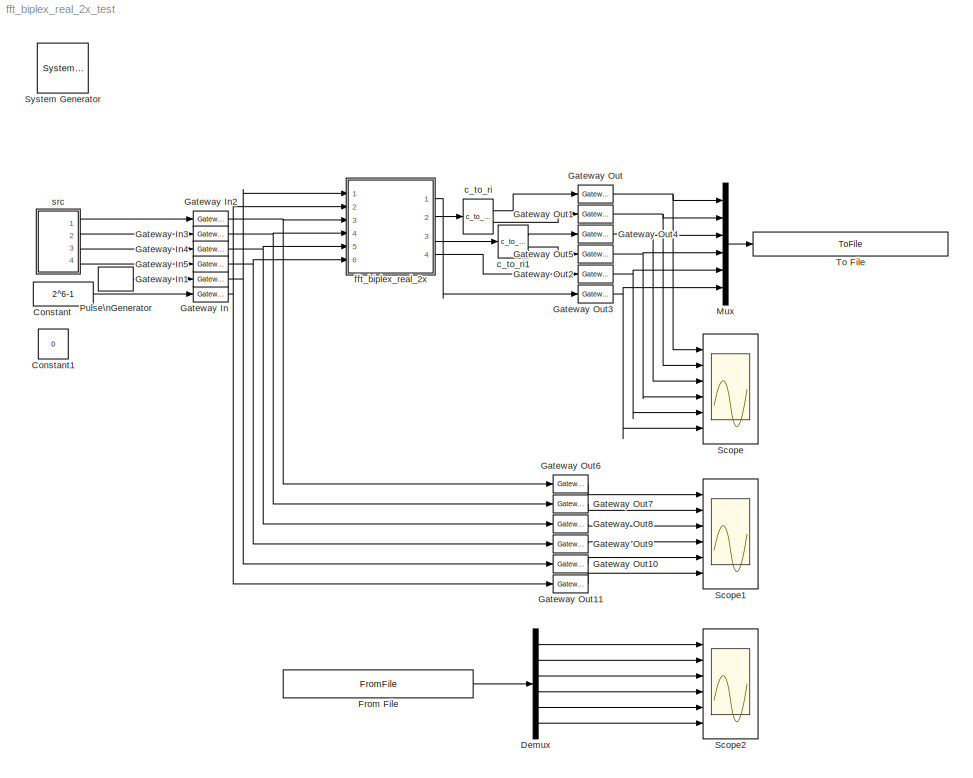
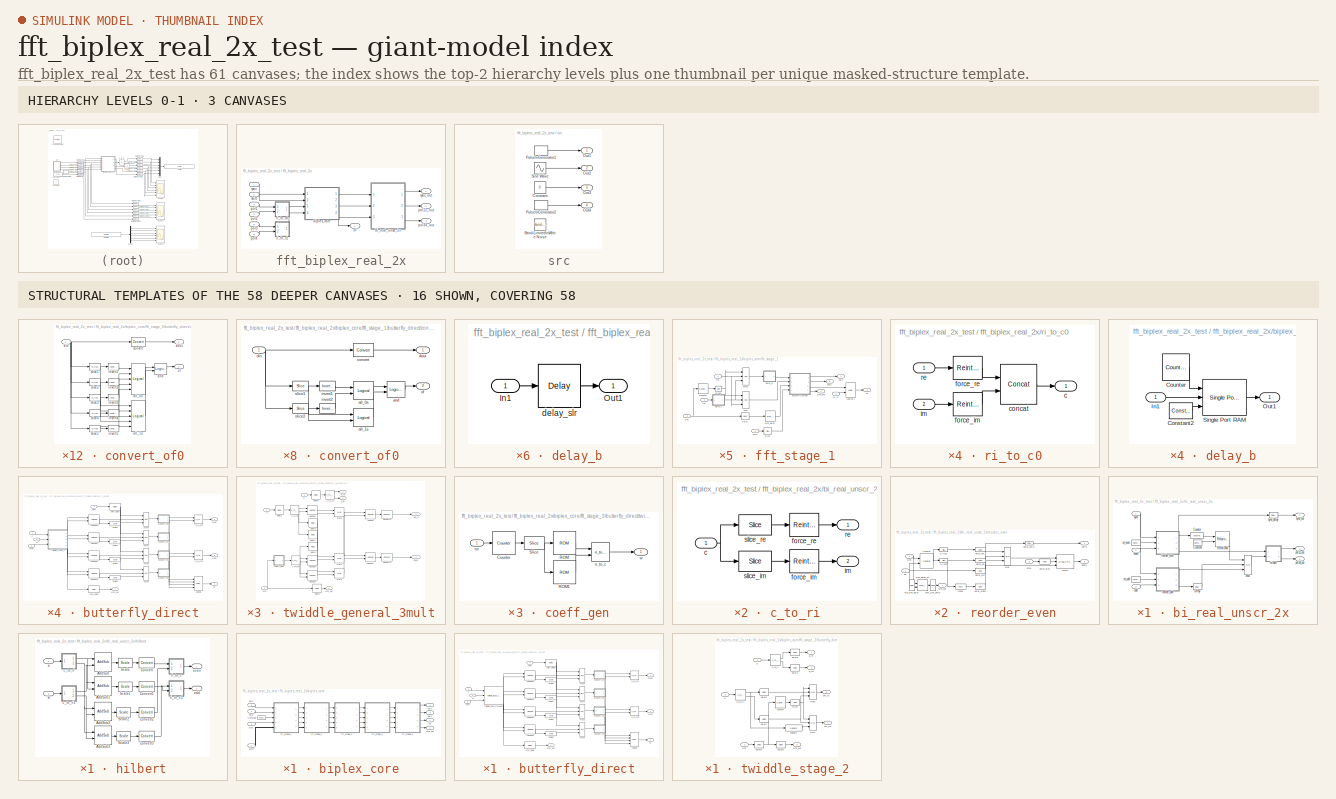
[diagram: thumbnail index - top-2 hierarchy levels (3 canvases) + 16 structural-template representatives of the remaining 58 canvases]
MODEL fft_biplex_real_2x_test
KIND model
BLOCK [Reference]  System Generator  REF=xbsIndex_r4/ System Generator
  AttributesFormatString = System\\nGenerator
  FunctionWithSeparateData = off
  Ports = []
  RTWMemSecDataConstants = Inherit from model
  RTWMemSecDataInternal = Inherit from model
  RTWMemSecDataParameters = Inherit from model
  RTWMemSecFuncExecute = Inherit from model
  RTWMemSecFuncInitTerm = Inherit from model
  SID = 1
  ShowPortLabels = FromPortIcon
  SourceBlock = xbsIndex_r4/ System Generator
  SourceType = Xilinx System Generator Block
  SystemSampleTime = -1
  Tag = genX
  UserData = DataTag0
  UserDataPersistent = on
  block_type = sysgen
  block_version = 10.1.1
  clock_wrapper = Clock Enables
  core_generation = According to Block Masks
  dbl_ovrd = According to Block Masks
  dcm_input_clock_period = 100
  deprecated_control = off
  directory = ./netlist
  eval_field = 0
  has_advanced_control = 0
  incr_netlist = off
  infoedit = System Generator
  package = ff668
  part = xc4vsx35
  run_coregen = off
  sg_icon_stat = 51,50,-1,-1,red,beige,0,07734,right
  sg_mask_display = fprintf('','COMMENT: begin icon graphics');\npatch([0 51 51 0 ],[0 0 50 50 ],[0.93 0.92 0.86]);\npatch([12 4 16 4 12 25 29 33 47 36 25 17 29 17 25 36 47 33 29 25 12 ],[5 13 25 37 45 45 41 45 45 34 45 37 25 13 5 16 5 5 9 5 5 ],[0.6 0.2 0.25]);\nplot([0 51 51 0 0 ],[0 0 50 50 0 ]);\nfprintf('','COMMENT: end icon graphics');\nfprintf('','COMMENT: begin icon text');\nfprintf('','COMMENT: end icon text...<+5ch>
  sggui_pos = -1,-1,-1,-1
  simulink_period = 1
  speed = -10
  synthesis_tool = XST
  sysclk_period = 100
  testbench = off
  trim_vbits = Everywhere in SubSystem
  xilinxfamily = Virtex4
BLOCK [Constant] Constant
  OutDataType = sfix(16)
  OutScaling = 2^0
  SID = 2
  Value = 2^6-1
BLOCK [Constant] Constant1
  OutDataType = sfix(16)
  OutScaling = 2^0
  SID = 3
  Value = 0
BLOCK [Demux] Demux
  DisplayOption = bar
  Outputs = 6
  Ports = [1, 6]
  SID = 4
BLOCK [FromFile] From File
  FileName = fft_biplex_real_2x_test_reference.mat
  SID = 5
  SampleTime = 1
BLOCK [Reference] Gateway In  REF=xbsIndex_r4/Gateway In
  LOCs = {}
  Ports = [1, 1]
  SID = 6
  SourceBlock = xbsIndex_r4/Gateway In
  SourceType = Xilinx Gateway In Block
  arith_type = Unsigned
  bin_pt = 0
  block_type = gatewayin
  block_version = 10.1.1
  dbl_ovrd = off
  has_advanced_control = 0
  hdl_port = on
  infoedit = Gateway in block.  Converts inputs of type Simulink integer, double and fixed point to  Xilinx fixed point type.<P><P>Hardware notes:  In hardware these blocks become top level input ports.  <repeated x6 — deduplicated; at blocks: Gateway In, Gateway In1, Gateway In2, Gateway In3, Gateway In4, Gateway In5>
  locs_specified = off
  n_bits = 5
  overflow = Wrap
  period = 1
  quantization = Truncate
  sg_icon_stat = 35,16,1,1,white,yellow,0,00d3666e,right,
  sg_mask_display = fprintf('','COMMENT: begin icon graphics');\npatch([0 1 1 0 ],[0 0 1 1 ],[0.95 0.93 0.65]);\npatch([0.4 0.314286 0.428571 0.314286 0.4 0.514286 0.542857 0.571429 0.714286 0.6 0.514286 0.457143 0.571429 0.457143 0.514286 0.6 0.714286 0.571429 0.542857 0.514286 0.4 ],[0.125 0.3125 0.5625 0.8125 1 1 0.9375 1 1 0.75 0.9375 0.8125 0.5625 0.3125 0.1875 0.375 0.125 0.125 0.1875 0.125 0.125 ],[0.98 0.96 0...<+290ch>  <repeated x6 — deduplicated; at blocks: Gateway In, Gateway In1, Gateway In2, Gateway In3, Gateway In4, Gateway In5>
  sggui_pos = 20,20,407,458
  timing_constraint = None
  xl_area = [0,0,0,0,0,0,0]
  xl_use_area = off
BLOCK [Reference] Gateway In1  REF=xbsIndex_r4/Gateway In
  LOCs = {}
  Ports = [1, 1]
  SID = 7
  SourceBlock = xbsIndex_r4/Gateway In
  SourceType = Xilinx Gateway In Block
  arith_type = Boolean
  bin_pt = 14
  block_type = gatewayin
  block_version = 10.1.1
  dbl_ovrd = off
  has_advanced_control = 0
  hdl_port = on
  locs_specified = off
  n_bits = 16
  overflow = Saturate
  period = 1
  quantization = Round  (unbiased: +/- Inf)
  sg_icon_stat = 35,16,1,1,white,yellow,0,00d3666e,right,
  sggui_pos = 20,20,407,458
  timing_constraint = None
  xl_area = [0,0,0,0,0,0,0]
  xl_use_area = off
BLOCK [Reference] Gateway In2  REF=xbsIndex_r4/Gateway In
  LOCs = {}
  Ports = [1, 1]
  SID = 8
  SourceBlock = xbsIndex_r4/Gateway In
  SourceType = Xilinx Gateway In Block
  arith_type = Signed  (2's comp)
  bin_pt = 17
  block_type = gatewayin
  block_version = 10.1.1
  dbl_ovrd = off
  has_advanced_control = 0
  hdl_port = on
  locs_specified = off
  n_bits = 18
  overflow = Wrap
  period = 1
  quantization = Truncate
  sg_icon_stat = 35,16,1,1,white,yellow,0,00d3666e,right,
  sggui_pos = 20,20,407,458
  timing_constraint = None
  xl_area = [0,0,0,0,0,0,0]
  xl_use_area = off
BLOCK [Reference] Gateway In3  REF=xbsIndex_r4/Gateway In
  LOCs = {}
  Ports = [1, 1]
  SID = 9
  SourceBlock = xbsIndex_r4/Gateway In
  SourceType = Xilinx Gateway In Block
  arith_type = Signed  (2's comp)
  bin_pt = 17
  block_type = gatewayin
  block_version = 10.1.1
  dbl_ovrd = off
  has_advanced_control = 0
  hdl_port = on
  locs_specified = off
  n_bits = 18
  overflow = Wrap
  period = 1
  quantization = Truncate
  sg_icon_stat = 35,16,1,1,white,yellow,0,00d3666e,right,
  sggui_pos = 20,20,407,458
  timing_constraint = None
  xl_area = [0,0,0,0,0,0,0]
  xl_use_area = off
BLOCK [Reference] Gateway In4  REF=xbsIndex_r4/Gateway In
  LOCs = {}
  Ports = [1, 1]
  SID = 10
  SourceBlock = xbsIndex_r4/Gateway In
  SourceType = Xilinx Gateway In Block
  arith_type = Signed  (2's comp)
  bin_pt = 17
  block_type = gatewayin
  block_version = 10.1.1
  dbl_ovrd = off
  has_advanced_control = 0
  hdl_port = on
  locs_specified = off
  n_bits = 18
  overflow = Wrap
  period = 1
  quantization = Truncate
  sg_icon_stat = 35,16,1,1,white,yellow,0,00d3666e,right,
  sggui_pos = 20,20,407,458
  timing_constraint = None
  xl_area = [0,0,0,0,0,0,0]
  xl_use_area = off
BLOCK [Reference] Gateway In5  REF=xbsIndex_r4/Gateway In
  LOCs = {}
  Ports = [1, 1]
  SID = 11
  SourceBlock = xbsIndex_r4/Gateway In
  SourceType = Xilinx Gateway In Block
  arith_type = Signed  (2's comp)
  bin_pt = 17
  block_type = gatewayin
  block_version = 10.1.1
  dbl_ovrd = off
  has_advanced_control = 0
  hdl_port = on
  locs_specified = off
  n_bits = 18
  overflow = Wrap
  period = 1
  quantization = Truncate
  sg_icon_stat = 35,16,1,1,white,yellow,0,00d3666e,right,
  sggui_pos = 20,20,407,458
  timing_constraint = None
  xl_area = [0,0,0,0,0,0,0]
  xl_use_area = off
BLOCK [Reference] Gateway Out  REF=xbsIndex_r4/Gateway Out
  LOCs = {}
  Ports = [1, 1]
  SID = 12
  SourceBlock = xbsIndex_r4/Gateway Out
  SourceType = Xilinx Gateway Out Block
  block_type = gatewayout
  block_version = 10.1.1
  has_advanced_control = 0
  hdl_port = on
  infoedit = Gateway out block.  Converts Xilinx fixed point inputs into ouputs of type Simulink integer, double, or fixed point.<P><P>Hardware notes:  In hardware these blocks become top level output ports or are discarded, depending on how they are configured.  <repeated x12 — deduplicated; at blocks: Gateway Out, Gateway Out1, Gateway Out10, Gateway Out11, Gateway Out2, Gateway Out3, Gateway Out4, Gateway Out5, Gateway Out6, Gateway Out7, Gateway Out8, Gateway Out9>
  locs_specified = off
  sg_icon_stat = 35,18,1,1,white,yellow,0,cc31b7ac,right,
  sg_mask_display = fprintf('','COMMENT: begin icon graphics');\npatch([0 1 1 0 ],[0 0 1 1 ],[0.95 0.93 0.65]);\npatch([0.371429 0.285714 0.4 0.285714 0.371429 0.514286 0.542857 0.571429 0.714286 0.6 0.485714 0.4 0.514286 0.4 0.485714 0.6 0.714286 0.571429 0.542857 0.514286 0.371429 ],[0.111111 0.277778 0.5 0.722222 0.888889 0.888889 0.833333 0.888889 0.888889 0.666667 0.888889 0.722222 0.5 0.277778 0.111111 0.333333...<+351ch>  <repeated x12 — deduplicated; at blocks: Gateway Out, Gateway Out1, Gateway Out10, Gateway Out11, Gateway Out2, Gateway Out3, Gateway Out4, Gateway Out5, Gateway Out6, Gateway Out7, Gateway Out8, Gateway Out9>
  sggui_pos = -1,-1,-1,-1
  timing_constraint = None
  xl_area = [0,0,0,0,0,0,0]
  xl_use_area = off
BLOCK [Reference] Gateway Out1  REF=xbsIndex_r4/Gateway Out
  LOCs = {}
  Ports = [1, 1]
  SID = 13
  SourceBlock = xbsIndex_r4/Gateway Out
  SourceType = Xilinx Gateway Out Block
  block_type = gatewayout
  block_version = 10.1.1
  has_advanced_control = 0
  hdl_port = on
  locs_specified = off
  sg_icon_stat = 35,18,1,1,white,yellow,0,cc31b7ac,right,
  sggui_pos = -1,-1,-1,-1
  timing_constraint = None
  xl_area = [0,0,0,0,0,0,0]
  xl_use_area = off
BLOCK [Reference] Gateway Out10  REF=xbsIndex_r4/Gateway Out
  LOCs = {}
  Ports = [1, 1]
  SID = 14
  SourceBlock = xbsIndex_r4/Gateway Out
  SourceType = Xilinx Gateway Out Block
  block_type = gatewayout
  block_version = 10.1.1
  has_advanced_control = 0
  hdl_port = on
  locs_specified = off
  sg_icon_stat = 35,18,1,1,white,yellow,0,cc31b7ac,right,
  sggui_pos = -1,-1,-1,-1
  timing_constraint = None
  xl_area = [0,0,0,0,0,0,0]
  xl_use_area = off
BLOCK [Reference] Gateway Out11  REF=xbsIndex_r4/Gateway Out
  LOCs = {}
  Ports = [1, 1]
  SID = 15
  SourceBlock = xbsIndex_r4/Gateway Out
  SourceType = Xilinx Gateway Out Block
  block_type = gatewayout
  block_version = 10.1.1
  has_advanced_control = 0
  hdl_port = on
  locs_specified = off
  sg_icon_stat = 35,18,1,1,white,yellow,0,cc31b7ac,right,
  sggui_pos = -1,-1,-1,-1
  timing_constraint = None
  xl_area = [0,0,0,0,0,0,0]
  xl_use_area = off
BLOCK [Reference] Gateway Out2  REF=xbsIndex_r4/Gateway Out
  LOCs = {}
  Ports = [1, 1]
  SID = 16
  SourceBlock = xbsIndex_r4/Gateway Out
  SourceType = Xilinx Gateway Out Block
  block_type = gatewayout
  block_version = 10.1.1
  has_advanced_control = 0
  hdl_port = on
  locs_specified = off
  sg_icon_stat = 35,18,1,1,white,yellow,0,cc31b7ac,right,
  sggui_pos = -1,-1,-1,-1
  timing_constraint = None
  xl_area = [0,0,0,0,0,0,0]
  xl_use_area = off
BLOCK [Reference] Gateway Out3  REF=xbsIndex_r4/Gateway Out
  LOCs = {}
  Ports = [1, 1]
  SID = 17
  SourceBlock = xbsIndex_r4/Gateway Out
  SourceType = Xilinx Gateway Out Block
  block_type = gatewayout
  block_version = 10.1.1
  has_advanced_control = 0
  hdl_port = on
  locs_specified = off
  sg_icon_stat = 35,18,1,1,white,yellow,0,cc31b7ac,right,
  sggui_pos = -1,-1,-1,-1
  timing_constraint = None
  xl_area = [0,0,0,0,0,0,0]
  xl_use_area = off
BLOCK [Reference] Gateway Out4  REF=xbsIndex_r4/Gateway Out
  LOCs = {}
  Ports = [1, 1]
  SID = 18
  SourceBlock = xbsIndex_r4/Gateway Out
  SourceType = Xilinx Gateway Out Block
  block_type = gatewayout
  block_version = 10.1.1
  has_advanced_control = 0
  hdl_port = on
  locs_specified = off
  sg_icon_stat = 35,18,1,1,white,yellow,0,cc31b7ac,right,
  sggui_pos = -1,-1,-1,-1
  timing_constraint = None
  xl_area = [0,0,0,0,0,0,0]
  xl_use_area = off
BLOCK [Reference] Gateway Out5  REF=xbsIndex_r4/Gateway Out
  LOCs = {}
  Ports = [1, 1]
  SID = 19
  SourceBlock = xbsIndex_r4/Gateway Out
  SourceType = Xilinx Gateway Out Block
  block_type = gatewayout
  block_version = 10.1.1
  has_advanced_control = 0
  hdl_port = on
  locs_specified = off
  sg_icon_stat = 35,18,1,1,white,yellow,0,cc31b7ac,right,
  sggui_pos = -1,-1,-1,-1
  timing_constraint = None
  xl_area = [0,0,0,0,0,0,0]
  xl_use_area = off
BLOCK [Reference] Gateway Out6  REF=xbsIndex_r4/Gateway Out
  LOCs = {}
  Ports = [1, 1]
  SID = 20
  SourceBlock = xbsIndex_r4/Gateway Out
  SourceType = Xilinx Gateway Out Block
  block_type = gatewayout
  block_version = 10.1.1
  has_advanced_control = 0
  hdl_port = on
  locs_specified = off
  sg_icon_stat = 35,18,1,1,white,yellow,0,cc31b7ac,right,
  sggui_pos = -1,-1,-1,-1
  timing_constraint = None
  xl_area = [0,0,0,0,0,0,0]
  xl_use_area = off
BLOCK [Reference] Gateway Out7  REF=xbsIndex_r4/Gateway Out
  LOCs = {}
  Ports = [1, 1]
  SID = 21
  SourceBlock = xbsIndex_r4/Gateway Out
  SourceType = Xilinx Gateway Out Block
  block_type = gatewayout
  block_version = 10.1.1
  has_advanced_control = 0
  hdl_port = on
  locs_specified = off
  sg_icon_stat = 35,18,1,1,white,yellow,0,cc31b7ac,right,
  sggui_pos = -1,-1,-1,-1
  timing_constraint = None
  xl_area = [0,0,0,0,0,0,0]
  xl_use_area = off
BLOCK [Reference] Gateway Out8  REF=xbsIndex_r4/Gateway Out
  LOCs = {}
  Ports = [1, 1]
  SID = 22
  SourceBlock = xbsIndex_r4/Gateway Out
  SourceType = Xilinx Gateway Out Block
  block_type = gatewayout
  block_version = 10.1.1
  has_advanced_control = 0
  hdl_port = on
  locs_specified = off
  sg_icon_stat = 35,18,1,1,white,yellow,0,cc31b7ac,right,
  sggui_pos = -1,-1,-1,-1
  timing_constraint = None
  xl_area = [0,0,0,0,0,0,0]
  xl_use_area = off
BLOCK [Reference] Gateway Out9  REF=xbsIndex_r4/Gateway Out
  LOCs = {}
  Ports = [1, 1]
  SID = 23
  SourceBlock = xbsIndex_r4/Gateway Out
  SourceType = Xilinx Gateway Out Block
  block_type = gatewayout
  block_version = 10.1.1
  has_advanced_control = 0
  hdl_port = on
  locs_specified = off
  sg_icon_stat = 35,18,1,1,white,yellow,0,cc31b7ac,right,
  sggui_pos = -1,-1,-1,-1
  timing_constraint = None
  xl_area = [0,0,0,0,0,0,0]
  xl_use_area = off
BLOCK [Mux] Mux
  DisplayOption = bar
  Inputs = 6
  Ports = [6, 1]
  SID = 24
BLOCK [DiscretePulseGenerator] Pulse\nGenerator
  Amplitude = 1
  Period = 2^6
  PhaseDelay = 13
  Ports = [0, 1]
  PulseWidth = 1
  SID = 25
  SampleTime = 1
BLOCK [Scope] Scope
  DataFormat = StructureWithTime
  Floating = off
  LimitDataPoints = off
  NumInputPorts = 6
  Ports = [6]
  SID = 26
  SampleTime = 0
  TimeRange = 256
  YMax = 5~5~5~5~2~5
  YMin = -5~-5~-5~-5~-1~-5
  ZoomMode = yonly
BLOCK [Scope] Scope1
  DataFormat = StructureWithTime
  Floating = off
  LimitDataPoints = off
  NumInputPorts = 6
  Ports = [6]
  SID = 27
  SampleTime = 0
  SaveName = ScopeData1
  YMax = 5~5~5~5~5~5
  YMin = -5~-5~-5~-5~-5~-5
BLOCK [Scope] Scope2
  DataFormat = StructureWithTime
  Floating = off
  LimitDataPoints = off
  NumInputPorts = 6
  Ports = [6]
  SID = 28
  SampleTime = 0
  SaveName = ScopeData2
  TimeRange = 256
  YMax = 5~5~5~5~2~5
  YMin = -5~-5~-5~-5~-1~-5
  ZoomMode = xonly
BLOCK [ToFile] To File
  Filename = fft_biplex_real_2x_test_output.mat
  MatrixName = output
  SID = 29
BLOCK [Reference] c_to_ri  REF=casper_library_misc/c_to_ri  (lib defined in mdl_357510c33b49, mdl_57b5f564ae26, +4 more)
  AttributesFormatString = 18_17 r/i
  FunctionWithSeparateData = off
  Ports = [1, 2]
  RTWMemSecDataConstants = Inherit from model
  RTWMemSecDataInternal = Inherit from model
  RTWMemSecDataParameters = Inherit from model
  RTWMemSecFuncExecute = Inherit from model
  RTWMemSecFuncInitTerm = Inherit from model
  SID = 30
  ShowPortLabels = FromPortIcon
  SourceBlock = casper_library_misc/c_to_ri
  SourceType = c_to_ri
  SystemSampleTime = -1
  UserData = DataTag1
  UserDataPersistent = on
  bin_pt = 17
  n_bits = 18
BLOCK [Reference] c_to_ri1  REF=casper_library_misc/c_to_ri  (lib defined in mdl_357510c33b49, mdl_57b5f564ae26, +4 more)
  AttributesFormatString = 18_17 r/i
  FunctionWithSeparateData = off
  Ports = [1, 2]
  RTWMemSecDataConstants = Inherit from model
  RTWMemSecDataInternal = Inherit from model
  RTWMemSecDataParameters = Inherit from model
  RTWMemSecFuncExecute = Inherit from model
  RTWMemSecFuncInitTerm = Inherit from model
  SID = 31
  ShowPortLabels = FromPortIcon
  SourceBlock = casper_library_misc/c_to_ri
  SourceType = c_to_ri
  SystemSampleTime = -1
  UserData = DataTag2
  UserDataPersistent = on
  bin_pt = 17
  n_bits = 18
BLOCK [SubSystem] fft_biplex_real_2x
  AncestorBlock = casper_library_ffts/fft_biplex_real_2x
  AttributesFormatString = Virtex5\n5 stages\n[18,18]\nRound  (unbiased: +/- Inf)\nSaturate
  FunctionWithSeparateData = off
  MaskCallbackString = |||||||||fft_callback_arch(gcb);||||specify_mult = get_param(gcb, 'specify_mult');\nset_param_state(gcb, 'mult_spec', specify_mult);||hardcode_shifts = get_param(gcb, 'hardcode_shifts');\nset_param_state(gcb, 'shift_schedule', hardcode_shifts);||fft_callback_dsp48_adders(gcb);
  MaskDescription = A real-sampled biplex FFT, with output demuxed by 2.
  MaskEnableString = on,on,on,on,on,on,on,on,on,on,on,on,on,on,on,on,off,on
  MaskHelp = eval('xlWeb(''http://casper.berkeley.edu/wiki/Fft_biplex_real_2x'')')
  MaskHideContents = off
  MaskIconFrame = on
  MaskIconOpaque = on
  MaskIconRotate = none
  MaskIconUnits = autoscale
  MaskInitialization = fft_biplex_real_2x_init(gcb, ...\n    'FFTSize', FFTSize, ...\n    'input_bit_width', input_bit_width, ...\n    'coeff_bit_width', coeff_bit_width, ...\n    'add_latency', add_latency, ...\n    'mult_latency', mult_latency, ...\n    'bram_latency', bram_latency, ...\n    'conv_latency', conv_latency, ...\n    'quantization', quantization, ...\n    'overflow', overflow, ...\n    'arch', arch, ...\n...<+323ch>
  MaskPortRotate = default
  MaskPromptString = Size of FFT: (2^? pts)|Input/Output Bit Width|Coefficient Bit Width|Add Latency|Mult Latency|BRAM Latency|Convert latency|Quantization Behavior|Overflow Behavior|Architecture|Use less|Number bits above which to store stage's coefficients in BRAM (2^? bits)|Number bits above which to implement stage's delays in BRAM (2^? bits)|Specify multiplier use (behavioral HDL if not specified)|Multiplier spec...<+127ch>
  MaskSelfModifiable = on
  MaskStyleString = edit,edit,edit,edit,edit,edit,edit,popup(Truncate|Round  (unbiased: +/- Inf)|Round  (unbiased: Even Values)),popup(Wrap|Saturate|Error),popup(Virtex2Pro|Virtex5),popup(logic|multipliers),edit,edit,checkbox,edit,checkbox,edit,checkbox
  MaskTabNameString = Basic,Basic,Basic,Latency,Latency,Latency,Latency,Implementation,Implementation,Implementation,Implementation,Implementation,Implementation,Implementation,Implementation,Implementation,Implementation,Implementation
  MaskToolTipString = on,on,on,on,on,on,on,on,on,on,on,on,on,on,on,on,on,on
  MaskTunableValueString = on,on,on,on,on,on,on,on,on,on,on,on,on,on,on,on,on,on
  MaskType = fft_biplex_real_2x
  MaskValueString = 5|18|18|2|2|2|2|Round  (unbiased: +/- Inf)|Saturate|Virtex5|multipliers|8|8|on|getfield( getfield( get_param( gcb,'UserData' ), 'parameters'),'mult_spec')|off|getfield( getfield( get_param( gcb,'UserData' ), 'parameters'),'shift_schedule')|off
  MaskVariables = FFTSize=@1;input_bit_width=@2;coeff_bit_width=@3;add_latency=@4;mult_latency=@5;bram_latency=@6;conv_latency=@7;quantization=&8;overflow=&9;arch=&10;opt_target=&11;coeffs_bit_limit=@12;delays_bit_limit=@13;specify_mult=&14;mult_spec=@15;hardcode_shifts=&16;shift_schedule=@17;dsp48_adders=&18;
  MaskVisibilityString = on,on,on,on,on,on,on,on,on,on,on,on,on,on,on,on,on,on
  MinAlgLoopOccurrences = off
  Opaque = off
  Ports = [6, 4]
  PropExecContextOutsideSubsystem = off
  RTWSystemCode = Auto
  RequestExecContextInheritance = off
  SID = 44
  UserData = DataTag3
  UserDataPersistent = on
BLOCK [SubSystem] fft_biplex_real_2x/bi_real_unscr_2x
  AncestorBlock = casper_library_ffts_internal/bi_real_unscr_2x
  FunctionWithSeparateData = off
  MaskCallbackString = ||||||
  MaskDescription = FFT internal block.
  MaskEnableString = on,on,on,on,on,on,on
  MaskHideContents = off
  MaskIconFrame = on
  MaskIconOpaque = on
  MaskIconRotate = none
  MaskIconUnits = autoscale
  MaskInitialization = bi_real_unscr_2x_init(gcb, ...\n    'FFTSize', FFTSize, ...\n    'n_bits', n_bits, ...\n    'add_latency', add_latency, ...\n    'conv_latency', conv_latency, ...\n    'bram_latency', bram_latency, ...\n    'bram_map', bram_map, ...\n    'dsp48_adders', dsp48_adders);
  MaskPortRotate = default
  MaskPromptString = Size of FFT (2^?):|Sample Bit Width|Add Latency|Convert Latency|BRAM Latency|Use BlockRAM for Map|Use DSP48s for adders
  MaskStyleString = edit,edit,edit,edit,edit,checkbox,checkbox
  MaskTabNameString = Basic,Basic,Latency,Latency,Latency,Implementation,Implementation
  MaskToolTipString = on,on,on,on,on,on,on
  MaskTunableValueString = on,on,on,on,on,off,off
  MaskType = bi_real_unscr_2x
  MaskValueString = 5|18|2|2|2|off|off
  MaskVariables = FFTSize=@1;n_bits=@2;add_latency=@3;conv_latency=@4;bram_latency=@5;bram_map=&6;dsp48_adders=&7;
  MaskVisibilityString = on,on,on,on,on,on,on
  MinAlgLoopOccurrences = off
  Opaque = off
  Ports = [3, 3]
  PropExecContextOutsideSubsystem = off
  RTWSystemCode = Auto
  RequestExecContextInheritance = off
  SID = 49
  UserData = DataTag4
  UserDataPersistent = on
BLOCK [Reference] fft_biplex_real_2x/bi_real_unscr_2x/Constant  REF=xbsIndex_r4/Constant
  Ports = [0, 1]
  SID = 5
  SourceBlock = xbsIndex_r4/Constant
  SourceType = Xilinx Constant Block Block
  arith_type = Unsigned
  bin_pt = 0
  block_type = constant
  block_version = 11.4
  carry = CIN
  const = 0
  dbl_ovrd = off
  dsp48_infoedit = The use of this block for DSP48 instructions is deprecated.  Please use the Opmode block.
  equ = P=C
  explicit_period = on
  has_advanced_control = 0
  inp1 = P
  inp2 = PCIN>>17
  n_bits = FFTSize-1
  opr = +
  opselect = C
  period = 1
  sg_icon_stat = 30,20,0,1,white,blue,0,bf4ddd8b,right,
  sg_mask_display = fprintf('','COMMENT: begin icon graphics');\npatch([0 1 1 0 ],[0 0 1 1 ],[0.77 0.82 0.91]);\npatch([0.3 0.2 0.366667 0.2 0.3 0.466667 0.5 0.533333 0.733333 0.6 0.466667 0.366667 0.533333 0.366667 0.466667 0.6 0.733333 0.533333 0.5 0.466667 0.3 ],[0.1 0.25 0.5 0.75 0.9 0.9 0.85 0.9 0.9 0.7 0.9 0.75 0.5 0.25 0.1 0.3 0.1 0.1 0.15 0.1 0.1 ],[0.98 0.96 0.92]);\nplot([0 1 1 0 0 ],[0 0 1 1 0 ]);\nfprintf...<+160ch>  <repeated x3 — deduplicated; at blocks: Constant, en_even, en_odd>
  sggui_pos = -1,-1,-1,-1
BLOCK [Reference] fft_biplex_real_2x/bi_real_unscr_2x/Counter  REF=xbsIndex_r4/Counter
  Ports = [1, 1]
  SID = 6
  SourceBlock = xbsIndex_r4/Counter
  SourceType = Xilinx Counter Block
  arith_type = Unsigned
  bin_pt = 0
  block_type = counter
  block_version = 11.4
  cnt_by_val = 1
  cnt_to = Inf
  cnt_type = Free Running
  dbl_ovrd = off
  en = off
  explicit_period = on
  has_advanced_control = 0
  implementation = Fabric
  infoedit = Hardware notes: Free running counters are the least expensive in hardware.  A count limited counter is implemented by combining a counter with a comparator.
  load_pin = off
  n_bits = FFTSize-1
  operation = Up
  period = 1
  rst = on
  sg_icon_stat = 45,20,1,1,white,blue,0,c59595e6,right,
  sg_mask_display = fprintf('','COMMENT: begin icon graphics');\npatch([0 1 1 0 ],[0 0 1 1 ],[0.77 0.82 0.91]);\npatch([0.377778 0.311111 0.422222 0.311111 0.377778 0.488889 0.511111 0.533333 0.666667 0.577778 0.488889 0.422222 0.533333 0.422222 0.488889 0.577778 0.666667 0.533333 0.511111 0.488889 0.377778 ],[0.1 0.25 0.5 0.75 0.9 0.9 0.85 0.9 0.9 0.7 0.9 0.75 0.5 0.25 0.1 0.3 0.1 0.1 0.15 0.1 0.1 ],[0.98 0.96 0.92]...<+252ch>
  sggui_pos = -1,-1,-1,-1
  start_count = 0
  use_behavioral_HDL = off
  xl_area = [0,0,0,0,0,0,0]
  xl_use_area = off
BLOCK [Reference] fft_biplex_real_2x/bi_real_unscr_2x/Delay  REF=xbsIndex_r4/Delay
  Ports = [1, 1]
  SID = 7
  SourceBlock = xbsIndex_r4/Delay
  SourceType = Xilinx Delay Block
  block_type = delay
  block_version = 11.4
  dbl_ovrd = off
  en = off
  has_advanced_control = 0
  infoedit = Hardware notes: A delay line is a chain, each link of which is an SRL16 followed by a flip-flop.
  latency = 1
  reg_retiming = off
  sg_icon_stat = 30,20,1,1,white,blue,0,07b98262,right,
  sg_mask_display = fprintf('','COMMENT: begin icon graphics');\npatch([0 1 1 0 ],[0 0 1 1 ],[0.77 0.82 0.91]);\npatch([0.3 0.2 0.366667 0.2 0.3 0.466667 0.5 0.533333 0.733333 0.6 0.466667 0.366667 0.533333 0.366667 0.466667 0.6 0.733333 0.533333 0.5 0.466667 0.3 ],[0.1 0.25 0.5 0.75 0.9 0.9 0.85 0.9 0.9 0.7 0.9 0.75 0.5 0.25 0.1 0.3 0.1 0.1 0.15 0.1 0.1 ],[0.98 0.96 0.92]);\nplot([0 1 1 0 0 ],[0 0 1 1 0 ]);\nfprintf...<+163ch>
  sggui_pos = -1,-1,-1,-1
  xl_area = [0,0,0,0,0,0,0]
  xl_use_area = off
BLOCK [Reference] fft_biplex_real_2x/bi_real_unscr_2x/Mux  REF=xbsIndex_r4/Mux
  Ports = [3, 1]
  SID = 8
  SourceBlock = xbsIndex_r4/Mux
  SourceType = Xilinx Bus Multiplexer Block
  arith_type = Signed  (2's comp)
  bin_pt = 2
  block_type = mux
  block_version = 9.1.01
  dbl_ovrd = off
  en = off
  has_advanced_control = 0
  inputs = 2
  latency = 0
  n_bits = 8
  overflow = Wrap
  precision = Full
  quantization = Truncate
  sg_icon_stat = 25,66,3,1,white,blue,3,eb98d690,right,
  sg_mask_display = fprintf('','COMMENT: begin icon graphics');\npatch([0 1 1 0 ],[0 0.142857 0.857143 1 ],[0.77 0.82 0.91]);\npatch([0.24 0.08 0.32 0.08 0.24 0.52 0.6 0.68 0.96 0.72 0.52 0.36 0.56 0.36 0.52 0.72 0.96 0.68 0.6 0.52 0.24 ],[0.348485 0.409091 0.5 0.590909 0.651515 0.651515 0.621212 0.651515 0.651515 0.560606 0.636364 0.575758 0.5 0.424242 0.363636 0.439394 0.348485 0.348485 0.378788 0.348485 0.348485 ]...<+372ch>
  sggui_pos = 334,474,419,344
  xl_area = [0, 0, 0, 0, 0, 0, 0]
  xl_use_area = off
BLOCK [Reference] fft_biplex_real_2x/bi_real_unscr_2x/Relational  REF=xbsIndex_r4/Relational
  Ports = [2, 1]
  SID = 9
  SourceBlock = xbsIndex_r4/Relational
  SourceType = Xilinx Arithmetic Relational Operator Block
  block_type = relational
  block_version = 9.1.01
  dbl_ovrd = off
  en = off
  has_advanced_control = 0
  latency = 0
  mode = a=b
  sg_icon_stat = 50,51,2,1,white,blue,0,2dfefa50,right,
  sg_mask_display = fprintf('','COMMENT: begin icon graphics');\npatch([0 1 1 0 ],[0 0 1 1 ],[0.77 0.82 0.91]);\npatch([0.22 0.06 0.3 0.06 0.22 0.48 0.56 0.64 0.92 0.7 0.48 0.32 0.56 0.32 0.48 0.7 0.92 0.64 0.56 0.48 0.22 ],[0.117647 0.27451 0.509804 0.745098 0.901961 0.901961 0.823529 0.901961 0.901961 0.686275 0.901961 0.745098 0.509804 0.27451 0.117647 0.333333 0.117647 0.117647 0.196078 0.117647 0.117647 ],[0.98 ...<+331ch>
  sggui_pos = -1,-1,-1,-1
  xl_area = [0, 0, 0, 0, 0, 0, 0]
  xl_use_area = off
BLOCK [Reference] fft_biplex_real_2x/bi_real_unscr_2x/en_even  REF=xbsIndex_r4/Constant
  Ports = [0, 1]
  SID = 11
  SourceBlock = xbsIndex_r4/Constant
  SourceType = Xilinx Constant Block Block
  arith_type = Boolean
  bin_pt = 0
  block_type = constant
  block_version = 9.1.01
  carry = CIN
  const = 1
  dbl_ovrd = off
  dsp48_infoedit = The use of this block for DSP48 instructions is deprecated.  Please use the Opmode block.
  equ = P=C
  explicit_period = on
  has_advanced_control = 0
  inp1 = P
  inp2 = PCIN>>17
  n_bits = 1
  opr = +
  opselect = C
  period = 1
  sg_icon_stat = 30,20,0,1,white,blue,0,1c72b5be,right,
  sggui_pos = 264,216,473,439
BLOCK [Reference] fft_biplex_real_2x/bi_real_unscr_2x/en_odd  REF=xbsIndex_r4/Constant
  Ports = [0, 1]
  SID = 12
  SourceBlock = xbsIndex_r4/Constant
  SourceType = Xilinx Constant Block Block
  arith_type = Boolean
  bin_pt = 0
  block_type = constant
  block_version = 9.1.01
  carry = CIN
  const = 1
  dbl_ovrd = off
  dsp48_infoedit = The use of this block for DSP48 instructions is deprecated.  Please use the Opmode block.
  equ = P=C
  explicit_period = on
  has_advanced_control = 0
  inp1 = P
  inp2 = PCIN>>17
  n_bits = 1
  opr = +
  opselect = C
  period = 1
  sg_icon_stat = 30,20,0,1,white,blue,0,1c72b5be,right,
  sggui_pos = 264,216,473,439
BLOCK [Inport] fft_biplex_real_2x/bi_real_unscr_2x/even
  IconDisplay = Port number
  OutDataType = sfix(16)
  OutScaling = 2^0
  Port = 2
  SID = 2
BLOCK [SubSystem] fft_biplex_real_2x/bi_real_unscr_2x/hilbert
  AncestorBlock = casper_library_ffts_internal/hilbert
  FunctionWithSeparateData = off
  MaskCallbackString = ||
  MaskDescription = FFT internal block.\n\nComputes (a+b*)/2 and (a-b*)/2i.\n\nIf a = w + ix and b = y + iz, then: \na+b = (w+y)/2 + i(x-z)/2\na-b = (x+z)/2 + i(y-w)/2
  MaskEnableString = on,on,on
  MaskHideContents = off
  MaskIconFrame = on
  MaskIconOpaque = on
  MaskIconRotate = none
  MaskIconUnits = autoscale
  MaskPortRotate = default
  MaskPromptString = Bit Wdith|Add Latency|Convert Latency
  MaskStyleString = edit,edit,edit
  MaskToolTipString = on,on,on
  MaskTunableValueString = on,on,on
  MaskType = sincos
  MaskValueString = n_bits|add_latency|conv_latency
  MaskVariables = BitWidth=@1;add_latency=@2;conv_latency=@3;
  MaskVisibilityString = on,on,on
  MinAlgLoopOccurrences = off
  Opaque = off
  Ports = [2, 2]
  PropExecContextOutsideSubsystem = off
  RTWSystemCode = Auto
  RequestExecContextInheritance = off
  SID = 301
BLOCK [Reference] fft_biplex_real_2x/bi_real_unscr_2x/hilbert/AddSub  REF=xbsIndex_r4/AddSub
  Ports = [2, 1]
  SID = 189
  SourceBlock = xbsIndex_r4/AddSub
  SourceType = Xilinx Adder/Subtracter Block
  arith_type = Unsigned
  bin_pt = 2
  block_type = addsub
  block_version = 9.1.01
  dbl_ovrd = off
  en = off
  has_advanced_control = 0
  hw_selection = Fabric
  latency = add_latency
  mode = Addition
  n_bits = 8
  overflow = Wrap
  pipelined = off
  precision = Full
  quantization = Truncate
  sg_icon_stat = 50,55,2,1,white,blue,0,4922a24f,right,
  sg_mask_display = fprintf('','COMMENT: begin icon graphics');\npatch([0 1 1 0 ],[0 0 1 1 ],[0.77 0.82 0.91]);\npatch([0.22 0.06 0.3 0.06 0.22 0.48 0.56 0.64 0.92 0.7 0.48 0.32 0.56 0.32 0.48 0.7 0.92 0.64 0.56 0.48 0.22 ],[0.145455 0.290909 0.509091 0.727273 0.872727 0.872727 0.8 0.872727 0.872727 0.672727 0.872727 0.727273 0.509091 0.290909 0.145455 0.345455 0.145455 0.145455 0.218182 0.145455 0.145455 ],[0.98 0.9...<+394ch>  <repeated x4 — deduplicated; at blocks: AddSub, AddSub1, AddSub2, AddSub3>
  sggui_pos = -1,-1,-1,-1
  use_behavioral_HDL = on
  use_carryin = off
  use_carryout = off
  use_rpm = on
  xl_area = [0, 0, 0, 0, 0, 0, 0]
  xl_use_area = off
BLOCK [Reference] fft_biplex_real_2x/bi_real_unscr_2x/hilbert/AddSub1  REF=xbsIndex_r4/AddSub
  Ports = [2, 1]
  SID = 190
  SourceBlock = xbsIndex_r4/AddSub
  SourceType = Xilinx Adder/Subtracter Block
  arith_type = Unsigned
  bin_pt = 2
  block_type = addsub
  block_version = 9.1.01
  dbl_ovrd = off
  en = off
  has_advanced_control = 0
  hw_selection = Fabric
  latency = add_latency
  mode = Subtraction
  n_bits = 8
  overflow = Wrap
  pipelined = off
  precision = Full
  quantization = Truncate
  sg_icon_stat = 50,55,2,1,white,blue,0,57a258cf,right,
  sggui_pos = -1,-1,-1,-1
  use_behavioral_HDL = on
  use_carryin = off
  use_carryout = off
  use_rpm = on
  xl_area = [0, 0, 0, 0, 0, 0, 0]
  xl_use_area = off
BLOCK [Reference] fft_biplex_real_2x/bi_real_unscr_2x/hilbert/AddSub2  REF=xbsIndex_r4/AddSub
  Ports = [2, 1]
  SID = 191
  SourceBlock = xbsIndex_r4/AddSub
  SourceType = Xilinx Adder/Subtracter Block
  arith_type = Unsigned
  bin_pt = 2
  block_type = addsub
  block_version = 9.1.01
  dbl_ovrd = off
  en = off
  has_advanced_control = 0
  hw_selection = Fabric
  latency = add_latency
  mode = Subtraction
  n_bits = 8
  overflow = Wrap
  pipelined = off
  precision = Full
  quantization = Truncate
  sg_icon_stat = 50,55,2,1,white,blue,0,57a258cf,right,
  sggui_pos = -1,-1,-1,-1
  use_behavioral_HDL = on
  use_carryin = off
  use_carryout = off
  use_rpm = on
  xl_area = [0, 0, 0, 0, 0, 0, 0]
  xl_use_area = off
BLOCK [Reference] fft_biplex_real_2x/bi_real_unscr_2x/hilbert/AddSub3  REF=xbsIndex_r4/AddSub
  Ports = [2, 1]
  SID = 192
  SourceBlock = xbsIndex_r4/AddSub
  SourceType = Xilinx Adder/Subtracter Block
  arith_type = Unsigned
  bin_pt = 2
  block_type = addsub
  block_version = 9.1.01
  dbl_ovrd = off
  en = off
  has_advanced_control = 0
  hw_selection = Fabric
  latency = add_latency
  mode = Addition
  n_bits = 8
  overflow = Wrap
  pipelined = off
  precision = Full
  quantization = Truncate
  sg_icon_stat = 50,55,2,1,white,blue,0,4922a24f,right,
  sggui_pos = -1,-1,-1,-1
  use_behavioral_HDL = on
  use_carryin = off
  use_carryout = off
  use_rpm = on
  xl_area = [0, 0, 0, 0, 0, 0, 0]
  xl_use_area = off
BLOCK [Reference] fft_biplex_real_2x/bi_real_unscr_2x/hilbert/Convert  REF=xbsIndex_r4/Convert
  Ports = [1, 1]
  SID = 193
  SourceBlock = xbsIndex_r4/Convert
  SourceType = Xilinx Type Converter Block
  arith_type = Signed  (2's comp)
  bin_pt = BitWidth - 1
  block_type = convert
  block_version = 9.1.01
  dbl_ovrd = off
  has_advanced_control = 0
  infoedit = Hardware notes: rounding and saturating require hardware resources; truncating and wrapping do not.
  latency = conv_latency
  n_bits = BitWidth
  overflow = Wrap
  pipeline = off
  quantization = Round  (unbiased: Even Values)
  sg_icon_stat = 45,30,1,1,white,blue,0,5129c5aa,right,
  sg_mask_display = fprintf('','COMMENT: begin icon graphics');\npatch([0 1 1 0 ],[0 0 1 1 ],[0.77 0.82 0.91]);\npatch([0.333333 0.222222 0.377778 0.222222 0.333333 0.511111 0.555556 0.6 0.777778 0.622222 0.488889 0.377778 0.511111 0.377778 0.488889 0.622222 0.777778 0.6 0.555556 0.511111 0.333333 ],[0.1 0.266667 0.5 0.733333 0.9 0.9 0.833333 0.9 0.9 0.666667 0.866667 0.7 0.5 0.3 0.133333 0.333333 0.1 0.1 0.166667 0....<+288ch>  <repeated x24 — deduplicated; at blocks: Convert, Convert1, Convert2, Convert3, convert>
  sggui_pos = 20,20,538,377
  xl_area = [0, 0, 0, 0, 0, 0, 0]
  xl_use_area = off
BLOCK [Reference] fft_biplex_real_2x/bi_real_unscr_2x/hilbert/Convert1  REF=xbsIndex_r4/Convert
  Ports = [1, 1]
  SID = 194
  SourceBlock = xbsIndex_r4/Convert
  SourceType = Xilinx Type Converter Block
  arith_type = Signed  (2's comp)
  bin_pt = BitWidth - 1
  block_type = convert
  block_version = 9.1.01
  dbl_ovrd = off
  has_advanced_control = 0
  infoedit = Hardware notes: rounding and saturating require hardware resources; truncating and wrapping do not.
  latency = conv_latency
  n_bits = BitWidth
  overflow = Wrap
  pipeline = off
  quantization = Round  (unbiased: Even Values)
  sg_icon_stat = 45,30,1,1,white,blue,0,5129c5aa,right,
  sggui_pos = -1,-1,-1,-1
  xl_area = [0, 0, 0, 0, 0, 0, 0]
  xl_use_area = off
BLOCK [Reference] fft_biplex_real_2x/bi_real_unscr_2x/hilbert/Convert2  REF=xbsIndex_r4/Convert
  Ports = [1, 1]
  SID = 195
  SourceBlock = xbsIndex_r4/Convert
  SourceType = Xilinx Type Converter Block
  arith_type = Signed  (2's comp)
  bin_pt = BitWidth - 1
  block_type = convert
  block_version = 9.1.01
  dbl_ovrd = off
  has_advanced_control = 0
  infoedit = Hardware notes: rounding and saturating require hardware resources; truncating and wrapping do not.
  latency = conv_latency
  n_bits = BitWidth
  overflow = Wrap
  pipeline = off
  quantization = Round  (unbiased: Even Values)
  sg_icon_stat = 45,30,1,1,white,blue,0,5129c5aa,right,
  sggui_pos = -1,-1,-1,-1
  xl_area = [0, 0, 0, 0, 0, 0, 0]
  xl_use_area = off
BLOCK [Reference] fft_biplex_real_2x/bi_real_unscr_2x/hilbert/Convert3  REF=xbsIndex_r4/Convert
  Ports = [1, 1]
  SID = 196
  SourceBlock = xbsIndex_r4/Convert
  SourceType = Xilinx Type Converter Block
  arith_type = Signed  (2's comp)
  bin_pt = BitWidth - 1
  block_type = convert
  block_version = 9.1.01
  dbl_ovrd = off
  has_advanced_control = 0
  infoedit = Hardware notes: rounding and saturating require hardware resources; truncating and wrapping do not.
  latency = conv_latency
  n_bits = BitWidth
  overflow = Wrap
  pipeline = off
  quantization = Round  (unbiased: Even Values)
  sg_icon_stat = 45,30,1,1,white,blue,0,5129c5aa,right,
  sggui_pos = -1,-1,-1,-1
  xl_area = [0, 0, 0, 0, 0, 0, 0]
  xl_use_area = off
BLOCK [Reference] fft_biplex_real_2x/bi_real_unscr_2x/hilbert/Scale  REF=xbsIndex_r4/Scale
  Ports = [1, 1]
  SID = 197
  SourceBlock = xbsIndex_r4/Scale
  SourceType = Xilinx Input Scaler Block
  block_type = scale
  block_version = 11.4
  dbl_ovrd = off
  has_advanced_control = 0
  infoedit = Scales input by a power of two by adjusting the binary point position.<br><br>Hardware notes: In hardware this block costs nothing.
  scale_factor = -1
  sg_icon_stat = 40,28,1,1,white,blue,0,315b7d78,right,
  sg_mask_display = fprintf('','COMMENT: begin icon graphics');\npatch([0 1 1 0 ],[0 0 1 1 ],[0.77 0.82 0.91]);\npatch([0.325 0.2 0.375 0.2 0.325 0.5 0.55 0.6 0.8 0.65 0.5 0.4 0.6 0.4 0.5 0.65 0.8 0.6 0.55 0.5 0.325 ],[0.107143 0.285714 0.535714 0.785714 0.964286 0.964286 0.892857 0.964286 0.964286 0.75 0.964286 0.821429 0.535714 0.25 0.107143 0.321429 0.107143 0.107143 0.178571 0.107143 0.107143 ],[0.98 0.96 0.92]);...<+212ch>  <repeated x4 — deduplicated; at blocks: Scale, Scale1, Scale2, Scale3>
  sggui_pos = 21,71,348,233
BLOCK [Reference] fft_biplex_real_2x/bi_real_unscr_2x/hilbert/Scale1  REF=xbsIndex_r4/Scale
  Ports = [1, 1]
  SID = 198
  SourceBlock = xbsIndex_r4/Scale
  SourceType = Xilinx Input Scaler Block
  block_type = scale
  block_version = 11.4
  dbl_ovrd = off
  has_advanced_control = 0
  infoedit = Scales input by a power of two by adjusting the binary point position.<br><br>Hardware notes: In hardware this block costs nothing.
  scale_factor = -1
  sg_icon_stat = 40,28,1,1,white,blue,0,315b7d78,right,
  sggui_pos = 21,71,348,233
BLOCK [Reference] fft_biplex_real_2x/bi_real_unscr_2x/hilbert/Scale2  REF=xbsIndex_r4/Scale
  Ports = [1, 1]
  SID = 199
  SourceBlock = xbsIndex_r4/Scale
  SourceType = Xilinx Input Scaler Block
  block_type = scale
  block_version = 11.4
  dbl_ovrd = off
  has_advanced_control = 0
  infoedit = Scales input by a power of two by adjusting the binary point position.<br><br>Hardware notes: In hardware this block costs nothing.
  scale_factor = -1
  sg_icon_stat = 40,28,1,1,white,blue,0,315b7d78,right,
  sggui_pos = 21,71,348,233
BLOCK [Reference] fft_biplex_real_2x/bi_real_unscr_2x/hilbert/Scale3  REF=xbsIndex_r4/Scale
  Ports = [1, 1]
  SID = 200
  SourceBlock = xbsIndex_r4/Scale
  SourceType = Xilinx Input Scaler Block
  block_type = scale
  block_version = 11.4
  dbl_ovrd = off
  has_advanced_control = 0
  infoedit = Scales input by a power of two by adjusting the binary point position.<br><br>Hardware notes: In hardware this block costs nothing.
  scale_factor = -1
  sg_icon_stat = 40,28,1,1,white,blue,0,315b7d78,right,
  sggui_pos = 21,71,348,233
BLOCK [Inport] fft_biplex_real_2x/bi_real_unscr_2x/hilbert/a
  IconDisplay = Port number
  OutDataType = sfix(16)
  OutScaling = 2^0
  SID = 187
BLOCK [Inport] fft_biplex_real_2x/bi_real_unscr_2x/hilbert/b
  IconDisplay = Port number
  OutDataType = sfix(16)
  OutScaling = 2^0
  Port = 2
  SID = 188
BLOCK [SubSystem] fft_biplex_real_2x/bi_real_unscr_2x/hilbert/c_to_ri
  AncestorBlock = casper_library_misc/c_to_ri
  AttributesFormatString = 18_17 r/i
  FunctionWithSeparateData = off
  MaskCallbackString = |
  MaskDescription = Outputs real and imaginary components of a complex input.\nUseful for simplifying interconnects.\nSee also: Real-Imag to Complex (ri_to_c)
  MaskEnableString = on,on
  MaskHelp = eval('xlWeb(''http://casper.berkeley.edu/wiki/C_to_ri'')')
  MaskHideContents = off
  MaskIconFrame = on
  MaskIconOpaque = on
  MaskIconRotate = none
  MaskIconUnits = autoscale
  MaskInitialization = annotation=sprintf('%d_%d r/i',n_bits,bin_pt);\nset_param(gcb,'AttributesFormatString',annotation);
  MaskPortRotate = default
  MaskPromptString = Bit Width|Binary Point
  MaskSelfModifiable = on
  MaskStyleString = edit,edit
  MaskToolTipString = on,on
  MaskTunableValueString = on,on
  MaskType = c_to_ri
  MaskValueString = BitWidth|BitWidth-1
  MaskVariables = n_bits=@1;bin_pt=@2;
  MaskVisibilityString = on,on
  MinAlgLoopOccurrences = off
  Opaque = off
  Ports = [1, 2]
  PropExecContextOutsideSubsystem = off
  RTWSystemCode = Auto
  RequestExecContextInheritance = off
  SID = 201
  UserData = DataTag5
  UserDataPersistent = on
BLOCK [Inport] fft_biplex_real_2x/bi_real_unscr_2x/hilbert/c_to_ri/c
  IconDisplay = Port number
  OutDataType = sfix(16)
  OutScaling = 2^0
  SID = 1
BLOCK [Reference] fft_biplex_real_2x/bi_real_unscr_2x/hilbert/c_to_ri/force_im  REF=xbsIndex_r4/Reinterpret
  Ports = [1, 1]
  SID = 2
  SourceBlock = xbsIndex_r4/Reinterpret
  SourceType = Xilinx Type Reinterpreter Block
  arith_type = Signed  (2's comp)
  bin_pt = bin_pt
  block_type = reinterpret
  block_version = 9.1.01
  force_arith_type = on
  force_bin_pt = on
  has_advanced_control = 0
  infoedit = Changes signal type without altering the binary representation.   You can changed the signal between signed and unsigned, and relocate the binary point.<P><P>Hardware notes: In hardware this block costs nothing.<P><P>Example:  Suppose the input is 6 bits wide, signed, with 2 fractional bits, and the output is forced to unsigned with 0 fractional bits.  Then an input of -2.0 (1110.00 in binary 2's ...<+55ch>  <repeated x12 — deduplicated; at blocks: force_im, force_re>
  sg_icon_stat = 40,32,1,1,white,blue,0,8982c1db,right
  sg_mask_display = fprintf('','COMMENT: begin icon graphics');\npatch([0 50 50 0 ],[0 0 32 32 ],[0.77 0.82 0.91]);\npatch([16 11 18 11 16 24 26 28 37 30 23 18 25 18 23 30 37 28 26 24 16 ],[3 8 15 22 27 27 25 27 27 20 27 22 15 8 3 10 3 3 5 3 3 ],[0.98 0.96 0.92]);\nplot([0 50 50 0 0 ],[0 0 32 32 0 ]);\nfprintf('','COMMENT: end icon graphics');\nfprintf('','COMMENT: begin icon text');\ncolor('black');disp('reinterpret...<+44ch>  <repeated x8 — deduplicated; at blocks: force_im, force_re>
  sggui_pos = -1,-1,-1,-1
BLOCK [Reference] fft_biplex_real_2x/bi_real_unscr_2x/hilbert/c_to_ri/force_re  REF=xbsIndex_r4/Reinterpret
  Ports = [1, 1]
  SID = 3
  SourceBlock = xbsIndex_r4/Reinterpret
  SourceType = Xilinx Type Reinterpreter Block
  arith_type = Signed  (2's comp)
  bin_pt = bin_pt
  block_type = reinterpret
  block_version = 9.1.01
  force_arith_type = on
  force_bin_pt = on
  has_advanced_control = 0
  sg_icon_stat = 40,32,1,1,white,blue,0,8982c1db,right
  sggui_pos = -1,-1,-1,-1
BLOCK [Outport] fft_biplex_real_2x/bi_real_unscr_2x/hilbert/c_to_ri/im
  IconDisplay = Port number
  OutDataType = sfix(16)
  OutScaling = 2^0
  Port = 2
  SID = 7
BLOCK [Outport] fft_biplex_real_2x/bi_real_unscr_2x/hilbert/c_to_ri/re
  IconDisplay = Port number
  OutDataType = sfix(16)
  OutScaling = 2^0
  SID = 6
BLOCK [Reference] fft_biplex_real_2x/bi_real_unscr_2x/hilbert/c_to_ri/slice_im  REF=xbsIndex_r4/Slice
  Ports = [1, 1]
  SID = 4
  SourceBlock = xbsIndex_r4/Slice
  SourceType = Xilinx Bit Slice Extractor Block
  base0 = LSB of Input
  base1 = MSB of Input
  bit0 = 0
  bit1 = 0
  block_type = slice
  block_version = 9.1.01
  boolean_output = off
  dbl_ovrd = off
  has_advanced_control = 0
  infoedit = Extracts a given range of bits from each input sample and presents it at the output.  The output type is ordinarily unsigned with binary point at zero, but can be Boolean when the slice is one bit wide.<P><P>Hardware notes: In hardware this block costs nothing.  <repeated x54 — deduplicated; at blocks: slice_im, slice_re, Slice, Slice1, slice1, slice2>
  mode = Lower Bit Location + Width
  nbits = n_bits
  sg_icon_stat = 45,28,1,1,white,blue,0,b1026674,right
  sg_mask_display = fprintf('','COMMENT: begin icon graphics');\npatch([0 60 60 0 ],[0 0 30 30 ],[0.77 0.82 0.91]);\npatch([22 17 24 17 22 30 32 34 42 35 29 24 30 24 29 35 42 34 32 30 22 ],[3 8 15 22 27 27 25 27 27 20 26 21 15 9 4 10 3 3 5 3 3 ],[0.98 0.96 0.92]);\nplot([0 60 60 0 0 ],[0 0 30 30 0 ]);\nfprintf('','COMMENT: end icon graphics');\nfprintf('','COMMENT: begin icon text');\ncolor('black');port_label('outpu...<+55ch>  <repeated x4 — deduplicated; at blocks: slice_im, slice_re>
  sggui_pos = -1,-1,-1,-1
BLOCK [Reference] fft_biplex_real_2x/bi_real_unscr_2x/hilbert/c_to_ri/slice_re  REF=xbsIndex_r4/Slice
  Ports = [1, 1]
  SID = 5
  SourceBlock = xbsIndex_r4/Slice
  SourceType = Xilinx Bit Slice Extractor Block
  base0 = LSB of Input
  base1 = MSB of Input
  bit0 = 0
  bit1 = 0
  block_type = slice
  block_version = 9.1.01
  boolean_output = off
  dbl_ovrd = off
  has_advanced_control = 0
  mode = Upper Bit Location + Width
  nbits = n_bits
  sg_icon_stat = 45,28,1,1,white,blue,0,b1026674,right
  sggui_pos = -1,-1,-1,-1
BLOCK [SubSystem] fft_biplex_real_2x/bi_real_unscr_2x/hilbert/c_to_ri1
  AncestorBlock = casper_library_misc/c_to_ri
  AttributesFormatString = 18_17 r/i
  FunctionWithSeparateData = off
  MaskCallbackString = |
  MaskDescription = Outputs real and imaginary components of a complex input.\nUseful for simplifying interconnects.\nSee also: Real-Imag to Complex (ri_to_c)
  MaskEnableString = on,on
  MaskHelp = eval('xlWeb(''http://casper.berkeley.edu/wiki/C_to_ri'')')
  MaskHideContents = off
  MaskIconFrame = on
  MaskIconOpaque = on
  MaskIconRotate = none
  MaskIconUnits = autoscale
  MaskInitialization = annotation=sprintf('%d_%d r/i',n_bits,bin_pt);\nset_param(gcb,'AttributesFormatString',annotation);
  MaskPortRotate = default
  MaskPromptString = Bit Width|Binary Point
  MaskSelfModifiable = on
  MaskStyleString = edit,edit
  MaskToolTipString = on,on
  MaskTunableValueString = on,on
  MaskType = c_to_ri
  MaskValueString = BitWidth|BitWidth-1
  MaskVariables = n_bits=@1;bin_pt=@2;
  MaskVisibilityString = on,on
  MinAlgLoopOccurrences = off
  Opaque = off
  Ports = [1, 2]
  PropExecContextOutsideSubsystem = off
  RTWSystemCode = Auto
  RequestExecContextInheritance = off
  SID = 202
  UserData = DataTag6
  UserDataPersistent = on
BLOCK [Inport] fft_biplex_real_2x/bi_real_unscr_2x/hilbert/c_to_ri1/c
  IconDisplay = Port number
  OutDataType = sfix(16)
  OutScaling = 2^0
  SID = 1
BLOCK [Reference] fft_biplex_real_2x/bi_real_unscr_2x/hilbert/c_to_ri1/force_im  REF=xbsIndex_r4/Reinterpret
  Ports = [1, 1]
  SID = 2
  SourceBlock = xbsIndex_r4/Reinterpret
  SourceType = Xilinx Type Reinterpreter Block
  arith_type = Signed  (2's comp)
  bin_pt = bin_pt
  block_type = reinterpret
  block_version = 9.1.01
  force_arith_type = on
  force_bin_pt = on
  has_advanced_control = 0
  sg_icon_stat = 40,32,1,1,white,blue,0,8982c1db,right
  sggui_pos = -1,-1,-1,-1
BLOCK [Reference] fft_biplex_real_2x/bi_real_unscr_2x/hilbert/c_to_ri1/force_re  REF=xbsIndex_r4/Reinterpret
  Ports = [1, 1]
  SID = 3
  SourceBlock = xbsIndex_r4/Reinterpret
  SourceType = Xilinx Type Reinterpreter Block
  arith_type = Signed  (2's comp)
  bin_pt = bin_pt
  block_type = reinterpret
  block_version = 9.1.01
  force_arith_type = on
  force_bin_pt = on
  has_advanced_control = 0
  sg_icon_stat = 40,32,1,1,white,blue,0,8982c1db,right
  sggui_pos = -1,-1,-1,-1
BLOCK [Outport] fft_biplex_real_2x/bi_real_unscr_2x/hilbert/c_to_ri1/im
  IconDisplay = Port number
  OutDataType = sfix(16)
  OutScaling = 2^0
  Port = 2
  SID = 7
BLOCK [Outport] fft_biplex_real_2x/bi_real_unscr_2x/hilbert/c_to_ri1/re
  IconDisplay = Port number
  OutDataType = sfix(16)
  OutScaling = 2^0
  SID = 6
BLOCK [Reference] fft_biplex_real_2x/bi_real_unscr_2x/hilbert/c_to_ri1/slice_im  REF=xbsIndex_r4/Slice
  Ports = [1, 1]
  SID = 4
  SourceBlock = xbsIndex_r4/Slice
  SourceType = Xilinx Bit Slice Extractor Block
  base0 = LSB of Input
  base1 = MSB of Input
  bit0 = 0
  bit1 = 0
  block_type = slice
  block_version = 9.1.01
  boolean_output = off
  dbl_ovrd = off
  has_advanced_control = 0
  mode = Lower Bit Location + Width
  nbits = n_bits
  sg_icon_stat = 45,28,1,1,white,blue,0,b1026674,right
  sggui_pos = -1,-1,-1,-1
BLOCK [Reference] fft_biplex_real_2x/bi_real_unscr_2x/hilbert/c_to_ri1/slice_re  REF=xbsIndex_r4/Slice
  Ports = [1, 1]
  SID = 5
  SourceBlock = xbsIndex_r4/Slice
  SourceType = Xilinx Bit Slice Extractor Block
  base0 = LSB of Input
  base1 = MSB of Input
  bit0 = 0
  bit1 = 0
  block_type = slice
  block_version = 9.1.01
  boolean_output = off
  dbl_ovrd = off
  has_advanced_control = 0
  mode = Upper Bit Location + Width
  nbits = n_bits
  sg_icon_stat = 45,28,1,1,white,blue,0,b1026674,right
  sggui_pos = -1,-1,-1,-1
BLOCK [Outport] fft_biplex_real_2x/bi_real_unscr_2x/hilbert/even
  IconDisplay = Port number
  OutDataType = sfix(16)
  OutScaling = 2^0
  SID = 205
BLOCK [Outport] fft_biplex_real_2x/bi_real_unscr_2x/hilbert/odd
  IconDisplay = Port number
  OutDataType = sfix(16)
  OutScaling = 2^0
  Port = 2
  SID = 206
BLOCK [SubSystem] fft_biplex_real_2x/bi_real_unscr_2x/hilbert/ri_to_c
  AncestorBlock = casper_library_misc/ri_to_c
  FunctionWithSeparateData = off
  MaskDescription = Concatenates real and imaginary inputs into a complex output.\nUseful for simplifying interconnects.\nSee also: Complex to Real-Imag (c_to_ri)
  MaskHelp = eval('xlWeb(''http://casper.berkeley.edu/wiki/Ri_to_c'')')
  MaskHideContents = off
  MaskIconFrame = on
  MaskIconOpaque = on
  MaskIconRotate = none
  MaskIconUnits = autoscale
  MaskPortRotate = default
  MaskSelfModifiable = on
  MaskType = ri_to_c
  MinAlgLoopOccurrences = off
  Opaque = off
  Ports = [2, 1]
  PropExecContextOutsideSubsystem = off
  RTWSystemCode = Auto
  RequestExecContextInheritance = off
  SID = 203
  UserData = DataTag7
  UserDataPersistent = on
BLOCK [Outport] fft_biplex_real_2x/bi_real_unscr_2x/hilbert/ri_to_c/c
  IconDisplay = Port number
  OutDataType = sfix(16)
  OutScaling = 2^0
  SID = 6
BLOCK [Reference] fft_biplex_real_2x/bi_real_unscr_2x/hilbert/ri_to_c/concat  REF=xbsIndex_r4/Concat
  Ports = [2, 1]
  SID = 3
  SourceBlock = xbsIndex_r4/Concat
  SourceType = Xilinx Bus Concatenator Block
  block_type = concat
  block_version = 9.1.01
  dbl_ovrd = off
  has_advanced_control = 0
  infoedit = Concatenates two or more inputs.  Output will be cast to an unsigned value with the binary point at zero.
  num_inputs = 2
  sg_icon_stat = 50,55,2,1,white,blue,0,97b7e8d2,right,
  sg_mask_display = fprintf('','COMMENT: begin icon graphics');\npatch([0 1 1 0 ],[0 0 1 1 ],[0.77 0.82 0.91]);\npatch([0.22 0.06 0.3 0.06 0.22 0.48 0.56 0.64 0.92 0.7 0.48 0.32 0.56 0.32 0.48 0.7 0.92 0.64 0.56 0.48 0.22 ],[0.145455 0.290909 0.509091 0.727273 0.872727 0.872727 0.8 0.872727 0.872727 0.672727 0.872727 0.727273 0.509091 0.290909 0.145455 0.345455 0.145455 0.145455 0.218182 0.145455 0.145455 ],[0.98 0.9...<+256ch>
  sggui_pos = 20,20,336,165
BLOCK [Reference] fft_biplex_real_2x/bi_real_unscr_2x/hilbert/ri_to_c/force_im  REF=xbsIndex_r4/Reinterpret
  Ports = [1, 1]
  SID = 4
  SourceBlock = xbsIndex_r4/Reinterpret
  SourceType = Xilinx Type Reinterpreter Block
  arith_type = Unsigned
  bin_pt = 0
  block_type = reinterpret
  block_version = 9.1.01
  force_arith_type = on
  force_bin_pt = on
  has_advanced_control = 0
  sg_icon_stat = 40,32,1,1,white,blue,0,6b04d0b0,right,
  sg_mask_display = fprintf('','COMMENT: begin icon graphics');\npatch([0 1 1 0 ],[0 0 1 1 ],[0.77 0.82 0.91]);\npatch([0.275 0.15 0.325 0.15 0.275 0.475 0.525 0.575 0.8 0.625 0.45 0.325 0.5 0.325 0.45 0.625 0.8 0.575 0.525 0.475 0.275 ],[0.09375 0.25 0.46875 0.6875 0.84375 0.84375 0.78125 0.84375 0.84375 0.625 0.84375 0.6875 0.46875 0.25 0.09375 0.3125 0.09375 0.09375 0.15625 0.09375 0.09375 ],[0.98 0.96 0.92]);\npl...<+192ch>  <repeated x4 — deduplicated; at blocks: force_im, force_re>
  sggui_pos = -1,-1,-1,-1
BLOCK [Reference] fft_biplex_real_2x/bi_real_unscr_2x/hilbert/ri_to_c/force_re  REF=xbsIndex_r4/Reinterpret
  Ports = [1, 1]
  SID = 5
  SourceBlock = xbsIndex_r4/Reinterpret
  SourceType = Xilinx Type Reinterpreter Block
  arith_type = Unsigned
  bin_pt = 0
  block_type = reinterpret
  block_version = 9.1.01
  force_arith_type = on
  force_bin_pt = on
  has_advanced_control = 0
  sg_icon_stat = 40,32,1,1,white,blue,0,6b04d0b0,right,
  sggui_pos = -1,-1,-1,-1
BLOCK [Inport] fft_biplex_real_2x/bi_real_unscr_2x/hilbert/ri_to_c/im
  IconDisplay = Port number
  OutDataType = sfix(16)
  OutScaling = 2^0
  Port = 2
  SID = 2
BLOCK [Inport] fft_biplex_real_2x/bi_real_unscr_2x/hilbert/ri_to_c/re
  IconDisplay = Port number
  OutDataType = sfix(16)
  OutScaling = 2^0
  SID = 1
BLOCK [SubSystem] fft_biplex_real_2x/bi_real_unscr_2x/hilbert/ri_to_c1
  AncestorBlock = casper_library_misc/ri_to_c
  FunctionWithSeparateData = off
  MaskDescription = Concatenates real and imaginary inputs into a complex output.\nUseful for simplifying interconnects.\nSee also: Complex to Real-Imag (c_to_ri)
  MaskHelp = eval('xlWeb(''http://casper.berkeley.edu/wiki/Ri_to_c'')')
  MaskHideContents = off
  MaskIconFrame = on
  MaskIconOpaque = on
  MaskIconRotate = none
  MaskIconUnits = autoscale
  MaskPortRotate = default
  MaskSelfModifiable = on
  MaskType = ri_to_c
  MinAlgLoopOccurrences = off
  Opaque = off
  Ports = [2, 1]
  PropExecContextOutsideSubsystem = off
  RTWSystemCode = Auto
  RequestExecContextInheritance = off
  SID = 204
  UserData = DataTag8
  UserDataPersistent = on
BLOCK [Outport] fft_biplex_real_2x/bi_real_unscr_2x/hilbert/ri_to_c1/c
  IconDisplay = Port number
  OutDataType = sfix(16)
  OutScaling = 2^0
  SID = 6
BLOCK [Reference] fft_biplex_real_2x/bi_real_unscr_2x/hilbert/ri_to_c1/concat  REF=xbsIndex_r4/Concat
  Ports = [2, 1]
  SID = 3
  SourceBlock = xbsIndex_r4/Concat
  SourceType = Xilinx Bus Concatenator Block
  block_type = concat
  block_version = 9.1.01
  dbl_ovrd = off
  has_advanced_control = 0
  infoedit = Concatenates two or more inputs.  Output will be cast to an unsigned value with the binary point at zero.
  num_inputs = 2
  sg_icon_stat = 50,55,2,1,white,blue,0,97b7e8d2,right,
  sg_mask_display = fprintf('','COMMENT: begin icon graphics');\npatch([0 1 1 0 ],[0 0 1 1 ],[0.77 0.82 0.91]);\npatch([0.22 0.06 0.3 0.06 0.22 0.48 0.56 0.64 0.92 0.7 0.48 0.32 0.56 0.32 0.48 0.7 0.92 0.64 0.56 0.48 0.22 ],[0.145455 0.290909 0.509091 0.727273 0.872727 0.872727 0.8 0.872727 0.872727 0.672727 0.872727 0.727273 0.509091 0.290909 0.145455 0.345455 0.145455 0.145455 0.218182 0.145455 0.145455 ],[0.98 0.9...<+256ch>
  sggui_pos = 20,20,336,165
BLOCK [Reference] fft_biplex_real_2x/bi_real_unscr_2x/hilbert/ri_to_c1/force_im  REF=xbsIndex_r4/Reinterpret
  Ports = [1, 1]
  SID = 4
  SourceBlock = xbsIndex_r4/Reinterpret
  SourceType = Xilinx Type Reinterpreter Block
  arith_type = Unsigned
  bin_pt = 0
  block_type = reinterpret
  block_version = 9.1.01
  force_arith_type = on
  force_bin_pt = on
  has_advanced_control = 0
  sg_icon_stat = 40,32,1,1,white,blue,0,6b04d0b0,right,
  sggui_pos = -1,-1,-1,-1
BLOCK [Reference] fft_biplex_real_2x/bi_real_unscr_2x/hilbert/ri_to_c1/force_re  REF=xbsIndex_r4/Reinterpret
  Ports = [1, 1]
  SID = 5
  SourceBlock = xbsIndex_r4/Reinterpret
  SourceType = Xilinx Type Reinterpreter Block
  arith_type = Unsigned
  bin_pt = 0
  block_type = reinterpret
  block_version = 9.1.01
  force_arith_type = on
  force_bin_pt = on
  has_advanced_control = 0
  sg_icon_stat = 40,32,1,1,white,blue,0,6b04d0b0,right,
  sggui_pos = -1,-1,-1,-1
BLOCK [Inport] fft_biplex_real_2x/bi_real_unscr_2x/hilbert/ri_to_c1/im
  IconDisplay = Port number
  OutDataType = sfix(16)
  OutScaling = 2^0
  Port = 2
  SID = 2
BLOCK [Inport] fft_biplex_real_2x/bi_real_unscr_2x/hilbert/ri_to_c1/re
  IconDisplay = Port number
  OutDataType = sfix(16)
  OutScaling = 2^0
  SID = 1
BLOCK [Inport] fft_biplex_real_2x/bi_real_unscr_2x/odd
  IconDisplay = Port number
  OutDataType = sfix(16)
  OutScaling = 2^0
  Port = 3
  SID = 3
BLOCK [Outport] fft_biplex_real_2x/bi_real_unscr_2x/pol12_out
  IconDisplay = Port number
  OutDataType = sfix(16)
  OutScaling = 2^0
  Port = 2
  SID = 16
BLOCK [Outport] fft_biplex_real_2x/bi_real_unscr_2x/pol34_out
  IconDisplay = Port number
  OutDataType = sfix(16)
  OutScaling = 2^0
  Port = 3
  SID = 17
BLOCK [SubSystem] fft_biplex_real_2x/bi_real_unscr_2x/reorder_even
  AncestorBlock = casper_library_reorder/reorder
  AttributesFormatString = order=2
  FunctionWithSeparateData = off
  MaskCallbackString = |||||
  MaskEnableString = on,on,on,on,on,on
  MaskHelp = eval('xlWeb(''http://casper.berkeley.edu/wiki/Reorder'')')
  MaskHideContents = off
  MaskIconFrame = on
  MaskIconOpaque = on
  MaskIconRotate = none
  MaskIconUnits = autoscale
  MaskInitialization = reorder_init(gcb, ...\n    'map', map, ...\n    'n_inputs', n_inputs, ...\n    'bram_latency', bram_latency, ...\n    'map_latency', map_latency, ...\n    'double_buffer', double_buffer, ...\n    'bram_map', bram_map);
  MaskPortRotate = default
  MaskPromptString = Output Order:|Number of inputs|BRAM Latency|Map Latency|Double Buffer|Use BlockRAM for Map
  MaskSelfModifiable = on
  MaskStyleString = edit,edit,edit,edit,edit,checkbox
  MaskToolTipString = on,on,on,on,on,on
  MaskTunableValueString = off,off,off,off,off,off
  MaskType = reorder
  MaskValueString = getfield( getfield( get_param( gcb,'UserData' ), 'parameters'),'map')|1|2|1|0|off
  MaskVariables = map=@1;n_inputs=@2;bram_latency=@3;map_latency=@4;double_buffer=@5;bram_map=&6;
  MaskVisibilityString = on,on,on,on,on,on
  MinAlgLoopOccurrences = off
  Opaque = off
  Ports = [3, 3]
  PropExecContextOutsideSubsystem = off
  RTWSystemCode = Auto
  RequestExecContextInheritance = off
  SID = 13
  UserData = DataTag9
  UserDataPersistent = on
BLOCK [Reference] fft_biplex_real_2x/bi_real_unscr_2x/reorder_even/Counter  REF=xbsIndex_r4/Counter
  Ports = [2, 1]
  SID = 17
  SourceBlock = xbsIndex_r4/Counter
  SourceType = Xilinx Counter Block
  arith_type = Unsigned
  bin_pt = 0
  block_type = counter
  block_version = 11.4
  cnt_by_val = 1
  cnt_to = 31
  cnt_type = Count Limited
  dbl_ovrd = off
  en = on
  explicit_period = on
  has_advanced_control = 0
  implementation = Fabric
  infoedit = Hardware notes: Free running counters are the least expensive in hardware.  A count limited counter is implemented by combining a counter with a comparator.
  load_pin = off
  n_bits = 5
  operation = Up
  period = 1
  rst = on
  sg_icon_stat = 50,55,2,1,white,blue,0,d605779c,right,
  sg_mask_display = fprintf('','COMMENT: begin icon graphics');\npatch([0 1 1 0 ],[0 0 1 1 ],[0.77 0.82 0.91]);\npatch([0.22 0.06 0.3 0.06 0.22 0.48 0.56 0.64 0.92 0.7 0.48 0.32 0.56 0.32 0.48 0.7 0.92 0.64 0.56 0.48 0.22 ],[0.145455 0.290909 0.509091 0.727273 0.872727 0.872727 0.8 0.872727 0.872727 0.672727 0.872727 0.727273 0.509091 0.290909 0.145455 0.345455 0.145455 0.145455 0.218182 0.145455 0.145455 ],[0.98 0.9...<+303ch>
  sggui_pos = -1,-1,-1,-1
  start_count = 0
  use_behavioral_HDL = off
  xl_area = [0,0,0,0,0,0,0]
  xl_use_area = off
BLOCK [Reference] fft_biplex_real_2x/bi_real_unscr_2x/reorder_even/Mux  REF=xbsIndex_r4/Mux
  Ports = [3, 1]
  SID = 20
  SourceBlock = xbsIndex_r4/Mux
  SourceType = Xilinx Bus Multiplexer Block
  arith_type = Unsigned
  bin_pt = 14
  block_type = mux
  block_version = 11.4
  dbl_ovrd = off
  en = off
  has_advanced_control = 0
  inputs = 2
  latency = 1
  n_bits = 16
  overflow = Wrap
  precision = Full
  quantization = Truncate
  sg_icon_stat = 25,68,3,1,white,blue,3,a150fb03,right,
  sg_mask_display = fprintf('','COMMENT: begin icon graphics');\npatch([0 1 1 0 ],[0 0.142857 0.857143 1 ],[0.77 0.82 0.91]);\npatch([0.24 0.08 0.32 0.08 0.24 0.52 0.6 0.68 0.96 0.72 0.52 0.36 0.56 0.36 0.52 0.72 0.96 0.68 0.6 0.52 0.24 ],[0.352941 0.411765 0.5 0.588235 0.647059 0.647059 0.617647 0.647059 0.647059 0.558824 0.632353 0.573529 0.5 0.426471 0.367647 0.441176 0.352941 0.352941 0.382353 0.352941 0.352941 ]...<+380ch>
  sggui_pos = -1,-1,-1,-1
  xl_area = [0,0,0,0,0,0,0]
  xl_use_area = off
BLOCK [Reference] fft_biplex_real_2x/bi_real_unscr_2x/reorder_even/Slice1  REF=xbsIndex_r4/Slice
  Ports = [1, 1]
  SID = 18
  SourceBlock = xbsIndex_r4/Slice
  SourceType = Xilinx Bit Slice Extractor Block
  base0 = LSB of Input
  base1 = MSB of Input
  bit0 = 0
  bit1 = 0
  block_type = slice
  block_version = 11.4
  boolean_output = off
  dbl_ovrd = off
  has_advanced_control = 0
  infoedit = Extracts a given range of bits from each input sample and presents it at the output.  The output type is ordinarily unsigned with binary point at zero, but can be Boolean when the slice is one bit wide.<br><br>Hardware notes: In hardware this block costs nothing.  <repeated x44 — deduplicated; at blocks: Slice1, Slice2, slice, slice3, slice4, slice5, Slice>
  mode = Upper Bit Location + Width
  nbits = 1
  sg_icon_stat = 30,16,1,1,white,blue,0,1fd851a7,right,
  sg_mask_display = fprintf('','COMMENT: begin icon graphics');\npatch([0 1 1 0 ],[0 0 1 1 ],[0.77 0.82 0.91]);\npatch([0.366667 0.266667 0.4 0.266667 0.366667 0.5 0.533333 0.566667 0.733333 0.6 0.5 0.433333 0.566667 0.433333 0.5 0.6 0.733333 0.566667 0.533333 0.5 0.366667 ],[0.125 0.3125 0.5625 0.8125 1 1 0.9375 1 1 0.75 0.9375 0.8125 0.5625 0.3125 0.1875 0.375 0.125 0.125 0.1875 0.125 0.125 ],[0.98 0.96 0.92]);\npl...<+203ch>  <repeated x4 — deduplicated; at blocks: Slice1, Slice2>
  sggui_pos = -1,-1,-1,-1
BLOCK [Reference] fft_biplex_real_2x/bi_real_unscr_2x/reorder_even/Slice2  REF=xbsIndex_r4/Slice
  Ports = [1, 1]
  SID = 19
  SourceBlock = xbsIndex_r4/Slice
  SourceType = Xilinx Bit Slice Extractor Block
  base0 = LSB of Input
  base1 = MSB of Input
  bit0 = 0
  bit1 = 0
  block_type = slice
  block_version = 11.4
  boolean_output = off
  dbl_ovrd = off
  has_advanced_control = 0
  mode = Lower Bit Location + Width
  nbits = 4
  sg_icon_stat = 30,16,1,1,white,blue,0,1fd851a7,right,
  sggui_pos = -1,-1,-1,-1
BLOCK [Reference] fft_biplex_real_2x/bi_real_unscr_2x/reorder_even/bram0  REF=xbsIndex_r4/Single Port RAM
  Ports = [3, 1]
  SID = 23
  SourceBlock = xbsIndex_r4/Single Port RAM
  SourceType = Xilinx Single Port Random Access Memory Block
  block_type = spram
  block_version = 11.4
  dbl_ovrd = off
  depth = 16
  distributed_mem = Block RAM
  en = off
  has_advanced_control = 0
  initVector = sin(pi*(0:15)/16)
  init_reg = 0
  latency = 2
  optimize = Area
  rst = off
  sg_icon_stat = 65,54,3,1,white,blue,0,f2d5aa4c,right,
  sg_mask_display = fprintf('','COMMENT: begin icon graphics');\npatch([0 1 1 0 ],[0 0 1 1 ],[0.77 0.82 0.91]);\npatch([0.276923 0.138462 0.338462 0.138462 0.276923 0.492308 0.553846 0.615385 0.846154 0.661538 0.476923 0.353846 0.569231 0.353846 0.476923 0.661538 0.846154 0.615385 0.553846 0.492308 0.276923 ],[0.111111 0.277778 0.518519 0.759259 0.925926 0.925926 0.851852 0.925926 0.925926 0.703704 0.925926 0.777778 ...<+443ch>  <repeated x4 — deduplicated; at blocks: bram0, Single Port RAM>
  sggui_pos = -1,-1,-1,-1
  use_rpm = on
  write_mode = Read Before Write
  xl_area = [0,0,0,0,0,0,0]
  xl_use_area = off
BLOCK [Reference] fft_biplex_real_2x/bi_real_unscr_2x/reorder_even/delay_d0  REF=xbsIndex_r4/Delay
  Ports = [1, 1]
  SID = 22
  SourceBlock = xbsIndex_r4/Delay
  SourceType = Xilinx Delay Block
  block_type = delay
  block_version = 11.4
  dbl_ovrd = off
  en = off
  has_advanced_control = 0
  infoedit = Hardware notes: A delay line is a chain, each link of which is an SRL16 followed by a flip-flop.
  latency = 1
  reg_retiming = off
  sg_icon_stat = 40,16,1,1,white,blue,0,07b98262,right,
  sg_mask_display = fprintf('','COMMENT: begin icon graphics');\npatch([0 1 1 0 ],[0 0 1 1 ],[0.77 0.82 0.91]);\npatch([0.4 0.325 0.425 0.325 0.4 0.5 0.525 0.55 0.675 0.575 0.5 0.45 0.55 0.45 0.5 0.575 0.675 0.55 0.525 0.5 0.4 ],[0.125 0.3125 0.5625 0.8125 1 1 0.9375 1 1 0.75 0.9375 0.8125 0.5625 0.3125 0.1875 0.375 0.125 0.125 0.1875 0.125 0.125 ],[0.98 0.96 0.92]);\nplot([0 1 1 0 0 ],[0 0 1 1 0 ]);\nfprintf('','COM...<+155ch>  <repeated x4 — deduplicated; at blocks: delay_d0, delay_sel>
  sggui_pos = -1,-1,-1,-1
  xl_area = [0,0,0,0,0,0,0]
  xl_use_area = off
BLOCK [Reference] fft_biplex_real_2x/bi_real_unscr_2x/reorder_even/delay_din0  REF=xbsIndex_r4/Delay
  Ports = [1, 1]
  SID = 5
  SourceBlock = xbsIndex_r4/Delay
  SourceType = Xilinx Delay Block
  block_type = delay
  block_version = 9.1.01
  dbl_ovrd = off
  en = off
  has_advanced_control = 0
  infoedit = Hardware notes: A delay line is a chain, each link of which is an SRL16 followed by a flip-flop.
  latency = 2
  reg_retiming = off
  sg_icon_stat = 40,20,1,1,white,blue,0,85ce9542,right,
  sg_mask_display = fprintf('','COMMENT: begin icon graphics');\npatch([0 1 1 0 ],[0 0 1 1 ],[0.77 0.82 0.91]);\npatch([0.35 0.275 0.4 0.275 0.35 0.475 0.5 0.525 0.675 0.575 0.475 0.4 0.525 0.4 0.475 0.575 0.675 0.525 0.5 0.475 0.35 ],[0.1 0.25 0.5 0.75 0.9 0.9 0.85 0.9 0.9 0.7 0.9 0.75 0.5 0.25 0.1 0.3 0.1 0.1 0.15 0.1 0.1 ],[0.98 0.96 0.92]);\nplot([0 1 1 0 0 ],[0 0 1 1 0 ]);\nfprintf('','COMMENT: end icon graphics...<+132ch>  <repeated x6 — deduplicated; at blocks: delay_din0, delay_map1, delay_we>
  sggui_pos = -1,-1,-1,-1
  xl_area = [0, 0, 0, 0, 0, 0, 0]
  xl_use_area = off
BLOCK [Reference] fft_biplex_real_2x/bi_real_unscr_2x/reorder_even/delay_map1  REF=xbsIndex_r4/Delay
  Ports = [1, 1]
  SID = 25
  SourceBlock = xbsIndex_r4/Delay
  SourceType = Xilinx Delay Block
  block_type = delay
  block_version = 11.4
  dbl_ovrd = off
  en = off
  has_advanced_control = 0
  infoedit = Hardware notes: A delay line is a chain, each link of which is an SRL16 followed by a flip-flop.
  latency = 0*map_latency
  reg_retiming = off
  sg_icon_stat = 40,20,1,1,white,blue,0,24450e6f,right,
  sggui_pos = -1,-1,-1,-1
  xl_area = [0,0,0,0,0,0,0]
  xl_use_area = off
BLOCK [Reference] fft_biplex_real_2x/bi_real_unscr_2x/reorder_even/delay_sel  REF=xbsIndex_r4/Delay
  Ports = [1, 1]
  SID = 21
  SourceBlock = xbsIndex_r4/Delay
  SourceType = Xilinx Delay Block
  block_type = delay
  block_version = 11.4
  dbl_ovrd = off
  en = off
  has_advanced_control = 0
  infoedit = Hardware notes: A delay line is a chain, each link of which is an SRL16 followed by a flip-flop.
  latency = 1
  reg_retiming = off
  sg_icon_stat = 40,16,1,1,white,blue,0,07b98262,right,
  sggui_pos = -1,-1,-1,-1
  xl_area = [0,0,0,0,0,0,0]
  xl_use_area = off
BLOCK [Reference] fft_biplex_real_2x/bi_real_unscr_2x/reorder_even/delay_valid  REF=xbsIndex_r4/Delay
  Ports = [1, 1]
  SID = 9
  SourceBlock = xbsIndex_r4/Delay
  SourceType = Xilinx Delay Block
  block_type = delay
  block_version = 9.1.01
  dbl_ovrd = off
  en = off
  has_advanced_control = 0
  infoedit = Hardware notes: A delay line is a chain, each link of which is an SRL16 followed by a flip-flop.
  latency = 3
  reg_retiming = off
  sg_icon_stat = 30,14,1,1,white,blue,0,83e6bb61,right,
  sg_mask_display = fprintf('','COMMENT: begin icon graphics');\npatch([0 1 1 0 ],[0 0 1 1 ],[0.77 0.82 0.91]);\npatch([0.366667 0.3 0.4 0.3 0.366667 0.5 0.533333 0.566667 0.7 0.6 0.5 0.433333 0.533333 0.433333 0.5 0.6 0.7 0.566667 0.533333 0.5 0.366667 ],[0.142857 0.285714 0.5 0.714286 0.857143 0.857143 0.785714 0.857143 0.857143 0.642857 0.857143 0.714286 0.5 0.285714 0.142857 0.357143 0.142857 0.142857 0.214286 0....<+242ch>
  sggui_pos = -1,-1,-1,-1
  xl_area = [0, 0, 0, 0, 0, 0, 0]
  xl_use_area = off
BLOCK [Reference] fft_biplex_real_2x/bi_real_unscr_2x/reorder_even/delay_we  REF=xbsIndex_r4/Delay
  Ports = [1, 1]
  SID = 10
  SourceBlock = xbsIndex_r4/Delay
  SourceType = Xilinx Delay Block
  block_type = delay
  block_version = 9.1.01
  dbl_ovrd = off
  en = off
  has_advanced_control = 0
  infoedit = Hardware notes: A delay line is a chain, each link of which is an SRL16 followed by a flip-flop.
  latency = 1
  reg_retiming = off
  sg_icon_stat = 40,20,1,1,white,blue,0,07b98262,right,
  sggui_pos = -1,-1,-1,-1
  xl_area = [0, 0, 0, 0, 0, 0, 0]
  xl_use_area = off
BLOCK [Inport] fft_biplex_real_2x/bi_real_unscr_2x/reorder_even/din0
  IconDisplay = Port number
  OutDataType = sfix(16)
  OutScaling = 2^0
  Port = 3
  SID = 3
BLOCK [Outport] fft_biplex_real_2x/bi_real_unscr_2x/reorder_even/dout0
  IconDisplay = Port number
  OutDataType = sfix(16)
  OutScaling = 2^0
  Port = 3
  SID = 16
BLOCK [Inport] fft_biplex_real_2x/bi_real_unscr_2x/reorder_even/en
  IconDisplay = Port number
  OutDataType = sfix(16)
  OutScaling = 2^0
  Port = 2
  SID = 2
BLOCK [Reference] fft_biplex_real_2x/bi_real_unscr_2x/reorder_even/map1  REF=xbsIndex_r4/ROM
  Ports = [1, 1]
  SID = 24
  SourceBlock = xbsIndex_r4/ROM
  SourceType = Xilinx Single Port Read-Only Memory Block
  arith_type = Unsigned
  bin_pt = 0
  block_type = sprom
  block_version = 11.4
  dbl_ovrd = off
  depth = 16
  distributed_mem = Distributed memory
  en = off
  has_advanced_control = 0
  initVector = map
  init_reg = 0
  latency = 1
  n_bits = 4
  optimize = Area
  rst = off
  sg_icon_stat = 40,20,1,1,white,blue,0,94be850d,right,
  sg_mask_display = fprintf('','COMMENT: begin icon graphics');\npatch([0 1 1 0 ],[0 0 1 1 ],[0.77 0.82 0.91]);\npatch([0.35 0.275 0.4 0.275 0.35 0.475 0.5 0.525 0.675 0.575 0.475 0.4 0.525 0.4 0.475 0.575 0.675 0.525 0.5 0.475 0.35 ],[0.1 0.25 0.5 0.75 0.9 0.9 0.85 0.9 0.9 0.7 0.9 0.75 0.5 0.25 0.1 0.3 0.1 0.1 0.15 0.1 0.1 ],[0.98 0.96 0.92]);\nplot([0 1 1 0 0 ],[0 0 1 1 0 ]);\nfprintf('','COMMENT: end icon graphics...<+178ch>
  sggui_pos = -1,-1,-1,-1
  use_rpm = on
  xl_area = [0,0,0,0,0,0,0]
  xl_use_area = off
BLOCK [Reference] fft_biplex_real_2x/bi_real_unscr_2x/reorder_even/post_sync_delay  REF=xbsIndex_r4/Delay
  Ports = [1, 1]
  SID = 11
  SourceBlock = xbsIndex_r4/Delay
  SourceType = Xilinx Delay Block
  block_type = delay
  block_version = 9.1.01
  dbl_ovrd = off
  en = off
  has_advanced_control = 0
  infoedit = Hardware notes: A delay line is a chain, each link of which is an SRL16 followed by a flip-flop.
  latency = 3
  reg_retiming = off
  sg_icon_stat = 20,42,1,1,white,blue,0,83e6bb61,right,
  sg_mask_display = fprintf('','COMMENT: begin icon graphics');\npatch([0 1 1 0 ],[0 0 1 1 ],[0.77 0.82 0.91]);\npatch([0.2 0.05 0.3 0.05 0.2 0.45 0.5 0.55 0.85 0.65 0.45 0.3 0.55 0.3 0.45 0.65 0.85 0.55 0.5 0.45 0.2 ],[0.309524 0.380952 0.5 0.619048 0.690476 0.690476 0.666667 0.690476 0.690476 0.595238 0.690476 0.619048 0.5 0.380952 0.309524 0.404762 0.309524 0.309524 0.333333 0.309524 0.309524 ],[0.98 0.96 0.92]);\...<+205ch>  <repeated x4 — deduplicated; at blocks: post_sync_delay, pre_sync_delay>
  sggui_pos = -1,-1,-1,-1
  xl_area = [0, 0, 0, 0, 0, 0, 0]
  xl_use_area = off
BLOCK [Reference] fft_biplex_real_2x/bi_real_unscr_2x/reorder_even/pre_sync_delay  REF=xbsIndex_r4/Delay
  Ports = [1, 1]
  SID = 12
  SourceBlock = xbsIndex_r4/Delay
  SourceType = Xilinx Delay Block
  block_type = delay
  block_version = 9.1.01
  dbl_ovrd = off
  en = off
  has_advanced_control = 0
  infoedit = Hardware notes: A delay line is a chain, each link of which is an SRL16 followed by a flip-flop.
  latency = 1
  reg_retiming = off
  sg_icon_stat = 20,42,1,1,white,blue,0,07b98262,right,
  sggui_pos = -1,-1,-1,-1
  xl_area = [0, 0, 0, 0, 0, 0, 0]
  xl_use_area = off
BLOCK [Inport] fft_biplex_real_2x/bi_real_unscr_2x/reorder_even/sync
  IconDisplay = Port number
  OutDataType = sfix(16)
  OutScaling = 2^0
  SID = 1
BLOCK [Reference] fft_biplex_real_2x/bi_real_unscr_2x/reorder_even/sync_delay_en  REF=casper_library_delays/sync_delay_en  (lib defined in mdl_259a08a3fac5, mdl_65009615caaa, +5 more)
  DelayLen = 16
  FunctionWithSeparateData = off
  Ports = [2, 1]
  RTWMemSecDataConstants = Inherit from model
  RTWMemSecDataInternal = Inherit from model
  RTWMemSecDataParameters = Inherit from model
  RTWMemSecFuncExecute = Inherit from model
  RTWMemSecFuncInitTerm = Inherit from model
  SID = 13
  ShowPortLabels = FromPortIcon
  SourceBlock = casper_library_delays/sync_delay_en
  SourceType = sync_delay_en
  SystemSampleTime = -1
BLOCK [Outport] fft_biplex_real_2x/bi_real_unscr_2x/reorder_even/sync_out
  IconDisplay = Port number
  OutDataType = sfix(16)
  OutScaling = 2^0
  SID = 14
BLOCK [Outport] fft_biplex_real_2x/bi_real_unscr_2x/reorder_even/valid
  IconDisplay = Port number
  OutDataType = sfix(16)
  OutScaling = 2^0
  Port = 2
  SID = 15
BLOCK [SubSystem] fft_biplex_real_2x/bi_real_unscr_2x/reorder_odd
  AncestorBlock = casper_library_reorder/reorder
  AttributesFormatString = order=2
  FunctionWithSeparateData = off
  MaskCallbackString = |||||
  MaskEnableString = on,on,on,on,on,on
  MaskHelp = eval('xlWeb(''http://casper.berkeley.edu/wiki/Reorder'')')
  MaskHideContents = off
  MaskIconFrame = on
  MaskIconOpaque = on
  MaskIconRotate = none
  MaskIconUnits = autoscale
  MaskInitialization = reorder_init(gcb, ...\n    'map', map, ...\n    'n_inputs', n_inputs, ...\n    'bram_latency', bram_latency, ...\n    'map_latency', map_latency, ...\n    'double_buffer', double_buffer, ...\n    'bram_map', bram_map);
  MaskPortRotate = default
  MaskPromptString = Output Order:|Number of inputs|BRAM Latency|Map Latency|Double Buffer|Use BlockRAM for Map
  MaskSelfModifiable = on
  MaskStyleString = edit,edit,edit,edit,edit,checkbox
  MaskToolTipString = on,on,on,on,on,on
  MaskTunableValueString = off,off,off,off,off,off
  MaskType = reorder
  MaskValueString = getfield( getfield( get_param( gcb,'UserData' ), 'parameters'),'map')|1|2|1|0|off
  MaskVariables = map=@1;n_inputs=@2;bram_latency=@3;map_latency=@4;double_buffer=@5;bram_map=&6;
  MaskVisibilityString = on,on,on,on,on,on
  MinAlgLoopOccurrences = off
  Opaque = off
  Ports = [3, 3]
  PropExecContextOutsideSubsystem = off
  RTWSystemCode = Auto
  RequestExecContextInheritance = off
  SID = 14
  UserData = DataTag10
  UserDataPersistent = on
BLOCK [Reference] fft_biplex_real_2x/bi_real_unscr_2x/reorder_odd/Counter  REF=xbsIndex_r4/Counter
  Ports = [2, 1]
  SID = 18
  SourceBlock = xbsIndex_r4/Counter
  SourceType = Xilinx Counter Block
  arith_type = Unsigned
  bin_pt = 0
  block_type = counter
  block_version = 11.4
  cnt_by_val = 1
  cnt_to = 31
  cnt_type = Count Limited
  dbl_ovrd = off
  en = on
  explicit_period = on
  has_advanced_control = 0
  implementation = Fabric
  infoedit = Hardware notes: Free running counters are the least expensive in hardware.  A count limited counter is implemented by combining a counter with a comparator.
  load_pin = off
  n_bits = 5
  operation = Up
  period = 1
  rst = on
  sg_icon_stat = 50,53,2,1,white,blue,0,d605779c,right,
  sg_mask_display = fprintf('','COMMENT: begin icon graphics');\npatch([0 1 1 0 ],[0 0 1 1 ],[0.77 0.82 0.91]);\npatch([0.22 0.06 0.3 0.06 0.22 0.48 0.56 0.64 0.92 0.7 0.48 0.32 0.56 0.32 0.48 0.7 0.92 0.64 0.56 0.48 0.22 ],[0.132075 0.283019 0.509434 0.735849 0.886792 0.886792 0.811321 0.886792 0.886792 0.679245 0.886792 0.735849 0.509434 0.283019 0.132075 0.339623 0.132075 0.132075 0.207547 0.132075 0.132075 ],[0.9...<+308ch>
  sggui_pos = -1,-1,-1,-1
  start_count = 0
  use_behavioral_HDL = off
  xl_area = [0,0,0,0,0,0,0]
  xl_use_area = off
BLOCK [Reference] fft_biplex_real_2x/bi_real_unscr_2x/reorder_odd/Mux  REF=xbsIndex_r4/Mux
  Ports = [3, 1]
  SID = 21
  SourceBlock = xbsIndex_r4/Mux
  SourceType = Xilinx Bus Multiplexer Block
  arith_type = Unsigned
  bin_pt = 14
  block_type = mux
  block_version = 11.4
  dbl_ovrd = off
  en = off
  has_advanced_control = 0
  inputs = 2
  latency = 1
  n_bits = 16
  overflow = Wrap
  precision = Full
  quantization = Truncate
  sg_icon_stat = 25,68,3,1,white,blue,3,a150fb03,right,
  sg_mask_display = fprintf('','COMMENT: begin icon graphics');\npatch([0 1 1 0 ],[0 0.142857 0.857143 1 ],[0.77 0.82 0.91]);\npatch([0.24 0.08 0.32 0.08 0.24 0.52 0.6 0.68 0.96 0.72 0.52 0.36 0.56 0.36 0.52 0.72 0.96 0.68 0.6 0.52 0.24 ],[0.352941 0.411765 0.5 0.588235 0.647059 0.647059 0.617647 0.647059 0.647059 0.558824 0.632353 0.573529 0.5 0.426471 0.367647 0.441176 0.352941 0.352941 0.382353 0.352941 0.352941 ]...<+380ch>
  sggui_pos = -1,-1,-1,-1
  xl_area = [0,0,0,0,0,0,0]
  xl_use_area = off
BLOCK [Reference] fft_biplex_real_2x/bi_real_unscr_2x/reorder_odd/Slice1  REF=xbsIndex_r4/Slice
  Ports = [1, 1]
  SID = 19
  SourceBlock = xbsIndex_r4/Slice
  SourceType = Xilinx Bit Slice Extractor Block
  base0 = LSB of Input
  base1 = MSB of Input
  bit0 = 0
  bit1 = 0
  block_type = slice
  block_version = 11.4
  boolean_output = off
  dbl_ovrd = off
  has_advanced_control = 0
  mode = Upper Bit Location + Width
  nbits = 1
  sg_icon_stat = 30,16,1,1,white,blue,0,1fd851a7,right,
  sggui_pos = -1,-1,-1,-1
BLOCK [Reference] fft_biplex_real_2x/bi_real_unscr_2x/reorder_odd/Slice2  REF=xbsIndex_r4/Slice
  Ports = [1, 1]
  SID = 20
  SourceBlock = xbsIndex_r4/Slice
  SourceType = Xilinx Bit Slice Extractor Block
  base0 = LSB of Input
  base1 = MSB of Input
  bit0 = 0
  bit1 = 0
  block_type = slice
  block_version = 11.4
  boolean_output = off
  dbl_ovrd = off
  has_advanced_control = 0
  mode = Lower Bit Location + Width
  nbits = 4
  sg_icon_stat = 30,16,1,1,white,blue,0,1fd851a7,right,
  sggui_pos = -1,-1,-1,-1
BLOCK [Reference] fft_biplex_real_2x/bi_real_unscr_2x/reorder_odd/bram0  REF=xbsIndex_r4/Single Port RAM
  Ports = [3, 1]
  SID = 24
  SourceBlock = xbsIndex_r4/Single Port RAM
  SourceType = Xilinx Single Port Random Access Memory Block
  block_type = spram
  block_version = 11.4
  dbl_ovrd = off
  depth = 16
  distributed_mem = Block RAM
  en = off
  has_advanced_control = 0
  initVector = sin(pi*(0:15)/16)
  init_reg = 0
  latency = 2
  optimize = Area
  rst = off
  sg_icon_stat = 65,54,3,1,white,blue,0,f2d5aa4c,right,
  sggui_pos = -1,-1,-1,-1
  use_rpm = on
  write_mode = Read Before Write
  xl_area = [0,0,0,0,0,0,0]
  xl_use_area = off
BLOCK [Reference] fft_biplex_real_2x/bi_real_unscr_2x/reorder_odd/delay_d0  REF=xbsIndex_r4/Delay
  Ports = [1, 1]
  SID = 23
  SourceBlock = xbsIndex_r4/Delay
  SourceType = Xilinx Delay Block
  block_type = delay
  block_version = 11.4
  dbl_ovrd = off
  en = off
  has_advanced_control = 0
  infoedit = Hardware notes: A delay line is a chain, each link of which is an SRL16 followed by a flip-flop.
  latency = 1
  reg_retiming = off
  sg_icon_stat = 40,16,1,1,white,blue,0,07b98262,right,
  sggui_pos = -1,-1,-1,-1
  xl_area = [0,0,0,0,0,0,0]
  xl_use_area = off
BLOCK [Reference] fft_biplex_real_2x/bi_real_unscr_2x/reorder_odd/delay_din0  REF=xbsIndex_r4/Delay
  Ports = [1, 1]
  SID = 5
  SourceBlock = xbsIndex_r4/Delay
  SourceType = Xilinx Delay Block
  block_type = delay
  block_version = 9.1.01
  dbl_ovrd = off
  en = off
  has_advanced_control = 0
  infoedit = Hardware notes: A delay line is a chain, each link of which is an SRL16 followed by a flip-flop.
  latency = 2
  reg_retiming = off
  sg_icon_stat = 40,20,1,1,white,blue,0,85ce9542,right,
  sggui_pos = -1,-1,-1,-1
  xl_area = [0, 0, 0, 0, 0, 0, 0]
  xl_use_area = off
BLOCK [Reference] fft_biplex_real_2x/bi_real_unscr_2x/reorder_odd/delay_map1  REF=xbsIndex_r4/Delay
  Ports = [1, 1]
  SID = 26
  SourceBlock = xbsIndex_r4/Delay
  SourceType = Xilinx Delay Block
  block_type = delay
  block_version = 11.4
  dbl_ovrd = off
  en = off
  has_advanced_control = 0
  infoedit = Hardware notes: A delay line is a chain, each link of which is an SRL16 followed by a flip-flop.
  latency = 0*map_latency
  reg_retiming = off
  sg_icon_stat = 40,20,1,1,white,blue,0,24450e6f,right,
  sggui_pos = -1,-1,-1,-1
  xl_area = [0,0,0,0,0,0,0]
  xl_use_area = off
BLOCK [Reference] fft_biplex_real_2x/bi_real_unscr_2x/reorder_odd/delay_sel  REF=xbsIndex_r4/Delay
  Ports = [1, 1]
  SID = 22
  SourceBlock = xbsIndex_r4/Delay
  SourceType = Xilinx Delay Block
  block_type = delay
  block_version = 11.4
  dbl_ovrd = off
  en = off
  has_advanced_control = 0
  infoedit = Hardware notes: A delay line is a chain, each link of which is an SRL16 followed by a flip-flop.
  latency = 1
  reg_retiming = off
  sg_icon_stat = 40,16,1,1,white,blue,0,07b98262,right,
  sggui_pos = -1,-1,-1,-1
  xl_area = [0,0,0,0,0,0,0]
  xl_use_area = off
BLOCK [Reference] fft_biplex_real_2x/bi_real_unscr_2x/reorder_odd/delay_valid  REF=xbsIndex_r4/Delay
  Ports = [1, 1]
  SID = 9
  SourceBlock = xbsIndex_r4/Delay
  SourceType = Xilinx Delay Block
  block_type = delay
  block_version = 9.1.01
  dbl_ovrd = off
  en = off
  has_advanced_control = 0
  infoedit = Hardware notes: A delay line is a chain, each link of which is an SRL16 followed by a flip-flop.
  latency = 3
  reg_retiming = off
  sg_icon_stat = 30,14,1,1,white,blue,0,83e6bb61,right,
  sg_mask_display = fprintf('','COMMENT: begin icon graphics');\npatch([0 1 1 0 ],[0 0 1 1 ],[0.77 0.82 0.91]);\npatch([0.366667 0.3 0.4 0.3 0.366667 0.5 0.533333 0.566667 0.7 0.6 0.5 0.433333 0.533333 0.433333 0.5 0.6 0.7 0.566667 0.533333 0.5 0.366667 ],[0.142857 0.285714 0.5 0.714286 0.857143 0.857143 0.785714 0.857143 0.857143 0.642857 0.857143 0.714286 0.5 0.285714 0.142857 0.357143 0.142857 0.142857 0.214286 0....<+242ch>
  sggui_pos = -1,-1,-1,-1
  xl_area = [0, 0, 0, 0, 0, 0, 0]
  xl_use_area = off
BLOCK [Reference] fft_biplex_real_2x/bi_real_unscr_2x/reorder_odd/delay_we  REF=xbsIndex_r4/Delay
  Ports = [1, 1]
  SID = 10
  SourceBlock = xbsIndex_r4/Delay
  SourceType = Xilinx Delay Block
  block_type = delay
  block_version = 9.1.01
  dbl_ovrd = off
  en = off
  has_advanced_control = 0
  infoedit = Hardware notes: A delay line is a chain, each link of which is an SRL16 followed by a flip-flop.
  latency = 1
  reg_retiming = off
  sg_icon_stat = 40,20,1,1,white,blue,0,07b98262,right,
  sggui_pos = -1,-1,-1,-1
  xl_area = [0, 0, 0, 0, 0, 0, 0]
  xl_use_area = off
BLOCK [Inport] fft_biplex_real_2x/bi_real_unscr_2x/reorder_odd/din0
  IconDisplay = Port number
  OutDataType = sfix(16)
  OutScaling = 2^0
  Port = 3
  SID = 3
BLOCK [Outport] fft_biplex_real_2x/bi_real_unscr_2x/reorder_odd/dout0
  IconDisplay = Port number
  OutDataType = sfix(16)
  OutScaling = 2^0
  Port = 3
  SID = 16
BLOCK [Inport] fft_biplex_real_2x/bi_real_unscr_2x/reorder_odd/en
  IconDisplay = Port number
  OutDataType = sfix(16)
  OutScaling = 2^0
  Port = 2
  SID = 2
BLOCK [Reference] fft_biplex_real_2x/bi_real_unscr_2x/reorder_odd/map1  REF=xbsIndex_r4/ROM
  Ports = [1, 1]
  SID = 25
  SourceBlock = xbsIndex_r4/ROM
  SourceType = Xilinx Single Port Read-Only Memory Block
  arith_type = Unsigned
  bin_pt = 0
  block_type = sprom
  block_version = 11.4
  dbl_ovrd = off
  depth = 16
  distributed_mem = Distributed memory
  en = off
  has_advanced_control = 0
  initVector = map
  init_reg = 0
  latency = 1
  n_bits = 4
  optimize = Area
  rst = off
  sg_icon_stat = 40,20,1,1,white,blue,0,94be850d,right,
  sg_mask_display = fprintf('','COMMENT: begin icon graphics');\npatch([0 1 1 0 ],[0 0 1 1 ],[0.77 0.82 0.91]);\npatch([0.35 0.275 0.4 0.275 0.35 0.475 0.5 0.525 0.675 0.575 0.475 0.4 0.525 0.4 0.475 0.575 0.675 0.525 0.5 0.475 0.35 ],[0.1 0.25 0.5 0.75 0.9 0.9 0.85 0.9 0.9 0.7 0.9 0.75 0.5 0.25 0.1 0.3 0.1 0.1 0.15 0.1 0.1 ],[0.98 0.96 0.92]);\nplot([0 1 1 0 0 ],[0 0 1 1 0 ]);\nfprintf('','COMMENT: end icon graphics...<+178ch>
  sggui_pos = -1,-1,-1,-1
  use_rpm = on
  xl_area = [0,0,0,0,0,0,0]
  xl_use_area = off
BLOCK [Reference] fft_biplex_real_2x/bi_real_unscr_2x/reorder_odd/post_sync_delay  REF=xbsIndex_r4/Delay
  Ports = [1, 1]
  SID = 11
  SourceBlock = xbsIndex_r4/Delay
  SourceType = Xilinx Delay Block
  block_type = delay
  block_version = 9.1.01
  dbl_ovrd = off
  en = off
  has_advanced_control = 0
  infoedit = Hardware notes: A delay line is a chain, each link of which is an SRL16 followed by a flip-flop.
  latency = 3
  reg_retiming = off
  sg_icon_stat = 20,42,1,1,white,blue,0,83e6bb61,right,
  sggui_pos = -1,-1,-1,-1
  xl_area = [0, 0, 0, 0, 0, 0, 0]
  xl_use_area = off
BLOCK [Reference] fft_biplex_real_2x/bi_real_unscr_2x/reorder_odd/pre_sync_delay  REF=xbsIndex_r4/Delay
  Ports = [1, 1]
  SID = 12
  SourceBlock = xbsIndex_r4/Delay
  SourceType = Xilinx Delay Block
  block_type = delay
  block_version = 9.1.01
  dbl_ovrd = off
  en = off
  has_advanced_control = 0
  infoedit = Hardware notes: A delay line is a chain, each link of which is an SRL16 followed by a flip-flop.
  latency = 1
  reg_retiming = off
  sg_icon_stat = 20,42,1,1,white,blue,0,07b98262,right,
  sggui_pos = -1,-1,-1,-1
  xl_area = [0, 0, 0, 0, 0, 0, 0]
  xl_use_area = off
BLOCK [Inport] fft_biplex_real_2x/bi_real_unscr_2x/reorder_odd/sync
  IconDisplay = Port number
  OutDataType = sfix(16)
  OutScaling = 2^0
  SID = 1
BLOCK [Reference] fft_biplex_real_2x/bi_real_unscr_2x/reorder_odd/sync_delay_en  REF=casper_library_delays/sync_delay_en  (lib defined in mdl_259a08a3fac5, mdl_65009615caaa, +5 more)
  DelayLen = 16
  FunctionWithSeparateData = off
  Ports = [2, 1]
  RTWMemSecDataConstants = Inherit from model
  RTWMemSecDataInternal = Inherit from model
  RTWMemSecDataParameters = Inherit from model
  RTWMemSecFuncExecute = Inherit from model
  RTWMemSecFuncInitTerm = Inherit from model
  SID = 13
  ShowPortLabels = FromPortIcon
  SourceBlock = casper_library_delays/sync_delay_en
  SourceType = sync_delay_en
  SystemSampleTime = -1
BLOCK [Outport] fft_biplex_real_2x/bi_real_unscr_2x/reorder_odd/sync_out
  IconDisplay = Port number
  OutDataType = sfix(16)
  OutScaling = 2^0
  SID = 14
BLOCK [Outport] fft_biplex_real_2x/bi_real_unscr_2x/reorder_odd/valid
  IconDisplay = Port number
  OutDataType = sfix(16)
  OutScaling = 2^0
  Port = 2
  SID = 15
BLOCK [Inport] fft_biplex_real_2x/bi_real_unscr_2x/sync
  IconDisplay = Port number
  OutDataType = sfix(16)
  OutScaling = 2^0
  SID = 4
BLOCK [Reference] fft_biplex_real_2x/bi_real_unscr_2x/sync_delay  REF=xbsIndex_r4/Delay
  Ports = [1, 1]
  SID = 15
  SourceBlock = xbsIndex_r4/Delay
  SourceType = Xilinx Delay Block
  block_type = delay
  block_version = 11.4
  dbl_ovrd = off
  en = off
  has_advanced_control = 0
  infoedit = Hardware notes: A delay line is a chain, each link of which is an SRL16 followed by a flip-flop.
  latency = add_latency + conv_latency
  reg_retiming = off
  sg_icon_stat = 30,20,1,1,white,blue,0,d390c2d8,right,
  sg_mask_display = fprintf('','COMMENT: begin icon graphics');\npatch([0 1 1 0 ],[0 0 1 1 ],[0.77 0.82 0.91]);\npatch([0.3 0.2 0.366667 0.2 0.3 0.466667 0.5 0.533333 0.733333 0.6 0.466667 0.366667 0.533333 0.366667 0.466667 0.6 0.733333 0.533333 0.5 0.466667 0.3 ],[0.1 0.25 0.5 0.75 0.9 0.9 0.85 0.9 0.9 0.7 0.9 0.75 0.5 0.25 0.1 0.3 0.1 0.1 0.15 0.1 0.1 ],[0.98 0.96 0.92]);\nplot([0 1 1 0 0 ],[0 0 1 1 0 ]);\nfprintf...<+163ch>
  sggui_pos = 0,0,419,315
  xl_area = [0,0,0,0,0,0,0]
  xl_use_area = off
BLOCK [Outport] fft_biplex_real_2x/bi_real_unscr_2x/sync_out
  IconDisplay = Port number
  OutDataType = sfix(16)
  OutScaling = 2^0
  SID = 18
BLOCK [SubSystem] fft_biplex_real_2x/biplex_core
  AncestorBlock = casper_library_ffts/biplex_core
  AttributesFormatString = 5 stages\nreduce multipliers\nVirtex5
  FunctionWithSeparateData = off
  MaskCallbackString = |||||||||fft_callback_arch(gcb);||||specify_mult = get_param(gcb, 'specify_mult');\nset_param_state(gcb, 'mult_spec', specify_mult);||hardcode_shifts = get_param(gcb, 'hardcode_shifts');\nset_param_state(gcb, 'shift_schedule', hardcode_shifts);||fft_callback_dsp48_adders(gcb);
  MaskDescription = FFT internal block.
  MaskEnableString = on,on,on,on,on,on,on,on,on,on,on,on,on,on,off,on,off,on
  MaskHideContents = off
  MaskIconFrame = on
  MaskIconOpaque = on
  MaskIconRotate = none
  MaskIconUnits = autoscale
  MaskInitialization = biplex_core_init(gcb,...\n    'FFTSize', FFTSize,...\n    'input_bit_width', input_bit_width,...\n    'coeff_bit_width', coeff_bit_width,...\n    'add_latency', add_latency,...\n    'mult_latency', mult_latency,...\n    'bram_latency', bram_latency,...\n    'conv_latency', conv_latency, ...\n    'quantization', quantization,...\n    'overflow', overflow,...\n    'arch', arch, ...\n    'opt_target'...<+308ch>
  MaskPortRotate = default
  MaskPromptString = Size of FFT: (2^? pts)|Input/Output Bit Width|Coefficient Bit Width|Add Latency|Mult Latency|BRAM Latency|Convert latency|Quantization Behavior|Overflow Behavior|Architecture|Use less|Number bits above which to store stage's coefficients in BRAM (2^? bits)|Number bits above which to implent stage's delays in BRAM (2^? bits)|Specify multiplier use (behavioural HDL if not specified)|Multiplier speci...<+122ch>
  MaskSelfModifiable = on
  MaskStyleString = edit,edit,edit,edit,edit,edit,edit,popup(Truncate|Round  (unbiased: +/- Inf)|Round  (unbiased: Even Values)),popup(Wrap|Saturate|Error),popup(Virtex2Pro|Virtex5),popup(logic|multipliers),edit,edit,checkbox,edit,checkbox,edit,checkbox
  MaskTabNameString = Basic,Basic,Basic,Latency,Latency,Latency,Latency,Implementation,Implementation,Implementation,Implementation,Implementation,Implementation,Implementation,Implementation,Implementation,Implementation,Implementation
  MaskToolTipString = on,on,on,on,on,on,on,on,on,on,on,on,on,on,on,on,on,on
  MaskTunableValueString = on,on,on,on,on,on,on,on,on,on,on,on,on,on,on,on,on,on
  MaskType = biplex_core
  MaskValueString = 5|18|18|2|2|2|2|Round  (unbiased: +/- Inf)|Saturate|Virtex5|multipliers|8|8|on|getfield( getfield( get_param( gcb,'UserData' ), 'parameters'),'mult_spec')|off|getfield( getfield( get_param( gcb,'UserData' ), 'parameters'),'shift_schedule')|off
  MaskVariables = FFTSize=@1;input_bit_width=@2;coeff_bit_width=@3;add_latency=@4;mult_latency=@5;bram_latency=@6;conv_latency=@7;quantization=&8;overflow=&9;arch=&10;opt_target=&11;coeffs_bit_limit=@12;delays_bit_limit=@13;specify_mult=&14;mult_spec=@15;hardcode_shifts=&16;shift_schedule=@17;dsp48_adders=&18;
  MaskVisibilityString = on,on,on,on,on,on,on,on,on,on,on,on,on,on,on,on,on,on
  MinAlgLoopOccurrences = off
  Opaque = off
  Ports = [4, 4]
  PropExecContextOutsideSubsystem = off
  RTWSystemCode = Auto
  RequestExecContextInheritance = off
  SID = 40
  UserData = DataTag11
  UserDataPersistent = on
BLOCK [Reference] fft_biplex_real_2x/biplex_core/Constant  REF=xbsIndex_r4/Constant
  Ports = [0, 1]
  SID = 5
  SourceBlock = xbsIndex_r4/Constant
  SourceType = Xilinx Constant Block Block
  arith_type = Boolean
  bin_pt = 14
  block_type = constant
  block_version = 11.4
  carry = CIN
  const = 0
  dbl_ovrd = off
  dsp48_infoedit = The use of this block for DSP48 instructions is deprecated.  Please use the Opmode block.
  equ = P=C
  explicit_period = off
  has_advanced_control = 0
  inp1 = P
  inp2 = PCIN>>17
  n_bits = 16
  opr = +
  opselect = C
  period = 1
  sg_icon_stat = 30,16,0,1,white,blue,0,bf4ddd8b,right,
  sg_mask_display = fprintf('','COMMENT: begin icon graphics');\npatch([0 1 1 0 ],[0 0 1 1 ],[0.77 0.82 0.91]);\npatch([0.366667 0.266667 0.4 0.266667 0.366667 0.5 0.533333 0.566667 0.733333 0.6 0.5 0.433333 0.566667 0.433333 0.5 0.6 0.733333 0.566667 0.533333 0.5 0.366667 ],[0.125 0.3125 0.5625 0.8125 1 1 0.9375 1 1 0.75 0.9375 0.8125 0.5625 0.3125 0.1875 0.375 0.125 0.125 0.1875 0.125 0.125 ],[0.98 0.96 0.92]);\npl...<+199ch>
  sggui_pos = -1,-1,-1,-1
BLOCK [SubSystem] fft_biplex_real_2x/biplex_core/fft_stage_1
  AncestorBlock = casper_library_ffts/fft_stage_n
  AttributesFormatString = [1/5]\ndelays in BRAM\ncoeffs in slices\n
  FunctionWithSeparateData = off
  MaskCallbackString = |||||||||||fft_callback_arch(gcb);||||% make mutually exclusive with use_embedded.\n\nuse_hdl = get_param(gcb, 'use_hdl');\nif strcmp(use_hdl, 'on'),\n    set_param_state(gcb, 'use_embedded', 'off');\nelse\n    set_param_state(gcb, 'use_embedded', 'on');\nend|% make mutually exclusive with use_hdl.\n\nuse_hdl = get_param(gcb, 'use_embedded');\nif strcmp(use_hdl, 'on'),\n    set_param_state(gcb, 'u...<+209ch>  <repeated x5 — deduplicated; at blocks: fft_stage_1, fft_stage_2, fft_stage_3, fft_stage_4, fft_stage_5>
  MaskDescription = FFT internal block.
  MaskEnableString = on,on,on,on,off,on,on,on,on,on,on,on,on,on,on,on,off,on,on
  MaskHideContents = off
  MaskIconFrame = on
  MaskIconOpaque = on
  MaskIconRotate = none
  MaskIconUnits = autoscale
  MaskInitialization = fft_stage_n_init(gcb, ...\n    'FFTSize', FFTSize, ...\n    'FFTStage', FFTStage, ...\n    'input_bit_width', input_bit_width, ...\n    'coeff_bit_width', coeff_bit_width, ...\n    'delays_bram', delays_bram, ...\n    'coeffs_bram', coeffs_bram, ...\n    'quantization', quantization, ...\n    'overflow', overflow, ...\n    'add_latency', add_latency, ...\n    'mult_latency', mult_latency, ...\n   ...<+313ch>  <repeated x5 — deduplicated; at blocks: fft_stage_1, fft_stage_2, fft_stage_3, fft_stage_4, fft_stage_5>
  MaskPortRotate = default
  MaskPromptString = Size of FFT: (2^? pts)|Stage of FFT:|Input/Output Bit Width:|Coefficient Bit Width|Downshift|Add Latency|Mult Latency|BRAM Latency|Convert latency|Quantization Behavior|Overflow Behavior|Architecture|Use less|Implement Delays in BRAM|Store Coefficients in BRAM|Use behavioural HDL for mutlipliers|Use embedded multipliers|Hardcode shift schedule|Use DSP48s for adders  <repeated x5 — deduplicated; at blocks: fft_stage_1, fft_stage_2, fft_stage_3, fft_stage_4, fft_stage_5>
  MaskSelfModifiable = on
  MaskStyleString = edit,edit,edit,edit,checkbox,edit,edit,edit,edit,popup(Truncate|Round  (unbiased: +/- Inf)|Round  (unbiased: Even Values)),popup(Wrap|Saturate|Error),popup(Virtex2Pro|Virtex5),popup(logic|multipliers),checkbox,checkbox,checkbox,checkbox,checkbox,checkbox  <repeated x5 — deduplicated; at blocks: fft_stage_1, fft_stage_2, fft_stage_3, fft_stage_4, fft_stage_5>
  MaskTabNameString = Basic,Basic,Basic,Basic,Basic,Latency,Latency,Latency,Latency,Implementation,Implementation,Implementation,Implementation,Implementation,Implementation,Implementation,Implementation,Implementation,Implementation  <repeated x5 — deduplicated; at blocks: fft_stage_1, fft_stage_2, fft_stage_3, fft_stage_4, fft_stage_5>
  MaskToolTipString = on,on,on,on,on,on,on,on,on,on,on,on,on,on,on,on,on,on,on
  MaskTunableValueString = on,on,on,on,on,on,on,on,on,on,on,on,on,on,on,on,on,on,on
  MaskType = fft_stage_n
  MaskValueString = 5|1|18|18|off|2|2|2|2|Round  (unbiased: +/- Inf)|Saturate|Virtex5|multipliers|on|off|on|off|off|off
  MaskVariables = FFTSize=@1;FFTStage=@2;input_bit_width=@3;coeff_bit_width=@4;downshift=&5;add_latency=@6;mult_latency=@7;bram_latency=@8;conv_latency=@9;quantization=&10;overflow=&11;arch=&12;opt_target=&13;delays_bram=&14;coeffs_bram=&15;use_hdl=&16;use_embedded=&17;hardcode_shifts=&18;dsp48_adders=&19;  <repeated x5 — deduplicated; at blocks: fft_stage_1, fft_stage_2, fft_stage_3, fft_stage_4, fft_stage_5>
  MaskVisibilityString = on,on,on,on,on,on,on,on,on,on,on,on,on,on,on,on,on,on,on
  MinAlgLoopOccurrences = off
  Opaque = off
  Ports = [5, 4]
  PropExecContextOutsideSubsystem = off
  RTWSystemCode = Auto
  RequestExecContextInheritance = off
  SID = 13
  UserData = DataTag12
  UserDataPersistent = on
BLOCK [Reference] fft_biplex_real_2x/biplex_core/fft_stage_1/Counter  REF=xbsIndex_r4/Counter
  Ports = [1, 1]
  SID = 6
  SourceBlock = xbsIndex_r4/Counter
  SourceType = Xilinx Counter Block
  arith_type = Unsigned
  bin_pt = 0
  block_type = counter
  block_version = 9.1.01
  cnt_by_val = 1
  cnt_to = Inf
  cnt_type = Free Running
  dbl_ovrd = off
  en = off
  explicit_period = off
  has_advanced_control = 0
  implementation = Fabric
  infoedit = Hardware notes: Free running counters are the least expensive in hardware.  A count limited counter is implemented by combining a counter with a comparator.
  load_pin = off
  n_bits = FFTSize-FFTStage+1
  operation = Up
  period = 1
  rst = on
  sg_icon_stat = 40,40,1,1,white,blue,0,c59595e6,right,
  sg_mask_display = fprintf('','COMMENT: begin icon graphics');\npatch([0 1 1 0 ],[0 0 1 1 ],[0.77 0.82 0.91]);\npatch([0.25 0.075 0.3 0.075 0.25 0.525 0.6 0.675 0.95 0.725 0.5 0.35 0.6 0.35 0.5 0.725 0.95 0.675 0.6 0.525 0.25 ],[0.1 0.275 0.5 0.725 0.9 0.9 0.825 0.9 0.9 0.675 0.9 0.75 0.5 0.25 0.1 0.325 0.1 0.1 0.175 0.1 0.1 ],[0.98 0.96 0.92]);\nplot([0 1 1 0 0 ],[0 0 1 1 0 ]);\nfprintf('','COMMENT: end icon graphi...<+178ch>  <repeated x5 — deduplicated; at blocks: Counter>
  sggui_pos = -1,-1,-1,-1
  start_count = 0
  use_behavioral_HDL = off
  use_rpm = off
  xl_area = [0, 0, 0, 0, 0, 0, 0]
  xl_use_area = off
BLOCK [Reference] fft_biplex_real_2x/biplex_core/fft_stage_1/Delay  REF=xbsIndex_r4/Delay
  Ports = [1, 1]
  SID = 7
  SourceBlock = xbsIndex_r4/Delay
  SourceType = Xilinx Delay Block
  block_type = delay
  block_version = 9.1.01
  dbl_ovrd = off
  en = off
  has_advanced_control = 0
  infoedit = Hardware notes: A delay line is a chain, each link of which is an SRL16 followed by a flip-flop.
  latency = 1
  reg_retiming = off
  sg_icon_stat = 30,30,1,1,white,blue,0,07b98262,right,
  sg_mask_display = fprintf('','COMMENT: begin icon graphics');\npatch([0 1 1 0 ],[0 0 1 1 ],[0.77 0.82 0.91]);\npatch([0.233333 0.0666667 0.3 0.0666667 0.233333 0.5 0.566667 0.633333 0.9 0.666667 0.466667 0.3 0.5 0.3 0.466667 0.666667 0.9 0.633333 0.566667 0.5 0.233333 ],[0.1 0.266667 0.5 0.733333 0.9 0.9 0.833333 0.9 0.9 0.666667 0.866667 0.7 0.5 0.3 0.133333 0.333333 0.1 0.1 0.166667 0.1 0.1 ],[0.98 0.96 0.92]);\n...<+204ch>  <repeated x5 — deduplicated; at blocks: Delay>
  sggui_pos = 21,71,419,315
  xl_area = [0, 0, 0, 0, 0, 0, 0]
  xl_use_area = off
BLOCK [Reference] fft_biplex_real_2x/biplex_core/fft_stage_1/Logical1  REF=xbsIndex_r4/Logical
  Ports = [2, 1]
  SID = 8
  SourceBlock = xbsIndex_r4/Logical
  SourceType = Xilinx Logical Block Block
  align_bp = on
  arith_type = Unsigned
  bin_pt = 2
  block_type = logical
  block_version = 9.1.01
  dbl_ovrd = off
  en = off
  has_advanced_control = 0
  inputs = 2
  latency = 1
  logical_function = OR
  n_bits = 8
  precision = Full
  sg_icon_stat = 40,58,2,1,white,blue,0,d26eadf1,right,
  sg_mask_display = fprintf('','COMMENT: begin icon graphics');\npatch([0 1 1 0 ],[0 0 1 1 ],[0.77 0.82 0.91]);\npatch([0.25 0.075 0.3 0.075 0.25 0.525 0.6 0.675 0.95 0.725 0.5 0.35 0.6 0.35 0.5 0.725 0.95 0.675 0.6 0.525 0.25 ],[0.224138 0.344828 0.5 0.655172 0.775862 0.775862 0.724138 0.775862 0.775862 0.62069 0.775862 0.672414 0.5 0.327586 0.224138 0.37931 0.224138 0.224138 0.275862 0.224138 0.224138 ],[0.98 0.96 ...<+233ch>  <repeated x5 — deduplicated; at blocks: Logical1>
  sggui_pos = -1,-1,-1,-1
  xl_area = [0, 0, 0, 0, 0, 0, 0]
  xl_use_area = off
BLOCK [Reference] fft_biplex_real_2x/biplex_core/fft_stage_1/Mux  REF=xbsIndex_r4/Mux
  Ports = [3, 1]
  SID = 9
  SourceBlock = xbsIndex_r4/Mux
  SourceType = Xilinx Bus Multiplexer Block
  arith_type = Signed  (2's comp)
  bin_pt = 2
  block_type = mux
  block_version = 9.1.01
  dbl_ovrd = off
  en = off
  has_advanced_control = 0
  inputs = 2
  latency = 1
  n_bits = 8
  overflow = Wrap
  precision = Full
  quantization = Truncate
  sg_icon_stat = 25,70,3,1,white,blue,3,a150fb03,right,
  sg_mask_display = fprintf('','COMMENT: begin icon graphics');\npatch([0 1 1 0 ],[0 0.142857 0.857143 1 ],[0.77 0.82 0.91]);\npatch([0.24 0.08 0.32 0.08 0.24 0.52 0.6 0.68 0.96 0.72 0.52 0.36 0.56 0.36 0.52 0.72 0.96 0.68 0.6 0.52 0.24 ],[0.357143 0.414286 0.5 0.585714 0.642857 0.642857 0.614286 0.642857 0.642857 0.557143 0.628571 0.571429 0.5 0.428571 0.371429 0.442857 0.357143 0.357143 0.385714 0.357143 0.357143 ]...<+380ch>  <repeated x10 — deduplicated; at blocks: Mux, Mux1>
  sggui_pos = -1,-1,-1,-1
  xl_area = [0, 0, 0, 0, 0, 0, 0]
  xl_use_area = off
BLOCK [Reference] fft_biplex_real_2x/biplex_core/fft_stage_1/Mux1  REF=xbsIndex_r4/Mux
  Ports = [3, 1]
  SID = 10
  SourceBlock = xbsIndex_r4/Mux
  SourceType = Xilinx Bus Multiplexer Block
  arith_type = Signed  (2's comp)
  bin_pt = 2
  block_type = mux
  block_version = 9.1.01
  dbl_ovrd = off
  en = off
  has_advanced_control = 0
  inputs = 2
  latency = 1
  n_bits = 8
  overflow = Wrap
  precision = Full
  quantization = Truncate
  sg_icon_stat = 25,70,3,1,white,blue,3,a150fb03,right,
  sggui_pos = -1,-1,-1,-1
  xl_area = [0, 0, 0, 0, 0, 0, 0]
  xl_use_area = off
BLOCK [Reference] fft_biplex_real_2x/biplex_core/fft_stage_1/Slice  REF=xbsIndex_r4/Slice
  Ports = [1, 1]
  SID = 11
  SourceBlock = xbsIndex_r4/Slice
  SourceType = Xilinx Bit Slice Extractor Block
  base0 = LSB of Input
  base1 = MSB of Input
  bit0 = FFTStage - 1
  bit1 = -(FFTStage - 1)
  block_type = slice
  block_version = 9.1.01
  boolean_output = on
  dbl_ovrd = off
  has_advanced_control = 0
  mode = Lower Bit Location + Width
  nbits = 1
  sg_icon_stat = 30,28,1,1,white,blue,0,1fd851a7,right,
  sg_mask_display = fprintf('','COMMENT: begin icon graphics');\npatch([0 1 1 0 ],[0 0 1 1 ],[0.77 0.82 0.91]);\npatch([0.266667 0.1 0.333333 0.1 0.266667 0.5 0.566667 0.633333 0.9 0.7 0.5 0.366667 0.633333 0.366667 0.5 0.7 0.9 0.633333 0.566667 0.5 0.266667 ],[0.107143 0.285714 0.535714 0.785714 0.964286 0.964286 0.892857 0.964286 0.964286 0.75 0.964286 0.821429 0.535714 0.25 0.107143 0.321429 0.107143 0.107143 0.17...<+250ch>  <repeated x5 — deduplicated; at blocks: Slice>
  sggui_pos = -1,-1,-1,-1
BLOCK [Reference] fft_biplex_real_2x/biplex_core/fft_stage_1/Slice1  REF=xbsIndex_r4/Slice
  Ports = [1, 1]
  SID = 12
  SourceBlock = xbsIndex_r4/Slice
  SourceType = Xilinx Bit Slice Extractor Block
  base0 = LSB of Input
  base1 = MSB of Input
  bit0 = 0
  bit1 = 0
  block_type = slice
  block_version = 9.1.01
  boolean_output = off
  dbl_ovrd = off
  has_advanced_control = 0
  mode = Upper Bit Location + Width
  nbits = 1
  sg_icon_stat = 25,22,1,1,white,blue,0,1fd851a7,right,
  sg_mask_display = fprintf('','COMMENT: begin icon graphics');\npatch([0 1 1 0 ],[0 0 1 1 ],[0.77 0.82 0.91]);\npatch([0.28 0.12 0.32 0.12 0.28 0.52 0.6 0.68 0.92 0.72 0.52 0.4 0.64 0.4 0.52 0.72 0.92 0.68 0.6 0.52 0.28 ],[0.0909091 0.272727 0.5 0.727273 0.909091 0.909091 0.818182 0.909091 0.909091 0.681818 0.909091 0.772727 0.5 0.227273 0.0909091 0.318182 0.0909091 0.0909091 0.181818 0.0909091 0.0909091 ],[0.98 0.9...<+216ch>  <repeated x5 — deduplicated; at blocks: Slice1>
  sggui_pos = -1,-1,-1,-1
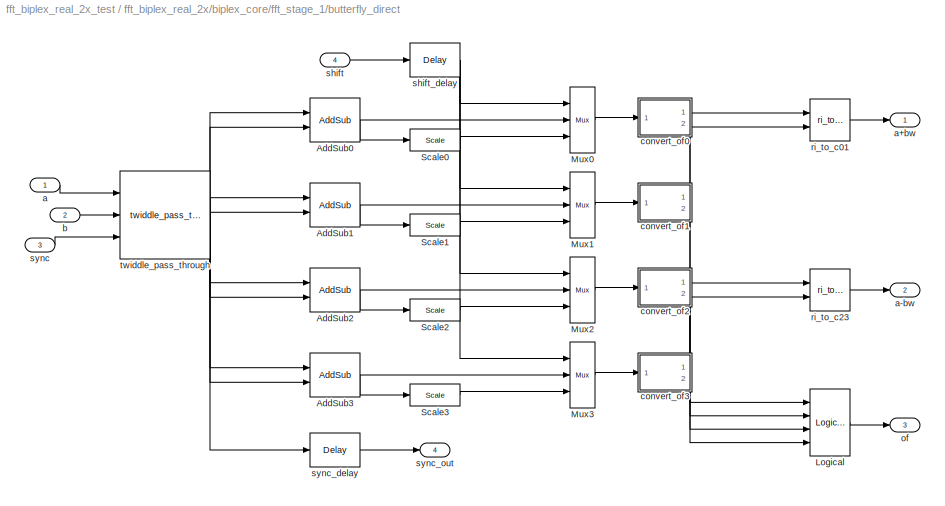
BLOCK [SubSystem] fft_biplex_real_2x/biplex_core/fft_stage_1/butterfly_direct
  AncestorBlock = casper_library_ffts/butterfly_direct
  AttributesFormatString = twiddle_pass_through\ncoeffs in slices
  FunctionWithSeparateData = off
  MaskCallbackString = ||Coeffs = get_param(gcb, 'Coeffs');\nif (length(eval(Coeffs)) == 1),\n    set_param_state(gcb, 'StepPeriod', 'off');\n    set_param_state(gcb, 'coeffs_bram', 'off');\n    set_param_state(gcb, 'coeff_bit_width', 'off');\nelse\n    set_param_state(gcb, 'StepPeriod', 'on');\n    set_param_state(gcb, 'coeffs_bram', 'on');\n    set_param_state(gcb, 'coeff_bit_width', 'on');\nend|||||||||||fft_callback...<+585ch>  <repeated x5 — deduplicated; at blocks: butterfly_direct>
  MaskDescription = FFT internal block.
  MaskEnableString = on,on,on,off,off,on,off,on,on,on,on,on,on,on,on,off,on,off,on,on
  MaskHideContents = off
  MaskIconFrame = on
  MaskIconOpaque = on
  MaskIconRotate = none
  MaskIconUnits = autoscale
  MaskInitialization = butterfly_direct_init(gcb, ...\n    'biplex', biplex, ...\n    'FFTSize', FFTSize, ...\n    'Coeffs', Coeffs, ...\n    'StepPeriod', StepPeriod, ...\n    'coeff_bit_width', coeff_bit_width, ...\n    'input_bit_width', input_bit_width, ...\n    'hardcode_shifts', hardcode_shifts, ...\n    'downshift', downshift, ...\n    'add_latency', add_latency, ...\n    'mult_latency', mult_latency, ...\n    'b...<+343ch>  <repeated x5 — deduplicated; at blocks: butterfly_direct>
  MaskPortRotate = default
  MaskPromptString = Used in biplex FFT|Size of FFT: (2^? pts)|Coefficients: (0 to 2^(FFTSize-1)-1)|Coefficient Step Period: (2^?)|Coefficient Bit Width|Input/Output Bit Width:|Downshift|Add Latency|Mult Latency|BRAM Latency|Convert latency|Quantization Behavior|Overflow Behavior|Architecture|Use less|Store coefficients in BRAM|Use behavioural HDL for multipliers|Use embedded multipliers|Hardcode shift schedule|Use DS...<+15ch>  <repeated x5 — deduplicated; at blocks: butterfly_direct>
  MaskSelfModifiable = on
  MaskStyleString = checkbox,edit,edit,edit,edit,edit,checkbox,edit,edit,edit,edit,popup(Truncate|Round  (unbiased: +/- Inf)|Round  (unbiased: Even Values)),popup(Wrap|Saturate|Error),popup(Virtex2Pro|Virtex5),popup(logic|multipliers),checkbox,checkbox,checkbox,checkbox,checkbox  <repeated x5 — deduplicated; at blocks: butterfly_direct>
  MaskTabNameString = Basic,Basic,Basic,Basic,Basic,Basic,Basic,Latency,Latency,Latency,Latency,Implementation,Implementation,Implementation,Implementation,Implementation,Implementation,Implementation,Implementation,Implementation  <repeated x5 — deduplicated; at blocks: butterfly_direct>
  MaskToolTipString = on,on,on,on,on,on,on,on,on,on,on,on,on,on,on,on,on,on,on,on
  MaskTunableValueString = on,on,on,on,on,on,on,on,on,on,on,on,on,on,on,on,on,on,on,on
  MaskType = butterfly_direct
  MaskValueString = on|5|0|4|18|18|off|2|2|2|2|Round  (unbiased: +/- Inf)|Saturate|Virtex5|multipliers|off|on|off|off|off
  MaskVariables = biplex=&1;FFTSize=@2;Coeffs=@3;StepPeriod=@4;coeff_bit_width=@5;input_bit_width=@6;downshift=&7;add_latency=@8;mult_latency=@9;bram_latency=@10;conv_latency=@11;quantization=&12;overflow=&13;arch=&14;opt_target=&15;coeffs_bram=&16;use_hdl=&17;use_embedded=&18;hardcode_shifts=&19;dsp48_adders=&20;  <repeated x5 — deduplicated; at blocks: butterfly_direct>
  MaskVisibilityString = off,on,on,on,on,on,on,on,on,on,on,on,on,on,on,on,on,on,on,on
  MinAlgLoopOccurrences = off
  Opaque = off
  Ports = [4, 4]
  PropExecContextOutsideSubsystem = off
  RTWSystemCode = Auto
  RequestExecContextInheritance = off
  SID = 2037
  UserData = DataTag13
  UserDataPersistent = on
BLOCK [Reference] fft_biplex_real_2x/biplex_core/fft_stage_1/butterfly_direct/AddSub0  REF=xbsIndex_r4/AddSub
  Ports = [2, 1]
  SID = 69
  SourceBlock = xbsIndex_r4/AddSub
  SourceType = Xilinx Adder/Subtracter Block
  arith_type = Unsigned
  bin_pt = 14
  block_type = addsub
  block_version = 11.4
  dbl_ovrd = off
  en = off
  has_advanced_control = 0
  hw_selection = Fabric
  latency = 2
  mode = Addition
  n_bits = 16
  overflow = Wrap
  pipelined = off
  precision = Full
  quantization = Truncate
  sg_icon_stat = 50,44,2,1,white,blue,0,4922a24f,right,
  sg_mask_display = fprintf('','COMMENT: begin icon graphics');\npatch([0 1 1 0 ],[0 0 1 1 ],[0.77 0.82 0.91]);\npatch([0.26 0.12 0.32 0.12 0.26 0.5 0.56 0.62 0.86 0.66 0.48 0.34 0.52 0.34 0.48 0.66 0.86 0.62 0.56 0.5 0.26 ],[0.113636 0.272727 0.5 0.727273 0.886364 0.886364 0.818182 0.886364 0.886364 0.659091 0.863636 0.704545 0.5 0.295455 0.136364 0.340909 0.113636 0.113636 0.181818 0.113636 0.113636 ],[0.98 0.96 0....<+390ch>  <repeated x20 — deduplicated; at blocks: AddSub0, AddSub1, AddSub2, AddSub3>
  sggui_pos = -1,-1,-1,-1
  use_behavioral_HDL = on
  use_carryin = off
  use_carryout = off
  xl_area = [0,0,0,0,0,0,0]
  xl_use_area = off
BLOCK [Reference] fft_biplex_real_2x/biplex_core/fft_stage_1/butterfly_direct/AddSub1  REF=xbsIndex_r4/AddSub
  Ports = [2, 1]
  SID = 70
  SourceBlock = xbsIndex_r4/AddSub
  SourceType = Xilinx Adder/Subtracter Block
  arith_type = Unsigned
  bin_pt = 14
  block_type = addsub
  block_version = 11.4
  dbl_ovrd = off
  en = off
  has_advanced_control = 0
  hw_selection = Fabric
  latency = 2
  mode = Addition
  n_bits = 16
  overflow = Wrap
  pipelined = off
  precision = Full
  quantization = Truncate
  sg_icon_stat = 50,44,2,1,white,blue,0,4922a24f,right,
  sggui_pos = -1,-1,-1,-1
  use_behavioral_HDL = on
  use_carryin = off
  use_carryout = off
  xl_area = [0,0,0,0,0,0,0]
  xl_use_area = off
BLOCK [Reference] fft_biplex_real_2x/biplex_core/fft_stage_1/butterfly_direct/AddSub2  REF=xbsIndex_r4/AddSub
  Ports = [2, 1]
  SID = 71
  SourceBlock = xbsIndex_r4/AddSub
  SourceType = Xilinx Adder/Subtracter Block
  arith_type = Unsigned
  bin_pt = 14
  block_type = addsub
  block_version = 11.4
  dbl_ovrd = off
  en = off
  has_advanced_control = 0
  hw_selection = Fabric
  latency = 2
  mode = Subtraction
  n_bits = 16
  overflow = Wrap
  pipelined = off
  precision = Full
  quantization = Truncate
  sg_icon_stat = 50,44,2,1,white,blue,0,57a258cf,right,
  sggui_pos = -1,-1,-1,-1
  use_behavioral_HDL = on
  use_carryin = off
  use_carryout = off
  xl_area = [0,0,0,0,0,0,0]
  xl_use_area = off
BLOCK [Reference] fft_biplex_real_2x/biplex_core/fft_stage_1/butterfly_direct/AddSub3  REF=xbsIndex_r4/AddSub
  Ports = [2, 1]
  SID = 72
  SourceBlock = xbsIndex_r4/AddSub
  SourceType = Xilinx Adder/Subtracter Block
  arith_type = Unsigned
  bin_pt = 14
  block_type = addsub
  block_version = 11.4
  dbl_ovrd = off
  en = off
  has_advanced_control = 0
  hw_selection = Fabric
  latency = 2
  mode = Subtraction
  n_bits = 16
  overflow = Wrap
  pipelined = off
  precision = Full
  quantization = Truncate
  sg_icon_stat = 50,44,2,1,white,blue,0,57a258cf,right,
  sggui_pos = -1,-1,-1,-1
  use_behavioral_HDL = on
  use_carryin = off
  use_carryout = off
  xl_area = [0,0,0,0,0,0,0]
  xl_use_area = off
BLOCK [Reference] fft_biplex_real_2x/biplex_core/fft_stage_1/butterfly_direct/Logical  REF=xbsIndex_r4/Logical
  Ports = [4, 1]
  SID = 53
  SourceBlock = xbsIndex_r4/Logical
  SourceType = Xilinx Logical Block Block
  align_bp = on
  arith_type = Unsigned
  bin_pt = 0
  block_type = logical
  block_version = 11.4
  dbl_ovrd = off
  en = off
  has_advanced_control = 0
  inputs = 4
  latency = 0
  logical_function = OR
  n_bits = 16
  precision = Full
  sg_icon_stat = 40,67,4,1,white,blue,0,96d3e8c1,right,
  sg_mask_display = fprintf('','COMMENT: begin icon graphics');\npatch([0 1 1 0 ],[0 0 1 1 ],[0.77 0.82 0.91]);\npatch([0.25 0.075 0.3 0.075 0.25 0.525 0.6 0.675 0.95 0.725 0.5 0.35 0.6 0.35 0.5 0.725 0.95 0.675 0.6 0.525 0.25 ],[0.268657 0.373134 0.507463 0.641791 0.746269 0.746269 0.701493 0.746269 0.746269 0.61194 0.746269 0.656716 0.507463 0.358209 0.268657 0.402985 0.268657 0.268657 0.313433 0.268657 0.268657 ],...<+244ch>  <repeated x5 — deduplicated; at blocks: Logical>
  sggui_pos = -1,-1,-1,-1
  xl_area = [0,0,0,0,0,0,0]
  xl_use_area = off
BLOCK [Reference] fft_biplex_real_2x/biplex_core/fft_stage_1/butterfly_direct/Mux0  REF=xbsIndex_r4/Mux
  Ports = [3, 1]
  SID = 129
  SourceBlock = xbsIndex_r4/Mux
  SourceType = Xilinx Bus Multiplexer Block
  arith_type = Unsigned
  bin_pt = 14
  block_type = mux
  block_version = 11.4
  dbl_ovrd = off
  en = off
  has_advanced_control = 0
  inputs = 2
  latency = 1
  n_bits = 16
  overflow = Wrap
  precision = Full
  quantization = Truncate
  sg_icon_stat = 25,66,3,1,white,blue,3,a150fb03,right,
  sg_mask_display = fprintf('','COMMENT: begin icon graphics');\npatch([0 1 1 0 ],[0 0.142857 0.857143 1 ],[0.77 0.82 0.91]);\npatch([0.24 0.08 0.32 0.08 0.24 0.52 0.6 0.68 0.96 0.72 0.52 0.36 0.56 0.36 0.52 0.72 0.96 0.68 0.6 0.52 0.24 ],[0.348485 0.409091 0.5 0.590909 0.651515 0.651515 0.621212 0.651515 0.651515 0.560606 0.636364 0.575758 0.5 0.424242 0.363636 0.439394 0.348485 0.348485 0.378788 0.348485 0.348485 ]...<+380ch>  <repeated x20 — deduplicated; at blocks: Mux0, Mux1, Mux2, Mux3>
  sggui_pos = -1,-1,-1,-1
  xl_area = [0,0,0,0,0,0,0]
  xl_use_area = off
BLOCK [Reference] fft_biplex_real_2x/biplex_core/fft_stage_1/butterfly_direct/Mux1  REF=xbsIndex_r4/Mux
  Ports = [3, 1]
  SID = 130
  SourceBlock = xbsIndex_r4/Mux
  SourceType = Xilinx Bus Multiplexer Block
  arith_type = Unsigned
  bin_pt = 14
  block_type = mux
  block_version = 11.4
  dbl_ovrd = off
  en = off
  has_advanced_control = 0
  inputs = 2
  latency = 1
  n_bits = 16
  overflow = Wrap
  precision = Full
  quantization = Truncate
  sg_icon_stat = 25,66,3,1,white,blue,3,a150fb03,right,
  sggui_pos = -1,-1,-1,-1
  xl_area = [0,0,0,0,0,0,0]
  xl_use_area = off
BLOCK [Reference] fft_biplex_real_2x/biplex_core/fft_stage_1/butterfly_direct/Mux2  REF=xbsIndex_r4/Mux
  Ports = [3, 1]
  SID = 131
  SourceBlock = xbsIndex_r4/Mux
  SourceType = Xilinx Bus Multiplexer Block
  arith_type = Unsigned
  bin_pt = 14
  block_type = mux
  block_version = 11.4
  dbl_ovrd = off
  en = off
  has_advanced_control = 0
  inputs = 2
  latency = 1
  n_bits = 16
  overflow = Wrap
  precision = Full
  quantization = Truncate
  sg_icon_stat = 25,66,3,1,white,blue,3,a150fb03,right,
  sggui_pos = -1,-1,-1,-1
  xl_area = [0,0,0,0,0,0,0]
  xl_use_area = off
BLOCK [Reference] fft_biplex_real_2x/biplex_core/fft_stage_1/butterfly_direct/Mux3  REF=xbsIndex_r4/Mux
  Ports = [3, 1]
  SID = 132
  SourceBlock = xbsIndex_r4/Mux
  SourceType = Xilinx Bus Multiplexer Block
  arith_type = Unsigned
  bin_pt = 14
  block_type = mux
  block_version = 11.4
  dbl_ovrd = off
  en = off
  has_advanced_control = 0
  inputs = 2
  latency = 1
  n_bits = 16
  overflow = Wrap
  precision = Full
  quantization = Truncate
  sg_icon_stat = 25,66,3,1,white,blue,3,a150fb03,right,
  sggui_pos = -1,-1,-1,-1
  xl_area = [0,0,0,0,0,0,0]
  xl_use_area = off
BLOCK [Reference] fft_biplex_real_2x/biplex_core/fft_stage_1/butterfly_direct/Scale0  REF=xbsIndex_r4/Scale
  Ports = [1, 1]
  SID = 125
  SourceBlock = xbsIndex_r4/Scale
  SourceType = Xilinx Input Scaler Block
  block_type = scale
  block_version = 11.4
  dbl_ovrd = off
  has_advanced_control = 0
  infoedit = Scales input by a power of two by adjusting the binary point position.<br><br>Hardware notes: In hardware this block costs nothing.
  scale_factor = -1
  sg_icon_stat = 50,22,1,1,white,blue,0,315b7d78,right,
  sg_mask_display = fprintf('','COMMENT: begin icon graphics');\npatch([0 1 1 0 ],[0 0 1 1 ],[0.77 0.82 0.91]);\npatch([0.38 0.3 0.4 0.3 0.38 0.5 0.54 0.58 0.7 0.6 0.5 0.44 0.56 0.44 0.5 0.6 0.7 0.58 0.54 0.5 0.38 ],[0.0909091 0.272727 0.5 0.727273 0.909091 0.909091 0.818182 0.909091 0.909091 0.681818 0.909091 0.772727 0.5 0.227273 0.0909091 0.318182 0.0909091 0.0909091 0.181818 0.0909091 0.0909091 ],[0.98 0.96 0.92]...<+214ch>  <repeated x20 — deduplicated; at blocks: Scale0, Scale1, Scale2, Scale3>
  sggui_pos = -1,-1,-1,-1
BLOCK [Reference] fft_biplex_real_2x/biplex_core/fft_stage_1/butterfly_direct/Scale1  REF=xbsIndex_r4/Scale
  Ports = [1, 1]
  SID = 126
  SourceBlock = xbsIndex_r4/Scale
  SourceType = Xilinx Input Scaler Block
  block_type = scale
  block_version = 11.4
  dbl_ovrd = off
  has_advanced_control = 0
  infoedit = Scales input by a power of two by adjusting the binary point position.<br><br>Hardware notes: In hardware this block costs nothing.
  scale_factor = -1
  sg_icon_stat = 50,22,1,1,white,blue,0,315b7d78,right,
  sggui_pos = -1,-1,-1,-1
BLOCK [Reference] fft_biplex_real_2x/biplex_core/fft_stage_1/butterfly_direct/Scale2  REF=xbsIndex_r4/Scale
  Ports = [1, 1]
  SID = 127
  SourceBlock = xbsIndex_r4/Scale
  SourceType = Xilinx Input Scaler Block
  block_type = scale
  block_version = 11.4
  dbl_ovrd = off
  has_advanced_control = 0
  infoedit = Scales input by a power of two by adjusting the binary point position.<br><br>Hardware notes: In hardware this block costs nothing.
  scale_factor = -1
  sg_icon_stat = 50,22,1,1,white,blue,0,315b7d78,right,
  sggui_pos = -1,-1,-1,-1
BLOCK [Reference] fft_biplex_real_2x/biplex_core/fft_stage_1/butterfly_direct/Scale3  REF=xbsIndex_r4/Scale
  Ports = [1, 1]
  SID = 128
  SourceBlock = xbsIndex_r4/Scale
  SourceType = Xilinx Input Scaler Block
  block_type = scale
  block_version = 11.4
  dbl_ovrd = off
  has_advanced_control = 0
  infoedit = Scales input by a power of two by adjusting the binary point position.<br><br>Hardware notes: In hardware this block costs nothing.
  scale_factor = -1
  sg_icon_stat = 50,22,1,1,white,blue,0,315b7d78,right,
  sggui_pos = -1,-1,-1,-1
BLOCK [Inport] fft_biplex_real_2x/biplex_core/fft_stage_1/butterfly_direct/a
  IconDisplay = Port number
  OutDataType = sfix(16)
  OutScaling = 2^0
  SID = 1
BLOCK [Outport] fft_biplex_real_2x/biplex_core/fft_stage_1/butterfly_direct/a+bw
  IconDisplay = Port number
  OutDataType = sfix(16)
  OutScaling = 2^0
  SID = 27
BLOCK [Outport] fft_biplex_real_2x/biplex_core/fft_stage_1/butterfly_direct/a-bw
  IconDisplay = Port number
  OutDataType = sfix(16)
  OutScaling = 2^0
  Port = 2
  SID = 28
BLOCK [Inport] fft_biplex_real_2x/biplex_core/fft_stage_1/butterfly_direct/b
  IconDisplay = Port number
  OutDataType = sfix(16)
  OutScaling = 2^0
  Port = 2
  SID = 2
BLOCK [SubSystem] fft_biplex_real_2x/biplex_core/fft_stage_1/butterfly_direct/convert_of0
  AncestorBlock = casper_library_misc/convert_of
  AttributesFormatString = [20,18]->[18,17]
  FunctionWithSeparateData = off
  MaskCallbackString = ||||||
  MaskDescription = Converts from one 2's complement bit-width \nand/or binary point position to another. \nIncludes underflow/overflow indicator.
  MaskEnableString = on,on,on,on,on,on,on
  MaskHideContents = off
  MaskIconFrame = on
  MaskIconOpaque = on
  MaskIconRotate = none
  MaskIconUnits = autoscale
  MaskInitialization = convert_of_init(gcb, ...\n    'bit_width_i', bit_width_i, ...\n    'binary_point_i', binary_point_i, ...\n    'bit_width_o', bit_width_o, ...\n    'binary_point_o', binary_point_o, ...\n    'latency', latency, ...\n    'overflow', overflow, ...\n    'quantization', quantization);\n  <repeated x20 — deduplicated; at blocks: convert_of0, convert_of1, convert_of2, convert_of3>
  MaskPortRotate = default
  MaskPromptString = Bit Width In|Binary Point In|Bit Width Out|Binary Point Out|Latency|Overflow Behaviour|Quantization Behaviour
  MaskStyleString = edit,edit,edit,edit,edit,popup(Wrap|Saturate|Error),popup(Truncate|Round  (unbiased: +/- Inf)|Round  (unbiased: even values))
  MaskToolTipString = on,on,on,on,on,on,on
  MaskTunableValueString = on,on,on,on,on,on,on
  MaskType = convert_of
  MaskValueString = 20|18|18|17|2|Saturate|Round  (unbiased: +/- Inf)
  MaskVariables = bit_width_i=@1;binary_point_i=@2;bit_width_o=@3;binary_point_o=@4;latency=@5;overflow=&6;quantization=&7;
  MaskVisibilityString = on,on,on,on,on,on,on
  MinAlgLoopOccurrences = off
  Opaque = off
  Ports = [1, 2]
  PropExecContextOutsideSubsystem = off
  RTWSystemCode = Auto
  RequestExecContextInheritance = off
  SID = 47
  UserData = DataTag14
  UserDataPersistent = on
BLOCK [Reference] fft_biplex_real_2x/biplex_core/fft_stage_1/butterfly_direct/convert_of0/all_0s  REF=xbsIndex_r4/Logical
  Ports = [2, 1]
  SID = 69
  SourceBlock = xbsIndex_r4/Logical
  SourceType = Xilinx Logical Block Block
  align_bp = on
  arith_type = Unsigned
  bin_pt = 0
  block_type = logical
  block_version = 10.1.3
  dbl_ovrd = off
  en = off
  has_advanced_control = 0
  inputs = 2
  latency = latency
  logical_function = NAND
  n_bits = 16
  precision = Full
  sg_icon_stat = 45,40,2,1,white,blue,0,8ff56bdf,right,
  sg_mask_display = fprintf('','COMMENT: begin icon graphics');\npatch([0 1 1 0 ],[0 0 1 1 ],[0.77 0.82 0.91]);\npatch([0.266667 0.111111 0.311111 0.111111 0.266667 0.511111 0.577778 0.644444 0.888889 0.688889 0.488889 0.355556 0.577778 0.355556 0.488889 0.688889 0.888889 0.644444 0.577778 0.511111 0.266667 ],[0.1 0.275 0.5 0.725 0.9 0.9 0.825 0.9 0.9 0.675 0.9 0.75 0.5 0.25 0.1 0.325 0.1 0.1 0.175 0.1 0.1 ],[0.98 0....<+238ch>  <repeated x16 — deduplicated; at blocks: all_0s, all_1s>
  sggui_pos = 20,20,348,261
  xl_area = [0,0,0,0,0,0,0]
  xl_use_area = off
BLOCK [Reference] fft_biplex_real_2x/biplex_core/fft_stage_1/butterfly_direct/convert_of0/all_1s  REF=xbsIndex_r4/Logical
  Ports = [2, 1]
  SID = 70
  SourceBlock = xbsIndex_r4/Logical
  SourceType = Xilinx Logical Block Block
  align_bp = on
  arith_type = Unsigned
  bin_pt = 0
  block_type = logical
  block_version = 10.1.3
  dbl_ovrd = off
  en = off
  has_advanced_control = 0
  inputs = 2
  latency = latency
  logical_function = NAND
  n_bits = 16
  precision = Full
  sg_icon_stat = 45,40,2,1,white,blue,0,8ff56bdf,right,
  sggui_pos = -1,-1,-1,-1
  xl_area = [0,0,0,0,0,0,0]
  xl_use_area = off
BLOCK [Reference] fft_biplex_real_2x/biplex_core/fft_stage_1/butterfly_direct/convert_of0/and  REF=xbsIndex_r4/Logical
  Ports = [2, 1]
  SID = 71
  SourceBlock = xbsIndex_r4/Logical
  SourceType = Xilinx Logical Block Block
  align_bp = on
  arith_type = Unsigned
  bin_pt = 0
  block_type = logical
  block_version = 10.1.3
  dbl_ovrd = off
  en = off
  has_advanced_control = 0
  inputs = 2
  latency = 0
  logical_function = AND
  n_bits = 16
  precision = Full
  sg_icon_stat = 40,35,2,1,white,blue,0,0a851f85,right,
  sg_mask_display = fprintf('','COMMENT: begin icon graphics');\npatch([0 1 1 0 ],[0 0 1 1 ],[0.77 0.82 0.91]);\npatch([0.275 0.125 0.325 0.125 0.275 0.5 0.575 0.65 0.9 0.7 0.525 0.4 0.6 0.4 0.525 0.7 0.9 0.65 0.575 0.5 0.275 ],[0.114286 0.285714 0.514286 0.742857 0.914286 0.914286 0.828571 0.914286 0.914286 0.685714 0.885714 0.742857 0.514286 0.285714 0.142857 0.342857 0.114286 0.114286 0.2 0.114286 0.114286 ],[0.98...<+240ch>  <repeated x20 — deduplicated; at blocks: and>
  sggui_pos = -1,-1,-1,-1
  xl_area = [0,0,0,0,0,0,0]
  xl_use_area = off
BLOCK [Reference] fft_biplex_real_2x/biplex_core/fft_stage_1/butterfly_direct/convert_of0/convert  REF=xbsIndex_r4/Convert
  Ports = [1, 1]
  SID = 72
  SourceBlock = xbsIndex_r4/Convert
  SourceType = Xilinx Type Converter Block
  arith_type = Signed  (2's comp)
  bin_pt = binary_point_o
  block_type = convert
  block_version = 10.1.1
  dbl_ovrd = off
  has_advanced_control = 0
  infoedit = Hardware notes: rounding and saturating require hardware resources; truncating and wrapping do not.
  latency = latency
  n_bits = bit_width_o
  overflow = Saturate
  pipeline = on
  quantization = Round  (unbiased: +/- Inf)
  sg_icon_stat = 45,30,1,1,white,blue,0,5129c5aa,right,
  sggui_pos = 20,20,538,377
  xl_area = [0,0,0,0,0,0,0]
  xl_use_area = off
BLOCK [Inport] fft_biplex_real_2x/biplex_core/fft_stage_1/butterfly_direct/convert_of0/din
  IconDisplay = Port number
  OutDataType = sfix(16)
  OutScaling = 2^0
  SID = 69
BLOCK [Outport] fft_biplex_real_2x/biplex_core/fft_stage_1/butterfly_direct/convert_of0/dout
  IconDisplay = Port number
  SID = 78
BLOCK [Reference] fft_biplex_real_2x/biplex_core/fft_stage_1/butterfly_direct/convert_of0/invert1  REF=xbsIndex_r4/Inverter
  Ports = [1, 1]
  SID = 73
  SourceBlock = xbsIndex_r4/Inverter
  SourceType = Xilinx Inverter Block
  block_type = inv
  block_version = 10.1.3
  dbl_ovrd = off
  en = off
  has_advanced_control = 0
  infoedit = Bitwise logical negation (one's complement) operator.
  latency = 0
  sg_icon_stat = 35,22,1,1,white,blue,0,267846e5,right,
  sg_mask_display = fprintf('','COMMENT: begin icon graphics');\npatch([0 1 1 0 ],[0 0 1 1 ],[0.77 0.82 0.91]);\npatch([0.342857 0.228571 0.371429 0.228571 0.342857 0.514286 0.571429 0.628571 0.8 0.657143 0.514286 0.428571 0.6 0.428571 0.514286 0.657143 0.8 0.628571 0.571429 0.514286 0.342857 ],[0.0909091 0.272727 0.5 0.727273 0.909091 0.909091 0.818182 0.909091 0.909091 0.681818 0.909091 0.772727 0.5 0.227273 0.0909...<+270ch>  <repeated x76 — deduplicated; at blocks: invert1, invert2, invert3, invert4, invert5>
  sggui_pos = -1,-1,-1,-1
  xl_area = [0,0,0,0,0,0,0]
  xl_use_area = off
BLOCK [Reference] fft_biplex_real_2x/biplex_core/fft_stage_1/butterfly_direct/convert_of0/invert2  REF=xbsIndex_r4/Inverter
  Ports = [1, 1]
  SID = 74
  SourceBlock = xbsIndex_r4/Inverter
  SourceType = Xilinx Inverter Block
  block_type = inv
  block_version = 10.1.3
  dbl_ovrd = off
  en = off
  has_advanced_control = 0
  infoedit = Bitwise logical negation (one's complement) operator.
  latency = 0
  sg_icon_stat = 35,22,1,1,white,blue,0,267846e5,right,
  sggui_pos = -1,-1,-1,-1
  xl_area = [0,0,0,0,0,0,0]
  xl_use_area = off
BLOCK [Outport] fft_biplex_real_2x/biplex_core/fft_stage_1/butterfly_direct/convert_of0/of
  IconDisplay = Port number
  Port = 2
  SID = 79
BLOCK [Reference] fft_biplex_real_2x/biplex_core/fft_stage_1/butterfly_direct/convert_of0/slice1  REF=xbsIndex_r4/Slice
  Ports = [1, 1]
  SID = 75
  SourceBlock = xbsIndex_r4/Slice
  SourceType = Xilinx Bit Slice Extractor Block
  base0 = LSB of Input
  base1 = MSB of Input
  bit0 = 0
  bit1 = 0
  block_type = slice
  block_version = 10.1.1
  boolean_output = on
  dbl_ovrd = off
  has_advanced_control = 0
  mode = Upper Bit Location + Width
  nbits = 1
  sg_icon_stat = 35,22,1,1,white,blue,0,1fd851a7,right,
  sg_mask_display = fprintf('','COMMENT: begin icon graphics');\npatch([0 1 1 0 ],[0 0 1 1 ],[0.77 0.82 0.91]);\npatch([0.342857 0.228571 0.371429 0.228571 0.342857 0.514286 0.571429 0.628571 0.8 0.657143 0.514286 0.428571 0.6 0.428571 0.514286 0.657143 0.8 0.628571 0.571429 0.514286 0.342857 ],[0.0909091 0.272727 0.5 0.727273 0.909091 0.909091 0.818182 0.909091 0.909091 0.681818 0.909091 0.772727 0.5 0.227273 0.0909...<+289ch>  <repeated x77 — deduplicated; at blocks: slice1, slice2, slice, slice3, slice4, slice5>
  sggui_pos = -1,-1,-1,-1
BLOCK [Reference] fft_biplex_real_2x/biplex_core/fft_stage_1/butterfly_direct/convert_of0/slice2  REF=xbsIndex_r4/Slice
  Ports = [1, 1]
  SID = 76
  SourceBlock = xbsIndex_r4/Slice
  SourceType = Xilinx Bit Slice Extractor Block
  base0 = LSB of Input
  base1 = MSB of Input
  bit0 = 0
  bit1 = -1
  block_type = slice
  block_version = 10.1.1
  boolean_output = on
  dbl_ovrd = off
  has_advanced_control = 0
  mode = Upper Bit Location + Width
  nbits = 1
  sg_icon_stat = 35,22,1,1,white,blue,0,1fd851a7,right,
  sggui_pos = -1,-1,-1,-1
BLOCK [SubSystem] fft_biplex_real_2x/biplex_core/fft_stage_1/butterfly_direct/convert_of1
  AncestorBlock = casper_library_misc/convert_of
  AttributesFormatString = [20,18]->[18,17]
  FunctionWithSeparateData = off
  MaskCallbackString = ||||||
  MaskDescription = Converts from one 2's complement bit-width \nand/or binary point position to another. \nIncludes underflow/overflow indicator.
  MaskEnableString = on,on,on,on,on,on,on
  MaskHideContents = off
  MaskIconFrame = on
  MaskIconOpaque = on
  MaskIconRotate = none
  MaskIconUnits = autoscale
  MaskPortRotate = default
  MaskPromptString = Bit Width In|Binary Point In|Bit Width Out|Binary Point Out|Latency|Overflow Behaviour|Quantization Behaviour
  MaskStyleString = edit,edit,edit,edit,edit,popup(Wrap|Saturate|Error),popup(Truncate|Round  (unbiased: +/- Inf)|Round  (unbiased: even values))
  MaskToolTipString = on,on,on,on,on,on,on
  MaskTunableValueString = on,on,on,on,on,on,on
  MaskType = convert_of
  MaskValueString = 20|18|18|17|2|Saturate|Round  (unbiased: +/- Inf)
  MaskVariables = bit_width_i=@1;binary_point_i=@2;bit_width_o=@3;binary_point_o=@4;latency=@5;overflow=&6;quantization=&7;
  MaskVisibilityString = on,on,on,on,on,on,on
  MinAlgLoopOccurrences = off
  Opaque = off
  Ports = [1, 2]
  PropExecContextOutsideSubsystem = off
  RTWSystemCode = Auto
  RequestExecContextInheritance = off
  SID = 48
  UserData = DataTag15
  UserDataPersistent = on
BLOCK [Reference] fft_biplex_real_2x/biplex_core/fft_stage_1/butterfly_direct/convert_of1/all_0s  REF=xbsIndex_r4/Logical
  Ports = [2, 1]
  SID = 69
  SourceBlock = xbsIndex_r4/Logical
  SourceType = Xilinx Logical Block Block
  align_bp = on
  arith_type = Unsigned
  bin_pt = 0
  block_type = logical
  block_version = 10.1.3
  dbl_ovrd = off
  en = off
  has_advanced_control = 0
  inputs = 2
  latency = latency
  logical_function = NAND
  n_bits = 16
  precision = Full
  sg_icon_stat = 45,40,2,1,white,blue,0,8ff56bdf,right,
  sggui_pos = 20,20,348,261
  xl_area = [0,0,0,0,0,0,0]
  xl_use_area = off
BLOCK [Reference] fft_biplex_real_2x/biplex_core/fft_stage_1/butterfly_direct/convert_of1/all_1s  REF=xbsIndex_r4/Logical
  Ports = [2, 1]
  SID = 70
  SourceBlock = xbsIndex_r4/Logical
  SourceType = Xilinx Logical Block Block
  align_bp = on
  arith_type = Unsigned
  bin_pt = 0
  block_type = logical
  block_version = 10.1.3
  dbl_ovrd = off
  en = off
  has_advanced_control = 0
  inputs = 2
  latency = latency
  logical_function = NAND
  n_bits = 16
  precision = Full
  sg_icon_stat = 45,40,2,1,white,blue,0,8ff56bdf,right,
  sggui_pos = -1,-1,-1,-1
  xl_area = [0,0,0,0,0,0,0]
  xl_use_area = off
BLOCK [Reference] fft_biplex_real_2x/biplex_core/fft_stage_1/butterfly_direct/convert_of1/and  REF=xbsIndex_r4/Logical
  Ports = [2, 1]
  SID = 71
  SourceBlock = xbsIndex_r4/Logical
  SourceType = Xilinx Logical Block Block
  align_bp = on
  arith_type = Unsigned
  bin_pt = 0
  block_type = logical
  block_version = 10.1.3
  dbl_ovrd = off
  en = off
  has_advanced_control = 0
  inputs = 2
  latency = 0
  logical_function = AND
  n_bits = 16
  precision = Full
  sg_icon_stat = 40,35,2,1,white,blue,0,0a851f85,right,
  sggui_pos = -1,-1,-1,-1
  xl_area = [0,0,0,0,0,0,0]
  xl_use_area = off
BLOCK [Reference] fft_biplex_real_2x/biplex_core/fft_stage_1/butterfly_direct/convert_of1/convert  REF=xbsIndex_r4/Convert
  Ports = [1, 1]
  SID = 72
  SourceBlock = xbsIndex_r4/Convert
  SourceType = Xilinx Type Converter Block
  arith_type = Signed  (2's comp)
  bin_pt = binary_point_o
  block_type = convert
  block_version = 10.1.1
  dbl_ovrd = off
  has_advanced_control = 0
  infoedit = Hardware notes: rounding and saturating require hardware resources; truncating and wrapping do not.
  latency = latency
  n_bits = bit_width_o
  overflow = Saturate
  pipeline = on
  quantization = Round  (unbiased: +/- Inf)
  sg_icon_stat = 45,30,1,1,white,blue,0,5129c5aa,right,
  sggui_pos = 20,20,538,377
  xl_area = [0,0,0,0,0,0,0]
  xl_use_area = off
BLOCK [Inport] fft_biplex_real_2x/biplex_core/fft_stage_1/butterfly_direct/convert_of1/din
  IconDisplay = Port number
  OutDataType = sfix(16)
  OutScaling = 2^0
  SID = 69
BLOCK [Outport] fft_biplex_real_2x/biplex_core/fft_stage_1/butterfly_direct/convert_of1/dout
  IconDisplay = Port number
  SID = 78
BLOCK [Reference] fft_biplex_real_2x/biplex_core/fft_stage_1/butterfly_direct/convert_of1/invert1  REF=xbsIndex_r4/Inverter
  Ports = [1, 1]
  SID = 73
  SourceBlock = xbsIndex_r4/Inverter
  SourceType = Xilinx Inverter Block
  block_type = inv
  block_version = 10.1.3
  dbl_ovrd = off
  en = off
  has_advanced_control = 0
  infoedit = Bitwise logical negation (one's complement) operator.
  latency = 0
  sg_icon_stat = 35,22,1,1,white,blue,0,267846e5,right,
  sggui_pos = -1,-1,-1,-1
  xl_area = [0,0,0,0,0,0,0]
  xl_use_area = off
BLOCK [Reference] fft_biplex_real_2x/biplex_core/fft_stage_1/butterfly_direct/convert_of1/invert2  REF=xbsIndex_r4/Inverter
  Ports = [1, 1]
  SID = 74
  SourceBlock = xbsIndex_r4/Inverter
  SourceType = Xilinx Inverter Block
  block_type = inv
  block_version = 10.1.3
  dbl_ovrd = off
  en = off
  has_advanced_control = 0
  infoedit = Bitwise logical negation (one's complement) operator.
  latency = 0
  sg_icon_stat = 35,22,1,1,white,blue,0,267846e5,right,
  sggui_pos = -1,-1,-1,-1
  xl_area = [0,0,0,0,0,0,0]
  xl_use_area = off
BLOCK [Outport] fft_biplex_real_2x/biplex_core/fft_stage_1/butterfly_direct/convert_of1/of
  IconDisplay = Port number
  Port = 2
  SID = 79
BLOCK [Reference] fft_biplex_real_2x/biplex_core/fft_stage_1/butterfly_direct/convert_of1/slice1  REF=xbsIndex_r4/Slice
  Ports = [1, 1]
  SID = 75
  SourceBlock = xbsIndex_r4/Slice
  SourceType = Xilinx Bit Slice Extractor Block
  base0 = LSB of Input
  base1 = MSB of Input
  bit0 = 0
  bit1 = 0
  block_type = slice
  block_version = 10.1.1
  boolean_output = on
  dbl_ovrd = off
  has_advanced_control = 0
  mode = Upper Bit Location + Width
  nbits = 1
  sg_icon_stat = 35,22,1,1,white,blue,0,1fd851a7,right,
  sggui_pos = -1,-1,-1,-1
BLOCK [Reference] fft_biplex_real_2x/biplex_core/fft_stage_1/butterfly_direct/convert_of1/slice2  REF=xbsIndex_r4/Slice
  Ports = [1, 1]
  SID = 76
  SourceBlock = xbsIndex_r4/Slice
  SourceType = Xilinx Bit Slice Extractor Block
  base0 = LSB of Input
  base1 = MSB of Input
  bit0 = 0
  bit1 = -1
  block_type = slice
  block_version = 10.1.1
  boolean_output = on
  dbl_ovrd = off
  has_advanced_control = 0
  mode = Upper Bit Location + Width
  nbits = 1
  sg_icon_stat = 35,22,1,1,white,blue,0,1fd851a7,right,
  sggui_pos = -1,-1,-1,-1
BLOCK [SubSystem] fft_biplex_real_2x/biplex_core/fft_stage_1/butterfly_direct/convert_of2
  AncestorBlock = casper_library_misc/convert_of
  AttributesFormatString = [20,18]->[18,17]
  FunctionWithSeparateData = off
  MaskCallbackString = ||||||
  MaskDescription = Converts from one 2's complement bit-width \nand/or binary point position to another. \nIncludes underflow/overflow indicator.
  MaskEnableString = on,on,on,on,on,on,on
  MaskHideContents = off
  MaskIconFrame = on
  MaskIconOpaque = on
  MaskIconRotate = none
  MaskIconUnits = autoscale
  MaskPortRotate = default
  MaskPromptString = Bit Width In|Binary Point In|Bit Width Out|Binary Point Out|Latency|Overflow Behaviour|Quantization Behaviour
  MaskStyleString = edit,edit,edit,edit,edit,popup(Wrap|Saturate|Error),popup(Truncate|Round  (unbiased: +/- Inf)|Round  (unbiased: even values))
  MaskToolTipString = on,on,on,on,on,on,on
  MaskTunableValueString = on,on,on,on,on,on,on
  MaskType = convert_of
  MaskValueString = 20|18|18|17|2|Saturate|Round  (unbiased: +/- Inf)
  MaskVariables = bit_width_i=@1;binary_point_i=@2;bit_width_o=@3;binary_point_o=@4;latency=@5;overflow=&6;quantization=&7;
  MaskVisibilityString = on,on,on,on,on,on,on
  MinAlgLoopOccurrences = off
  Opaque = off
  Ports = [1, 2]
  PropExecContextOutsideSubsystem = off
  RTWSystemCode = Auto
  RequestExecContextInheritance = off
  SID = 49
  UserData = DataTag16
  UserDataPersistent = on
BLOCK [Reference] fft_biplex_real_2x/biplex_core/fft_stage_1/butterfly_direct/convert_of2/all_0s  REF=xbsIndex_r4/Logical
  Ports = [2, 1]
  SID = 69
  SourceBlock = xbsIndex_r4/Logical
  SourceType = Xilinx Logical Block Block
  align_bp = on
  arith_type = Unsigned
  bin_pt = 0
  block_type = logical
  block_version = 10.1.3
  dbl_ovrd = off
  en = off
  has_advanced_control = 0
  inputs = 2
  latency = latency
  logical_function = NAND
  n_bits = 16
  precision = Full
  sg_icon_stat = 45,40,2,1,white,blue,0,8ff56bdf,right,
  sggui_pos = 20,20,348,261
  xl_area = [0,0,0,0,0,0,0]
  xl_use_area = off
BLOCK [Reference] fft_biplex_real_2x/biplex_core/fft_stage_1/butterfly_direct/convert_of2/all_1s  REF=xbsIndex_r4/Logical
  Ports = [2, 1]
  SID = 70
  SourceBlock = xbsIndex_r4/Logical
  SourceType = Xilinx Logical Block Block
  align_bp = on
  arith_type = Unsigned
  bin_pt = 0
  block_type = logical
  block_version = 10.1.3
  dbl_ovrd = off
  en = off
  has_advanced_control = 0
  inputs = 2
  latency = latency
  logical_function = NAND
  n_bits = 16
  precision = Full
  sg_icon_stat = 45,40,2,1,white,blue,0,8ff56bdf,right,
  sggui_pos = -1,-1,-1,-1
  xl_area = [0,0,0,0,0,0,0]
  xl_use_area = off
BLOCK [Reference] fft_biplex_real_2x/biplex_core/fft_stage_1/butterfly_direct/convert_of2/and  REF=xbsIndex_r4/Logical
  Ports = [2, 1]
  SID = 71
  SourceBlock = xbsIndex_r4/Logical
  SourceType = Xilinx Logical Block Block
  align_bp = on
  arith_type = Unsigned
  bin_pt = 0
  block_type = logical
  block_version = 10.1.3
  dbl_ovrd = off
  en = off
  has_advanced_control = 0
  inputs = 2
  latency = 0
  logical_function = AND
  n_bits = 16
  precision = Full
  sg_icon_stat = 40,35,2,1,white,blue,0,0a851f85,right,
  sggui_pos = -1,-1,-1,-1
  xl_area = [0,0,0,0,0,0,0]
  xl_use_area = off
BLOCK [Reference] fft_biplex_real_2x/biplex_core/fft_stage_1/butterfly_direct/convert_of2/convert  REF=xbsIndex_r4/Convert
  Ports = [1, 1]
  SID = 72
  SourceBlock = xbsIndex_r4/Convert
  SourceType = Xilinx Type Converter Block
  arith_type = Signed  (2's comp)
  bin_pt = binary_point_o
  block_type = convert
  block_version = 10.1.1
  dbl_ovrd = off
  has_advanced_control = 0
  infoedit = Hardware notes: rounding and saturating require hardware resources; truncating and wrapping do not.
  latency = latency
  n_bits = bit_width_o
  overflow = Saturate
  pipeline = on
  quantization = Round  (unbiased: +/- Inf)
  sg_icon_stat = 45,30,1,1,white,blue,0,5129c5aa,right,
  sggui_pos = 20,20,538,377
  xl_area = [0,0,0,0,0,0,0]
  xl_use_area = off
BLOCK [Inport] fft_biplex_real_2x/biplex_core/fft_stage_1/butterfly_direct/convert_of2/din
  IconDisplay = Port number
  OutDataType = sfix(16)
  OutScaling = 2^0
  SID = 69
BLOCK [Outport] fft_biplex_real_2x/biplex_core/fft_stage_1/butterfly_direct/convert_of2/dout
  IconDisplay = Port number
  SID = 78
BLOCK [Reference] fft_biplex_real_2x/biplex_core/fft_stage_1/butterfly_direct/convert_of2/invert1  REF=xbsIndex_r4/Inverter
  Ports = [1, 1]
  SID = 73
  SourceBlock = xbsIndex_r4/Inverter
  SourceType = Xilinx Inverter Block
  block_type = inv
  block_version = 10.1.3
  dbl_ovrd = off
  en = off
  has_advanced_control = 0
  infoedit = Bitwise logical negation (one's complement) operator.
  latency = 0
  sg_icon_stat = 35,22,1,1,white,blue,0,267846e5,right,
  sggui_pos = -1,-1,-1,-1
  xl_area = [0,0,0,0,0,0,0]
  xl_use_area = off
BLOCK [Reference] fft_biplex_real_2x/biplex_core/fft_stage_1/butterfly_direct/convert_of2/invert2  REF=xbsIndex_r4/Inverter
  Ports = [1, 1]
  SID = 74
  SourceBlock = xbsIndex_r4/Inverter
  SourceType = Xilinx Inverter Block
  block_type = inv
  block_version = 10.1.3
  dbl_ovrd = off
  en = off
  has_advanced_control = 0
  infoedit = Bitwise logical negation (one's complement) operator.
  latency = 0
  sg_icon_stat = 35,22,1,1,white,blue,0,267846e5,right,
  sggui_pos = -1,-1,-1,-1
  xl_area = [0,0,0,0,0,0,0]
  xl_use_area = off
BLOCK [Outport] fft_biplex_real_2x/biplex_core/fft_stage_1/butterfly_direct/convert_of2/of
  IconDisplay = Port number
  Port = 2
  SID = 79
BLOCK [Reference] fft_biplex_real_2x/biplex_core/fft_stage_1/butterfly_direct/convert_of2/slice1  REF=xbsIndex_r4/Slice
  Ports = [1, 1]
  SID = 75
  SourceBlock = xbsIndex_r4/Slice
  SourceType = Xilinx Bit Slice Extractor Block
  base0 = LSB of Input
  base1 = MSB of Input
  bit0 = 0
  bit1 = 0
  block_type = slice
  block_version = 10.1.1
  boolean_output = on
  dbl_ovrd = off
  has_advanced_control = 0
  mode = Upper Bit Location + Width
  nbits = 1
  sg_icon_stat = 35,22,1,1,white,blue,0,1fd851a7,right,
  sggui_pos = -1,-1,-1,-1
BLOCK [Reference] fft_biplex_real_2x/biplex_core/fft_stage_1/butterfly_direct/convert_of2/slice2  REF=xbsIndex_r4/Slice
  Ports = [1, 1]
  SID = 76
  SourceBlock = xbsIndex_r4/Slice
  SourceType = Xilinx Bit Slice Extractor Block
  base0 = LSB of Input
  base1 = MSB of Input
  bit0 = 0
  bit1 = -1
  block_type = slice
  block_version = 10.1.1
  boolean_output = on
  dbl_ovrd = off
  has_advanced_control = 0
  mode = Upper Bit Location + Width
  nbits = 1
  sg_icon_stat = 35,22,1,1,white,blue,0,1fd851a7,right,
  sggui_pos = -1,-1,-1,-1
BLOCK [SubSystem] fft_biplex_real_2x/biplex_core/fft_stage_1/butterfly_direct/convert_of3
  AncestorBlock = casper_library_misc/convert_of
  AttributesFormatString = [20,18]->[18,17]
  FunctionWithSeparateData = off
  MaskCallbackString = ||||||
  MaskDescription = Converts from one 2's complement bit-width \nand/or binary point position to another. \nIncludes underflow/overflow indicator.
  MaskEnableString = on,on,on,on,on,on,on
  MaskHideContents = off
  MaskIconFrame = on
  MaskIconOpaque = on
  MaskIconRotate = none
  MaskIconUnits = autoscale
  MaskPortRotate = default
  MaskPromptString = Bit Width In|Binary Point In|Bit Width Out|Binary Point Out|Latency|Overflow Behaviour|Quantization Behaviour
  MaskStyleString = edit,edit,edit,edit,edit,popup(Wrap|Saturate|Error),popup(Truncate|Round  (unbiased: +/- Inf)|Round  (unbiased: even values))
  MaskToolTipString = on,on,on,on,on,on,on
  MaskTunableValueString = on,on,on,on,on,on,on
  MaskType = convert_of
  MaskValueString = 20|18|18|17|2|Saturate|Round  (unbiased: +/- Inf)
  MaskVariables = bit_width_i=@1;binary_point_i=@2;bit_width_o=@3;binary_point_o=@4;latency=@5;overflow=&6;quantization=&7;
  MaskVisibilityString = on,on,on,on,on,on,on
  MinAlgLoopOccurrences = off
  Opaque = off
  Ports = [1, 2]
  PropExecContextOutsideSubsystem = off
  RTWSystemCode = Auto
  RequestExecContextInheritance = off
  SID = 50
  UserData = DataTag17
  UserDataPersistent = on
BLOCK [Reference] fft_biplex_real_2x/biplex_core/fft_stage_1/butterfly_direct/convert_of3/all_0s  REF=xbsIndex_r4/Logical
  Ports = [2, 1]
  SID = 69
  SourceBlock = xbsIndex_r4/Logical
  SourceType = Xilinx Logical Block Block
  align_bp = on
  arith_type = Unsigned
  bin_pt = 0
  block_type = logical
  block_version = 10.1.3
  dbl_ovrd = off
  en = off
  has_advanced_control = 0
  inputs = 2
  latency = latency
  logical_function = NAND
  n_bits = 16
  precision = Full
  sg_icon_stat = 45,40,2,1,white,blue,0,8ff56bdf,right,
  sggui_pos = 20,20,348,261
  xl_area = [0,0,0,0,0,0,0]
  xl_use_area = off
BLOCK [Reference] fft_biplex_real_2x/biplex_core/fft_stage_1/butterfly_direct/convert_of3/all_1s  REF=xbsIndex_r4/Logical
  Ports = [2, 1]
  SID = 70
  SourceBlock = xbsIndex_r4/Logical
  SourceType = Xilinx Logical Block Block
  align_bp = on
  arith_type = Unsigned
  bin_pt = 0
  block_type = logical
  block_version = 10.1.3
  dbl_ovrd = off
  en = off
  has_advanced_control = 0
  inputs = 2
  latency = latency
  logical_function = NAND
  n_bits = 16
  precision = Full
  sg_icon_stat = 45,40,2,1,white,blue,0,8ff56bdf,right,
  sggui_pos = -1,-1,-1,-1
  xl_area = [0,0,0,0,0,0,0]
  xl_use_area = off
BLOCK [Reference] fft_biplex_real_2x/biplex_core/fft_stage_1/butterfly_direct/convert_of3/and  REF=xbsIndex_r4/Logical
  Ports = [2, 1]
  SID = 71
  SourceBlock = xbsIndex_r4/Logical
  SourceType = Xilinx Logical Block Block
  align_bp = on
  arith_type = Unsigned
  bin_pt = 0
  block_type = logical
  block_version = 10.1.3
  dbl_ovrd = off
  en = off
  has_advanced_control = 0
  inputs = 2
  latency = 0
  logical_function = AND
  n_bits = 16
  precision = Full
  sg_icon_stat = 40,35,2,1,white,blue,0,0a851f85,right,
  sggui_pos = -1,-1,-1,-1
  xl_area = [0,0,0,0,0,0,0]
  xl_use_area = off
BLOCK [Reference] fft_biplex_real_2x/biplex_core/fft_stage_1/butterfly_direct/convert_of3/convert  REF=xbsIndex_r4/Convert
  Ports = [1, 1]
  SID = 72
  SourceBlock = xbsIndex_r4/Convert
  SourceType = Xilinx Type Converter Block
  arith_type = Signed  (2's comp)
  bin_pt = binary_point_o
  block_type = convert
  block_version = 10.1.1
  dbl_ovrd = off
  has_advanced_control = 0
  infoedit = Hardware notes: rounding and saturating require hardware resources; truncating and wrapping do not.
  latency = latency
  n_bits = bit_width_o
  overflow = Saturate
  pipeline = on
  quantization = Round  (unbiased: +/- Inf)
  sg_icon_stat = 45,30,1,1,white,blue,0,5129c5aa,right,
  sggui_pos = 20,20,538,377
  xl_area = [0,0,0,0,0,0,0]
  xl_use_area = off
BLOCK [Inport] fft_biplex_real_2x/biplex_core/fft_stage_1/butterfly_direct/convert_of3/din
  IconDisplay = Port number
  OutDataType = sfix(16)
  OutScaling = 2^0
  SID = 69
BLOCK [Outport] fft_biplex_real_2x/biplex_core/fft_stage_1/butterfly_direct/convert_of3/dout
  IconDisplay = Port number
  SID = 78
BLOCK [Reference] fft_biplex_real_2x/biplex_core/fft_stage_1/butterfly_direct/convert_of3/invert1  REF=xbsIndex_r4/Inverter
  Ports = [1, 1]
  SID = 73
  SourceBlock = xbsIndex_r4/Inverter
  SourceType = Xilinx Inverter Block
  block_type = inv
  block_version = 10.1.3
  dbl_ovrd = off
  en = off
  has_advanced_control = 0
  infoedit = Bitwise logical negation (one's complement) operator.
  latency = 0
  sg_icon_stat = 35,22,1,1,white,blue,0,267846e5,right,
  sggui_pos = -1,-1,-1,-1
  xl_area = [0,0,0,0,0,0,0]
  xl_use_area = off
BLOCK [Reference] fft_biplex_real_2x/biplex_core/fft_stage_1/butterfly_direct/convert_of3/invert2  REF=xbsIndex_r4/Inverter
  Ports = [1, 1]
  SID = 74
  SourceBlock = xbsIndex_r4/Inverter
  SourceType = Xilinx Inverter Block
  block_type = inv
  block_version = 10.1.3
  dbl_ovrd = off
  en = off
  has_advanced_control = 0
  infoedit = Bitwise logical negation (one's complement) operator.
  latency = 0
  sg_icon_stat = 35,22,1,1,white,blue,0,267846e5,right,
  sggui_pos = -1,-1,-1,-1
  xl_area = [0,0,0,0,0,0,0]
  xl_use_area = off
BLOCK [Outport] fft_biplex_real_2x/biplex_core/fft_stage_1/butterfly_direct/convert_of3/of
  IconDisplay = Port number
  Port = 2
  SID = 79
BLOCK [Reference] fft_biplex_real_2x/biplex_core/fft_stage_1/butterfly_direct/convert_of3/slice1  REF=xbsIndex_r4/Slice
  Ports = [1, 1]
  SID = 75
  SourceBlock = xbsIndex_r4/Slice
  SourceType = Xilinx Bit Slice Extractor Block
  base0 = LSB of Input
  base1 = MSB of Input
  bit0 = 0
  bit1 = 0
  block_type = slice
  block_version = 10.1.1
  boolean_output = on
  dbl_ovrd = off
  has_advanced_control = 0
  mode = Upper Bit Location + Width
  nbits = 1
  sg_icon_stat = 35,22,1,1,white,blue,0,1fd851a7,right,
  sggui_pos = -1,-1,-1,-1
BLOCK [Reference] fft_biplex_real_2x/biplex_core/fft_stage_1/butterfly_direct/convert_of3/slice2  REF=xbsIndex_r4/Slice
  Ports = [1, 1]
  SID = 76
  SourceBlock = xbsIndex_r4/Slice
  SourceType = Xilinx Bit Slice Extractor Block
  base0 = LSB of Input
  base1 = MSB of Input
  bit0 = 0
  bit1 = -1
  block_type = slice
  block_version = 10.1.1
  boolean_output = on
  dbl_ovrd = off
  has_advanced_control = 0
  mode = Upper Bit Location + Width
  nbits = 1
  sg_icon_stat = 35,22,1,1,white,blue,0,1fd851a7,right,
  sggui_pos = -1,-1,-1,-1
BLOCK [Outport] fft_biplex_real_2x/biplex_core/fft_stage_1/butterfly_direct/of
  IconDisplay = Port number
  OutDataType = sfix(16)
  OutScaling = 2^0
  Port = 3
  SID = 29
BLOCK [Reference] fft_biplex_real_2x/biplex_core/fft_stage_1/butterfly_direct/ri_to_c01  REF=casper_library_misc/ri_to_c  (lib defined in mdl_357510c33b49, mdl_57b5f564ae26, +4 more)
  FunctionWithSeparateData = off
  Ports = [2, 1]
  RTWMemSecDataConstants = Inherit from model
  RTWMemSecDataInternal = Inherit from model
  RTWMemSecDataParameters = Inherit from model
  RTWMemSecFuncExecute = Inherit from model
  RTWMemSecFuncInitTerm = Inherit from model
  SID = 51
  ShowPortLabels = FromPortIcon
  SourceBlock = casper_library_misc/ri_to_c
  SourceType = ri_to_c
  SystemSampleTime = -1
  UserData = DataTag18
  UserDataPersistent = on
BLOCK [Reference] fft_biplex_real_2x/biplex_core/fft_stage_1/butterfly_direct/ri_to_c23  REF=casper_library_misc/ri_to_c  (lib defined in mdl_357510c33b49, mdl_57b5f564ae26, +4 more)
  FunctionWithSeparateData = off
  Ports = [2, 1]
  RTWMemSecDataConstants = Inherit from model
  RTWMemSecDataInternal = Inherit from model
  RTWMemSecDataParameters = Inherit from model
  RTWMemSecFuncExecute = Inherit from model
  RTWMemSecFuncInitTerm = Inherit from model
  SID = 52
  ShowPortLabels = FromPortIcon
  SourceBlock = casper_library_misc/ri_to_c
  SourceType = ri_to_c
  SystemSampleTime = -1
  UserData = DataTag19
  UserDataPersistent = on
BLOCK [Inport] fft_biplex_real_2x/biplex_core/fft_stage_1/butterfly_direct/shift
  IconDisplay = Port number
  OutDataType = sfix(16)
  OutScaling = 2^0
  Port = 4
  SID = 4
BLOCK [Reference] fft_biplex_real_2x/biplex_core/fft_stage_1/butterfly_direct/shift_delay  REF=xbsIndex_r4/Delay
  Ports = [1, 1]
  SID = 124
  SourceBlock = xbsIndex_r4/Delay
  SourceType = Xilinx Delay Block
  block_type = delay
  block_version = 11.4
  dbl_ovrd = off
  en = off
  has_advanced_control = 0
  infoedit = Hardware notes: A delay line is a chain, each link of which is an SRL16 followed by a flip-flop.
  latency = 2
  reg_retiming = off
  sg_icon_stat = 50,34,1,1,white,blue,0,85ce9542,right,
  sg_mask_display = fprintf('','COMMENT: begin icon graphics');\npatch([0 1 1 0 ],[0 0 1 1 ],[0.77 0.82 0.91]);\npatch([0.32 0.2 0.36 0.2 0.32 0.5 0.54 0.58 0.78 0.62 0.48 0.38 0.54 0.38 0.48 0.62 0.78 0.58 0.54 0.5 0.32 ],[0.117647 0.294118 0.529412 0.764706 0.941176 0.941176 0.882353 0.941176 0.941176 0.705882 0.911765 0.764706 0.529412 0.294118 0.147059 0.352941 0.117647 0.117647 0.176471 0.117647 0.117647 ],[0.98...<+219ch>  <repeated x10 — deduplicated; at blocks: shift_delay, sync_delay>
  sggui_pos = -1,-1,-1,-1
  xl_area = [0,0,0,0,0,0,0]
  xl_use_area = off
BLOCK [Inport] fft_biplex_real_2x/biplex_core/fft_stage_1/butterfly_direct/sync
  IconDisplay = Port number
  OutDataType = sfix(16)
  OutScaling = 2^0
  Port = 3
  SID = 3
BLOCK [Reference] fft_biplex_real_2x/biplex_core/fft_stage_1/butterfly_direct/sync_delay  REF=xbsIndex_r4/Delay
  Ports = [1, 1]
  SID = 38
  SourceBlock = xbsIndex_r4/Delay
  SourceType = Xilinx Delay Block
  block_type = delay
  block_version = 11.4
  dbl_ovrd = off
  en = off
  has_advanced_control = 0
  infoedit = Hardware notes: A delay line is a chain, each link of which is an SRL16 followed by a flip-flop.
  latency = 5
  reg_retiming = on
  sg_icon_stat = 50,34,1,1,white,blue,0,ec356abf,right,
  sggui_pos = -1,-1,-1,-1
  xl_area = [0,0,0,0,0,0,0]
  xl_use_area = off
BLOCK [Outport] fft_biplex_real_2x/biplex_core/fft_stage_1/butterfly_direct/sync_out
  IconDisplay = Port number
  Port = 4
  SID = 31
BLOCK [Reference] fft_biplex_real_2x/biplex_core/fft_stage_1/butterfly_direct/twiddle_pass_through  REF=casper_library_ffts_twiddle/twiddle_pass_through
  FFTSize = 5
  FunctionWithSeparateData = off
  Ports = [3, 5]
  RTWMemSecDataConstants = Inherit from model
  RTWMemSecDataInternal = Inherit from model
  RTWMemSecDataParameters = Inherit from model
  RTWMemSecFuncExecute = Inherit from model
  RTWMemSecFuncInitTerm = Inherit from model
  SID = 135
  ShowPortLabels = FromPortIcon
  SourceBlock = casper_library_ffts_twiddle/twiddle_pass_through
  SourceType = twiddle_pass_through
  SystemSampleTime = -1
  add_latency = 2
  bram_latency = 2
  conv_latency = 2
  input_bit_width = 18
  mult_latency = 2
  opt_target = multipliers
BLOCK [SubSystem] fft_biplex_real_2x/biplex_core/fft_stage_1/delay_b
  AncestorBlock = casper_library_delays/delay_bram
  FunctionWithSeparateData = off
  MaskCallbackString = ||
  MaskDescription = A delay block that uses BRAM for its storage.
  MaskEnableString = on,on,on
  MaskHelp = eval('xlWeb(''http://casper.berkeley.edu/wiki/Delay_bram'')')
  MaskHideContents = off
  MaskIconFrame = on
  MaskIconOpaque = on
  MaskIconRotate = none
  MaskIconUnits = autoscale
  MaskInitialization = if (DelayLen <= bram_latency)\n	error('delay value must be greater than BRAM Latency');\nend\nBitWidth = max(ceil(log2(DelayLen)), 2);\nif strcmp(use_dsp48,'on'),\n    set_param([gcb,'/Counter'], 'use_behavioral_HDL', 'off', ...\n        'use_rpm', 'on', 'implementation', 'DSP48');\nelse, %default counter settings\n        set_param([gcb,'/Counter'], 'use_behavioral_HDL', 'off', ...\n        'use_...<+46ch>  <repeated x4 — deduplicated; at blocks: delay_b, delay_f>
  MaskPortRotate = default
  MaskPromptString = Delay By:|BRAM Latency|Use DSP48
  MaskSelfModifiable = on
  MaskStyleString = edit,edit,checkbox
  MaskToolTipString = on,on,on
  MaskTunableValueString = on,on,on
  MaskType = delay_bram
  MaskValueString = 2^(FFTSize-FFTStage)|bram_latency|off
  MaskVariables = DelayLen=@1;bram_latency=@2;use_dsp48=&3;
  MaskVisibilityString = on,on,on
  MinAlgLoopOccurrences = off
  Opaque = off
  Ports = [1, 1]
  PropExecContextOutsideSubsystem = off
  RTWSystemCode = Auto
  RequestExecContextInheritance = off
  SID = 2054
BLOCK [Reference] fft_biplex_real_2x/biplex_core/fft_stage_1/delay_b/Constant2  REF=xbsIndex_r4/Constant
  Ports = [0, 1]
  SID = 2
  SourceBlock = xbsIndex_r4/Constant
  SourceType = Xilinx Constant Block Block
  arith_type = Boolean
  bin_pt = 0
  block_type = constant
  block_version = 9.1.01
  carry = CIN
  const = 1
  dbl_ovrd = off
  dsp48_infoedit = The use of this block for DSP48 instructions is deprecated.  Please use the Opmode block.
  equ = P=C
  explicit_period = on
  has_advanced_control = 0
  inp1 = P
  inp2 = PCIN>>17
  n_bits = 1
  opr = +
  opselect = C
  period = 1
  sg_icon_stat = 35,24,1,1,white,blue,0,06094819,right
  sg_mask_display = fprintf('','COMMENT: begin icon graphics');\npatch([0 55 55 0 ],[0 0 26 26 ],[0.77 0.82 0.91]);\npatch([20 16 22 16 20 27 29 31 38 32 26 22 28 22 26 32 38 31 29 27 20 ],[3 7 13 19 23 23 21 23 23 17 23 19 13 7 3 9 3 3 5 3 3 ],[0.98 0.96 0.92]);\nplot([0 55 55 0 0 ],[0 0 26 26 0 ]);\nfprintf('','COMMENT: end icon graphics');\nfprintf('','COMMENT: begin icon text');\ncolor('black');port_label('output...<+50ch>
  sggui_pos = -1,-1,-1,-1
BLOCK [Reference] fft_biplex_real_2x/biplex_core/fft_stage_1/delay_b/Counter  REF=xbsIndex_r4/Counter
  Ports = [0, 1]
  SID = 3
  SourceBlock = xbsIndex_r4/Counter
  SourceType = Xilinx Counter Block
  arith_type = Unsigned
  bin_pt = 0
  block_type = counter
  block_version = 9.1.01
  cnt_by_val = 1
  cnt_to = DelayLen - bram_latency - 1
  cnt_type = Count Limited
  dbl_ovrd = off
  en = off
  explicit_period = on
  has_advanced_control = 0
  implementation = Fabric
  infoedit = Hardware notes: Free running counters are the least expensive in hardware.  A count limited counter is implemented by combining a counter with a comparator.
  load_pin = off
  n_bits = BitWidth
  operation = Up
  period = 1
  rst = off
  sg_icon_stat = 40,40,0,1,white,blue,0,335d209d,right,
  sg_mask_display = fprintf('','COMMENT: begin icon graphics');\npatch([0 1 1 0 ],[0 0 1 1 ],[0.77 0.82 0.91]);\npatch([0.25 0.075 0.3 0.075 0.25 0.525 0.6 0.675 0.95 0.725 0.5 0.35 0.6 0.35 0.5 0.725 0.95 0.675 0.6 0.525 0.25 ],[0.1 0.275 0.5 0.725 0.9 0.9 0.825 0.9 0.9 0.675 0.9 0.75 0.5 0.25 0.1 0.325 0.1 0.1 0.175 0.1 0.1 ],[0.98 0.96 0.92]);\nplot([0 1 1 0 0 ],[0 0 1 1 0 ]);\nfprintf('','COMMENT: end icon graphi...<+133ch>  <repeated x4 — deduplicated; at blocks: Counter>
  sggui_pos = 20,20,348,619
  start_count = 0
  use_behavioral_HDL = off
  use_rpm = off
  xl_area = [0, 0, 0, 0, 0, 0, 0]
  xl_use_area = off
BLOCK [Inport] fft_biplex_real_2x/biplex_core/fft_stage_1/delay_b/In1
  IconDisplay = Port number
  OutDataType = sfix(16)
  OutScaling = 2^0
  SID = 1
BLOCK [Outport] fft_biplex_real_2x/biplex_core/fft_stage_1/delay_b/Out1
  IconDisplay = Port number
  OutDataType = sfix(16)
  OutScaling = 2^0
  SID = 5
BLOCK [Reference] fft_biplex_real_2x/biplex_core/fft_stage_1/delay_b/Single Port RAM  REF=xbsIndex_r4/Single Port RAM
  Ports = [3, 1]
  SID = 4
  SourceBlock = xbsIndex_r4/Single Port RAM
  SourceType = Xilinx Single Port Random Access Memory Block
  block_type = spram
  block_version = 9.1.01
  dbl_ovrd = off
  depth = 2^BitWidth
  distributed_mem = Block RAM
  en = off
  has_advanced_control = 0
  initVector = 0
  init_reg = 0
  latency = bram_latency
  optimize = Area
  rst = off
  sg_icon_stat = 65,54,1,1,white,blue,0,c0e6e5f9,right
  sg_mask_display = fprintf('','COMMENT: begin icon graphics');\npatch([0 65 65 0 ],[0 0 54 54 ],[0.77 0.82 0.91]);\npatch([18 9 22 9 18 32 36 40 55 43 31 23 37 23 31 43 55 40 36 32 18 ],[6 15 28 41 50 50 46 50 50 38 50 42 28 14 6 18 6 6 10 6 6 ],[0.98 0.96 0.92]);\nplot([0 0 65 65 0 ],[0 54 54 0 0 ]);\nfprintf('','COMMENT: end icon graphics');\nfprintf('','COMMENT: begin icon text');\ncolor('black');port_label('inpu...<+191ch>
  sggui_pos = -1,-1,-1,-1
  use_rpm = off
  write_mode = Read Before Write
  xl_area = [0, 0, 0, 0, 0, 0, 0]
  xl_use_area = off
BLOCK [SubSystem] fft_biplex_real_2x/biplex_core/fft_stage_1/delay_f
  AncestorBlock = casper_library_delays/delay_bram
  FunctionWithSeparateData = off
  MaskCallbackString = ||
  MaskDescription = A delay block that uses BRAM for its storage.
  MaskEnableString = on,on,on
  MaskHelp = eval('xlWeb(''http://casper.berkeley.edu/wiki/Delay_bram'')')
  MaskHideContents = off
  MaskIconFrame = on
  MaskIconOpaque = on
  MaskIconRotate = none
  MaskIconUnits = autoscale
  MaskPortRotate = default
  MaskPromptString = Delay By:|BRAM Latency|Use DSP48
  MaskSelfModifiable = on
  MaskStyleString = edit,edit,checkbox
  MaskToolTipString = on,on,on
  MaskTunableValueString = on,on,on
  MaskType = delay_bram
  MaskValueString = 2^(FFTSize-FFTStage)|bram_latency|off
  MaskVariables = DelayLen=@1;bram_latency=@2;use_dsp48=&3;
  MaskVisibilityString = on,on,on
  MinAlgLoopOccurrences = off
  Opaque = off
  Ports = [1, 1]
  PropExecContextOutsideSubsystem = off
  RTWSystemCode = Auto
  RequestExecContextInheritance = off
  SID = 2053
BLOCK [Reference] fft_biplex_real_2x/biplex_core/fft_stage_1/delay_f/Constant2  REF=xbsIndex_r4/Constant
  Ports = [0, 1]
  SID = 2
  SourceBlock = xbsIndex_r4/Constant
  SourceType = Xilinx Constant Block Block
  arith_type = Boolean
  bin_pt = 0
  block_type = constant
  block_version = 9.1.01
  carry = CIN
  const = 1
  dbl_ovrd = off
  dsp48_infoedit = The use of this block for DSP48 instructions is deprecated.  Please use the Opmode block.
  equ = P=C
  explicit_period = on
  has_advanced_control = 0
  inp1 = P
  inp2 = PCIN>>17
  n_bits = 1
  opr = +
  opselect = C
  period = 1
  sg_icon_stat = 35,24,0,1,white,blue,0,1c72b5be,right,
  sg_mask_display = fprintf('','COMMENT: begin icon graphics');\npatch([0 1 1 0 ],[0 0 1 1 ],[0.77 0.82 0.91]);\npatch([0.314286 0.2 0.371429 0.2 0.314286 0.485714 0.542857 0.6 0.8 0.657143 0.514286 0.4 0.571429 0.4 0.514286 0.657143 0.8 0.6 0.542857 0.485714 0.314286 ],[0.125 0.291667 0.541667 0.791667 0.958333 0.958333 0.875 0.958333 0.958333 0.75 0.958333 0.791667 0.541667 0.291667 0.125 0.333333 0.125 0.125 0.208...<+239ch>
  sggui_pos = -1,-1,-1,-1
BLOCK [Reference] fft_biplex_real_2x/biplex_core/fft_stage_1/delay_f/Counter  REF=xbsIndex_r4/Counter
  Ports = [0, 1]
  SID = 3
  SourceBlock = xbsIndex_r4/Counter
  SourceType = Xilinx Counter Block
  arith_type = Unsigned
  bin_pt = 0
  block_type = counter
  block_version = 9.1.01
  cnt_by_val = 1
  cnt_to = DelayLen - bram_latency - 1
  cnt_type = Count Limited
  dbl_ovrd = off
  en = off
  explicit_period = on
  has_advanced_control = 0
  implementation = Fabric
  infoedit = Hardware notes: Free running counters are the least expensive in hardware.  A count limited counter is implemented by combining a counter with a comparator.
  load_pin = off
  n_bits = BitWidth
  operation = Up
  period = 1
  rst = off
  sg_icon_stat = 40,40,0,1,white,blue,0,335d209d,right,
  sggui_pos = 20,20,348,619
  start_count = 0
  use_behavioral_HDL = off
  use_rpm = off
  xl_area = [0, 0, 0, 0, 0, 0, 0]
  xl_use_area = off
BLOCK [Inport] fft_biplex_real_2x/biplex_core/fft_stage_1/delay_f/In1
  IconDisplay = Port number
  OutDataType = sfix(16)
  OutScaling = 2^0
  SID = 1
BLOCK [Outport] fft_biplex_real_2x/biplex_core/fft_stage_1/delay_f/Out1
  IconDisplay = Port number
  OutDataType = sfix(16)
  OutScaling = 2^0
  SID = 5
BLOCK [Reference] fft_biplex_real_2x/biplex_core/fft_stage_1/delay_f/Single Port RAM  REF=xbsIndex_r4/Single Port RAM
  Ports = [3, 1]
  SID = 4
  SourceBlock = xbsIndex_r4/Single Port RAM
  SourceType = Xilinx Single Port Random Access Memory Block
  block_type = spram
  block_version = 9.1.01
  dbl_ovrd = off
  depth = 2^BitWidth
  distributed_mem = Block RAM
  en = off
  has_advanced_control = 0
  initVector = 0
  init_reg = 0
  latency = bram_latency
  optimize = Area
  rst = off
  sg_icon_stat = 65,54,3,1,white,blue,0,f2d5aa4c,right,
  sggui_pos = -1,-1,-1,-1
  use_rpm = off
  write_mode = Read Before Write
  xl_area = [0, 0, 0, 0, 0, 0, 0]
  xl_use_area = off
BLOCK [Inport] fft_biplex_real_2x/biplex_core/fft_stage_1/in1
  IconDisplay = Port number
  OutDataType = sfix(16)
  OutScaling = 2^0
  SID = 1
BLOCK [Inport] fft_biplex_real_2x/biplex_core/fft_stage_1/in2
  IconDisplay = Port number
  OutDataType = sfix(16)
  OutScaling = 2^0
  Port = 2
  SID = 2
BLOCK [Outport] fft_biplex_real_2x/biplex_core/fft_stage_1/of
  IconDisplay = Port number
  OutDataType = sfix(16)
  OutScaling = 2^0
  Port = 3
  SID = 19
BLOCK [Inport] fft_biplex_real_2x/biplex_core/fft_stage_1/of_in
  IconDisplay = Port number
  OutDataType = sfix(16)
  OutScaling = 2^0
  Port = 3
  SID = 3
BLOCK [Outport] fft_biplex_real_2x/biplex_core/fft_stage_1/out1
  IconDisplay = Port number
  OutDataType = sfix(16)
  OutScaling = 2^0
  SID = 17
BLOCK [Outport] fft_biplex_real_2x/biplex_core/fft_stage_1/out2
  IconDisplay = Port number
  OutDataType = sfix(16)
  OutScaling = 2^0
  Port = 2
  SID = 18
BLOCK [Inport] fft_biplex_real_2x/biplex_core/fft_stage_1/shift
  IconDisplay = Port number
  OutDataType = sfix(16)
  OutScaling = 2^0
  Port = 5
  SID = 5
BLOCK [Inport] fft_biplex_real_2x/biplex_core/fft_stage_1/sync
  IconDisplay = Port number
  OutDataType = sfix(16)
  OutScaling = 2^0
  Port = 4
  SID = 4
BLOCK [Reference] fft_biplex_real_2x/biplex_core/fft_stage_1/sync_delay  REF=casper_library_delays/sync_delay  (lib defined in mdl_259a08a3fac5, mdl_65009615caaa, +5 more)
  DelayLen = 2^(FFTSize - FFTStage)
  FunctionWithSeparateData = off
  Ports = [1, 1]
  RTWMemSecDataConstants = Inherit from model
  RTWMemSecDataInternal = Inherit from model
  RTWMemSecDataParameters = Inherit from model
  RTWMemSecFuncExecute = Inherit from model
  RTWMemSecFuncInitTerm = Inherit from model
  SID = 16
  ShowPortLabels = FromPortIcon
  SourceBlock = casper_library_delays/sync_delay
  SourceType = sync_delay
  SystemSampleTime = -1
BLOCK [Outport] fft_biplex_real_2x/biplex_core/fft_stage_1/sync_out
  IconDisplay = Port number
  OutDataType = sfix(16)
  OutScaling = 2^0
  Port = 4
  SID = 20
BLOCK [SubSystem] fft_biplex_real_2x/biplex_core/fft_stage_2
  AncestorBlock = casper_library_ffts/fft_stage_n
  AttributesFormatString = [2/5]\ndelays in BRAM\ncoeffs in slices\n
  FunctionWithSeparateData = off
  MaskDescription = FFT internal block.
  MaskEnableString = on,on,on,on,off,on,on,on,on,on,on,on,on,on,on,on,off,on,on
  MaskHideContents = off
  MaskIconFrame = on
  MaskIconOpaque = on
  MaskIconRotate = none
  MaskIconUnits = autoscale
  MaskPortRotate = default
  MaskSelfModifiable = on
  MaskToolTipString = on,on,on,on,on,on,on,on,on,on,on,on,on,on,on,on,on,on,on
  MaskTunableValueString = on,on,on,on,on,on,on,on,on,on,on,on,on,on,on,on,on,on,on
  MaskType = fft_stage_n
  MaskValueString = 5|2|18|18|off|2|2|2|2|Round  (unbiased: +/- Inf)|Saturate|Virtex5|multipliers|on|off|off|on|off|off
  MaskVisibilityString = on,on,on,on,on,on,on,on,on,on,on,on,on,on,on,on,on,on,on
  MinAlgLoopOccurrences = off
  Opaque = off
  Ports = [5, 4]
  PropExecContextOutsideSubsystem = off
  RTWSystemCode = Auto
  RequestExecContextInheritance = off
  SID = 14
  UserData = DataTag20
  UserDataPersistent = on
BLOCK [Reference] fft_biplex_real_2x/biplex_core/fft_stage_2/Counter  REF=xbsIndex_r4/Counter
  Ports = [1, 1]
  SID = 6
  SourceBlock = xbsIndex_r4/Counter
  SourceType = Xilinx Counter Block
  arith_type = Unsigned
  bin_pt = 0
  block_type = counter
  block_version = 9.1.01
  cnt_by_val = 1
  cnt_to = Inf
  cnt_type = Free Running
  dbl_ovrd = off
  en = off
  explicit_period = off
  has_advanced_control = 0
  implementation = Fabric
  infoedit = Hardware notes: Free running counters are the least expensive in hardware.  A count limited counter is implemented by combining a counter with a comparator.
  load_pin = off
  n_bits = FFTSize-FFTStage+1
  operation = Up
  period = 1
  rst = on
  sg_icon_stat = 40,40,1,1,white,blue,0,c59595e6,right,
  sggui_pos = -1,-1,-1,-1
  start_count = 0
  use_behavioral_HDL = off
  use_rpm = off
  xl_area = [0, 0, 0, 0, 0, 0, 0]
  xl_use_area = off
BLOCK [Reference] fft_biplex_real_2x/biplex_core/fft_stage_2/Delay  REF=xbsIndex_r4/Delay
  Ports = [1, 1]
  SID = 7
  SourceBlock = xbsIndex_r4/Delay
  SourceType = Xilinx Delay Block
  block_type = delay
  block_version = 9.1.01
  dbl_ovrd = off
  en = off
  has_advanced_control = 0
  infoedit = Hardware notes: A delay line is a chain, each link of which is an SRL16 followed by a flip-flop.
  latency = 1
  reg_retiming = off
  sg_icon_stat = 30,30,1,1,white,blue,0,07b98262,right,
  sggui_pos = 21,71,419,315
  xl_area = [0, 0, 0, 0, 0, 0, 0]
  xl_use_area = off
BLOCK [Reference] fft_biplex_real_2x/biplex_core/fft_stage_2/Logical1  REF=xbsIndex_r4/Logical
  Ports = [2, 1]
  SID = 8
  SourceBlock = xbsIndex_r4/Logical
  SourceType = Xilinx Logical Block Block
  align_bp = on
  arith_type = Unsigned
  bin_pt = 2
  block_type = logical
  block_version = 9.1.01
  dbl_ovrd = off
  en = off
  has_advanced_control = 0
  inputs = 2
  latency = 1
  logical_function = OR
  n_bits = 8
  precision = Full
  sg_icon_stat = 40,58,2,1,white,blue,0,d26eadf1,right,
  sggui_pos = -1,-1,-1,-1
  xl_area = [0, 0, 0, 0, 0, 0, 0]
  xl_use_area = off
BLOCK [Reference] fft_biplex_real_2x/biplex_core/fft_stage_2/Mux  REF=xbsIndex_r4/Mux
  Ports = [3, 1]
  SID = 9
  SourceBlock = xbsIndex_r4/Mux
  SourceType = Xilinx Bus Multiplexer Block
  arith_type = Signed  (2's comp)
  bin_pt = 2
  block_type = mux
  block_version = 9.1.01
  dbl_ovrd = off
  en = off
  has_advanced_control = 0
  inputs = 2
  latency = 1
  n_bits = 8
  overflow = Wrap
  precision = Full
  quantization = Truncate
  sg_icon_stat = 25,70,3,1,white,blue,3,a150fb03,right,
  sggui_pos = -1,-1,-1,-1
  xl_area = [0, 0, 0, 0, 0, 0, 0]
  xl_use_area = off
BLOCK [Reference] fft_biplex_real_2x/biplex_core/fft_stage_2/Mux1  REF=xbsIndex_r4/Mux
  Ports = [3, 1]
  SID = 10
  SourceBlock = xbsIndex_r4/Mux
  SourceType = Xilinx Bus Multiplexer Block
  arith_type = Signed  (2's comp)
  bin_pt = 2
  block_type = mux
  block_version = 9.1.01
  dbl_ovrd = off
  en = off
  has_advanced_control = 0
  inputs = 2
  latency = 1
  n_bits = 8
  overflow = Wrap
  precision = Full
  quantization = Truncate
  sg_icon_stat = 25,70,3,1,white,blue,3,a150fb03,right,
  sggui_pos = -1,-1,-1,-1
  xl_area = [0, 0, 0, 0, 0, 0, 0]
  xl_use_area = off
BLOCK [Reference] fft_biplex_real_2x/biplex_core/fft_stage_2/Slice  REF=xbsIndex_r4/Slice
  Ports = [1, 1]
  SID = 11
  SourceBlock = xbsIndex_r4/Slice
  SourceType = Xilinx Bit Slice Extractor Block
  base0 = LSB of Input
  base1 = MSB of Input
  bit0 = FFTStage - 1
  bit1 = -(FFTStage - 1)
  block_type = slice
  block_version = 9.1.01
  boolean_output = on
  dbl_ovrd = off
  has_advanced_control = 0
  mode = Lower Bit Location + Width
  nbits = 1
  sg_icon_stat = 30,28,1,1,white,blue,0,1fd851a7,right,
  sggui_pos = -1,-1,-1,-1
BLOCK [Reference] fft_biplex_real_2x/biplex_core/fft_stage_2/Slice1  REF=xbsIndex_r4/Slice
  Ports = [1, 1]
  SID = 12
  SourceBlock = xbsIndex_r4/Slice
  SourceType = Xilinx Bit Slice Extractor Block
  base0 = LSB of Input
  base1 = MSB of Input
  bit0 = 0
  bit1 = 0
  block_type = slice
  block_version = 9.1.01
  boolean_output = off
  dbl_ovrd = off
  has_advanced_control = 0
  mode = Upper Bit Location + Width
  nbits = 1
  sg_icon_stat = 25,22,1,1,white,blue,0,1fd851a7,right,
  sggui_pos = -1,-1,-1,-1
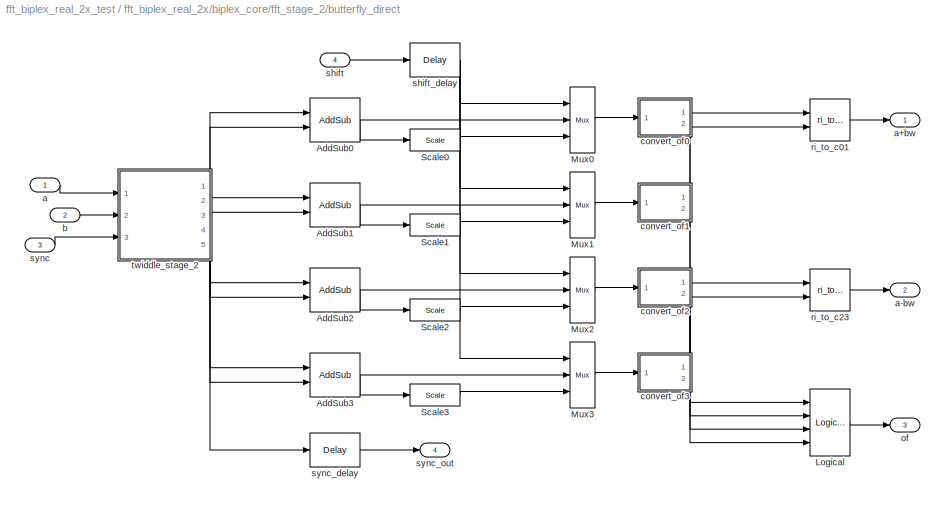
BLOCK [SubSystem] fft_biplex_real_2x/biplex_core/fft_stage_2/butterfly_direct
  AncestorBlock = casper_library_ffts/butterfly_direct
  AttributesFormatString = twiddle_stage_2\ncoeffs in slices
  FunctionWithSeparateData = off
  MaskDescription = FFT internal block.
  MaskEnableString = on,on,on,off,off,on,off,on,on,on,on,on,on,on,on,off,on,off,on,on
  MaskHideContents = off
  MaskIconFrame = on
  MaskIconOpaque = on
  MaskIconRotate = none
  MaskIconUnits = autoscale
  MaskPortRotate = default
  MaskSelfModifiable = on
  MaskToolTipString = on,on,on,on,on,on,on,on,on,on,on,on,on,on,on,on,on,on,on,on
  MaskTunableValueString = on,on,on,on,on,on,on,on,on,on,on,on,on,on,on,on,on,on,on,on
  MaskType = butterfly_direct
  MaskValueString = on|5|[0                                      1]|3|18|18|off|2|2|2|2|Round  (unbiased: +/- Inf)|Saturate|Virtex5|multipliers|off|off|on|off|off
  MaskVisibilityString = off,on,on,on,on,on,on,on,on,on,on,on,on,on,on,on,on,on,on,on
  MinAlgLoopOccurrences = off
  Opaque = off
  Ports = [4, 4]
  PropExecContextOutsideSubsystem = off
  RTWSystemCode = Auto
  RequestExecContextInheritance = off
  SID = 2037
  UserData = DataTag21
  UserDataPersistent = on
BLOCK [Reference] fft_biplex_real_2x/biplex_core/fft_stage_2/butterfly_direct/AddSub0  REF=xbsIndex_r4/AddSub
  Ports = [2, 1]
  SID = 145
  SourceBlock = xbsIndex_r4/AddSub
  SourceType = Xilinx Adder/Subtracter Block
  arith_type = Unsigned
  bin_pt = 14
  block_type = addsub
  block_version = 11.4
  dbl_ovrd = off
  en = off
  has_advanced_control = 0
  hw_selection = Fabric
  latency = 2
  mode = Addition
  n_bits = 16
  overflow = Wrap
  pipelined = off
  precision = Full
  quantization = Truncate
  sg_icon_stat = 50,44,2,1,white,blue,0,4922a24f,right,
  sggui_pos = -1,-1,-1,-1
  use_behavioral_HDL = on
  use_carryin = off
  use_carryout = off
  xl_area = [0,0,0,0,0,0,0]
  xl_use_area = off
BLOCK [Reference] fft_biplex_real_2x/biplex_core/fft_stage_2/butterfly_direct/AddSub1  REF=xbsIndex_r4/AddSub
  Ports = [2, 1]
  SID = 146
  SourceBlock = xbsIndex_r4/AddSub
  SourceType = Xilinx Adder/Subtracter Block
  arith_type = Unsigned
  bin_pt = 14
  block_type = addsub
  block_version = 11.4
  dbl_ovrd = off
  en = off
  has_advanced_control = 0
  hw_selection = Fabric
  latency = 2
  mode = Addition
  n_bits = 16
  overflow = Wrap
  pipelined = off
  precision = Full
  quantization = Truncate
  sg_icon_stat = 50,44,2,1,white,blue,0,4922a24f,right,
  sggui_pos = -1,-1,-1,-1
  use_behavioral_HDL = on
  use_carryin = off
  use_carryout = off
  xl_area = [0,0,0,0,0,0,0]
  xl_use_area = off
BLOCK [Reference] fft_biplex_real_2x/biplex_core/fft_stage_2/butterfly_direct/AddSub2  REF=xbsIndex_r4/AddSub
  Ports = [2, 1]
  SID = 147
  SourceBlock = xbsIndex_r4/AddSub
  SourceType = Xilinx Adder/Subtracter Block
  arith_type = Unsigned
  bin_pt = 14
  block_type = addsub
  block_version = 11.4
  dbl_ovrd = off
  en = off
  has_advanced_control = 0
  hw_selection = Fabric
  latency = 2
  mode = Subtraction
  n_bits = 16
  overflow = Wrap
  pipelined = off
  precision = Full
  quantization = Truncate
  sg_icon_stat = 50,44,2,1,white,blue,0,57a258cf,right,
  sggui_pos = -1,-1,-1,-1
  use_behavioral_HDL = on
  use_carryin = off
  use_carryout = off
  xl_area = [0,0,0,0,0,0,0]
  xl_use_area = off
BLOCK [Reference] fft_biplex_real_2x/biplex_core/fft_stage_2/butterfly_direct/AddSub3  REF=xbsIndex_r4/AddSub
  Ports = [2, 1]
  SID = 148
  SourceBlock = xbsIndex_r4/AddSub
  SourceType = Xilinx Adder/Subtracter Block
  arith_type = Unsigned
  bin_pt = 14
  block_type = addsub
  block_version = 11.4
  dbl_ovrd = off
  en = off
  has_advanced_control = 0
  hw_selection = Fabric
  latency = 2
  mode = Subtraction
  n_bits = 16
  overflow = Wrap
  pipelined = off
  precision = Full
  quantization = Truncate
  sg_icon_stat = 50,44,2,1,white,blue,0,57a258cf,right,
  sggui_pos = -1,-1,-1,-1
  use_behavioral_HDL = on
  use_carryin = off
  use_carryout = off
  xl_area = [0,0,0,0,0,0,0]
  xl_use_area = off
BLOCK [Reference] fft_biplex_real_2x/biplex_core/fft_stage_2/butterfly_direct/Logical  REF=xbsIndex_r4/Logical
  Ports = [4, 1]
  SID = 53
  SourceBlock = xbsIndex_r4/Logical
  SourceType = Xilinx Logical Block Block
  align_bp = on
  arith_type = Unsigned
  bin_pt = 0
  block_type = logical
  block_version = 11.4
  dbl_ovrd = off
  en = off
  has_advanced_control = 0
  inputs = 4
  latency = 0
  logical_function = OR
  n_bits = 16
  precision = Full
  sg_icon_stat = 40,67,4,1,white,blue,0,96d3e8c1,right,
  sggui_pos = -1,-1,-1,-1
  xl_area = [0,0,0,0,0,0,0]
  xl_use_area = off
BLOCK [Reference] fft_biplex_real_2x/biplex_core/fft_stage_2/butterfly_direct/Mux0  REF=xbsIndex_r4/Mux
  Ports = [3, 1]
  SID = 129
  SourceBlock = xbsIndex_r4/Mux
  SourceType = Xilinx Bus Multiplexer Block
  arith_type = Unsigned
  bin_pt = 14
  block_type = mux
  block_version = 11.4
  dbl_ovrd = off
  en = off
  has_advanced_control = 0
  inputs = 2
  latency = 1
  n_bits = 16
  overflow = Wrap
  precision = Full
  quantization = Truncate
  sg_icon_stat = 25,66,3,1,white,blue,3,a150fb03,right,
  sggui_pos = -1,-1,-1,-1
  xl_area = [0,0,0,0,0,0,0]
  xl_use_area = off
BLOCK [Reference] fft_biplex_real_2x/biplex_core/fft_stage_2/butterfly_direct/Mux1  REF=xbsIndex_r4/Mux
  Ports = [3, 1]
  SID = 130
  SourceBlock = xbsIndex_r4/Mux
  SourceType = Xilinx Bus Multiplexer Block
  arith_type = Unsigned
  bin_pt = 14
  block_type = mux
  block_version = 11.4
  dbl_ovrd = off
  en = off
  has_advanced_control = 0
  inputs = 2
  latency = 1
  n_bits = 16
  overflow = Wrap
  precision = Full
  quantization = Truncate
  sg_icon_stat = 25,66,3,1,white,blue,3,a150fb03,right,
  sggui_pos = -1,-1,-1,-1
  xl_area = [0,0,0,0,0,0,0]
  xl_use_area = off
BLOCK [Reference] fft_biplex_real_2x/biplex_core/fft_stage_2/butterfly_direct/Mux2  REF=xbsIndex_r4/Mux
  Ports = [3, 1]
  SID = 131
  SourceBlock = xbsIndex_r4/Mux
  SourceType = Xilinx Bus Multiplexer Block
  arith_type = Unsigned
  bin_pt = 14
  block_type = mux
  block_version = 11.4
  dbl_ovrd = off
  en = off
  has_advanced_control = 0
  inputs = 2
  latency = 1
  n_bits = 16
  overflow = Wrap
  precision = Full
  quantization = Truncate
  sg_icon_stat = 25,66,3,1,white,blue,3,a150fb03,right,
  sggui_pos = -1,-1,-1,-1
  xl_area = [0,0,0,0,0,0,0]
  xl_use_area = off
BLOCK [Reference] fft_biplex_real_2x/biplex_core/fft_stage_2/butterfly_direct/Mux3  REF=xbsIndex_r4/Mux
  Ports = [3, 1]
  SID = 132
  SourceBlock = xbsIndex_r4/Mux
  SourceType = Xilinx Bus Multiplexer Block
  arith_type = Unsigned
  bin_pt = 14
  block_type = mux
  block_version = 11.4
  dbl_ovrd = off
  en = off
  has_advanced_control = 0
  inputs = 2
  latency = 1
  n_bits = 16
  overflow = Wrap
  precision = Full
  quantization = Truncate
  sg_icon_stat = 25,66,3,1,white,blue,3,a150fb03,right,
  sggui_pos = -1,-1,-1,-1
  xl_area = [0,0,0,0,0,0,0]
  xl_use_area = off
BLOCK [Reference] fft_biplex_real_2x/biplex_core/fft_stage_2/butterfly_direct/Scale0  REF=xbsIndex_r4/Scale
  Ports = [1, 1]
  SID = 125
  SourceBlock = xbsIndex_r4/Scale
  SourceType = Xilinx Input Scaler Block
  block_type = scale
  block_version = 11.4
  dbl_ovrd = off
  has_advanced_control = 0
  infoedit = Scales input by a power of two by adjusting the binary point position.<br><br>Hardware notes: In hardware this block costs nothing.
  scale_factor = -1
  sg_icon_stat = 50,22,1,1,white,blue,0,315b7d78,right,
  sggui_pos = -1,-1,-1,-1
BLOCK [Reference] fft_biplex_real_2x/biplex_core/fft_stage_2/butterfly_direct/Scale1  REF=xbsIndex_r4/Scale
  Ports = [1, 1]
  SID = 126
  SourceBlock = xbsIndex_r4/Scale
  SourceType = Xilinx Input Scaler Block
  block_type = scale
  block_version = 11.4
  dbl_ovrd = off
  has_advanced_control = 0
  infoedit = Scales input by a power of two by adjusting the binary point position.<br><br>Hardware notes: In hardware this block costs nothing.
  scale_factor = -1
  sg_icon_stat = 50,22,1,1,white,blue,0,315b7d78,right,
  sggui_pos = -1,-1,-1,-1
BLOCK [Reference] fft_biplex_real_2x/biplex_core/fft_stage_2/butterfly_direct/Scale2  REF=xbsIndex_r4/Scale
  Ports = [1, 1]
  SID = 127
  SourceBlock = xbsIndex_r4/Scale
  SourceType = Xilinx Input Scaler Block
  block_type = scale
  block_version = 11.4
  dbl_ovrd = off
  has_advanced_control = 0
  infoedit = Scales input by a power of two by adjusting the binary point position.<br><br>Hardware notes: In hardware this block costs nothing.
  scale_factor = -1
  sg_icon_stat = 50,22,1,1,white,blue,0,315b7d78,right,
  sggui_pos = -1,-1,-1,-1
BLOCK [Reference] fft_biplex_real_2x/biplex_core/fft_stage_2/butterfly_direct/Scale3  REF=xbsIndex_r4/Scale
  Ports = [1, 1]
  SID = 128
  SourceBlock = xbsIndex_r4/Scale
  SourceType = Xilinx Input Scaler Block
  block_type = scale
  block_version = 11.4
  dbl_ovrd = off
  has_advanced_control = 0
  infoedit = Scales input by a power of two by adjusting the binary point position.<br><br>Hardware notes: In hardware this block costs nothing.
  scale_factor = -1
  sg_icon_stat = 50,22,1,1,white,blue,0,315b7d78,right,
  sggui_pos = -1,-1,-1,-1
BLOCK [Inport] fft_biplex_real_2x/biplex_core/fft_stage_2/butterfly_direct/a
  IconDisplay = Port number
  OutDataType = sfix(16)
  OutScaling = 2^0
  SID = 1
BLOCK [Outport] fft_biplex_real_2x/biplex_core/fft_stage_2/butterfly_direct/a+bw
  IconDisplay = Port number
  OutDataType = sfix(16)
  OutScaling = 2^0
  SID = 27
BLOCK [Outport] fft_biplex_real_2x/biplex_core/fft_stage_2/butterfly_direct/a-bw
  IconDisplay = Port number
  OutDataType = sfix(16)
  OutScaling = 2^0
  Port = 2
  SID = 28
BLOCK [Inport] fft_biplex_real_2x/biplex_core/fft_stage_2/butterfly_direct/b
  IconDisplay = Port number
  OutDataType = sfix(16)
  OutScaling = 2^0
  Port = 2
  SID = 2
BLOCK [SubSystem] fft_biplex_real_2x/biplex_core/fft_stage_2/butterfly_direct/convert_of0
  AncestorBlock = casper_library_misc/convert_of
  AttributesFormatString = [20,18]->[18,17]
  FunctionWithSeparateData = off
  MaskCallbackString = ||||||
  MaskDescription = Converts from one 2's complement bit-width \nand/or binary point position to another. \nIncludes underflow/overflow indicator.
  MaskEnableString = on,on,on,on,on,on,on
  MaskHideContents = off
  MaskIconFrame = on
  MaskIconOpaque = on
  MaskIconRotate = none
  MaskIconUnits = autoscale
  MaskPortRotate = default
  MaskPromptString = Bit Width In|Binary Point In|Bit Width Out|Binary Point Out|Latency|Overflow Behaviour|Quantization Behaviour
  MaskStyleString = edit,edit,edit,edit,edit,popup(Wrap|Saturate|Error),popup(Truncate|Round  (unbiased: +/- Inf)|Round  (unbiased: even values))
  MaskToolTipString = on,on,on,on,on,on,on
  MaskTunableValueString = on,on,on,on,on,on,on
  MaskType = convert_of
  MaskValueString = 20|18|18|17|2|Saturate|Round  (unbiased: +/- Inf)
  MaskVariables = bit_width_i=@1;binary_point_i=@2;bit_width_o=@3;binary_point_o=@4;latency=@5;overflow=&6;quantization=&7;
  MaskVisibilityString = on,on,on,on,on,on,on
  MinAlgLoopOccurrences = off
  Opaque = off
  Ports = [1, 2]
  PropExecContextOutsideSubsystem = off
  RTWSystemCode = Auto
  RequestExecContextInheritance = off
  SID = 47
  UserData = DataTag22
  UserDataPersistent = on
BLOCK [Reference] fft_biplex_real_2x/biplex_core/fft_stage_2/butterfly_direct/convert_of0/all_0s  REF=xbsIndex_r4/Logical
  Ports = [2, 1]
  SID = 69
  SourceBlock = xbsIndex_r4/Logical
  SourceType = Xilinx Logical Block Block
  align_bp = on
  arith_type = Unsigned
  bin_pt = 0
  block_type = logical
  block_version = 10.1.3
  dbl_ovrd = off
  en = off
  has_advanced_control = 0
  inputs = 2
  latency = latency
  logical_function = NAND
  n_bits = 16
  precision = Full
  sg_icon_stat = 45,40,2,1,white,blue,0,8ff56bdf,right,
  sggui_pos = 20,20,348,261
  xl_area = [0,0,0,0,0,0,0]
  xl_use_area = off
BLOCK [Reference] fft_biplex_real_2x/biplex_core/fft_stage_2/butterfly_direct/convert_of0/all_1s  REF=xbsIndex_r4/Logical
  Ports = [2, 1]
  SID = 70
  SourceBlock = xbsIndex_r4/Logical
  SourceType = Xilinx Logical Block Block
  align_bp = on
  arith_type = Unsigned
  bin_pt = 0
  block_type = logical
  block_version = 10.1.3
  dbl_ovrd = off
  en = off
  has_advanced_control = 0
  inputs = 2
  latency = latency
  logical_function = NAND
  n_bits = 16
  precision = Full
  sg_icon_stat = 45,40,2,1,white,blue,0,8ff56bdf,right,
  sggui_pos = -1,-1,-1,-1
  xl_area = [0,0,0,0,0,0,0]
  xl_use_area = off
BLOCK [Reference] fft_biplex_real_2x/biplex_core/fft_stage_2/butterfly_direct/convert_of0/and  REF=xbsIndex_r4/Logical
  Ports = [2, 1]
  SID = 71
  SourceBlock = xbsIndex_r4/Logical
  SourceType = Xilinx Logical Block Block
  align_bp = on
  arith_type = Unsigned
  bin_pt = 0
  block_type = logical
  block_version = 10.1.3
  dbl_ovrd = off
  en = off
  has_advanced_control = 0
  inputs = 2
  latency = 0
  logical_function = AND
  n_bits = 16
  precision = Full
  sg_icon_stat = 40,35,2,1,white,blue,0,0a851f85,right,
  sggui_pos = -1,-1,-1,-1
  xl_area = [0,0,0,0,0,0,0]
  xl_use_area = off
BLOCK [Reference] fft_biplex_real_2x/biplex_core/fft_stage_2/butterfly_direct/convert_of0/convert  REF=xbsIndex_r4/Convert
  Ports = [1, 1]
  SID = 72
  SourceBlock = xbsIndex_r4/Convert
  SourceType = Xilinx Type Converter Block
  arith_type = Signed  (2's comp)
  bin_pt = binary_point_o
  block_type = convert
  block_version = 10.1.1
  dbl_ovrd = off
  has_advanced_control = 0
  infoedit = Hardware notes: rounding and saturating require hardware resources; truncating and wrapping do not.
  latency = latency
  n_bits = bit_width_o
  overflow = Saturate
  pipeline = on
  quantization = Round  (unbiased: +/- Inf)
  sg_icon_stat = 45,30,1,1,white,blue,0,5129c5aa,right,
  sggui_pos = 20,20,538,377
  xl_area = [0,0,0,0,0,0,0]
  xl_use_area = off
BLOCK [Inport] fft_biplex_real_2x/biplex_core/fft_stage_2/butterfly_direct/convert_of0/din
  IconDisplay = Port number
  OutDataType = sfix(16)
  OutScaling = 2^0
  SID = 69
BLOCK [Outport] fft_biplex_real_2x/biplex_core/fft_stage_2/butterfly_direct/convert_of0/dout
  IconDisplay = Port number
  SID = 78
BLOCK [Reference] fft_biplex_real_2x/biplex_core/fft_stage_2/butterfly_direct/convert_of0/invert1  REF=xbsIndex_r4/Inverter
  Ports = [1, 1]
  SID = 73
  SourceBlock = xbsIndex_r4/Inverter
  SourceType = Xilinx Inverter Block
  block_type = inv
  block_version = 10.1.3
  dbl_ovrd = off
  en = off
  has_advanced_control = 0
  infoedit = Bitwise logical negation (one's complement) operator.
  latency = 0
  sg_icon_stat = 35,22,1,1,white,blue,0,267846e5,right,
  sggui_pos = -1,-1,-1,-1
  xl_area = [0,0,0,0,0,0,0]
  xl_use_area = off
BLOCK [Reference] fft_biplex_real_2x/biplex_core/fft_stage_2/butterfly_direct/convert_of0/invert2  REF=xbsIndex_r4/Inverter
  Ports = [1, 1]
  SID = 74
  SourceBlock = xbsIndex_r4/Inverter
  SourceType = Xilinx Inverter Block
  block_type = inv
  block_version = 10.1.3
  dbl_ovrd = off
  en = off
  has_advanced_control = 0
  infoedit = Bitwise logical negation (one's complement) operator.
  latency = 0
  sg_icon_stat = 35,22,1,1,white,blue,0,267846e5,right,
  sggui_pos = -1,-1,-1,-1
  xl_area = [0,0,0,0,0,0,0]
  xl_use_area = off
BLOCK [Outport] fft_biplex_real_2x/biplex_core/fft_stage_2/butterfly_direct/convert_of0/of
  IconDisplay = Port number
  Port = 2
  SID = 79
BLOCK [Reference] fft_biplex_real_2x/biplex_core/fft_stage_2/butterfly_direct/convert_of0/slice1  REF=xbsIndex_r4/Slice
  Ports = [1, 1]
  SID = 75
  SourceBlock = xbsIndex_r4/Slice
  SourceType = Xilinx Bit Slice Extractor Block
  base0 = LSB of Input
  base1 = MSB of Input
  bit0 = 0
  bit1 = 0
  block_type = slice
  block_version = 10.1.1
  boolean_output = on
  dbl_ovrd = off
  has_advanced_control = 0
  mode = Upper Bit Location + Width
  nbits = 1
  sg_icon_stat = 35,22,1,1,white,blue,0,1fd851a7,right,
  sggui_pos = -1,-1,-1,-1
BLOCK [Reference] fft_biplex_real_2x/biplex_core/fft_stage_2/butterfly_direct/convert_of0/slice2  REF=xbsIndex_r4/Slice
  Ports = [1, 1]
  SID = 76
  SourceBlock = xbsIndex_r4/Slice
  SourceType = Xilinx Bit Slice Extractor Block
  base0 = LSB of Input
  base1 = MSB of Input
  bit0 = 0
  bit1 = -1
  block_type = slice
  block_version = 10.1.1
  boolean_output = on
  dbl_ovrd = off
  has_advanced_control = 0
  mode = Upper Bit Location + Width
  nbits = 1
  sg_icon_stat = 35,22,1,1,white,blue,0,1fd851a7,right,
  sggui_pos = -1,-1,-1,-1
BLOCK [SubSystem] fft_biplex_real_2x/biplex_core/fft_stage_2/butterfly_direct/convert_of1
  AncestorBlock = casper_library_misc/convert_of
  AttributesFormatString = [20,18]->[18,17]
  FunctionWithSeparateData = off
  MaskCallbackString = ||||||
  MaskDescription = Converts from one 2's complement bit-width \nand/or binary point position to another. \nIncludes underflow/overflow indicator.
  MaskEnableString = on,on,on,on,on,on,on
  MaskHideContents = off
  MaskIconFrame = on
  MaskIconOpaque = on
  MaskIconRotate = none
  MaskIconUnits = autoscale
  MaskPortRotate = default
  MaskPromptString = Bit Width In|Binary Point In|Bit Width Out|Binary Point Out|Latency|Overflow Behaviour|Quantization Behaviour
  MaskStyleString = edit,edit,edit,edit,edit,popup(Wrap|Saturate|Error),popup(Truncate|Round  (unbiased: +/- Inf)|Round  (unbiased: even values))
  MaskToolTipString = on,on,on,on,on,on,on
  MaskTunableValueString = on,on,on,on,on,on,on
  MaskType = convert_of
  MaskValueString = 20|18|18|17|2|Saturate|Round  (unbiased: +/- Inf)
  MaskVariables = bit_width_i=@1;binary_point_i=@2;bit_width_o=@3;binary_point_o=@4;latency=@5;overflow=&6;quantization=&7;
  MaskVisibilityString = on,on,on,on,on,on,on
  MinAlgLoopOccurrences = off
  Opaque = off
  Ports = [1, 2]
  PropExecContextOutsideSubsystem = off
  RTWSystemCode = Auto
  RequestExecContextInheritance = off
  SID = 48
  UserData = DataTag23
  UserDataPersistent = on
BLOCK [Reference] fft_biplex_real_2x/biplex_core/fft_stage_2/butterfly_direct/convert_of1/all_0s  REF=xbsIndex_r4/Logical
  Ports = [2, 1]
  SID = 69
  SourceBlock = xbsIndex_r4/Logical
  SourceType = Xilinx Logical Block Block
  align_bp = on
  arith_type = Unsigned
  bin_pt = 0
  block_type = logical
  block_version = 10.1.3
  dbl_ovrd = off
  en = off
  has_advanced_control = 0
  inputs = 2
  latency = latency
  logical_function = NAND
  n_bits = 16
  precision = Full
  sg_icon_stat = 45,40,2,1,white,blue,0,8ff56bdf,right,
  sggui_pos = 20,20,348,261
  xl_area = [0,0,0,0,0,0,0]
  xl_use_area = off
BLOCK [Reference] fft_biplex_real_2x/biplex_core/fft_stage_2/butterfly_direct/convert_of1/all_1s  REF=xbsIndex_r4/Logical
  Ports = [2, 1]
  SID = 70
  SourceBlock = xbsIndex_r4/Logical
  SourceType = Xilinx Logical Block Block
  align_bp = on
  arith_type = Unsigned
  bin_pt = 0
  block_type = logical
  block_version = 10.1.3
  dbl_ovrd = off
  en = off
  has_advanced_control = 0
  inputs = 2
  latency = latency
  logical_function = NAND
  n_bits = 16
  precision = Full
  sg_icon_stat = 45,40,2,1,white,blue,0,8ff56bdf,right,
  sggui_pos = -1,-1,-1,-1
  xl_area = [0,0,0,0,0,0,0]
  xl_use_area = off
BLOCK [Reference] fft_biplex_real_2x/biplex_core/fft_stage_2/butterfly_direct/convert_of1/and  REF=xbsIndex_r4/Logical
  Ports = [2, 1]
  SID = 71
  SourceBlock = xbsIndex_r4/Logical
  SourceType = Xilinx Logical Block Block
  align_bp = on
  arith_type = Unsigned
  bin_pt = 0
  block_type = logical
  block_version = 10.1.3
  dbl_ovrd = off
  en = off
  has_advanced_control = 0
  inputs = 2
  latency = 0
  logical_function = AND
  n_bits = 16
  precision = Full
  sg_icon_stat = 40,35,2,1,white,blue,0,0a851f85,right,
  sggui_pos = -1,-1,-1,-1
  xl_area = [0,0,0,0,0,0,0]
  xl_use_area = off
BLOCK [Reference] fft_biplex_real_2x/biplex_core/fft_stage_2/butterfly_direct/convert_of1/convert  REF=xbsIndex_r4/Convert
  Ports = [1, 1]
  SID = 72
  SourceBlock = xbsIndex_r4/Convert
  SourceType = Xilinx Type Converter Block
  arith_type = Signed  (2's comp)
  bin_pt = binary_point_o
  block_type = convert
  block_version = 10.1.1
  dbl_ovrd = off
  has_advanced_control = 0
  infoedit = Hardware notes: rounding and saturating require hardware resources; truncating and wrapping do not.
  latency = latency
  n_bits = bit_width_o
  overflow = Saturate
  pipeline = on
  quantization = Round  (unbiased: +/- Inf)
  sg_icon_stat = 45,30,1,1,white,blue,0,5129c5aa,right,
  sggui_pos = 20,20,538,377
  xl_area = [0,0,0,0,0,0,0]
  xl_use_area = off
BLOCK [Inport] fft_biplex_real_2x/biplex_core/fft_stage_2/butterfly_direct/convert_of1/din
  IconDisplay = Port number
  OutDataType = sfix(16)
  OutScaling = 2^0
  SID = 69
BLOCK [Outport] fft_biplex_real_2x/biplex_core/fft_stage_2/butterfly_direct/convert_of1/dout
  IconDisplay = Port number
  SID = 78
BLOCK [Reference] fft_biplex_real_2x/biplex_core/fft_stage_2/butterfly_direct/convert_of1/invert1  REF=xbsIndex_r4/Inverter
  Ports = [1, 1]
  SID = 73
  SourceBlock = xbsIndex_r4/Inverter
  SourceType = Xilinx Inverter Block
  block_type = inv
  block_version = 10.1.3
  dbl_ovrd = off
  en = off
  has_advanced_control = 0
  infoedit = Bitwise logical negation (one's complement) operator.
  latency = 0
  sg_icon_stat = 35,22,1,1,white,blue,0,267846e5,right,
  sggui_pos = -1,-1,-1,-1
  xl_area = [0,0,0,0,0,0,0]
  xl_use_area = off
BLOCK [Reference] fft_biplex_real_2x/biplex_core/fft_stage_2/butterfly_direct/convert_of1/invert2  REF=xbsIndex_r4/Inverter
  Ports = [1, 1]
  SID = 74
  SourceBlock = xbsIndex_r4/Inverter
  SourceType = Xilinx Inverter Block
  block_type = inv
  block_version = 10.1.3
  dbl_ovrd = off
  en = off
  has_advanced_control = 0
  infoedit = Bitwise logical negation (one's complement) operator.
  latency = 0
  sg_icon_stat = 35,22,1,1,white,blue,0,267846e5,right,
  sggui_pos = -1,-1,-1,-1
  xl_area = [0,0,0,0,0,0,0]
  xl_use_area = off
BLOCK [Outport] fft_biplex_real_2x/biplex_core/fft_stage_2/butterfly_direct/convert_of1/of
  IconDisplay = Port number
  Port = 2
  SID = 79
BLOCK [Reference] fft_biplex_real_2x/biplex_core/fft_stage_2/butterfly_direct/convert_of1/slice1  REF=xbsIndex_r4/Slice
  Ports = [1, 1]
  SID = 75
  SourceBlock = xbsIndex_r4/Slice
  SourceType = Xilinx Bit Slice Extractor Block
  base0 = LSB of Input
  base1 = MSB of Input
  bit0 = 0
  bit1 = 0
  block_type = slice
  block_version = 10.1.1
  boolean_output = on
  dbl_ovrd = off
  has_advanced_control = 0
  mode = Upper Bit Location + Width
  nbits = 1
  sg_icon_stat = 35,22,1,1,white,blue,0,1fd851a7,right,
  sggui_pos = -1,-1,-1,-1
BLOCK [Reference] fft_biplex_real_2x/biplex_core/fft_stage_2/butterfly_direct/convert_of1/slice2  REF=xbsIndex_r4/Slice
  Ports = [1, 1]
  SID = 76
  SourceBlock = xbsIndex_r4/Slice
  SourceType = Xilinx Bit Slice Extractor Block
  base0 = LSB of Input
  base1 = MSB of Input
  bit0 = 0
  bit1 = -1
  block_type = slice
  block_version = 10.1.1
  boolean_output = on
  dbl_ovrd = off
  has_advanced_control = 0
  mode = Upper Bit Location + Width
  nbits = 1
  sg_icon_stat = 35,22,1,1,white,blue,0,1fd851a7,right,
  sggui_pos = -1,-1,-1,-1
BLOCK [SubSystem] fft_biplex_real_2x/biplex_core/fft_stage_2/butterfly_direct/convert_of2
  AncestorBlock = casper_library_misc/convert_of
  AttributesFormatString = [20,18]->[18,17]
  FunctionWithSeparateData = off
  MaskCallbackString = ||||||
  MaskDescription = Converts from one 2's complement bit-width \nand/or binary point position to another. \nIncludes underflow/overflow indicator.
  MaskEnableString = on,on,on,on,on,on,on
  MaskHideContents = off
  MaskIconFrame = on
  MaskIconOpaque = on
  MaskIconRotate = none
  MaskIconUnits = autoscale
  MaskPortRotate = default
  MaskPromptString = Bit Width In|Binary Point In|Bit Width Out|Binary Point Out|Latency|Overflow Behaviour|Quantization Behaviour
  MaskStyleString = edit,edit,edit,edit,edit,popup(Wrap|Saturate|Error),popup(Truncate|Round  (unbiased: +/- Inf)|Round  (unbiased: even values))
  MaskToolTipString = on,on,on,on,on,on,on
  MaskTunableValueString = on,on,on,on,on,on,on
  MaskType = convert_of
  MaskValueString = 20|18|18|17|2|Saturate|Round  (unbiased: +/- Inf)
  MaskVariables = bit_width_i=@1;binary_point_i=@2;bit_width_o=@3;binary_point_o=@4;latency=@5;overflow=&6;quantization=&7;
  MaskVisibilityString = on,on,on,on,on,on,on
  MinAlgLoopOccurrences = off
  Opaque = off
  Ports = [1, 2]
  PropExecContextOutsideSubsystem = off
  RTWSystemCode = Auto
  RequestExecContextInheritance = off
  SID = 49
  UserData = DataTag24
  UserDataPersistent = on
BLOCK [Reference] fft_biplex_real_2x/biplex_core/fft_stage_2/butterfly_direct/convert_of2/all_0s  REF=xbsIndex_r4/Logical
  Ports = [2, 1]
  SID = 69
  SourceBlock = xbsIndex_r4/Logical
  SourceType = Xilinx Logical Block Block
  align_bp = on
  arith_type = Unsigned
  bin_pt = 0
  block_type = logical
  block_version = 10.1.3
  dbl_ovrd = off
  en = off
  has_advanced_control = 0
  inputs = 2
  latency = latency
  logical_function = NAND
  n_bits = 16
  precision = Full
  sg_icon_stat = 45,40,2,1,white,blue,0,8ff56bdf,right,
  sggui_pos = 20,20,348,261
  xl_area = [0,0,0,0,0,0,0]
  xl_use_area = off
BLOCK [Reference] fft_biplex_real_2x/biplex_core/fft_stage_2/butterfly_direct/convert_of2/all_1s  REF=xbsIndex_r4/Logical
  Ports = [2, 1]
  SID = 70
  SourceBlock = xbsIndex_r4/Logical
  SourceType = Xilinx Logical Block Block
  align_bp = on
  arith_type = Unsigned
  bin_pt = 0
  block_type = logical
  block_version = 10.1.3
  dbl_ovrd = off
  en = off
  has_advanced_control = 0
  inputs = 2
  latency = latency
  logical_function = NAND
  n_bits = 16
  precision = Full
  sg_icon_stat = 45,40,2,1,white,blue,0,8ff56bdf,right,
  sggui_pos = -1,-1,-1,-1
  xl_area = [0,0,0,0,0,0,0]
  xl_use_area = off
BLOCK [Reference] fft_biplex_real_2x/biplex_core/fft_stage_2/butterfly_direct/convert_of2/and  REF=xbsIndex_r4/Logical
  Ports = [2, 1]
  SID = 71
  SourceBlock = xbsIndex_r4/Logical
  SourceType = Xilinx Logical Block Block
  align_bp = on
  arith_type = Unsigned
  bin_pt = 0
  block_type = logical
  block_version = 10.1.3
  dbl_ovrd = off
  en = off
  has_advanced_control = 0
  inputs = 2
  latency = 0
  logical_function = AND
  n_bits = 16
  precision = Full
  sg_icon_stat = 40,35,2,1,white,blue,0,0a851f85,right,
  sggui_pos = -1,-1,-1,-1
  xl_area = [0,0,0,0,0,0,0]
  xl_use_area = off
BLOCK [Reference] fft_biplex_real_2x/biplex_core/fft_stage_2/butterfly_direct/convert_of2/convert  REF=xbsIndex_r4/Convert
  Ports = [1, 1]
  SID = 72
  SourceBlock = xbsIndex_r4/Convert
  SourceType = Xilinx Type Converter Block
  arith_type = Signed  (2's comp)
  bin_pt = binary_point_o
  block_type = convert
  block_version = 10.1.1
  dbl_ovrd = off
  has_advanced_control = 0
  infoedit = Hardware notes: rounding and saturating require hardware resources; truncating and wrapping do not.
  latency = latency
  n_bits = bit_width_o
  overflow = Saturate
  pipeline = on
  quantization = Round  (unbiased: +/- Inf)
  sg_icon_stat = 45,30,1,1,white,blue,0,5129c5aa,right,
  sggui_pos = 20,20,538,377
  xl_area = [0,0,0,0,0,0,0]
  xl_use_area = off
BLOCK [Inport] fft_biplex_real_2x/biplex_core/fft_stage_2/butterfly_direct/convert_of2/din
  IconDisplay = Port number
  OutDataType = sfix(16)
  OutScaling = 2^0
  SID = 69
BLOCK [Outport] fft_biplex_real_2x/biplex_core/fft_stage_2/butterfly_direct/convert_of2/dout
  IconDisplay = Port number
  SID = 78
BLOCK [Reference] fft_biplex_real_2x/biplex_core/fft_stage_2/butterfly_direct/convert_of2/invert1  REF=xbsIndex_r4/Inverter
  Ports = [1, 1]
  SID = 73
  SourceBlock = xbsIndex_r4/Inverter
  SourceType = Xilinx Inverter Block
  block_type = inv
  block_version = 10.1.3
  dbl_ovrd = off
  en = off
  has_advanced_control = 0
  infoedit = Bitwise logical negation (one's complement) operator.
  latency = 0
  sg_icon_stat = 35,22,1,1,white,blue,0,267846e5,right,
  sggui_pos = -1,-1,-1,-1
  xl_area = [0,0,0,0,0,0,0]
  xl_use_area = off
BLOCK [Reference] fft_biplex_real_2x/biplex_core/fft_stage_2/butterfly_direct/convert_of2/invert2  REF=xbsIndex_r4/Inverter
  Ports = [1, 1]
  SID = 74
  SourceBlock = xbsIndex_r4/Inverter
  SourceType = Xilinx Inverter Block
  block_type = inv
  block_version = 10.1.3
  dbl_ovrd = off
  en = off
  has_advanced_control = 0
  infoedit = Bitwise logical negation (one's complement) operator.
  latency = 0
  sg_icon_stat = 35,22,1,1,white,blue,0,267846e5,right,
  sggui_pos = -1,-1,-1,-1
  xl_area = [0,0,0,0,0,0,0]
  xl_use_area = off
BLOCK [Outport] fft_biplex_real_2x/biplex_core/fft_stage_2/butterfly_direct/convert_of2/of
  IconDisplay = Port number
  Port = 2
  SID = 79
BLOCK [Reference] fft_biplex_real_2x/biplex_core/fft_stage_2/butterfly_direct/convert_of2/slice1  REF=xbsIndex_r4/Slice
  Ports = [1, 1]
  SID = 75
  SourceBlock = xbsIndex_r4/Slice
  SourceType = Xilinx Bit Slice Extractor Block
  base0 = LSB of Input
  base1 = MSB of Input
  bit0 = 0
  bit1 = 0
  block_type = slice
  block_version = 10.1.1
  boolean_output = on
  dbl_ovrd = off
  has_advanced_control = 0
  mode = Upper Bit Location + Width
  nbits = 1
  sg_icon_stat = 35,22,1,1,white,blue,0,1fd851a7,right,
  sggui_pos = -1,-1,-1,-1
BLOCK [Reference] fft_biplex_real_2x/biplex_core/fft_stage_2/butterfly_direct/convert_of2/slice2  REF=xbsIndex_r4/Slice
  Ports = [1, 1]
  SID = 76
  SourceBlock = xbsIndex_r4/Slice
  SourceType = Xilinx Bit Slice Extractor Block
  base0 = LSB of Input
  base1 = MSB of Input
  bit0 = 0
  bit1 = -1
  block_type = slice
  block_version = 10.1.1
  boolean_output = on
  dbl_ovrd = off
  has_advanced_control = 0
  mode = Upper Bit Location + Width
  nbits = 1
  sg_icon_stat = 35,22,1,1,white,blue,0,1fd851a7,right,
  sggui_pos = -1,-1,-1,-1
BLOCK [SubSystem] fft_biplex_real_2x/biplex_core/fft_stage_2/butterfly_direct/convert_of3
  AncestorBlock = casper_library_misc/convert_of
  AttributesFormatString = [20,18]->[18,17]
  FunctionWithSeparateData = off
  MaskCallbackString = ||||||
  MaskDescription = Converts from one 2's complement bit-width \nand/or binary point position to another. \nIncludes underflow/overflow indicator.
  MaskEnableString = on,on,on,on,on,on,on
  MaskHideContents = off
  MaskIconFrame = on
  MaskIconOpaque = on
  MaskIconRotate = none
  MaskIconUnits = autoscale
  MaskPortRotate = default
  MaskPromptString = Bit Width In|Binary Point In|Bit Width Out|Binary Point Out|Latency|Overflow Behaviour|Quantization Behaviour
  MaskStyleString = edit,edit,edit,edit,edit,popup(Wrap|Saturate|Error),popup(Truncate|Round  (unbiased: +/- Inf)|Round  (unbiased: even values))
  MaskToolTipString = on,on,on,on,on,on,on
  MaskTunableValueString = on,on,on,on,on,on,on
  MaskType = convert_of
  MaskValueString = 20|18|18|17|2|Saturate|Round  (unbiased: +/- Inf)
  MaskVariables = bit_width_i=@1;binary_point_i=@2;bit_width_o=@3;binary_point_o=@4;latency=@5;overflow=&6;quantization=&7;
  MaskVisibilityString = on,on,on,on,on,on,on
  MinAlgLoopOccurrences = off
  Opaque = off
  Ports = [1, 2]
  PropExecContextOutsideSubsystem = off
  RTWSystemCode = Auto
  RequestExecContextInheritance = off
  SID = 50
  UserData = DataTag25
  UserDataPersistent = on
BLOCK [Reference] fft_biplex_real_2x/biplex_core/fft_stage_2/butterfly_direct/convert_of3/all_0s  REF=xbsIndex_r4/Logical
  Ports = [2, 1]
  SID = 69
  SourceBlock = xbsIndex_r4/Logical
  SourceType = Xilinx Logical Block Block
  align_bp = on
  arith_type = Unsigned
  bin_pt = 0
  block_type = logical
  block_version = 10.1.3
  dbl_ovrd = off
  en = off
  has_advanced_control = 0
  inputs = 2
  latency = latency
  logical_function = NAND
  n_bits = 16
  precision = Full
  sg_icon_stat = 45,40,2,1,white,blue,0,8ff56bdf,right,
  sggui_pos = 20,20,348,261
  xl_area = [0,0,0,0,0,0,0]
  xl_use_area = off
BLOCK [Reference] fft_biplex_real_2x/biplex_core/fft_stage_2/butterfly_direct/convert_of3/all_1s  REF=xbsIndex_r4/Logical
  Ports = [2, 1]
  SID = 70
  SourceBlock = xbsIndex_r4/Logical
  SourceType = Xilinx Logical Block Block
  align_bp = on
  arith_type = Unsigned
  bin_pt = 0
  block_type = logical
  block_version = 10.1.3
  dbl_ovrd = off
  en = off
  has_advanced_control = 0
  inputs = 2
  latency = latency
  logical_function = NAND
  n_bits = 16
  precision = Full
  sg_icon_stat = 45,40,2,1,white,blue,0,8ff56bdf,right,
  sggui_pos = -1,-1,-1,-1
  xl_area = [0,0,0,0,0,0,0]
  xl_use_area = off
BLOCK [Reference] fft_biplex_real_2x/biplex_core/fft_stage_2/butterfly_direct/convert_of3/and  REF=xbsIndex_r4/Logical
  Ports = [2, 1]
  SID = 71
  SourceBlock = xbsIndex_r4/Logical
  SourceType = Xilinx Logical Block Block
  align_bp = on
  arith_type = Unsigned
  bin_pt = 0
  block_type = logical
  block_version = 10.1.3
  dbl_ovrd = off
  en = off
  has_advanced_control = 0
  inputs = 2
  latency = 0
  logical_function = AND
  n_bits = 16
  precision = Full
  sg_icon_stat = 40,35,2,1,white,blue,0,0a851f85,right,
  sggui_pos = -1,-1,-1,-1
  xl_area = [0,0,0,0,0,0,0]
  xl_use_area = off
BLOCK [Reference] fft_biplex_real_2x/biplex_core/fft_stage_2/butterfly_direct/convert_of3/convert  REF=xbsIndex_r4/Convert
  Ports = [1, 1]
  SID = 72
  SourceBlock = xbsIndex_r4/Convert
  SourceType = Xilinx Type Converter Block
  arith_type = Signed  (2's comp)
  bin_pt = binary_point_o
  block_type = convert
  block_version = 10.1.1
  dbl_ovrd = off
  has_advanced_control = 0
  infoedit = Hardware notes: rounding and saturating require hardware resources; truncating and wrapping do not.
  latency = latency
  n_bits = bit_width_o
  overflow = Saturate
  pipeline = on
  quantization = Round  (unbiased: +/- Inf)
  sg_icon_stat = 45,30,1,1,white,blue,0,5129c5aa,right,
  sggui_pos = 20,20,538,377
  xl_area = [0,0,0,0,0,0,0]
  xl_use_area = off
BLOCK [Inport] fft_biplex_real_2x/biplex_core/fft_stage_2/butterfly_direct/convert_of3/din
  IconDisplay = Port number
  OutDataType = sfix(16)
  OutScaling = 2^0
  SID = 69
BLOCK [Outport] fft_biplex_real_2x/biplex_core/fft_stage_2/butterfly_direct/convert_of3/dout
  IconDisplay = Port number
  SID = 78
BLOCK [Reference] fft_biplex_real_2x/biplex_core/fft_stage_2/butterfly_direct/convert_of3/invert1  REF=xbsIndex_r4/Inverter
  Ports = [1, 1]
  SID = 73
  SourceBlock = xbsIndex_r4/Inverter
  SourceType = Xilinx Inverter Block
  block_type = inv
  block_version = 10.1.3
  dbl_ovrd = off
  en = off
  has_advanced_control = 0
  infoedit = Bitwise logical negation (one's complement) operator.
  latency = 0
  sg_icon_stat = 35,22,1,1,white,blue,0,267846e5,right,
  sggui_pos = -1,-1,-1,-1
  xl_area = [0,0,0,0,0,0,0]
  xl_use_area = off
BLOCK [Reference] fft_biplex_real_2x/biplex_core/fft_stage_2/butterfly_direct/convert_of3/invert2  REF=xbsIndex_r4/Inverter
  Ports = [1, 1]
  SID = 74
  SourceBlock = xbsIndex_r4/Inverter
  SourceType = Xilinx Inverter Block
  block_type = inv
  block_version = 10.1.3
  dbl_ovrd = off
  en = off
  has_advanced_control = 0
  infoedit = Bitwise logical negation (one's complement) operator.
  latency = 0
  sg_icon_stat = 35,22,1,1,white,blue,0,267846e5,right,
  sggui_pos = -1,-1,-1,-1
  xl_area = [0,0,0,0,0,0,0]
  xl_use_area = off
BLOCK [Outport] fft_biplex_real_2x/biplex_core/fft_stage_2/butterfly_direct/convert_of3/of
  IconDisplay = Port number
  Port = 2
  SID = 79
BLOCK [Reference] fft_biplex_real_2x/biplex_core/fft_stage_2/butterfly_direct/convert_of3/slice1  REF=xbsIndex_r4/Slice
  Ports = [1, 1]
  SID = 75
  SourceBlock = xbsIndex_r4/Slice
  SourceType = Xilinx Bit Slice Extractor Block
  base0 = LSB of Input
  base1 = MSB of Input
  bit0 = 0
  bit1 = 0
  block_type = slice
  block_version = 10.1.1
  boolean_output = on
  dbl_ovrd = off
  has_advanced_control = 0
  mode = Upper Bit Location + Width
  nbits = 1
  sg_icon_stat = 35,22,1,1,white,blue,0,1fd851a7,right,
  sggui_pos = -1,-1,-1,-1
BLOCK [Reference] fft_biplex_real_2x/biplex_core/fft_stage_2/butterfly_direct/convert_of3/slice2  REF=xbsIndex_r4/Slice
  Ports = [1, 1]
  SID = 76
  SourceBlock = xbsIndex_r4/Slice
  SourceType = Xilinx Bit Slice Extractor Block
  base0 = LSB of Input
  base1 = MSB of Input
  bit0 = 0
  bit1 = -1
  block_type = slice
  block_version = 10.1.1
  boolean_output = on
  dbl_ovrd = off
  has_advanced_control = 0
  mode = Upper Bit Location + Width
  nbits = 1
  sg_icon_stat = 35,22,1,1,white,blue,0,1fd851a7,right,
  sggui_pos = -1,-1,-1,-1
BLOCK [Outport] fft_biplex_real_2x/biplex_core/fft_stage_2/butterfly_direct/of
  IconDisplay = Port number
  OutDataType = sfix(16)
  OutScaling = 2^0
  Port = 3
  SID = 29
BLOCK [Reference] fft_biplex_real_2x/biplex_core/fft_stage_2/butterfly_direct/ri_to_c01  REF=casper_library_misc/ri_to_c  (lib defined in mdl_357510c33b49, mdl_57b5f564ae26, +4 more)
  FunctionWithSeparateData = off
  Ports = [2, 1]
  RTWMemSecDataConstants = Inherit from model
  RTWMemSecDataInternal = Inherit from model
  RTWMemSecDataParameters = Inherit from model
  RTWMemSecFuncExecute = Inherit from model
  RTWMemSecFuncInitTerm = Inherit from model
  SID = 51
  ShowPortLabels = FromPortIcon
  SourceBlock = casper_library_misc/ri_to_c
  SourceType = ri_to_c
  SystemSampleTime = -1
  UserData = DataTag26
  UserDataPersistent = on
BLOCK [Reference] fft_biplex_real_2x/biplex_core/fft_stage_2/butterfly_direct/ri_to_c23  REF=casper_library_misc/ri_to_c  (lib defined in mdl_357510c33b49, mdl_57b5f564ae26, +4 more)
  FunctionWithSeparateData = off
  Ports = [2, 1]
  RTWMemSecDataConstants = Inherit from model
  RTWMemSecDataInternal = Inherit from model
  RTWMemSecDataParameters = Inherit from model
  RTWMemSecFuncExecute = Inherit from model
  RTWMemSecFuncInitTerm = Inherit from model
  SID = 52
  ShowPortLabels = FromPortIcon
  SourceBlock = casper_library_misc/ri_to_c
  SourceType = ri_to_c
  SystemSampleTime = -1
  UserData = DataTag27
  UserDataPersistent = on
BLOCK [Inport] fft_biplex_real_2x/biplex_core/fft_stage_2/butterfly_direct/shift
  IconDisplay = Port number
  OutDataType = sfix(16)
  OutScaling = 2^0
  Port = 4
  SID = 4
BLOCK [Reference] fft_biplex_real_2x/biplex_core/fft_stage_2/butterfly_direct/shift_delay  REF=xbsIndex_r4/Delay
  Ports = [1, 1]
  SID = 124
  SourceBlock = xbsIndex_r4/Delay
  SourceType = Xilinx Delay Block
  block_type = delay
  block_version = 11.4
  dbl_ovrd = off
  en = off
  has_advanced_control = 0
  infoedit = Hardware notes: A delay line is a chain, each link of which is an SRL16 followed by a flip-flop.
  latency = 2
  reg_retiming = off
  sg_icon_stat = 50,34,1,1,white,blue,0,85ce9542,right,
  sggui_pos = -1,-1,-1,-1
  xl_area = [0,0,0,0,0,0,0]
  xl_use_area = off
BLOCK [Inport] fft_biplex_real_2x/biplex_core/fft_stage_2/butterfly_direct/sync
  IconDisplay = Port number
  OutDataType = sfix(16)
  OutScaling = 2^0
  Port = 3
  SID = 3
BLOCK [Reference] fft_biplex_real_2x/biplex_core/fft_stage_2/butterfly_direct/sync_delay  REF=xbsIndex_r4/Delay
  Ports = [1, 1]
  SID = 38
  SourceBlock = xbsIndex_r4/Delay
  SourceType = Xilinx Delay Block
  block_type = delay
  block_version = 11.4
  dbl_ovrd = off
  en = off
  has_advanced_control = 0
  infoedit = Hardware notes: A delay line is a chain, each link of which is an SRL16 followed by a flip-flop.
  latency = 5
  reg_retiming = on
  sg_icon_stat = 50,34,1,1,white,blue,0,ec356abf,right,
  sggui_pos = -1,-1,-1,-1
  xl_area = [0,0,0,0,0,0,0]
  xl_use_area = off
BLOCK [Outport] fft_biplex_real_2x/biplex_core/fft_stage_2/butterfly_direct/sync_out
  IconDisplay = Port number
  Port = 4
  SID = 31
BLOCK [SubSystem] fft_biplex_real_2x/biplex_core/fft_stage_2/butterfly_direct/twiddle_stage_2
  AncestorBlock = casper_library_ffts_twiddle/twiddle_stage_2
  FunctionWithSeparateData = off
  MaskCallbackString = ||||||
  MaskDescription = Used in FFT library. Used when coefficients \nare 2^0 i.e just pass data through without delays
  MaskEnableString = on,on,on,on,on,on,on
  MaskHideContents = off
  MaskIconFrame = on
  MaskIconOpaque = on
  MaskIconRotate = none
  MaskIconUnits = autoscale
  MaskInitialization = set_param(gcb,'LinkStatus','inactive');\nif(strcmp(opt_target, 'logic')), \n    lat = add_latency;\n    lat_str = 'add_latency';\nelse,\n    lat = add_latency*2;\n    lat_str = 'add_latency*2';\nend\nset_param([gcb,'/delay0'], 'latency', ...\n    ['bram_latency+mult_latency+conv_latency+',lat_str]);\nset_param([gcb,'/delay1'], 'latency', ...\n    ['bram_latency+mult_latency+conv_latency+',lat_str]...<+265ch>
  MaskPortRotate = default
  MaskPromptString = FFT Size (2^?)|Input Bit Width|Add Latency|Mult Latency|BRAM Latency|Convert latency|Use less
  MaskSelfModifiable = on
  MaskStyleString = edit,edit,edit,edit,edit,edit,popup(logic|multipliers)
  MaskToolTipString = on,on,on,on,on,on,on
  MaskTunableValueString = on,on,on,on,on,on,on
  MaskType = twiddle_pass_through
  MaskValueString = 5|18|2|2|2|2|multipliers
  MaskVariables = FFTSize=@1;input_bit_width=@2;add_latency=@3;mult_latency=@4;bram_latency=@5;conv_latency=@6;opt_target=&7;
  MaskVisibilityString = on,on,on,on,on,on,on
  MinAlgLoopOccurrences = off
  Opaque = off
  Ports = [3, 5]
  PropExecContextOutsideSubsystem = off
  RTWSystemCode = Auto
  RequestExecContextInheritance = off
  SID = 136
BLOCK [Inport] fft_biplex_real_2x/biplex_core/fft_stage_2/butterfly_direct/twiddle_stage_2/a
  IconDisplay = Port number
  OutDataType = sfix(16)
  OutScaling = 2^0
  SID = 1
BLOCK [Outport] fft_biplex_real_2x/biplex_core/fft_stage_2/butterfly_direct/twiddle_stage_2/a_im
  IconDisplay = Port number
  OutDataType = sfix(16)
  OutScaling = 2^0
  Port = 2
  SID = 18
BLOCK [Outport] fft_biplex_real_2x/biplex_core/fft_stage_2/butterfly_direct/twiddle_stage_2/a_re
  IconDisplay = Port number
  OutDataType = sfix(16)
  OutScaling = 2^0
  SID = 17
BLOCK [Inport] fft_biplex_real_2x/biplex_core/fft_stage_2/butterfly_direct/twiddle_stage_2/b
  IconDisplay = Port number
  OutDataType = sfix(16)
  OutScaling = 2^0
  Port = 2
  SID = 2
BLOCK [Outport] fft_biplex_real_2x/biplex_core/fft_stage_2/butterfly_direct/twiddle_stage_2/bw_im
  IconDisplay = Port number
  OutDataType = sfix(16)
  OutScaling = 2^0
  Port = 4
  SID = 20
BLOCK [Outport] fft_biplex_real_2x/biplex_core/fft_stage_2/butterfly_direct/twiddle_stage_2/bw_re
  IconDisplay = Port number
  OutDataType = sfix(16)
  OutScaling = 2^0
  Port = 3
  SID = 19
BLOCK [Reference] fft_biplex_real_2x/biplex_core/fft_stage_2/butterfly_direct/twiddle_stage_2/c_to_ri  REF=casper_library_misc/c_to_ri  (lib defined in mdl_357510c33b49, mdl_57b5f564ae26, +4 more)
  AttributesFormatString = 18_17 r/i
  FunctionWithSeparateData = off
  Ports = [1, 2]
  RTWMemSecDataConstants = Inherit from model
  RTWMemSecDataInternal = Inherit from model
  RTWMemSecDataParameters = Inherit from model
  RTWMemSecFuncExecute = Inherit from model
  RTWMemSecFuncInitTerm = Inherit from model
  SID = 4
  ShowPortLabels = FromPortIcon
  SourceBlock = casper_library_misc/c_to_ri
  SourceType = c_to_ri
  SystemSampleTime = -1
  UserData = DataTag28
  UserDataPersistent = on
  bin_pt = input_bit_width-1
  n_bits = input_bit_width
BLOCK [Reference] fft_biplex_real_2x/biplex_core/fft_stage_2/butterfly_direct/twiddle_stage_2/c_to_ri1  REF=casper_library_misc/c_to_ri  (lib defined in mdl_357510c33b49, mdl_57b5f564ae26, +4 more)
  AttributesFormatString = 18_17 r/i
  FunctionWithSeparateData = off
  Ports = [1, 2]
  RTWMemSecDataConstants = Inherit from model
  RTWMemSecDataInternal = Inherit from model
  RTWMemSecDataParameters = Inherit from model
  RTWMemSecFuncExecute = Inherit from model
  RTWMemSecFuncInitTerm = Inherit from model
  SID = 5
  ShowPortLabels = FromPortIcon
  SourceBlock = casper_library_misc/c_to_ri
  SourceType = c_to_ri
  SystemSampleTime = -1
  UserData = DataTag29
  UserDataPersistent = on
  bin_pt = input_bit_width-1
  n_bits = input_bit_width
BLOCK [Reference] fft_biplex_real_2x/biplex_core/fft_stage_2/butterfly_direct/twiddle_stage_2/counter  REF=xbsIndex_r4/Counter
  Ports = [1, 1]
  SID = 6
  SourceBlock = xbsIndex_r4/Counter
  SourceType = Xilinx Counter Block
  arith_type = Unsigned
  bin_pt = 0
  block_type = counter
  block_version = 11.4
  cnt_by_val = 1
  cnt_to = Inf
  cnt_type = Free Running
  dbl_ovrd = off
  en = off
  explicit_period = on
  has_advanced_control = 0
  implementation = Fabric
  infoedit = Hardware notes: Free running counters are the least expensive in hardware.  A count limited counter is implemented by combining a counter with a comparator.
  load_pin = off
  n_bits = FFTSize - 1
  operation = Up
  period = 1
  rst = on
  sg_icon_stat = 40,44,1,1,white,blue,0,c59595e6,right,
  sg_mask_display = fprintf('','COMMENT: begin icon graphics');\npatch([0 1 1 0 ],[0 0 1 1 ],[0.77 0.82 0.91]);\npatch([0.25 0.075 0.3 0.075 0.25 0.525 0.6 0.675 0.95 0.725 0.5 0.35 0.6 0.35 0.5 0.725 0.95 0.675 0.6 0.525 0.25 ],[0.136364 0.295455 0.5 0.704545 0.863636 0.863636 0.795455 0.863636 0.863636 0.659091 0.863636 0.727273 0.5 0.272727 0.136364 0.340909 0.136364 0.136364 0.204545 0.136364 0.136364 ],[0.98 0.9...<+259ch>
  sggui_pos = 1212,281,419,748
  start_count = 0
  use_behavioral_HDL = on
  xl_area = [0,0,0,0,0,0,0]
  xl_use_area = off
BLOCK [Reference] fft_biplex_real_2x/biplex_core/fft_stage_2/butterfly_direct/twiddle_stage_2/delay0  REF=xbsIndex_r4/Delay
  Ports = [1, 1]
  SID = 7
  SourceBlock = xbsIndex_r4/Delay
  SourceType = Xilinx Delay Block
  block_type = delay
  block_version = 11.4
  dbl_ovrd = off
  en = off
  has_advanced_control = 0
  infoedit = Hardware notes: A delay line is a chain, each link of which is an SRL16 followed by a flip-flop.
  latency = bram_latency+mult_latency+conv_latency+add_latency*2
  reg_retiming = on
  sg_icon_stat = 35,26,1,1,white,blue,0,8c471295,right,
  sg_mask_display = fprintf('','COMMENT: begin icon graphics');\npatch([0 1 1 0 ],[0 0 1 1 ],[0.77 0.82 0.91]);\npatch([0.285714 0.171429 0.342857 0.171429 0.285714 0.485714 0.542857 0.6 0.8 0.628571 0.457143 0.342857 0.514286 0.342857 0.457143 0.628571 0.8 0.6 0.542857 0.485714 0.285714 ],[0.115385 0.269231 0.5 0.730769 0.884615 0.884615 0.807692 0.884615 0.884615 0.653846 0.884615 0.730769 0.5 0.269231 0.115385 0.3...<+278ch>
  sggui_pos = 554,317,419,315
  xl_area = [0,0,0,0,0,0,0]
  xl_use_area = off
BLOCK [Reference] fft_biplex_real_2x/biplex_core/fft_stage_2/butterfly_direct/twiddle_stage_2/delay1  REF=xbsIndex_r4/Delay
  Ports = [1, 1]
  SID = 8
  SourceBlock = xbsIndex_r4/Delay
  SourceType = Xilinx Delay Block
  block_type = delay
  block_version = 11.4
  dbl_ovrd = off
  en = off
  has_advanced_control = 0
  infoedit = Hardware notes: A delay line is a chain, each link of which is an SRL16 followed by a flip-flop.
  latency = bram_latency+mult_latency+conv_latency+add_latency*2
  reg_retiming = on
  sg_icon_stat = 35,26,1,1,white,blue,0,8c471295,right,
  sg_mask_display = fprintf('','COMMENT: begin icon graphics');\npatch([0 1 1 0 ],[0 0 1 1 ],[0.77 0.82 0.91]);\npatch([0.285714 0.171429 0.342857 0.171429 0.285714 0.485714 0.542857 0.6 0.8 0.628571 0.457143 0.342857 0.514286 0.342857 0.457143 0.628571 0.8 0.6 0.542857 0.485714 0.285714 ],[0.115385 0.269231 0.5 0.730769 0.884615 0.884615 0.807692 0.884615 0.884615 0.653846 0.884615 0.730769 0.5 0.269231 0.115385 0.3...<+278ch>
  sggui_pos = 535,406,419,315
  xl_area = [0,0,0,0,0,0,0]
  xl_use_area = off
BLOCK [Reference] fft_biplex_real_2x/biplex_core/fft_stage_2/butterfly_direct/twiddle_stage_2/delay2  REF=xbsIndex_r4/Delay
  Ports = [1, 1]
  SID = 9
  SourceBlock = xbsIndex_r4/Delay
  SourceType = Xilinx Delay Block
  block_type = delay
  block_version = 11.4
  dbl_ovrd = off
  en = off
  has_advanced_control = 0
  infoedit = Hardware notes: A delay line is a chain, each link of which is an SRL16 followed by a flip-flop.
  latency = bram_latency
  reg_retiming = on
  sg_icon_stat = 35,26,1,1,white,blue,0,85ce9542,right,
  sg_mask_display = fprintf('','COMMENT: begin icon graphics');\npatch([0 1 1 0 ],[0 0 1 1 ],[0.77 0.82 0.91]);\npatch([0.285714 0.171429 0.342857 0.171429 0.285714 0.485714 0.542857 0.6 0.8 0.628571 0.457143 0.342857 0.514286 0.342857 0.457143 0.628571 0.8 0.6 0.542857 0.485714 0.285714 ],[0.115385 0.269231 0.5 0.730769 0.884615 0.884615 0.807692 0.884615 0.884615 0.653846 0.884615 0.730769 0.5 0.269231 0.115385 0.3...<+277ch>  <repeated x4 — deduplicated; at blocks: delay2, delay5, delay6, delay7>
  sggui_pos = 755,316,419,315
  xl_area = [0,0,0,0,0,0,0]
  xl_use_area = off
BLOCK [Reference] fft_biplex_real_2x/biplex_core/fft_stage_2/butterfly_direct/twiddle_stage_2/delay5  REF=xbsIndex_r4/Delay
  Ports = [1, 1]
  SID = 10
  SourceBlock = xbsIndex_r4/Delay
  SourceType = Xilinx Delay Block
  block_type = delay
  block_version = 11.4
  dbl_ovrd = off
  en = off
  has_advanced_control = 0
  infoedit = Hardware notes: A delay line is a chain, each link of which is an SRL16 followed by a flip-flop.
  latency = bram_latency
  reg_retiming = on
  sg_icon_stat = 35,26,1,1,white,blue,0,85ce9542,right,
  sggui_pos = 757,370,419,315
  xl_area = [0,0,0,0,0,0,0]
  xl_use_area = off
BLOCK [Reference] fft_biplex_real_2x/biplex_core/fft_stage_2/butterfly_direct/twiddle_stage_2/delay6  REF=xbsIndex_r4/Delay
  Ports = [1, 1]
  SID = 11
  SourceBlock = xbsIndex_r4/Delay
  SourceType = Xilinx Delay Block
  block_type = delay
  block_version = 11.4
  dbl_ovrd = off
  en = off
  has_advanced_control = 0
  infoedit = Hardware notes: A delay line is a chain, each link of which is an SRL16 followed by a flip-flop.
  latency = mult_latency+conv_latency+add_latency*2
  reg_retiming = on
  sg_icon_stat = 35,26,1,1,white,blue,0,e47f993a,right,
  sggui_pos = 758,397,419,315
  xl_area = [0,0,0,0,0,0,0]
  xl_use_area = off
BLOCK [Reference] fft_biplex_real_2x/biplex_core/fft_stage_2/butterfly_direct/twiddle_stage_2/delay7  REF=xbsIndex_r4/Delay
  Ports = [1, 1]
  SID = 12
  SourceBlock = xbsIndex_r4/Delay
  SourceType = Xilinx Delay Block
  block_type = delay
  block_version = 11.4
  dbl_ovrd = off
  en = off
  has_advanced_control = 0
  infoedit = Hardware notes: A delay line is a chain, each link of which is an SRL16 followed by a flip-flop.
  latency = bram_latency
  reg_retiming = on
  sg_icon_stat = 35,26,1,1,white,blue,0,85ce9542,right,
  sggui_pos = 754,289,419,315
  xl_area = [0,0,0,0,0,0,0]
  xl_use_area = off
BLOCK [Reference] fft_biplex_real_2x/biplex_core/fft_stage_2/butterfly_direct/twiddle_stage_2/mux0  REF=xbsIndex_r4/Mux
  Ports = [3, 1]
  SID = 13
  SourceBlock = xbsIndex_r4/Mux
  SourceType = Xilinx Bus Multiplexer Block
  arith_type = Unsigned
  bin_pt = 14
  block_type = mux
  block_version = 11.4
  dbl_ovrd = off
  en = off
  has_advanced_control = 0
  inputs = 2
  latency = 8
  n_bits = 16
  overflow = Wrap
  precision = Full
  quantization = Truncate
  sg_icon_stat = 25,60,3,1,white,blue,3,17bfc765,right,
  sg_list_contents = {'table'=>{'inputs'=>'popup(2|3|4|5|6|7|8|9|10|11|12|13|14|15|16|17|18|19|20|21|22|23|24|25|26|27|28|29|30|31|32)','userSelections'=>{'inputs'=>'2'}}}
  sg_mask_display = fprintf('','COMMENT: begin icon graphics');\npatch([0 1 1 0 ],[0 0.142857 0.857143 1 ],[0.77 0.82 0.91]);\npatch([0.24 0.08 0.32 0.08 0.24 0.52 0.6 0.68 0.96 0.72 0.52 0.36 0.56 0.36 0.52 0.72 0.96 0.68 0.6 0.52 0.24 ],[0.333333 0.4 0.5 0.6 0.666667 0.666667 0.633333 0.666667 0.666667 0.566667 0.65 0.583333 0.5 0.416667 0.35 0.433333 0.333333 0.333333 0.366667 0.333333 0.333333 ],[0.98 0.96 0.92])...<+362ch>
  sggui_pos = 26,206,419,344
  xl_area = [0,0,0,0,0,0,0]
  xl_use_area = off
BLOCK [Reference] fft_biplex_real_2x/biplex_core/fft_stage_2/butterfly_direct/twiddle_stage_2/mux1  REF=xbsIndex_r4/Mux
  Ports = [3, 1]
  SID = 14
  SourceBlock = xbsIndex_r4/Mux
  SourceType = Xilinx Bus Multiplexer Block
  arith_type = Unsigned
  bin_pt = 14
  block_type = mux
  block_version = 11.4
  dbl_ovrd = off
  en = off
  has_advanced_control = 0
  inputs = 2
  latency = 8
  n_bits = 16
  overflow = Wrap
  precision = Full
  quantization = Truncate
  sg_icon_stat = 25,60,3,1,white,blue,3,17bfc765,right,
  sg_list_contents = {'table'=>{'inputs'=>'popup(2|3|4|5|6|7|8|9|10|11|12|13|14|15|16|17|18|19|20|21|22|23|24|25|26|27|28|29|30|31|32)','userSelections'=>{'inputs'=>'2'}}}
  sg_mask_display = fprintf('','COMMENT: begin icon graphics');\npatch([0 1 1 0 ],[0 0.142857 0.857143 1 ],[0.77 0.82 0.91]);\npatch([0.24 0.08 0.32 0.08 0.24 0.52 0.6 0.68 0.96 0.72 0.52 0.36 0.56 0.36 0.52 0.72 0.96 0.68 0.6 0.52 0.24 ],[0.333333 0.4 0.5 0.6 0.666667 0.666667 0.633333 0.666667 0.666667 0.566667 0.65 0.583333 0.5 0.416667 0.35 0.433333 0.333333 0.333333 0.366667 0.333333 0.333333 ],[0.98 0.96 0.92])...<+362ch>
  sggui_pos = 23,125,419,344
  xl_area = [0,0,0,0,0,0,0]
  xl_use_area = off
BLOCK [Reference] fft_biplex_real_2x/biplex_core/fft_stage_2/butterfly_direct/twiddle_stage_2/negate  REF=xbsIndex_r4/Negate
  Ports = [1, 1]
  SID = 15
  SourceBlock = xbsIndex_r4/Negate
  SourceType = Xilinx Negate Block Block
  arith_type = Signed  (2's comp)
  bin_pt = input_bit_width-1
  block_type = negate
  block_version = 11.4
  dbl_ovrd = off
  en = off
  has_advanced_control = 0
  latency = bram_latency
  n_bits = input_bit_width
  overflow = Saturate
  precision = User Defined
  quantization = Truncate
  sg_icon_stat = 65,24,1,1,white,blue,0,2acd2770,right,
  sg_mask_display = fprintf('','COMMENT: begin icon graphics');\npatch([0 1 1 0 ],[0 0 1 1 ],[0.77 0.82 0.91]);\npatch([0.4 0.338462 0.430769 0.338462 0.4 0.492308 0.523077 0.553846 0.661538 0.584615 0.507692 0.446154 0.538462 0.446154 0.507692 0.584615 0.661538 0.553846 0.523077 0.492308 0.4 ],[0.125 0.291667 0.541667 0.791667 0.958333 0.958333 0.875 0.958333 0.958333 0.75 0.958333 0.791667 0.541667 0.291667 0.125 0...<+280ch>
  sggui_pos = 593,221,419,441
  xl_area = [0,0,0,0,0,0,0]
  xl_use_area = off
BLOCK [Reference] fft_biplex_real_2x/biplex_core/fft_stage_2/butterfly_direct/twiddle_stage_2/slice  REF=xbsIndex_r4/Slice
  Ports = [1, 1]
  SID = 16
  SourceBlock = xbsIndex_r4/Slice
  SourceType = Xilinx Bit Slice Extractor Block
  base0 = LSB of Input
  base1 = MSB of Input
  bit0 = 0
  bit1 = 0
  block_type = slice
  block_version = 11.4
  boolean_output = off
  dbl_ovrd = off
  has_advanced_control = 0
  mode = Upper Bit Location + Width
  nbits = 1
  sg_icon_stat = 35,22,1,1,white,blue,0,1fd851a7,right,
  sggui_pos = 716,207,540,482
BLOCK [Inport] fft_biplex_real_2x/biplex_core/fft_stage_2/butterfly_direct/twiddle_stage_2/sync
  IconDisplay = Port number
  OutDataType = sfix(16)
  OutScaling = 2^0
  Port = 3
  SID = 3
BLOCK [Outport] fft_biplex_real_2x/biplex_core/fft_stage_2/butterfly_direct/twiddle_stage_2/sync_out
  IconDisplay = Port number
  OutDataType = sfix(16)
  OutScaling = 2^0
  Port = 5
  SID = 21
BLOCK [SubSystem] fft_biplex_real_2x/biplex_core/fft_stage_2/delay_b
  AncestorBlock = casper_library_delays/delay_bram
  FunctionWithSeparateData = off
  MaskCallbackString = ||
  MaskDescription = A delay block that uses BRAM for its storage.
  MaskEnableString = on,on,on
  MaskHelp = eval('xlWeb(''http://casper.berkeley.edu/wiki/Delay_bram'')')
  MaskHideContents = off
  MaskIconFrame = on
  MaskIconOpaque = on
  MaskIconRotate = none
  MaskIconUnits = autoscale
  MaskPortRotate = default
  MaskPromptString = Delay By:|BRAM Latency|Use DSP48
  MaskSelfModifiable = on
  MaskStyleString = edit,edit,checkbox
  MaskToolTipString = on,on,on
  MaskTunableValueString = on,on,on
  MaskType = delay_bram
  MaskValueString = 2^(FFTSize-FFTStage)|bram_latency|off
  MaskVariables = DelayLen=@1;bram_latency=@2;use_dsp48=&3;
  MaskVisibilityString = on,on,on
  MinAlgLoopOccurrences = off
  Opaque = off
  Ports = [1, 1]
  PropExecContextOutsideSubsystem = off
  RTWSystemCode = Auto
  RequestExecContextInheritance = off
  SID = 2054
BLOCK [Reference] fft_biplex_real_2x/biplex_core/fft_stage_2/delay_b/Constant2  REF=xbsIndex_r4/Constant
  Ports = [0, 1]
  SID = 2
  SourceBlock = xbsIndex_r4/Constant
  SourceType = Xilinx Constant Block Block
  arith_type = Boolean
  bin_pt = 0
  block_type = constant
  block_version = 9.1.01
  carry = CIN
  const = 1
  dbl_ovrd = off
  dsp48_infoedit = The use of this block for DSP48 instructions is deprecated.  Please use the Opmode block.
  equ = P=C
  explicit_period = on
  has_advanced_control = 0
  inp1 = P
  inp2 = PCIN>>17
  n_bits = 1
  opr = +
  opselect = C
  period = 1
  sg_icon_stat = 35,24,1,1,white,blue,0,06094819,right
  sg_mask_display = fprintf('','COMMENT: begin icon graphics');\npatch([0 55 55 0 ],[0 0 26 26 ],[0.77 0.82 0.91]);\npatch([20 16 22 16 20 27 29 31 38 32 26 22 28 22 26 32 38 31 29 27 20 ],[3 7 13 19 23 23 21 23 23 17 23 19 13 7 3 9 3 3 5 3 3 ],[0.98 0.96 0.92]);\nplot([0 55 55 0 0 ],[0 0 26 26 0 ]);\nfprintf('','COMMENT: end icon graphics');\nfprintf('','COMMENT: begin icon text');\ncolor('black');port_label('output...<+50ch>
  sggui_pos = -1,-1,-1,-1
BLOCK [Reference] fft_biplex_real_2x/biplex_core/fft_stage_2/delay_b/Counter  REF=xbsIndex_r4/Counter
  Ports = [0, 1]
  SID = 3
  SourceBlock = xbsIndex_r4/Counter
  SourceType = Xilinx Counter Block
  arith_type = Unsigned
  bin_pt = 0
  block_type = counter
  block_version = 9.1.01
  cnt_by_val = 1
  cnt_to = DelayLen - bram_latency - 1
  cnt_type = Count Limited
  dbl_ovrd = off
  en = off
  explicit_period = on
  has_advanced_control = 0
  implementation = Fabric
  infoedit = Hardware notes: Free running counters are the least expensive in hardware.  A count limited counter is implemented by combining a counter with a comparator.
  load_pin = off
  n_bits = BitWidth
  operation = Up
  period = 1
  rst = off
  sg_icon_stat = 40,40,0,1,white,blue,0,335d209d,right,
  sggui_pos = 20,20,348,619
  start_count = 0
  use_behavioral_HDL = off
  use_rpm = off
  xl_area = [0, 0, 0, 0, 0, 0, 0]
  xl_use_area = off
BLOCK [Inport] fft_biplex_real_2x/biplex_core/fft_stage_2/delay_b/In1
  IconDisplay = Port number
  OutDataType = sfix(16)
  OutScaling = 2^0
  SID = 1
BLOCK [Outport] fft_biplex_real_2x/biplex_core/fft_stage_2/delay_b/Out1
  IconDisplay = Port number
  OutDataType = sfix(16)
  OutScaling = 2^0
  SID = 5
BLOCK [Reference] fft_biplex_real_2x/biplex_core/fft_stage_2/delay_b/Single Port RAM  REF=xbsIndex_r4/Single Port RAM
  Ports = [3, 1]
  SID = 4
  SourceBlock = xbsIndex_r4/Single Port RAM
  SourceType = Xilinx Single Port Random Access Memory Block
  block_type = spram
  block_version = 9.1.01
  dbl_ovrd = off
  depth = 2^BitWidth
  distributed_mem = Block RAM
  en = off
  has_advanced_control = 0
  initVector = 0
  init_reg = 0
  latency = bram_latency
  optimize = Area
  rst = off
  sg_icon_stat = 65,54,1,1,white,blue,0,c0e6e5f9,right
  sg_mask_display = fprintf('','COMMENT: begin icon graphics');\npatch([0 65 65 0 ],[0 0 54 54 ],[0.77 0.82 0.91]);\npatch([18 9 22 9 18 32 36 40 55 43 31 23 37 23 31 43 55 40 36 32 18 ],[6 15 28 41 50 50 46 50 50 38 50 42 28 14 6 18 6 6 10 6 6 ],[0.98 0.96 0.92]);\nplot([0 0 65 65 0 ],[0 54 54 0 0 ]);\nfprintf('','COMMENT: end icon graphics');\nfprintf('','COMMENT: begin icon text');\ncolor('black');port_label('inpu...<+191ch>
  sggui_pos = -1,-1,-1,-1
  use_rpm = off
  write_mode = Read Before Write
  xl_area = [0, 0, 0, 0, 0, 0, 0]
  xl_use_area = off
BLOCK [SubSystem] fft_biplex_real_2x/biplex_core/fft_stage_2/delay_f
  AncestorBlock = casper_library_delays/delay_bram
  FunctionWithSeparateData = off
  MaskCallbackString = ||
  MaskDescription = A delay block that uses BRAM for its storage.
  MaskEnableString = on,on,on
  MaskHelp = eval('xlWeb(''http://casper.berkeley.edu/wiki/Delay_bram'')')
  MaskHideContents = off
  MaskIconFrame = on
  MaskIconOpaque = on
  MaskIconRotate = none
  MaskIconUnits = autoscale
  MaskPortRotate = default
  MaskPromptString = Delay By:|BRAM Latency|Use DSP48
  MaskSelfModifiable = on
  MaskStyleString = edit,edit,checkbox
  MaskToolTipString = on,on,on
  MaskTunableValueString = on,on,on
  MaskType = delay_bram
  MaskValueString = 2^(FFTSize-FFTStage)|bram_latency|off
  MaskVariables = DelayLen=@1;bram_latency=@2;use_dsp48=&3;
  MaskVisibilityString = on,on,on
  MinAlgLoopOccurrences = off
  Opaque = off
  Ports = [1, 1]
  PropExecContextOutsideSubsystem = off
  RTWSystemCode = Auto
  RequestExecContextInheritance = off
  SID = 2053
BLOCK [Reference] fft_biplex_real_2x/biplex_core/fft_stage_2/delay_f/Constant2  REF=xbsIndex_r4/Constant
  Ports = [0, 1]
  SID = 2
  SourceBlock = xbsIndex_r4/Constant
  SourceType = Xilinx Constant Block Block
  arith_type = Boolean
  bin_pt = 0
  block_type = constant
  block_version = 9.1.01
  carry = CIN
  const = 1
  dbl_ovrd = off
  dsp48_infoedit = The use of this block for DSP48 instructions is deprecated.  Please use the Opmode block.
  equ = P=C
  explicit_period = on
  has_advanced_control = 0
  inp1 = P
  inp2 = PCIN>>17
  n_bits = 1
  opr = +
  opselect = C
  period = 1
  sg_icon_stat = 35,24,0,1,white,blue,0,1c72b5be,right,
  sg_mask_display = fprintf('','COMMENT: begin icon graphics');\npatch([0 1 1 0 ],[0 0 1 1 ],[0.77 0.82 0.91]);\npatch([0.314286 0.2 0.371429 0.2 0.314286 0.485714 0.542857 0.6 0.8 0.657143 0.514286 0.4 0.571429 0.4 0.514286 0.657143 0.8 0.6 0.542857 0.485714 0.314286 ],[0.125 0.291667 0.541667 0.791667 0.958333 0.958333 0.875 0.958333 0.958333 0.75 0.958333 0.791667 0.541667 0.291667 0.125 0.333333 0.125 0.125 0.208...<+239ch>
  sggui_pos = -1,-1,-1,-1
BLOCK [Reference] fft_biplex_real_2x/biplex_core/fft_stage_2/delay_f/Counter  REF=xbsIndex_r4/Counter
  Ports = [0, 1]
  SID = 3
  SourceBlock = xbsIndex_r4/Counter
  SourceType = Xilinx Counter Block
  arith_type = Unsigned
  bin_pt = 0
  block_type = counter
  block_version = 9.1.01
  cnt_by_val = 1
  cnt_to = DelayLen - bram_latency - 1
  cnt_type = Count Limited
  dbl_ovrd = off
  en = off
  explicit_period = on
  has_advanced_control = 0
  implementation = Fabric
  infoedit = Hardware notes: Free running counters are the least expensive in hardware.  A count limited counter is implemented by combining a counter with a comparator.
  load_pin = off
  n_bits = BitWidth
  operation = Up
  period = 1
  rst = off
  sg_icon_stat = 40,40,0,1,white,blue,0,335d209d,right,
  sggui_pos = 20,20,348,619
  start_count = 0
  use_behavioral_HDL = off
  use_rpm = off
  xl_area = [0, 0, 0, 0, 0, 0, 0]
  xl_use_area = off
BLOCK [Inport] fft_biplex_real_2x/biplex_core/fft_stage_2/delay_f/In1
  IconDisplay = Port number
  OutDataType = sfix(16)
  OutScaling = 2^0
  SID = 1
BLOCK [Outport] fft_biplex_real_2x/biplex_core/fft_stage_2/delay_f/Out1
  IconDisplay = Port number
  OutDataType = sfix(16)
  OutScaling = 2^0
  SID = 5
BLOCK [Reference] fft_biplex_real_2x/biplex_core/fft_stage_2/delay_f/Single Port RAM  REF=xbsIndex_r4/Single Port RAM
  Ports = [3, 1]
  SID = 4
  SourceBlock = xbsIndex_r4/Single Port RAM
  SourceType = Xilinx Single Port Random Access Memory Block
  block_type = spram
  block_version = 9.1.01
  dbl_ovrd = off
  depth = 2^BitWidth
  distributed_mem = Block RAM
  en = off
  has_advanced_control = 0
  initVector = 0
  init_reg = 0
  latency = bram_latency
  optimize = Area
  rst = off
  sg_icon_stat = 65,54,3,1,white,blue,0,f2d5aa4c,right,
  sggui_pos = -1,-1,-1,-1
  use_rpm = off
  write_mode = Read Before Write
  xl_area = [0, 0, 0, 0, 0, 0, 0]
  xl_use_area = off
BLOCK [Inport] fft_biplex_real_2x/biplex_core/fft_stage_2/in1
  IconDisplay = Port number
  OutDataType = sfix(16)
  OutScaling = 2^0
  SID = 1
BLOCK [Inport] fft_biplex_real_2x/biplex_core/fft_stage_2/in2
  IconDisplay = Port number
  OutDataType = sfix(16)
  OutScaling = 2^0
  Port = 2
  SID = 2
BLOCK [Outport] fft_biplex_real_2x/biplex_core/fft_stage_2/of
  IconDisplay = Port number
  OutDataType = sfix(16)
  OutScaling = 2^0
  Port = 3
  SID = 19
BLOCK [Inport] fft_biplex_real_2x/biplex_core/fft_stage_2/of_in
  IconDisplay = Port number
  OutDataType = sfix(16)
  OutScaling = 2^0
  Port = 3
  SID = 3
BLOCK [Outport] fft_biplex_real_2x/biplex_core/fft_stage_2/out1
  IconDisplay = Port number
  OutDataType = sfix(16)
  OutScaling = 2^0
  SID = 17
BLOCK [Outport] fft_biplex_real_2x/biplex_core/fft_stage_2/out2
  IconDisplay = Port number
  OutDataType = sfix(16)
  OutScaling = 2^0
  Port = 2
  SID = 18
BLOCK [Inport] fft_biplex_real_2x/biplex_core/fft_stage_2/shift
  IconDisplay = Port number
  OutDataType = sfix(16)
  OutScaling = 2^0
  Port = 5
  SID = 5
BLOCK [Inport] fft_biplex_real_2x/biplex_core/fft_stage_2/sync
  IconDisplay = Port number
  OutDataType = sfix(16)
  OutScaling = 2^0
  Port = 4
  SID = 4
BLOCK [Reference] fft_biplex_real_2x/biplex_core/fft_stage_2/sync_delay  REF=casper_library_delays/sync_delay  (lib defined in mdl_259a08a3fac5, mdl_65009615caaa, +5 more)
  DelayLen = 2^(FFTSize - FFTStage)
  FunctionWithSeparateData = off
  Ports = [1, 1]
  RTWMemSecDataConstants = Inherit from model
  RTWMemSecDataInternal = Inherit from model
  RTWMemSecDataParameters = Inherit from model
  RTWMemSecFuncExecute = Inherit from model
  RTWMemSecFuncInitTerm = Inherit from model
  SID = 16
  ShowPortLabels = FromPortIcon
  SourceBlock = casper_library_delays/sync_delay
  SourceType = sync_delay
  SystemSampleTime = -1
BLOCK [Outport] fft_biplex_real_2x/biplex_core/fft_stage_2/sync_out
  IconDisplay = Port number
  OutDataType = sfix(16)
  OutScaling = 2^0
  Port = 4
  SID = 20
BLOCK [SubSystem] fft_biplex_real_2x/biplex_core/fft_stage_3
  AncestorBlock = casper_library_ffts/fft_stage_n
  AttributesFormatString = [3/5]\ndelays in slices\ncoeffs in slices\n
  FunctionWithSeparateData = off
  MaskDescription = FFT internal block.
  MaskEnableString = on,on,on,on,off,on,on,on,on,on,on,on,on,on,on,on,off,on,on
  MaskHideContents = off
  MaskIconFrame = on
  MaskIconOpaque = on
  MaskIconRotate = none
  MaskIconUnits = autoscale
  MaskPortRotate = default
  MaskSelfModifiable = on
  MaskToolTipString = on,on,on,on,on,on,on,on,on,on,on,on,on,on,on,on,on,on,on
  MaskTunableValueString = on,on,on,on,on,on,on,on,on,on,on,on,on,on,on,on,on,on,on
  MaskType = fft_stage_n
  MaskValueString = 5|3|18|18|off|2|2|2|2|Round  (unbiased: +/- Inf)|Saturate|Virtex5|multipliers|off|off|on|off|off|off
  MaskVisibilityString = on,on,on,on,on,on,on,on,on,on,on,on,on,on,on,on,on,on,on
  MinAlgLoopOccurrences = off
  Opaque = off
  Ports = [5, 4]
  PropExecContextOutsideSubsystem = off
  RTWSystemCode = Auto
  RequestExecContextInheritance = off
  SID = 15
  UserData = DataTag30
  UserDataPersistent = on
BLOCK [Reference] fft_biplex_real_2x/biplex_core/fft_stage_3/Counter  REF=xbsIndex_r4/Counter
  Ports = [1, 1]
  SID = 6
  SourceBlock = xbsIndex_r4/Counter
  SourceType = Xilinx Counter Block
  arith_type = Unsigned
  bin_pt = 0
  block_type = counter
  block_version = 9.1.01
  cnt_by_val = 1
  cnt_to = Inf
  cnt_type = Free Running
  dbl_ovrd = off
  en = off
  explicit_period = off
  has_advanced_control = 0
  implementation = Fabric
  infoedit = Hardware notes: Free running counters are the least expensive in hardware.  A count limited counter is implemented by combining a counter with a comparator.
  load_pin = off
  n_bits = FFTSize-FFTStage+1
  operation = Up
  period = 1
  rst = on
  sg_icon_stat = 40,40,1,1,white,blue,0,c59595e6,right,
  sggui_pos = -1,-1,-1,-1
  start_count = 0
  use_behavioral_HDL = off
  use_rpm = off
  xl_area = [0, 0, 0, 0, 0, 0, 0]
  xl_use_area = off
BLOCK [Reference] fft_biplex_real_2x/biplex_core/fft_stage_3/Delay  REF=xbsIndex_r4/Delay
  Ports = [1, 1]
  SID = 7
  SourceBlock = xbsIndex_r4/Delay
  SourceType = Xilinx Delay Block
  block_type = delay
  block_version = 9.1.01
  dbl_ovrd = off
  en = off
  has_advanced_control = 0
  infoedit = Hardware notes: A delay line is a chain, each link of which is an SRL16 followed by a flip-flop.
  latency = 1
  reg_retiming = off
  sg_icon_stat = 30,30,1,1,white,blue,0,07b98262,right,
  sggui_pos = 21,71,419,315
  xl_area = [0, 0, 0, 0, 0, 0, 0]
  xl_use_area = off
BLOCK [Reference] fft_biplex_real_2x/biplex_core/fft_stage_3/Logical1  REF=xbsIndex_r4/Logical
  Ports = [2, 1]
  SID = 8
  SourceBlock = xbsIndex_r4/Logical
  SourceType = Xilinx Logical Block Block
  align_bp = on
  arith_type = Unsigned
  bin_pt = 2
  block_type = logical
  block_version = 9.1.01
  dbl_ovrd = off
  en = off
  has_advanced_control = 0
  inputs = 2
  latency = 1
  logical_function = OR
  n_bits = 8
  precision = Full
  sg_icon_stat = 40,58,2,1,white,blue,0,d26eadf1,right,
  sggui_pos = -1,-1,-1,-1
  xl_area = [0, 0, 0, 0, 0, 0, 0]
  xl_use_area = off
BLOCK [Reference] fft_biplex_real_2x/biplex_core/fft_stage_3/Mux  REF=xbsIndex_r4/Mux
  Ports = [3, 1]
  SID = 9
  SourceBlock = xbsIndex_r4/Mux
  SourceType = Xilinx Bus Multiplexer Block
  arith_type = Signed  (2's comp)
  bin_pt = 2
  block_type = mux
  block_version = 9.1.01
  dbl_ovrd = off
  en = off
  has_advanced_control = 0
  inputs = 2
  latency = 1
  n_bits = 8
  overflow = Wrap
  precision = Full
  quantization = Truncate
  sg_icon_stat = 25,70,3,1,white,blue,3,a150fb03,right,
  sggui_pos = -1,-1,-1,-1
  xl_area = [0, 0, 0, 0, 0, 0, 0]
  xl_use_area = off
BLOCK [Reference] fft_biplex_real_2x/biplex_core/fft_stage_3/Mux1  REF=xbsIndex_r4/Mux
  Ports = [3, 1]
  SID = 10
  SourceBlock = xbsIndex_r4/Mux
  SourceType = Xilinx Bus Multiplexer Block
  arith_type = Signed  (2's comp)
  bin_pt = 2
  block_type = mux
  block_version = 9.1.01
  dbl_ovrd = off
  en = off
  has_advanced_control = 0
  inputs = 2
  latency = 1
  n_bits = 8
  overflow = Wrap
  precision = Full
  quantization = Truncate
  sg_icon_stat = 25,70,3,1,white,blue,3,a150fb03,right,
  sggui_pos = -1,-1,-1,-1
  xl_area = [0, 0, 0, 0, 0, 0, 0]
  xl_use_area = off
BLOCK [Reference] fft_biplex_real_2x/biplex_core/fft_stage_3/Slice  REF=xbsIndex_r4/Slice
  Ports = [1, 1]
  SID = 11
  SourceBlock = xbsIndex_r4/Slice
  SourceType = Xilinx Bit Slice Extractor Block
  base0 = LSB of Input
  base1 = MSB of Input
  bit0 = FFTStage - 1
  bit1 = -(FFTStage - 1)
  block_type = slice
  block_version = 9.1.01
  boolean_output = on
  dbl_ovrd = off
  has_advanced_control = 0
  mode = Lower Bit Location + Width
  nbits = 1
  sg_icon_stat = 30,28,1,1,white,blue,0,1fd851a7,right,
  sggui_pos = -1,-1,-1,-1
BLOCK [Reference] fft_biplex_real_2x/biplex_core/fft_stage_3/Slice1  REF=xbsIndex_r4/Slice
  Ports = [1, 1]
  SID = 12
  SourceBlock = xbsIndex_r4/Slice
  SourceType = Xilinx Bit Slice Extractor Block
  base0 = LSB of Input
  base1 = MSB of Input
  bit0 = 0
  bit1 = 0
  block_type = slice
  block_version = 9.1.01
  boolean_output = off
  dbl_ovrd = off
  has_advanced_control = 0
  mode = Upper Bit Location + Width
  nbits = 1
  sg_icon_stat = 25,22,1,1,white,blue,0,1fd851a7,right,
  sggui_pos = -1,-1,-1,-1
BLOCK [SubSystem] fft_biplex_real_2x/biplex_core/fft_stage_3/butterfly_direct
  AncestorBlock = casper_library_ffts/butterfly_direct
  AttributesFormatString = twiddle_general_3mult\ncoeffs in slices
  FunctionWithSeparateData = off
  MaskDescription = FFT internal block.
  MaskEnableString = on,on,on,off,off,on,off,on,on,on,on,on,on,on,on,off,on,off,on,on
  MaskHideContents = off
  MaskIconFrame = on
  MaskIconOpaque = on
  MaskIconRotate = none
  MaskIconUnits = autoscale
  MaskPortRotate = default
  MaskSelfModifiable = on
  MaskToolTipString = on,on,on,on,on,on,on,on,on,on,on,on,on,on,on,on,on,on,on,on
  MaskTunableValueString = on,on,on,on,on,on,on,on,on,on,on,on,on,on,on,on,on,on,on,on
  MaskType = butterfly_direct
  MaskValueString = on|5|getfield( getfield( get_param( gcb,'UserData' ), 'parameters'),'Coeffs')|2|18|18|off|2|2|2|2|Round  (unbiased: +/- Inf)|Saturate|Virtex5|multipliers|off|on|off|off|off
  MaskVisibilityString = off,on,on,on,on,on,on,on,on,on,on,on,on,on,on,on,on,on,on,on
  MinAlgLoopOccurrences = off
  Opaque = off
  Ports = [4, 4]
  PropExecContextOutsideSubsystem = off
  RTWSystemCode = Auto
  RequestExecContextInheritance = off
  SID = 2037
  UserData = DataTag31
  UserDataPersistent = on
BLOCK [Reference] fft_biplex_real_2x/biplex_core/fft_stage_3/butterfly_direct/AddSub0  REF=xbsIndex_r4/AddSub
  Ports = [2, 1]
  SID = 69
  SourceBlock = xbsIndex_r4/AddSub
  SourceType = Xilinx Adder/Subtracter Block
  arith_type = Unsigned
  bin_pt = 14
  block_type = addsub
  block_version = 11.4
  dbl_ovrd = off
  en = off
  has_advanced_control = 0
  hw_selection = Fabric
  latency = 2
  mode = Addition
  n_bits = 16
  overflow = Wrap
  pipelined = off
  precision = Full
  quantization = Truncate
  sg_icon_stat = 50,44,2,1,white,blue,0,4922a24f,right,
  sggui_pos = -1,-1,-1,-1
  use_behavioral_HDL = on
  use_carryin = off
  use_carryout = off
  xl_area = [0,0,0,0,0,0,0]
  xl_use_area = off
BLOCK [Reference] fft_biplex_real_2x/biplex_core/fft_stage_3/butterfly_direct/AddSub1  REF=xbsIndex_r4/AddSub
  Ports = [2, 1]
  SID = 70
  SourceBlock = xbsIndex_r4/AddSub
  SourceType = Xilinx Adder/Subtracter Block
  arith_type = Unsigned
  bin_pt = 14
  block_type = addsub
  block_version = 11.4
  dbl_ovrd = off
  en = off
  has_advanced_control = 0
  hw_selection = Fabric
  latency = 2
  mode = Addition
  n_bits = 16
  overflow = Wrap
  pipelined = off
  precision = Full
  quantization = Truncate
  sg_icon_stat = 50,44,2,1,white,blue,0,4922a24f,right,
  sggui_pos = -1,-1,-1,-1
  use_behavioral_HDL = on
  use_carryin = off
  use_carryout = off
  xl_area = [0,0,0,0,0,0,0]
  xl_use_area = off
BLOCK [Reference] fft_biplex_real_2x/biplex_core/fft_stage_3/butterfly_direct/AddSub2  REF=xbsIndex_r4/AddSub
  Ports = [2, 1]
  SID = 71
  SourceBlock = xbsIndex_r4/AddSub
  SourceType = Xilinx Adder/Subtracter Block
  arith_type = Unsigned
  bin_pt = 14
  block_type = addsub
  block_version = 11.4
  dbl_ovrd = off
  en = off
  has_advanced_control = 0
  hw_selection = Fabric
  latency = 2
  mode = Subtraction
  n_bits = 16
  overflow = Wrap
  pipelined = off
  precision = Full
  quantization = Truncate
  sg_icon_stat = 50,44,2,1,white,blue,0,57a258cf,right,
  sggui_pos = -1,-1,-1,-1
  use_behavioral_HDL = on
  use_carryin = off
  use_carryout = off
  xl_area = [0,0,0,0,0,0,0]
  xl_use_area = off
BLOCK [Reference] fft_biplex_real_2x/biplex_core/fft_stage_3/butterfly_direct/AddSub3  REF=xbsIndex_r4/AddSub
  Ports = [2, 1]
  SID = 72
  SourceBlock = xbsIndex_r4/AddSub
  SourceType = Xilinx Adder/Subtracter Block
  arith_type = Unsigned
  bin_pt = 14
  block_type = addsub
  block_version = 11.4
  dbl_ovrd = off
  en = off
  has_advanced_control = 0
  hw_selection = Fabric
  latency = 2
  mode = Subtraction
  n_bits = 16
  overflow = Wrap
  pipelined = off
  precision = Full
  quantization = Truncate
  sg_icon_stat = 50,44,2,1,white,blue,0,57a258cf,right,
  sggui_pos = -1,-1,-1,-1
  use_behavioral_HDL = on
  use_carryin = off
  use_carryout = off
  xl_area = [0,0,0,0,0,0,0]
  xl_use_area = off
BLOCK [Reference] fft_biplex_real_2x/biplex_core/fft_stage_3/butterfly_direct/Logical  REF=xbsIndex_r4/Logical
  Ports = [4, 1]
  SID = 53
  SourceBlock = xbsIndex_r4/Logical
  SourceType = Xilinx Logical Block Block
  align_bp = on
  arith_type = Unsigned
  bin_pt = 0
  block_type = logical
  block_version = 11.4
  dbl_ovrd = off
  en = off
  has_advanced_control = 0
  inputs = 4
  latency = 0
  logical_function = OR
  n_bits = 16
  precision = Full
  sg_icon_stat = 40,67,4,1,white,blue,0,96d3e8c1,right,
  sggui_pos = -1,-1,-1,-1
  xl_area = [0,0,0,0,0,0,0]
  xl_use_area = off
BLOCK [Reference] fft_biplex_real_2x/biplex_core/fft_stage_3/butterfly_direct/Mux0  REF=xbsIndex_r4/Mux
  Ports = [3, 1]
  SID = 129
  SourceBlock = xbsIndex_r4/Mux
  SourceType = Xilinx Bus Multiplexer Block
  arith_type = Unsigned
  bin_pt = 14
  block_type = mux
  block_version = 11.4
  dbl_ovrd = off
  en = off
  has_advanced_control = 0
  inputs = 2
  latency = 1
  n_bits = 16
  overflow = Wrap
  precision = Full
  quantization = Truncate
  sg_icon_stat = 25,66,3,1,white,blue,3,a150fb03,right,
  sggui_pos = -1,-1,-1,-1
  xl_area = [0,0,0,0,0,0,0]
  xl_use_area = off
BLOCK [Reference] fft_biplex_real_2x/biplex_core/fft_stage_3/butterfly_direct/Mux1  REF=xbsIndex_r4/Mux
  Ports = [3, 1]
  SID = 130
  SourceBlock = xbsIndex_r4/Mux
  SourceType = Xilinx Bus Multiplexer Block
  arith_type = Unsigned
  bin_pt = 14
  block_type = mux
  block_version = 11.4
  dbl_ovrd = off
  en = off
  has_advanced_control = 0
  inputs = 2
  latency = 1
  n_bits = 16
  overflow = Wrap
  precision = Full
  quantization = Truncate
  sg_icon_stat = 25,66,3,1,white,blue,3,a150fb03,right,
  sggui_pos = -1,-1,-1,-1
  xl_area = [0,0,0,0,0,0,0]
  xl_use_area = off
BLOCK [Reference] fft_biplex_real_2x/biplex_core/fft_stage_3/butterfly_direct/Mux2  REF=xbsIndex_r4/Mux
  Ports = [3, 1]
  SID = 131
  SourceBlock = xbsIndex_r4/Mux
  SourceType = Xilinx Bus Multiplexer Block
  arith_type = Unsigned
  bin_pt = 14
  block_type = mux
  block_version = 11.4
  dbl_ovrd = off
  en = off
  has_advanced_control = 0
  inputs = 2
  latency = 1
  n_bits = 16
  overflow = Wrap
  precision = Full
  quantization = Truncate
  sg_icon_stat = 25,66,3,1,white,blue,3,a150fb03,right,
  sggui_pos = -1,-1,-1,-1
  xl_area = [0,0,0,0,0,0,0]
  xl_use_area = off
BLOCK [Reference] fft_biplex_real_2x/biplex_core/fft_stage_3/butterfly_direct/Mux3  REF=xbsIndex_r4/Mux
  Ports = [3, 1]
  SID = 132
  SourceBlock = xbsIndex_r4/Mux
  SourceType = Xilinx Bus Multiplexer Block
  arith_type = Unsigned
  bin_pt = 14
  block_type = mux
  block_version = 11.4
  dbl_ovrd = off
  en = off
  has_advanced_control = 0
  inputs = 2
  latency = 1
  n_bits = 16
  overflow = Wrap
  precision = Full
  quantization = Truncate
  sg_icon_stat = 25,66,3,1,white,blue,3,a150fb03,right,
  sggui_pos = -1,-1,-1,-1
  xl_area = [0,0,0,0,0,0,0]
  xl_use_area = off
BLOCK [Reference] fft_biplex_real_2x/biplex_core/fft_stage_3/butterfly_direct/Scale0  REF=xbsIndex_r4/Scale
  Ports = [1, 1]
  SID = 125
  SourceBlock = xbsIndex_r4/Scale
  SourceType = Xilinx Input Scaler Block
  block_type = scale
  block_version = 11.4
  dbl_ovrd = off
  has_advanced_control = 0
  infoedit = Scales input by a power of two by adjusting the binary point position.<br><br>Hardware notes: In hardware this block costs nothing.
  scale_factor = -1
  sg_icon_stat = 50,22,1,1,white,blue,0,315b7d78,right,
  sggui_pos = -1,-1,-1,-1
BLOCK [Reference] fft_biplex_real_2x/biplex_core/fft_stage_3/butterfly_direct/Scale1  REF=xbsIndex_r4/Scale
  Ports = [1, 1]
  SID = 126
  SourceBlock = xbsIndex_r4/Scale
  SourceType = Xilinx Input Scaler Block
  block_type = scale
  block_version = 11.4
  dbl_ovrd = off
  has_advanced_control = 0
  infoedit = Scales input by a power of two by adjusting the binary point position.<br><br>Hardware notes: In hardware this block costs nothing.
  scale_factor = -1
  sg_icon_stat = 50,22,1,1,white,blue,0,315b7d78,right,
  sggui_pos = -1,-1,-1,-1
BLOCK [Reference] fft_biplex_real_2x/biplex_core/fft_stage_3/butterfly_direct/Scale2  REF=xbsIndex_r4/Scale
  Ports = [1, 1]
  SID = 127
  SourceBlock = xbsIndex_r4/Scale
  SourceType = Xilinx Input Scaler Block
  block_type = scale
  block_version = 11.4
  dbl_ovrd = off
  has_advanced_control = 0
  infoedit = Scales input by a power of two by adjusting the binary point position.<br><br>Hardware notes: In hardware this block costs nothing.
  scale_factor = -1
  sg_icon_stat = 50,22,1,1,white,blue,0,315b7d78,right,
  sggui_pos = -1,-1,-1,-1
BLOCK [Reference] fft_biplex_real_2x/biplex_core/fft_stage_3/butterfly_direct/Scale3  REF=xbsIndex_r4/Scale
  Ports = [1, 1]
  SID = 128
  SourceBlock = xbsIndex_r4/Scale
  SourceType = Xilinx Input Scaler Block
  block_type = scale
  block_version = 11.4
  dbl_ovrd = off
  has_advanced_control = 0
  infoedit = Scales input by a power of two by adjusting the binary point position.<br><br>Hardware notes: In hardware this block costs nothing.
  scale_factor = -1
  sg_icon_stat = 50,22,1,1,white,blue,0,315b7d78,right,
  sggui_pos = -1,-1,-1,-1
BLOCK [Inport] fft_biplex_real_2x/biplex_core/fft_stage_3/butterfly_direct/a
  IconDisplay = Port number
  OutDataType = sfix(16)
  OutScaling = 2^0
  SID = 1
BLOCK [Outport] fft_biplex_real_2x/biplex_core/fft_stage_3/butterfly_direct/a+bw
  IconDisplay = Port number
  OutDataType = sfix(16)
  OutScaling = 2^0
  SID = 27
BLOCK [Outport] fft_biplex_real_2x/biplex_core/fft_stage_3/butterfly_direct/a-bw
  IconDisplay = Port number
  OutDataType = sfix(16)
  OutScaling = 2^0
  Port = 2
  SID = 28
BLOCK [Inport] fft_biplex_real_2x/biplex_core/fft_stage_3/butterfly_direct/b
  IconDisplay = Port number
  OutDataType = sfix(16)
  OutScaling = 2^0
  Port = 2
  SID = 2
BLOCK [SubSystem] fft_biplex_real_2x/biplex_core/fft_stage_3/butterfly_direct/convert_of0
  AncestorBlock = casper_library_misc/convert_of
  AttributesFormatString = [25,20]->[18,17]
  FunctionWithSeparateData = off
  MaskCallbackString = ||||||
  MaskDescription = Converts from one 2's complement bit-width \nand/or binary point position to another. \nIncludes underflow/overflow indicator.
  MaskEnableString = on,on,on,on,on,on,on
  MaskHideContents = off
  MaskIconFrame = on
  MaskIconOpaque = on
  MaskIconRotate = none
  MaskIconUnits = autoscale
  MaskPortRotate = default
  MaskPromptString = Bit Width In|Binary Point In|Bit Width Out|Binary Point Out|Latency|Overflow Behaviour|Quantization Behaviour
  MaskStyleString = edit,edit,edit,edit,edit,popup(Wrap|Saturate|Error),popup(Truncate|Round  (unbiased: +/- Inf)|Round  (unbiased: even values))
  MaskToolTipString = on,on,on,on,on,on,on
  MaskTunableValueString = on,on,on,on,on,on,on
  MaskType = convert_of
  MaskValueString = 25|20|18|17|2|Saturate|Round  (unbiased: +/- Inf)
  MaskVariables = bit_width_i=@1;binary_point_i=@2;bit_width_o=@3;binary_point_o=@4;latency=@5;overflow=&6;quantization=&7;
  MaskVisibilityString = on,on,on,on,on,on,on
  MinAlgLoopOccurrences = off
  Opaque = off
  Ports = [1, 2]
  PropExecContextOutsideSubsystem = off
  RTWSystemCode = Auto
  RequestExecContextInheritance = off
  SID = 47
  UserData = DataTag32
  UserDataPersistent = on
BLOCK [Reference] fft_biplex_real_2x/biplex_core/fft_stage_3/butterfly_direct/convert_of0/all_0s  REF=xbsIndex_r4/Logical
  Ports = [5, 1]
  SID = 69
  SourceBlock = xbsIndex_r4/Logical
  SourceType = Xilinx Logical Block Block
  align_bp = on
  arith_type = Unsigned
  bin_pt = 0
  block_type = logical
  block_version = 10.1.3
  dbl_ovrd = off
  en = off
  has_advanced_control = 0
  inputs = 5
  latency = latency
  logical_function = NAND
  n_bits = 16
  precision = Full
  sg_icon_stat = 45,100,5,1,white,blue,0,23a41148,right,
  sg_mask_display = fprintf('','COMMENT: begin icon graphics');\npatch([0 1 1 0 ],[0 0 1 1 ],[0.77 0.82 0.91]);\npatch([0.222222 0.0666667 0.311111 0.0666667 0.222222 0.488889 0.555556 0.622222 0.911111 0.688889 0.466667 0.311111 0.555556 0.311111 0.466667 0.688889 0.911111 0.622222 0.555556 0.488889 0.222222 ],[0.32 0.39 0.5 0.61 0.68 0.68 0.65 0.68 0.68 0.58 0.68 0.61 0.5 0.39 0.32 0.42 0.32 0.32 0.35 0.32 0.32 ],[...<+245ch>  <repeated x24 — deduplicated; at blocks: all_0s, all_1s>
  sggui_pos = 20,20,348,261
  xl_area = [0,0,0,0,0,0,0]
  xl_use_area = off
BLOCK [Reference] fft_biplex_real_2x/biplex_core/fft_stage_3/butterfly_direct/convert_of0/all_1s  REF=xbsIndex_r4/Logical
  Ports = [5, 1]
  SID = 70
  SourceBlock = xbsIndex_r4/Logical
  SourceType = Xilinx Logical Block Block
  align_bp = on
  arith_type = Unsigned
  bin_pt = 0
  block_type = logical
  block_version = 10.1.3
  dbl_ovrd = off
  en = off
  has_advanced_control = 0
  inputs = 5
  latency = latency
  logical_function = NAND
  n_bits = 16
  precision = Full
  sg_icon_stat = 45,100,5,1,white,blue,0,23a41148,right,
  sggui_pos = -1,-1,-1,-1
  xl_area = [0,0,0,0,0,0,0]
  xl_use_area = off
BLOCK [Reference] fft_biplex_real_2x/biplex_core/fft_stage_3/butterfly_direct/convert_of0/and  REF=xbsIndex_r4/Logical
  Ports = [2, 1]
  SID = 71
  SourceBlock = xbsIndex_r4/Logical
  SourceType = Xilinx Logical Block Block
  align_bp = on
  arith_type = Unsigned
  bin_pt = 0
  block_type = logical
  block_version = 10.1.3
  dbl_ovrd = off
  en = off
  has_advanced_control = 0
  inputs = 2
  latency = 0
  logical_function = AND
  n_bits = 16
  precision = Full
  sg_icon_stat = 40,35,2,1,white,blue,0,0a851f85,right,
  sggui_pos = -1,-1,-1,-1
  xl_area = [0,0,0,0,0,0,0]
  xl_use_area = off
BLOCK [Reference] fft_biplex_real_2x/biplex_core/fft_stage_3/butterfly_direct/convert_of0/convert  REF=xbsIndex_r4/Convert
  Ports = [1, 1]
  SID = 72
  SourceBlock = xbsIndex_r4/Convert
  SourceType = Xilinx Type Converter Block
  arith_type = Signed  (2's comp)
  bin_pt = binary_point_o
  block_type = convert
  block_version = 10.1.1
  dbl_ovrd = off
  has_advanced_control = 0
  infoedit = Hardware notes: rounding and saturating require hardware resources; truncating and wrapping do not.
  latency = latency
  n_bits = bit_width_o
  overflow = Saturate
  pipeline = on
  quantization = Round  (unbiased: +/- Inf)
  sg_icon_stat = 45,30,1,1,white,blue,0,5129c5aa,right,
  sggui_pos = 20,20,538,377
  xl_area = [0,0,0,0,0,0,0]
  xl_use_area = off
BLOCK [Inport] fft_biplex_real_2x/biplex_core/fft_stage_3/butterfly_direct/convert_of0/din
  IconDisplay = Port number
  OutDataType = sfix(16)
  OutScaling = 2^0
  SID = 69
BLOCK [Outport] fft_biplex_real_2x/biplex_core/fft_stage_3/butterfly_direct/convert_of0/dout
  IconDisplay = Port number
  SID = 78
BLOCK [Reference] fft_biplex_real_2x/biplex_core/fft_stage_3/butterfly_direct/convert_of0/invert1  REF=xbsIndex_r4/Inverter
  Ports = [1, 1]
  SID = 73
  SourceBlock = xbsIndex_r4/Inverter
  SourceType = Xilinx Inverter Block
  block_type = inv
  block_version = 10.1.3
  dbl_ovrd = off
  en = off
  has_advanced_control = 0
  infoedit = Bitwise logical negation (one's complement) operator.
  latency = 0
  sg_icon_stat = 35,22,1,1,white,blue,0,267846e5,right,
  sggui_pos = -1,-1,-1,-1
  xl_area = [0,0,0,0,0,0,0]
  xl_use_area = off
BLOCK [Reference] fft_biplex_real_2x/biplex_core/fft_stage_3/butterfly_direct/convert_of0/invert2  REF=xbsIndex_r4/Inverter
  Ports = [1, 1]
  SID = 74
  SourceBlock = xbsIndex_r4/Inverter
  SourceType = Xilinx Inverter Block
  block_type = inv
  block_version = 10.1.3
  dbl_ovrd = off
  en = off
  has_advanced_control = 0
  infoedit = Bitwise logical negation (one's complement) operator.
  latency = 0
  sg_icon_stat = 35,22,1,1,white,blue,0,267846e5,right,
  sggui_pos = -1,-1,-1,-1
  xl_area = [0,0,0,0,0,0,0]
  xl_use_area = off
BLOCK [Reference] fft_biplex_real_2x/biplex_core/fft_stage_3/butterfly_direct/convert_of0/invert3  REF=xbsIndex_r4/Inverter
  Ports = [1, 1]
  SID = 188
  SourceBlock = xbsIndex_r4/Inverter
  SourceType = Xilinx Inverter Block
  block_type = inv
  block_version = 11.4
  dbl_ovrd = off
  en = off
  has_advanced_control = 0
  infoedit = Bitwise logical negation (one's complement) operator.
  latency = 0
  sg_icon_stat = 35,22,1,1,white,blue,0,267846e5,right,
  sggui_pos = -1,-1,-1,-1
  xl_area = [0,0,0,0,0,0,0]
  xl_use_area = off
BLOCK [Reference] fft_biplex_real_2x/biplex_core/fft_stage_3/butterfly_direct/convert_of0/invert4  REF=xbsIndex_r4/Inverter
  Ports = [1, 1]
  SID = 190
  SourceBlock = xbsIndex_r4/Inverter
  SourceType = Xilinx Inverter Block
  block_type = inv
  block_version = 11.4
  dbl_ovrd = off
  en = off
  has_advanced_control = 0
  infoedit = Bitwise logical negation (one's complement) operator.
  latency = 0
  sg_icon_stat = 35,22,1,1,white,blue,0,267846e5,right,
  sggui_pos = -1,-1,-1,-1
  xl_area = [0,0,0,0,0,0,0]
  xl_use_area = off
BLOCK [Reference] fft_biplex_real_2x/biplex_core/fft_stage_3/butterfly_direct/convert_of0/invert5  REF=xbsIndex_r4/Inverter
  Ports = [1, 1]
  SID = 192
  SourceBlock = xbsIndex_r4/Inverter
  SourceType = Xilinx Inverter Block
  block_type = inv
  block_version = 11.4
  dbl_ovrd = off
  en = off
  has_advanced_control = 0
  infoedit = Bitwise logical negation (one's complement) operator.
  latency = 0
  sg_icon_stat = 35,22,1,1,white,blue,0,267846e5,right,
  sggui_pos = -1,-1,-1,-1
  xl_area = [0,0,0,0,0,0,0]
  xl_use_area = off
BLOCK [Outport] fft_biplex_real_2x/biplex_core/fft_stage_3/butterfly_direct/convert_of0/of
  IconDisplay = Port number
  Port = 2
  SID = 79
BLOCK [Reference] fft_biplex_real_2x/biplex_core/fft_stage_3/butterfly_direct/convert_of0/slice1  REF=xbsIndex_r4/Slice
  Ports = [1, 1]
  SID = 75
  SourceBlock = xbsIndex_r4/Slice
  SourceType = Xilinx Bit Slice Extractor Block
  base0 = LSB of Input
  base1 = MSB of Input
  bit0 = 0
  bit1 = 0
  block_type = slice
  block_version = 10.1.1
  boolean_output = on
  dbl_ovrd = off
  has_advanced_control = 0
  mode = Upper Bit Location + Width
  nbits = 1
  sg_icon_stat = 35,22,1,1,white,blue,0,1fd851a7,right,
  sggui_pos = -1,-1,-1,-1
BLOCK [Reference] fft_biplex_real_2x/biplex_core/fft_stage_3/butterfly_direct/convert_of0/slice2  REF=xbsIndex_r4/Slice
  Ports = [1, 1]
  SID = 76
  SourceBlock = xbsIndex_r4/Slice
  SourceType = Xilinx Bit Slice Extractor Block
  base0 = LSB of Input
  base1 = MSB of Input
  bit0 = 0
  bit1 = -1
  block_type = slice
  block_version = 10.1.1
  boolean_output = on
  dbl_ovrd = off
  has_advanced_control = 0
  mode = Upper Bit Location + Width
  nbits = 1
  sg_icon_stat = 35,22,1,1,white,blue,0,1fd851a7,right,
  sggui_pos = -1,-1,-1,-1
BLOCK [Reference] fft_biplex_real_2x/biplex_core/fft_stage_3/butterfly_direct/convert_of0/slice3  REF=xbsIndex_r4/Slice
  Ports = [1, 1]
  SID = 187
  SourceBlock = xbsIndex_r4/Slice
  SourceType = Xilinx Bit Slice Extractor Block
  base0 = LSB of Input
  base1 = MSB of Input
  bit0 = 0
  bit1 = -2
  block_type = slice
  block_version = 11.4
  boolean_output = on
  dbl_ovrd = off
  has_advanced_control = 0
  mode = Upper Bit Location + Width
  nbits = 1
  sg_icon_stat = 35,22,1,1,white,blue,0,1fd851a7,right,
  sggui_pos = -1,-1,-1,-1
BLOCK [Reference] fft_biplex_real_2x/biplex_core/fft_stage_3/butterfly_direct/convert_of0/slice4  REF=xbsIndex_r4/Slice
  Ports = [1, 1]
  SID = 189
  SourceBlock = xbsIndex_r4/Slice
  SourceType = Xilinx Bit Slice Extractor Block
  base0 = LSB of Input
  base1 = MSB of Input
  bit0 = 0
  bit1 = -3
  block_type = slice
  block_version = 11.4
  boolean_output = on
  dbl_ovrd = off
  has_advanced_control = 0
  mode = Upper Bit Location + Width
  nbits = 1
  sg_icon_stat = 35,22,1,1,white,blue,0,1fd851a7,right,
  sggui_pos = -1,-1,-1,-1
BLOCK [Reference] fft_biplex_real_2x/biplex_core/fft_stage_3/butterfly_direct/convert_of0/slice5  REF=xbsIndex_r4/Slice
  Ports = [1, 1]
  SID = 191
  SourceBlock = xbsIndex_r4/Slice
  SourceType = Xilinx Bit Slice Extractor Block
  base0 = LSB of Input
  base1 = MSB of Input
  bit0 = 0
  bit1 = -4
  block_type = slice
  block_version = 11.4
  boolean_output = on
  dbl_ovrd = off
  has_advanced_control = 0
  mode = Upper Bit Location + Width
  nbits = 1
  sg_icon_stat = 35,22,1,1,white,blue,0,1fd851a7,right,
  sggui_pos = -1,-1,-1,-1
BLOCK [SubSystem] fft_biplex_real_2x/biplex_core/fft_stage_3/butterfly_direct/convert_of1
  AncestorBlock = casper_library_misc/convert_of
  AttributesFormatString = [25,20]->[18,17]
  FunctionWithSeparateData = off
  MaskCallbackString = ||||||
  MaskDescription = Converts from one 2's complement bit-width \nand/or binary point position to another. \nIncludes underflow/overflow indicator.
  MaskEnableString = on,on,on,on,on,on,on
  MaskHideContents = off
  MaskIconFrame = on
  MaskIconOpaque = on
  MaskIconRotate = none
  MaskIconUnits = autoscale
  MaskPortRotate = default
  MaskPromptString = Bit Width In|Binary Point In|Bit Width Out|Binary Point Out|Latency|Overflow Behaviour|Quantization Behaviour
  MaskStyleString = edit,edit,edit,edit,edit,popup(Wrap|Saturate|Error),popup(Truncate|Round  (unbiased: +/- Inf)|Round  (unbiased: even values))
  MaskToolTipString = on,on,on,on,on,on,on
  MaskTunableValueString = on,on,on,on,on,on,on
  MaskType = convert_of
  MaskValueString = 25|20|18|17|2|Saturate|Round  (unbiased: +/- Inf)
  MaskVariables = bit_width_i=@1;binary_point_i=@2;bit_width_o=@3;binary_point_o=@4;latency=@5;overflow=&6;quantization=&7;
  MaskVisibilityString = on,on,on,on,on,on,on
  MinAlgLoopOccurrences = off
  Opaque = off
  Ports = [1, 2]
  PropExecContextOutsideSubsystem = off
  RTWSystemCode = Auto
  RequestExecContextInheritance = off
  SID = 48
  UserData = DataTag33
  UserDataPersistent = on
BLOCK [Reference] fft_biplex_real_2x/biplex_core/fft_stage_3/butterfly_direct/convert_of1/all_0s  REF=xbsIndex_r4/Logical
  Ports = [5, 1]
  SID = 69
  SourceBlock = xbsIndex_r4/Logical
  SourceType = Xilinx Logical Block Block
  align_bp = on
  arith_type = Unsigned
  bin_pt = 0
  block_type = logical
  block_version = 10.1.3
  dbl_ovrd = off
  en = off
  has_advanced_control = 0
  inputs = 5
  latency = latency
  logical_function = NAND
  n_bits = 16
  precision = Full
  sg_icon_stat = 45,100,5,1,white,blue,0,23a41148,right,
  sggui_pos = 20,20,348,261
  xl_area = [0,0,0,0,0,0,0]
  xl_use_area = off
BLOCK [Reference] fft_biplex_real_2x/biplex_core/fft_stage_3/butterfly_direct/convert_of1/all_1s  REF=xbsIndex_r4/Logical
  Ports = [5, 1]
  SID = 70
  SourceBlock = xbsIndex_r4/Logical
  SourceType = Xilinx Logical Block Block
  align_bp = on
  arith_type = Unsigned
  bin_pt = 0
  block_type = logical
  block_version = 10.1.3
  dbl_ovrd = off
  en = off
  has_advanced_control = 0
  inputs = 5
  latency = latency
  logical_function = NAND
  n_bits = 16
  precision = Full
  sg_icon_stat = 45,100,5,1,white,blue,0,23a41148,right,
  sggui_pos = -1,-1,-1,-1
  xl_area = [0,0,0,0,0,0,0]
  xl_use_area = off
BLOCK [Reference] fft_biplex_real_2x/biplex_core/fft_stage_3/butterfly_direct/convert_of1/and  REF=xbsIndex_r4/Logical
  Ports = [2, 1]
  SID = 71
  SourceBlock = xbsIndex_r4/Logical
  SourceType = Xilinx Logical Block Block
  align_bp = on
  arith_type = Unsigned
  bin_pt = 0
  block_type = logical
  block_version = 10.1.3
  dbl_ovrd = off
  en = off
  has_advanced_control = 0
  inputs = 2
  latency = 0
  logical_function = AND
  n_bits = 16
  precision = Full
  sg_icon_stat = 40,35,2,1,white,blue,0,0a851f85,right,
  sggui_pos = -1,-1,-1,-1
  xl_area = [0,0,0,0,0,0,0]
  xl_use_area = off
BLOCK [Reference] fft_biplex_real_2x/biplex_core/fft_stage_3/butterfly_direct/convert_of1/convert  REF=xbsIndex_r4/Convert
  Ports = [1, 1]
  SID = 72
  SourceBlock = xbsIndex_r4/Convert
  SourceType = Xilinx Type Converter Block
  arith_type = Signed  (2's comp)
  bin_pt = binary_point_o
  block_type = convert
  block_version = 10.1.1
  dbl_ovrd = off
  has_advanced_control = 0
  infoedit = Hardware notes: rounding and saturating require hardware resources; truncating and wrapping do not.
  latency = latency
  n_bits = bit_width_o
  overflow = Saturate
  pipeline = on
  quantization = Round  (unbiased: +/- Inf)
  sg_icon_stat = 45,30,1,1,white,blue,0,5129c5aa,right,
  sggui_pos = 20,20,538,377
  xl_area = [0,0,0,0,0,0,0]
  xl_use_area = off
BLOCK [Inport] fft_biplex_real_2x/biplex_core/fft_stage_3/butterfly_direct/convert_of1/din
  IconDisplay = Port number
  OutDataType = sfix(16)
  OutScaling = 2^0
  SID = 69
BLOCK [Outport] fft_biplex_real_2x/biplex_core/fft_stage_3/butterfly_direct/convert_of1/dout
  IconDisplay = Port number
  SID = 78
BLOCK [Reference] fft_biplex_real_2x/biplex_core/fft_stage_3/butterfly_direct/convert_of1/invert1  REF=xbsIndex_r4/Inverter
  Ports = [1, 1]
  SID = 73
  SourceBlock = xbsIndex_r4/Inverter
  SourceType = Xilinx Inverter Block
  block_type = inv
  block_version = 10.1.3
  dbl_ovrd = off
  en = off
  has_advanced_control = 0
  infoedit = Bitwise logical negation (one's complement) operator.
  latency = 0
  sg_icon_stat = 35,22,1,1,white,blue,0,267846e5,right,
  sggui_pos = -1,-1,-1,-1
  xl_area = [0,0,0,0,0,0,0]
  xl_use_area = off
BLOCK [Reference] fft_biplex_real_2x/biplex_core/fft_stage_3/butterfly_direct/convert_of1/invert2  REF=xbsIndex_r4/Inverter
  Ports = [1, 1]
  SID = 74
  SourceBlock = xbsIndex_r4/Inverter
  SourceType = Xilinx Inverter Block
  block_type = inv
  block_version = 10.1.3
  dbl_ovrd = off
  en = off
  has_advanced_control = 0
  infoedit = Bitwise logical negation (one's complement) operator.
  latency = 0
  sg_icon_stat = 35,22,1,1,white,blue,0,267846e5,right,
  sggui_pos = -1,-1,-1,-1
  xl_area = [0,0,0,0,0,0,0]
  xl_use_area = off
BLOCK [Reference] fft_biplex_real_2x/biplex_core/fft_stage_3/butterfly_direct/convert_of1/invert3  REF=xbsIndex_r4/Inverter
  Ports = [1, 1]
  SID = 188
  SourceBlock = xbsIndex_r4/Inverter
  SourceType = Xilinx Inverter Block
  block_type = inv
  block_version = 11.4
  dbl_ovrd = off
  en = off
  has_advanced_control = 0
  infoedit = Bitwise logical negation (one's complement) operator.
  latency = 0
  sg_icon_stat = 35,22,1,1,white,blue,0,267846e5,right,
  sggui_pos = -1,-1,-1,-1
  xl_area = [0,0,0,0,0,0,0]
  xl_use_area = off
BLOCK [Reference] fft_biplex_real_2x/biplex_core/fft_stage_3/butterfly_direct/convert_of1/invert4  REF=xbsIndex_r4/Inverter
  Ports = [1, 1]
  SID = 190
  SourceBlock = xbsIndex_r4/Inverter
  SourceType = Xilinx Inverter Block
  block_type = inv
  block_version = 11.4
  dbl_ovrd = off
  en = off
  has_advanced_control = 0
  infoedit = Bitwise logical negation (one's complement) operator.
  latency = 0
  sg_icon_stat = 35,22,1,1,white,blue,0,267846e5,right,
  sggui_pos = -1,-1,-1,-1
  xl_area = [0,0,0,0,0,0,0]
  xl_use_area = off
BLOCK [Reference] fft_biplex_real_2x/biplex_core/fft_stage_3/butterfly_direct/convert_of1/invert5  REF=xbsIndex_r4/Inverter
  Ports = [1, 1]
  SID = 192
  SourceBlock = xbsIndex_r4/Inverter
  SourceType = Xilinx Inverter Block
  block_type = inv
  block_version = 11.4
  dbl_ovrd = off
  en = off
  has_advanced_control = 0
  infoedit = Bitwise logical negation (one's complement) operator.
  latency = 0
  sg_icon_stat = 35,22,1,1,white,blue,0,267846e5,right,
  sggui_pos = -1,-1,-1,-1
  xl_area = [0,0,0,0,0,0,0]
  xl_use_area = off
BLOCK [Outport] fft_biplex_real_2x/biplex_core/fft_stage_3/butterfly_direct/convert_of1/of
  IconDisplay = Port number
  Port = 2
  SID = 79
BLOCK [Reference] fft_biplex_real_2x/biplex_core/fft_stage_3/butterfly_direct/convert_of1/slice1  REF=xbsIndex_r4/Slice
  Ports = [1, 1]
  SID = 75
  SourceBlock = xbsIndex_r4/Slice
  SourceType = Xilinx Bit Slice Extractor Block
  base0 = LSB of Input
  base1 = MSB of Input
  bit0 = 0
  bit1 = 0
  block_type = slice
  block_version = 10.1.1
  boolean_output = on
  dbl_ovrd = off
  has_advanced_control = 0
  mode = Upper Bit Location + Width
  nbits = 1
  sg_icon_stat = 35,22,1,1,white,blue,0,1fd851a7,right,
  sggui_pos = -1,-1,-1,-1
BLOCK [Reference] fft_biplex_real_2x/biplex_core/fft_stage_3/butterfly_direct/convert_of1/slice2  REF=xbsIndex_r4/Slice
  Ports = [1, 1]
  SID = 76
  SourceBlock = xbsIndex_r4/Slice
  SourceType = Xilinx Bit Slice Extractor Block
  base0 = LSB of Input
  base1 = MSB of Input
  bit0 = 0
  bit1 = -1
  block_type = slice
  block_version = 10.1.1
  boolean_output = on
  dbl_ovrd = off
  has_advanced_control = 0
  mode = Upper Bit Location + Width
  nbits = 1
  sg_icon_stat = 35,22,1,1,white,blue,0,1fd851a7,right,
  sggui_pos = -1,-1,-1,-1
BLOCK [Reference] fft_biplex_real_2x/biplex_core/fft_stage_3/butterfly_direct/convert_of1/slice3  REF=xbsIndex_r4/Slice
  Ports = [1, 1]
  SID = 187
  SourceBlock = xbsIndex_r4/Slice
  SourceType = Xilinx Bit Slice Extractor Block
  base0 = LSB of Input
  base1 = MSB of Input
  bit0 = 0
  bit1 = -2
  block_type = slice
  block_version = 11.4
  boolean_output = on
  dbl_ovrd = off
  has_advanced_control = 0
  mode = Upper Bit Location + Width
  nbits = 1
  sg_icon_stat = 35,22,1,1,white,blue,0,1fd851a7,right,
  sggui_pos = -1,-1,-1,-1
BLOCK [Reference] fft_biplex_real_2x/biplex_core/fft_stage_3/butterfly_direct/convert_of1/slice4  REF=xbsIndex_r4/Slice
  Ports = [1, 1]
  SID = 189
  SourceBlock = xbsIndex_r4/Slice
  SourceType = Xilinx Bit Slice Extractor Block
  base0 = LSB of Input
  base1 = MSB of Input
  bit0 = 0
  bit1 = -3
  block_type = slice
  block_version = 11.4
  boolean_output = on
  dbl_ovrd = off
  has_advanced_control = 0
  mode = Upper Bit Location + Width
  nbits = 1
  sg_icon_stat = 35,22,1,1,white,blue,0,1fd851a7,right,
  sggui_pos = -1,-1,-1,-1
BLOCK [Reference] fft_biplex_real_2x/biplex_core/fft_stage_3/butterfly_direct/convert_of1/slice5  REF=xbsIndex_r4/Slice
  Ports = [1, 1]
  SID = 191
  SourceBlock = xbsIndex_r4/Slice
  SourceType = Xilinx Bit Slice Extractor Block
  base0 = LSB of Input
  base1 = MSB of Input
  bit0 = 0
  bit1 = -4
  block_type = slice
  block_version = 11.4
  boolean_output = on
  dbl_ovrd = off
  has_advanced_control = 0
  mode = Upper Bit Location + Width
  nbits = 1
  sg_icon_stat = 35,22,1,1,white,blue,0,1fd851a7,right,
  sggui_pos = -1,-1,-1,-1
BLOCK [SubSystem] fft_biplex_real_2x/biplex_core/fft_stage_3/butterfly_direct/convert_of2
  AncestorBlock = casper_library_misc/convert_of
  AttributesFormatString = [25,20]->[18,17]
  FunctionWithSeparateData = off
  MaskCallbackString = ||||||
  MaskDescription = Converts from one 2's complement bit-width \nand/or binary point position to another. \nIncludes underflow/overflow indicator.
  MaskEnableString = on,on,on,on,on,on,on
  MaskHideContents = off
  MaskIconFrame = on
  MaskIconOpaque = on
  MaskIconRotate = none
  MaskIconUnits = autoscale
  MaskPortRotate = default
  MaskPromptString = Bit Width In|Binary Point In|Bit Width Out|Binary Point Out|Latency|Overflow Behaviour|Quantization Behaviour
  MaskStyleString = edit,edit,edit,edit,edit,popup(Wrap|Saturate|Error),popup(Truncate|Round  (unbiased: +/- Inf)|Round  (unbiased: even values))
  MaskToolTipString = on,on,on,on,on,on,on
  MaskTunableValueString = on,on,on,on,on,on,on
  MaskType = convert_of
  MaskValueString = 25|20|18|17|2|Saturate|Round  (unbiased: +/- Inf)
  MaskVariables = bit_width_i=@1;binary_point_i=@2;bit_width_o=@3;binary_point_o=@4;latency=@5;overflow=&6;quantization=&7;
  MaskVisibilityString = on,on,on,on,on,on,on
  MinAlgLoopOccurrences = off
  Opaque = off
  Ports = [1, 2]
  PropExecContextOutsideSubsystem = off
  RTWSystemCode = Auto
  RequestExecContextInheritance = off
  SID = 49
  UserData = DataTag34
  UserDataPersistent = on
BLOCK [Reference] fft_biplex_real_2x/biplex_core/fft_stage_3/butterfly_direct/convert_of2/all_0s  REF=xbsIndex_r4/Logical
  Ports = [5, 1]
  SID = 69
  SourceBlock = xbsIndex_r4/Logical
  SourceType = Xilinx Logical Block Block
  align_bp = on
  arith_type = Unsigned
  bin_pt = 0
  block_type = logical
  block_version = 10.1.3
  dbl_ovrd = off
  en = off
  has_advanced_control = 0
  inputs = 5
  latency = latency
  logical_function = NAND
  n_bits = 16
  precision = Full
  sg_icon_stat = 45,100,5,1,white,blue,0,23a41148,right,
  sggui_pos = 20,20,348,261
  xl_area = [0,0,0,0,0,0,0]
  xl_use_area = off
BLOCK [Reference] fft_biplex_real_2x/biplex_core/fft_stage_3/butterfly_direct/convert_of2/all_1s  REF=xbsIndex_r4/Logical
  Ports = [5, 1]
  SID = 70
  SourceBlock = xbsIndex_r4/Logical
  SourceType = Xilinx Logical Block Block
  align_bp = on
  arith_type = Unsigned
  bin_pt = 0
  block_type = logical
  block_version = 10.1.3
  dbl_ovrd = off
  en = off
  has_advanced_control = 0
  inputs = 5
  latency = latency
  logical_function = NAND
  n_bits = 16
  precision = Full
  sg_icon_stat = 45,100,5,1,white,blue,0,23a41148,right,
  sggui_pos = -1,-1,-1,-1
  xl_area = [0,0,0,0,0,0,0]
  xl_use_area = off
BLOCK [Reference] fft_biplex_real_2x/biplex_core/fft_stage_3/butterfly_direct/convert_of2/and  REF=xbsIndex_r4/Logical
  Ports = [2, 1]
  SID = 71
  SourceBlock = xbsIndex_r4/Logical
  SourceType = Xilinx Logical Block Block
  align_bp = on
  arith_type = Unsigned
  bin_pt = 0
  block_type = logical
  block_version = 10.1.3
  dbl_ovrd = off
  en = off
  has_advanced_control = 0
  inputs = 2
  latency = 0
  logical_function = AND
  n_bits = 16
  precision = Full
  sg_icon_stat = 40,35,2,1,white,blue,0,0a851f85,right,
  sggui_pos = -1,-1,-1,-1
  xl_area = [0,0,0,0,0,0,0]
  xl_use_area = off
BLOCK [Reference] fft_biplex_real_2x/biplex_core/fft_stage_3/butterfly_direct/convert_of2/convert  REF=xbsIndex_r4/Convert
  Ports = [1, 1]
  SID = 72
  SourceBlock = xbsIndex_r4/Convert
  SourceType = Xilinx Type Converter Block
  arith_type = Signed  (2's comp)
  bin_pt = binary_point_o
  block_type = convert
  block_version = 10.1.1
  dbl_ovrd = off
  has_advanced_control = 0
  infoedit = Hardware notes: rounding and saturating require hardware resources; truncating and wrapping do not.
  latency = latency
  n_bits = bit_width_o
  overflow = Saturate
  pipeline = on
  quantization = Round  (unbiased: +/- Inf)
  sg_icon_stat = 45,30,1,1,white,blue,0,5129c5aa,right,
  sggui_pos = 20,20,538,377
  xl_area = [0,0,0,0,0,0,0]
  xl_use_area = off
BLOCK [Inport] fft_biplex_real_2x/biplex_core/fft_stage_3/butterfly_direct/convert_of2/din
  IconDisplay = Port number
  OutDataType = sfix(16)
  OutScaling = 2^0
  SID = 69
BLOCK [Outport] fft_biplex_real_2x/biplex_core/fft_stage_3/butterfly_direct/convert_of2/dout
  IconDisplay = Port number
  SID = 78
BLOCK [Reference] fft_biplex_real_2x/biplex_core/fft_stage_3/butterfly_direct/convert_of2/invert1  REF=xbsIndex_r4/Inverter
  Ports = [1, 1]
  SID = 73
  SourceBlock = xbsIndex_r4/Inverter
  SourceType = Xilinx Inverter Block
  block_type = inv
  block_version = 10.1.3
  dbl_ovrd = off
  en = off
  has_advanced_control = 0
  infoedit = Bitwise logical negation (one's complement) operator.
  latency = 0
  sg_icon_stat = 35,22,1,1,white,blue,0,267846e5,right,
  sggui_pos = -1,-1,-1,-1
  xl_area = [0,0,0,0,0,0,0]
  xl_use_area = off
BLOCK [Reference] fft_biplex_real_2x/biplex_core/fft_stage_3/butterfly_direct/convert_of2/invert2  REF=xbsIndex_r4/Inverter
  Ports = [1, 1]
  SID = 74
  SourceBlock = xbsIndex_r4/Inverter
  SourceType = Xilinx Inverter Block
  block_type = inv
  block_version = 10.1.3
  dbl_ovrd = off
  en = off
  has_advanced_control = 0
  infoedit = Bitwise logical negation (one's complement) operator.
  latency = 0
  sg_icon_stat = 35,22,1,1,white,blue,0,267846e5,right,
  sggui_pos = -1,-1,-1,-1
  xl_area = [0,0,0,0,0,0,0]
  xl_use_area = off
BLOCK [Reference] fft_biplex_real_2x/biplex_core/fft_stage_3/butterfly_direct/convert_of2/invert3  REF=xbsIndex_r4/Inverter
  Ports = [1, 1]
  SID = 188
  SourceBlock = xbsIndex_r4/Inverter
  SourceType = Xilinx Inverter Block
  block_type = inv
  block_version = 11.4
  dbl_ovrd = off
  en = off
  has_advanced_control = 0
  infoedit = Bitwise logical negation (one's complement) operator.
  latency = 0
  sg_icon_stat = 35,22,1,1,white,blue,0,267846e5,right,
  sggui_pos = -1,-1,-1,-1
  xl_area = [0,0,0,0,0,0,0]
  xl_use_area = off
BLOCK [Reference] fft_biplex_real_2x/biplex_core/fft_stage_3/butterfly_direct/convert_of2/invert4  REF=xbsIndex_r4/Inverter
  Ports = [1, 1]
  SID = 190
  SourceBlock = xbsIndex_r4/Inverter
  SourceType = Xilinx Inverter Block
  block_type = inv
  block_version = 11.4
  dbl_ovrd = off
  en = off
  has_advanced_control = 0
  infoedit = Bitwise logical negation (one's complement) operator.
  latency = 0
  sg_icon_stat = 35,22,1,1,white,blue,0,267846e5,right,
  sggui_pos = -1,-1,-1,-1
  xl_area = [0,0,0,0,0,0,0]
  xl_use_area = off
BLOCK [Reference] fft_biplex_real_2x/biplex_core/fft_stage_3/butterfly_direct/convert_of2/invert5  REF=xbsIndex_r4/Inverter
  Ports = [1, 1]
  SID = 192
  SourceBlock = xbsIndex_r4/Inverter
  SourceType = Xilinx Inverter Block
  block_type = inv
  block_version = 11.4
  dbl_ovrd = off
  en = off
  has_advanced_control = 0
  infoedit = Bitwise logical negation (one's complement) operator.
  latency = 0
  sg_icon_stat = 35,22,1,1,white,blue,0,267846e5,right,
  sggui_pos = -1,-1,-1,-1
  xl_area = [0,0,0,0,0,0,0]
  xl_use_area = off
BLOCK [Outport] fft_biplex_real_2x/biplex_core/fft_stage_3/butterfly_direct/convert_of2/of
  IconDisplay = Port number
  Port = 2
  SID = 79
BLOCK [Reference] fft_biplex_real_2x/biplex_core/fft_stage_3/butterfly_direct/convert_of2/slice1  REF=xbsIndex_r4/Slice
  Ports = [1, 1]
  SID = 75
  SourceBlock = xbsIndex_r4/Slice
  SourceType = Xilinx Bit Slice Extractor Block
  base0 = LSB of Input
  base1 = MSB of Input
  bit0 = 0
  bit1 = 0
  block_type = slice
  block_version = 10.1.1
  boolean_output = on
  dbl_ovrd = off
  has_advanced_control = 0
  mode = Upper Bit Location + Width
  nbits = 1
  sg_icon_stat = 35,22,1,1,white,blue,0,1fd851a7,right,
  sggui_pos = -1,-1,-1,-1
BLOCK [Reference] fft_biplex_real_2x/biplex_core/fft_stage_3/butterfly_direct/convert_of2/slice2  REF=xbsIndex_r4/Slice
  Ports = [1, 1]
  SID = 76
  SourceBlock = xbsIndex_r4/Slice
  SourceType = Xilinx Bit Slice Extractor Block
  base0 = LSB of Input
  base1 = MSB of Input
  bit0 = 0
  bit1 = -1
  block_type = slice
  block_version = 10.1.1
  boolean_output = on
  dbl_ovrd = off
  has_advanced_control = 0
  mode = Upper Bit Location + Width
  nbits = 1
  sg_icon_stat = 35,22,1,1,white,blue,0,1fd851a7,right,
  sggui_pos = -1,-1,-1,-1
BLOCK [Reference] fft_biplex_real_2x/biplex_core/fft_stage_3/butterfly_direct/convert_of2/slice3  REF=xbsIndex_r4/Slice
  Ports = [1, 1]
  SID = 187
  SourceBlock = xbsIndex_r4/Slice
  SourceType = Xilinx Bit Slice Extractor Block
  base0 = LSB of Input
  base1 = MSB of Input
  bit0 = 0
  bit1 = -2
  block_type = slice
  block_version = 11.4
  boolean_output = on
  dbl_ovrd = off
  has_advanced_control = 0
  mode = Upper Bit Location + Width
  nbits = 1
  sg_icon_stat = 35,22,1,1,white,blue,0,1fd851a7,right,
  sggui_pos = -1,-1,-1,-1
BLOCK [Reference] fft_biplex_real_2x/biplex_core/fft_stage_3/butterfly_direct/convert_of2/slice4  REF=xbsIndex_r4/Slice
  Ports = [1, 1]
  SID = 189
  SourceBlock = xbsIndex_r4/Slice
  SourceType = Xilinx Bit Slice Extractor Block
  base0 = LSB of Input
  base1 = MSB of Input
  bit0 = 0
  bit1 = -3
  block_type = slice
  block_version = 11.4
  boolean_output = on
  dbl_ovrd = off
  has_advanced_control = 0
  mode = Upper Bit Location + Width
  nbits = 1
  sg_icon_stat = 35,22,1,1,white,blue,0,1fd851a7,right,
  sggui_pos = -1,-1,-1,-1
BLOCK [Reference] fft_biplex_real_2x/biplex_core/fft_stage_3/butterfly_direct/convert_of2/slice5  REF=xbsIndex_r4/Slice
  Ports = [1, 1]
  SID = 191
  SourceBlock = xbsIndex_r4/Slice
  SourceType = Xilinx Bit Slice Extractor Block
  base0 = LSB of Input
  base1 = MSB of Input
  bit0 = 0
  bit1 = -4
  block_type = slice
  block_version = 11.4
  boolean_output = on
  dbl_ovrd = off
  has_advanced_control = 0
  mode = Upper Bit Location + Width
  nbits = 1
  sg_icon_stat = 35,22,1,1,white,blue,0,1fd851a7,right,
  sggui_pos = -1,-1,-1,-1
BLOCK [SubSystem] fft_biplex_real_2x/biplex_core/fft_stage_3/butterfly_direct/convert_of3
  AncestorBlock = casper_library_misc/convert_of
  AttributesFormatString = [25,20]->[18,17]
  FunctionWithSeparateData = off
  MaskCallbackString = ||||||
  MaskDescription = Converts from one 2's complement bit-width \nand/or binary point position to another. \nIncludes underflow/overflow indicator.
  MaskEnableString = on,on,on,on,on,on,on
  MaskHideContents = off
  MaskIconFrame = on
  MaskIconOpaque = on
  MaskIconRotate = none
  MaskIconUnits = autoscale
  MaskPortRotate = default
  MaskPromptString = Bit Width In|Binary Point In|Bit Width Out|Binary Point Out|Latency|Overflow Behaviour|Quantization Behaviour
  MaskStyleString = edit,edit,edit,edit,edit,popup(Wrap|Saturate|Error),popup(Truncate|Round  (unbiased: +/- Inf)|Round  (unbiased: even values))
  MaskToolTipString = on,on,on,on,on,on,on
  MaskTunableValueString = on,on,on,on,on,on,on
  MaskType = convert_of
  MaskValueString = 25|20|18|17|2|Saturate|Round  (unbiased: +/- Inf)
  MaskVariables = bit_width_i=@1;binary_point_i=@2;bit_width_o=@3;binary_point_o=@4;latency=@5;overflow=&6;quantization=&7;
  MaskVisibilityString = on,on,on,on,on,on,on
  MinAlgLoopOccurrences = off
  Opaque = off
  Ports = [1, 2]
  PropExecContextOutsideSubsystem = off
  RTWSystemCode = Auto
  RequestExecContextInheritance = off
  SID = 50
  UserData = DataTag35
  UserDataPersistent = on
BLOCK [Reference] fft_biplex_real_2x/biplex_core/fft_stage_3/butterfly_direct/convert_of3/all_0s  REF=xbsIndex_r4/Logical
  Ports = [5, 1]
  SID = 69
  SourceBlock = xbsIndex_r4/Logical
  SourceType = Xilinx Logical Block Block
  align_bp = on
  arith_type = Unsigned
  bin_pt = 0
  block_type = logical
  block_version = 10.1.3
  dbl_ovrd = off
  en = off
  has_advanced_control = 0
  inputs = 5
  latency = latency
  logical_function = NAND
  n_bits = 16
  precision = Full
  sg_icon_stat = 45,100,5,1,white,blue,0,23a41148,right,
  sggui_pos = 20,20,348,261
  xl_area = [0,0,0,0,0,0,0]
  xl_use_area = off
BLOCK [Reference] fft_biplex_real_2x/biplex_core/fft_stage_3/butterfly_direct/convert_of3/all_1s  REF=xbsIndex_r4/Logical
  Ports = [5, 1]
  SID = 70
  SourceBlock = xbsIndex_r4/Logical
  SourceType = Xilinx Logical Block Block
  align_bp = on
  arith_type = Unsigned
  bin_pt = 0
  block_type = logical
  block_version = 10.1.3
  dbl_ovrd = off
  en = off
  has_advanced_control = 0
  inputs = 5
  latency = latency
  logical_function = NAND
  n_bits = 16
  precision = Full
  sg_icon_stat = 45,100,5,1,white,blue,0,23a41148,right,
  sggui_pos = -1,-1,-1,-1
  xl_area = [0,0,0,0,0,0,0]
  xl_use_area = off
BLOCK [Reference] fft_biplex_real_2x/biplex_core/fft_stage_3/butterfly_direct/convert_of3/and  REF=xbsIndex_r4/Logical
  Ports = [2, 1]
  SID = 71
  SourceBlock = xbsIndex_r4/Logical
  SourceType = Xilinx Logical Block Block
  align_bp = on
  arith_type = Unsigned
  bin_pt = 0
  block_type = logical
  block_version = 10.1.3
  dbl_ovrd = off
  en = off
  has_advanced_control = 0
  inputs = 2
  latency = 0
  logical_function = AND
  n_bits = 16
  precision = Full
  sg_icon_stat = 40,35,2,1,white,blue,0,0a851f85,right,
  sggui_pos = -1,-1,-1,-1
  xl_area = [0,0,0,0,0,0,0]
  xl_use_area = off
BLOCK [Reference] fft_biplex_real_2x/biplex_core/fft_stage_3/butterfly_direct/convert_of3/convert  REF=xbsIndex_r4/Convert
  Ports = [1, 1]
  SID = 72
  SourceBlock = xbsIndex_r4/Convert
  SourceType = Xilinx Type Converter Block
  arith_type = Signed  (2's comp)
  bin_pt = binary_point_o
  block_type = convert
  block_version = 10.1.1
  dbl_ovrd = off
  has_advanced_control = 0
  infoedit = Hardware notes: rounding and saturating require hardware resources; truncating and wrapping do not.
  latency = latency
  n_bits = bit_width_o
  overflow = Saturate
  pipeline = on
  quantization = Round  (unbiased: +/- Inf)
  sg_icon_stat = 45,30,1,1,white,blue,0,5129c5aa,right,
  sggui_pos = 20,20,538,377
  xl_area = [0,0,0,0,0,0,0]
  xl_use_area = off
BLOCK [Inport] fft_biplex_real_2x/biplex_core/fft_stage_3/butterfly_direct/convert_of3/din
  IconDisplay = Port number
  OutDataType = sfix(16)
  OutScaling = 2^0
  SID = 69
BLOCK [Outport] fft_biplex_real_2x/biplex_core/fft_stage_3/butterfly_direct/convert_of3/dout
  IconDisplay = Port number
  SID = 78
BLOCK [Reference] fft_biplex_real_2x/biplex_core/fft_stage_3/butterfly_direct/convert_of3/invert1  REF=xbsIndex_r4/Inverter
  Ports = [1, 1]
  SID = 73
  SourceBlock = xbsIndex_r4/Inverter
  SourceType = Xilinx Inverter Block
  block_type = inv
  block_version = 10.1.3
  dbl_ovrd = off
  en = off
  has_advanced_control = 0
  infoedit = Bitwise logical negation (one's complement) operator.
  latency = 0
  sg_icon_stat = 35,22,1,1,white,blue,0,267846e5,right,
  sggui_pos = -1,-1,-1,-1
  xl_area = [0,0,0,0,0,0,0]
  xl_use_area = off
BLOCK [Reference] fft_biplex_real_2x/biplex_core/fft_stage_3/butterfly_direct/convert_of3/invert2  REF=xbsIndex_r4/Inverter
  Ports = [1, 1]
  SID = 74
  SourceBlock = xbsIndex_r4/Inverter
  SourceType = Xilinx Inverter Block
  block_type = inv
  block_version = 10.1.3
  dbl_ovrd = off
  en = off
  has_advanced_control = 0
  infoedit = Bitwise logical negation (one's complement) operator.
  latency = 0
  sg_icon_stat = 35,22,1,1,white,blue,0,267846e5,right,
  sggui_pos = -1,-1,-1,-1
  xl_area = [0,0,0,0,0,0,0]
  xl_use_area = off
BLOCK [Reference] fft_biplex_real_2x/biplex_core/fft_stage_3/butterfly_direct/convert_of3/invert3  REF=xbsIndex_r4/Inverter
  Ports = [1, 1]
  SID = 188
  SourceBlock = xbsIndex_r4/Inverter
  SourceType = Xilinx Inverter Block
  block_type = inv
  block_version = 11.4
  dbl_ovrd = off
  en = off
  has_advanced_control = 0
  infoedit = Bitwise logical negation (one's complement) operator.
  latency = 0
  sg_icon_stat = 35,22,1,1,white,blue,0,267846e5,right,
  sggui_pos = -1,-1,-1,-1
  xl_area = [0,0,0,0,0,0,0]
  xl_use_area = off
BLOCK [Reference] fft_biplex_real_2x/biplex_core/fft_stage_3/butterfly_direct/convert_of3/invert4  REF=xbsIndex_r4/Inverter
  Ports = [1, 1]
  SID = 190
  SourceBlock = xbsIndex_r4/Inverter
  SourceType = Xilinx Inverter Block
  block_type = inv
  block_version = 11.4
  dbl_ovrd = off
  en = off
  has_advanced_control = 0
  infoedit = Bitwise logical negation (one's complement) operator.
  latency = 0
  sg_icon_stat = 35,22,1,1,white,blue,0,267846e5,right,
  sggui_pos = -1,-1,-1,-1
  xl_area = [0,0,0,0,0,0,0]
  xl_use_area = off
BLOCK [Reference] fft_biplex_real_2x/biplex_core/fft_stage_3/butterfly_direct/convert_of3/invert5  REF=xbsIndex_r4/Inverter
  Ports = [1, 1]
  SID = 192
  SourceBlock = xbsIndex_r4/Inverter
  SourceType = Xilinx Inverter Block
  block_type = inv
  block_version = 11.4
  dbl_ovrd = off
  en = off
  has_advanced_control = 0
  infoedit = Bitwise logical negation (one's complement) operator.
  latency = 0
  sg_icon_stat = 35,22,1,1,white,blue,0,267846e5,right,
  sggui_pos = -1,-1,-1,-1
  xl_area = [0,0,0,0,0,0,0]
  xl_use_area = off
BLOCK [Outport] fft_biplex_real_2x/biplex_core/fft_stage_3/butterfly_direct/convert_of3/of
  IconDisplay = Port number
  Port = 2
  SID = 79
BLOCK [Reference] fft_biplex_real_2x/biplex_core/fft_stage_3/butterfly_direct/convert_of3/slice1  REF=xbsIndex_r4/Slice
  Ports = [1, 1]
  SID = 75
  SourceBlock = xbsIndex_r4/Slice
  SourceType = Xilinx Bit Slice Extractor Block
  base0 = LSB of Input
  base1 = MSB of Input
  bit0 = 0
  bit1 = 0
  block_type = slice
  block_version = 10.1.1
  boolean_output = on
  dbl_ovrd = off
  has_advanced_control = 0
  mode = Upper Bit Location + Width
  nbits = 1
  sg_icon_stat = 35,22,1,1,white,blue,0,1fd851a7,right,
  sggui_pos = -1,-1,-1,-1
BLOCK [Reference] fft_biplex_real_2x/biplex_core/fft_stage_3/butterfly_direct/convert_of3/slice2  REF=xbsIndex_r4/Slice
  Ports = [1, 1]
  SID = 76
  SourceBlock = xbsIndex_r4/Slice
  SourceType = Xilinx Bit Slice Extractor Block
  base0 = LSB of Input
  base1 = MSB of Input
  bit0 = 0
  bit1 = -1
  block_type = slice
  block_version = 10.1.1
  boolean_output = on
  dbl_ovrd = off
  has_advanced_control = 0
  mode = Upper Bit Location + Width
  nbits = 1
  sg_icon_stat = 35,22,1,1,white,blue,0,1fd851a7,right,
  sggui_pos = -1,-1,-1,-1
BLOCK [Reference] fft_biplex_real_2x/biplex_core/fft_stage_3/butterfly_direct/convert_of3/slice3  REF=xbsIndex_r4/Slice
  Ports = [1, 1]
  SID = 187
  SourceBlock = xbsIndex_r4/Slice
  SourceType = Xilinx Bit Slice Extractor Block
  base0 = LSB of Input
  base1 = MSB of Input
  bit0 = 0
  bit1 = -2
  block_type = slice
  block_version = 11.4
  boolean_output = on
  dbl_ovrd = off
  has_advanced_control = 0
  mode = Upper Bit Location + Width
  nbits = 1
  sg_icon_stat = 35,22,1,1,white,blue,0,1fd851a7,right,
  sggui_pos = -1,-1,-1,-1
BLOCK [Reference] fft_biplex_real_2x/biplex_core/fft_stage_3/butterfly_direct/convert_of3/slice4  REF=xbsIndex_r4/Slice
  Ports = [1, 1]
  SID = 189
  SourceBlock = xbsIndex_r4/Slice
  SourceType = Xilinx Bit Slice Extractor Block
  base0 = LSB of Input
  base1 = MSB of Input
  bit0 = 0
  bit1 = -3
  block_type = slice
  block_version = 11.4
  boolean_output = on
  dbl_ovrd = off
  has_advanced_control = 0
  mode = Upper Bit Location + Width
  nbits = 1
  sg_icon_stat = 35,22,1,1,white,blue,0,1fd851a7,right,
  sggui_pos = -1,-1,-1,-1
BLOCK [Reference] fft_biplex_real_2x/biplex_core/fft_stage_3/butterfly_direct/convert_of3/slice5  REF=xbsIndex_r4/Slice
  Ports = [1, 1]
  SID = 191
  SourceBlock = xbsIndex_r4/Slice
  SourceType = Xilinx Bit Slice Extractor Block
  base0 = LSB of Input
  base1 = MSB of Input
  bit0 = 0
  bit1 = -4
  block_type = slice
  block_version = 11.4
  boolean_output = on
  dbl_ovrd = off
  has_advanced_control = 0
  mode = Upper Bit Location + Width
  nbits = 1
  sg_icon_stat = 35,22,1,1,white,blue,0,1fd851a7,right,
  sggui_pos = -1,-1,-1,-1
BLOCK [Outport] fft_biplex_real_2x/biplex_core/fft_stage_3/butterfly_direct/of
  IconDisplay = Port number
  OutDataType = sfix(16)
  OutScaling = 2^0
  Port = 3
  SID = 29
BLOCK [Reference] fft_biplex_real_2x/biplex_core/fft_stage_3/butterfly_direct/ri_to_c01  REF=casper_library_misc/ri_to_c  (lib defined in mdl_357510c33b49, mdl_57b5f564ae26, +4 more)
  FunctionWithSeparateData = off
  Ports = [2, 1]
  RTWMemSecDataConstants = Inherit from model
  RTWMemSecDataInternal = Inherit from model
  RTWMemSecDataParameters = Inherit from model
  RTWMemSecFuncExecute = Inherit from model
  RTWMemSecFuncInitTerm = Inherit from model
  SID = 51
  ShowPortLabels = FromPortIcon
  SourceBlock = casper_library_misc/ri_to_c
  SourceType = ri_to_c
  SystemSampleTime = -1
  UserData = DataTag36
  UserDataPersistent = on
BLOCK [Reference] fft_biplex_real_2x/biplex_core/fft_stage_3/butterfly_direct/ri_to_c23  REF=casper_library_misc/ri_to_c  (lib defined in mdl_357510c33b49, mdl_57b5f564ae26, +4 more)
  FunctionWithSeparateData = off
  Ports = [2, 1]
  RTWMemSecDataConstants = Inherit from model
  RTWMemSecDataInternal = Inherit from model
  RTWMemSecDataParameters = Inherit from model
  RTWMemSecFuncExecute = Inherit from model
  RTWMemSecFuncInitTerm = Inherit from model
  SID = 52
  ShowPortLabels = FromPortIcon
  SourceBlock = casper_library_misc/ri_to_c
  SourceType = ri_to_c
  SystemSampleTime = -1
  UserData = DataTag37
  UserDataPersistent = on
BLOCK [Inport] fft_biplex_real_2x/biplex_core/fft_stage_3/butterfly_direct/shift
  IconDisplay = Port number
  OutDataType = sfix(16)
  OutScaling = 2^0
  Port = 4
  SID = 4
BLOCK [Reference] fft_biplex_real_2x/biplex_core/fft_stage_3/butterfly_direct/shift_delay  REF=xbsIndex_r4/Delay
  Ports = [1, 1]
  SID = 124
  SourceBlock = xbsIndex_r4/Delay
  SourceType = Xilinx Delay Block
  block_type = delay
  block_version = 11.4
  dbl_ovrd = off
  en = off
  has_advanced_control = 0
  infoedit = Hardware notes: A delay line is a chain, each link of which is an SRL16 followed by a flip-flop.
  latency = 2
  reg_retiming = off
  sg_icon_stat = 50,34,1,1,white,blue,0,85ce9542,right,
  sggui_pos = -1,-1,-1,-1
  xl_area = [0,0,0,0,0,0,0]
  xl_use_area = off
BLOCK [Inport] fft_biplex_real_2x/biplex_core/fft_stage_3/butterfly_direct/sync
  IconDisplay = Port number
  OutDataType = sfix(16)
  OutScaling = 2^0
  Port = 3
  SID = 3
BLOCK [Reference] fft_biplex_real_2x/biplex_core/fft_stage_3/butterfly_direct/sync_delay  REF=xbsIndex_r4/Delay
  Ports = [1, 1]
  SID = 38
  SourceBlock = xbsIndex_r4/Delay
  SourceType = Xilinx Delay Block
  block_type = delay
  block_version = 11.4
  dbl_ovrd = off
  en = off
  has_advanced_control = 0
  infoedit = Hardware notes: A delay line is a chain, each link of which is an SRL16 followed by a flip-flop.
  latency = 5
  reg_retiming = on
  sg_icon_stat = 50,34,1,1,white,blue,0,ec356abf,right,
  sggui_pos = -1,-1,-1,-1
  xl_area = [0,0,0,0,0,0,0]
  xl_use_area = off
BLOCK [Outport] fft_biplex_real_2x/biplex_core/fft_stage_3/butterfly_direct/sync_out
  IconDisplay = Port number
  Port = 4
  SID = 31
BLOCK [SubSystem] fft_biplex_real_2x/biplex_core/fft_stage_3/butterfly_direct/twiddle_general_3mult
  AncestorBlock = casper_library_ffts_twiddle/twiddle_general_3mult
  AttributesFormatString = data=(18,17)\ncoeffs=(17,15)\nVirtex5\n(Round  (unbiased: +/- Inf),Saturate)
  FunctionWithSeparateData = off
  MaskCallbackString = ||||||||||use_hdl = get_param(gcb,'use_hdl');\nvisibs = get_param(gcb, 'MaskVisibilities');\nif( strcmp(use_hdl,'on')),\n    set_param(gcb, 'use_embedded','off');\n    visibs{12} = 'off';\nelse,\n    visibs{12} = 'on';\nend\nset_param(gcb, 'MaskVisibilities', visibs);\n|||  <repeated x3 — deduplicated; at blocks: twiddle_general_3mult>
  MaskDescription = Used in biplex pipelined FFT. Takes advantage that\n(a+bi)(c+di)=(c(a+b)-b(c+d))+i(b(c+d)+a(c-d)) to\nsave on multipliers at expense of adders.
  MaskEnableString = on,on,on,on,on,on,on,on,on,on,on,on,on,on
  MaskHideContents = off
  MaskIconFrame = on
  MaskIconOpaque = on
  MaskIconRotate = none
  MaskIconUnits = autoscale
  MaskInitialization = twiddle_general_3mult_init(gcb, ... \n    'Coeffs', Coeffs, ...\n    'StepPeriod', StepPeriod, ...\n    'coeffs_bram', coeffs_bram, ...\n    'coeff_bit_width', coeff_bit_width, ...\n    'input_bit_width', input_bit_width, ...\n    'add_latency', add_latency, ...\n    'mult_latency', mult_latency, ...\n    'bram_latency', bram_latency, ...\n    'conv_latency', conv_latency, ...\n    'arch', arch, '...<+127ch>  <repeated x3 — deduplicated; at blocks: twiddle_general_3mult>
  MaskPortRotate = default
  MaskPromptString = Coefficients:|Coefficient Step Period (2^?)|Store coefficients in BRAM|Coefficient Bit Width|Input Bit Width|Add Latency|Mult Latency|BRAM Latency|Convert latency|Architecture|Use behavioral HDL for multlipliers|Use embedded multipliers|Quantization Behavior|Overflow Behavior  <repeated x3 — deduplicated; at blocks: twiddle_general_3mult>
  MaskSelfModifiable = on
  MaskStyleString = edit,edit,checkbox,edit,edit,edit,edit,edit,edit,popup(Virtex2Pro|Virtex5),checkbox,checkbox,popup(Truncate|Round  (unbiased: +/- Inf)|Round  (unbiased: Even Values)),popup(Wrap|Saturate|Error)  <repeated x3 — deduplicated; at blocks: twiddle_general_3mult>
  MaskToolTipString = on,on,on,on,on,on,on,on,on,on,on,on,on,on
  MaskTunableValueString = on,on,on,on,on,on,on,on,on,on,on,on,on,on
  MaskType = twiddle_general_3mult
  MaskValueString = getfield( getfield( get_param( gcb,'UserData' ), 'parameters'),'Coeffs')|2|off|18|18|2|2|2|2|Virtex5|on|off|Round  (unbiased: +/- Inf)|Saturate
  MaskVariables = Coeffs=@1;StepPeriod=@2;coeffs_bram=&3;coeff_bit_width=@4;input_bit_width=@5;add_latency=@6;mult_latency=@7;bram_latency=@8;conv_latency=@9;arch=&10;use_hdl=&11;use_embedded=&12;quantization=&13;overflow=&14;  <repeated x3 — deduplicated; at blocks: twiddle_general_3mult>
  MaskVisibilityString = on,on,on,on,on,on,on,on,on,on,on,on,on,on
  MinAlgLoopOccurrences = off
  Opaque = off
  Ports = [3, 5]
  PropExecContextOutsideSubsystem = off
  RTWSystemCode = Auto
  RequestExecContextInheritance = off
  SID = 136
  UserData = DataTag38
  UserDataPersistent = on
BLOCK [Reference] fft_biplex_real_2x/biplex_core/fft_stage_3/butterfly_direct/twiddle_general_3mult/AddSub  REF=xbsIndex_r4/AddSub
  Ports = [2, 1]
  SID = 4
  SourceBlock = xbsIndex_r4/AddSub
  SourceType = Xilinx Adder/Subtracter Block
  arith_type = Unsigned
  bin_pt = 14
  block_type = addsub
  block_version = 11.4
  dbl_ovrd = off
  en = off
  has_advanced_control = 0
  hw_selection = Fabric
  latency = add_latency
  mode = Subtraction
  n_bits = 16
  overflow = Wrap
  pipelined = off
  precision = Full
  quantization = Truncate
  sg_icon_stat = 45,44,2,1,white,blue,0,57a258cf,right,
  sg_mask_display = fprintf('','COMMENT: begin icon graphics');\npatch([0 1 1 0 ],[0 0 1 1 ],[0.77 0.82 0.91]);\npatch([0.222222 0.0666667 0.288889 0.0666667 0.222222 0.488889 0.555556 0.622222 0.888889 0.666667 0.466667 0.311111 0.511111 0.311111 0.466667 0.666667 0.888889 0.622222 0.555556 0.488889 0.222222 ],[0.113636 0.272727 0.5 0.727273 0.886364 0.886364 0.818182 0.886364 0.886364 0.659091 0.863636 0.704545 0.5...<+478ch>  <repeated x15 — deduplicated; at blocks: AddSub, AddSub1, AddSub2, AddSub3, AddSub4>
  sggui_pos = -1,-1,-1,-1
  use_behavioral_HDL = on
  use_carryin = off
  use_carryout = off
  xl_area = [0,0,0,0,0,0,0]
  xl_use_area = off
BLOCK [Reference] fft_biplex_real_2x/biplex_core/fft_stage_3/butterfly_direct/twiddle_general_3mult/AddSub1  REF=xbsIndex_r4/AddSub
  Ports = [2, 1]
  SID = 5
  SourceBlock = xbsIndex_r4/AddSub
  SourceType = Xilinx Adder/Subtracter Block
  arith_type = Unsigned
  bin_pt = 14
  block_type = addsub
  block_version = 11.4
  dbl_ovrd = off
  en = off
  has_advanced_control = 0
  hw_selection = Fabric
  latency = add_latency
  mode = Addition
  n_bits = 16
  overflow = Wrap
  pipelined = off
  precision = Full
  quantization = Truncate
  sg_icon_stat = 45,44,2,1,white,blue,0,4922a24f,right,
  sggui_pos = -1,-1,-1,-1
  use_behavioral_HDL = on
  use_carryin = off
  use_carryout = off
  xl_area = [0,0,0,0,0,0,0]
  xl_use_area = off
BLOCK [Reference] fft_biplex_real_2x/biplex_core/fft_stage_3/butterfly_direct/twiddle_general_3mult/AddSub2  REF=xbsIndex_r4/AddSub
  Ports = [2, 1]
  SID = 6
  SourceBlock = xbsIndex_r4/AddSub
  SourceType = Xilinx Adder/Subtracter Block
  arith_type = Unsigned
  bin_pt = 14
  block_type = addsub
  block_version = 11.4
  dbl_ovrd = off
  en = off
  has_advanced_control = 0
  hw_selection = Fabric
  latency = add_latency
  mode = Addition
  n_bits = 16
  overflow = Wrap
  pipelined = off
  precision = Full
  quantization = Truncate
  sg_icon_stat = 45,44,2,1,white,blue,0,4922a24f,right,
  sggui_pos = -1,-1,-1,-1
  use_behavioral_HDL = on
  use_carryin = off
  use_carryout = off
  xl_area = [0,0,0,0,0,0,0]
  xl_use_area = off
BLOCK [Reference] fft_biplex_real_2x/biplex_core/fft_stage_3/butterfly_direct/twiddle_general_3mult/AddSub3  REF=xbsIndex_r4/AddSub
  Ports = [2, 1]
  SID = 7
  SourceBlock = xbsIndex_r4/AddSub
  SourceType = Xilinx Adder/Subtracter Block
  arith_type = Unsigned
  bin_pt = 14
  block_type = addsub
  block_version = 11.4
  dbl_ovrd = off
  en = off
  has_advanced_control = 0
  hw_selection = Fabric
  latency = add_latency
  mode = Subtraction
  n_bits = 16
  overflow = Wrap
  pipelined = off
  precision = Full
  quantization = Truncate
  sg_icon_stat = 45,44,2,1,white,blue,0,57a258cf,right,
  sggui_pos = -1,-1,-1,-1
  use_behavioral_HDL = on
  use_carryin = off
  use_carryout = off
  xl_area = [0,0,0,0,0,0,0]
  xl_use_area = off
BLOCK [Reference] fft_biplex_real_2x/biplex_core/fft_stage_3/butterfly_direct/twiddle_general_3mult/AddSub4  REF=xbsIndex_r4/AddSub
  Ports = [2, 1]
  SID = 8
  SourceBlock = xbsIndex_r4/AddSub
  SourceType = Xilinx Adder/Subtracter Block
  arith_type = Unsigned
  bin_pt = 14
  block_type = addsub
  block_version = 11.4
  dbl_ovrd = off
  en = off
  has_advanced_control = 0
  hw_selection = Fabric
  latency = add_latency
  mode = Addition
  n_bits = 16
  overflow = Wrap
  pipelined = off
  precision = Full
  quantization = Truncate
  sg_icon_stat = 45,44,2,1,white,blue,0,4922a24f,right,
  sggui_pos = -1,-1,-1,-1
  use_behavioral_HDL = on
  use_carryin = off
  use_carryout = off
  xl_area = [0,0,0,0,0,0,0]
  xl_use_area = off
BLOCK [Inport] fft_biplex_real_2x/biplex_core/fft_stage_3/butterfly_direct/twiddle_general_3mult/a
  IconDisplay = Port number
  SID = 1
BLOCK [Outport] fft_biplex_real_2x/biplex_core/fft_stage_3/butterfly_direct/twiddle_general_3mult/a_im
  IconDisplay = Port number
  Port = 2
  SID = 25
BLOCK [Outport] fft_biplex_real_2x/biplex_core/fft_stage_3/butterfly_direct/twiddle_general_3mult/a_re
  IconDisplay = Port number
  SID = 24
BLOCK [Inport] fft_biplex_real_2x/biplex_core/fft_stage_3/butterfly_direct/twiddle_general_3mult/b
  IconDisplay = Port number
  Port = 2
  SID = 2
BLOCK [Outport] fft_biplex_real_2x/biplex_core/fft_stage_3/butterfly_direct/twiddle_general_3mult/bw_im
  IconDisplay = Port number
  Port = 4
  SID = 27
BLOCK [Outport] fft_biplex_real_2x/biplex_core/fft_stage_3/butterfly_direct/twiddle_general_3mult/bw_re
  IconDisplay = Port number
  Port = 3
  SID = 26
BLOCK [Reference] fft_biplex_real_2x/biplex_core/fft_stage_3/butterfly_direct/twiddle_general_3mult/c_to_ri1  REF=casper_library_misc/c_to_ri  (lib defined in mdl_357510c33b49, mdl_57b5f564ae26, +4 more)
  AttributesFormatString = 18_17 r/i
  FunctionWithSeparateData = off
  Ports = [1, 2]
  RTWMemSecDataConstants = Inherit from model
  RTWMemSecDataInternal = Inherit from model
  RTWMemSecDataParameters = Inherit from model
  RTWMemSecFuncExecute = Inherit from model
  RTWMemSecFuncInitTerm = Inherit from model
  SID = 9
  ShowPortLabels = FromPortIcon
  SourceBlock = casper_library_misc/c_to_ri
  SourceType = c_to_ri
  SystemSampleTime = -1
  UserData = DataTag39
  UserDataPersistent = on
  bin_pt = 17
  n_bits = 18
BLOCK [Reference] fft_biplex_real_2x/biplex_core/fft_stage_3/butterfly_direct/twiddle_general_3mult/c_to_ri2  REF=casper_library_misc/c_to_ri  (lib defined in mdl_357510c33b49, mdl_57b5f564ae26, +4 more)
  AttributesFormatString = 17_15 r/i
  FunctionWithSeparateData = off
  Ports = [1, 2]
  RTWMemSecDataConstants = Inherit from model
  RTWMemSecDataInternal = Inherit from model
  RTWMemSecDataParameters = Inherit from model
  RTWMemSecFuncExecute = Inherit from model
  RTWMemSecFuncInitTerm = Inherit from model
  SID = 10
  ShowPortLabels = FromPortIcon
  SourceBlock = casper_library_misc/c_to_ri
  SourceType = c_to_ri
  SystemSampleTime = -1
  UserData = DataTag40
  UserDataPersistent = on
  bin_pt = 15
  n_bits = 17
BLOCK [Reference] fft_biplex_real_2x/biplex_core/fft_stage_3/butterfly_direct/twiddle_general_3mult/c_to_ri3  REF=casper_library_misc/c_to_ri  (lib defined in mdl_357510c33b49, mdl_57b5f564ae26, +4 more)
  AttributesFormatString = 18_17 r/i
  FunctionWithSeparateData = off
  Ports = [1, 2]
  RTWMemSecDataConstants = Inherit from model
  RTWMemSecDataInternal = Inherit from model
  RTWMemSecDataParameters = Inherit from model
  RTWMemSecFuncExecute = Inherit from model
  RTWMemSecFuncInitTerm = Inherit from model
  SID = 11
  ShowPortLabels = FromPortIcon
  SourceBlock = casper_library_misc/c_to_ri
  SourceType = c_to_ri
  SystemSampleTime = -1
  UserData = DataTag41
  UserDataPersistent = on
  bin_pt = input_bit_width-1
  n_bits = input_bit_width
BLOCK [SubSystem] fft_biplex_real_2x/biplex_core/fft_stage_3/butterfly_direct/twiddle_general_3mult/coeff_gen
  AncestorBlock = casper_library_ffts_twiddle_coeff_gen/coeff_gen
  AttributesFormatString = 4 @ (17,15)
  FunctionWithSeparateData = off
  MaskCallbackString = Coeffs = eval(get_param(gcb, 'Coeffs'));\nif( length(Coeffs) == 1 ),\n    set_param(gcb, 'MaskVisibilities',{'on','on','off','off','off'});\nelse\n    set_param(gcb, 'MaskVisibilities',{'on','on','on','on','on'});    \nend||||  <repeated x3 — deduplicated; at blocks: coeff_gen>
  MaskDescription = Generates a sequence of complex coefficients
  MaskEnableString = on,on,on,on,on
  MaskHideContents = off
  MaskIconFrame = on
  MaskIconOpaque = on
  MaskIconRotate = none
  MaskIconUnits = autoscale
  MaskInitialization = coeff_gen_init( gcb, ...\n    'Coeffs', Coeffs, ...\n    'coeff_bit_width', coeff_bit_width, ...\n    'StepPeriod', StepPeriod, ...\n    'bram_latency', bram_latency, ...\n    'coeffs_bram', coeffs_bram);\n  <repeated x3 — deduplicated; at blocks: coeff_gen>
  MaskPortRotate = default
  MaskPromptString = Coefficients: (0 to 2^(FFTSize-1)-1)|Coefficient Bit Width:|Step Period: (2^?)|Latency:|Store coefficients in BRAM
  MaskSelfModifiable = on
  MaskStyleString = edit,edit,edit,edit,checkbox
  MaskToolTipString = on,on,on,on,on
  MaskTunableValueString = on,on,on,on,on
  MaskType = coeff_gen
  MaskValueString = getfield( getfield( get_param( gcb,'UserData' ), 'parameters'),'Coeffs')|17|2|2|off
  MaskVariables = Coeffs=@1;coeff_bit_width=@2;StepPeriod=@3;bram_latency=@4;coeffs_bram=&5;
  MaskVisibilityString = on,on,on,on,on
  MinAlgLoopOccurrences = off
  Opaque = off
  Ports = [1, 1]
  PropExecContextOutsideSubsystem = off
  RTWSystemCode = Auto
  RequestExecContextInheritance = off
  SID = 12
  UserData = DataTag42
  UserDataPersistent = on
BLOCK [Reference] fft_biplex_real_2x/biplex_core/fft_stage_3/butterfly_direct/twiddle_general_3mult/coeff_gen/Counter  REF=xbsIndex_r4/Counter
  Ports = [1, 1]
  SID = 2
  SourceBlock = xbsIndex_r4/Counter
  SourceType = Xilinx Counter Block
  arith_type = Unsigned
  bin_pt = 0
  block_type = counter
  block_version = 11.4
  cnt_by_val = 1
  cnt_to = Inf
  cnt_type = Free Running
  dbl_ovrd = off
  en = off
  explicit_period = on
  has_advanced_control = 0
  implementation = Fabric
  infoedit = Hardware notes: Free running counters are the least expensive in hardware.  A count limited counter is implemented by combining a counter with a comparator.
  load_pin = off
  n_bits = 4
  operation = Up
  period = 1
  rst = on
  sg_icon_stat = 50,52,1,1,white,blue,0,c59595e6,right,
  sg_mask_display = fprintf('','COMMENT: begin icon graphics');\npatch([0 1 1 0 ],[0 0 1 1 ],[0.77 0.82 0.91]);\npatch([0.22 0.06 0.3 0.06 0.22 0.48 0.56 0.64 0.92 0.7 0.48 0.32 0.56 0.32 0.48 0.7 0.92 0.64 0.56 0.48 0.22 ],[0.115385 0.269231 0.5 0.730769 0.884615 0.884615 0.807692 0.884615 0.884615 0.673077 0.884615 0.730769 0.5 0.269231 0.115385 0.326923 0.115385 0.115385 0.192308 0.115385 0.115385 ],[0.98 0.96 0.9...<+254ch>  <repeated x3 — deduplicated; at blocks: Counter>
  sggui_pos = 21,71,419,748
  start_count = 0
  use_behavioral_HDL = off
  xl_area = [0,0,0,0,0,0,0]
  xl_use_area = off
BLOCK [Reference] fft_biplex_real_2x/biplex_core/fft_stage_3/butterfly_direct/twiddle_general_3mult/coeff_gen/ROM  REF=xbsIndex_r4/ROM
  Ports = [1, 1]
  SID = 3
  SourceBlock = xbsIndex_r4/ROM
  SourceType = Xilinx Single Port Read-Only Memory Block
  arith_type = Signed  (2's comp)
  bin_pt = 15
  block_type = sprom
  block_version = 11.4
  dbl_ovrd = off
  depth = 4
  distributed_mem = Distributed memory
  en = off
  has_advanced_control = 0
  initVector = [1                                      0                       0.70709228515625                      -0.70709228515625]
  init_reg = 0
  latency = 2
  n_bits = 17
  optimize = Area
  rst = off
  sg_icon_stat = 50,52,1,1,white,blue,0,f671c08f,right,
  sg_mask_display = fprintf('','COMMENT: begin icon graphics');\npatch([0 1 1 0 ],[0 0 1 1 ],[0.77 0.82 0.91]);\npatch([0.22 0.06 0.3 0.06 0.22 0.48 0.56 0.64 0.92 0.7 0.48 0.32 0.56 0.32 0.48 0.7 0.92 0.64 0.56 0.48 0.22 ],[0.115385 0.269231 0.5 0.730769 0.884615 0.884615 0.807692 0.884615 0.884615 0.673077 0.884615 0.730769 0.5 0.269231 0.115385 0.326923 0.115385 0.115385 0.192308 0.115385 0.115385 ],[0.98 0.96 0.9...<+256ch>  <repeated x6 — deduplicated; at blocks: ROM, ROM1>
  sggui_pos = 241,305,419,340
  use_rpm = on
  xl_area = [0,0,0,0,0,0,0]
  xl_use_area = off
BLOCK [Reference] fft_biplex_real_2x/biplex_core/fft_stage_3/butterfly_direct/twiddle_general_3mult/coeff_gen/ROM1  REF=xbsIndex_r4/ROM
  Ports = [1, 1]
  SID = 4
  SourceBlock = xbsIndex_r4/ROM
  SourceType = Xilinx Single Port Read-Only Memory Block
  arith_type = Signed  (2's comp)
  bin_pt = 15
  block_type = sprom
  block_version = 11.4
  dbl_ovrd = off
  depth = 4
  distributed_mem = Distributed memory
  en = off
  has_advanced_control = 0
  initVector = [0                                     -1                      -0.70709228515625                      -0.70709228515625]
  init_reg = 0
  latency = 2
  n_bits = 17
  optimize = Area
  rst = off
  sg_icon_stat = 50,52,1,1,white,blue,0,f671c08f,right,
  sggui_pos = 23,125,419,340
  use_rpm = on
  xl_area = [0,0,0,0,0,0,0]
  xl_use_area = off
BLOCK [Reference] fft_biplex_real_2x/biplex_core/fft_stage_3/butterfly_direct/twiddle_general_3mult/coeff_gen/Slice  REF=xbsIndex_r4/Slice
  Ports = [1, 1]
  SID = 5
  SourceBlock = xbsIndex_r4/Slice
  SourceType = Xilinx Bit Slice Extractor Block
  base0 = LSB of Input
  base1 = MSB of Input
  bit0 = 0
  bit1 = 0
  block_type = slice
  block_version = 11.4
  boolean_output = off
  dbl_ovrd = off
  has_advanced_control = 0
  mode = Upper Bit Location + Width
  nbits = 2
  sg_icon_stat = 45,28,1,1,white,blue,0,1fd851a7,right,
  sg_mask_display = fprintf('','COMMENT: begin icon graphics');\npatch([0 1 1 0 ],[0 0 1 1 ],[0.77 0.82 0.91]);\npatch([0.333333 0.222222 0.377778 0.222222 0.333333 0.488889 0.533333 0.577778 0.755556 0.622222 0.488889 0.4 0.577778 0.4 0.488889 0.622222 0.755556 0.577778 0.533333 0.488889 0.333333 ],[0.107143 0.285714 0.535714 0.785714 0.964286 0.964286 0.892857 0.964286 0.964286 0.75 0.964286 0.821429 0.535714 0.25 ...<+290ch>  <repeated x3 — deduplicated; at blocks: Slice>
  sggui_pos = -1,-1,-1,-1
BLOCK [Reference] fft_biplex_real_2x/biplex_core/fft_stage_3/butterfly_direct/twiddle_general_3mult/coeff_gen/ri_to_c  REF=casper_library_misc/ri_to_c  (lib defined in mdl_357510c33b49, mdl_57b5f564ae26, +4 more)
  FunctionWithSeparateData = off
  Ports = [2, 1]
  RTWMemSecDataConstants = Inherit from model
  RTWMemSecDataInternal = Inherit from model
  RTWMemSecDataParameters = Inherit from model
  RTWMemSecFuncExecute = Inherit from model
  RTWMemSecFuncInitTerm = Inherit from model
  SID = 6
  ShowPortLabels = FromPortIcon
  SourceBlock = casper_library_misc/ri_to_c
  SourceType = ri_to_c
  SystemSampleTime = -1
  UserData = DataTag43
  UserDataPersistent = on
BLOCK [Inport] fft_biplex_real_2x/biplex_core/fft_stage_3/butterfly_direct/twiddle_general_3mult/coeff_gen/rst
  IconDisplay = Port number
  SID = 1
BLOCK [Outport] fft_biplex_real_2x/biplex_core/fft_stage_3/butterfly_direct/twiddle_general_3mult/coeff_gen/w
  IconDisplay = Port number
  SID = 7
BLOCK [Reference] fft_biplex_real_2x/biplex_core/fft_stage_3/butterfly_direct/twiddle_general_3mult/convert2  REF=xbsIndex_r4/Convert
  Ports = [1, 1]
  SID = 13
  SourceBlock = xbsIndex_r4/Convert
  SourceType = Xilinx Type Converter Block
  arith_type = Signed  (2's comp)
  bin_pt = input_bit_width+1
  block_type = convert
  block_version = 11.4
  dbl_ovrd = off
  has_advanced_control = 0
  infoedit = Hardware notes: rounding and saturating require hardware resources; truncating and wrapping do not.
  latency = conv_latency
  n_bits = input_bit_width+5
  overflow = Saturate
  pipeline = on
  quantization = Round  (unbiased: +/- Inf)
  sg_icon_stat = 50,36,1,1,white,blue,0,5129c5aa,right,
  sg_mask_display = fprintf('','COMMENT: begin icon graphics');\npatch([0 1 1 0 ],[0 0 1 1 ],[0.77 0.82 0.91]);\npatch([0.3 0.18 0.34 0.18 0.3 0.5 0.56 0.62 0.82 0.66 0.5 0.38 0.54 0.38 0.5 0.66 0.82 0.62 0.56 0.5 0.3 ],[0.111111 0.277778 0.5 0.722222 0.888889 0.888889 0.805556 0.888889 0.888889 0.666667 0.888889 0.722222 0.5 0.277778 0.111111 0.333333 0.111111 0.111111 0.194444 0.111111 0.111111 ],[0.98 0.96 0.92]);...<+262ch>  <repeated x6 — deduplicated; at blocks: convert2, convert3>
  sggui_pos = 23,125,538,429
  xl_area = [0,0,0,0,0,0,0]
  xl_use_area = off
BLOCK [Reference] fft_biplex_real_2x/biplex_core/fft_stage_3/butterfly_direct/twiddle_general_3mult/convert3  REF=xbsIndex_r4/Convert
  Ports = [1, 1]
  SID = 14
  SourceBlock = xbsIndex_r4/Convert
  SourceType = Xilinx Type Converter Block
  arith_type = Signed  (2's comp)
  bin_pt = input_bit_width+1
  block_type = convert
  block_version = 11.4
  dbl_ovrd = off
  has_advanced_control = 0
  infoedit = Hardware notes: rounding and saturating require hardware resources; truncating and wrapping do not.
  latency = conv_latency
  n_bits = input_bit_width+5
  overflow = Saturate
  pipeline = on
  quantization = Round  (unbiased: +/- Inf)
  sg_icon_stat = 50,36,1,1,white,blue,0,5129c5aa,right,
  sggui_pos = 21,71,538,429
  xl_area = [0,0,0,0,0,0,0]
  xl_use_area = off
BLOCK [Reference] fft_biplex_real_2x/biplex_core/fft_stage_3/butterfly_direct/twiddle_general_3mult/delay0  REF=xbsIndex_r4/Delay
  Ports = [1, 1]
  SID = 15
  SourceBlock = xbsIndex_r4/Delay
  SourceType = Xilinx Delay Block
  block_type = delay
  block_version = 11.4
  dbl_ovrd = off
  en = off
  has_advanced_control = 0
  infoedit = Hardware notes: A delay line is a chain, each link of which is an SRL16 followed by a flip-flop.
  latency = mult_latency + 2*add_latency + bram_latency + conv_latency
  reg_retiming = off
  sg_icon_stat = 40,40,1,1,white,blue,0,8c471295,right,
  sg_mask_display = fprintf('','COMMENT: begin icon graphics');\npatch([0 1 1 0 ],[0 0 1 1 ],[0.77 0.82 0.91]);\npatch([0.25 0.075 0.3 0.075 0.25 0.525 0.6 0.675 0.95 0.725 0.5 0.35 0.6 0.35 0.5 0.725 0.95 0.675 0.6 0.525 0.25 ],[0.1 0.275 0.5 0.725 0.9 0.9 0.825 0.9 0.9 0.675 0.9 0.75 0.5 0.25 0.1 0.325 0.1 0.1 0.175 0.1 0.1 ],[0.98 0.96 0.92]);\nplot([0 1 1 0 0 ],[0 0 1 1 0 ]);\nfprintf('','COMMENT: end icon graphi...<+135ch>  <repeated x6 — deduplicated; at blocks: delay0, delay2>
  sggui_pos = -1,-1,-1,-1
  xl_area = [0,0,0,0,0,0,0]
  xl_use_area = off
BLOCK [Reference] fft_biplex_real_2x/biplex_core/fft_stage_3/butterfly_direct/twiddle_general_3mult/delay1  REF=xbsIndex_r4/Delay
  Ports = [1, 1]
  SID = 16
  SourceBlock = xbsIndex_r4/Delay
  SourceType = Xilinx Delay Block
  block_type = delay
  block_version = 11.4
  dbl_ovrd = off
  en = off
  has_advanced_control = 0
  infoedit = Hardware notes: A delay line is a chain, each link of which is an SRL16 followed by a flip-flop.
  latency = bram_latency
  reg_retiming = off
  sg_icon_stat = 40,40,1,1,white,blue,0,85ce9542,right,
  sg_mask_display = fprintf('','COMMENT: begin icon graphics');\npatch([0 1 1 0 ],[0 0 1 1 ],[0.77 0.82 0.91]);\npatch([0.25 0.075 0.3 0.075 0.25 0.525 0.6 0.675 0.95 0.725 0.5 0.35 0.6 0.35 0.5 0.725 0.95 0.675 0.6 0.525 0.25 ],[0.1 0.275 0.5 0.725 0.9 0.9 0.825 0.9 0.9 0.675 0.9 0.75 0.5 0.25 0.1 0.325 0.1 0.1 0.175 0.1 0.1 ],[0.98 0.96 0.92]);\nplot([0 1 1 0 0 ],[0 0 1 1 0 ]);\nfprintf('','COMMENT: end icon graphi...<+134ch>  <repeated x12 — deduplicated; at blocks: delay1, delay3, delay4, delay5>
  sggui_pos = -1,-1,-1,-1
  xl_area = [0,0,0,0,0,0,0]
  xl_use_area = off
BLOCK [Reference] fft_biplex_real_2x/biplex_core/fft_stage_3/butterfly_direct/twiddle_general_3mult/delay2  REF=xbsIndex_r4/Delay
  Ports = [1, 1]
  SID = 17
  SourceBlock = xbsIndex_r4/Delay
  SourceType = Xilinx Delay Block
  block_type = delay
  block_version = 11.4
  dbl_ovrd = off
  en = off
  has_advanced_control = 0
  infoedit = Hardware notes: A delay line is a chain, each link of which is an SRL16 followed by a flip-flop.
  latency = mult_latency + 2*add_latency + bram_latency + conv_latency
  reg_retiming = off
  sg_icon_stat = 40,40,1,1,white,blue,0,8c471295,right,
  sggui_pos = 21,71,419,315
  xl_area = [0,0,0,0,0,0,0]
  xl_use_area = off
BLOCK [Reference] fft_biplex_real_2x/biplex_core/fft_stage_3/butterfly_direct/twiddle_general_3mult/delay3  REF=xbsIndex_r4/Delay
  Ports = [1, 1]
  SID = 18
  SourceBlock = xbsIndex_r4/Delay
  SourceType = Xilinx Delay Block
  block_type = delay
  block_version = 11.4
  dbl_ovrd = off
  en = off
  has_advanced_control = 0
  infoedit = Hardware notes: A delay line is a chain, each link of which is an SRL16 followed by a flip-flop.
  latency = add_latency
  reg_retiming = on
  sg_icon_stat = 40,40,1,1,white,blue,0,85ce9542,right,
  sggui_pos = 21,71,419,315
  xl_area = [0,0,0,0,0,0,0]
  xl_use_area = off
BLOCK [Reference] fft_biplex_real_2x/biplex_core/fft_stage_3/butterfly_direct/twiddle_general_3mult/delay4  REF=xbsIndex_r4/Delay
  Ports = [1, 1]
  SID = 19
  SourceBlock = xbsIndex_r4/Delay
  SourceType = Xilinx Delay Block
  block_type = delay
  block_version = 11.4
  dbl_ovrd = off
  en = off
  has_advanced_control = 0
  infoedit = Hardware notes: A delay line is a chain, each link of which is an SRL16 followed by a flip-flop.
  latency = add_latency
  reg_retiming = on
  sg_icon_stat = 40,40,1,1,white,blue,0,85ce9542,right,
  sggui_pos = 21,71,419,315
  xl_area = [0,0,0,0,0,0,0]
  xl_use_area = off
BLOCK [Reference] fft_biplex_real_2x/biplex_core/fft_stage_3/butterfly_direct/twiddle_general_3mult/delay5  REF=xbsIndex_r4/Delay
  Ports = [1, 1]
  SID = 20
  SourceBlock = xbsIndex_r4/Delay
  SourceType = Xilinx Delay Block
  block_type = delay
  block_version = 11.4
  dbl_ovrd = off
  en = off
  has_advanced_control = 0
  infoedit = Hardware notes: A delay line is a chain, each link of which is an SRL16 followed by a flip-flop.
  latency = add_latency
  reg_retiming = on
  sg_icon_stat = 40,40,1,1,white,blue,0,85ce9542,right,
  sggui_pos = 21,71,419,315
  xl_area = [0,0,0,0,0,0,0]
  xl_use_area = off
BLOCK [Reference] fft_biplex_real_2x/biplex_core/fft_stage_3/butterfly_direct/twiddle_general_3mult/mult0  REF=xbsIndex_r4/Mult
  Ports = [2, 1]
  SID = 21
  SourceBlock = xbsIndex_r4/Mult
  SourceType = Xilinx Multiplier Block
  arith_type = Signed  (2's comp)
  bin_pt = 14
  block_type = mult
  block_version = 11.4
  dbl_ovrd = off
  en = off
  has_advanced_control = 0
  infoedit = Hardware notes: To check for the optimum internal pipeline stages of the dedicated multiplier you must select 'Test for optimum pipelining'.<br><br>Optimization Goal: For implementation into device fabric (LUTs), the Speed or Area optimization will take effect only if it's supported by IP for the particular device family. Otherwise, the results will be identical regardless of the selection.  <repeated x9 — deduplicated; at blocks: mult0, mult1, mult2>
  latency = mult_latency
  n_bits = 16
  opt = Speed
  optimum_pipeline = off
  overflow = Wrap
  pipeline = on
  placement_style = Triangular
  precision = Full
  quantization = Truncate
  sg_icon_stat = 45,44,2,1,white,blue,0,9a78ff34,right,
  sg_mask_display = fprintf('','COMMENT: begin icon graphics');\npatch([0 1 1 0 ],[0 0 1 1 ],[0.77 0.82 0.91]);\npatch([0.222222 0.0666667 0.288889 0.0666667 0.222222 0.488889 0.555556 0.622222 0.888889 0.666667 0.466667 0.311111 0.511111 0.311111 0.466667 0.666667 0.888889 0.622222 0.555556 0.488889 0.222222 ],[0.113636 0.272727 0.5 0.727273 0.886364 0.886364 0.818182 0.886364 0.886364 0.659091 0.863636 0.704545 0.5...<+456ch>  <repeated x9 — deduplicated; at blocks: mult0, mult1, mult2>
  sggui_pos = -1,-1,-1,-1
  use_behavioral_HDL = on
  use_embedded = off
  use_rpm = on
  xl_area = [0,0,0,0,0,0,0]
  xl_use_area = off
BLOCK [Reference] fft_biplex_real_2x/biplex_core/fft_stage_3/butterfly_direct/twiddle_general_3mult/mult1  REF=xbsIndex_r4/Mult
  Ports = [2, 1]
  SID = 22
  SourceBlock = xbsIndex_r4/Mult
  SourceType = Xilinx Multiplier Block
  arith_type = Signed  (2's comp)
  bin_pt = 14
  block_type = mult
  block_version = 11.4
  dbl_ovrd = off
  en = off
  has_advanced_control = 0
  latency = mult_latency
  n_bits = 16
  opt = Speed
  optimum_pipeline = off
  overflow = Wrap
  pipeline = on
  placement_style = Triangular
  precision = Full
  quantization = Truncate
  sg_icon_stat = 45,44,2,1,white,blue,0,9a78ff34,right,
  sggui_pos = -1,-1,-1,-1
  use_behavioral_HDL = on
  use_embedded = off
  use_rpm = on
  xl_area = [0,0,0,0,0,0,0]
  xl_use_area = off
BLOCK [Reference] fft_biplex_real_2x/biplex_core/fft_stage_3/butterfly_direct/twiddle_general_3mult/mult2  REF=xbsIndex_r4/Mult
  Ports = [2, 1]
  SID = 23
  SourceBlock = xbsIndex_r4/Mult
  SourceType = Xilinx Multiplier Block
  arith_type = Signed  (2's comp)
  bin_pt = 14
  block_type = mult
  block_version = 11.4
  dbl_ovrd = off
  en = off
  has_advanced_control = 0
  latency = mult_latency
  n_bits = 16
  opt = Speed
  optimum_pipeline = off
  overflow = Wrap
  pipeline = on
  placement_style = Triangular
  precision = Full
  quantization = Truncate
  sg_icon_stat = 45,44,2,1,white,blue,0,9a78ff34,right,
  sggui_pos = -1,-1,-1,-1
  use_behavioral_HDL = on
  use_embedded = off
  use_rpm = on
  xl_area = [0,0,0,0,0,0,0]
  xl_use_area = off
BLOCK [Inport] fft_biplex_real_2x/biplex_core/fft_stage_3/butterfly_direct/twiddle_general_3mult/sync
  IconDisplay = Port number
  Port = 3
  SID = 3
BLOCK [Outport] fft_biplex_real_2x/biplex_core/fft_stage_3/butterfly_direct/twiddle_general_3mult/sync_out
  IconDisplay = Port number
  Port = 5
  SID = 28
BLOCK [SubSystem] fft_biplex_real_2x/biplex_core/fft_stage_3/delay_b
  AncestorBlock = casper_library_delays/delay_slr
  FunctionWithSeparateData = off
  MaskDescription = A delay block that uses slices (SLR16s) for its storage.
  MaskEnableString = on
  MaskHelp = eval('xlWeb(''http://casper.berkeley.edu/wiki/Delay_slr'')')
  MaskHideContents = off
  MaskIconFrame = on
  MaskIconOpaque = on
  MaskIconRotate = none
  MaskIconUnits = autoscale
  MaskPortRotate = default
  MaskPromptString = Delay by:
  MaskStyleString = edit
  MaskToolTipString = on
  MaskTunableValueString = on
  MaskType = delay_slr
  MaskValueString = 2^(FFTSize-FFTStage)
  MaskVariables = DelayLen=@1;
  MaskVisibilityString = on
  MinAlgLoopOccurrences = off
  Opaque = off
  Ports = [1, 1]
  PropExecContextOutsideSubsystem = off
  RTWSystemCode = Auto
  RequestExecContextInheritance = off
  SID = 2047
BLOCK [Inport] fft_biplex_real_2x/biplex_core/fft_stage_3/delay_b/In1
  IconDisplay = Port number
  OutDataType = sfix(16)
  OutScaling = 2^0
  SID = 120
BLOCK [Outport] fft_biplex_real_2x/biplex_core/fft_stage_3/delay_b/Out1
  IconDisplay = Port number
  OutDataType = sfix(16)
  OutScaling = 2^0
  SID = 122
BLOCK [Reference] fft_biplex_real_2x/biplex_core/fft_stage_3/delay_b/delay_slr  REF=xbsIndex_r4/Delay
  Ports = [1, 1]
  SID = 1987
  SourceBlock = xbsIndex_r4/Delay
  SourceType = Xilinx Delay Block
  block_type = delay
  block_version = 9.1.01
  dbl_ovrd = off
  en = off
  has_advanced_control = 0
  infoedit = Hardware notes: A delay line is a chain, each link of which is an SRL16 followed by a flip-flop.
  latency = DelayLen
  reg_retiming = off
  sg_icon_stat = 45,46,1,1,white,blue,0,d74ee26d
  sg_mask_display = fprintf('','COMMENT: begin icon graphics');\npatch([0 45 45 0 ],[0 0 46 46 ],[0.77 0.82 0.91]);\npatch([10 3 14 3 10 22 25 28 41 31 21 14 25 14 21 31 41 28 25 22 10 ],[5 12 23 34 41 41 38 41 41 31 41 34 23 12 5 15 5 5 8 5 5 ],[0.98 0.96 0.92]);\nplot([0 0 45 45 0 ],[0 46 46 0 0 ]);\nfprintf('','COMMENT: end icon graphics');\nfprintf('','COMMENT: begin icon text');\ncolor('black');disp('z^{-0}','te...<+54ch>  <repeated x3 — deduplicated; at blocks: delay_slr>
  sggui_pos = -1,-1,-1,-1
  xl_area = [0, 0, 0, 0, 0, 0, 0]
  xl_use_area = off
BLOCK [SubSystem] fft_biplex_real_2x/biplex_core/fft_stage_3/delay_f
  AncestorBlock = casper_library_delays/delay_slr
  FunctionWithSeparateData = off
  MaskDescription = A delay block that uses slices (SLR16s) for its storage.
  MaskEnableString = on
  MaskHelp = eval('xlWeb(''http://casper.berkeley.edu/wiki/Delay_slr'')')
  MaskHideContents = off
  MaskIconFrame = on
  MaskIconOpaque = on
  MaskIconRotate = none
  MaskIconUnits = autoscale
  MaskPortRotate = default
  MaskPromptString = Delay by:
  MaskStyleString = edit
  MaskToolTipString = on
  MaskTunableValueString = on
  MaskType = delay_slr
  MaskValueString = 2^(FFTSize-FFTStage)
  MaskVariables = DelayLen=@1;
  MaskVisibilityString = on
  MinAlgLoopOccurrences = off
  Opaque = off
  Ports = [1, 1]
  PropExecContextOutsideSubsystem = off
  RTWSystemCode = Auto
  RequestExecContextInheritance = off
  SID = 2046
BLOCK [Inport] fft_biplex_real_2x/biplex_core/fft_stage_3/delay_f/In1
  IconDisplay = Port number
  OutDataType = sfix(16)
  OutScaling = 2^0
  SID = 120
BLOCK [Outport] fft_biplex_real_2x/biplex_core/fft_stage_3/delay_f/Out1
  IconDisplay = Port number
  OutDataType = sfix(16)
  OutScaling = 2^0
  SID = 122
BLOCK [Reference] fft_biplex_real_2x/biplex_core/fft_stage_3/delay_f/delay_slr  REF=xbsIndex_r4/Delay
  Ports = [1, 1]
  SID = 1987
  SourceBlock = xbsIndex_r4/Delay
  SourceType = Xilinx Delay Block
  block_type = delay
  block_version = 9.1.01
  dbl_ovrd = off
  en = off
  has_advanced_control = 0
  infoedit = Hardware notes: A delay line is a chain, each link of which is an SRL16 followed by a flip-flop.
  latency = DelayLen
  reg_retiming = off
  sg_icon_stat = 45,46,1,1,white,blue,0,d390c2d8,right,
  sg_mask_display = fprintf('','COMMENT: begin icon graphics');\npatch([0 1 1 0 ],[0 0 1 1 ],[0.77 0.82 0.91]);\npatch([0.222222 0.0666667 0.311111 0.0666667 0.222222 0.488889 0.555556 0.622222 0.911111 0.688889 0.466667 0.311111 0.555556 0.311111 0.466667 0.688889 0.911111 0.622222 0.555556 0.488889 0.222222 ],[0.108696 0.26087 0.5 0.73913 0.891304 0.891304 0.826087 0.891304 0.891304 0.673913 0.891304 0.73913 0.5 0....<+295ch>  <repeated x3 — deduplicated; at blocks: delay_slr>
  sggui_pos = -1,-1,-1,-1
  xl_area = [0, 0, 0, 0, 0, 0, 0]
  xl_use_area = off
BLOCK [Inport] fft_biplex_real_2x/biplex_core/fft_stage_3/in1
  IconDisplay = Port number
  OutDataType = sfix(16)
  OutScaling = 2^0
  SID = 1
BLOCK [Inport] fft_biplex_real_2x/biplex_core/fft_stage_3/in2
  IconDisplay = Port number
  OutDataType = sfix(16)
  OutScaling = 2^0
  Port = 2
  SID = 2
BLOCK [Outport] fft_biplex_real_2x/biplex_core/fft_stage_3/of
  IconDisplay = Port number
  OutDataType = sfix(16)
  OutScaling = 2^0
  Port = 3
  SID = 19
BLOCK [Inport] fft_biplex_real_2x/biplex_core/fft_stage_3/of_in
  IconDisplay = Port number
  OutDataType = sfix(16)
  OutScaling = 2^0
  Port = 3
  SID = 3
BLOCK [Outport] fft_biplex_real_2x/biplex_core/fft_stage_3/out1
  IconDisplay = Port number
  OutDataType = sfix(16)
  OutScaling = 2^0
  SID = 17
BLOCK [Outport] fft_biplex_real_2x/biplex_core/fft_stage_3/out2
  IconDisplay = Port number
  OutDataType = sfix(16)
  OutScaling = 2^0
  Port = 2
  SID = 18
BLOCK [Inport] fft_biplex_real_2x/biplex_core/fft_stage_3/shift
  IconDisplay = Port number
  OutDataType = sfix(16)
  OutScaling = 2^0
  Port = 5
  SID = 5
BLOCK [Inport] fft_biplex_real_2x/biplex_core/fft_stage_3/sync
  IconDisplay = Port number
  OutDataType = sfix(16)
  OutScaling = 2^0
  Port = 4
  SID = 4
BLOCK [Reference] fft_biplex_real_2x/biplex_core/fft_stage_3/sync_delay  REF=casper_library_delays/sync_delay  (lib defined in mdl_259a08a3fac5, mdl_65009615caaa, +5 more)
  DelayLen = 2^(FFTSize - FFTStage)
  FunctionWithSeparateData = off
  Ports = [1, 1]
  RTWMemSecDataConstants = Inherit from model
  RTWMemSecDataInternal = Inherit from model
  RTWMemSecDataParameters = Inherit from model
  RTWMemSecFuncExecute = Inherit from model
  RTWMemSecFuncInitTerm = Inherit from model
  SID = 16
  ShowPortLabels = FromPortIcon
  SourceBlock = casper_library_delays/sync_delay
  SourceType = sync_delay
  SystemSampleTime = -1
BLOCK [Outport] fft_biplex_real_2x/biplex_core/fft_stage_3/sync_out
  IconDisplay = Port number
  OutDataType = sfix(16)
  OutScaling = 2^0
  Port = 4
  SID = 20
BLOCK [SubSystem] fft_biplex_real_2x/biplex_core/fft_stage_4
  AncestorBlock = casper_library_ffts/fft_stage_n
  AttributesFormatString = [4/5]\ndelays in slices\ncoeffs in BRAM\n
  FunctionWithSeparateData = off
  MaskDescription = FFT internal block.
  MaskEnableString = on,on,on,on,off,on,on,on,on,on,on,on,on,on,on,on,off,on,on
  MaskHideContents = off
  MaskIconFrame = on
  MaskIconOpaque = on
  MaskIconRotate = none
  MaskIconUnits = autoscale
  MaskPortRotate = default
  MaskSelfModifiable = on
  MaskToolTipString = on,on,on,on,on,on,on,on,on,on,on,on,on,on,on,on,on,on,on
  MaskTunableValueString = on,on,on,on,on,on,on,on,on,on,on,on,on,on,on,on,on,on,on
  MaskType = fft_stage_n
  MaskValueString = 5|4|18|18|off|2|2|2|2|Round  (unbiased: +/- Inf)|Saturate|Virtex5|multipliers|off|on|off|on|off|off
  MaskVisibilityString = on,on,on,on,on,on,on,on,on,on,on,on,on,on,on,on,on,on,on
  MinAlgLoopOccurrences = off
  Opaque = off
  Ports = [5, 4]
  PropExecContextOutsideSubsystem = off
  RTWSystemCode = Auto
  RequestExecContextInheritance = off
  SID = 16
  UserData = DataTag44
  UserDataPersistent = on
BLOCK [Reference] fft_biplex_real_2x/biplex_core/fft_stage_4/Counter  REF=xbsIndex_r4/Counter
  Ports = [1, 1]
  SID = 6
  SourceBlock = xbsIndex_r4/Counter
  SourceType = Xilinx Counter Block
  arith_type = Unsigned
  bin_pt = 0
  block_type = counter
  block_version = 9.1.01
  cnt_by_val = 1
  cnt_to = Inf
  cnt_type = Free Running
  dbl_ovrd = off
  en = off
  explicit_period = off
  has_advanced_control = 0
  implementation = Fabric
  infoedit = Hardware notes: Free running counters are the least expensive in hardware.  A count limited counter is implemented by combining a counter with a comparator.
  load_pin = off
  n_bits = FFTSize-FFTStage+1
  operation = Up
  period = 1
  rst = on
  sg_icon_stat = 40,40,1,1,white,blue,0,c59595e6,right,
  sggui_pos = -1,-1,-1,-1
  start_count = 0
  use_behavioral_HDL = off
  use_rpm = off
  xl_area = [0, 0, 0, 0, 0, 0, 0]
  xl_use_area = off
BLOCK [Reference] fft_biplex_real_2x/biplex_core/fft_stage_4/Delay  REF=xbsIndex_r4/Delay
  Ports = [1, 1]
  SID = 7
  SourceBlock = xbsIndex_r4/Delay
  SourceType = Xilinx Delay Block
  block_type = delay
  block_version = 9.1.01
  dbl_ovrd = off
  en = off
  has_advanced_control = 0
  infoedit = Hardware notes: A delay line is a chain, each link of which is an SRL16 followed by a flip-flop.
  latency = 1
  reg_retiming = off
  sg_icon_stat = 30,30,1,1,white,blue,0,07b98262,right,
  sggui_pos = 21,71,419,315
  xl_area = [0, 0, 0, 0, 0, 0, 0]
  xl_use_area = off
BLOCK [Reference] fft_biplex_real_2x/biplex_core/fft_stage_4/Logical1  REF=xbsIndex_r4/Logical
  Ports = [2, 1]
  SID = 8
  SourceBlock = xbsIndex_r4/Logical
  SourceType = Xilinx Logical Block Block
  align_bp = on
  arith_type = Unsigned
  bin_pt = 2
  block_type = logical
  block_version = 9.1.01
  dbl_ovrd = off
  en = off
  has_advanced_control = 0
  inputs = 2
  latency = 1
  logical_function = OR
  n_bits = 8
  precision = Full
  sg_icon_stat = 40,58,2,1,white,blue,0,d26eadf1,right,
  sggui_pos = -1,-1,-1,-1
  xl_area = [0, 0, 0, 0, 0, 0, 0]
  xl_use_area = off
BLOCK [Reference] fft_biplex_real_2x/biplex_core/fft_stage_4/Mux  REF=xbsIndex_r4/Mux
  Ports = [3, 1]
  SID = 9
  SourceBlock = xbsIndex_r4/Mux
  SourceType = Xilinx Bus Multiplexer Block
  arith_type = Signed  (2's comp)
  bin_pt = 2
  block_type = mux
  block_version = 9.1.01
  dbl_ovrd = off
  en = off
  has_advanced_control = 0
  inputs = 2
  latency = 1
  n_bits = 8
  overflow = Wrap
  precision = Full
  quantization = Truncate
  sg_icon_stat = 25,70,3,1,white,blue,3,a150fb03,right,
  sggui_pos = -1,-1,-1,-1
  xl_area = [0, 0, 0, 0, 0, 0, 0]
  xl_use_area = off
BLOCK [Reference] fft_biplex_real_2x/biplex_core/fft_stage_4/Mux1  REF=xbsIndex_r4/Mux
  Ports = [3, 1]
  SID = 10
  SourceBlock = xbsIndex_r4/Mux
  SourceType = Xilinx Bus Multiplexer Block
  arith_type = Signed  (2's comp)
  bin_pt = 2
  block_type = mux
  block_version = 9.1.01
  dbl_ovrd = off
  en = off
  has_advanced_control = 0
  inputs = 2
  latency = 1
  n_bits = 8
  overflow = Wrap
  precision = Full
  quantization = Truncate
  sg_icon_stat = 25,70,3,1,white,blue,3,a150fb03,right,
  sggui_pos = -1,-1,-1,-1
  xl_area = [0, 0, 0, 0, 0, 0, 0]
  xl_use_area = off
BLOCK [Reference] fft_biplex_real_2x/biplex_core/fft_stage_4/Slice  REF=xbsIndex_r4/Slice
  Ports = [1, 1]
  SID = 11
  SourceBlock = xbsIndex_r4/Slice
  SourceType = Xilinx Bit Slice Extractor Block
  base0 = LSB of Input
  base1 = MSB of Input
  bit0 = FFTStage - 1
  bit1 = -(FFTStage - 1)
  block_type = slice
  block_version = 9.1.01
  boolean_output = on
  dbl_ovrd = off
  has_advanced_control = 0
  mode = Lower Bit Location + Width
  nbits = 1
  sg_icon_stat = 30,28,1,1,white,blue,0,1fd851a7,right,
  sggui_pos = -1,-1,-1,-1
BLOCK [Reference] fft_biplex_real_2x/biplex_core/fft_stage_4/Slice1  REF=xbsIndex_r4/Slice
  Ports = [1, 1]
  SID = 12
  SourceBlock = xbsIndex_r4/Slice
  SourceType = Xilinx Bit Slice Extractor Block
  base0 = LSB of Input
  base1 = MSB of Input
  bit0 = 0
  bit1 = 0
  block_type = slice
  block_version = 9.1.01
  boolean_output = off
  dbl_ovrd = off
  has_advanced_control = 0
  mode = Upper Bit Location + Width
  nbits = 1
  sg_icon_stat = 25,22,1,1,white,blue,0,1fd851a7,right,
  sggui_pos = -1,-1,-1,-1
BLOCK [SubSystem] fft_biplex_real_2x/biplex_core/fft_stage_4/butterfly_direct
  AncestorBlock = casper_library_ffts/butterfly_direct
  AttributesFormatString = twiddle_general_3mult\ncoeffs in BRAM
  FunctionWithSeparateData = off
  MaskDescription = FFT internal block.
  MaskEnableString = on,on,on,off,off,on,off,on,on,on,on,on,on,on,on,off,on,off,on,on
  MaskHideContents = off
  MaskIconFrame = on
  MaskIconOpaque = on
  MaskIconRotate = none
  MaskIconUnits = autoscale
  MaskPortRotate = default
  MaskSelfModifiable = on
  MaskToolTipString = on,on,on,on,on,on,on,on,on,on,on,on,on,on,on,on,on,on,on,on
  MaskTunableValueString = on,on,on,on,on,on,on,on,on,on,on,on,on,on,on,on,on,on,on,on
  MaskType = butterfly_direct
  MaskValueString = on|5|getfield( getfield( get_param( gcb,'UserData' ), 'parameters'),'Coeffs')|1|18|18|off|2|2|2|2|Round  (unbiased: +/- Inf)|Saturate|Virtex5|multipliers|on|off|on|off|off
  MaskVisibilityString = off,on,on,on,on,on,on,on,on,on,on,on,on,on,on,on,on,on,on,on
  MinAlgLoopOccurrences = off
  Opaque = off
  Ports = [4, 4]
  PropExecContextOutsideSubsystem = off
  RTWSystemCode = Auto
  RequestExecContextInheritance = off
  SID = 2037
  UserData = DataTag45
  UserDataPersistent = on
BLOCK [Reference] fft_biplex_real_2x/biplex_core/fft_stage_4/butterfly_direct/AddSub0  REF=xbsIndex_r4/AddSub
  Ports = [2, 1]
  SID = 69
  SourceBlock = xbsIndex_r4/AddSub
  SourceType = Xilinx Adder/Subtracter Block
  arith_type = Unsigned
  bin_pt = 14
  block_type = addsub
  block_version = 11.4
  dbl_ovrd = off
  en = off
  has_advanced_control = 0
  hw_selection = Fabric
  latency = 2
  mode = Addition
  n_bits = 16
  overflow = Wrap
  pipelined = off
  precision = Full
  quantization = Truncate
  sg_icon_stat = 50,44,2,1,white,blue,0,4922a24f,right,
  sggui_pos = -1,-1,-1,-1
  use_behavioral_HDL = on
  use_carryin = off
  use_carryout = off
  xl_area = [0,0,0,0,0,0,0]
  xl_use_area = off
BLOCK [Reference] fft_biplex_real_2x/biplex_core/fft_stage_4/butterfly_direct/AddSub1  REF=xbsIndex_r4/AddSub
  Ports = [2, 1]
  SID = 70
  SourceBlock = xbsIndex_r4/AddSub
  SourceType = Xilinx Adder/Subtracter Block
  arith_type = Unsigned
  bin_pt = 14
  block_type = addsub
  block_version = 11.4
  dbl_ovrd = off
  en = off
  has_advanced_control = 0
  hw_selection = Fabric
  latency = 2
  mode = Addition
  n_bits = 16
  overflow = Wrap
  pipelined = off
  precision = Full
  quantization = Truncate
  sg_icon_stat = 50,44,2,1,white,blue,0,4922a24f,right,
  sggui_pos = -1,-1,-1,-1
  use_behavioral_HDL = on
  use_carryin = off
  use_carryout = off
  xl_area = [0,0,0,0,0,0,0]
  xl_use_area = off
BLOCK [Reference] fft_biplex_real_2x/biplex_core/fft_stage_4/butterfly_direct/AddSub2  REF=xbsIndex_r4/AddSub
  Ports = [2, 1]
  SID = 71
  SourceBlock = xbsIndex_r4/AddSub
  SourceType = Xilinx Adder/Subtracter Block
  arith_type = Unsigned
  bin_pt = 14
  block_type = addsub
  block_version = 11.4
  dbl_ovrd = off
  en = off
  has_advanced_control = 0
  hw_selection = Fabric
  latency = 2
  mode = Subtraction
  n_bits = 16
  overflow = Wrap
  pipelined = off
  precision = Full
  quantization = Truncate
  sg_icon_stat = 50,44,2,1,white,blue,0,57a258cf,right,
  sggui_pos = -1,-1,-1,-1
  use_behavioral_HDL = on
  use_carryin = off
  use_carryout = off
  xl_area = [0,0,0,0,0,0,0]
  xl_use_area = off
BLOCK [Reference] fft_biplex_real_2x/biplex_core/fft_stage_4/butterfly_direct/AddSub3  REF=xbsIndex_r4/AddSub
  Ports = [2, 1]
  SID = 72
  SourceBlock = xbsIndex_r4/AddSub
  SourceType = Xilinx Adder/Subtracter Block
  arith_type = Unsigned
  bin_pt = 14
  block_type = addsub
  block_version = 11.4
  dbl_ovrd = off
  en = off
  has_advanced_control = 0
  hw_selection = Fabric
  latency = 2
  mode = Subtraction
  n_bits = 16
  overflow = Wrap
  pipelined = off
  precision = Full
  quantization = Truncate
  sg_icon_stat = 50,44,2,1,white,blue,0,57a258cf,right,
  sggui_pos = -1,-1,-1,-1
  use_behavioral_HDL = on
  use_carryin = off
  use_carryout = off
  xl_area = [0,0,0,0,0,0,0]
  xl_use_area = off
BLOCK [Reference] fft_biplex_real_2x/biplex_core/fft_stage_4/butterfly_direct/Logical  REF=xbsIndex_r4/Logical
  Ports = [4, 1]
  SID = 53
  SourceBlock = xbsIndex_r4/Logical
  SourceType = Xilinx Logical Block Block
  align_bp = on
  arith_type = Unsigned
  bin_pt = 0
  block_type = logical
  block_version = 11.4
  dbl_ovrd = off
  en = off
  has_advanced_control = 0
  inputs = 4
  latency = 0
  logical_function = OR
  n_bits = 16
  precision = Full
  sg_icon_stat = 40,67,4,1,white,blue,0,96d3e8c1,right,
  sggui_pos = -1,-1,-1,-1
  xl_area = [0,0,0,0,0,0,0]
  xl_use_area = off
BLOCK [Reference] fft_biplex_real_2x/biplex_core/fft_stage_4/butterfly_direct/Mux0  REF=xbsIndex_r4/Mux
  Ports = [3, 1]
  SID = 129
  SourceBlock = xbsIndex_r4/Mux
  SourceType = Xilinx Bus Multiplexer Block
  arith_type = Unsigned
  bin_pt = 14
  block_type = mux
  block_version = 11.4
  dbl_ovrd = off
  en = off
  has_advanced_control = 0
  inputs = 2
  latency = 1
  n_bits = 16
  overflow = Wrap
  precision = Full
  quantization = Truncate
  sg_icon_stat = 25,66,3,1,white,blue,3,a150fb03,right,
  sggui_pos = -1,-1,-1,-1
  xl_area = [0,0,0,0,0,0,0]
  xl_use_area = off
BLOCK [Reference] fft_biplex_real_2x/biplex_core/fft_stage_4/butterfly_direct/Mux1  REF=xbsIndex_r4/Mux
  Ports = [3, 1]
  SID = 130
  SourceBlock = xbsIndex_r4/Mux
  SourceType = Xilinx Bus Multiplexer Block
  arith_type = Unsigned
  bin_pt = 14
  block_type = mux
  block_version = 11.4
  dbl_ovrd = off
  en = off
  has_advanced_control = 0
  inputs = 2
  latency = 1
  n_bits = 16
  overflow = Wrap
  precision = Full
  quantization = Truncate
  sg_icon_stat = 25,66,3,1,white,blue,3,a150fb03,right,
  sggui_pos = -1,-1,-1,-1
  xl_area = [0,0,0,0,0,0,0]
  xl_use_area = off
BLOCK [Reference] fft_biplex_real_2x/biplex_core/fft_stage_4/butterfly_direct/Mux2  REF=xbsIndex_r4/Mux
  Ports = [3, 1]
  SID = 131
  SourceBlock = xbsIndex_r4/Mux
  SourceType = Xilinx Bus Multiplexer Block
  arith_type = Unsigned
  bin_pt = 14
  block_type = mux
  block_version = 11.4
  dbl_ovrd = off
  en = off
  has_advanced_control = 0
  inputs = 2
  latency = 1
  n_bits = 16
  overflow = Wrap
  precision = Full
  quantization = Truncate
  sg_icon_stat = 25,66,3,1,white,blue,3,a150fb03,right,
  sggui_pos = -1,-1,-1,-1
  xl_area = [0,0,0,0,0,0,0]
  xl_use_area = off
BLOCK [Reference] fft_biplex_real_2x/biplex_core/fft_stage_4/butterfly_direct/Mux3  REF=xbsIndex_r4/Mux
  Ports = [3, 1]
  SID = 132
  SourceBlock = xbsIndex_r4/Mux
  SourceType = Xilinx Bus Multiplexer Block
  arith_type = Unsigned
  bin_pt = 14
  block_type = mux
  block_version = 11.4
  dbl_ovrd = off
  en = off
  has_advanced_control = 0
  inputs = 2
  latency = 1
  n_bits = 16
  overflow = Wrap
  precision = Full
  quantization = Truncate
  sg_icon_stat = 25,66,3,1,white,blue,3,a150fb03,right,
  sggui_pos = -1,-1,-1,-1
  xl_area = [0,0,0,0,0,0,0]
  xl_use_area = off
BLOCK [Reference] fft_biplex_real_2x/biplex_core/fft_stage_4/butterfly_direct/Scale0  REF=xbsIndex_r4/Scale
  Ports = [1, 1]
  SID = 125
  SourceBlock = xbsIndex_r4/Scale
  SourceType = Xilinx Input Scaler Block
  block_type = scale
  block_version = 11.4
  dbl_ovrd = off
  has_advanced_control = 0
  infoedit = Scales input by a power of two by adjusting the binary point position.<br><br>Hardware notes: In hardware this block costs nothing.
  scale_factor = -1
  sg_icon_stat = 50,22,1,1,white,blue,0,315b7d78,right,
  sggui_pos = -1,-1,-1,-1
BLOCK [Reference] fft_biplex_real_2x/biplex_core/fft_stage_4/butterfly_direct/Scale1  REF=xbsIndex_r4/Scale
  Ports = [1, 1]
  SID = 126
  SourceBlock = xbsIndex_r4/Scale
  SourceType = Xilinx Input Scaler Block
  block_type = scale
  block_version = 11.4
  dbl_ovrd = off
  has_advanced_control = 0
  infoedit = Scales input by a power of two by adjusting the binary point position.<br><br>Hardware notes: In hardware this block costs nothing.
  scale_factor = -1
  sg_icon_stat = 50,22,1,1,white,blue,0,315b7d78,right,
  sggui_pos = -1,-1,-1,-1
BLOCK [Reference] fft_biplex_real_2x/biplex_core/fft_stage_4/butterfly_direct/Scale2  REF=xbsIndex_r4/Scale
  Ports = [1, 1]
  SID = 127
  SourceBlock = xbsIndex_r4/Scale
  SourceType = Xilinx Input Scaler Block
  block_type = scale
  block_version = 11.4
  dbl_ovrd = off
  has_advanced_control = 0
  infoedit = Scales input by a power of two by adjusting the binary point position.<br><br>Hardware notes: In hardware this block costs nothing.
  scale_factor = -1
  sg_icon_stat = 50,22,1,1,white,blue,0,315b7d78,right,
  sggui_pos = -1,-1,-1,-1
BLOCK [Reference] fft_biplex_real_2x/biplex_core/fft_stage_4/butterfly_direct/Scale3  REF=xbsIndex_r4/Scale
  Ports = [1, 1]
  SID = 128
  SourceBlock = xbsIndex_r4/Scale
  SourceType = Xilinx Input Scaler Block
  block_type = scale
  block_version = 11.4
  dbl_ovrd = off
  has_advanced_control = 0
  infoedit = Scales input by a power of two by adjusting the binary point position.<br><br>Hardware notes: In hardware this block costs nothing.
  scale_factor = -1
  sg_icon_stat = 50,22,1,1,white,blue,0,315b7d78,right,
  sggui_pos = -1,-1,-1,-1
BLOCK [Inport] fft_biplex_real_2x/biplex_core/fft_stage_4/butterfly_direct/a
  IconDisplay = Port number
  OutDataType = sfix(16)
  OutScaling = 2^0
  SID = 1
BLOCK [Outport] fft_biplex_real_2x/biplex_core/fft_stage_4/butterfly_direct/a+bw
  IconDisplay = Port number
  OutDataType = sfix(16)
  OutScaling = 2^0
  SID = 27
BLOCK [Outport] fft_biplex_real_2x/biplex_core/fft_stage_4/butterfly_direct/a-bw
  IconDisplay = Port number
  OutDataType = sfix(16)
  OutScaling = 2^0
  Port = 2
  SID = 28
BLOCK [Inport] fft_biplex_real_2x/biplex_core/fft_stage_4/butterfly_direct/b
  IconDisplay = Port number
  OutDataType = sfix(16)
  OutScaling = 2^0
  Port = 2
  SID = 2
BLOCK [SubSystem] fft_biplex_real_2x/biplex_core/fft_stage_4/butterfly_direct/convert_of0
  AncestorBlock = casper_library_misc/convert_of
  AttributesFormatString = [25,20]->[18,17]
  FunctionWithSeparateData = off
  MaskCallbackString = ||||||
  MaskDescription = Converts from one 2's complement bit-width \nand/or binary point position to another. \nIncludes underflow/overflow indicator.
  MaskEnableString = on,on,on,on,on,on,on
  MaskHideContents = off
  MaskIconFrame = on
  MaskIconOpaque = on
  MaskIconRotate = none
  MaskIconUnits = autoscale
  MaskPortRotate = default
  MaskPromptString = Bit Width In|Binary Point In|Bit Width Out|Binary Point Out|Latency|Overflow Behaviour|Quantization Behaviour
  MaskStyleString = edit,edit,edit,edit,edit,popup(Wrap|Saturate|Error),popup(Truncate|Round  (unbiased: +/- Inf)|Round  (unbiased: even values))
  MaskToolTipString = on,on,on,on,on,on,on
  MaskTunableValueString = on,on,on,on,on,on,on
  MaskType = convert_of
  MaskValueString = 25|20|18|17|2|Saturate|Round  (unbiased: +/- Inf)
  MaskVariables = bit_width_i=@1;binary_point_i=@2;bit_width_o=@3;binary_point_o=@4;latency=@5;overflow=&6;quantization=&7;
  MaskVisibilityString = on,on,on,on,on,on,on
  MinAlgLoopOccurrences = off
  Opaque = off
  Ports = [1, 2]
  PropExecContextOutsideSubsystem = off
  RTWSystemCode = Auto
  RequestExecContextInheritance = off
  SID = 47
  UserData = DataTag46
  UserDataPersistent = on
BLOCK [Reference] fft_biplex_real_2x/biplex_core/fft_stage_4/butterfly_direct/convert_of0/all_0s  REF=xbsIndex_r4/Logical
  Ports = [5, 1]
  SID = 69
  SourceBlock = xbsIndex_r4/Logical
  SourceType = Xilinx Logical Block Block
  align_bp = on
  arith_type = Unsigned
  bin_pt = 0
  block_type = logical
  block_version = 10.1.3
  dbl_ovrd = off
  en = off
  has_advanced_control = 0
  inputs = 5
  latency = latency
  logical_function = NAND
  n_bits = 16
  precision = Full
  sg_icon_stat = 45,100,5,1,white,blue,0,23a41148,right,
  sggui_pos = 20,20,348,261
  xl_area = [0,0,0,0,0,0,0]
  xl_use_area = off
BLOCK [Reference] fft_biplex_real_2x/biplex_core/fft_stage_4/butterfly_direct/convert_of0/all_1s  REF=xbsIndex_r4/Logical
  Ports = [5, 1]
  SID = 70
  SourceBlock = xbsIndex_r4/Logical
  SourceType = Xilinx Logical Block Block
  align_bp = on
  arith_type = Unsigned
  bin_pt = 0
  block_type = logical
  block_version = 10.1.3
  dbl_ovrd = off
  en = off
  has_advanced_control = 0
  inputs = 5
  latency = latency
  logical_function = NAND
  n_bits = 16
  precision = Full
  sg_icon_stat = 45,100,5,1,white,blue,0,23a41148,right,
  sggui_pos = -1,-1,-1,-1
  xl_area = [0,0,0,0,0,0,0]
  xl_use_area = off
BLOCK [Reference] fft_biplex_real_2x/biplex_core/fft_stage_4/butterfly_direct/convert_of0/and  REF=xbsIndex_r4/Logical
  Ports = [2, 1]
  SID = 71
  SourceBlock = xbsIndex_r4/Logical
  SourceType = Xilinx Logical Block Block
  align_bp = on
  arith_type = Unsigned
  bin_pt = 0
  block_type = logical
  block_version = 10.1.3
  dbl_ovrd = off
  en = off
  has_advanced_control = 0
  inputs = 2
  latency = 0
  logical_function = AND
  n_bits = 16
  precision = Full
  sg_icon_stat = 40,35,2,1,white,blue,0,0a851f85,right,
  sggui_pos = -1,-1,-1,-1
  xl_area = [0,0,0,0,0,0,0]
  xl_use_area = off
BLOCK [Reference] fft_biplex_real_2x/biplex_core/fft_stage_4/butterfly_direct/convert_of0/convert  REF=xbsIndex_r4/Convert
  Ports = [1, 1]
  SID = 72
  SourceBlock = xbsIndex_r4/Convert
  SourceType = Xilinx Type Converter Block
  arith_type = Signed  (2's comp)
  bin_pt = binary_point_o
  block_type = convert
  block_version = 10.1.1
  dbl_ovrd = off
  has_advanced_control = 0
  infoedit = Hardware notes: rounding and saturating require hardware resources; truncating and wrapping do not.
  latency = latency
  n_bits = bit_width_o
  overflow = Saturate
  pipeline = on
  quantization = Round  (unbiased: +/- Inf)
  sg_icon_stat = 45,30,1,1,white,blue,0,5129c5aa,right,
  sggui_pos = 20,20,538,377
  xl_area = [0,0,0,0,0,0,0]
  xl_use_area = off
BLOCK [Inport] fft_biplex_real_2x/biplex_core/fft_stage_4/butterfly_direct/convert_of0/din
  IconDisplay = Port number
  OutDataType = sfix(16)
  OutScaling = 2^0
  SID = 69
BLOCK [Outport] fft_biplex_real_2x/biplex_core/fft_stage_4/butterfly_direct/convert_of0/dout
  IconDisplay = Port number
  SID = 78
BLOCK [Reference] fft_biplex_real_2x/biplex_core/fft_stage_4/butterfly_direct/convert_of0/invert1  REF=xbsIndex_r4/Inverter
  Ports = [1, 1]
  SID = 73
  SourceBlock = xbsIndex_r4/Inverter
  SourceType = Xilinx Inverter Block
  block_type = inv
  block_version = 10.1.3
  dbl_ovrd = off
  en = off
  has_advanced_control = 0
  infoedit = Bitwise logical negation (one's complement) operator.
  latency = 0
  sg_icon_stat = 35,22,1,1,white,blue,0,267846e5,right,
  sggui_pos = -1,-1,-1,-1
  xl_area = [0,0,0,0,0,0,0]
  xl_use_area = off
BLOCK [Reference] fft_biplex_real_2x/biplex_core/fft_stage_4/butterfly_direct/convert_of0/invert2  REF=xbsIndex_r4/Inverter
  Ports = [1, 1]
  SID = 74
  SourceBlock = xbsIndex_r4/Inverter
  SourceType = Xilinx Inverter Block
  block_type = inv
  block_version = 10.1.3
  dbl_ovrd = off
  en = off
  has_advanced_control = 0
  infoedit = Bitwise logical negation (one's complement) operator.
  latency = 0
  sg_icon_stat = 35,22,1,1,white,blue,0,267846e5,right,
  sggui_pos = -1,-1,-1,-1
  xl_area = [0,0,0,0,0,0,0]
  xl_use_area = off
BLOCK [Reference] fft_biplex_real_2x/biplex_core/fft_stage_4/butterfly_direct/convert_of0/invert3  REF=xbsIndex_r4/Inverter
  Ports = [1, 1]
  SID = 188
  SourceBlock = xbsIndex_r4/Inverter
  SourceType = Xilinx Inverter Block
  block_type = inv
  block_version = 11.4
  dbl_ovrd = off
  en = off
  has_advanced_control = 0
  infoedit = Bitwise logical negation (one's complement) operator.
  latency = 0
  sg_icon_stat = 35,22,1,1,white,blue,0,267846e5,right,
  sggui_pos = -1,-1,-1,-1
  xl_area = [0,0,0,0,0,0,0]
  xl_use_area = off
BLOCK [Reference] fft_biplex_real_2x/biplex_core/fft_stage_4/butterfly_direct/convert_of0/invert4  REF=xbsIndex_r4/Inverter
  Ports = [1, 1]
  SID = 190
  SourceBlock = xbsIndex_r4/Inverter
  SourceType = Xilinx Inverter Block
  block_type = inv
  block_version = 11.4
  dbl_ovrd = off
  en = off
  has_advanced_control = 0
  infoedit = Bitwise logical negation (one's complement) operator.
  latency = 0
  sg_icon_stat = 35,22,1,1,white,blue,0,267846e5,right,
  sggui_pos = -1,-1,-1,-1
  xl_area = [0,0,0,0,0,0,0]
  xl_use_area = off
BLOCK [Reference] fft_biplex_real_2x/biplex_core/fft_stage_4/butterfly_direct/convert_of0/invert5  REF=xbsIndex_r4/Inverter
  Ports = [1, 1]
  SID = 192
  SourceBlock = xbsIndex_r4/Inverter
  SourceType = Xilinx Inverter Block
  block_type = inv
  block_version = 11.4
  dbl_ovrd = off
  en = off
  has_advanced_control = 0
  infoedit = Bitwise logical negation (one's complement) operator.
  latency = 0
  sg_icon_stat = 35,22,1,1,white,blue,0,267846e5,right,
  sggui_pos = -1,-1,-1,-1
  xl_area = [0,0,0,0,0,0,0]
  xl_use_area = off
BLOCK [Outport] fft_biplex_real_2x/biplex_core/fft_stage_4/butterfly_direct/convert_of0/of
  IconDisplay = Port number
  Port = 2
  SID = 79
BLOCK [Reference] fft_biplex_real_2x/biplex_core/fft_stage_4/butterfly_direct/convert_of0/slice1  REF=xbsIndex_r4/Slice
  Ports = [1, 1]
  SID = 75
  SourceBlock = xbsIndex_r4/Slice
  SourceType = Xilinx Bit Slice Extractor Block
  base0 = LSB of Input
  base1 = MSB of Input
  bit0 = 0
  bit1 = 0
  block_type = slice
  block_version = 10.1.1
  boolean_output = on
  dbl_ovrd = off
  has_advanced_control = 0
  mode = Upper Bit Location + Width
  nbits = 1
  sg_icon_stat = 35,22,1,1,white,blue,0,1fd851a7,right,
  sggui_pos = -1,-1,-1,-1
BLOCK [Reference] fft_biplex_real_2x/biplex_core/fft_stage_4/butterfly_direct/convert_of0/slice2  REF=xbsIndex_r4/Slice
  Ports = [1, 1]
  SID = 76
  SourceBlock = xbsIndex_r4/Slice
  SourceType = Xilinx Bit Slice Extractor Block
  base0 = LSB of Input
  base1 = MSB of Input
  bit0 = 0
  bit1 = -1
  block_type = slice
  block_version = 10.1.1
  boolean_output = on
  dbl_ovrd = off
  has_advanced_control = 0
  mode = Upper Bit Location + Width
  nbits = 1
  sg_icon_stat = 35,22,1,1,white,blue,0,1fd851a7,right,
  sggui_pos = -1,-1,-1,-1
BLOCK [Reference] fft_biplex_real_2x/biplex_core/fft_stage_4/butterfly_direct/convert_of0/slice3  REF=xbsIndex_r4/Slice
  Ports = [1, 1]
  SID = 187
  SourceBlock = xbsIndex_r4/Slice
  SourceType = Xilinx Bit Slice Extractor Block
  base0 = LSB of Input
  base1 = MSB of Input
  bit0 = 0
  bit1 = -2
  block_type = slice
  block_version = 11.4
  boolean_output = on
  dbl_ovrd = off
  has_advanced_control = 0
  mode = Upper Bit Location + Width
  nbits = 1
  sg_icon_stat = 35,22,1,1,white,blue,0,1fd851a7,right,
  sggui_pos = -1,-1,-1,-1
BLOCK [Reference] fft_biplex_real_2x/biplex_core/fft_stage_4/butterfly_direct/convert_of0/slice4  REF=xbsIndex_r4/Slice
  Ports = [1, 1]
  SID = 189
  SourceBlock = xbsIndex_r4/Slice
  SourceType = Xilinx Bit Slice Extractor Block
  base0 = LSB of Input
  base1 = MSB of Input
  bit0 = 0
  bit1 = -3
  block_type = slice
  block_version = 11.4
  boolean_output = on
  dbl_ovrd = off
  has_advanced_control = 0
  mode = Upper Bit Location + Width
  nbits = 1
  sg_icon_stat = 35,22,1,1,white,blue,0,1fd851a7,right,
  sggui_pos = -1,-1,-1,-1
BLOCK [Reference] fft_biplex_real_2x/biplex_core/fft_stage_4/butterfly_direct/convert_of0/slice5  REF=xbsIndex_r4/Slice
  Ports = [1, 1]
  SID = 191
  SourceBlock = xbsIndex_r4/Slice
  SourceType = Xilinx Bit Slice Extractor Block
  base0 = LSB of Input
  base1 = MSB of Input
  bit0 = 0
  bit1 = -4
  block_type = slice
  block_version = 11.4
  boolean_output = on
  dbl_ovrd = off
  has_advanced_control = 0
  mode = Upper Bit Location + Width
  nbits = 1
  sg_icon_stat = 35,22,1,1,white,blue,0,1fd851a7,right,
  sggui_pos = -1,-1,-1,-1
BLOCK [SubSystem] fft_biplex_real_2x/biplex_core/fft_stage_4/butterfly_direct/convert_of1
  AncestorBlock = casper_library_misc/convert_of
  AttributesFormatString = [25,20]->[18,17]
  FunctionWithSeparateData = off
  MaskCallbackString = ||||||
  MaskDescription = Converts from one 2's complement bit-width \nand/or binary point position to another. \nIncludes underflow/overflow indicator.
  MaskEnableString = on,on,on,on,on,on,on
  MaskHideContents = off
  MaskIconFrame = on
  MaskIconOpaque = on
  MaskIconRotate = none
  MaskIconUnits = autoscale
  MaskPortRotate = default
  MaskPromptString = Bit Width In|Binary Point In|Bit Width Out|Binary Point Out|Latency|Overflow Behaviour|Quantization Behaviour
  MaskStyleString = edit,edit,edit,edit,edit,popup(Wrap|Saturate|Error),popup(Truncate|Round  (unbiased: +/- Inf)|Round  (unbiased: even values))
  MaskToolTipString = on,on,on,on,on,on,on
  MaskTunableValueString = on,on,on,on,on,on,on
  MaskType = convert_of
  MaskValueString = 25|20|18|17|2|Saturate|Round  (unbiased: +/- Inf)
  MaskVariables = bit_width_i=@1;binary_point_i=@2;bit_width_o=@3;binary_point_o=@4;latency=@5;overflow=&6;quantization=&7;
  MaskVisibilityString = on,on,on,on,on,on,on
  MinAlgLoopOccurrences = off
  Opaque = off
  Ports = [1, 2]
  PropExecContextOutsideSubsystem = off
  RTWSystemCode = Auto
  RequestExecContextInheritance = off
  SID = 48
  UserData = DataTag47
  UserDataPersistent = on
BLOCK [Reference] fft_biplex_real_2x/biplex_core/fft_stage_4/butterfly_direct/convert_of1/all_0s  REF=xbsIndex_r4/Logical
  Ports = [5, 1]
  SID = 69
  SourceBlock = xbsIndex_r4/Logical
  SourceType = Xilinx Logical Block Block
  align_bp = on
  arith_type = Unsigned
  bin_pt = 0
  block_type = logical
  block_version = 10.1.3
  dbl_ovrd = off
  en = off
  has_advanced_control = 0
  inputs = 5
  latency = latency
  logical_function = NAND
  n_bits = 16
  precision = Full
  sg_icon_stat = 45,100,5,1,white,blue,0,23a41148,right,
  sggui_pos = 20,20,348,261
  xl_area = [0,0,0,0,0,0,0]
  xl_use_area = off
BLOCK [Reference] fft_biplex_real_2x/biplex_core/fft_stage_4/butterfly_direct/convert_of1/all_1s  REF=xbsIndex_r4/Logical
  Ports = [5, 1]
  SID = 70
  SourceBlock = xbsIndex_r4/Logical
  SourceType = Xilinx Logical Block Block
  align_bp = on
  arith_type = Unsigned
  bin_pt = 0
  block_type = logical
  block_version = 10.1.3
  dbl_ovrd = off
  en = off
  has_advanced_control = 0
  inputs = 5
  latency = latency
  logical_function = NAND
  n_bits = 16
  precision = Full
  sg_icon_stat = 45,100,5,1,white,blue,0,23a41148,right,
  sggui_pos = -1,-1,-1,-1
  xl_area = [0,0,0,0,0,0,0]
  xl_use_area = off
BLOCK [Reference] fft_biplex_real_2x/biplex_core/fft_stage_4/butterfly_direct/convert_of1/and  REF=xbsIndex_r4/Logical
  Ports = [2, 1]
  SID = 71
  SourceBlock = xbsIndex_r4/Logical
  SourceType = Xilinx Logical Block Block
  align_bp = on
  arith_type = Unsigned
  bin_pt = 0
  block_type = logical
  block_version = 10.1.3
  dbl_ovrd = off
  en = off
  has_advanced_control = 0
  inputs = 2
  latency = 0
  logical_function = AND
  n_bits = 16
  precision = Full
  sg_icon_stat = 40,35,2,1,white,blue,0,0a851f85,right,
  sggui_pos = -1,-1,-1,-1
  xl_area = [0,0,0,0,0,0,0]
  xl_use_area = off
BLOCK [Reference] fft_biplex_real_2x/biplex_core/fft_stage_4/butterfly_direct/convert_of1/convert  REF=xbsIndex_r4/Convert
  Ports = [1, 1]
  SID = 72
  SourceBlock = xbsIndex_r4/Convert
  SourceType = Xilinx Type Converter Block
  arith_type = Signed  (2's comp)
  bin_pt = binary_point_o
  block_type = convert
  block_version = 10.1.1
  dbl_ovrd = off
  has_advanced_control = 0
  infoedit = Hardware notes: rounding and saturating require hardware resources; truncating and wrapping do not.
  latency = latency
  n_bits = bit_width_o
  overflow = Saturate
  pipeline = on
  quantization = Round  (unbiased: +/- Inf)
  sg_icon_stat = 45,30,1,1,white,blue,0,5129c5aa,right,
  sggui_pos = 20,20,538,377
  xl_area = [0,0,0,0,0,0,0]
  xl_use_area = off
BLOCK [Inport] fft_biplex_real_2x/biplex_core/fft_stage_4/butterfly_direct/convert_of1/din
  IconDisplay = Port number
  OutDataType = sfix(16)
  OutScaling = 2^0
  SID = 69
BLOCK [Outport] fft_biplex_real_2x/biplex_core/fft_stage_4/butterfly_direct/convert_of1/dout
  IconDisplay = Port number
  SID = 78
BLOCK [Reference] fft_biplex_real_2x/biplex_core/fft_stage_4/butterfly_direct/convert_of1/invert1  REF=xbsIndex_r4/Inverter
  Ports = [1, 1]
  SID = 73
  SourceBlock = xbsIndex_r4/Inverter
  SourceType = Xilinx Inverter Block
  block_type = inv
  block_version = 10.1.3
  dbl_ovrd = off
  en = off
  has_advanced_control = 0
  infoedit = Bitwise logical negation (one's complement) operator.
  latency = 0
  sg_icon_stat = 35,22,1,1,white,blue,0,267846e5,right,
  sggui_pos = -1,-1,-1,-1
  xl_area = [0,0,0,0,0,0,0]
  xl_use_area = off
BLOCK [Reference] fft_biplex_real_2x/biplex_core/fft_stage_4/butterfly_direct/convert_of1/invert2  REF=xbsIndex_r4/Inverter
  Ports = [1, 1]
  SID = 74
  SourceBlock = xbsIndex_r4/Inverter
  SourceType = Xilinx Inverter Block
  block_type = inv
  block_version = 10.1.3
  dbl_ovrd = off
  en = off
  has_advanced_control = 0
  infoedit = Bitwise logical negation (one's complement) operator.
  latency = 0
  sg_icon_stat = 35,22,1,1,white,blue,0,267846e5,right,
  sggui_pos = -1,-1,-1,-1
  xl_area = [0,0,0,0,0,0,0]
  xl_use_area = off
BLOCK [Reference] fft_biplex_real_2x/biplex_core/fft_stage_4/butterfly_direct/convert_of1/invert3  REF=xbsIndex_r4/Inverter
  Ports = [1, 1]
  SID = 188
  SourceBlock = xbsIndex_r4/Inverter
  SourceType = Xilinx Inverter Block
  block_type = inv
  block_version = 11.4
  dbl_ovrd = off
  en = off
  has_advanced_control = 0
  infoedit = Bitwise logical negation (one's complement) operator.
  latency = 0
  sg_icon_stat = 35,22,1,1,white,blue,0,267846e5,right,
  sggui_pos = -1,-1,-1,-1
  xl_area = [0,0,0,0,0,0,0]
  xl_use_area = off
BLOCK [Reference] fft_biplex_real_2x/biplex_core/fft_stage_4/butterfly_direct/convert_of1/invert4  REF=xbsIndex_r4/Inverter
  Ports = [1, 1]
  SID = 190
  SourceBlock = xbsIndex_r4/Inverter
  SourceType = Xilinx Inverter Block
  block_type = inv
  block_version = 11.4
  dbl_ovrd = off
  en = off
  has_advanced_control = 0
  infoedit = Bitwise logical negation (one's complement) operator.
  latency = 0
  sg_icon_stat = 35,22,1,1,white,blue,0,267846e5,right,
  sggui_pos = -1,-1,-1,-1
  xl_area = [0,0,0,0,0,0,0]
  xl_use_area = off
BLOCK [Reference] fft_biplex_real_2x/biplex_core/fft_stage_4/butterfly_direct/convert_of1/invert5  REF=xbsIndex_r4/Inverter
  Ports = [1, 1]
  SID = 192
  SourceBlock = xbsIndex_r4/Inverter
  SourceType = Xilinx Inverter Block
  block_type = inv
  block_version = 11.4
  dbl_ovrd = off
  en = off
  has_advanced_control = 0
  infoedit = Bitwise logical negation (one's complement) operator.
  latency = 0
  sg_icon_stat = 35,22,1,1,white,blue,0,267846e5,right,
  sggui_pos = -1,-1,-1,-1
  xl_area = [0,0,0,0,0,0,0]
  xl_use_area = off
BLOCK [Outport] fft_biplex_real_2x/biplex_core/fft_stage_4/butterfly_direct/convert_of1/of
  IconDisplay = Port number
  Port = 2
  SID = 79
BLOCK [Reference] fft_biplex_real_2x/biplex_core/fft_stage_4/butterfly_direct/convert_of1/slice1  REF=xbsIndex_r4/Slice
  Ports = [1, 1]
  SID = 75
  SourceBlock = xbsIndex_r4/Slice
  SourceType = Xilinx Bit Slice Extractor Block
  base0 = LSB of Input
  base1 = MSB of Input
  bit0 = 0
  bit1 = 0
  block_type = slice
  block_version = 10.1.1
  boolean_output = on
  dbl_ovrd = off
  has_advanced_control = 0
  mode = Upper Bit Location + Width
  nbits = 1
  sg_icon_stat = 35,22,1,1,white,blue,0,1fd851a7,right,
  sggui_pos = -1,-1,-1,-1
BLOCK [Reference] fft_biplex_real_2x/biplex_core/fft_stage_4/butterfly_direct/convert_of1/slice2  REF=xbsIndex_r4/Slice
  Ports = [1, 1]
  SID = 76
  SourceBlock = xbsIndex_r4/Slice
  SourceType = Xilinx Bit Slice Extractor Block
  base0 = LSB of Input
  base1 = MSB of Input
  bit0 = 0
  bit1 = -1
  block_type = slice
  block_version = 10.1.1
  boolean_output = on
  dbl_ovrd = off
  has_advanced_control = 0
  mode = Upper Bit Location + Width
  nbits = 1
  sg_icon_stat = 35,22,1,1,white,blue,0,1fd851a7,right,
  sggui_pos = -1,-1,-1,-1
BLOCK [Reference] fft_biplex_real_2x/biplex_core/fft_stage_4/butterfly_direct/convert_of1/slice3  REF=xbsIndex_r4/Slice
  Ports = [1, 1]
  SID = 187
  SourceBlock = xbsIndex_r4/Slice
  SourceType = Xilinx Bit Slice Extractor Block
  base0 = LSB of Input
  base1 = MSB of Input
  bit0 = 0
  bit1 = -2
  block_type = slice
  block_version = 11.4
  boolean_output = on
  dbl_ovrd = off
  has_advanced_control = 0
  mode = Upper Bit Location + Width
  nbits = 1
  sg_icon_stat = 35,22,1,1,white,blue,0,1fd851a7,right,
  sggui_pos = -1,-1,-1,-1
BLOCK [Reference] fft_biplex_real_2x/biplex_core/fft_stage_4/butterfly_direct/convert_of1/slice4  REF=xbsIndex_r4/Slice
  Ports = [1, 1]
  SID = 189
  SourceBlock = xbsIndex_r4/Slice
  SourceType = Xilinx Bit Slice Extractor Block
  base0 = LSB of Input
  base1 = MSB of Input
  bit0 = 0
  bit1 = -3
  block_type = slice
  block_version = 11.4
  boolean_output = on
  dbl_ovrd = off
  has_advanced_control = 0
  mode = Upper Bit Location + Width
  nbits = 1
  sg_icon_stat = 35,22,1,1,white,blue,0,1fd851a7,right,
  sggui_pos = -1,-1,-1,-1
BLOCK [Reference] fft_biplex_real_2x/biplex_core/fft_stage_4/butterfly_direct/convert_of1/slice5  REF=xbsIndex_r4/Slice
  Ports = [1, 1]
  SID = 191
  SourceBlock = xbsIndex_r4/Slice
  SourceType = Xilinx Bit Slice Extractor Block
  base0 = LSB of Input
  base1 = MSB of Input
  bit0 = 0
  bit1 = -4
  block_type = slice
  block_version = 11.4
  boolean_output = on
  dbl_ovrd = off
  has_advanced_control = 0
  mode = Upper Bit Location + Width
  nbits = 1
  sg_icon_stat = 35,22,1,1,white,blue,0,1fd851a7,right,
  sggui_pos = -1,-1,-1,-1
BLOCK [SubSystem] fft_biplex_real_2x/biplex_core/fft_stage_4/butterfly_direct/convert_of2
  AncestorBlock = casper_library_misc/convert_of
  AttributesFormatString = [25,20]->[18,17]
  FunctionWithSeparateData = off
  MaskCallbackString = ||||||
  MaskDescription = Converts from one 2's complement bit-width \nand/or binary point position to another. \nIncludes underflow/overflow indicator.
  MaskEnableString = on,on,on,on,on,on,on
  MaskHideContents = off
  MaskIconFrame = on
  MaskIconOpaque = on
  MaskIconRotate = none
  MaskIconUnits = autoscale
  MaskPortRotate = default
  MaskPromptString = Bit Width In|Binary Point In|Bit Width Out|Binary Point Out|Latency|Overflow Behaviour|Quantization Behaviour
  MaskStyleString = edit,edit,edit,edit,edit,popup(Wrap|Saturate|Error),popup(Truncate|Round  (unbiased: +/- Inf)|Round  (unbiased: even values))
  MaskToolTipString = on,on,on,on,on,on,on
  MaskTunableValueString = on,on,on,on,on,on,on
  MaskType = convert_of
  MaskValueString = 25|20|18|17|2|Saturate|Round  (unbiased: +/- Inf)
  MaskVariables = bit_width_i=@1;binary_point_i=@2;bit_width_o=@3;binary_point_o=@4;latency=@5;overflow=&6;quantization=&7;
  MaskVisibilityString = on,on,on,on,on,on,on
  MinAlgLoopOccurrences = off
  Opaque = off
  Ports = [1, 2]
  PropExecContextOutsideSubsystem = off
  RTWSystemCode = Auto
  RequestExecContextInheritance = off
  SID = 49
  UserData = DataTag48
  UserDataPersistent = on
BLOCK [Reference] fft_biplex_real_2x/biplex_core/fft_stage_4/butterfly_direct/convert_of2/all_0s  REF=xbsIndex_r4/Logical
  Ports = [5, 1]
  SID = 69
  SourceBlock = xbsIndex_r4/Logical
  SourceType = Xilinx Logical Block Block
  align_bp = on
  arith_type = Unsigned
  bin_pt = 0
  block_type = logical
  block_version = 10.1.3
  dbl_ovrd = off
  en = off
  has_advanced_control = 0
  inputs = 5
  latency = latency
  logical_function = NAND
  n_bits = 16
  precision = Full
  sg_icon_stat = 45,100,5,1,white,blue,0,23a41148,right,
  sggui_pos = 20,20,348,261
  xl_area = [0,0,0,0,0,0,0]
  xl_use_area = off
BLOCK [Reference] fft_biplex_real_2x/biplex_core/fft_stage_4/butterfly_direct/convert_of2/all_1s  REF=xbsIndex_r4/Logical
  Ports = [5, 1]
  SID = 70
  SourceBlock = xbsIndex_r4/Logical
  SourceType = Xilinx Logical Block Block
  align_bp = on
  arith_type = Unsigned
  bin_pt = 0
  block_type = logical
  block_version = 10.1.3
  dbl_ovrd = off
  en = off
  has_advanced_control = 0
  inputs = 5
  latency = latency
  logical_function = NAND
  n_bits = 16
  precision = Full
  sg_icon_stat = 45,100,5,1,white,blue,0,23a41148,right,
  sggui_pos = -1,-1,-1,-1
  xl_area = [0,0,0,0,0,0,0]
  xl_use_area = off
BLOCK [Reference] fft_biplex_real_2x/biplex_core/fft_stage_4/butterfly_direct/convert_of2/and  REF=xbsIndex_r4/Logical
  Ports = [2, 1]
  SID = 71
  SourceBlock = xbsIndex_r4/Logical
  SourceType = Xilinx Logical Block Block
  align_bp = on
  arith_type = Unsigned
  bin_pt = 0
  block_type = logical
  block_version = 10.1.3
  dbl_ovrd = off
  en = off
  has_advanced_control = 0
  inputs = 2
  latency = 0
  logical_function = AND
  n_bits = 16
  precision = Full
  sg_icon_stat = 40,35,2,1,white,blue,0,0a851f85,right,
  sggui_pos = -1,-1,-1,-1
  xl_area = [0,0,0,0,0,0,0]
  xl_use_area = off
BLOCK [Reference] fft_biplex_real_2x/biplex_core/fft_stage_4/butterfly_direct/convert_of2/convert  REF=xbsIndex_r4/Convert
  Ports = [1, 1]
  SID = 72
  SourceBlock = xbsIndex_r4/Convert
  SourceType = Xilinx Type Converter Block
  arith_type = Signed  (2's comp)
  bin_pt = binary_point_o
  block_type = convert
  block_version = 10.1.1
  dbl_ovrd = off
  has_advanced_control = 0
  infoedit = Hardware notes: rounding and saturating require hardware resources; truncating and wrapping do not.
  latency = latency
  n_bits = bit_width_o
  overflow = Saturate
  pipeline = on
  quantization = Round  (unbiased: +/- Inf)
  sg_icon_stat = 45,30,1,1,white,blue,0,5129c5aa,right,
  sggui_pos = 20,20,538,377
  xl_area = [0,0,0,0,0,0,0]
  xl_use_area = off
BLOCK [Inport] fft_biplex_real_2x/biplex_core/fft_stage_4/butterfly_direct/convert_of2/din
  IconDisplay = Port number
  OutDataType = sfix(16)
  OutScaling = 2^0
  SID = 69
BLOCK [Outport] fft_biplex_real_2x/biplex_core/fft_stage_4/butterfly_direct/convert_of2/dout
  IconDisplay = Port number
  SID = 78
BLOCK [Reference] fft_biplex_real_2x/biplex_core/fft_stage_4/butterfly_direct/convert_of2/invert1  REF=xbsIndex_r4/Inverter
  Ports = [1, 1]
  SID = 73
  SourceBlock = xbsIndex_r4/Inverter
  SourceType = Xilinx Inverter Block
  block_type = inv
  block_version = 10.1.3
  dbl_ovrd = off
  en = off
  has_advanced_control = 0
  infoedit = Bitwise logical negation (one's complement) operator.
  latency = 0
  sg_icon_stat = 35,22,1,1,white,blue,0,267846e5,right,
  sggui_pos = -1,-1,-1,-1
  xl_area = [0,0,0,0,0,0,0]
  xl_use_area = off
BLOCK [Reference] fft_biplex_real_2x/biplex_core/fft_stage_4/butterfly_direct/convert_of2/invert2  REF=xbsIndex_r4/Inverter
  Ports = [1, 1]
  SID = 74
  SourceBlock = xbsIndex_r4/Inverter
  SourceType = Xilinx Inverter Block
  block_type = inv
  block_version = 10.1.3
  dbl_ovrd = off
  en = off
  has_advanced_control = 0
  infoedit = Bitwise logical negation (one's complement) operator.
  latency = 0
  sg_icon_stat = 35,22,1,1,white,blue,0,267846e5,right,
  sggui_pos = -1,-1,-1,-1
  xl_area = [0,0,0,0,0,0,0]
  xl_use_area = off
BLOCK [Reference] fft_biplex_real_2x/biplex_core/fft_stage_4/butterfly_direct/convert_of2/invert3  REF=xbsIndex_r4/Inverter
  Ports = [1, 1]
  SID = 188
  SourceBlock = xbsIndex_r4/Inverter
  SourceType = Xilinx Inverter Block
  block_type = inv
  block_version = 11.4
  dbl_ovrd = off
  en = off
  has_advanced_control = 0
  infoedit = Bitwise logical negation (one's complement) operator.
  latency = 0
  sg_icon_stat = 35,22,1,1,white,blue,0,267846e5,right,
  sggui_pos = -1,-1,-1,-1
  xl_area = [0,0,0,0,0,0,0]
  xl_use_area = off
BLOCK [Reference] fft_biplex_real_2x/biplex_core/fft_stage_4/butterfly_direct/convert_of2/invert4  REF=xbsIndex_r4/Inverter
  Ports = [1, 1]
  SID = 190
  SourceBlock = xbsIndex_r4/Inverter
  SourceType = Xilinx Inverter Block
  block_type = inv
  block_version = 11.4
  dbl_ovrd = off
  en = off
  has_advanced_control = 0
  infoedit = Bitwise logical negation (one's complement) operator.
  latency = 0
  sg_icon_stat = 35,22,1,1,white,blue,0,267846e5,right,
  sggui_pos = -1,-1,-1,-1
  xl_area = [0,0,0,0,0,0,0]
  xl_use_area = off
BLOCK [Reference] fft_biplex_real_2x/biplex_core/fft_stage_4/butterfly_direct/convert_of2/invert5  REF=xbsIndex_r4/Inverter
  Ports = [1, 1]
  SID = 192
  SourceBlock = xbsIndex_r4/Inverter
  SourceType = Xilinx Inverter Block
  block_type = inv
  block_version = 11.4
  dbl_ovrd = off
  en = off
  has_advanced_control = 0
  infoedit = Bitwise logical negation (one's complement) operator.
  latency = 0
  sg_icon_stat = 35,22,1,1,white,blue,0,267846e5,right,
  sggui_pos = -1,-1,-1,-1
  xl_area = [0,0,0,0,0,0,0]
  xl_use_area = off
BLOCK [Outport] fft_biplex_real_2x/biplex_core/fft_stage_4/butterfly_direct/convert_of2/of
  IconDisplay = Port number
  Port = 2
  SID = 79
BLOCK [Reference] fft_biplex_real_2x/biplex_core/fft_stage_4/butterfly_direct/convert_of2/slice1  REF=xbsIndex_r4/Slice
  Ports = [1, 1]
  SID = 75
  SourceBlock = xbsIndex_r4/Slice
  SourceType = Xilinx Bit Slice Extractor Block
  base0 = LSB of Input
  base1 = MSB of Input
  bit0 = 0
  bit1 = 0
  block_type = slice
  block_version = 10.1.1
  boolean_output = on
  dbl_ovrd = off
  has_advanced_control = 0
  mode = Upper Bit Location + Width
  nbits = 1
  sg_icon_stat = 35,22,1,1,white,blue,0,1fd851a7,right,
  sggui_pos = -1,-1,-1,-1
BLOCK [Reference] fft_biplex_real_2x/biplex_core/fft_stage_4/butterfly_direct/convert_of2/slice2  REF=xbsIndex_r4/Slice
  Ports = [1, 1]
  SID = 76
  SourceBlock = xbsIndex_r4/Slice
  SourceType = Xilinx Bit Slice Extractor Block
  base0 = LSB of Input
  base1 = MSB of Input
  bit0 = 0
  bit1 = -1
  block_type = slice
  block_version = 10.1.1
  boolean_output = on
  dbl_ovrd = off
  has_advanced_control = 0
  mode = Upper Bit Location + Width
  nbits = 1
  sg_icon_stat = 35,22,1,1,white,blue,0,1fd851a7,right,
  sggui_pos = -1,-1,-1,-1
BLOCK [Reference] fft_biplex_real_2x/biplex_core/fft_stage_4/butterfly_direct/convert_of2/slice3  REF=xbsIndex_r4/Slice
  Ports = [1, 1]
  SID = 187
  SourceBlock = xbsIndex_r4/Slice
  SourceType = Xilinx Bit Slice Extractor Block
  base0 = LSB of Input
  base1 = MSB of Input
  bit0 = 0
  bit1 = -2
  block_type = slice
  block_version = 11.4
  boolean_output = on
  dbl_ovrd = off
  has_advanced_control = 0
  mode = Upper Bit Location + Width
  nbits = 1
  sg_icon_stat = 35,22,1,1,white,blue,0,1fd851a7,right,
  sggui_pos = -1,-1,-1,-1
BLOCK [Reference] fft_biplex_real_2x/biplex_core/fft_stage_4/butterfly_direct/convert_of2/slice4  REF=xbsIndex_r4/Slice
  Ports = [1, 1]
  SID = 189
  SourceBlock = xbsIndex_r4/Slice
  SourceType = Xilinx Bit Slice Extractor Block
  base0 = LSB of Input
  base1 = MSB of Input
  bit0 = 0
  bit1 = -3
  block_type = slice
  block_version = 11.4
  boolean_output = on
  dbl_ovrd = off
  has_advanced_control = 0
  mode = Upper Bit Location + Width
  nbits = 1
  sg_icon_stat = 35,22,1,1,white,blue,0,1fd851a7,right,
  sggui_pos = -1,-1,-1,-1
BLOCK [Reference] fft_biplex_real_2x/biplex_core/fft_stage_4/butterfly_direct/convert_of2/slice5  REF=xbsIndex_r4/Slice
  Ports = [1, 1]
  SID = 191
  SourceBlock = xbsIndex_r4/Slice
  SourceType = Xilinx Bit Slice Extractor Block
  base0 = LSB of Input
  base1 = MSB of Input
  bit0 = 0
  bit1 = -4
  block_type = slice
  block_version = 11.4
  boolean_output = on
  dbl_ovrd = off
  has_advanced_control = 0
  mode = Upper Bit Location + Width
  nbits = 1
  sg_icon_stat = 35,22,1,1,white,blue,0,1fd851a7,right,
  sggui_pos = -1,-1,-1,-1
BLOCK [SubSystem] fft_biplex_real_2x/biplex_core/fft_stage_4/butterfly_direct/convert_of3
  AncestorBlock = casper_library_misc/convert_of
  AttributesFormatString = [25,20]->[18,17]
  FunctionWithSeparateData = off
  MaskCallbackString = ||||||
  MaskDescription = Converts from one 2's complement bit-width \nand/or binary point position to another. \nIncludes underflow/overflow indicator.
  MaskEnableString = on,on,on,on,on,on,on
  MaskHideContents = off
  MaskIconFrame = on
  MaskIconOpaque = on
  MaskIconRotate = none
  MaskIconUnits = autoscale
  MaskPortRotate = default
  MaskPromptString = Bit Width In|Binary Point In|Bit Width Out|Binary Point Out|Latency|Overflow Behaviour|Quantization Behaviour
  MaskStyleString = edit,edit,edit,edit,edit,popup(Wrap|Saturate|Error),popup(Truncate|Round  (unbiased: +/- Inf)|Round  (unbiased: even values))
  MaskToolTipString = on,on,on,on,on,on,on
  MaskTunableValueString = on,on,on,on,on,on,on
  MaskType = convert_of
  MaskValueString = 25|20|18|17|2|Saturate|Round  (unbiased: +/- Inf)
  MaskVariables = bit_width_i=@1;binary_point_i=@2;bit_width_o=@3;binary_point_o=@4;latency=@5;overflow=&6;quantization=&7;
  MaskVisibilityString = on,on,on,on,on,on,on
  MinAlgLoopOccurrences = off
  Opaque = off
  Ports = [1, 2]
  PropExecContextOutsideSubsystem = off
  RTWSystemCode = Auto
  RequestExecContextInheritance = off
  SID = 50
  UserData = DataTag49
  UserDataPersistent = on
BLOCK [Reference] fft_biplex_real_2x/biplex_core/fft_stage_4/butterfly_direct/convert_of3/all_0s  REF=xbsIndex_r4/Logical
  Ports = [5, 1]
  SID = 69
  SourceBlock = xbsIndex_r4/Logical
  SourceType = Xilinx Logical Block Block
  align_bp = on
  arith_type = Unsigned
  bin_pt = 0
  block_type = logical
  block_version = 10.1.3
  dbl_ovrd = off
  en = off
  has_advanced_control = 0
  inputs = 5
  latency = latency
  logical_function = NAND
  n_bits = 16
  precision = Full
  sg_icon_stat = 45,100,5,1,white,blue,0,23a41148,right,
  sggui_pos = 20,20,348,261
  xl_area = [0,0,0,0,0,0,0]
  xl_use_area = off
BLOCK [Reference] fft_biplex_real_2x/biplex_core/fft_stage_4/butterfly_direct/convert_of3/all_1s  REF=xbsIndex_r4/Logical
  Ports = [5, 1]
  SID = 70
  SourceBlock = xbsIndex_r4/Logical
  SourceType = Xilinx Logical Block Block
  align_bp = on
  arith_type = Unsigned
  bin_pt = 0
  block_type = logical
  block_version = 10.1.3
  dbl_ovrd = off
  en = off
  has_advanced_control = 0
  inputs = 5
  latency = latency
  logical_function = NAND
  n_bits = 16
  precision = Full
  sg_icon_stat = 45,100,5,1,white,blue,0,23a41148,right,
  sggui_pos = -1,-1,-1,-1
  xl_area = [0,0,0,0,0,0,0]
  xl_use_area = off
BLOCK [Reference] fft_biplex_real_2x/biplex_core/fft_stage_4/butterfly_direct/convert_of3/and  REF=xbsIndex_r4/Logical
  Ports = [2, 1]
  SID = 71
  SourceBlock = xbsIndex_r4/Logical
  SourceType = Xilinx Logical Block Block
  align_bp = on
  arith_type = Unsigned
  bin_pt = 0
  block_type = logical
  block_version = 10.1.3
  dbl_ovrd = off
  en = off
  has_advanced_control = 0
  inputs = 2
  latency = 0
  logical_function = AND
  n_bits = 16
  precision = Full
  sg_icon_stat = 40,35,2,1,white,blue,0,0a851f85,right,
  sggui_pos = -1,-1,-1,-1
  xl_area = [0,0,0,0,0,0,0]
  xl_use_area = off
BLOCK [Reference] fft_biplex_real_2x/biplex_core/fft_stage_4/butterfly_direct/convert_of3/convert  REF=xbsIndex_r4/Convert
  Ports = [1, 1]
  SID = 72
  SourceBlock = xbsIndex_r4/Convert
  SourceType = Xilinx Type Converter Block
  arith_type = Signed  (2's comp)
  bin_pt = binary_point_o
  block_type = convert
  block_version = 10.1.1
  dbl_ovrd = off
  has_advanced_control = 0
  infoedit = Hardware notes: rounding and saturating require hardware resources; truncating and wrapping do not.
  latency = latency
  n_bits = bit_width_o
  overflow = Saturate
  pipeline = on
  quantization = Round  (unbiased: +/- Inf)
  sg_icon_stat = 45,30,1,1,white,blue,0,5129c5aa,right,
  sggui_pos = 20,20,538,377
  xl_area = [0,0,0,0,0,0,0]
  xl_use_area = off
BLOCK [Inport] fft_biplex_real_2x/biplex_core/fft_stage_4/butterfly_direct/convert_of3/din
  IconDisplay = Port number
  OutDataType = sfix(16)
  OutScaling = 2^0
  SID = 69
BLOCK [Outport] fft_biplex_real_2x/biplex_core/fft_stage_4/butterfly_direct/convert_of3/dout
  IconDisplay = Port number
  SID = 78
BLOCK [Reference] fft_biplex_real_2x/biplex_core/fft_stage_4/butterfly_direct/convert_of3/invert1  REF=xbsIndex_r4/Inverter
  Ports = [1, 1]
  SID = 73
  SourceBlock = xbsIndex_r4/Inverter
  SourceType = Xilinx Inverter Block
  block_type = inv
  block_version = 10.1.3
  dbl_ovrd = off
  en = off
  has_advanced_control = 0
  infoedit = Bitwise logical negation (one's complement) operator.
  latency = 0
  sg_icon_stat = 35,22,1,1,white,blue,0,267846e5,right,
  sggui_pos = -1,-1,-1,-1
  xl_area = [0,0,0,0,0,0,0]
  xl_use_area = off
BLOCK [Reference] fft_biplex_real_2x/biplex_core/fft_stage_4/butterfly_direct/convert_of3/invert2  REF=xbsIndex_r4/Inverter
  Ports = [1, 1]
  SID = 74
  SourceBlock = xbsIndex_r4/Inverter
  SourceType = Xilinx Inverter Block
  block_type = inv
  block_version = 10.1.3
  dbl_ovrd = off
  en = off
  has_advanced_control = 0
  infoedit = Bitwise logical negation (one's complement) operator.
  latency = 0
  sg_icon_stat = 35,22,1,1,white,blue,0,267846e5,right,
  sggui_pos = -1,-1,-1,-1
  xl_area = [0,0,0,0,0,0,0]
  xl_use_area = off
BLOCK [Reference] fft_biplex_real_2x/biplex_core/fft_stage_4/butterfly_direct/convert_of3/invert3  REF=xbsIndex_r4/Inverter
  Ports = [1, 1]
  SID = 188
  SourceBlock = xbsIndex_r4/Inverter
  SourceType = Xilinx Inverter Block
  block_type = inv
  block_version = 11.4
  dbl_ovrd = off
  en = off
  has_advanced_control = 0
  infoedit = Bitwise logical negation (one's complement) operator.
  latency = 0
  sg_icon_stat = 35,22,1,1,white,blue,0,267846e5,right,
  sggui_pos = -1,-1,-1,-1
  xl_area = [0,0,0,0,0,0,0]
  xl_use_area = off
BLOCK [Reference] fft_biplex_real_2x/biplex_core/fft_stage_4/butterfly_direct/convert_of3/invert4  REF=xbsIndex_r4/Inverter
  Ports = [1, 1]
  SID = 190
  SourceBlock = xbsIndex_r4/Inverter
  SourceType = Xilinx Inverter Block
  block_type = inv
  block_version = 11.4
  dbl_ovrd = off
  en = off
  has_advanced_control = 0
  infoedit = Bitwise logical negation (one's complement) operator.
  latency = 0
  sg_icon_stat = 35,22,1,1,white,blue,0,267846e5,right,
  sggui_pos = -1,-1,-1,-1
  xl_area = [0,0,0,0,0,0,0]
  xl_use_area = off
BLOCK [Reference] fft_biplex_real_2x/biplex_core/fft_stage_4/butterfly_direct/convert_of3/invert5  REF=xbsIndex_r4/Inverter
  Ports = [1, 1]
  SID = 192
  SourceBlock = xbsIndex_r4/Inverter
  SourceType = Xilinx Inverter Block
  block_type = inv
  block_version = 11.4
  dbl_ovrd = off
  en = off
  has_advanced_control = 0
  infoedit = Bitwise logical negation (one's complement) operator.
  latency = 0
  sg_icon_stat = 35,22,1,1,white,blue,0,267846e5,right,
  sggui_pos = -1,-1,-1,-1
  xl_area = [0,0,0,0,0,0,0]
  xl_use_area = off
BLOCK [Outport] fft_biplex_real_2x/biplex_core/fft_stage_4/butterfly_direct/convert_of3/of
  IconDisplay = Port number
  Port = 2
  SID = 79
BLOCK [Reference] fft_biplex_real_2x/biplex_core/fft_stage_4/butterfly_direct/convert_of3/slice1  REF=xbsIndex_r4/Slice
  Ports = [1, 1]
  SID = 75
  SourceBlock = xbsIndex_r4/Slice
  SourceType = Xilinx Bit Slice Extractor Block
  base0 = LSB of Input
  base1 = MSB of Input
  bit0 = 0
  bit1 = 0
  block_type = slice
  block_version = 10.1.1
  boolean_output = on
  dbl_ovrd = off
  has_advanced_control = 0
  mode = Upper Bit Location + Width
  nbits = 1
  sg_icon_stat = 35,22,1,1,white,blue,0,1fd851a7,right,
  sggui_pos = -1,-1,-1,-1
BLOCK [Reference] fft_biplex_real_2x/biplex_core/fft_stage_4/butterfly_direct/convert_of3/slice2  REF=xbsIndex_r4/Slice
  Ports = [1, 1]
  SID = 76
  SourceBlock = xbsIndex_r4/Slice
  SourceType = Xilinx Bit Slice Extractor Block
  base0 = LSB of Input
  base1 = MSB of Input
  bit0 = 0
  bit1 = -1
  block_type = slice
  block_version = 10.1.1
  boolean_output = on
  dbl_ovrd = off
  has_advanced_control = 0
  mode = Upper Bit Location + Width
  nbits = 1
  sg_icon_stat = 35,22,1,1,white,blue,0,1fd851a7,right,
  sggui_pos = -1,-1,-1,-1
BLOCK [Reference] fft_biplex_real_2x/biplex_core/fft_stage_4/butterfly_direct/convert_of3/slice3  REF=xbsIndex_r4/Slice
  Ports = [1, 1]
  SID = 187
  SourceBlock = xbsIndex_r4/Slice
  SourceType = Xilinx Bit Slice Extractor Block
  base0 = LSB of Input
  base1 = MSB of Input
  bit0 = 0
  bit1 = -2
  block_type = slice
  block_version = 11.4
  boolean_output = on
  dbl_ovrd = off
  has_advanced_control = 0
  mode = Upper Bit Location + Width
  nbits = 1
  sg_icon_stat = 35,22,1,1,white,blue,0,1fd851a7,right,
  sggui_pos = -1,-1,-1,-1
BLOCK [Reference] fft_biplex_real_2x/biplex_core/fft_stage_4/butterfly_direct/convert_of3/slice4  REF=xbsIndex_r4/Slice
  Ports = [1, 1]
  SID = 189
  SourceBlock = xbsIndex_r4/Slice
  SourceType = Xilinx Bit Slice Extractor Block
  base0 = LSB of Input
  base1 = MSB of Input
  bit0 = 0
  bit1 = -3
  block_type = slice
  block_version = 11.4
  boolean_output = on
  dbl_ovrd = off
  has_advanced_control = 0
  mode = Upper Bit Location + Width
  nbits = 1
  sg_icon_stat = 35,22,1,1,white,blue,0,1fd851a7,right,
  sggui_pos = -1,-1,-1,-1
BLOCK [Reference] fft_biplex_real_2x/biplex_core/fft_stage_4/butterfly_direct/convert_of3/slice5  REF=xbsIndex_r4/Slice
  Ports = [1, 1]
  SID = 191
  SourceBlock = xbsIndex_r4/Slice
  SourceType = Xilinx Bit Slice Extractor Block
  base0 = LSB of Input
  base1 = MSB of Input
  bit0 = 0
  bit1 = -4
  block_type = slice
  block_version = 11.4
  boolean_output = on
  dbl_ovrd = off
  has_advanced_control = 0
  mode = Upper Bit Location + Width
  nbits = 1
  sg_icon_stat = 35,22,1,1,white,blue,0,1fd851a7,right,
  sggui_pos = -1,-1,-1,-1
BLOCK [Outport] fft_biplex_real_2x/biplex_core/fft_stage_4/butterfly_direct/of
  IconDisplay = Port number
  OutDataType = sfix(16)
  OutScaling = 2^0
  Port = 3
  SID = 29
BLOCK [Reference] fft_biplex_real_2x/biplex_core/fft_stage_4/butterfly_direct/ri_to_c01  REF=casper_library_misc/ri_to_c  (lib defined in mdl_357510c33b49, mdl_57b5f564ae26, +4 more)
  FunctionWithSeparateData = off
  Ports = [2, 1]
  RTWMemSecDataConstants = Inherit from model
  RTWMemSecDataInternal = Inherit from model
  RTWMemSecDataParameters = Inherit from model
  RTWMemSecFuncExecute = Inherit from model
  RTWMemSecFuncInitTerm = Inherit from model
  SID = 51
  ShowPortLabels = FromPortIcon
  SourceBlock = casper_library_misc/ri_to_c
  SourceType = ri_to_c
  SystemSampleTime = -1
  UserData = DataTag50
  UserDataPersistent = on
BLOCK [Reference] fft_biplex_real_2x/biplex_core/fft_stage_4/butterfly_direct/ri_to_c23  REF=casper_library_misc/ri_to_c  (lib defined in mdl_357510c33b49, mdl_57b5f564ae26, +4 more)
  FunctionWithSeparateData = off
  Ports = [2, 1]
  RTWMemSecDataConstants = Inherit from model
  RTWMemSecDataInternal = Inherit from model
  RTWMemSecDataParameters = Inherit from model
  RTWMemSecFuncExecute = Inherit from model
  RTWMemSecFuncInitTerm = Inherit from model
  SID = 52
  ShowPortLabels = FromPortIcon
  SourceBlock = casper_library_misc/ri_to_c
  SourceType = ri_to_c
  SystemSampleTime = -1
  UserData = DataTag51
  UserDataPersistent = on
BLOCK [Inport] fft_biplex_real_2x/biplex_core/fft_stage_4/butterfly_direct/shift
  IconDisplay = Port number
  OutDataType = sfix(16)
  OutScaling = 2^0
  Port = 4
  SID = 4
BLOCK [Reference] fft_biplex_real_2x/biplex_core/fft_stage_4/butterfly_direct/shift_delay  REF=xbsIndex_r4/Delay
  Ports = [1, 1]
  SID = 124
  SourceBlock = xbsIndex_r4/Delay
  SourceType = Xilinx Delay Block
  block_type = delay
  block_version = 11.4
  dbl_ovrd = off
  en = off
  has_advanced_control = 0
  infoedit = Hardware notes: A delay line is a chain, each link of which is an SRL16 followed by a flip-flop.
  latency = 2
  reg_retiming = off
  sg_icon_stat = 50,34,1,1,white,blue,0,85ce9542,right,
  sggui_pos = -1,-1,-1,-1
  xl_area = [0,0,0,0,0,0,0]
  xl_use_area = off
BLOCK [Inport] fft_biplex_real_2x/biplex_core/fft_stage_4/butterfly_direct/sync
  IconDisplay = Port number
  OutDataType = sfix(16)
  OutScaling = 2^0
  Port = 3
  SID = 3
BLOCK [Reference] fft_biplex_real_2x/biplex_core/fft_stage_4/butterfly_direct/sync_delay  REF=xbsIndex_r4/Delay
  Ports = [1, 1]
  SID = 38
  SourceBlock = xbsIndex_r4/Delay
  SourceType = Xilinx Delay Block
  block_type = delay
  block_version = 11.4
  dbl_ovrd = off
  en = off
  has_advanced_control = 0
  infoedit = Hardware notes: A delay line is a chain, each link of which is an SRL16 followed by a flip-flop.
  latency = 5
  reg_retiming = on
  sg_icon_stat = 50,34,1,1,white,blue,0,ec356abf,right,
  sggui_pos = -1,-1,-1,-1
  xl_area = [0,0,0,0,0,0,0]
  xl_use_area = off
BLOCK [Outport] fft_biplex_real_2x/biplex_core/fft_stage_4/butterfly_direct/sync_out
  IconDisplay = Port number
  Port = 4
  SID = 31
BLOCK [SubSystem] fft_biplex_real_2x/biplex_core/fft_stage_4/butterfly_direct/twiddle_general_3mult
  AncestorBlock = casper_library_ffts_twiddle/twiddle_general_3mult
  AttributesFormatString = data=(18,17)\ncoeffs=(17,15)\nVirtex5\n(Round  (unbiased: +/- Inf),Saturate)
  FunctionWithSeparateData = off
  MaskDescription = Used in biplex pipelined FFT. Takes advantage that\n(a+bi)(c+di)=(c(a+b)-b(c+d))+i(b(c+d)+a(c-d)) to\nsave on multipliers at expense of adders.
  MaskEnableString = on,on,on,on,on,on,on,on,on,on,on,on,on,on
  MaskHideContents = off
  MaskIconFrame = on
  MaskIconOpaque = on
  MaskIconRotate = none
  MaskIconUnits = autoscale
  MaskPortRotate = default
  MaskSelfModifiable = on
  MaskToolTipString = on,on,on,on,on,on,on,on,on,on,on,on,on,on
  MaskTunableValueString = on,on,on,on,on,on,on,on,on,on,on,on,on,on
  MaskType = twiddle_general_3mult
  MaskValueString = getfield( getfield( get_param( gcb,'UserData' ), 'parameters'),'Coeffs')|1|on|18|18|2|2|2|2|Virtex5|off|on|Round  (unbiased: +/- Inf)|Saturate
  MaskVisibilityString = on,on,on,on,on,on,on,on,on,on,on,on,on,on
  MinAlgLoopOccurrences = off
  Opaque = off
  Ports = [3, 5]
  PropExecContextOutsideSubsystem = off
  RTWSystemCode = Auto
  RequestExecContextInheritance = off
  SID = 136
  UserData = DataTag52
  UserDataPersistent = on
BLOCK [Reference] fft_biplex_real_2x/biplex_core/fft_stage_4/butterfly_direct/twiddle_general_3mult/AddSub  REF=xbsIndex_r4/AddSub
  Ports = [2, 1]
  SID = 4
  SourceBlock = xbsIndex_r4/AddSub
  SourceType = Xilinx Adder/Subtracter Block
  arith_type = Unsigned
  bin_pt = 14
  block_type = addsub
  block_version = 11.4
  dbl_ovrd = off
  en = off
  has_advanced_control = 0
  hw_selection = Fabric
  latency = add_latency
  mode = Subtraction
  n_bits = 16
  overflow = Wrap
  pipelined = off
  precision = Full
  quantization = Truncate
  sg_icon_stat = 45,44,2,1,white,blue,0,57a258cf,right,
  sggui_pos = -1,-1,-1,-1
  use_behavioral_HDL = on
  use_carryin = off
  use_carryout = off
  xl_area = [0,0,0,0,0,0,0]
  xl_use_area = off
BLOCK [Reference] fft_biplex_real_2x/biplex_core/fft_stage_4/butterfly_direct/twiddle_general_3mult/AddSub1  REF=xbsIndex_r4/AddSub
  Ports = [2, 1]
  SID = 5
  SourceBlock = xbsIndex_r4/AddSub
  SourceType = Xilinx Adder/Subtracter Block
  arith_type = Unsigned
  bin_pt = 14
  block_type = addsub
  block_version = 11.4
  dbl_ovrd = off
  en = off
  has_advanced_control = 0
  hw_selection = Fabric
  latency = add_latency
  mode = Addition
  n_bits = 16
  overflow = Wrap
  pipelined = off
  precision = Full
  quantization = Truncate
  sg_icon_stat = 45,44,2,1,white,blue,0,4922a24f,right,
  sggui_pos = -1,-1,-1,-1
  use_behavioral_HDL = on
  use_carryin = off
  use_carryout = off
  xl_area = [0,0,0,0,0,0,0]
  xl_use_area = off
BLOCK [Reference] fft_biplex_real_2x/biplex_core/fft_stage_4/butterfly_direct/twiddle_general_3mult/AddSub2  REF=xbsIndex_r4/AddSub
  Ports = [2, 1]
  SID = 6
  SourceBlock = xbsIndex_r4/AddSub
  SourceType = Xilinx Adder/Subtracter Block
  arith_type = Unsigned
  bin_pt = 14
  block_type = addsub
  block_version = 11.4
  dbl_ovrd = off
  en = off
  has_advanced_control = 0
  hw_selection = Fabric
  latency = add_latency
  mode = Addition
  n_bits = 16
  overflow = Wrap
  pipelined = off
  precision = Full
  quantization = Truncate
  sg_icon_stat = 45,44,2,1,white,blue,0,4922a24f,right,
  sggui_pos = -1,-1,-1,-1
  use_behavioral_HDL = on
  use_carryin = off
  use_carryout = off
  xl_area = [0,0,0,0,0,0,0]
  xl_use_area = off
BLOCK [Reference] fft_biplex_real_2x/biplex_core/fft_stage_4/butterfly_direct/twiddle_general_3mult/AddSub3  REF=xbsIndex_r4/AddSub
  Ports = [2, 1]
  SID = 7
  SourceBlock = xbsIndex_r4/AddSub
  SourceType = Xilinx Adder/Subtracter Block
  arith_type = Unsigned
  bin_pt = 14
  block_type = addsub
  block_version = 11.4
  dbl_ovrd = off
  en = off
  has_advanced_control = 0
  hw_selection = Fabric
  latency = add_latency
  mode = Subtraction
  n_bits = 16
  overflow = Wrap
  pipelined = off
  precision = Full
  quantization = Truncate
  sg_icon_stat = 45,44,2,1,white,blue,0,57a258cf,right,
  sggui_pos = -1,-1,-1,-1
  use_behavioral_HDL = on
  use_carryin = off
  use_carryout = off
  xl_area = [0,0,0,0,0,0,0]
  xl_use_area = off
BLOCK [Reference] fft_biplex_real_2x/biplex_core/fft_stage_4/butterfly_direct/twiddle_general_3mult/AddSub4  REF=xbsIndex_r4/AddSub
  Ports = [2, 1]
  SID = 8
  SourceBlock = xbsIndex_r4/AddSub
  SourceType = Xilinx Adder/Subtracter Block
  arith_type = Unsigned
  bin_pt = 14
  block_type = addsub
  block_version = 11.4
  dbl_ovrd = off
  en = off
  has_advanced_control = 0
  hw_selection = Fabric
  latency = add_latency
  mode = Addition
  n_bits = 16
  overflow = Wrap
  pipelined = off
  precision = Full
  quantization = Truncate
  sg_icon_stat = 45,44,2,1,white,blue,0,4922a24f,right,
  sggui_pos = -1,-1,-1,-1
  use_behavioral_HDL = on
  use_carryin = off
  use_carryout = off
  xl_area = [0,0,0,0,0,0,0]
  xl_use_area = off
BLOCK [Inport] fft_biplex_real_2x/biplex_core/fft_stage_4/butterfly_direct/twiddle_general_3mult/a
  IconDisplay = Port number
  SID = 1
BLOCK [Outport] fft_biplex_real_2x/biplex_core/fft_stage_4/butterfly_direct/twiddle_general_3mult/a_im
  IconDisplay = Port number
  Port = 2
  SID = 25
BLOCK [Outport] fft_biplex_real_2x/biplex_core/fft_stage_4/butterfly_direct/twiddle_general_3mult/a_re
  IconDisplay = Port number
  SID = 24
BLOCK [Inport] fft_biplex_real_2x/biplex_core/fft_stage_4/butterfly_direct/twiddle_general_3mult/b
  IconDisplay = Port number
  Port = 2
  SID = 2
BLOCK [Outport] fft_biplex_real_2x/biplex_core/fft_stage_4/butterfly_direct/twiddle_general_3mult/bw_im
  IconDisplay = Port number
  Port = 4
  SID = 27
BLOCK [Outport] fft_biplex_real_2x/biplex_core/fft_stage_4/butterfly_direct/twiddle_general_3mult/bw_re
  IconDisplay = Port number
  Port = 3
  SID = 26
BLOCK [Reference] fft_biplex_real_2x/biplex_core/fft_stage_4/butterfly_direct/twiddle_general_3mult/c_to_ri1  REF=casper_library_misc/c_to_ri  (lib defined in mdl_357510c33b49, mdl_57b5f564ae26, +4 more)
  AttributesFormatString = 18_17 r/i
  FunctionWithSeparateData = off
  Ports = [1, 2]
  RTWMemSecDataConstants = Inherit from model
  RTWMemSecDataInternal = Inherit from model
  RTWMemSecDataParameters = Inherit from model
  RTWMemSecFuncExecute = Inherit from model
  RTWMemSecFuncInitTerm = Inherit from model
  SID = 9
  ShowPortLabels = FromPortIcon
  SourceBlock = casper_library_misc/c_to_ri
  SourceType = c_to_ri
  SystemSampleTime = -1
  UserData = DataTag53
  UserDataPersistent = on
  bin_pt = 17
  n_bits = 18
BLOCK [Reference] fft_biplex_real_2x/biplex_core/fft_stage_4/butterfly_direct/twiddle_general_3mult/c_to_ri2  REF=casper_library_misc/c_to_ri  (lib defined in mdl_357510c33b49, mdl_57b5f564ae26, +4 more)
  AttributesFormatString = 17_15 r/i
  FunctionWithSeparateData = off
  Ports = [1, 2]
  RTWMemSecDataConstants = Inherit from model
  RTWMemSecDataInternal = Inherit from model
  RTWMemSecDataParameters = Inherit from model
  RTWMemSecFuncExecute = Inherit from model
  RTWMemSecFuncInitTerm = Inherit from model
  SID = 10
  ShowPortLabels = FromPortIcon
  SourceBlock = casper_library_misc/c_to_ri
  SourceType = c_to_ri
  SystemSampleTime = -1
  UserData = DataTag54
  UserDataPersistent = on
  bin_pt = 15
  n_bits = 17
BLOCK [Reference] fft_biplex_real_2x/biplex_core/fft_stage_4/butterfly_direct/twiddle_general_3mult/c_to_ri3  REF=casper_library_misc/c_to_ri  (lib defined in mdl_357510c33b49, mdl_57b5f564ae26, +4 more)
  AttributesFormatString = 18_17 r/i
  FunctionWithSeparateData = off
  Ports = [1, 2]
  RTWMemSecDataConstants = Inherit from model
  RTWMemSecDataInternal = Inherit from model
  RTWMemSecDataParameters = Inherit from model
  RTWMemSecFuncExecute = Inherit from model
  RTWMemSecFuncInitTerm = Inherit from model
  SID = 11
  ShowPortLabels = FromPortIcon
  SourceBlock = casper_library_misc/c_to_ri
  SourceType = c_to_ri
  SystemSampleTime = -1
  UserData = DataTag55
  UserDataPersistent = on
  bin_pt = input_bit_width-1
  n_bits = input_bit_width
BLOCK [SubSystem] fft_biplex_real_2x/biplex_core/fft_stage_4/butterfly_direct/twiddle_general_3mult/coeff_gen
  AncestorBlock = casper_library_ffts_twiddle_coeff_gen/coeff_gen
  AttributesFormatString = 8 @ (17,15)
  FunctionWithSeparateData = off
  MaskDescription = Generates a sequence of complex coefficients
  MaskEnableString = on,on,on,on,on
  MaskHideContents = off
  MaskIconFrame = on
  MaskIconOpaque = on
  MaskIconRotate = none
  MaskIconUnits = autoscale
  MaskPortRotate = default
  MaskPromptString = Coefficients: (0 to 2^(FFTSize-1)-1)|Coefficient Bit Width:|Step Period: (2^?)|Latency:|Store coefficients in BRAM
  MaskSelfModifiable = on
  MaskStyleString = edit,edit,edit,edit,checkbox
  MaskToolTipString = on,on,on,on,on
  MaskTunableValueString = on,on,on,on,on
  MaskType = coeff_gen
  MaskValueString = getfield( getfield( get_param( gcb,'UserData' ), 'parameters'),'Coeffs')|17|1|2|on
  MaskVariables = Coeffs=@1;coeff_bit_width=@2;StepPeriod=@3;bram_latency=@4;coeffs_bram=&5;
  MaskVisibilityString = on,on,on,on,on
  MinAlgLoopOccurrences = off
  Opaque = off
  Ports = [1, 1]
  PropExecContextOutsideSubsystem = off
  RTWSystemCode = Auto
  RequestExecContextInheritance = off
  SID = 12
  UserData = DataTag56
  UserDataPersistent = on
BLOCK [Reference] fft_biplex_real_2x/biplex_core/fft_stage_4/butterfly_direct/twiddle_general_3mult/coeff_gen/Counter  REF=xbsIndex_r4/Counter
  Ports = [1, 1]
  SID = 2
  SourceBlock = xbsIndex_r4/Counter
  SourceType = Xilinx Counter Block
  arith_type = Unsigned
  bin_pt = 0
  block_type = counter
  block_version = 11.4
  cnt_by_val = 1
  cnt_to = Inf
  cnt_type = Free Running
  dbl_ovrd = off
  en = off
  explicit_period = on
  has_advanced_control = 0
  implementation = Fabric
  infoedit = Hardware notes: Free running counters are the least expensive in hardware.  A count limited counter is implemented by combining a counter with a comparator.
  load_pin = off
  n_bits = 4
  operation = Up
  period = 1
  rst = on
  sg_icon_stat = 50,52,1,1,white,blue,0,c59595e6,right,
  sggui_pos = 21,71,419,748
  start_count = 0
  use_behavioral_HDL = off
  xl_area = [0,0,0,0,0,0,0]
  xl_use_area = off
BLOCK [Reference] fft_biplex_real_2x/biplex_core/fft_stage_4/butterfly_direct/twiddle_general_3mult/coeff_gen/ROM  REF=xbsIndex_r4/ROM
  Ports = [1, 1]
  SID = 3
  SourceBlock = xbsIndex_r4/ROM
  SourceType = Xilinx Single Port Read-Only Memory Block
  arith_type = Signed  (2's comp)
  bin_pt = 15
  block_type = sprom
  block_version = 11.4
  dbl_ovrd = off
  depth = 8
  distributed_mem = Block RAM
  en = off
  has_advanced_control = 0
  initVector = [1                                      0                       0.70709228515625                      -0.70709228515625                       0.92388916015625                       -0.3826904296875                        0.3826904296875                      -0.92388916015625]
  init_reg = 0
  latency = 2
  n_bits = 17
  optimize = Area
  rst = off
  sg_icon_stat = 50,52,1,1,white,blue,0,f671c08f,right,
  sggui_pos = 241,305,419,340
  use_rpm = on
  xl_area = [0,0,0,0,0,0,0]
  xl_use_area = off
BLOCK [Reference] fft_biplex_real_2x/biplex_core/fft_stage_4/butterfly_direct/twiddle_general_3mult/coeff_gen/ROM1  REF=xbsIndex_r4/ROM
  Ports = [1, 1]
  SID = 4
  SourceBlock = xbsIndex_r4/ROM
  SourceType = Xilinx Single Port Read-Only Memory Block
  arith_type = Signed  (2's comp)
  bin_pt = 15
  block_type = sprom
  block_version = 11.4
  dbl_ovrd = off
  depth = 8
  distributed_mem = Block RAM
  en = off
  has_advanced_control = 0
  initVector = [0                                     -1                      -0.70709228515625                      -0.70709228515625                       -0.3826904296875                      -0.92388916015625                      -0.92388916015625                       -0.3826904296875]
  init_reg = 0
  latency = 2
  n_bits = 17
  optimize = Area
  rst = off
  sg_icon_stat = 50,52,1,1,white,blue,0,f671c08f,right,
  sggui_pos = 23,125,419,340
  use_rpm = on
  xl_area = [0,0,0,0,0,0,0]
  xl_use_area = off
BLOCK [Reference] fft_biplex_real_2x/biplex_core/fft_stage_4/butterfly_direct/twiddle_general_3mult/coeff_gen/Slice  REF=xbsIndex_r4/Slice
  Ports = [1, 1]
  SID = 5
  SourceBlock = xbsIndex_r4/Slice
  SourceType = Xilinx Bit Slice Extractor Block
  base0 = LSB of Input
  base1 = MSB of Input
  bit0 = 0
  bit1 = 0
  block_type = slice
  block_version = 11.4
  boolean_output = off
  dbl_ovrd = off
  has_advanced_control = 0
  mode = Upper Bit Location + Width
  nbits = 3
  sg_icon_stat = 45,28,1,1,white,blue,0,1fd851a7,right,
  sggui_pos = -1,-1,-1,-1
BLOCK [Reference] fft_biplex_real_2x/biplex_core/fft_stage_4/butterfly_direct/twiddle_general_3mult/coeff_gen/ri_to_c  REF=casper_library_misc/ri_to_c  (lib defined in mdl_357510c33b49, mdl_57b5f564ae26, +4 more)
  FunctionWithSeparateData = off
  Ports = [2, 1]
  RTWMemSecDataConstants = Inherit from model
  RTWMemSecDataInternal = Inherit from model
  RTWMemSecDataParameters = Inherit from model
  RTWMemSecFuncExecute = Inherit from model
  RTWMemSecFuncInitTerm = Inherit from model
  SID = 6
  ShowPortLabels = FromPortIcon
  SourceBlock = casper_library_misc/ri_to_c
  SourceType = ri_to_c
  SystemSampleTime = -1
  UserData = DataTag57
  UserDataPersistent = on
BLOCK [Inport] fft_biplex_real_2x/biplex_core/fft_stage_4/butterfly_direct/twiddle_general_3mult/coeff_gen/rst
  IconDisplay = Port number
  SID = 1
BLOCK [Outport] fft_biplex_real_2x/biplex_core/fft_stage_4/butterfly_direct/twiddle_general_3mult/coeff_gen/w
  IconDisplay = Port number
  SID = 7
BLOCK [Reference] fft_biplex_real_2x/biplex_core/fft_stage_4/butterfly_direct/twiddle_general_3mult/convert2  REF=xbsIndex_r4/Convert
  Ports = [1, 1]
  SID = 13
  SourceBlock = xbsIndex_r4/Convert
  SourceType = Xilinx Type Converter Block
  arith_type = Signed  (2's comp)
  bin_pt = input_bit_width+1
  block_type = convert
  block_version = 11.4
  dbl_ovrd = off
  has_advanced_control = 0
  infoedit = Hardware notes: rounding and saturating require hardware resources; truncating and wrapping do not.
  latency = conv_latency
  n_bits = input_bit_width+5
  overflow = Saturate
  pipeline = on
  quantization = Round  (unbiased: +/- Inf)
  sg_icon_stat = 50,36,1,1,white,blue,0,5129c5aa,right,
  sggui_pos = 23,125,538,429
  xl_area = [0,0,0,0,0,0,0]
  xl_use_area = off
BLOCK [Reference] fft_biplex_real_2x/biplex_core/fft_stage_4/butterfly_direct/twiddle_general_3mult/convert3  REF=xbsIndex_r4/Convert
  Ports = [1, 1]
  SID = 14
  SourceBlock = xbsIndex_r4/Convert
  SourceType = Xilinx Type Converter Block
  arith_type = Signed  (2's comp)
  bin_pt = input_bit_width+1
  block_type = convert
  block_version = 11.4
  dbl_ovrd = off
  has_advanced_control = 0
  infoedit = Hardware notes: rounding and saturating require hardware resources; truncating and wrapping do not.
  latency = conv_latency
  n_bits = input_bit_width+5
  overflow = Saturate
  pipeline = on
  quantization = Round  (unbiased: +/- Inf)
  sg_icon_stat = 50,36,1,1,white,blue,0,5129c5aa,right,
  sggui_pos = 21,71,538,429
  xl_area = [0,0,0,0,0,0,0]
  xl_use_area = off
BLOCK [Reference] fft_biplex_real_2x/biplex_core/fft_stage_4/butterfly_direct/twiddle_general_3mult/delay0  REF=xbsIndex_r4/Delay
  Ports = [1, 1]
  SID = 15
  SourceBlock = xbsIndex_r4/Delay
  SourceType = Xilinx Delay Block
  block_type = delay
  block_version = 11.4
  dbl_ovrd = off
  en = off
  has_advanced_control = 0
  infoedit = Hardware notes: A delay line is a chain, each link of which is an SRL16 followed by a flip-flop.
  latency = mult_latency + 2*add_latency + bram_latency + conv_latency
  reg_retiming = off
  sg_icon_stat = 40,40,1,1,white,blue,0,8c471295,right,
  sggui_pos = -1,-1,-1,-1
  xl_area = [0,0,0,0,0,0,0]
  xl_use_area = off
BLOCK [Reference] fft_biplex_real_2x/biplex_core/fft_stage_4/butterfly_direct/twiddle_general_3mult/delay1  REF=xbsIndex_r4/Delay
  Ports = [1, 1]
  SID = 16
  SourceBlock = xbsIndex_r4/Delay
  SourceType = Xilinx Delay Block
  block_type = delay
  block_version = 11.4
  dbl_ovrd = off
  en = off
  has_advanced_control = 0
  infoedit = Hardware notes: A delay line is a chain, each link of which is an SRL16 followed by a flip-flop.
  latency = bram_latency
  reg_retiming = off
  sg_icon_stat = 40,40,1,1,white,blue,0,85ce9542,right,
  sggui_pos = -1,-1,-1,-1
  xl_area = [0,0,0,0,0,0,0]
  xl_use_area = off
BLOCK [Reference] fft_biplex_real_2x/biplex_core/fft_stage_4/butterfly_direct/twiddle_general_3mult/delay2  REF=xbsIndex_r4/Delay
  Ports = [1, 1]
  SID = 17
  SourceBlock = xbsIndex_r4/Delay
  SourceType = Xilinx Delay Block
  block_type = delay
  block_version = 11.4
  dbl_ovrd = off
  en = off
  has_advanced_control = 0
  infoedit = Hardware notes: A delay line is a chain, each link of which is an SRL16 followed by a flip-flop.
  latency = mult_latency + 2*add_latency + bram_latency + conv_latency
  reg_retiming = off
  sg_icon_stat = 40,40,1,1,white,blue,0,8c471295,right,
  sggui_pos = 21,71,419,315
  xl_area = [0,0,0,0,0,0,0]
  xl_use_area = off
BLOCK [Reference] fft_biplex_real_2x/biplex_core/fft_stage_4/butterfly_direct/twiddle_general_3mult/delay3  REF=xbsIndex_r4/Delay
  Ports = [1, 1]
  SID = 18
  SourceBlock = xbsIndex_r4/Delay
  SourceType = Xilinx Delay Block
  block_type = delay
  block_version = 11.4
  dbl_ovrd = off
  en = off
  has_advanced_control = 0
  infoedit = Hardware notes: A delay line is a chain, each link of which is an SRL16 followed by a flip-flop.
  latency = add_latency
  reg_retiming = on
  sg_icon_stat = 40,40,1,1,white,blue,0,85ce9542,right,
  sggui_pos = 21,71,419,315
  xl_area = [0,0,0,0,0,0,0]
  xl_use_area = off
BLOCK [Reference] fft_biplex_real_2x/biplex_core/fft_stage_4/butterfly_direct/twiddle_general_3mult/delay4  REF=xbsIndex_r4/Delay
  Ports = [1, 1]
  SID = 19
  SourceBlock = xbsIndex_r4/Delay
  SourceType = Xilinx Delay Block
  block_type = delay
  block_version = 11.4
  dbl_ovrd = off
  en = off
  has_advanced_control = 0
  infoedit = Hardware notes: A delay line is a chain, each link of which is an SRL16 followed by a flip-flop.
  latency = add_latency
  reg_retiming = on
  sg_icon_stat = 40,40,1,1,white,blue,0,85ce9542,right,
  sggui_pos = 21,71,419,315
  xl_area = [0,0,0,0,0,0,0]
  xl_use_area = off
BLOCK [Reference] fft_biplex_real_2x/biplex_core/fft_stage_4/butterfly_direct/twiddle_general_3mult/delay5  REF=xbsIndex_r4/Delay
  Ports = [1, 1]
  SID = 20
  SourceBlock = xbsIndex_r4/Delay
  SourceType = Xilinx Delay Block
  block_type = delay
  block_version = 11.4
  dbl_ovrd = off
  en = off
  has_advanced_control = 0
  infoedit = Hardware notes: A delay line is a chain, each link of which is an SRL16 followed by a flip-flop.
  latency = add_latency
  reg_retiming = on
  sg_icon_stat = 40,40,1,1,white,blue,0,85ce9542,right,
  sggui_pos = 21,71,419,315
  xl_area = [0,0,0,0,0,0,0]
  xl_use_area = off
BLOCK [Reference] fft_biplex_real_2x/biplex_core/fft_stage_4/butterfly_direct/twiddle_general_3mult/mult0  REF=xbsIndex_r4/Mult
  Ports = [2, 1]
  SID = 21
  SourceBlock = xbsIndex_r4/Mult
  SourceType = Xilinx Multiplier Block
  arith_type = Signed  (2's comp)
  bin_pt = 14
  block_type = mult
  block_version = 11.4
  dbl_ovrd = off
  en = off
  has_advanced_control = 0
  latency = mult_latency
  n_bits = 16
  opt = Speed
  optimum_pipeline = off
  overflow = Wrap
  pipeline = on
  placement_style = Triangular
  precision = Full
  quantization = Truncate
  sg_icon_stat = 45,44,2,1,white,blue,0,9a78ff34,right,
  sggui_pos = -1,-1,-1,-1
  use_behavioral_HDL = off
  use_embedded = on
  use_rpm = on
  xl_area = [0,0,0,0,0,0,0]
  xl_use_area = off
BLOCK [Reference] fft_biplex_real_2x/biplex_core/fft_stage_4/butterfly_direct/twiddle_general_3mult/mult1  REF=xbsIndex_r4/Mult
  Ports = [2, 1]
  SID = 22
  SourceBlock = xbsIndex_r4/Mult
  SourceType = Xilinx Multiplier Block
  arith_type = Signed  (2's comp)
  bin_pt = 14
  block_type = mult
  block_version = 11.4
  dbl_ovrd = off
  en = off
  has_advanced_control = 0
  latency = mult_latency
  n_bits = 16
  opt = Speed
  optimum_pipeline = off
  overflow = Wrap
  pipeline = on
  placement_style = Triangular
  precision = Full
  quantization = Truncate
  sg_icon_stat = 45,44,2,1,white,blue,0,9a78ff34,right,
  sggui_pos = -1,-1,-1,-1
  use_behavioral_HDL = off
  use_embedded = on
  use_rpm = on
  xl_area = [0,0,0,0,0,0,0]
  xl_use_area = off
BLOCK [Reference] fft_biplex_real_2x/biplex_core/fft_stage_4/butterfly_direct/twiddle_general_3mult/mult2  REF=xbsIndex_r4/Mult
  Ports = [2, 1]
  SID = 23
  SourceBlock = xbsIndex_r4/Mult
  SourceType = Xilinx Multiplier Block
  arith_type = Signed  (2's comp)
  bin_pt = 14
  block_type = mult
  block_version = 11.4
  dbl_ovrd = off
  en = off
  has_advanced_control = 0
  latency = mult_latency
  n_bits = 16
  opt = Speed
  optimum_pipeline = off
  overflow = Wrap
  pipeline = on
  placement_style = Triangular
  precision = Full
  quantization = Truncate
  sg_icon_stat = 45,44,2,1,white,blue,0,9a78ff34,right,
  sggui_pos = -1,-1,-1,-1
  use_behavioral_HDL = off
  use_embedded = on
  use_rpm = on
  xl_area = [0,0,0,0,0,0,0]
  xl_use_area = off
BLOCK [Inport] fft_biplex_real_2x/biplex_core/fft_stage_4/butterfly_direct/twiddle_general_3mult/sync
  IconDisplay = Port number
  Port = 3
  SID = 3
BLOCK [Outport] fft_biplex_real_2x/biplex_core/fft_stage_4/butterfly_direct/twiddle_general_3mult/sync_out
  IconDisplay = Port number
  Port = 5
  SID = 28
BLOCK [SubSystem] fft_biplex_real_2x/biplex_core/fft_stage_4/delay_b
  AncestorBlock = casper_library_delays/delay_slr
  FunctionWithSeparateData = off
  MaskDescription = A delay block that uses slices (SLR16s) for its storage.
  MaskEnableString = on
  MaskHelp = eval('xlWeb(''http://casper.berkeley.edu/wiki/Delay_slr'')')
  MaskHideContents = off
  MaskIconFrame = on
  MaskIconOpaque = on
  MaskIconRotate = none
  MaskIconUnits = autoscale
  MaskPortRotate = default
  MaskPromptString = Delay by:
  MaskStyleString = edit
  MaskToolTipString = on
  MaskTunableValueString = on
  MaskType = delay_slr
  MaskValueString = 2^(FFTSize-FFTStage)
  MaskVariables = DelayLen=@1;
  MaskVisibilityString = on
  MinAlgLoopOccurrences = off
  Opaque = off
  Ports = [1, 1]
  PropExecContextOutsideSubsystem = off
  RTWSystemCode = Auto
  RequestExecContextInheritance = off
  SID = 2047
BLOCK [Inport] fft_biplex_real_2x/biplex_core/fft_stage_4/delay_b/In1
  IconDisplay = Port number
  OutDataType = sfix(16)
  OutScaling = 2^0
  SID = 120
BLOCK [Outport] fft_biplex_real_2x/biplex_core/fft_stage_4/delay_b/Out1
  IconDisplay = Port number
  OutDataType = sfix(16)
  OutScaling = 2^0
  SID = 122
BLOCK [Reference] fft_biplex_real_2x/biplex_core/fft_stage_4/delay_b/delay_slr  REF=xbsIndex_r4/Delay
  Ports = [1, 1]
  SID = 1987
  SourceBlock = xbsIndex_r4/Delay
  SourceType = Xilinx Delay Block
  block_type = delay
  block_version = 9.1.01
  dbl_ovrd = off
  en = off
  has_advanced_control = 0
  infoedit = Hardware notes: A delay line is a chain, each link of which is an SRL16 followed by a flip-flop.
  latency = DelayLen
  reg_retiming = off
  sg_icon_stat = 45,46,1,1,white,blue,0,d74ee26d
  sggui_pos = -1,-1,-1,-1
  xl_area = [0, 0, 0, 0, 0, 0, 0]
  xl_use_area = off
BLOCK [SubSystem] fft_biplex_real_2x/biplex_core/fft_stage_4/delay_f
  AncestorBlock = casper_library_delays/delay_slr
  FunctionWithSeparateData = off
  MaskDescription = A delay block that uses slices (SLR16s) for its storage.
  MaskEnableString = on
  MaskHelp = eval('xlWeb(''http://casper.berkeley.edu/wiki/Delay_slr'')')
  MaskHideContents = off
  MaskIconFrame = on
  MaskIconOpaque = on
  MaskIconRotate = none
  MaskIconUnits = autoscale
  MaskPortRotate = default
  MaskPromptString = Delay by:
  MaskStyleString = edit
  MaskToolTipString = on
  MaskTunableValueString = on
  MaskType = delay_slr
  MaskValueString = 2^(FFTSize-FFTStage)
  MaskVariables = DelayLen=@1;
  MaskVisibilityString = on
  MinAlgLoopOccurrences = off
  Opaque = off
  Ports = [1, 1]
  PropExecContextOutsideSubsystem = off
  RTWSystemCode = Auto
  RequestExecContextInheritance = off
  SID = 2046
BLOCK [Inport] fft_biplex_real_2x/biplex_core/fft_stage_4/delay_f/In1
  IconDisplay = Port number
  OutDataType = sfix(16)
  OutScaling = 2^0
  SID = 120
BLOCK [Outport] fft_biplex_real_2x/biplex_core/fft_stage_4/delay_f/Out1
  IconDisplay = Port number
  OutDataType = sfix(16)
  OutScaling = 2^0
  SID = 122
BLOCK [Reference] fft_biplex_real_2x/biplex_core/fft_stage_4/delay_f/delay_slr  REF=xbsIndex_r4/Delay
  Ports = [1, 1]
  SID = 1987
  SourceBlock = xbsIndex_r4/Delay
  SourceType = Xilinx Delay Block
  block_type = delay
  block_version = 9.1.01
  dbl_ovrd = off
  en = off
  has_advanced_control = 0
  infoedit = Hardware notes: A delay line is a chain, each link of which is an SRL16 followed by a flip-flop.
  latency = DelayLen
  reg_retiming = off
  sg_icon_stat = 45,46,1,1,white,blue,0,85ce9542,right,
  sggui_pos = -1,-1,-1,-1
  xl_area = [0, 0, 0, 0, 0, 0, 0]
  xl_use_area = off
BLOCK [Inport] fft_biplex_real_2x/biplex_core/fft_stage_4/in1
  IconDisplay = Port number
  OutDataType = sfix(16)
  OutScaling = 2^0
  SID = 1
BLOCK [Inport] fft_biplex_real_2x/biplex_core/fft_stage_4/in2
  IconDisplay = Port number
  OutDataType = sfix(16)
  OutScaling = 2^0
  Port = 2
  SID = 2
BLOCK [Outport] fft_biplex_real_2x/biplex_core/fft_stage_4/of
  IconDisplay = Port number
  OutDataType = sfix(16)
  OutScaling = 2^0
  Port = 3
  SID = 19
BLOCK [Inport] fft_biplex_real_2x/biplex_core/fft_stage_4/of_in
  IconDisplay = Port number
  OutDataType = sfix(16)
  OutScaling = 2^0
  Port = 3
  SID = 3
BLOCK [Outport] fft_biplex_real_2x/biplex_core/fft_stage_4/out1
  IconDisplay = Port number
  OutDataType = sfix(16)
  OutScaling = 2^0
  SID = 17
BLOCK [Outport] fft_biplex_real_2x/biplex_core/fft_stage_4/out2
  IconDisplay = Port number
  OutDataType = sfix(16)
  OutScaling = 2^0
  Port = 2
  SID = 18
BLOCK [Inport] fft_biplex_real_2x/biplex_core/fft_stage_4/shift
  IconDisplay = Port number
  OutDataType = sfix(16)
  OutScaling = 2^0
  Port = 5
  SID = 5
BLOCK [Inport] fft_biplex_real_2x/biplex_core/fft_stage_4/sync
  IconDisplay = Port number
  OutDataType = sfix(16)
  OutScaling = 2^0
  Port = 4
  SID = 4
BLOCK [Reference] fft_biplex_real_2x/biplex_core/fft_stage_4/sync_delay  REF=casper_library_delays/sync_delay  (lib defined in mdl_259a08a3fac5, mdl_65009615caaa, +5 more)
  DelayLen = 2^(FFTSize - FFTStage)
  FunctionWithSeparateData = off
  Ports = [1, 1]
  RTWMemSecDataConstants = Inherit from model
  RTWMemSecDataInternal = Inherit from model
  RTWMemSecDataParameters = Inherit from model
  RTWMemSecFuncExecute = Inherit from model
  RTWMemSecFuncInitTerm = Inherit from model
  SID = 16
  ShowPortLabels = FromPortIcon
  SourceBlock = casper_library_delays/sync_delay
  SourceType = sync_delay
  SystemSampleTime = -1
BLOCK [Outport] fft_biplex_real_2x/biplex_core/fft_stage_4/sync_out
  IconDisplay = Port number
  OutDataType = sfix(16)
  OutScaling = 2^0
  Port = 4
  SID = 20
BLOCK [SubSystem] fft_biplex_real_2x/biplex_core/fft_stage_5
  AncestorBlock = casper_library_ffts/fft_stage_n
  AttributesFormatString = [5/5]\ndelays in slices\ncoeffs in BRAM\n
  FunctionWithSeparateData = off
  MaskDescription = FFT internal block.
  MaskEnableString = on,on,on,on,off,on,on,on,on,on,on,on,on,on,on,on,off,on,on
  MaskHideContents = off
  MaskIconFrame = on
  MaskIconOpaque = on
  MaskIconRotate = none
  MaskIconUnits = autoscale
  MaskPortRotate = default
  MaskSelfModifiable = on
  MaskToolTipString = on,on,on,on,on,on,on,on,on,on,on,on,on,on,on,on,on,on,on
  MaskTunableValueString = on,on,on,on,on,on,on,on,on,on,on,on,on,on,on,on,on,on,on
  MaskType = fft_stage_n
  MaskValueString = 5|5|18|18|off|2|2|2|2|Round  (unbiased: +/- Inf)|Saturate|Virtex5|multipliers|off|on|on|off|off|off
  MaskVisibilityString = on,on,on,on,on,on,on,on,on,on,on,on,on,on,on,on,on,on,on
  MinAlgLoopOccurrences = off
  Opaque = off
  Ports = [5, 4]
  PropExecContextOutsideSubsystem = off
  RTWSystemCode = Auto
  RequestExecContextInheritance = off
  SID = 17
  UserData = DataTag58
  UserDataPersistent = on
BLOCK [Reference] fft_biplex_real_2x/biplex_core/fft_stage_5/Counter  REF=xbsIndex_r4/Counter
  Ports = [1, 1]
  SID = 6
  SourceBlock = xbsIndex_r4/Counter
  SourceType = Xilinx Counter Block
  arith_type = Unsigned
  bin_pt = 0
  block_type = counter
  block_version = 9.1.01
  cnt_by_val = 1
  cnt_to = Inf
  cnt_type = Free Running
  dbl_ovrd = off
  en = off
  explicit_period = off
  has_advanced_control = 0
  implementation = Fabric
  infoedit = Hardware notes: Free running counters are the least expensive in hardware.  A count limited counter is implemented by combining a counter with a comparator.
  load_pin = off
  n_bits = FFTSize-FFTStage+1
  operation = Up
  period = 1
  rst = on
  sg_icon_stat = 40,40,1,1,white,blue,0,c59595e6,right,
  sggui_pos = -1,-1,-1,-1
  start_count = 0
  use_behavioral_HDL = off
  use_rpm = off
  xl_area = [0, 0, 0, 0, 0, 0, 0]
  xl_use_area = off
BLOCK [Reference] fft_biplex_real_2x/biplex_core/fft_stage_5/Delay  REF=xbsIndex_r4/Delay
  Ports = [1, 1]
  SID = 7
  SourceBlock = xbsIndex_r4/Delay
  SourceType = Xilinx Delay Block
  block_type = delay
  block_version = 9.1.01
  dbl_ovrd = off
  en = off
  has_advanced_control = 0
  infoedit = Hardware notes: A delay line is a chain, each link of which is an SRL16 followed by a flip-flop.
  latency = 1
  reg_retiming = off
  sg_icon_stat = 30,30,1,1,white,blue,0,07b98262,right,
  sggui_pos = 21,71,419,315
  xl_area = [0, 0, 0, 0, 0, 0, 0]
  xl_use_area = off
BLOCK [Reference] fft_biplex_real_2x/biplex_core/fft_stage_5/Logical1  REF=xbsIndex_r4/Logical
  Ports = [2, 1]
  SID = 8
  SourceBlock = xbsIndex_r4/Logical
  SourceType = Xilinx Logical Block Block
  align_bp = on
  arith_type = Unsigned
  bin_pt = 2
  block_type = logical
  block_version = 9.1.01
  dbl_ovrd = off
  en = off
  has_advanced_control = 0
  inputs = 2
  latency = 1
  logical_function = OR
  n_bits = 8
  precision = Full
  sg_icon_stat = 40,58,2,1,white,blue,0,d26eadf1,right,
  sggui_pos = -1,-1,-1,-1
  xl_area = [0, 0, 0, 0, 0, 0, 0]
  xl_use_area = off
BLOCK [Reference] fft_biplex_real_2x/biplex_core/fft_stage_5/Mux  REF=xbsIndex_r4/Mux
  Ports = [3, 1]
  SID = 9
  SourceBlock = xbsIndex_r4/Mux
  SourceType = Xilinx Bus Multiplexer Block
  arith_type = Signed  (2's comp)
  bin_pt = 2
  block_type = mux
  block_version = 9.1.01
  dbl_ovrd = off
  en = off
  has_advanced_control = 0
  inputs = 2
  latency = 1
  n_bits = 8
  overflow = Wrap
  precision = Full
  quantization = Truncate
  sg_icon_stat = 25,70,3,1,white,blue,3,a150fb03,right,
  sggui_pos = -1,-1,-1,-1
  xl_area = [0, 0, 0, 0, 0, 0, 0]
  xl_use_area = off
BLOCK [Reference] fft_biplex_real_2x/biplex_core/fft_stage_5/Mux1  REF=xbsIndex_r4/Mux
  Ports = [3, 1]
  SID = 10
  SourceBlock = xbsIndex_r4/Mux
  SourceType = Xilinx Bus Multiplexer Block
  arith_type = Signed  (2's comp)
  bin_pt = 2
  block_type = mux
  block_version = 9.1.01
  dbl_ovrd = off
  en = off
  has_advanced_control = 0
  inputs = 2
  latency = 1
  n_bits = 8
  overflow = Wrap
  precision = Full
  quantization = Truncate
  sg_icon_stat = 25,70,3,1,white,blue,3,a150fb03,right,
  sggui_pos = -1,-1,-1,-1
  xl_area = [0, 0, 0, 0, 0, 0, 0]
  xl_use_area = off
BLOCK [Reference] fft_biplex_real_2x/biplex_core/fft_stage_5/Slice  REF=xbsIndex_r4/Slice
  Ports = [1, 1]
  SID = 11
  SourceBlock = xbsIndex_r4/Slice
  SourceType = Xilinx Bit Slice Extractor Block
  base0 = LSB of Input
  base1 = MSB of Input
  bit0 = FFTStage - 1
  bit1 = -(FFTStage - 1)
  block_type = slice
  block_version = 9.1.01
  boolean_output = on
  dbl_ovrd = off
  has_advanced_control = 0
  mode = Lower Bit Location + Width
  nbits = 1
  sg_icon_stat = 30,28,1,1,white,blue,0,1fd851a7,right,
  sggui_pos = -1,-1,-1,-1
BLOCK [Reference] fft_biplex_real_2x/biplex_core/fft_stage_5/Slice1  REF=xbsIndex_r4/Slice
  Ports = [1, 1]
  SID = 12
  SourceBlock = xbsIndex_r4/Slice
  SourceType = Xilinx Bit Slice Extractor Block
  base0 = LSB of Input
  base1 = MSB of Input
  bit0 = 0
  bit1 = 0
  block_type = slice
  block_version = 9.1.01
  boolean_output = off
  dbl_ovrd = off
  has_advanced_control = 0
  mode = Upper Bit Location + Width
  nbits = 1
  sg_icon_stat = 25,22,1,1,white,blue,0,1fd851a7,right,
  sggui_pos = -1,-1,-1,-1
BLOCK [SubSystem] fft_biplex_real_2x/biplex_core/fft_stage_5/butterfly_direct
  AncestorBlock = casper_library_ffts/butterfly_direct
  AttributesFormatString = twiddle_general_3mult\ncoeffs in BRAM
  FunctionWithSeparateData = off
  MaskDescription = FFT internal block.
  MaskEnableString = on,on,on,off,off,on,off,on,on,on,on,on,on,on,on,off,on,off,on,on
  MaskHideContents = off
  MaskIconFrame = on
  MaskIconOpaque = on
  MaskIconRotate = none
  MaskIconUnits = autoscale
  MaskPortRotate = default
  MaskSelfModifiable = on
  MaskToolTipString = on,on,on,on,on,on,on,on,on,on,on,on,on,on,on,on,on,on,on,on
  MaskTunableValueString = on,on,on,on,on,on,on,on,on,on,on,on,on,on,on,on,on,on,on,on
  MaskType = butterfly_direct
  MaskValueString = on|5|getfield( getfield( get_param( gcb,'UserData' ), 'parameters'),'Coeffs')|0|18|18|off|2|2|2|2|Round  (unbiased: +/- Inf)|Saturate|Virtex5|multipliers|on|on|off|off|off
  MaskVisibilityString = off,on,on,on,on,on,on,on,on,on,on,on,on,on,on,on,on,on,on,on
  MinAlgLoopOccurrences = off
  Opaque = off
  Ports = [4, 4]
  PropExecContextOutsideSubsystem = off
  RTWSystemCode = Auto
  RequestExecContextInheritance = off
  SID = 2037
  UserData = DataTag59
  UserDataPersistent = on
BLOCK [Reference] fft_biplex_real_2x/biplex_core/fft_stage_5/butterfly_direct/AddSub0  REF=xbsIndex_r4/AddSub
  Ports = [2, 1]
  SID = 69
  SourceBlock = xbsIndex_r4/AddSub
  SourceType = Xilinx Adder/Subtracter Block
  arith_type = Unsigned
  bin_pt = 14
  block_type = addsub
  block_version = 11.4
  dbl_ovrd = off
  en = off
  has_advanced_control = 0
  hw_selection = Fabric
  latency = 2
  mode = Addition
  n_bits = 16
  overflow = Wrap
  pipelined = off
  precision = Full
  quantization = Truncate
  sg_icon_stat = 50,44,2,1,white,blue,0,4922a24f,right,
  sggui_pos = -1,-1,-1,-1
  use_behavioral_HDL = on
  use_carryin = off
  use_carryout = off
  xl_area = [0,0,0,0,0,0,0]
  xl_use_area = off
BLOCK [Reference] fft_biplex_real_2x/biplex_core/fft_stage_5/butterfly_direct/AddSub1  REF=xbsIndex_r4/AddSub
  Ports = [2, 1]
  SID = 70
  SourceBlock = xbsIndex_r4/AddSub
  SourceType = Xilinx Adder/Subtracter Block
  arith_type = Unsigned
  bin_pt = 14
  block_type = addsub
  block_version = 11.4
  dbl_ovrd = off
  en = off
  has_advanced_control = 0
  hw_selection = Fabric
  latency = 2
  mode = Addition
  n_bits = 16
  overflow = Wrap
  pipelined = off
  precision = Full
  quantization = Truncate
  sg_icon_stat = 50,44,2,1,white,blue,0,4922a24f,right,
  sggui_pos = -1,-1,-1,-1
  use_behavioral_HDL = on
  use_carryin = off
  use_carryout = off
  xl_area = [0,0,0,0,0,0,0]
  xl_use_area = off
BLOCK [Reference] fft_biplex_real_2x/biplex_core/fft_stage_5/butterfly_direct/AddSub2  REF=xbsIndex_r4/AddSub
  Ports = [2, 1]
  SID = 71
  SourceBlock = xbsIndex_r4/AddSub
  SourceType = Xilinx Adder/Subtracter Block
  arith_type = Unsigned
  bin_pt = 14
  block_type = addsub
  block_version = 11.4
  dbl_ovrd = off
  en = off
  has_advanced_control = 0
  hw_selection = Fabric
  latency = 2
  mode = Subtraction
  n_bits = 16
  overflow = Wrap
  pipelined = off
  precision = Full
  quantization = Truncate
  sg_icon_stat = 50,44,2,1,white,blue,0,57a258cf,right,
  sggui_pos = -1,-1,-1,-1
  use_behavioral_HDL = on
  use_carryin = off
  use_carryout = off
  xl_area = [0,0,0,0,0,0,0]
  xl_use_area = off
BLOCK [Reference] fft_biplex_real_2x/biplex_core/fft_stage_5/butterfly_direct/AddSub3  REF=xbsIndex_r4/AddSub
  Ports = [2, 1]
  SID = 72
  SourceBlock = xbsIndex_r4/AddSub
  SourceType = Xilinx Adder/Subtracter Block
  arith_type = Unsigned
  bin_pt = 14
  block_type = addsub
  block_version = 11.4
  dbl_ovrd = off
  en = off
  has_advanced_control = 0
  hw_selection = Fabric
  latency = 2
  mode = Subtraction
  n_bits = 16
  overflow = Wrap
  pipelined = off
  precision = Full
  quantization = Truncate
  sg_icon_stat = 50,44,2,1,white,blue,0,57a258cf,right,
  sggui_pos = -1,-1,-1,-1
  use_behavioral_HDL = on
  use_carryin = off
  use_carryout = off
  xl_area = [0,0,0,0,0,0,0]
  xl_use_area = off
BLOCK [Reference] fft_biplex_real_2x/biplex_core/fft_stage_5/butterfly_direct/Logical  REF=xbsIndex_r4/Logical
  Ports = [4, 1]
  SID = 53
  SourceBlock = xbsIndex_r4/Logical
  SourceType = Xilinx Logical Block Block
  align_bp = on
  arith_type = Unsigned
  bin_pt = 0
  block_type = logical
  block_version = 11.4
  dbl_ovrd = off
  en = off
  has_advanced_control = 0
  inputs = 4
  latency = 0
  logical_function = OR
  n_bits = 16
  precision = Full
  sg_icon_stat = 40,67,4,1,white,blue,0,96d3e8c1,right,
  sggui_pos = -1,-1,-1,-1
  xl_area = [0,0,0,0,0,0,0]
  xl_use_area = off
BLOCK [Reference] fft_biplex_real_2x/biplex_core/fft_stage_5/butterfly_direct/Mux0  REF=xbsIndex_r4/Mux
  Ports = [3, 1]
  SID = 129
  SourceBlock = xbsIndex_r4/Mux
  SourceType = Xilinx Bus Multiplexer Block
  arith_type = Unsigned
  bin_pt = 14
  block_type = mux
  block_version = 11.4
  dbl_ovrd = off
  en = off
  has_advanced_control = 0
  inputs = 2
  latency = 1
  n_bits = 16
  overflow = Wrap
  precision = Full
  quantization = Truncate
  sg_icon_stat = 25,66,3,1,white,blue,3,a150fb03,right,
  sggui_pos = -1,-1,-1,-1
  xl_area = [0,0,0,0,0,0,0]
  xl_use_area = off
BLOCK [Reference] fft_biplex_real_2x/biplex_core/fft_stage_5/butterfly_direct/Mux1  REF=xbsIndex_r4/Mux
  Ports = [3, 1]
  SID = 130
  SourceBlock = xbsIndex_r4/Mux
  SourceType = Xilinx Bus Multiplexer Block
  arith_type = Unsigned
  bin_pt = 14
  block_type = mux
  block_version = 11.4
  dbl_ovrd = off
  en = off
  has_advanced_control = 0
  inputs = 2
  latency = 1
  n_bits = 16
  overflow = Wrap
  precision = Full
  quantization = Truncate
  sg_icon_stat = 25,66,3,1,white,blue,3,a150fb03,right,
  sggui_pos = -1,-1,-1,-1
  xl_area = [0,0,0,0,0,0,0]
  xl_use_area = off
BLOCK [Reference] fft_biplex_real_2x/biplex_core/fft_stage_5/butterfly_direct/Mux2  REF=xbsIndex_r4/Mux
  Ports = [3, 1]
  SID = 131
  SourceBlock = xbsIndex_r4/Mux
  SourceType = Xilinx Bus Multiplexer Block
  arith_type = Unsigned
  bin_pt = 14
  block_type = mux
  block_version = 11.4
  dbl_ovrd = off
  en = off
  has_advanced_control = 0
  inputs = 2
  latency = 1
  n_bits = 16
  overflow = Wrap
  precision = Full
  quantization = Truncate
  sg_icon_stat = 25,66,3,1,white,blue,3,a150fb03,right,
  sggui_pos = -1,-1,-1,-1
  xl_area = [0,0,0,0,0,0,0]
  xl_use_area = off
BLOCK [Reference] fft_biplex_real_2x/biplex_core/fft_stage_5/butterfly_direct/Mux3  REF=xbsIndex_r4/Mux
  Ports = [3, 1]
  SID = 132
  SourceBlock = xbsIndex_r4/Mux
  SourceType = Xilinx Bus Multiplexer Block
  arith_type = Unsigned
  bin_pt = 14
  block_type = mux
  block_version = 11.4
  dbl_ovrd = off
  en = off
  has_advanced_control = 0
  inputs = 2
  latency = 1
  n_bits = 16
  overflow = Wrap
  precision = Full
  quantization = Truncate
  sg_icon_stat = 25,66,3,1,white,blue,3,a150fb03,right,
  sggui_pos = -1,-1,-1,-1
  xl_area = [0,0,0,0,0,0,0]
  xl_use_area = off
BLOCK [Reference] fft_biplex_real_2x/biplex_core/fft_stage_5/butterfly_direct/Scale0  REF=xbsIndex_r4/Scale
  Ports = [1, 1]
  SID = 125
  SourceBlock = xbsIndex_r4/Scale
  SourceType = Xilinx Input Scaler Block
  block_type = scale
  block_version = 11.4
  dbl_ovrd = off
  has_advanced_control = 0
  infoedit = Scales input by a power of two by adjusting the binary point position.<br><br>Hardware notes: In hardware this block costs nothing.
  scale_factor = -1
  sg_icon_stat = 50,22,1,1,white,blue,0,315b7d78,right,
  sggui_pos = -1,-1,-1,-1
BLOCK [Reference] fft_biplex_real_2x/biplex_core/fft_stage_5/butterfly_direct/Scale1  REF=xbsIndex_r4/Scale
  Ports = [1, 1]
  SID = 126
  SourceBlock = xbsIndex_r4/Scale
  SourceType = Xilinx Input Scaler Block
  block_type = scale
  block_version = 11.4
  dbl_ovrd = off
  has_advanced_control = 0
  infoedit = Scales input by a power of two by adjusting the binary point position.<br><br>Hardware notes: In hardware this block costs nothing.
  scale_factor = -1
  sg_icon_stat = 50,22,1,1,white,blue,0,315b7d78,right,
  sggui_pos = -1,-1,-1,-1
BLOCK [Reference] fft_biplex_real_2x/biplex_core/fft_stage_5/butterfly_direct/Scale2  REF=xbsIndex_r4/Scale
  Ports = [1, 1]
  SID = 127
  SourceBlock = xbsIndex_r4/Scale
  SourceType = Xilinx Input Scaler Block
  block_type = scale
  block_version = 11.4
  dbl_ovrd = off
  has_advanced_control = 0
  infoedit = Scales input by a power of two by adjusting the binary point position.<br><br>Hardware notes: In hardware this block costs nothing.
  scale_factor = -1
  sg_icon_stat = 50,22,1,1,white,blue,0,315b7d78,right,
  sggui_pos = -1,-1,-1,-1
BLOCK [Reference] fft_biplex_real_2x/biplex_core/fft_stage_5/butterfly_direct/Scale3  REF=xbsIndex_r4/Scale
  Ports = [1, 1]
  SID = 128
  SourceBlock = xbsIndex_r4/Scale
  SourceType = Xilinx Input Scaler Block
  block_type = scale
  block_version = 11.4
  dbl_ovrd = off
  has_advanced_control = 0
  infoedit = Scales input by a power of two by adjusting the binary point position.<br><br>Hardware notes: In hardware this block costs nothing.
  scale_factor = -1
  sg_icon_stat = 50,22,1,1,white,blue,0,315b7d78,right,
  sggui_pos = -1,-1,-1,-1
BLOCK [Inport] fft_biplex_real_2x/biplex_core/fft_stage_5/butterfly_direct/a
  IconDisplay = Port number
  OutDataType = sfix(16)
  OutScaling = 2^0
  SID = 1
BLOCK [Outport] fft_biplex_real_2x/biplex_core/fft_stage_5/butterfly_direct/a+bw
  IconDisplay = Port number
  OutDataType = sfix(16)
  OutScaling = 2^0
  SID = 27
BLOCK [Outport] fft_biplex_real_2x/biplex_core/fft_stage_5/butterfly_direct/a-bw
  IconDisplay = Port number
  OutDataType = sfix(16)
  OutScaling = 2^0
  Port = 2
  SID = 28
BLOCK [Inport] fft_biplex_real_2x/biplex_core/fft_stage_5/butterfly_direct/b
  IconDisplay = Port number
  OutDataType = sfix(16)
  OutScaling = 2^0
  Port = 2
  SID = 2
BLOCK [SubSystem] fft_biplex_real_2x/biplex_core/fft_stage_5/butterfly_direct/convert_of0
  AncestorBlock = casper_library_misc/convert_of
  AttributesFormatString = [25,20]->[18,17]
  FunctionWithSeparateData = off
  MaskCallbackString = ||||||
  MaskDescription = Converts from one 2's complement bit-width \nand/or binary point position to another. \nIncludes underflow/overflow indicator.
  MaskEnableString = on,on,on,on,on,on,on
  MaskHideContents = off
  MaskIconFrame = on
  MaskIconOpaque = on
  MaskIconRotate = none
  MaskIconUnits = autoscale
  MaskPortRotate = default
  MaskPromptString = Bit Width In|Binary Point In|Bit Width Out|Binary Point Out|Latency|Overflow Behaviour|Quantization Behaviour
  MaskStyleString = edit,edit,edit,edit,edit,popup(Wrap|Saturate|Error),popup(Truncate|Round  (unbiased: +/- Inf)|Round  (unbiased: even values))
  MaskToolTipString = on,on,on,on,on,on,on
  MaskTunableValueString = on,on,on,on,on,on,on
  MaskType = convert_of
  MaskValueString = 25|20|18|17|2|Saturate|Round  (unbiased: +/- Inf)
  MaskVariables = bit_width_i=@1;binary_point_i=@2;bit_width_o=@3;binary_point_o=@4;latency=@5;overflow=&6;quantization=&7;
  MaskVisibilityString = on,on,on,on,on,on,on
  MinAlgLoopOccurrences = off
  Opaque = off
  Ports = [1, 2]
  PropExecContextOutsideSubsystem = off
  RTWSystemCode = Auto
  RequestExecContextInheritance = off
  SID = 47
  UserData = DataTag60
  UserDataPersistent = on
BLOCK [Reference] fft_biplex_real_2x/biplex_core/fft_stage_5/butterfly_direct/convert_of0/all_0s  REF=xbsIndex_r4/Logical
  Ports = [5, 1]
  SID = 69
  SourceBlock = xbsIndex_r4/Logical
  SourceType = Xilinx Logical Block Block
  align_bp = on
  arith_type = Unsigned
  bin_pt = 0
  block_type = logical
  block_version = 10.1.3
  dbl_ovrd = off
  en = off
  has_advanced_control = 0
  inputs = 5
  latency = latency
  logical_function = NAND
  n_bits = 16
  precision = Full
  sg_icon_stat = 45,100,5,1,white,blue,0,23a41148,right,
  sggui_pos = 20,20,348,261
  xl_area = [0,0,0,0,0,0,0]
  xl_use_area = off
BLOCK [Reference] fft_biplex_real_2x/biplex_core/fft_stage_5/butterfly_direct/convert_of0/all_1s  REF=xbsIndex_r4/Logical
  Ports = [5, 1]
  SID = 70
  SourceBlock = xbsIndex_r4/Logical
  SourceType = Xilinx Logical Block Block
  align_bp = on
  arith_type = Unsigned
  bin_pt = 0
  block_type = logical
  block_version = 10.1.3
  dbl_ovrd = off
  en = off
  has_advanced_control = 0
  inputs = 5
  latency = latency
  logical_function = NAND
  n_bits = 16
  precision = Full
  sg_icon_stat = 45,100,5,1,white,blue,0,23a41148,right,
  sggui_pos = -1,-1,-1,-1
  xl_area = [0,0,0,0,0,0,0]
  xl_use_area = off
BLOCK [Reference] fft_biplex_real_2x/biplex_core/fft_stage_5/butterfly_direct/convert_of0/and  REF=xbsIndex_r4/Logical
  Ports = [2, 1]
  SID = 71
  SourceBlock = xbsIndex_r4/Logical
  SourceType = Xilinx Logical Block Block
  align_bp = on
  arith_type = Unsigned
  bin_pt = 0
  block_type = logical
  block_version = 10.1.3
  dbl_ovrd = off
  en = off
  has_advanced_control = 0
  inputs = 2
  latency = 0
  logical_function = AND
  n_bits = 16
  precision = Full
  sg_icon_stat = 40,35,2,1,white,blue,0,0a851f85,right,
  sggui_pos = -1,-1,-1,-1
  xl_area = [0,0,0,0,0,0,0]
  xl_use_area = off
BLOCK [Reference] fft_biplex_real_2x/biplex_core/fft_stage_5/butterfly_direct/convert_of0/convert  REF=xbsIndex_r4/Convert
  Ports = [1, 1]
  SID = 72
  SourceBlock = xbsIndex_r4/Convert
  SourceType = Xilinx Type Converter Block
  arith_type = Signed  (2's comp)
  bin_pt = binary_point_o
  block_type = convert
  block_version = 10.1.1
  dbl_ovrd = off
  has_advanced_control = 0
  infoedit = Hardware notes: rounding and saturating require hardware resources; truncating and wrapping do not.
  latency = latency
  n_bits = bit_width_o
  overflow = Saturate
  pipeline = on
  quantization = Round  (unbiased: +/- Inf)
  sg_icon_stat = 45,30,1,1,white,blue,0,5129c5aa,right,
  sggui_pos = 20,20,538,377
  xl_area = [0,0,0,0,0,0,0]
  xl_use_area = off
BLOCK [Inport] fft_biplex_real_2x/biplex_core/fft_stage_5/butterfly_direct/convert_of0/din
  IconDisplay = Port number
  OutDataType = sfix(16)
  OutScaling = 2^0
  SID = 69
BLOCK [Outport] fft_biplex_real_2x/biplex_core/fft_stage_5/butterfly_direct/convert_of0/dout
  IconDisplay = Port number
  SID = 78
BLOCK [Reference] fft_biplex_real_2x/biplex_core/fft_stage_5/butterfly_direct/convert_of0/invert1  REF=xbsIndex_r4/Inverter
  Ports = [1, 1]
  SID = 73
  SourceBlock = xbsIndex_r4/Inverter
  SourceType = Xilinx Inverter Block
  block_type = inv
  block_version = 10.1.3
  dbl_ovrd = off
  en = off
  has_advanced_control = 0
  infoedit = Bitwise logical negation (one's complement) operator.
  latency = 0
  sg_icon_stat = 35,22,1,1,white,blue,0,267846e5,right,
  sggui_pos = -1,-1,-1,-1
  xl_area = [0,0,0,0,0,0,0]
  xl_use_area = off
BLOCK [Reference] fft_biplex_real_2x/biplex_core/fft_stage_5/butterfly_direct/convert_of0/invert2  REF=xbsIndex_r4/Inverter
  Ports = [1, 1]
  SID = 74
  SourceBlock = xbsIndex_r4/Inverter
  SourceType = Xilinx Inverter Block
  block_type = inv
  block_version = 10.1.3
  dbl_ovrd = off
  en = off
  has_advanced_control = 0
  infoedit = Bitwise logical negation (one's complement) operator.
  latency = 0
  sg_icon_stat = 35,22,1,1,white,blue,0,267846e5,right,
  sggui_pos = -1,-1,-1,-1
  xl_area = [0,0,0,0,0,0,0]
  xl_use_area = off
BLOCK [Reference] fft_biplex_real_2x/biplex_core/fft_stage_5/butterfly_direct/convert_of0/invert3  REF=xbsIndex_r4/Inverter
  Ports = [1, 1]
  SID = 188
  SourceBlock = xbsIndex_r4/Inverter
  SourceType = Xilinx Inverter Block
  block_type = inv
  block_version = 11.4
  dbl_ovrd = off
  en = off
  has_advanced_control = 0
  infoedit = Bitwise logical negation (one's complement) operator.
  latency = 0
  sg_icon_stat = 35,22,1,1,white,blue,0,267846e5,right,
  sggui_pos = -1,-1,-1,-1
  xl_area = [0,0,0,0,0,0,0]
  xl_use_area = off
BLOCK [Reference] fft_biplex_real_2x/biplex_core/fft_stage_5/butterfly_direct/convert_of0/invert4  REF=xbsIndex_r4/Inverter
  Ports = [1, 1]
  SID = 190
  SourceBlock = xbsIndex_r4/Inverter
  SourceType = Xilinx Inverter Block
  block_type = inv
  block_version = 11.4
  dbl_ovrd = off
  en = off
  has_advanced_control = 0
  infoedit = Bitwise logical negation (one's complement) operator.
  latency = 0
  sg_icon_stat = 35,22,1,1,white,blue,0,267846e5,right,
  sggui_pos = -1,-1,-1,-1
  xl_area = [0,0,0,0,0,0,0]
  xl_use_area = off
BLOCK [Reference] fft_biplex_real_2x/biplex_core/fft_stage_5/butterfly_direct/convert_of0/invert5  REF=xbsIndex_r4/Inverter
  Ports = [1, 1]
  SID = 192
  SourceBlock = xbsIndex_r4/Inverter
  SourceType = Xilinx Inverter Block
  block_type = inv
  block_version = 11.4
  dbl_ovrd = off
  en = off
  has_advanced_control = 0
  infoedit = Bitwise logical negation (one's complement) operator.
  latency = 0
  sg_icon_stat = 35,22,1,1,white,blue,0,267846e5,right,
  sggui_pos = -1,-1,-1,-1
  xl_area = [0,0,0,0,0,0,0]
  xl_use_area = off
BLOCK [Outport] fft_biplex_real_2x/biplex_core/fft_stage_5/butterfly_direct/convert_of0/of
  IconDisplay = Port number
  Port = 2
  SID = 79
BLOCK [Reference] fft_biplex_real_2x/biplex_core/fft_stage_5/butterfly_direct/convert_of0/slice1  REF=xbsIndex_r4/Slice
  Ports = [1, 1]
  SID = 75
  SourceBlock = xbsIndex_r4/Slice
  SourceType = Xilinx Bit Slice Extractor Block
  base0 = LSB of Input
  base1 = MSB of Input
  bit0 = 0
  bit1 = 0
  block_type = slice
  block_version = 10.1.1
  boolean_output = on
  dbl_ovrd = off
  has_advanced_control = 0
  mode = Upper Bit Location + Width
  nbits = 1
  sg_icon_stat = 35,22,1,1,white,blue,0,1fd851a7,right,
  sggui_pos = -1,-1,-1,-1
BLOCK [Reference] fft_biplex_real_2x/biplex_core/fft_stage_5/butterfly_direct/convert_of0/slice2  REF=xbsIndex_r4/Slice
  Ports = [1, 1]
  SID = 76
  SourceBlock = xbsIndex_r4/Slice
  SourceType = Xilinx Bit Slice Extractor Block
  base0 = LSB of Input
  base1 = MSB of Input
  bit0 = 0
  bit1 = -1
  block_type = slice
  block_version = 10.1.1
  boolean_output = on
  dbl_ovrd = off
  has_advanced_control = 0
  mode = Upper Bit Location + Width
  nbits = 1
  sg_icon_stat = 35,22,1,1,white,blue,0,1fd851a7,right,
  sggui_pos = -1,-1,-1,-1
BLOCK [Reference] fft_biplex_real_2x/biplex_core/fft_stage_5/butterfly_direct/convert_of0/slice3  REF=xbsIndex_r4/Slice
  Ports = [1, 1]
  SID = 187
  SourceBlock = xbsIndex_r4/Slice
  SourceType = Xilinx Bit Slice Extractor Block
  base0 = LSB of Input
  base1 = MSB of Input
  bit0 = 0
  bit1 = -2
  block_type = slice
  block_version = 11.4
  boolean_output = on
  dbl_ovrd = off
  has_advanced_control = 0
  mode = Upper Bit Location + Width
  nbits = 1
  sg_icon_stat = 35,22,1,1,white,blue,0,1fd851a7,right,
  sggui_pos = -1,-1,-1,-1
BLOCK [Reference] fft_biplex_real_2x/biplex_core/fft_stage_5/butterfly_direct/convert_of0/slice4  REF=xbsIndex_r4/Slice
  Ports = [1, 1]
  SID = 189
  SourceBlock = xbsIndex_r4/Slice
  SourceType = Xilinx Bit Slice Extractor Block
  base0 = LSB of Input
  base1 = MSB of Input
  bit0 = 0
  bit1 = -3
  block_type = slice
  block_version = 11.4
  boolean_output = on
  dbl_ovrd = off
  has_advanced_control = 0
  mode = Upper Bit Location + Width
  nbits = 1
  sg_icon_stat = 35,22,1,1,white,blue,0,1fd851a7,right,
  sggui_pos = -1,-1,-1,-1
BLOCK [Reference] fft_biplex_real_2x/biplex_core/fft_stage_5/butterfly_direct/convert_of0/slice5  REF=xbsIndex_r4/Slice
  Ports = [1, 1]
  SID = 191
  SourceBlock = xbsIndex_r4/Slice
  SourceType = Xilinx Bit Slice Extractor Block
  base0 = LSB of Input
  base1 = MSB of Input
  bit0 = 0
  bit1 = -4
  block_type = slice
  block_version = 11.4
  boolean_output = on
  dbl_ovrd = off
  has_advanced_control = 0
  mode = Upper Bit Location + Width
  nbits = 1
  sg_icon_stat = 35,22,1,1,white,blue,0,1fd851a7,right,
  sggui_pos = -1,-1,-1,-1
BLOCK [SubSystem] fft_biplex_real_2x/biplex_core/fft_stage_5/butterfly_direct/convert_of1
  AncestorBlock = casper_library_misc/convert_of
  AttributesFormatString = [25,20]->[18,17]
  FunctionWithSeparateData = off
  MaskCallbackString = ||||||
  MaskDescription = Converts from one 2's complement bit-width \nand/or binary point position to another. \nIncludes underflow/overflow indicator.
  MaskEnableString = on,on,on,on,on,on,on
  MaskHideContents = off
  MaskIconFrame = on
  MaskIconOpaque = on
  MaskIconRotate = none
  MaskIconUnits = autoscale
  MaskPortRotate = default
  MaskPromptString = Bit Width In|Binary Point In|Bit Width Out|Binary Point Out|Latency|Overflow Behaviour|Quantization Behaviour
  MaskStyleString = edit,edit,edit,edit,edit,popup(Wrap|Saturate|Error),popup(Truncate|Round  (unbiased: +/- Inf)|Round  (unbiased: even values))
  MaskToolTipString = on,on,on,on,on,on,on
  MaskTunableValueString = on,on,on,on,on,on,on
  MaskType = convert_of
  MaskValueString = 25|20|18|17|2|Saturate|Round  (unbiased: +/- Inf)
  MaskVariables = bit_width_i=@1;binary_point_i=@2;bit_width_o=@3;binary_point_o=@4;latency=@5;overflow=&6;quantization=&7;
  MaskVisibilityString = on,on,on,on,on,on,on
  MinAlgLoopOccurrences = off
  Opaque = off
  Ports = [1, 2]
  PropExecContextOutsideSubsystem = off
  RTWSystemCode = Auto
  RequestExecContextInheritance = off
  SID = 48
  UserData = DataTag61
  UserDataPersistent = on
BLOCK [Reference] fft_biplex_real_2x/biplex_core/fft_stage_5/butterfly_direct/convert_of1/all_0s  REF=xbsIndex_r4/Logical
  Ports = [5, 1]
  SID = 69
  SourceBlock = xbsIndex_r4/Logical
  SourceType = Xilinx Logical Block Block
  align_bp = on
  arith_type = Unsigned
  bin_pt = 0
  block_type = logical
  block_version = 10.1.3
  dbl_ovrd = off
  en = off
  has_advanced_control = 0
  inputs = 5
  latency = latency
  logical_function = NAND
  n_bits = 16
  precision = Full
  sg_icon_stat = 45,100,5,1,white,blue,0,23a41148,right,
  sggui_pos = 20,20,348,261
  xl_area = [0,0,0,0,0,0,0]
  xl_use_area = off
BLOCK [Reference] fft_biplex_real_2x/biplex_core/fft_stage_5/butterfly_direct/convert_of1/all_1s  REF=xbsIndex_r4/Logical
  Ports = [5, 1]
  SID = 70
  SourceBlock = xbsIndex_r4/Logical
  SourceType = Xilinx Logical Block Block
  align_bp = on
  arith_type = Unsigned
  bin_pt = 0
  block_type = logical
  block_version = 10.1.3
  dbl_ovrd = off
  en = off
  has_advanced_control = 0
  inputs = 5
  latency = latency
  logical_function = NAND
  n_bits = 16
  precision = Full
  sg_icon_stat = 45,100,5,1,white,blue,0,23a41148,right,
  sggui_pos = -1,-1,-1,-1
  xl_area = [0,0,0,0,0,0,0]
  xl_use_area = off
BLOCK [Reference] fft_biplex_real_2x/biplex_core/fft_stage_5/butterfly_direct/convert_of1/and  REF=xbsIndex_r4/Logical
  Ports = [2, 1]
  SID = 71
  SourceBlock = xbsIndex_r4/Logical
  SourceType = Xilinx Logical Block Block
  align_bp = on
  arith_type = Unsigned
  bin_pt = 0
  block_type = logical
  block_version = 10.1.3
  dbl_ovrd = off
  en = off
  has_advanced_control = 0
  inputs = 2
  latency = 0
  logical_function = AND
  n_bits = 16
  precision = Full
  sg_icon_stat = 40,35,2,1,white,blue,0,0a851f85,right,
  sggui_pos = -1,-1,-1,-1
  xl_area = [0,0,0,0,0,0,0]
  xl_use_area = off
BLOCK [Reference] fft_biplex_real_2x/biplex_core/fft_stage_5/butterfly_direct/convert_of1/convert  REF=xbsIndex_r4/Convert
  Ports = [1, 1]
  SID = 72
  SourceBlock = xbsIndex_r4/Convert
  SourceType = Xilinx Type Converter Block
  arith_type = Signed  (2's comp)
  bin_pt = binary_point_o
  block_type = convert
  block_version = 10.1.1
  dbl_ovrd = off
  has_advanced_control = 0
  infoedit = Hardware notes: rounding and saturating require hardware resources; truncating and wrapping do not.
  latency = latency
  n_bits = bit_width_o
  overflow = Saturate
  pipeline = on
  quantization = Round  (unbiased: +/- Inf)
  sg_icon_stat = 45,30,1,1,white,blue,0,5129c5aa,right,
  sggui_pos = 20,20,538,377
  xl_area = [0,0,0,0,0,0,0]
  xl_use_area = off
BLOCK [Inport] fft_biplex_real_2x/biplex_core/fft_stage_5/butterfly_direct/convert_of1/din
  IconDisplay = Port number
  OutDataType = sfix(16)
  OutScaling = 2^0
  SID = 69
BLOCK [Outport] fft_biplex_real_2x/biplex_core/fft_stage_5/butterfly_direct/convert_of1/dout
  IconDisplay = Port number
  SID = 78
BLOCK [Reference] fft_biplex_real_2x/biplex_core/fft_stage_5/butterfly_direct/convert_of1/invert1  REF=xbsIndex_r4/Inverter
  Ports = [1, 1]
  SID = 73
  SourceBlock = xbsIndex_r4/Inverter
  SourceType = Xilinx Inverter Block
  block_type = inv
  block_version = 10.1.3
  dbl_ovrd = off
  en = off
  has_advanced_control = 0
  infoedit = Bitwise logical negation (one's complement) operator.
  latency = 0
  sg_icon_stat = 35,22,1,1,white,blue,0,267846e5,right,
  sggui_pos = -1,-1,-1,-1
  xl_area = [0,0,0,0,0,0,0]
  xl_use_area = off
BLOCK [Reference] fft_biplex_real_2x/biplex_core/fft_stage_5/butterfly_direct/convert_of1/invert2  REF=xbsIndex_r4/Inverter
  Ports = [1, 1]
  SID = 74
  SourceBlock = xbsIndex_r4/Inverter
  SourceType = Xilinx Inverter Block
  block_type = inv
  block_version = 10.1.3
  dbl_ovrd = off
  en = off
  has_advanced_control = 0
  infoedit = Bitwise logical negation (one's complement) operator.
  latency = 0
  sg_icon_stat = 35,22,1,1,white,blue,0,267846e5,right,
  sggui_pos = -1,-1,-1,-1
  xl_area = [0,0,0,0,0,0,0]
  xl_use_area = off
BLOCK [Reference] fft_biplex_real_2x/biplex_core/fft_stage_5/butterfly_direct/convert_of1/invert3  REF=xbsIndex_r4/Inverter
  Ports = [1, 1]
  SID = 188
  SourceBlock = xbsIndex_r4/Inverter
  SourceType = Xilinx Inverter Block
  block_type = inv
  block_version = 11.4
  dbl_ovrd = off
  en = off
  has_advanced_control = 0
  infoedit = Bitwise logical negation (one's complement) operator.
  latency = 0
  sg_icon_stat = 35,22,1,1,white,blue,0,267846e5,right,
  sggui_pos = -1,-1,-1,-1
  xl_area = [0,0,0,0,0,0,0]
  xl_use_area = off
BLOCK [Reference] fft_biplex_real_2x/biplex_core/fft_stage_5/butterfly_direct/convert_of1/invert4  REF=xbsIndex_r4/Inverter
  Ports = [1, 1]
  SID = 190
  SourceBlock = xbsIndex_r4/Inverter
  SourceType = Xilinx Inverter Block
  block_type = inv
  block_version = 11.4
  dbl_ovrd = off
  en = off
  has_advanced_control = 0
  infoedit = Bitwise logical negation (one's complement) operator.
  latency = 0
  sg_icon_stat = 35,22,1,1,white,blue,0,267846e5,right,
  sggui_pos = -1,-1,-1,-1
  xl_area = [0,0,0,0,0,0,0]
  xl_use_area = off
BLOCK [Reference] fft_biplex_real_2x/biplex_core/fft_stage_5/butterfly_direct/convert_of1/invert5  REF=xbsIndex_r4/Inverter
  Ports = [1, 1]
  SID = 192
  SourceBlock = xbsIndex_r4/Inverter
  SourceType = Xilinx Inverter Block
  block_type = inv
  block_version = 11.4
  dbl_ovrd = off
  en = off
  has_advanced_control = 0
  infoedit = Bitwise logical negation (one's complement) operator.
  latency = 0
  sg_icon_stat = 35,22,1,1,white,blue,0,267846e5,right,
  sggui_pos = -1,-1,-1,-1
  xl_area = [0,0,0,0,0,0,0]
  xl_use_area = off
BLOCK [Outport] fft_biplex_real_2x/biplex_core/fft_stage_5/butterfly_direct/convert_of1/of
  IconDisplay = Port number
  Port = 2
  SID = 79
BLOCK [Reference] fft_biplex_real_2x/biplex_core/fft_stage_5/butterfly_direct/convert_of1/slice1  REF=xbsIndex_r4/Slice
  Ports = [1, 1]
  SID = 75
  SourceBlock = xbsIndex_r4/Slice
  SourceType = Xilinx Bit Slice Extractor Block
  base0 = LSB of Input
  base1 = MSB of Input
  bit0 = 0
  bit1 = 0
  block_type = slice
  block_version = 10.1.1
  boolean_output = on
  dbl_ovrd = off
  has_advanced_control = 0
  mode = Upper Bit Location + Width
  nbits = 1
  sg_icon_stat = 35,22,1,1,white,blue,0,1fd851a7,right,
  sggui_pos = -1,-1,-1,-1
BLOCK [Reference] fft_biplex_real_2x/biplex_core/fft_stage_5/butterfly_direct/convert_of1/slice2  REF=xbsIndex_r4/Slice
  Ports = [1, 1]
  SID = 76
  SourceBlock = xbsIndex_r4/Slice
  SourceType = Xilinx Bit Slice Extractor Block
  base0 = LSB of Input
  base1 = MSB of Input
  bit0 = 0
  bit1 = -1
  block_type = slice
  block_version = 10.1.1
  boolean_output = on
  dbl_ovrd = off
  has_advanced_control = 0
  mode = Upper Bit Location + Width
  nbits = 1
  sg_icon_stat = 35,22,1,1,white,blue,0,1fd851a7,right,
  sggui_pos = -1,-1,-1,-1
BLOCK [Reference] fft_biplex_real_2x/biplex_core/fft_stage_5/butterfly_direct/convert_of1/slice3  REF=xbsIndex_r4/Slice
  Ports = [1, 1]
  SID = 187
  SourceBlock = xbsIndex_r4/Slice
  SourceType = Xilinx Bit Slice Extractor Block
  base0 = LSB of Input
  base1 = MSB of Input
  bit0 = 0
  bit1 = -2
  block_type = slice
  block_version = 11.4
  boolean_output = on
  dbl_ovrd = off
  has_advanced_control = 0
  mode = Upper Bit Location + Width
  nbits = 1
  sg_icon_stat = 35,22,1,1,white,blue,0,1fd851a7,right,
  sggui_pos = -1,-1,-1,-1
BLOCK [Reference] fft_biplex_real_2x/biplex_core/fft_stage_5/butterfly_direct/convert_of1/slice4  REF=xbsIndex_r4/Slice
  Ports = [1, 1]
  SID = 189
  SourceBlock = xbsIndex_r4/Slice
  SourceType = Xilinx Bit Slice Extractor Block
  base0 = LSB of Input
  base1 = MSB of Input
  bit0 = 0
  bit1 = -3
  block_type = slice
  block_version = 11.4
  boolean_output = on
  dbl_ovrd = off
  has_advanced_control = 0
  mode = Upper Bit Location + Width
  nbits = 1
  sg_icon_stat = 35,22,1,1,white,blue,0,1fd851a7,right,
  sggui_pos = -1,-1,-1,-1
BLOCK [Reference] fft_biplex_real_2x/biplex_core/fft_stage_5/butterfly_direct/convert_of1/slice5  REF=xbsIndex_r4/Slice
  Ports = [1, 1]
  SID = 191
  SourceBlock = xbsIndex_r4/Slice
  SourceType = Xilinx Bit Slice Extractor Block
  base0 = LSB of Input
  base1 = MSB of Input
  bit0 = 0
  bit1 = -4
  block_type = slice
  block_version = 11.4
  boolean_output = on
  dbl_ovrd = off
  has_advanced_control = 0
  mode = Upper Bit Location + Width
  nbits = 1
  sg_icon_stat = 35,22,1,1,white,blue,0,1fd851a7,right,
  sggui_pos = -1,-1,-1,-1
BLOCK [SubSystem] fft_biplex_real_2x/biplex_core/fft_stage_5/butterfly_direct/convert_of2
  AncestorBlock = casper_library_misc/convert_of
  AttributesFormatString = [25,20]->[18,17]
  FunctionWithSeparateData = off
  MaskCallbackString = ||||||
  MaskDescription = Converts from one 2's complement bit-width \nand/or binary point position to another. \nIncludes underflow/overflow indicator.
  MaskEnableString = on,on,on,on,on,on,on
  MaskHideContents = off
  MaskIconFrame = on
  MaskIconOpaque = on
  MaskIconRotate = none
  MaskIconUnits = autoscale
  MaskPortRotate = default
  MaskPromptString = Bit Width In|Binary Point In|Bit Width Out|Binary Point Out|Latency|Overflow Behaviour|Quantization Behaviour
  MaskStyleString = edit,edit,edit,edit,edit,popup(Wrap|Saturate|Error),popup(Truncate|Round  (unbiased: +/- Inf)|Round  (unbiased: even values))
  MaskToolTipString = on,on,on,on,on,on,on
  MaskTunableValueString = on,on,on,on,on,on,on
  MaskType = convert_of
  MaskValueString = 25|20|18|17|2|Saturate|Round  (unbiased: +/- Inf)
  MaskVariables = bit_width_i=@1;binary_point_i=@2;bit_width_o=@3;binary_point_o=@4;latency=@5;overflow=&6;quantization=&7;
  MaskVisibilityString = on,on,on,on,on,on,on
  MinAlgLoopOccurrences = off
  Opaque = off
  Ports = [1, 2]
  PropExecContextOutsideSubsystem = off
  RTWSystemCode = Auto
  RequestExecContextInheritance = off
  SID = 49
  UserData = DataTag62
  UserDataPersistent = on
BLOCK [Reference] fft_biplex_real_2x/biplex_core/fft_stage_5/butterfly_direct/convert_of2/all_0s  REF=xbsIndex_r4/Logical
  Ports = [5, 1]
  SID = 69
  SourceBlock = xbsIndex_r4/Logical
  SourceType = Xilinx Logical Block Block
  align_bp = on
  arith_type = Unsigned
  bin_pt = 0
  block_type = logical
  block_version = 10.1.3
  dbl_ovrd = off
  en = off
  has_advanced_control = 0
  inputs = 5
  latency = latency
  logical_function = NAND
  n_bits = 16
  precision = Full
  sg_icon_stat = 45,100,5,1,white,blue,0,23a41148,right,
  sggui_pos = 20,20,348,261
  xl_area = [0,0,0,0,0,0,0]
  xl_use_area = off
BLOCK [Reference] fft_biplex_real_2x/biplex_core/fft_stage_5/butterfly_direct/convert_of2/all_1s  REF=xbsIndex_r4/Logical
  Ports = [5, 1]
  SID = 70
  SourceBlock = xbsIndex_r4/Logical
  SourceType = Xilinx Logical Block Block
  align_bp = on
  arith_type = Unsigned
  bin_pt = 0
  block_type = logical
  block_version = 10.1.3
  dbl_ovrd = off
  en = off
  has_advanced_control = 0
  inputs = 5
  latency = latency
  logical_function = NAND
  n_bits = 16
  precision = Full
  sg_icon_stat = 45,100,5,1,white,blue,0,23a41148,right,
  sggui_pos = -1,-1,-1,-1
  xl_area = [0,0,0,0,0,0,0]
  xl_use_area = off
BLOCK [Reference] fft_biplex_real_2x/biplex_core/fft_stage_5/butterfly_direct/convert_of2/and  REF=xbsIndex_r4/Logical
  Ports = [2, 1]
  SID = 71
  SourceBlock = xbsIndex_r4/Logical
  SourceType = Xilinx Logical Block Block
  align_bp = on
  arith_type = Unsigned
  bin_pt = 0
  block_type = logical
  block_version = 10.1.3
  dbl_ovrd = off
  en = off
  has_advanced_control = 0
  inputs = 2
  latency = 0
  logical_function = AND
  n_bits = 16
  precision = Full
  sg_icon_stat = 40,35,2,1,white,blue,0,0a851f85,right,
  sggui_pos = -1,-1,-1,-1
  xl_area = [0,0,0,0,0,0,0]
  xl_use_area = off
BLOCK [Reference] fft_biplex_real_2x/biplex_core/fft_stage_5/butterfly_direct/convert_of2/convert  REF=xbsIndex_r4/Convert
  Ports = [1, 1]
  SID = 72
  SourceBlock = xbsIndex_r4/Convert
  SourceType = Xilinx Type Converter Block
  arith_type = Signed  (2's comp)
  bin_pt = binary_point_o
  block_type = convert
  block_version = 10.1.1
  dbl_ovrd = off
  has_advanced_control = 0
  infoedit = Hardware notes: rounding and saturating require hardware resources; truncating and wrapping do not.
  latency = latency
  n_bits = bit_width_o
  overflow = Saturate
  pipeline = on
  quantization = Round  (unbiased: +/- Inf)
  sg_icon_stat = 45,30,1,1,white,blue,0,5129c5aa,right,
  sggui_pos = 20,20,538,377
  xl_area = [0,0,0,0,0,0,0]
  xl_use_area = off
BLOCK [Inport] fft_biplex_real_2x/biplex_core/fft_stage_5/butterfly_direct/convert_of2/din
  IconDisplay = Port number
  OutDataType = sfix(16)
  OutScaling = 2^0
  SID = 69
BLOCK [Outport] fft_biplex_real_2x/biplex_core/fft_stage_5/butterfly_direct/convert_of2/dout
  IconDisplay = Port number
  SID = 78
BLOCK [Reference] fft_biplex_real_2x/biplex_core/fft_stage_5/butterfly_direct/convert_of2/invert1  REF=xbsIndex_r4/Inverter
  Ports = [1, 1]
  SID = 73
  SourceBlock = xbsIndex_r4/Inverter
  SourceType = Xilinx Inverter Block
  block_type = inv
  block_version = 10.1.3
  dbl_ovrd = off
  en = off
  has_advanced_control = 0
  infoedit = Bitwise logical negation (one's complement) operator.
  latency = 0
  sg_icon_stat = 35,22,1,1,white,blue,0,267846e5,right,
  sggui_pos = -1,-1,-1,-1
  xl_area = [0,0,0,0,0,0,0]
  xl_use_area = off
BLOCK [Reference] fft_biplex_real_2x/biplex_core/fft_stage_5/butterfly_direct/convert_of2/invert2  REF=xbsIndex_r4/Inverter
  Ports = [1, 1]
  SID = 74
  SourceBlock = xbsIndex_r4/Inverter
  SourceType = Xilinx Inverter Block
  block_type = inv
  block_version = 10.1.3
  dbl_ovrd = off
  en = off
  has_advanced_control = 0
  infoedit = Bitwise logical negation (one's complement) operator.
  latency = 0
  sg_icon_stat = 35,22,1,1,white,blue,0,267846e5,right,
  sggui_pos = -1,-1,-1,-1
  xl_area = [0,0,0,0,0,0,0]
  xl_use_area = off
BLOCK [Reference] fft_biplex_real_2x/biplex_core/fft_stage_5/butterfly_direct/convert_of2/invert3  REF=xbsIndex_r4/Inverter
  Ports = [1, 1]
  SID = 188
  SourceBlock = xbsIndex_r4/Inverter
  SourceType = Xilinx Inverter Block
  block_type = inv
  block_version = 11.4
  dbl_ovrd = off
  en = off
  has_advanced_control = 0
  infoedit = Bitwise logical negation (one's complement) operator.
  latency = 0
  sg_icon_stat = 35,22,1,1,white,blue,0,267846e5,right,
  sggui_pos = -1,-1,-1,-1
  xl_area = [0,0,0,0,0,0,0]
  xl_use_area = off
BLOCK [Reference] fft_biplex_real_2x/biplex_core/fft_stage_5/butterfly_direct/convert_of2/invert4  REF=xbsIndex_r4/Inverter
  Ports = [1, 1]
  SID = 190
  SourceBlock = xbsIndex_r4/Inverter
  SourceType = Xilinx Inverter Block
  block_type = inv
  block_version = 11.4
  dbl_ovrd = off
  en = off
  has_advanced_control = 0
  infoedit = Bitwise logical negation (one's complement) operator.
  latency = 0
  sg_icon_stat = 35,22,1,1,white,blue,0,267846e5,right,
  sggui_pos = -1,-1,-1,-1
  xl_area = [0,0,0,0,0,0,0]
  xl_use_area = off
BLOCK [Reference] fft_biplex_real_2x/biplex_core/fft_stage_5/butterfly_direct/convert_of2/invert5  REF=xbsIndex_r4/Inverter
  Ports = [1, 1]
  SID = 192
  SourceBlock = xbsIndex_r4/Inverter
  SourceType = Xilinx Inverter Block
  block_type = inv
  block_version = 11.4
  dbl_ovrd = off
  en = off
  has_advanced_control = 0
  infoedit = Bitwise logical negation (one's complement) operator.
  latency = 0
  sg_icon_stat = 35,22,1,1,white,blue,0,267846e5,right,
  sggui_pos = -1,-1,-1,-1
  xl_area = [0,0,0,0,0,0,0]
  xl_use_area = off
BLOCK [Outport] fft_biplex_real_2x/biplex_core/fft_stage_5/butterfly_direct/convert_of2/of
  IconDisplay = Port number
  Port = 2
  SID = 79
BLOCK [Reference] fft_biplex_real_2x/biplex_core/fft_stage_5/butterfly_direct/convert_of2/slice1  REF=xbsIndex_r4/Slice
  Ports = [1, 1]
  SID = 75
  SourceBlock = xbsIndex_r4/Slice
  SourceType = Xilinx Bit Slice Extractor Block
  base0 = LSB of Input
  base1 = MSB of Input
  bit0 = 0
  bit1 = 0
  block_type = slice
  block_version = 10.1.1
  boolean_output = on
  dbl_ovrd = off
  has_advanced_control = 0
  mode = Upper Bit Location + Width
  nbits = 1
  sg_icon_stat = 35,22,1,1,white,blue,0,1fd851a7,right,
  sggui_pos = -1,-1,-1,-1
BLOCK [Reference] fft_biplex_real_2x/biplex_core/fft_stage_5/butterfly_direct/convert_of2/slice2  REF=xbsIndex_r4/Slice
  Ports = [1, 1]
  SID = 76
  SourceBlock = xbsIndex_r4/Slice
  SourceType = Xilinx Bit Slice Extractor Block
  base0 = LSB of Input
  base1 = MSB of Input
  bit0 = 0
  bit1 = -1
  block_type = slice
  block_version = 10.1.1
  boolean_output = on
  dbl_ovrd = off
  has_advanced_control = 0
  mode = Upper Bit Location + Width
  nbits = 1
  sg_icon_stat = 35,22,1,1,white,blue,0,1fd851a7,right,
  sggui_pos = -1,-1,-1,-1
BLOCK [Reference] fft_biplex_real_2x/biplex_core/fft_stage_5/butterfly_direct/convert_of2/slice3  REF=xbsIndex_r4/Slice
  Ports = [1, 1]
  SID = 187
  SourceBlock = xbsIndex_r4/Slice
  SourceType = Xilinx Bit Slice Extractor Block
  base0 = LSB of Input
  base1 = MSB of Input
  bit0 = 0
  bit1 = -2
  block_type = slice
  block_version = 11.4
  boolean_output = on
  dbl_ovrd = off
  has_advanced_control = 0
  mode = Upper Bit Location + Width
  nbits = 1
  sg_icon_stat = 35,22,1,1,white,blue,0,1fd851a7,right,
  sggui_pos = -1,-1,-1,-1
BLOCK [Reference] fft_biplex_real_2x/biplex_core/fft_stage_5/butterfly_direct/convert_of2/slice4  REF=xbsIndex_r4/Slice
  Ports = [1, 1]
  SID = 189
  SourceBlock = xbsIndex_r4/Slice
  SourceType = Xilinx Bit Slice Extractor Block
  base0 = LSB of Input
  base1 = MSB of Input
  bit0 = 0
  bit1 = -3
  block_type = slice
  block_version = 11.4
  boolean_output = on
  dbl_ovrd = off
  has_advanced_control = 0
  mode = Upper Bit Location + Width
  nbits = 1
  sg_icon_stat = 35,22,1,1,white,blue,0,1fd851a7,right,
  sggui_pos = -1,-1,-1,-1
BLOCK [Reference] fft_biplex_real_2x/biplex_core/fft_stage_5/butterfly_direct/convert_of2/slice5  REF=xbsIndex_r4/Slice
  Ports = [1, 1]
  SID = 191
  SourceBlock = xbsIndex_r4/Slice
  SourceType = Xilinx Bit Slice Extractor Block
  base0 = LSB of Input
  base1 = MSB of Input
  bit0 = 0
  bit1 = -4
  block_type = slice
  block_version = 11.4
  boolean_output = on
  dbl_ovrd = off
  has_advanced_control = 0
  mode = Upper Bit Location + Width
  nbits = 1
  sg_icon_stat = 35,22,1,1,white,blue,0,1fd851a7,right,
  sggui_pos = -1,-1,-1,-1
BLOCK [SubSystem] fft_biplex_real_2x/biplex_core/fft_stage_5/butterfly_direct/convert_of3
  AncestorBlock = casper_library_misc/convert_of
  AttributesFormatString = [25,20]->[18,17]
  FunctionWithSeparateData = off
  MaskCallbackString = ||||||
  MaskDescription = Converts from one 2's complement bit-width \nand/or binary point position to another. \nIncludes underflow/overflow indicator.
  MaskEnableString = on,on,on,on,on,on,on
  MaskHideContents = off
  MaskIconFrame = on
  MaskIconOpaque = on
  MaskIconRotate = none
  MaskIconUnits = autoscale
  MaskPortRotate = default
  MaskPromptString = Bit Width In|Binary Point In|Bit Width Out|Binary Point Out|Latency|Overflow Behaviour|Quantization Behaviour
  MaskStyleString = edit,edit,edit,edit,edit,popup(Wrap|Saturate|Error),popup(Truncate|Round  (unbiased: +/- Inf)|Round  (unbiased: even values))
  MaskToolTipString = on,on,on,on,on,on,on
  MaskTunableValueString = on,on,on,on,on,on,on
  MaskType = convert_of
  MaskValueString = 25|20|18|17|2|Saturate|Round  (unbiased: +/- Inf)
  MaskVariables = bit_width_i=@1;binary_point_i=@2;bit_width_o=@3;binary_point_o=@4;latency=@5;overflow=&6;quantization=&7;
  MaskVisibilityString = on,on,on,on,on,on,on
  MinAlgLoopOccurrences = off
  Opaque = off
  Ports = [1, 2]
  PropExecContextOutsideSubsystem = off
  RTWSystemCode = Auto
  RequestExecContextInheritance = off
  SID = 50
  UserData = DataTag63
  UserDataPersistent = on
BLOCK [Reference] fft_biplex_real_2x/biplex_core/fft_stage_5/butterfly_direct/convert_of3/all_0s  REF=xbsIndex_r4/Logical
  Ports = [5, 1]
  SID = 69
  SourceBlock = xbsIndex_r4/Logical
  SourceType = Xilinx Logical Block Block
  align_bp = on
  arith_type = Unsigned
  bin_pt = 0
  block_type = logical
  block_version = 10.1.3
  dbl_ovrd = off
  en = off
  has_advanced_control = 0
  inputs = 5
  latency = latency
  logical_function = NAND
  n_bits = 16
  precision = Full
  sg_icon_stat = 45,100,5,1,white,blue,0,23a41148,right,
  sggui_pos = 20,20,348,261
  xl_area = [0,0,0,0,0,0,0]
  xl_use_area = off
BLOCK [Reference] fft_biplex_real_2x/biplex_core/fft_stage_5/butterfly_direct/convert_of3/all_1s  REF=xbsIndex_r4/Logical
  Ports = [5, 1]
  SID = 70
  SourceBlock = xbsIndex_r4/Logical
  SourceType = Xilinx Logical Block Block
  align_bp = on
  arith_type = Unsigned
  bin_pt = 0
  block_type = logical
  block_version = 10.1.3
  dbl_ovrd = off
  en = off
  has_advanced_control = 0
  inputs = 5
  latency = latency
  logical_function = NAND
  n_bits = 16
  precision = Full
  sg_icon_stat = 45,100,5,1,white,blue,0,23a41148,right,
  sggui_pos = -1,-1,-1,-1
  xl_area = [0,0,0,0,0,0,0]
  xl_use_area = off
BLOCK [Reference] fft_biplex_real_2x/biplex_core/fft_stage_5/butterfly_direct/convert_of3/and  REF=xbsIndex_r4/Logical
  Ports = [2, 1]
  SID = 71
  SourceBlock = xbsIndex_r4/Logical
  SourceType = Xilinx Logical Block Block
  align_bp = on
  arith_type = Unsigned
  bin_pt = 0
  block_type = logical
  block_version = 10.1.3
  dbl_ovrd = off
  en = off
  has_advanced_control = 0
  inputs = 2
  latency = 0
  logical_function = AND
  n_bits = 16
  precision = Full
  sg_icon_stat = 40,35,2,1,white,blue,0,0a851f85,right,
  sggui_pos = -1,-1,-1,-1
  xl_area = [0,0,0,0,0,0,0]
  xl_use_area = off
BLOCK [Reference] fft_biplex_real_2x/biplex_core/fft_stage_5/butterfly_direct/convert_of3/convert  REF=xbsIndex_r4/Convert
  Ports = [1, 1]
  SID = 72
  SourceBlock = xbsIndex_r4/Convert
  SourceType = Xilinx Type Converter Block
  arith_type = Signed  (2's comp)
  bin_pt = binary_point_o
  block_type = convert
  block_version = 10.1.1
  dbl_ovrd = off
  has_advanced_control = 0
  infoedit = Hardware notes: rounding and saturating require hardware resources; truncating and wrapping do not.
  latency = latency
  n_bits = bit_width_o
  overflow = Saturate
  pipeline = on
  quantization = Round  (unbiased: +/- Inf)
  sg_icon_stat = 45,30,1,1,white,blue,0,5129c5aa,right,
  sggui_pos = 20,20,538,377
  xl_area = [0,0,0,0,0,0,0]
  xl_use_area = off
BLOCK [Inport] fft_biplex_real_2x/biplex_core/fft_stage_5/butterfly_direct/convert_of3/din
  IconDisplay = Port number
  OutDataType = sfix(16)
  OutScaling = 2^0
  SID = 69
BLOCK [Outport] fft_biplex_real_2x/biplex_core/fft_stage_5/butterfly_direct/convert_of3/dout
  IconDisplay = Port number
  SID = 78
BLOCK [Reference] fft_biplex_real_2x/biplex_core/fft_stage_5/butterfly_direct/convert_of3/invert1  REF=xbsIndex_r4/Inverter
  Ports = [1, 1]
  SID = 73
  SourceBlock = xbsIndex_r4/Inverter
  SourceType = Xilinx Inverter Block
  block_type = inv
  block_version = 10.1.3
  dbl_ovrd = off
  en = off
  has_advanced_control = 0
  infoedit = Bitwise logical negation (one's complement) operator.
  latency = 0
  sg_icon_stat = 35,22,1,1,white,blue,0,267846e5,right,
  sggui_pos = -1,-1,-1,-1
  xl_area = [0,0,0,0,0,0,0]
  xl_use_area = off
BLOCK [Reference] fft_biplex_real_2x/biplex_core/fft_stage_5/butterfly_direct/convert_of3/invert2  REF=xbsIndex_r4/Inverter
  Ports = [1, 1]
  SID = 74
  SourceBlock = xbsIndex_r4/Inverter
  SourceType = Xilinx Inverter Block
  block_type = inv
  block_version = 10.1.3
  dbl_ovrd = off
  en = off
  has_advanced_control = 0
  infoedit = Bitwise logical negation (one's complement) operator.
  latency = 0
  sg_icon_stat = 35,22,1,1,white,blue,0,267846e5,right,
  sggui_pos = -1,-1,-1,-1
  xl_area = [0,0,0,0,0,0,0]
  xl_use_area = off
BLOCK [Reference] fft_biplex_real_2x/biplex_core/fft_stage_5/butterfly_direct/convert_of3/invert3  REF=xbsIndex_r4/Inverter
  Ports = [1, 1]
  SID = 188
  SourceBlock = xbsIndex_r4/Inverter
  SourceType = Xilinx Inverter Block
  block_type = inv
  block_version = 11.4
  dbl_ovrd = off
  en = off
  has_advanced_control = 0
  infoedit = Bitwise logical negation (one's complement) operator.
  latency = 0
  sg_icon_stat = 35,22,1,1,white,blue,0,267846e5,right,
  sggui_pos = -1,-1,-1,-1
  xl_area = [0,0,0,0,0,0,0]
  xl_use_area = off
BLOCK [Reference] fft_biplex_real_2x/biplex_core/fft_stage_5/butterfly_direct/convert_of3/invert4  REF=xbsIndex_r4/Inverter
  Ports = [1, 1]
  SID = 190
  SourceBlock = xbsIndex_r4/Inverter
  SourceType = Xilinx Inverter Block
  block_type = inv
  block_version = 11.4
  dbl_ovrd = off
  en = off
  has_advanced_control = 0
  infoedit = Bitwise logical negation (one's complement) operator.
  latency = 0
  sg_icon_stat = 35,22,1,1,white,blue,0,267846e5,right,
  sggui_pos = -1,-1,-1,-1
  xl_area = [0,0,0,0,0,0,0]
  xl_use_area = off
BLOCK [Reference] fft_biplex_real_2x/biplex_core/fft_stage_5/butterfly_direct/convert_of3/invert5  REF=xbsIndex_r4/Inverter
  Ports = [1, 1]
  SID = 192
  SourceBlock = xbsIndex_r4/Inverter
  SourceType = Xilinx Inverter Block
  block_type = inv
  block_version = 11.4
  dbl_ovrd = off
  en = off
  has_advanced_control = 0
  infoedit = Bitwise logical negation (one's complement) operator.
  latency = 0
  sg_icon_stat = 35,22,1,1,white,blue,0,267846e5,right,
  sggui_pos = -1,-1,-1,-1
  xl_area = [0,0,0,0,0,0,0]
  xl_use_area = off
BLOCK [Outport] fft_biplex_real_2x/biplex_core/fft_stage_5/butterfly_direct/convert_of3/of
  IconDisplay = Port number
  Port = 2
  SID = 79
BLOCK [Reference] fft_biplex_real_2x/biplex_core/fft_stage_5/butterfly_direct/convert_of3/slice1  REF=xbsIndex_r4/Slice
  Ports = [1, 1]
  SID = 75
  SourceBlock = xbsIndex_r4/Slice
  SourceType = Xilinx Bit Slice Extractor Block
  base0 = LSB of Input
  base1 = MSB of Input
  bit0 = 0
  bit1 = 0
  block_type = slice
  block_version = 10.1.1
  boolean_output = on
  dbl_ovrd = off
  has_advanced_control = 0
  mode = Upper Bit Location + Width
  nbits = 1
  sg_icon_stat = 35,22,1,1,white,blue,0,1fd851a7,right,
  sggui_pos = -1,-1,-1,-1
BLOCK [Reference] fft_biplex_real_2x/biplex_core/fft_stage_5/butterfly_direct/convert_of3/slice2  REF=xbsIndex_r4/Slice
  Ports = [1, 1]
  SID = 76
  SourceBlock = xbsIndex_r4/Slice
  SourceType = Xilinx Bit Slice Extractor Block
  base0 = LSB of Input
  base1 = MSB of Input
  bit0 = 0
  bit1 = -1
  block_type = slice
  block_version = 10.1.1
  boolean_output = on
  dbl_ovrd = off
  has_advanced_control = 0
  mode = Upper Bit Location + Width
  nbits = 1
  sg_icon_stat = 35,22,1,1,white,blue,0,1fd851a7,right,
  sggui_pos = -1,-1,-1,-1
BLOCK [Reference] fft_biplex_real_2x/biplex_core/fft_stage_5/butterfly_direct/convert_of3/slice3  REF=xbsIndex_r4/Slice
  Ports = [1, 1]
  SID = 187
  SourceBlock = xbsIndex_r4/Slice
  SourceType = Xilinx Bit Slice Extractor Block
  base0 = LSB of Input
  base1 = MSB of Input
  bit0 = 0
  bit1 = -2
  block_type = slice
  block_version = 11.4
  boolean_output = on
  dbl_ovrd = off
  has_advanced_control = 0
  mode = Upper Bit Location + Width
  nbits = 1
  sg_icon_stat = 35,22,1,1,white,blue,0,1fd851a7,right,
  sggui_pos = -1,-1,-1,-1
BLOCK [Reference] fft_biplex_real_2x/biplex_core/fft_stage_5/butterfly_direct/convert_of3/slice4  REF=xbsIndex_r4/Slice
  Ports = [1, 1]
  SID = 189
  SourceBlock = xbsIndex_r4/Slice
  SourceType = Xilinx Bit Slice Extractor Block
  base0 = LSB of Input
  base1 = MSB of Input
  bit0 = 0
  bit1 = -3
  block_type = slice
  block_version = 11.4
  boolean_output = on
  dbl_ovrd = off
  has_advanced_control = 0
  mode = Upper Bit Location + Width
  nbits = 1
  sg_icon_stat = 35,22,1,1,white,blue,0,1fd851a7,right,
  sggui_pos = -1,-1,-1,-1
BLOCK [Reference] fft_biplex_real_2x/biplex_core/fft_stage_5/butterfly_direct/convert_of3/slice5  REF=xbsIndex_r4/Slice
  Ports = [1, 1]
  SID = 191
  SourceBlock = xbsIndex_r4/Slice
  SourceType = Xilinx Bit Slice Extractor Block
  base0 = LSB of Input
  base1 = MSB of Input
  bit0 = 0
  bit1 = -4
  block_type = slice
  block_version = 11.4
  boolean_output = on
  dbl_ovrd = off
  has_advanced_control = 0
  mode = Upper Bit Location + Width
  nbits = 1
  sg_icon_stat = 35,22,1,1,white,blue,0,1fd851a7,right,
  sggui_pos = -1,-1,-1,-1
BLOCK [Outport] fft_biplex_real_2x/biplex_core/fft_stage_5/butterfly_direct/of
  IconDisplay = Port number
  OutDataType = sfix(16)
  OutScaling = 2^0
  Port = 3
  SID = 29
BLOCK [Reference] fft_biplex_real_2x/biplex_core/fft_stage_5/butterfly_direct/ri_to_c01  REF=casper_library_misc/ri_to_c  (lib defined in mdl_357510c33b49, mdl_57b5f564ae26, +4 more)
  FunctionWithSeparateData = off
  Ports = [2, 1]
  RTWMemSecDataConstants = Inherit from model
  RTWMemSecDataInternal = Inherit from model
  RTWMemSecDataParameters = Inherit from model
  RTWMemSecFuncExecute = Inherit from model
  RTWMemSecFuncInitTerm = Inherit from model
  SID = 51
  ShowPortLabels = FromPortIcon
  SourceBlock = casper_library_misc/ri_to_c
  SourceType = ri_to_c
  SystemSampleTime = -1
  UserData = DataTag64
  UserDataPersistent = on
BLOCK [Reference] fft_biplex_real_2x/biplex_core/fft_stage_5/butterfly_direct/ri_to_c23  REF=casper_library_misc/ri_to_c  (lib defined in mdl_357510c33b49, mdl_57b5f564ae26, +4 more)
  FunctionWithSeparateData = off
  Ports = [2, 1]
  RTWMemSecDataConstants = Inherit from model
  RTWMemSecDataInternal = Inherit from model
  RTWMemSecDataParameters = Inherit from model
  RTWMemSecFuncExecute = Inherit from model
  RTWMemSecFuncInitTerm = Inherit from model
  SID = 52
  ShowPortLabels = FromPortIcon
  SourceBlock = casper_library_misc/ri_to_c
  SourceType = ri_to_c
  SystemSampleTime = -1
  UserData = DataTag65
  UserDataPersistent = on
BLOCK [Inport] fft_biplex_real_2x/biplex_core/fft_stage_5/butterfly_direct/shift
  IconDisplay = Port number
  OutDataType = sfix(16)
  OutScaling = 2^0
  Port = 4
  SID = 4
BLOCK [Reference] fft_biplex_real_2x/biplex_core/fft_stage_5/butterfly_direct/shift_delay  REF=xbsIndex_r4/Delay
  Ports = [1, 1]
  SID = 124
  SourceBlock = xbsIndex_r4/Delay
  SourceType = Xilinx Delay Block
  block_type = delay
  block_version = 11.4
  dbl_ovrd = off
  en = off
  has_advanced_control = 0
  infoedit = Hardware notes: A delay line is a chain, each link of which is an SRL16 followed by a flip-flop.
  latency = 2
  reg_retiming = off
  sg_icon_stat = 50,34,1,1,white,blue,0,85ce9542,right,
  sggui_pos = -1,-1,-1,-1
  xl_area = [0,0,0,0,0,0,0]
  xl_use_area = off
BLOCK [Inport] fft_biplex_real_2x/biplex_core/fft_stage_5/butterfly_direct/sync
  IconDisplay = Port number
  OutDataType = sfix(16)
  OutScaling = 2^0
  Port = 3
  SID = 3
BLOCK [Reference] fft_biplex_real_2x/biplex_core/fft_stage_5/butterfly_direct/sync_delay  REF=xbsIndex_r4/Delay
  Ports = [1, 1]
  SID = 38
  SourceBlock = xbsIndex_r4/Delay
  SourceType = Xilinx Delay Block
  block_type = delay
  block_version = 11.4
  dbl_ovrd = off
  en = off
  has_advanced_control = 0
  infoedit = Hardware notes: A delay line is a chain, each link of which is an SRL16 followed by a flip-flop.
  latency = 5
  reg_retiming = on
  sg_icon_stat = 50,34,1,1,white,blue,0,ec356abf,right,
  sggui_pos = -1,-1,-1,-1
  xl_area = [0,0,0,0,0,0,0]
  xl_use_area = off
BLOCK [Outport] fft_biplex_real_2x/biplex_core/fft_stage_5/butterfly_direct/sync_out
  IconDisplay = Port number
  Port = 4
  SID = 31
BLOCK [SubSystem] fft_biplex_real_2x/biplex_core/fft_stage_5/butterfly_direct/twiddle_general_3mult
  AncestorBlock = casper_library_ffts_twiddle/twiddle_general_3mult
  AttributesFormatString = data=(18,17)\ncoeffs=(17,15)\nVirtex5\n(Round  (unbiased: +/- Inf),Saturate)
  FunctionWithSeparateData = off
  MaskDescription = Used in biplex pipelined FFT. Takes advantage that\n(a+bi)(c+di)=(c(a+b)-b(c+d))+i(b(c+d)+a(c-d)) to\nsave on multipliers at expense of adders.
  MaskEnableString = on,on,on,on,on,on,on,on,on,on,on,on,on,on
  MaskHideContents = off
  MaskIconFrame = on
  MaskIconOpaque = on
  MaskIconRotate = none
  MaskIconUnits = autoscale
  MaskPortRotate = default
  MaskSelfModifiable = on
  MaskToolTipString = on,on,on,on,on,on,on,on,on,on,on,on,on,on
  MaskTunableValueString = on,on,on,on,on,on,on,on,on,on,on,on,on,on
  MaskType = twiddle_general_3mult
  MaskValueString = getfield( getfield( get_param( gcb,'UserData' ), 'parameters'),'Coeffs')|0|on|18|18|2|2|2|2|Virtex5|on|off|Round  (unbiased: +/- Inf)|Saturate
  MaskVisibilityString = on,on,on,on,on,on,on,on,on,on,on,on,on,on
  MinAlgLoopOccurrences = off
  Opaque = off
  Ports = [3, 5]
  PropExecContextOutsideSubsystem = off
  RTWSystemCode = Auto
  RequestExecContextInheritance = off
  SID = 136
  UserData = DataTag66
  UserDataPersistent = on
BLOCK [Reference] fft_biplex_real_2x/biplex_core/fft_stage_5/butterfly_direct/twiddle_general_3mult/AddSub  REF=xbsIndex_r4/AddSub
  Ports = [2, 1]
  SID = 4
  SourceBlock = xbsIndex_r4/AddSub
  SourceType = Xilinx Adder/Subtracter Block
  arith_type = Unsigned
  bin_pt = 14
  block_type = addsub
  block_version = 11.4
  dbl_ovrd = off
  en = off
  has_advanced_control = 0
  hw_selection = Fabric
  latency = add_latency
  mode = Subtraction
  n_bits = 16
  overflow = Wrap
  pipelined = off
  precision = Full
  quantization = Truncate
  sg_icon_stat = 45,44,2,1,white,blue,0,57a258cf,right,
  sggui_pos = -1,-1,-1,-1
  use_behavioral_HDL = on
  use_carryin = off
  use_carryout = off
  xl_area = [0,0,0,0,0,0,0]
  xl_use_area = off
BLOCK [Reference] fft_biplex_real_2x/biplex_core/fft_stage_5/butterfly_direct/twiddle_general_3mult/AddSub1  REF=xbsIndex_r4/AddSub
  Ports = [2, 1]
  SID = 5
  SourceBlock = xbsIndex_r4/AddSub
  SourceType = Xilinx Adder/Subtracter Block
  arith_type = Unsigned
  bin_pt = 14
  block_type = addsub
  block_version = 11.4
  dbl_ovrd = off
  en = off
  has_advanced_control = 0
  hw_selection = Fabric
  latency = add_latency
  mode = Addition
  n_bits = 16
  overflow = Wrap
  pipelined = off
  precision = Full
  quantization = Truncate
  sg_icon_stat = 45,44,2,1,white,blue,0,4922a24f,right,
  sggui_pos = -1,-1,-1,-1
  use_behavioral_HDL = on
  use_carryin = off
  use_carryout = off
  xl_area = [0,0,0,0,0,0,0]
  xl_use_area = off
BLOCK [Reference] fft_biplex_real_2x/biplex_core/fft_stage_5/butterfly_direct/twiddle_general_3mult/AddSub2  REF=xbsIndex_r4/AddSub
  Ports = [2, 1]
  SID = 6
  SourceBlock = xbsIndex_r4/AddSub
  SourceType = Xilinx Adder/Subtracter Block
  arith_type = Unsigned
  bin_pt = 14
  block_type = addsub
  block_version = 11.4
  dbl_ovrd = off
  en = off
  has_advanced_control = 0
  hw_selection = Fabric
  latency = add_latency
  mode = Addition
  n_bits = 16
  overflow = Wrap
  pipelined = off
  precision = Full
  quantization = Truncate
  sg_icon_stat = 45,44,2,1,white,blue,0,4922a24f,right,
  sggui_pos = -1,-1,-1,-1
  use_behavioral_HDL = on
  use_carryin = off
  use_carryout = off
  xl_area = [0,0,0,0,0,0,0]
  xl_use_area = off
BLOCK [Reference] fft_biplex_real_2x/biplex_core/fft_stage_5/butterfly_direct/twiddle_general_3mult/AddSub3  REF=xbsIndex_r4/AddSub
  Ports = [2, 1]
  SID = 7
  SourceBlock = xbsIndex_r4/AddSub
  SourceType = Xilinx Adder/Subtracter Block
  arith_type = Unsigned
  bin_pt = 14
  block_type = addsub
  block_version = 11.4
  dbl_ovrd = off
  en = off
  has_advanced_control = 0
  hw_selection = Fabric
  latency = add_latency
  mode = Subtraction
  n_bits = 16
  overflow = Wrap
  pipelined = off
  precision = Full
  quantization = Truncate
  sg_icon_stat = 45,44,2,1,white,blue,0,57a258cf,right,
  sggui_pos = -1,-1,-1,-1
  use_behavioral_HDL = on
  use_carryin = off
  use_carryout = off
  xl_area = [0,0,0,0,0,0,0]
  xl_use_area = off
BLOCK [Reference] fft_biplex_real_2x/biplex_core/fft_stage_5/butterfly_direct/twiddle_general_3mult/AddSub4  REF=xbsIndex_r4/AddSub
  Ports = [2, 1]
  SID = 8
  SourceBlock = xbsIndex_r4/AddSub
  SourceType = Xilinx Adder/Subtracter Block
  arith_type = Unsigned
  bin_pt = 14
  block_type = addsub
  block_version = 11.4
  dbl_ovrd = off
  en = off
  has_advanced_control = 0
  hw_selection = Fabric
  latency = add_latency
  mode = Addition
  n_bits = 16
  overflow = Wrap
  pipelined = off
  precision = Full
  quantization = Truncate
  sg_icon_stat = 45,44,2,1,white,blue,0,4922a24f,right,
  sggui_pos = -1,-1,-1,-1
  use_behavioral_HDL = on
  use_carryin = off
  use_carryout = off
  xl_area = [0,0,0,0,0,0,0]
  xl_use_area = off
BLOCK [Inport] fft_biplex_real_2x/biplex_core/fft_stage_5/butterfly_direct/twiddle_general_3mult/a
  IconDisplay = Port number
  SID = 1
BLOCK [Outport] fft_biplex_real_2x/biplex_core/fft_stage_5/butterfly_direct/twiddle_general_3mult/a_im
  IconDisplay = Port number
  Port = 2
  SID = 25
BLOCK [Outport] fft_biplex_real_2x/biplex_core/fft_stage_5/butterfly_direct/twiddle_general_3mult/a_re
  IconDisplay = Port number
  SID = 24
BLOCK [Inport] fft_biplex_real_2x/biplex_core/fft_stage_5/butterfly_direct/twiddle_general_3mult/b
  IconDisplay = Port number
  Port = 2
  SID = 2
BLOCK [Outport] fft_biplex_real_2x/biplex_core/fft_stage_5/butterfly_direct/twiddle_general_3mult/bw_im
  IconDisplay = Port number
  Port = 4
  SID = 27
BLOCK [Outport] fft_biplex_real_2x/biplex_core/fft_stage_5/butterfly_direct/twiddle_general_3mult/bw_re
  IconDisplay = Port number
  Port = 3
  SID = 26
BLOCK [Reference] fft_biplex_real_2x/biplex_core/fft_stage_5/butterfly_direct/twiddle_general_3mult/c_to_ri1  REF=casper_library_misc/c_to_ri  (lib defined in mdl_357510c33b49, mdl_57b5f564ae26, +4 more)
  AttributesFormatString = 18_17 r/i
  FunctionWithSeparateData = off
  Ports = [1, 2]
  RTWMemSecDataConstants = Inherit from model
  RTWMemSecDataInternal = Inherit from model
  RTWMemSecDataParameters = Inherit from model
  RTWMemSecFuncExecute = Inherit from model
  RTWMemSecFuncInitTerm = Inherit from model
  SID = 9
  ShowPortLabels = FromPortIcon
  SourceBlock = casper_library_misc/c_to_ri
  SourceType = c_to_ri
  SystemSampleTime = -1
  UserData = DataTag67
  UserDataPersistent = on
  bin_pt = 17
  n_bits = 18
BLOCK [Reference] fft_biplex_real_2x/biplex_core/fft_stage_5/butterfly_direct/twiddle_general_3mult/c_to_ri2  REF=casper_library_misc/c_to_ri  (lib defined in mdl_357510c33b49, mdl_57b5f564ae26, +4 more)
  AttributesFormatString = 17_15 r/i
  FunctionWithSeparateData = off
  Ports = [1, 2]
  RTWMemSecDataConstants = Inherit from model
  RTWMemSecDataInternal = Inherit from model
  RTWMemSecDataParameters = Inherit from model
  RTWMemSecFuncExecute = Inherit from model
  RTWMemSecFuncInitTerm = Inherit from model
  SID = 10
  ShowPortLabels = FromPortIcon
  SourceBlock = casper_library_misc/c_to_ri
  SourceType = c_to_ri
  SystemSampleTime = -1
  UserData = DataTag68
  UserDataPersistent = on
  bin_pt = 15
  n_bits = 17
BLOCK [Reference] fft_biplex_real_2x/biplex_core/fft_stage_5/butterfly_direct/twiddle_general_3mult/c_to_ri3  REF=casper_library_misc/c_to_ri  (lib defined in mdl_357510c33b49, mdl_57b5f564ae26, +4 more)
  AttributesFormatString = 18_17 r/i
  FunctionWithSeparateData = off
  Ports = [1, 2]
  RTWMemSecDataConstants = Inherit from model
  RTWMemSecDataInternal = Inherit from model
  RTWMemSecDataParameters = Inherit from model
  RTWMemSecFuncExecute = Inherit from model
  RTWMemSecFuncInitTerm = Inherit from model
  SID = 11
  ShowPortLabels = FromPortIcon
  SourceBlock = casper_library_misc/c_to_ri
  SourceType = c_to_ri
  SystemSampleTime = -1
  UserData = DataTag69
  UserDataPersistent = on
  bin_pt = input_bit_width-1
  n_bits = input_bit_width
BLOCK [SubSystem] fft_biplex_real_2x/biplex_core/fft_stage_5/butterfly_direct/twiddle_general_3mult/coeff_gen
  AncestorBlock = casper_library_ffts_twiddle_coeff_gen/coeff_gen
  AttributesFormatString = 16 @ (17,15)
  FunctionWithSeparateData = off
  MaskDescription = Generates a sequence of complex coefficients
  MaskEnableString = on,on,on,on,on
  MaskHideContents = off
  MaskIconFrame = on
  MaskIconOpaque = on
  MaskIconRotate = none
  MaskIconUnits = autoscale
  MaskPortRotate = default
  MaskPromptString = Coefficients: (0 to 2^(FFTSize-1)-1)|Coefficient Bit Width:|Step Period: (2^?)|Latency:|Store coefficients in BRAM
  MaskSelfModifiable = on
  MaskStyleString = edit,edit,edit,edit,checkbox
  MaskToolTipString = on,on,on,on,on
  MaskTunableValueString = on,on,on,on,on
  MaskType = coeff_gen
  MaskValueString = getfield( getfield( get_param( gcb,'UserData' ), 'parameters'),'Coeffs')|17|0|2|on
  MaskVariables = Coeffs=@1;coeff_bit_width=@2;StepPeriod=@3;bram_latency=@4;coeffs_bram=&5;
  MaskVisibilityString = on,on,on,on,on
  MinAlgLoopOccurrences = off
  Opaque = off
  Ports = [1, 1]
  PropExecContextOutsideSubsystem = off
  RTWSystemCode = Auto
  RequestExecContextInheritance = off
  SID = 12
  UserData = DataTag70
  UserDataPersistent = on
BLOCK [Reference] fft_biplex_real_2x/biplex_core/fft_stage_5/butterfly_direct/twiddle_general_3mult/coeff_gen/Counter  REF=xbsIndex_r4/Counter
  Ports = [1, 1]
  SID = 2
  SourceBlock = xbsIndex_r4/Counter
  SourceType = Xilinx Counter Block
  arith_type = Unsigned
  bin_pt = 0
  block_type = counter
  block_version = 11.4
  cnt_by_val = 1
  cnt_to = Inf
  cnt_type = Free Running
  dbl_ovrd = off
  en = off
  explicit_period = on
  has_advanced_control = 0
  implementation = Fabric
  infoedit = Hardware notes: Free running counters are the least expensive in hardware.  A count limited counter is implemented by combining a counter with a comparator.
  load_pin = off
  n_bits = 4
  operation = Up
  period = 1
  rst = on
  sg_icon_stat = 50,52,1,1,white,blue,0,c59595e6,right,
  sggui_pos = 21,71,419,748
  start_count = 0
  use_behavioral_HDL = off
  xl_area = [0,0,0,0,0,0,0]
  xl_use_area = off
BLOCK [Reference] fft_biplex_real_2x/biplex_core/fft_stage_5/butterfly_direct/twiddle_general_3mult/coeff_gen/ROM  REF=xbsIndex_r4/ROM
  Ports = [1, 1]
  SID = 3
  SourceBlock = xbsIndex_r4/ROM
  SourceType = Xilinx Single Port Read-Only Memory Block
  arith_type = Signed  (2's comp)
  bin_pt = 15
  block_type = sprom
  block_version = 11.4
  dbl_ovrd = off
  depth = 16
  distributed_mem = Block RAM
  en = off
  has_advanced_control = 0
  initVector = [1                                      0                       0.70709228515625                      -0.70709228515625                       0.92388916015625                       -0.3826904296875                        0.3826904296875                      -0.92388916015625                       0.98077392578125                     -0.195098876953125                      0.555572509765625        ...<+188ch>
  init_reg = 0
  latency = 2
  n_bits = 17
  optimize = Area
  rst = off
  sg_icon_stat = 50,52,1,1,white,blue,0,f671c08f,right,
  sggui_pos = 241,305,419,340
  use_rpm = on
  xl_area = [0,0,0,0,0,0,0]
  xl_use_area = off
BLOCK [Reference] fft_biplex_real_2x/biplex_core/fft_stage_5/butterfly_direct/twiddle_general_3mult/coeff_gen/ROM1  REF=xbsIndex_r4/ROM
  Ports = [1, 1]
  SID = 4
  SourceBlock = xbsIndex_r4/ROM
  SourceType = Xilinx Single Port Read-Only Memory Block
  arith_type = Signed  (2's comp)
  bin_pt = 15
  block_type = sprom
  block_version = 11.4
  dbl_ovrd = off
  depth = 16
  distributed_mem = Block RAM
  en = off
  has_advanced_control = 0
  initVector = [0                                     -1                      -0.70709228515625                      -0.70709228515625                       -0.3826904296875                      -0.92388916015625                      -0.92388916015625                       -0.3826904296875                     -0.195098876953125                      -0.98077392578125                      -0.83148193359375        ...<+188ch>
  init_reg = 0
  latency = 2
  n_bits = 17
  optimize = Area
  rst = off
  sg_icon_stat = 50,52,1,1,white,blue,0,f671c08f,right,
  sggui_pos = 23,125,419,340
  use_rpm = on
  xl_area = [0,0,0,0,0,0,0]
  xl_use_area = off
BLOCK [Reference] fft_biplex_real_2x/biplex_core/fft_stage_5/butterfly_direct/twiddle_general_3mult/coeff_gen/Slice  REF=xbsIndex_r4/Slice
  Ports = [1, 1]
  SID = 5
  SourceBlock = xbsIndex_r4/Slice
  SourceType = Xilinx Bit Slice Extractor Block
  base0 = LSB of Input
  base1 = MSB of Input
  bit0 = 0
  bit1 = 0
  block_type = slice
  block_version = 11.4
  boolean_output = off
  dbl_ovrd = off
  has_advanced_control = 0
  mode = Upper Bit Location + Width
  nbits = 4
  sg_icon_stat = 45,28,1,1,white,blue,0,1fd851a7,right,
  sggui_pos = -1,-1,-1,-1
BLOCK [Reference] fft_biplex_real_2x/biplex_core/fft_stage_5/butterfly_direct/twiddle_general_3mult/coeff_gen/ri_to_c  REF=casper_library_misc/ri_to_c  (lib defined in mdl_357510c33b49, mdl_57b5f564ae26, +4 more)
  FunctionWithSeparateData = off
  Ports = [2, 1]
  RTWMemSecDataConstants = Inherit from model
  RTWMemSecDataInternal = Inherit from model
  RTWMemSecDataParameters = Inherit from model
  RTWMemSecFuncExecute = Inherit from model
  RTWMemSecFuncInitTerm = Inherit from model
  SID = 6
  ShowPortLabels = FromPortIcon
  SourceBlock = casper_library_misc/ri_to_c
  SourceType = ri_to_c
  SystemSampleTime = -1
  UserData = DataTag71
  UserDataPersistent = on
BLOCK [Inport] fft_biplex_real_2x/biplex_core/fft_stage_5/butterfly_direct/twiddle_general_3mult/coeff_gen/rst
  IconDisplay = Port number
  SID = 1
BLOCK [Outport] fft_biplex_real_2x/biplex_core/fft_stage_5/butterfly_direct/twiddle_general_3mult/coeff_gen/w
  IconDisplay = Port number
  SID = 7
BLOCK [Reference] fft_biplex_real_2x/biplex_core/fft_stage_5/butterfly_direct/twiddle_general_3mult/convert2  REF=xbsIndex_r4/Convert
  Ports = [1, 1]
  SID = 13
  SourceBlock = xbsIndex_r4/Convert
  SourceType = Xilinx Type Converter Block
  arith_type = Signed  (2's comp)
  bin_pt = input_bit_width+1
  block_type = convert
  block_version = 11.4
  dbl_ovrd = off
  has_advanced_control = 0
  infoedit = Hardware notes: rounding and saturating require hardware resources; truncating and wrapping do not.
  latency = conv_latency
  n_bits = input_bit_width+5
  overflow = Saturate
  pipeline = on
  quantization = Round  (unbiased: +/- Inf)
  sg_icon_stat = 50,36,1,1,white,blue,0,5129c5aa,right,
  sggui_pos = 23,125,538,429
  xl_area = [0,0,0,0,0,0,0]
  xl_use_area = off
BLOCK [Reference] fft_biplex_real_2x/biplex_core/fft_stage_5/butterfly_direct/twiddle_general_3mult/convert3  REF=xbsIndex_r4/Convert
  Ports = [1, 1]
  SID = 14
  SourceBlock = xbsIndex_r4/Convert
  SourceType = Xilinx Type Converter Block
  arith_type = Signed  (2's comp)
  bin_pt = input_bit_width+1
  block_type = convert
  block_version = 11.4
  dbl_ovrd = off
  has_advanced_control = 0
  infoedit = Hardware notes: rounding and saturating require hardware resources; truncating and wrapping do not.
  latency = conv_latency
  n_bits = input_bit_width+5
  overflow = Saturate
  pipeline = on
  quantization = Round  (unbiased: +/- Inf)
  sg_icon_stat = 50,36,1,1,white,blue,0,5129c5aa,right,
  sggui_pos = 21,71,538,429
  xl_area = [0,0,0,0,0,0,0]
  xl_use_area = off
BLOCK [Reference] fft_biplex_real_2x/biplex_core/fft_stage_5/butterfly_direct/twiddle_general_3mult/delay0  REF=xbsIndex_r4/Delay
  Ports = [1, 1]
  SID = 15
  SourceBlock = xbsIndex_r4/Delay
  SourceType = Xilinx Delay Block
  block_type = delay
  block_version = 11.4
  dbl_ovrd = off
  en = off
  has_advanced_control = 0
  infoedit = Hardware notes: A delay line is a chain, each link of which is an SRL16 followed by a flip-flop.
  latency = mult_latency + 2*add_latency + bram_latency + conv_latency
  reg_retiming = off
  sg_icon_stat = 40,40,1,1,white,blue,0,8c471295,right,
  sggui_pos = -1,-1,-1,-1
  xl_area = [0,0,0,0,0,0,0]
  xl_use_area = off
BLOCK [Reference] fft_biplex_real_2x/biplex_core/fft_stage_5/butterfly_direct/twiddle_general_3mult/delay1  REF=xbsIndex_r4/Delay
  Ports = [1, 1]
  SID = 16
  SourceBlock = xbsIndex_r4/Delay
  SourceType = Xilinx Delay Block
  block_type = delay
  block_version = 11.4
  dbl_ovrd = off
  en = off
  has_advanced_control = 0
  infoedit = Hardware notes: A delay line is a chain, each link of which is an SRL16 followed by a flip-flop.
  latency = bram_latency
  reg_retiming = off
  sg_icon_stat = 40,40,1,1,white,blue,0,85ce9542,right,
  sggui_pos = -1,-1,-1,-1
  xl_area = [0,0,0,0,0,0,0]
  xl_use_area = off
BLOCK [Reference] fft_biplex_real_2x/biplex_core/fft_stage_5/butterfly_direct/twiddle_general_3mult/delay2  REF=xbsIndex_r4/Delay
  Ports = [1, 1]
  SID = 17
  SourceBlock = xbsIndex_r4/Delay
  SourceType = Xilinx Delay Block
  block_type = delay
  block_version = 11.4
  dbl_ovrd = off
  en = off
  has_advanced_control = 0
  infoedit = Hardware notes: A delay line is a chain, each link of which is an SRL16 followed by a flip-flop.
  latency = mult_latency + 2*add_latency + bram_latency + conv_latency
  reg_retiming = off
  sg_icon_stat = 40,40,1,1,white,blue,0,8c471295,right,
  sggui_pos = 21,71,419,315
  xl_area = [0,0,0,0,0,0,0]
  xl_use_area = off
BLOCK [Reference] fft_biplex_real_2x/biplex_core/fft_stage_5/butterfly_direct/twiddle_general_3mult/delay3  REF=xbsIndex_r4/Delay
  Ports = [1, 1]
  SID = 18
  SourceBlock = xbsIndex_r4/Delay
  SourceType = Xilinx Delay Block
  block_type = delay
  block_version = 11.4
  dbl_ovrd = off
  en = off
  has_advanced_control = 0
  infoedit = Hardware notes: A delay line is a chain, each link of which is an SRL16 followed by a flip-flop.
  latency = add_latency
  reg_retiming = on
  sg_icon_stat = 40,40,1,1,white,blue,0,85ce9542,right,
  sggui_pos = 21,71,419,315
  xl_area = [0,0,0,0,0,0,0]
  xl_use_area = off
BLOCK [Reference] fft_biplex_real_2x/biplex_core/fft_stage_5/butterfly_direct/twiddle_general_3mult/delay4  REF=xbsIndex_r4/Delay
  Ports = [1, 1]
  SID = 19
  SourceBlock = xbsIndex_r4/Delay
  SourceType = Xilinx Delay Block
  block_type = delay
  block_version = 11.4
  dbl_ovrd = off
  en = off
  has_advanced_control = 0
  infoedit = Hardware notes: A delay line is a chain, each link of which is an SRL16 followed by a flip-flop.
  latency = add_latency
  reg_retiming = on
  sg_icon_stat = 40,40,1,1,white,blue,0,85ce9542,right,
  sggui_pos = 21,71,419,315
  xl_area = [0,0,0,0,0,0,0]
  xl_use_area = off
BLOCK [Reference] fft_biplex_real_2x/biplex_core/fft_stage_5/butterfly_direct/twiddle_general_3mult/delay5  REF=xbsIndex_r4/Delay
  Ports = [1, 1]
  SID = 20
  SourceBlock = xbsIndex_r4/Delay
  SourceType = Xilinx Delay Block
  block_type = delay
  block_version = 11.4
  dbl_ovrd = off
  en = off
  has_advanced_control = 0
  infoedit = Hardware notes: A delay line is a chain, each link of which is an SRL16 followed by a flip-flop.
  latency = add_latency
  reg_retiming = on
  sg_icon_stat = 40,40,1,1,white,blue,0,85ce9542,right,
  sggui_pos = 21,71,419,315
  xl_area = [0,0,0,0,0,0,0]
  xl_use_area = off
BLOCK [Reference] fft_biplex_real_2x/biplex_core/fft_stage_5/butterfly_direct/twiddle_general_3mult/mult0  REF=xbsIndex_r4/Mult
  Ports = [2, 1]
  SID = 21
  SourceBlock = xbsIndex_r4/Mult
  SourceType = Xilinx Multiplier Block
  arith_type = Signed  (2's comp)
  bin_pt = 14
  block_type = mult
  block_version = 11.4
  dbl_ovrd = off
  en = off
  has_advanced_control = 0
  latency = mult_latency
  n_bits = 16
  opt = Speed
  optimum_pipeline = off
  overflow = Wrap
  pipeline = on
  placement_style = Triangular
  precision = Full
  quantization = Truncate
  sg_icon_stat = 45,44,2,1,white,blue,0,9a78ff34,right,
  sggui_pos = -1,-1,-1,-1
  use_behavioral_HDL = on
  use_embedded = off
  use_rpm = on
  xl_area = [0,0,0,0,0,0,0]
  xl_use_area = off
BLOCK [Reference] fft_biplex_real_2x/biplex_core/fft_stage_5/butterfly_direct/twiddle_general_3mult/mult1  REF=xbsIndex_r4/Mult
  Ports = [2, 1]
  SID = 22
  SourceBlock = xbsIndex_r4/Mult
  SourceType = Xilinx Multiplier Block
  arith_type = Signed  (2's comp)
  bin_pt = 14
  block_type = mult
  block_version = 11.4
  dbl_ovrd = off
  en = off
  has_advanced_control = 0
  latency = mult_latency
  n_bits = 16
  opt = Speed
  optimum_pipeline = off
  overflow = Wrap
  pipeline = on
  placement_style = Triangular
  precision = Full
  quantization = Truncate
  sg_icon_stat = 45,44,2,1,white,blue,0,9a78ff34,right,
  sggui_pos = -1,-1,-1,-1
  use_behavioral_HDL = on
  use_embedded = off
  use_rpm = on
  xl_area = [0,0,0,0,0,0,0]
  xl_use_area = off
BLOCK [Reference] fft_biplex_real_2x/biplex_core/fft_stage_5/butterfly_direct/twiddle_general_3mult/mult2  REF=xbsIndex_r4/Mult
  Ports = [2, 1]
  SID = 23
  SourceBlock = xbsIndex_r4/Mult
  SourceType = Xilinx Multiplier Block
  arith_type = Signed  (2's comp)
  bin_pt = 14
  block_type = mult
  block_version = 11.4
  dbl_ovrd = off
  en = off
  has_advanced_control = 0
  latency = mult_latency
  n_bits = 16
  opt = Speed
  optimum_pipeline = off
  overflow = Wrap
  pipeline = on
  placement_style = Triangular
  precision = Full
  quantization = Truncate
  sg_icon_stat = 45,44,2,1,white,blue,0,9a78ff34,right,
  sggui_pos = -1,-1,-1,-1
  use_behavioral_HDL = on
  use_embedded = off
  use_rpm = on
  xl_area = [0,0,0,0,0,0,0]
  xl_use_area = off
BLOCK [Inport] fft_biplex_real_2x/biplex_core/fft_stage_5/butterfly_direct/twiddle_general_3mult/sync
  IconDisplay = Port number
  Port = 3
  SID = 3
BLOCK [Outport] fft_biplex_real_2x/biplex_core/fft_stage_5/butterfly_direct/twiddle_general_3mult/sync_out
  IconDisplay = Port number
  Port = 5
  SID = 28
BLOCK [SubSystem] fft_biplex_real_2x/biplex_core/fft_stage_5/delay_b
  AncestorBlock = casper_library_delays/delay_slr
  FunctionWithSeparateData = off
  MaskDescription = A delay block that uses slices (SLR16s) for its storage.
  MaskEnableString = on
  MaskHelp = eval('xlWeb(''http://casper.berkeley.edu/wiki/Delay_slr'')')
  MaskHideContents = off
  MaskIconFrame = on
  MaskIconOpaque = on
  MaskIconRotate = none
  MaskIconUnits = autoscale
  MaskPortRotate = default
  MaskPromptString = Delay by:
  MaskStyleString = edit
  MaskToolTipString = on
  MaskTunableValueString = on
  MaskType = delay_slr
  MaskValueString = 2^(FFTSize-FFTStage)
  MaskVariables = DelayLen=@1;
  MaskVisibilityString = on
  MinAlgLoopOccurrences = off
  Opaque = off
  Ports = [1, 1]
  PropExecContextOutsideSubsystem = off
  RTWSystemCode = Auto
  RequestExecContextInheritance = off
  SID = 2047
BLOCK [Inport] fft_biplex_real_2x/biplex_core/fft_stage_5/delay_b/In1
  IconDisplay = Port number
  OutDataType = sfix(16)
  OutScaling = 2^0
  SID = 120
BLOCK [Outport] fft_biplex_real_2x/biplex_core/fft_stage_5/delay_b/Out1
  IconDisplay = Port number
  OutDataType = sfix(16)
  OutScaling = 2^0
  SID = 122
BLOCK [Reference] fft_biplex_real_2x/biplex_core/fft_stage_5/delay_b/delay_slr  REF=xbsIndex_r4/Delay
  Ports = [1, 1]
  SID = 1987
  SourceBlock = xbsIndex_r4/Delay
  SourceType = Xilinx Delay Block
  block_type = delay
  block_version = 9.1.01
  dbl_ovrd = off
  en = off
  has_advanced_control = 0
  infoedit = Hardware notes: A delay line is a chain, each link of which is an SRL16 followed by a flip-flop.
  latency = DelayLen
  reg_retiming = off
  sg_icon_stat = 45,46,1,1,white,blue,0,d74ee26d
  sggui_pos = -1,-1,-1,-1
  xl_area = [0, 0, 0, 0, 0, 0, 0]
  xl_use_area = off
BLOCK [SubSystem] fft_biplex_real_2x/biplex_core/fft_stage_5/delay_f
  AncestorBlock = casper_library_delays/delay_slr
  FunctionWithSeparateData = off
  MaskDescription = A delay block that uses slices (SLR16s) for its storage.
  MaskEnableString = on
  MaskHelp = eval('xlWeb(''http://casper.berkeley.edu/wiki/Delay_slr'')')
  MaskHideContents = off
  MaskIconFrame = on
  MaskIconOpaque = on
  MaskIconRotate = none
  MaskIconUnits = autoscale
  MaskPortRotate = default
  MaskPromptString = Delay by:
  MaskStyleString = edit
  MaskToolTipString = on
  MaskTunableValueString = on
  MaskType = delay_slr
  MaskValueString = 2^(FFTSize-FFTStage)
  MaskVariables = DelayLen=@1;
  MaskVisibilityString = on
  MinAlgLoopOccurrences = off
  Opaque = off
  Ports = [1, 1]
  PropExecContextOutsideSubsystem = off
  RTWSystemCode = Auto
  RequestExecContextInheritance = off
  SID = 2046
BLOCK [Inport] fft_biplex_real_2x/biplex_core/fft_stage_5/delay_f/In1
  IconDisplay = Port number
  OutDataType = sfix(16)
  OutScaling = 2^0
  SID = 120
BLOCK [Outport] fft_biplex_real_2x/biplex_core/fft_stage_5/delay_f/Out1
  IconDisplay = Port number
  OutDataType = sfix(16)
  OutScaling = 2^0
  SID = 122
BLOCK [Reference] fft_biplex_real_2x/biplex_core/fft_stage_5/delay_f/delay_slr  REF=xbsIndex_r4/Delay
  Ports = [1, 1]
  SID = 1987
  SourceBlock = xbsIndex_r4/Delay
  SourceType = Xilinx Delay Block
  block_type = delay
  block_version = 9.1.01
  dbl_ovrd = off
  en = off
  has_advanced_control = 0
  infoedit = Hardware notes: A delay line is a chain, each link of which is an SRL16 followed by a flip-flop.
  latency = DelayLen
  reg_retiming = off
  sg_icon_stat = 45,46,1,1,white,blue,0,07b98262,right,
  sggui_pos = -1,-1,-1,-1
  xl_area = [0, 0, 0, 0, 0, 0, 0]
  xl_use_area = off
BLOCK [Inport] fft_biplex_real_2x/biplex_core/fft_stage_5/in1
  IconDisplay = Port number
  OutDataType = sfix(16)
  OutScaling = 2^0
  SID = 1
BLOCK [Inport] fft_biplex_real_2x/biplex_core/fft_stage_5/in2
  IconDisplay = Port number
  OutDataType = sfix(16)
  OutScaling = 2^0
  Port = 2
  SID = 2
BLOCK [Outport] fft_biplex_real_2x/biplex_core/fft_stage_5/of
  IconDisplay = Port number
  OutDataType = sfix(16)
  OutScaling = 2^0
  Port = 3
  SID = 19
BLOCK [Inport] fft_biplex_real_2x/biplex_core/fft_stage_5/of_in
  IconDisplay = Port number
  OutDataType = sfix(16)
  OutScaling = 2^0
  Port = 3
  SID = 3
BLOCK [Outport] fft_biplex_real_2x/biplex_core/fft_stage_5/out1
  IconDisplay = Port number
  OutDataType = sfix(16)
  OutScaling = 2^0
  SID = 17
BLOCK [Outport] fft_biplex_real_2x/biplex_core/fft_stage_5/out2
  IconDisplay = Port number
  OutDataType = sfix(16)
  OutScaling = 2^0
  Port = 2
  SID = 18
BLOCK [Inport] fft_biplex_real_2x/biplex_core/fft_stage_5/shift
  IconDisplay = Port number
  OutDataType = sfix(16)
  OutScaling = 2^0
  Port = 5
  SID = 5
BLOCK [Inport] fft_biplex_real_2x/biplex_core/fft_stage_5/sync
  IconDisplay = Port number
  OutDataType = sfix(16)
  OutScaling = 2^0
  Port = 4
  SID = 4
BLOCK [Reference] fft_biplex_real_2x/biplex_core/fft_stage_5/sync_delay  REF=casper_library_delays/sync_delay  (lib defined in mdl_259a08a3fac5, mdl_65009615caaa, +5 more)
  DelayLen = 2^(FFTSize - FFTStage)
  FunctionWithSeparateData = off
  Ports = [1, 1]
  RTWMemSecDataConstants = Inherit from model
  RTWMemSecDataInternal = Inherit from model
  RTWMemSecDataParameters = Inherit from model
  RTWMemSecFuncExecute = Inherit from model
  RTWMemSecFuncInitTerm = Inherit from model
  SID = 16
  ShowPortLabels = FromPortIcon
  SourceBlock = casper_library_delays/sync_delay
  SourceType = sync_delay
  SystemSampleTime = -1
BLOCK [Outport] fft_biplex_real_2x/biplex_core/fft_stage_5/sync_out
  IconDisplay = Port number
  OutDataType = sfix(16)
  OutScaling = 2^0
  Port = 4
  SID = 20
BLOCK [Outport] fft_biplex_real_2x/biplex_core/of
  IconDisplay = Port number
  Port = 4
  SID = 10
BLOCK [Outport] fft_biplex_real_2x/biplex_core/out1
  IconDisplay = Port number
  Port = 2
  SID = 8
BLOCK [Outport] fft_biplex_real_2x/biplex_core/out2
  IconDisplay = Port number
  Port = 3
  SID = 9
BLOCK [Inport] fft_biplex_real_2x/biplex_core/pol1
  IconDisplay = Port number
  Port = 3
  SID = 1
BLOCK [Inport] fft_biplex_real_2x/biplex_core/pol2
  IconDisplay = Port number
  Port = 4
  SID = 2
BLOCK [Inport] fft_biplex_real_2x/biplex_core/shift
  IconDisplay = Port number
  Port = 2
  SID = 4
BLOCK [Inport] fft_biplex_real_2x/biplex_core/sync
  IconDisplay = Port number
  SID = 3
BLOCK [Outport] fft_biplex_real_2x/biplex_core/sync_out
  IconDisplay = Port number
  SID = 11
BLOCK [Outport] fft_biplex_real_2x/of
  IconDisplay = Port number
  Port = 4
  SID = 36
BLOCK [Inport] fft_biplex_real_2x/pol1
  IconDisplay = Port number
  OutDataType = sfix(16)
  OutScaling = 2^0
  Port = 3
  SID = 4
BLOCK [Outport] fft_biplex_real_2x/pol12_out
  IconDisplay = Port number
  Port = 2
  SID = 47
BLOCK [Inport] fft_biplex_real_2x/pol2
  IconDisplay = Port number
  OutDataType = sfix(16)
  OutScaling = 2^0
  Port = 4
  SID = 5
BLOCK [Inport] fft_biplex_real_2x/pol3
  IconDisplay = Port number
  OutDataType = sfix(16)
  OutScaling = 2^0
  Port = 5
  SID = 6
BLOCK [Outport] fft_biplex_real_2x/pol34_out
  IconDisplay = Port number
  Port = 3
  SID = 48
BLOCK [Inport] fft_biplex_real_2x/pol4
  IconDisplay = Port number
  Port = 6
  SID = 46
BLOCK [SubSystem] fft_biplex_real_2x/ri_to_c0
  AncestorBlock = casper_library_misc/ri_to_c
  FunctionWithSeparateData = off
  MaskDescription = Concatenates real and imaginary inputs into a complex output.\nUseful for simplifying interconnects.\nSee also: Complex to Real-Imag (c_to_ri)
  MaskHelp = eval('xlWeb(''http://casper.berkeley.edu/wiki/Ri_to_c'')')
  MaskHideContents = off
  MaskIconFrame = on
  MaskIconOpaque = on
  MaskIconRotate = none
  MaskIconUnits = autoscale
  MaskPortRotate = default
  MaskSelfModifiable = on
  MaskType = ri_to_c
  MinAlgLoopOccurrences = off
  Opaque = off
  Ports = [2, 1]
  PropExecContextOutsideSubsystem = off
  RTWSystemCode = Auto
  RequestExecContextInheritance = off
  SID = 25
  UserData = DataTag72
  UserDataPersistent = on
BLOCK [Outport] fft_biplex_real_2x/ri_to_c0/c
  IconDisplay = Port number
  OutDataType = sfix(16)
  OutScaling = 2^0
  SID = 6
BLOCK [Reference] fft_biplex_real_2x/ri_to_c0/concat  REF=xbsIndex_r4/Concat
  Ports = [2, 1]
  SID = 3
  SourceBlock = xbsIndex_r4/Concat
  SourceType = Xilinx Bus Concatenator Block
  block_type = concat
  block_version = 9.1.01
  dbl_ovrd = off
  has_advanced_control = 0
  infoedit = Concatenates two or more inputs.  Output will be cast to an unsigned value with the binary point at zero.
  num_inputs = 2
  sg_icon_stat = 50,55,2,1,white,blue,0,df1e5aba,right
  sg_mask_display = fprintf('','COMMENT: begin icon graphics');\npatch([0 60 60 0 ],[0 0 60 60 ],[0.77 0.82 0.91]);\npatch([14 4 18 4 14 30 34 38 55 42 29 20 35 20 29 42 55 38 34 30 14 ],[6 16 30 44 54 54 50 54 54 41 54 45 30 15 6 19 6 6 10 6 6 ],[0.98 0.96 0.92]);\nplot([0 60 60 0 0 ],[0 0 60 60 0 ]);\nfprintf('','COMMENT: end icon graphics');\nfprintf('','COMMENT: begin icon text');\ncolor('black');port_label('inpu...<+96ch>
  sggui_pos = 20,20,336,165
BLOCK [Reference] fft_biplex_real_2x/ri_to_c0/force_im  REF=xbsIndex_r4/Reinterpret
  Ports = [1, 1]
  SID = 4
  SourceBlock = xbsIndex_r4/Reinterpret
  SourceType = Xilinx Type Reinterpreter Block
  arith_type = Unsigned
  bin_pt = 0
  block_type = reinterpret
  block_version = 9.1.01
  force_arith_type = on
  force_bin_pt = on
  has_advanced_control = 0
  sg_icon_stat = 40,32,1,1,white,blue,0,8982c1db,right
  sggui_pos = -1,-1,-1,-1
BLOCK [Reference] fft_biplex_real_2x/ri_to_c0/force_re  REF=xbsIndex_r4/Reinterpret
  Ports = [1, 1]
  SID = 5
  SourceBlock = xbsIndex_r4/Reinterpret
  SourceType = Xilinx Type Reinterpreter Block
  arith_type = Unsigned
  bin_pt = 0
  block_type = reinterpret
  block_version = 9.1.01
  force_arith_type = on
  force_bin_pt = on
  has_advanced_control = 0
  sg_icon_stat = 40,32,1,1,white,blue,0,8982c1db,right
  sggui_pos = -1,-1,-1,-1
BLOCK [Inport] fft_biplex_real_2x/ri_to_c0/im
  IconDisplay = Port number
  OutDataType = sfix(16)
  OutScaling = 2^0
  Port = 2
  SID = 2
BLOCK [Inport] fft_biplex_real_2x/ri_to_c0/re
  IconDisplay = Port number
  OutDataType = sfix(16)
  OutScaling = 2^0
  SID = 1
BLOCK [SubSystem] fft_biplex_real_2x/ri_to_c1
  AncestorBlock = casper_library_misc/ri_to_c
  FunctionWithSeparateData = off
  MaskDescription = Concatenates real and imaginary inputs into a complex output.\nUseful for simplifying interconnects.\nSee also: Complex to Real-Imag (c_to_ri)
  MaskHelp = eval('xlWeb(''http://casper.berkeley.edu/wiki/Ri_to_c'')')
  MaskHideContents = off
  MaskIconFrame = on
  MaskIconOpaque = on
  MaskIconRotate = none
  MaskIconUnits = autoscale
  MaskPortRotate = default
  MaskSelfModifiable = on
  MaskType = ri_to_c
  MinAlgLoopOccurrences = off
  Opaque = off
  Ports = [2, 1]
  PropExecContextOutsideSubsystem = off
  RTWSystemCode = Auto
  RequestExecContextInheritance = off
  SID = 45
  UserData = DataTag73
  UserDataPersistent = on
BLOCK [Outport] fft_biplex_real_2x/ri_to_c1/c
  IconDisplay = Port number
  OutDataType = sfix(16)
  OutScaling = 2^0
  SID = 6
BLOCK [Reference] fft_biplex_real_2x/ri_to_c1/concat  REF=xbsIndex_r4/Concat
  Ports = [2, 1]
  SID = 3
  SourceBlock = xbsIndex_r4/Concat
  SourceType = Xilinx Bus Concatenator Block
  block_type = concat
  block_version = 9.1.01
  dbl_ovrd = off
  has_advanced_control = 0
  infoedit = Concatenates two or more inputs.  Output will be cast to an unsigned value with the binary point at zero.
  num_inputs = 2
  sg_icon_stat = 50,55,2,1,white,blue,0,df1e5aba,right
  sg_mask_display = fprintf('','COMMENT: begin icon graphics');\npatch([0 60 60 0 ],[0 0 60 60 ],[0.77 0.82 0.91]);\npatch([14 4 18 4 14 30 34 38 55 42 29 20 35 20 29 42 55 38 34 30 14 ],[6 16 30 44 54 54 50 54 54 41 54 45 30 15 6 19 6 6 10 6 6 ],[0.98 0.96 0.92]);\nplot([0 60 60 0 0 ],[0 0 60 60 0 ]);\nfprintf('','COMMENT: end icon graphics');\nfprintf('','COMMENT: begin icon text');\ncolor('black');port_label('inpu...<+96ch>
  sggui_pos = 20,20,336,165
BLOCK [Reference] fft_biplex_real_2x/ri_to_c1/force_im  REF=xbsIndex_r4/Reinterpret
  Ports = [1, 1]
  SID = 4
  SourceBlock = xbsIndex_r4/Reinterpret
  SourceType = Xilinx Type Reinterpreter Block
  arith_type = Unsigned
  bin_pt = 0
  block_type = reinterpret
  block_version = 9.1.01
  force_arith_type = on
  force_bin_pt = on
  has_advanced_control = 0
  sg_icon_stat = 40,32,1,1,white,blue,0,8982c1db,right
  sggui_pos = -1,-1,-1,-1
BLOCK [Reference] fft_biplex_real_2x/ri_to_c1/force_re  REF=xbsIndex_r4/Reinterpret
  Ports = [1, 1]
  SID = 5
  SourceBlock = xbsIndex_r4/Reinterpret
  SourceType = Xilinx Type Reinterpreter Block
  arith_type = Unsigned
  bin_pt = 0
  block_type = reinterpret
  block_version = 9.1.01
  force_arith_type = on
  force_bin_pt = on
  has_advanced_control = 0
  sg_icon_stat = 40,32,1,1,white,blue,0,8982c1db,right
  sggui_pos = -1,-1,-1,-1
BLOCK [Inport] fft_biplex_real_2x/ri_to_c1/im
  IconDisplay = Port number
  OutDataType = sfix(16)
  OutScaling = 2^0
  Port = 2
  SID = 2
BLOCK [Inport] fft_biplex_real_2x/ri_to_c1/re
  IconDisplay = Port number
  OutDataType = sfix(16)
  OutScaling = 2^0
  SID = 1
BLOCK [Inport] fft_biplex_real_2x/shift
  IconDisplay = Port number
  OutDataType = sfix(16)
  OutScaling = 2^0
  Port = 2
  SID = 2
BLOCK [Inport] fft_biplex_real_2x/sync
  IconDisplay = Port number
  OutDataType = sfix(16)
  OutScaling = 2^0
  SID = 1
BLOCK [Outport] fft_biplex_real_2x/sync_out
  IconDisplay = Port number
  SID = 33
BLOCK [SubSystem] src
  FunctionWithSeparateData = off
  MaskHideContents = off
  MinAlgLoopOccurrences = off
  Opaque = off
  Ports = [0, 4]
  PropExecContextOutsideSubsystem = off
  RTWSystemCode = Auto
  RequestExecContextInheritance = off
  SID = 33
BLOCK [Reference] src/Band-Limited\nWhite Noise  REF=simulink/Sources/Band-Limited\nWhite Noise
  Cov = [0.001]
  FunctionWithSeparateData = off
  Ports = [0, 1]
  RTWMemSecDataConstants = Inherit from model
  RTWMemSecDataInternal = Inherit from model
  RTWMemSecDataParameters = Inherit from model
  RTWMemSecFuncExecute = Inherit from model
  RTWMemSecFuncInitTerm = Inherit from model
  SID = 34
  ShowPortLabels = FromPortIcon
  SourceBlock = simulink/Sources/Band-Limited\nWhite Noise
  SourceType = Band-Limited White Noise.
  SystemSampleTime = -1
  Ts = 1
  VectorParams1D = on
  seed = [23341]
BLOCK [Constant] src/Constant
  OutDataType = sfix(16)
  OutScaling = 2^0
  SID = 35
  Value = 0
BLOCK [Outport] src/Out1
  IconDisplay = Port number
  SID = 39
BLOCK [Outport] src/Out2
  IconDisplay = Port number
  Port = 2
  SID = 40
BLOCK [Outport] src/Out3
  IconDisplay = Port number
  Port = 3
  SID = 41
BLOCK [Outport] src/Out4
  IconDisplay = Port number
  Port = 4
  SID = 42
BLOCK [DiscretePulseGenerator] src/Pulse\nGenerator1
  Amplitude = 0.75
  Period = 2^5
  PhaseDelay = 15
  Ports = [0, 1]
  PulseWidth = 1
  SID = 36
  SampleTime = 1
BLOCK [DiscretePulseGenerator] src/Pulse\nGenerator2
  Amplitude = 0.75
  Period = 2^6
  PhaseDelay = 16
  Ports = [0, 1]
  PulseWidth = 1
  SID = 37
  SampleTime = 1
BLOCK [Sin] src/Sine Wave
  Amplitude = 0.125
  Bias = 0
  Frequency = 1
  Offset = 0
  Phase = 0
  Ports = [0, 1]
  SID = 38
  SampleTime = 1
  Samples = 8
  SineType = Sample based
LINE Constant:1 -> Gateway In:1
LINE Demux:1 -> Scope2:1
LINE Demux:2 -> Scope2:2
LINE Demux:3 -> Scope2:3
LINE Demux:4 -> Scope2:4
LINE Demux:5 -> Scope2:5
LINE Demux:6 -> Scope2:6
LINE From File:1 -> Demux:1
NET Gateway In1:1 -> Gateway Out10:1, fft_biplex_real_2x:1
NET Gateway In2:1 -> Gateway Out6:1, fft_biplex_real_2x:3
NET Gateway In3:1 -> Gateway Out7:1, fft_biplex_real_2x:4
NET Gateway In4:1 -> Gateway Out8:1, fft_biplex_real_2x:5
NET Gateway In5:1 -> Gateway Out9:1, fft_biplex_real_2x:6
NET Gateway In:1 -> Gateway Out11:1, fft_biplex_real_2x:2
LINE Gateway Out10:1 -> Scope1:5
LINE Gateway Out11:1 -> Scope1:6
NET Gateway Out1:1 -> Mux:2, Scope:2
NET Gateway Out2:1 -> Mux:5, Scope:5
NET Gateway Out3:1 -> Mux:6, Scope:6
NET Gateway Out4:1 -> Mux:3, Scope:3
NET Gateway Out5:1 -> Mux:4, Scope:4
LINE Gateway Out6:1 -> Scope1:1
LINE Gateway Out7:1 -> Scope1:2
LINE Gateway Out8:1 -> Scope1:3
LINE Gateway Out9:1 -> Scope1:4
NET Gateway Out:1 -> Mux:1, Scope:1
LINE Mux:1 -> To File:1
LINE Pulse\nGenerator:1 -> Gateway In1:1
LINE c_to_ri1:1 -> Gateway Out4:1
LINE c_to_ri1:2 -> Gateway Out5:1
LINE c_to_ri:1 -> Gateway Out:1
LINE c_to_ri:2 -> Gateway Out1:1
LINE fft_biplex_real_2x/bi_real_unscr_2x/Constant:1 -> fft_biplex_real_2x/bi_real_unscr_2x/Relational:2
LINE fft_biplex_real_2x/bi_real_unscr_2x/Counter:1 -> fft_biplex_real_2x/bi_real_unscr_2x/Relational:1
LINE fft_biplex_real_2x/bi_real_unscr_2x/Delay:1 -> fft_biplex_real_2x/bi_real_unscr_2x/Mux:2
LINE fft_biplex_real_2x/bi_real_unscr_2x/Mux:1 -> fft_biplex_real_2x/bi_real_unscr_2x/hilbert:2
LINE fft_biplex_real_2x/bi_real_unscr_2x/Relational:1 -> fft_biplex_real_2x/bi_real_unscr_2x/Mux:1
LINE fft_biplex_real_2x/bi_real_unscr_2x/en_even:1 -> fft_biplex_real_2x/bi_real_unscr_2x/reorder_even:2
LINE fft_biplex_real_2x/bi_real_unscr_2x/en_odd:1 -> fft_biplex_real_2x/bi_real_unscr_2x/reorder_odd:2
LINE fft_biplex_real_2x/bi_real_unscr_2x/even:1 -> fft_biplex_real_2x/bi_real_unscr_2x/reorder_even:3
LINE fft_biplex_real_2x/bi_real_unscr_2x/hilbert/AddSub1:1 -> fft_biplex_real_2x/bi_real_unscr_2x/hilbert/Scale1:1
LINE fft_biplex_real_2x/bi_real_unscr_2x/hilbert/AddSub2:1 -> fft_biplex_real_2x/bi_real_unscr_2x/hilbert/Scale2:1
LINE fft_biplex_real_2x/bi_real_unscr_2x/hilbert/AddSub3:1 -> fft_biplex_real_2x/bi_real_unscr_2x/hilbert/Scale3:1
LINE fft_biplex_real_2x/bi_real_unscr_2x/hilbert/AddSub:1 -> fft_biplex_real_2x/bi_real_unscr_2x/hilbert/Scale:1
LINE fft_biplex_real_2x/bi_real_unscr_2x/hilbert/Convert1:1 -> fft_biplex_real_2x/bi_real_unscr_2x/hilbert/ri_to_c1:2
LINE fft_biplex_real_2x/bi_real_unscr_2x/hilbert/Convert2:1 -> fft_biplex_real_2x/bi_real_unscr_2x/hilbert/ri_to_c:2
LINE fft_biplex_real_2x/bi_real_unscr_2x/hilbert/Convert3:1 -> fft_biplex_real_2x/bi_real_unscr_2x/hilbert/ri_to_c1:1
LINE fft_biplex_real_2x/bi_real_unscr_2x/hilbert/Convert:1 -> fft_biplex_real_2x/bi_real_unscr_2x/hilbert/ri_to_c:1
LINE fft_biplex_real_2x/bi_real_unscr_2x/hilbert/Scale1:1 -> fft_biplex_real_2x/bi_real_unscr_2x/hilbert/Convert1:1
LINE fft_biplex_real_2x/bi_real_unscr_2x/hilbert/Scale2:1 -> fft_biplex_real_2x/bi_real_unscr_2x/hilbert/Convert2:1
LINE fft_biplex_real_2x/bi_real_unscr_2x/hilbert/Scale3:1 -> fft_biplex_real_2x/bi_real_unscr_2x/hilbert/Convert3:1
LINE fft_biplex_real_2x/bi_real_unscr_2x/hilbert/Scale:1 -> fft_biplex_real_2x/bi_real_unscr_2x/hilbert/Convert:1
LINE fft_biplex_real_2x/bi_real_unscr_2x/hilbert/a:1 -> fft_biplex_real_2x/bi_real_unscr_2x/hilbert/c_to_ri:1
LINE fft_biplex_real_2x/bi_real_unscr_2x/hilbert/b:1 -> fft_biplex_real_2x/bi_real_unscr_2x/hilbert/c_to_ri1:1
NET fft_biplex_real_2x/bi_real_unscr_2x/hilbert/c_to_ri/c:1 -> fft_biplex_real_2x/bi_real_unscr_2x/hilbert/c_to_ri/slice_im:1, fft_biplex_real_2x/bi_real_unscr_2x/hilbert/c_to_ri/slice_re:1
LINE fft_biplex_real_2x/bi_real_unscr_2x/hilbert/c_to_ri/force_im:1 -> fft_biplex_real_2x/bi_real_unscr_2x/hilbert/c_to_ri/im:1
LINE fft_biplex_real_2x/bi_real_unscr_2x/hilbert/c_to_ri/force_re:1 -> fft_biplex_real_2x/bi_real_unscr_2x/hilbert/c_to_ri/re:1
LINE fft_biplex_real_2x/bi_real_unscr_2x/hilbert/c_to_ri/slice_im:1 -> fft_biplex_real_2x/bi_real_unscr_2x/hilbert/c_to_ri/force_im:1
LINE fft_biplex_real_2x/bi_real_unscr_2x/hilbert/c_to_ri/slice_re:1 -> fft_biplex_real_2x/bi_real_unscr_2x/hilbert/c_to_ri/force_re:1
NET fft_biplex_real_2x/bi_real_unscr_2x/hilbert/c_to_ri1/c:1 -> fft_biplex_real_2x/bi_real_unscr_2x/hilbert/c_to_ri1/slice_im:1, fft_biplex_real_2x/bi_real_unscr_2x/hilbert/c_to_ri1/slice_re:1
LINE fft_biplex_real_2x/bi_real_unscr_2x/hilbert/c_to_ri1/force_im:1 -> fft_biplex_real_2x/bi_real_unscr_2x/hilbert/c_to_ri1/im:1
LINE fft_biplex_real_2x/bi_real_unscr_2x/hilbert/c_to_ri1/force_re:1 -> fft_biplex_real_2x/bi_real_unscr_2x/hilbert/c_to_ri1/re:1
LINE fft_biplex_real_2x/bi_real_unscr_2x/hilbert/c_to_ri1/slice_im:1 -> fft_biplex_real_2x/bi_real_unscr_2x/hilbert/c_to_ri1/force_im:1
LINE fft_biplex_real_2x/bi_real_unscr_2x/hilbert/c_to_ri1/slice_re:1 -> fft_biplex_real_2x/bi_real_unscr_2x/hilbert/c_to_ri1/force_re:1
NET fft_biplex_real_2x/bi_real_unscr_2x/hilbert/c_to_ri1:1 -> fft_biplex_real_2x/bi_real_unscr_2x/hilbert/AddSub1:1, fft_biplex_real_2x/bi_real_unscr_2x/hilbert/AddSub:2
NET fft_biplex_real_2x/bi_real_unscr_2x/hilbert/c_to_ri1:2 -> fft_biplex_real_2x/bi_real_unscr_2x/hilbert/AddSub2:2, fft_biplex_real_2x/bi_real_unscr_2x/hilbert/AddSub3:2
NET fft_biplex_real_2x/bi_real_unscr_2x/hilbert/c_to_ri:1 -> fft_biplex_real_2x/bi_real_unscr_2x/hilbert/AddSub1:2, fft_biplex_real_2x/bi_real_unscr_2x/hilbert/AddSub:1
NET fft_biplex_real_2x/bi_real_unscr_2x/hilbert/c_to_ri:2 -> fft_biplex_real_2x/bi_real_unscr_2x/hilbert/AddSub2:1, fft_biplex_real_2x/bi_real_unscr_2x/hilbert/AddSub3:1
LINE fft_biplex_real_2x/bi_real_unscr_2x/hilbert/ri_to_c/concat:1 -> fft_biplex_real_2x/bi_real_unscr_2x/hilbert/ri_to_c/c:1
LINE fft_biplex_real_2x/bi_real_unscr_2x/hilbert/ri_to_c/force_im:1 -> fft_biplex_real_2x/bi_real_unscr_2x/hilbert/ri_to_c/concat:2
LINE fft_biplex_real_2x/bi_real_unscr_2x/hilbert/ri_to_c/force_re:1 -> fft_biplex_real_2x/bi_real_unscr_2x/hilbert/ri_to_c/concat:1
LINE fft_biplex_real_2x/bi_real_unscr_2x/hilbert/ri_to_c/im:1 -> fft_biplex_real_2x/bi_real_unscr_2x/hilbert/ri_to_c/force_im:1
LINE fft_biplex_real_2x/bi_real_unscr_2x/hilbert/ri_to_c/re:1 -> fft_biplex_real_2x/bi_real_unscr_2x/hilbert/ri_to_c/force_re:1
LINE fft_biplex_real_2x/bi_real_unscr_2x/hilbert/ri_to_c1/concat:1 -> fft_biplex_real_2x/bi_real_unscr_2x/hilbert/ri_to_c1/c:1
LINE fft_biplex_real_2x/bi_real_unscr_2x/hilbert/ri_to_c1/force_im:1 -> fft_biplex_real_2x/bi_real_unscr_2x/hilbert/ri_to_c1/concat:2
LINE fft_biplex_real_2x/bi_real_unscr_2x/hilbert/ri_to_c1/force_re:1 -> fft_biplex_real_2x/bi_real_unscr_2x/hilbert/ri_to_c1/concat:1
LINE fft_biplex_real_2x/bi_real_unscr_2x/hilbert/ri_to_c1/im:1 -> fft_biplex_real_2x/bi_real_unscr_2x/hilbert/ri_to_c1/force_im:1
LINE fft_biplex_real_2x/bi_real_unscr_2x/hilbert/ri_to_c1/re:1 -> fft_biplex_real_2x/bi_real_unscr_2x/hilbert/ri_to_c1/force_re:1
LINE fft_biplex_real_2x/bi_real_unscr_2x/hilbert/ri_to_c1:1 -> fft_biplex_real_2x/bi_real_unscr_2x/hilbert/odd:1
LINE fft_biplex_real_2x/bi_real_unscr_2x/hilbert/ri_to_c:1 -> fft_biplex_real_2x/bi_real_unscr_2x/hilbert/even:1
LINE fft_biplex_real_2x/bi_real_unscr_2x/hilbert:1 -> fft_biplex_real_2x/bi_real_unscr_2x/pol12_out:1
LINE fft_biplex_real_2x/bi_real_unscr_2x/hilbert:2 -> fft_biplex_real_2x/bi_real_unscr_2x/pol34_out:1
LINE fft_biplex_real_2x/bi_real_unscr_2x/odd:1 -> fft_biplex_real_2x/bi_real_unscr_2x/reorder_odd:3
NET fft_biplex_real_2x/bi_real_unscr_2x/reorder_even/Counter:1 -> fft_biplex_real_2x/bi_real_unscr_2x/reorder_even/Slice1:1, fft_biplex_real_2x/bi_real_unscr_2x/reorder_even/Slice2:1
LINE fft_biplex_real_2x/bi_real_unscr_2x/reorder_even/Mux:1 -> fft_biplex_real_2x/bi_real_unscr_2x/reorder_even/bram0:1
LINE fft_biplex_real_2x/bi_real_unscr_2x/reorder_even/Slice1:1 -> fft_biplex_real_2x/bi_real_unscr_2x/reorder_even/delay_sel:1
NET fft_biplex_real_2x/bi_real_unscr_2x/reorder_even/Slice2:1 -> fft_biplex_real_2x/bi_real_unscr_2x/reorder_even/delay_d0:1, fft_biplex_real_2x/bi_real_unscr_2x/reorder_even/map1:1
LINE fft_biplex_real_2x/bi_real_unscr_2x/reorder_even/bram0:1 -> fft_biplex_real_2x/bi_real_unscr_2x/reorder_even/dout0:1
LINE fft_biplex_real_2x/bi_real_unscr_2x/reorder_even/delay_d0:1 -> fft_biplex_real_2x/bi_real_unscr_2x/reorder_even/Mux:2
LINE fft_biplex_real_2x/bi_real_unscr_2x/reorder_even/delay_din0:1 -> fft_biplex_real_2x/bi_real_unscr_2x/reorder_even/bram0:2
LINE fft_biplex_real_2x/bi_real_unscr_2x/reorder_even/delay_map1:1 -> fft_biplex_real_2x/bi_real_unscr_2x/reorder_even/Mux:3
LINE fft_biplex_real_2x/bi_real_unscr_2x/reorder_even/delay_sel:1 -> fft_biplex_real_2x/bi_real_unscr_2x/reorder_even/Mux:1
LINE fft_biplex_real_2x/bi_real_unscr_2x/reorder_even/delay_valid:1 -> fft_biplex_real_2x/bi_real_unscr_2x/reorder_even/valid:1
NET fft_biplex_real_2x/bi_real_unscr_2x/reorder_even/delay_we:1 -> fft_biplex_real_2x/bi_real_unscr_2x/reorder_even/bram0:3, fft_biplex_real_2x/bi_real_unscr_2x/reorder_even/delay_valid:1
LINE fft_biplex_real_2x/bi_real_unscr_2x/reorder_even/din0:1 -> fft_biplex_real_2x/bi_real_unscr_2x/reorder_even/delay_din0:1
NET fft_biplex_real_2x/bi_real_unscr_2x/reorder_even/en:1 -> fft_biplex_real_2x/bi_real_unscr_2x/reorder_even/Counter:2, fft_biplex_real_2x/bi_real_unscr_2x/reorder_even/delay_we:1, fft_biplex_real_2x/bi_real_unscr_2x/reorder_even/sync_delay_en:2
LINE fft_biplex_real_2x/bi_real_unscr_2x/reorder_even/map1:1 -> fft_biplex_real_2x/bi_real_unscr_2x/reorder_even/delay_map1:1
LINE fft_biplex_real_2x/bi_real_unscr_2x/reorder_even/post_sync_delay:1 -> fft_biplex_real_2x/bi_real_unscr_2x/reorder_even/sync_out:1
LINE fft_biplex_real_2x/bi_real_unscr_2x/reorder_even/pre_sync_delay:1 -> fft_biplex_real_2x/bi_real_unscr_2x/reorder_even/sync_delay_en:1
NET fft_biplex_real_2x/bi_real_unscr_2x/reorder_even/sync:1 -> fft_biplex_real_2x/bi_real_unscr_2x/reorder_even/Counter:1, fft_biplex_real_2x/bi_real_unscr_2x/reorder_even/pre_sync_delay:1
LINE fft_biplex_real_2x/bi_real_unscr_2x/reorder_even/sync_delay_en:1 -> fft_biplex_real_2x/bi_real_unscr_2x/reorder_even/post_sync_delay:1
NET fft_biplex_real_2x/bi_real_unscr_2x/reorder_even:1 -> fft_biplex_real_2x/bi_real_unscr_2x/Counter:1, fft_biplex_real_2x/bi_real_unscr_2x/sync_delay:1
NET fft_biplex_real_2x/bi_real_unscr_2x/reorder_even:3 -> fft_biplex_real_2x/bi_real_unscr_2x/Mux:3, fft_biplex_real_2x/bi_real_unscr_2x/hilbert:1
NET fft_biplex_real_2x/bi_real_unscr_2x/reorder_odd/Counter:1 -> fft_biplex_real_2x/bi_real_unscr_2x/reorder_odd/Slice1:1, fft_biplex_real_2x/bi_real_unscr_2x/reorder_odd/Slice2:1
LINE fft_biplex_real_2x/bi_real_unscr_2x/reorder_odd/Mux:1 -> fft_biplex_real_2x/bi_real_unscr_2x/reorder_odd/bram0:1
LINE fft_biplex_real_2x/bi_real_unscr_2x/reorder_odd/Slice1:1 -> fft_biplex_real_2x/bi_real_unscr_2x/reorder_odd/delay_sel:1
NET fft_biplex_real_2x/bi_real_unscr_2x/reorder_odd/Slice2:1 -> fft_biplex_real_2x/bi_real_unscr_2x/reorder_odd/delay_d0:1, fft_biplex_real_2x/bi_real_unscr_2x/reorder_odd/map1:1
LINE fft_biplex_real_2x/bi_real_unscr_2x/reorder_odd/bram0:1 -> fft_biplex_real_2x/bi_real_unscr_2x/reorder_odd/dout0:1
LINE fft_biplex_real_2x/bi_real_unscr_2x/reorder_odd/delay_d0:1 -> fft_biplex_real_2x/bi_real_unscr_2x/reorder_odd/Mux:2
LINE fft_biplex_real_2x/bi_real_unscr_2x/reorder_odd/delay_din0:1 -> fft_biplex_real_2x/bi_real_unscr_2x/reorder_odd/bram0:2
LINE fft_biplex_real_2x/bi_real_unscr_2x/reorder_odd/delay_map1:1 -> fft_biplex_real_2x/bi_real_unscr_2x/reorder_odd/Mux:3
LINE fft_biplex_real_2x/bi_real_unscr_2x/reorder_odd/delay_sel:1 -> fft_biplex_real_2x/bi_real_unscr_2x/reorder_odd/Mux:1
LINE fft_biplex_real_2x/bi_real_unscr_2x/reorder_odd/delay_valid:1 -> fft_biplex_real_2x/bi_real_unscr_2x/reorder_odd/valid:1
NET fft_biplex_real_2x/bi_real_unscr_2x/reorder_odd/delay_we:1 -> fft_biplex_real_2x/bi_real_unscr_2x/reorder_odd/bram0:3, fft_biplex_real_2x/bi_real_unscr_2x/reorder_odd/delay_valid:1
LINE fft_biplex_real_2x/bi_real_unscr_2x/reorder_odd/din0:1 -> fft_biplex_real_2x/bi_real_unscr_2x/reorder_odd/delay_din0:1
NET fft_biplex_real_2x/bi_real_unscr_2x/reorder_odd/en:1 -> fft_biplex_real_2x/bi_real_unscr_2x/reorder_odd/Counter:2, fft_biplex_real_2x/bi_real_unscr_2x/reorder_odd/delay_we:1, fft_biplex_real_2x/bi_real_unscr_2x/reorder_odd/sync_delay_en:2
LINE fft_biplex_real_2x/bi_real_unscr_2x/reorder_odd/map1:1 -> fft_biplex_real_2x/bi_real_unscr_2x/reorder_odd/delay_map1:1
LINE fft_biplex_real_2x/bi_real_unscr_2x/reorder_odd/post_sync_delay:1 -> fft_biplex_real_2x/bi_real_unscr_2x/reorder_odd/sync_out:1
LINE fft_biplex_real_2x/bi_real_unscr_2x/reorder_odd/pre_sync_delay:1 -> fft_biplex_real_2x/bi_real_unscr_2x/reorder_odd/sync_delay_en:1
NET fft_biplex_real_2x/bi_real_unscr_2x/reorder_odd/sync:1 -> fft_biplex_real_2x/bi_real_unscr_2x/reorder_odd/Counter:1, fft_biplex_real_2x/bi_real_unscr_2x/reorder_odd/pre_sync_delay:1
LINE fft_biplex_real_2x/bi_real_unscr_2x/reorder_odd/sync_delay_en:1 -> fft_biplex_real_2x/bi_real_unscr_2x/reorder_odd/post_sync_delay:1
LINE fft_biplex_real_2x/bi_real_unscr_2x/reorder_odd:3 -> fft_biplex_real_2x/bi_real_unscr_2x/Delay:1
NET fft_biplex_real_2x/bi_real_unscr_2x/sync:1 -> fft_biplex_real_2x/bi_real_unscr_2x/reorder_even:1, fft_biplex_real_2x/bi_real_unscr_2x/reorder_odd:1
LINE fft_biplex_real_2x/bi_real_unscr_2x/sync_delay:1 -> fft_biplex_real_2x/bi_real_unscr_2x/sync_out:1
LINE fft_biplex_real_2x/bi_real_unscr_2x:1 -> fft_biplex_real_2x/sync_out:1
LINE fft_biplex_real_2x/bi_real_unscr_2x:2 -> fft_biplex_real_2x/pol12_out:1
LINE fft_biplex_real_2x/bi_real_unscr_2x:3 -> fft_biplex_real_2x/pol34_out:1
LINE fft_biplex_real_2x/biplex_core/Constant:1 -> fft_biplex_real_2x/biplex_core/fft_stage_1:3
LINE fft_biplex_real_2x/biplex_core/fft_stage_1/Counter:1 -> fft_biplex_real_2x/biplex_core/fft_stage_1/Slice1:1
LINE fft_biplex_real_2x/biplex_core/fft_stage_1/Delay:1 -> fft_biplex_real_2x/biplex_core/fft_stage_1/sync_delay:1
LINE fft_biplex_real_2x/biplex_core/fft_stage_1/Logical1:1 -> fft_biplex_real_2x/biplex_core/fft_stage_1/of:1
LINE fft_biplex_real_2x/biplex_core/fft_stage_1/Mux1:1 -> fft_biplex_real_2x/biplex_core/fft_stage_1/delay_b:1
LINE fft_biplex_real_2x/biplex_core/fft_stage_1/Mux:1 -> fft_biplex_real_2x/biplex_core/fft_stage_1/butterfly_direct:2
NET fft_biplex_real_2x/biplex_core/fft_stage_1/Slice1:1 -> fft_biplex_real_2x/biplex_core/fft_stage_1/Mux1:1, fft_biplex_real_2x/biplex_core/fft_stage_1/Mux:1
LINE fft_biplex_real_2x/biplex_core/fft_stage_1/Slice:1 -> fft_biplex_real_2x/biplex_core/fft_stage_1/butterfly_direct:4
NET fft_biplex_real_2x/biplex_core/fft_stage_1/butterfly_direct/AddSub0:1 -> fft_biplex_real_2x/biplex_core/fft_stage_1/butterfly_direct/Mux0:2, fft_biplex_real_2x/biplex_core/fft_stage_1/butterfly_direct/Scale0:1
NET fft_biplex_real_2x/biplex_core/fft_stage_1/butterfly_direct/AddSub1:1 -> fft_biplex_real_2x/biplex_core/fft_stage_1/butterfly_direct/Mux1:2, fft_biplex_real_2x/biplex_core/fft_stage_1/butterfly_direct/Scale1:1
NET fft_biplex_real_2x/biplex_core/fft_stage_1/butterfly_direct/AddSub2:1 -> fft_biplex_real_2x/biplex_core/fft_stage_1/butterfly_direct/Mux2:2, fft_biplex_real_2x/biplex_core/fft_stage_1/butterfly_direct/Scale2:1
NET fft_biplex_real_2x/biplex_core/fft_stage_1/butterfly_direct/AddSub3:1 -> fft_biplex_real_2x/biplex_core/fft_stage_1/butterfly_direct/Mux3:2, fft_biplex_real_2x/biplex_core/fft_stage_1/butterfly_direct/Scale3:1
LINE fft_biplex_real_2x/biplex_core/fft_stage_1/butterfly_direct/Logical:1 -> fft_biplex_real_2x/biplex_core/fft_stage_1/butterfly_direct/of:1
LINE fft_biplex_real_2x/biplex_core/fft_stage_1/butterfly_direct/Mux0:1 -> fft_biplex_real_2x/biplex_core/fft_stage_1/butterfly_direct/convert_of0:1
LINE fft_biplex_real_2x/biplex_core/fft_stage_1/butterfly_direct/Mux1:1 -> fft_biplex_real_2x/biplex_core/fft_stage_1/butterfly_direct/convert_of1:1
LINE fft_biplex_real_2x/biplex_core/fft_stage_1/butterfly_direct/Mux2:1 -> fft_biplex_real_2x/biplex_core/fft_stage_1/butterfly_direct/convert_of2:1
LINE fft_biplex_real_2x/biplex_core/fft_stage_1/butterfly_direct/Mux3:1 -> fft_biplex_real_2x/biplex_core/fft_stage_1/butterfly_direct/convert_of3:1
LINE fft_biplex_real_2x/biplex_core/fft_stage_1/butterfly_direct/Scale0:1 -> fft_biplex_real_2x/biplex_core/fft_stage_1/butterfly_direct/Mux0:3
LINE fft_biplex_real_2x/biplex_core/fft_stage_1/butterfly_direct/Scale1:1 -> fft_biplex_real_2x/biplex_core/fft_stage_1/butterfly_direct/Mux1:3
LINE fft_biplex_real_2x/biplex_core/fft_stage_1/butterfly_direct/Scale2:1 -> fft_biplex_real_2x/biplex_core/fft_stage_1/butterfly_direct/Mux2:3
LINE fft_biplex_real_2x/biplex_core/fft_stage_1/butterfly_direct/Scale3:1 -> fft_biplex_real_2x/biplex_core/fft_stage_1/butterfly_direct/Mux3:3
LINE fft_biplex_real_2x/biplex_core/fft_stage_1/butterfly_direct/a:1 -> fft_biplex_real_2x/biplex_core/fft_stage_1/butterfly_direct/twiddle_pass_through:1
LINE fft_biplex_real_2x/biplex_core/fft_stage_1/butterfly_direct/b:1 -> fft_biplex_real_2x/biplex_core/fft_stage_1/butterfly_direct/twiddle_pass_through:2
LINE fft_biplex_real_2x/biplex_core/fft_stage_1/butterfly_direct/convert_of0/all_0s:1 -> fft_biplex_real_2x/biplex_core/fft_stage_1/butterfly_direct/convert_of0/and:1
LINE fft_biplex_real_2x/biplex_core/fft_stage_1/butterfly_direct/convert_of0/all_1s:1 -> fft_biplex_real_2x/biplex_core/fft_stage_1/butterfly_direct/convert_of0/and:2
LINE fft_biplex_real_2x/biplex_core/fft_stage_1/butterfly_direct/convert_of0/and:1 -> fft_biplex_real_2x/biplex_core/fft_stage_1/butterfly_direct/convert_of0/of:1
LINE fft_biplex_real_2x/biplex_core/fft_stage_1/butterfly_direct/convert_of0/convert:1 -> fft_biplex_real_2x/biplex_core/fft_stage_1/butterfly_direct/convert_of0/dout:1
NET fft_biplex_real_2x/biplex_core/fft_stage_1/butterfly_direct/convert_of0/din:1 -> fft_biplex_real_2x/biplex_core/fft_stage_1/butterfly_direct/convert_of0/convert:1, fft_biplex_real_2x/biplex_core/fft_stage_1/butterfly_direct/convert_of0/slice1:1, fft_biplex_real_2x/biplex_core/fft_stage_1/butterfly_direct/convert_of0/slice2:1
LINE fft_biplex_real_2x/biplex_core/fft_stage_1/butterfly_direct/convert_of0/invert1:1 -> fft_biplex_real_2x/biplex_core/fft_stage_1/butterfly_direct/convert_of0/all_0s:1
LINE fft_biplex_real_2x/biplex_core/fft_stage_1/butterfly_direct/convert_of0/invert2:1 -> fft_biplex_real_2x/biplex_core/fft_stage_1/butterfly_direct/convert_of0/all_0s:2
NET fft_biplex_real_2x/biplex_core/fft_stage_1/butterfly_direct/convert_of0/slice1:1 -> fft_biplex_real_2x/biplex_core/fft_stage_1/butterfly_direct/convert_of0/all_1s:1, fft_biplex_real_2x/biplex_core/fft_stage_1/butterfly_direct/convert_of0/invert1:1
NET fft_biplex_real_2x/biplex_core/fft_stage_1/butterfly_direct/convert_of0/slice2:1 -> fft_biplex_real_2x/biplex_core/fft_stage_1/butterfly_direct/convert_of0/all_1s:2, fft_biplex_real_2x/biplex_core/fft_stage_1/butterfly_direct/convert_of0/invert2:1
LINE fft_biplex_real_2x/biplex_core/fft_stage_1/butterfly_direct/convert_of0:1 -> fft_biplex_real_2x/biplex_core/fft_stage_1/butterfly_direct/ri_to_c01:1
LINE fft_biplex_real_2x/biplex_core/fft_stage_1/butterfly_direct/convert_of0:2 -> fft_biplex_real_2x/biplex_core/fft_stage_1/butterfly_direct/Logical:1
LINE fft_biplex_real_2x/biplex_core/fft_stage_1/butterfly_direct/convert_of1/all_0s:1 -> fft_biplex_real_2x/biplex_core/fft_stage_1/butterfly_direct/convert_of1/and:1
LINE fft_biplex_real_2x/biplex_core/fft_stage_1/butterfly_direct/convert_of1/all_1s:1 -> fft_biplex_real_2x/biplex_core/fft_stage_1/butterfly_direct/convert_of1/and:2
LINE fft_biplex_real_2x/biplex_core/fft_stage_1/butterfly_direct/convert_of1/and:1 -> fft_biplex_real_2x/biplex_core/fft_stage_1/butterfly_direct/convert_of1/of:1
LINE fft_biplex_real_2x/biplex_core/fft_stage_1/butterfly_direct/convert_of1/convert:1 -> fft_biplex_real_2x/biplex_core/fft_stage_1/butterfly_direct/convert_of1/dout:1
NET fft_biplex_real_2x/biplex_core/fft_stage_1/butterfly_direct/convert_of1/din:1 -> fft_biplex_real_2x/biplex_core/fft_stage_1/butterfly_direct/convert_of1/convert:1, fft_biplex_real_2x/biplex_core/fft_stage_1/butterfly_direct/convert_of1/slice1:1, fft_biplex_real_2x/biplex_core/fft_stage_1/butterfly_direct/convert_of1/slice2:1
LINE fft_biplex_real_2x/biplex_core/fft_stage_1/butterfly_direct/convert_of1/invert1:1 -> fft_biplex_real_2x/biplex_core/fft_stage_1/butterfly_direct/convert_of1/all_0s:1
LINE fft_biplex_real_2x/biplex_core/fft_stage_1/butterfly_direct/convert_of1/invert2:1 -> fft_biplex_real_2x/biplex_core/fft_stage_1/butterfly_direct/convert_of1/all_0s:2
NET fft_biplex_real_2x/biplex_core/fft_stage_1/butterfly_direct/convert_of1/slice1:1 -> fft_biplex_real_2x/biplex_core/fft_stage_1/butterfly_direct/convert_of1/all_1s:1, fft_biplex_real_2x/biplex_core/fft_stage_1/butterfly_direct/convert_of1/invert1:1
NET fft_biplex_real_2x/biplex_core/fft_stage_1/butterfly_direct/convert_of1/slice2:1 -> fft_biplex_real_2x/biplex_core/fft_stage_1/butterfly_direct/convert_of1/all_1s:2, fft_biplex_real_2x/biplex_core/fft_stage_1/butterfly_direct/convert_of1/invert2:1
LINE fft_biplex_real_2x/biplex_core/fft_stage_1/butterfly_direct/convert_of1:1 -> fft_biplex_real_2x/biplex_core/fft_stage_1/butterfly_direct/ri_to_c01:2
LINE fft_biplex_real_2x/biplex_core/fft_stage_1/butterfly_direct/convert_of1:2 -> fft_biplex_real_2x/biplex_core/fft_stage_1/butterfly_direct/Logical:2
LINE fft_biplex_real_2x/biplex_core/fft_stage_1/butterfly_direct/convert_of2/all_0s:1 -> fft_biplex_real_2x/biplex_core/fft_stage_1/butterfly_direct/convert_of2/and:1
LINE fft_biplex_real_2x/biplex_core/fft_stage_1/butterfly_direct/convert_of2/all_1s:1 -> fft_biplex_real_2x/biplex_core/fft_stage_1/butterfly_direct/convert_of2/and:2
LINE fft_biplex_real_2x/biplex_core/fft_stage_1/butterfly_direct/convert_of2/and:1 -> fft_biplex_real_2x/biplex_core/fft_stage_1/butterfly_direct/convert_of2/of:1
LINE fft_biplex_real_2x/biplex_core/fft_stage_1/butterfly_direct/convert_of2/convert:1 -> fft_biplex_real_2x/biplex_core/fft_stage_1/butterfly_direct/convert_of2/dout:1
NET fft_biplex_real_2x/biplex_core/fft_stage_1/butterfly_direct/convert_of2/din:1 -> fft_biplex_real_2x/biplex_core/fft_stage_1/butterfly_direct/convert_of2/convert:1, fft_biplex_real_2x/biplex_core/fft_stage_1/butterfly_direct/convert_of2/slice1:1, fft_biplex_real_2x/biplex_core/fft_stage_1/butterfly_direct/convert_of2/slice2:1
LINE fft_biplex_real_2x/biplex_core/fft_stage_1/butterfly_direct/convert_of2/invert1:1 -> fft_biplex_real_2x/biplex_core/fft_stage_1/butterfly_direct/convert_of2/all_0s:1
LINE fft_biplex_real_2x/biplex_core/fft_stage_1/butterfly_direct/convert_of2/invert2:1 -> fft_biplex_real_2x/biplex_core/fft_stage_1/butterfly_direct/convert_of2/all_0s:2
NET fft_biplex_real_2x/biplex_core/fft_stage_1/butterfly_direct/convert_of2/slice1:1 -> fft_biplex_real_2x/biplex_core/fft_stage_1/butterfly_direct/convert_of2/all_1s:1, fft_biplex_real_2x/biplex_core/fft_stage_1/butterfly_direct/convert_of2/invert1:1
NET fft_biplex_real_2x/biplex_core/fft_stage_1/butterfly_direct/convert_of2/slice2:1 -> fft_biplex_real_2x/biplex_core/fft_stage_1/butterfly_direct/convert_of2/all_1s:2, fft_biplex_real_2x/biplex_core/fft_stage_1/butterfly_direct/convert_of2/invert2:1
LINE fft_biplex_real_2x/biplex_core/fft_stage_1/butterfly_direct/convert_of2:1 -> fft_biplex_real_2x/biplex_core/fft_stage_1/butterfly_direct/ri_to_c23:1
LINE fft_biplex_real_2x/biplex_core/fft_stage_1/butterfly_direct/convert_of2:2 -> fft_biplex_real_2x/biplex_core/fft_stage_1/butterfly_direct/Logical:3
LINE fft_biplex_real_2x/biplex_core/fft_stage_1/butterfly_direct/convert_of3/all_0s:1 -> fft_biplex_real_2x/biplex_core/fft_stage_1/butterfly_direct/convert_of3/and:1
LINE fft_biplex_real_2x/biplex_core/fft_stage_1/butterfly_direct/convert_of3/all_1s:1 -> fft_biplex_real_2x/biplex_core/fft_stage_1/butterfly_direct/convert_of3/and:2
LINE fft_biplex_real_2x/biplex_core/fft_stage_1/butterfly_direct/convert_of3/and:1 -> fft_biplex_real_2x/biplex_core/fft_stage_1/butterfly_direct/convert_of3/of:1
LINE fft_biplex_real_2x/biplex_core/fft_stage_1/butterfly_direct/convert_of3/convert:1 -> fft_biplex_real_2x/biplex_core/fft_stage_1/butterfly_direct/convert_of3/dout:1
NET fft_biplex_real_2x/biplex_core/fft_stage_1/butterfly_direct/convert_of3/din:1 -> fft_biplex_real_2x/biplex_core/fft_stage_1/butterfly_direct/convert_of3/convert:1, fft_biplex_real_2x/biplex_core/fft_stage_1/butterfly_direct/convert_of3/slice1:1, fft_biplex_real_2x/biplex_core/fft_stage_1/butterfly_direct/convert_of3/slice2:1
LINE fft_biplex_real_2x/biplex_core/fft_stage_1/butterfly_direct/convert_of3/invert1:1 -> fft_biplex_real_2x/biplex_core/fft_stage_1/butterfly_direct/convert_of3/all_0s:1
LINE fft_biplex_real_2x/biplex_core/fft_stage_1/butterfly_direct/convert_of3/invert2:1 -> fft_biplex_real_2x/biplex_core/fft_stage_1/butterfly_direct/convert_of3/all_0s:2
NET fft_biplex_real_2x/biplex_core/fft_stage_1/butterfly_direct/convert_of3/slice1:1 -> fft_biplex_real_2x/biplex_core/fft_stage_1/butterfly_direct/convert_of3/all_1s:1, fft_biplex_real_2x/biplex_core/fft_stage_1/butterfly_direct/convert_of3/invert1:1
NET fft_biplex_real_2x/biplex_core/fft_stage_1/butterfly_direct/convert_of3/slice2:1 -> fft_biplex_real_2x/biplex_core/fft_stage_1/butterfly_direct/convert_of3/all_1s:2, fft_biplex_real_2x/biplex_core/fft_stage_1/butterfly_direct/convert_of3/invert2:1
LINE fft_biplex_real_2x/biplex_core/fft_stage_1/butterfly_direct/convert_of3:1 -> fft_biplex_real_2x/biplex_core/fft_stage_1/butterfly_direct/ri_to_c23:2
LINE fft_biplex_real_2x/biplex_core/fft_stage_1/butterfly_direct/convert_of3:2 -> fft_biplex_real_2x/biplex_core/fft_stage_1/butterfly_direct/Logical:4
LINE fft_biplex_real_2x/biplex_core/fft_stage_1/butterfly_direct/ri_to_c01:1 -> fft_biplex_real_2x/biplex_core/fft_stage_1/butterfly_direct/a+bw:1
LINE fft_biplex_real_2x/biplex_core/fft_stage_1/butterfly_direct/ri_to_c23:1 -> fft_biplex_real_2x/biplex_core/fft_stage_1/butterfly_direct/a-bw:1
LINE fft_biplex_real_2x/biplex_core/fft_stage_1/butterfly_direct/shift:1 -> fft_biplex_real_2x/biplex_core/fft_stage_1/butterfly_direct/shift_delay:1
NET fft_biplex_real_2x/biplex_core/fft_stage_1/butterfly_direct/shift_delay:1 -> fft_biplex_real_2x/biplex_core/fft_stage_1/butterfly_direct/Mux0:1, fft_biplex_real_2x/biplex_core/fft_stage_1/butterfly_direct/Mux1:1, fft_biplex_real_2x/biplex_core/fft_stage_1/butterfly_direct/Mux2:1, fft_biplex_real_2x/biplex_core/fft_stage_1/butterfly_direct/Mux3:1
LINE fft_biplex_real_2x/biplex_core/fft_stage_1/butterfly_direct/sync:1 -> fft_biplex_real_2x/biplex_core/fft_stage_1/butterfly_direct/twiddle_pass_through:3
LINE fft_biplex_real_2x/biplex_core/fft_stage_1/butterfly_direct/sync_delay:1 -> fft_biplex_real_2x/biplex_core/fft_stage_1/butterfly_direct/sync_out:1
NET fft_biplex_real_2x/biplex_core/fft_stage_1/butterfly_direct/twiddle_pass_through:1 -> fft_biplex_real_2x/biplex_core/fft_stage_1/butterfly_direct/AddSub0:1, fft_biplex_real_2x/biplex_core/fft_stage_1/butterfly_direct/AddSub2:1
NET fft_biplex_real_2x/biplex_core/fft_stage_1/butterfly_direct/twiddle_pass_through:2 -> fft_biplex_real_2x/biplex_core/fft_stage_1/butterfly_direct/AddSub1:1, fft_biplex_real_2x/biplex_core/fft_stage_1/butterfly_direct/AddSub3:1
NET fft_biplex_real_2x/biplex_core/fft_stage_1/butterfly_direct/twiddle_pass_through:3 -> fft_biplex_real_2x/biplex_core/fft_stage_1/butterfly_direct/AddSub0:2, fft_biplex_real_2x/biplex_core/fft_stage_1/butterfly_direct/AddSub2:2
NET fft_biplex_real_2x/biplex_core/fft_stage_1/butterfly_direct/twiddle_pass_through:4 -> fft_biplex_real_2x/biplex_core/fft_stage_1/butterfly_direct/AddSub1:2, fft_biplex_real_2x/biplex_core/fft_stage_1/butterfly_direct/AddSub3:2
LINE fft_biplex_real_2x/biplex_core/fft_stage_1/butterfly_direct/twiddle_pass_through:5 -> fft_biplex_real_2x/biplex_core/fft_stage_1/butterfly_direct/sync_delay:1
LINE fft_biplex_real_2x/biplex_core/fft_stage_1/butterfly_direct:1 -> fft_biplex_real_2x/biplex_core/fft_stage_1/out1:1
LINE fft_biplex_real_2x/biplex_core/fft_stage_1/butterfly_direct:2 -> fft_biplex_real_2x/biplex_core/fft_stage_1/out2:1
LINE fft_biplex_real_2x/biplex_core/fft_stage_1/butterfly_direct:3 -> fft_biplex_real_2x/biplex_core/fft_stage_1/Logical1:1
LINE fft_biplex_real_2x/biplex_core/fft_stage_1/butterfly_direct:4 -> fft_biplex_real_2x/biplex_core/fft_stage_1/sync_out:1
LINE fft_biplex_real_2x/biplex_core/fft_stage_1/delay_b/Constant2:1 -> fft_biplex_real_2x/biplex_core/fft_stage_1/delay_b/Single Port RAM:3
LINE fft_biplex_real_2x/biplex_core/fft_stage_1/delay_b/Counter:1 -> fft_biplex_real_2x/biplex_core/fft_stage_1/delay_b/Single Port RAM:1
LINE fft_biplex_real_2x/biplex_core/fft_stage_1/delay_b/In1:1 -> fft_biplex_real_2x/biplex_core/fft_stage_1/delay_b/Single Port RAM:2
LINE fft_biplex_real_2x/biplex_core/fft_stage_1/delay_b/Single Port RAM:1 -> fft_biplex_real_2x/biplex_core/fft_stage_1/delay_b/Out1:1
LINE fft_biplex_real_2x/biplex_core/fft_stage_1/delay_b:1 -> fft_biplex_real_2x/biplex_core/fft_stage_1/butterfly_direct:1
LINE fft_biplex_real_2x/biplex_core/fft_stage_1/delay_f/Constant2:1 -> fft_biplex_real_2x/biplex_core/fft_stage_1/delay_f/Single Port RAM:3
LINE fft_biplex_real_2x/biplex_core/fft_stage_1/delay_f/Counter:1 -> fft_biplex_real_2x/biplex_core/fft_stage_1/delay_f/Single Port RAM:1
LINE fft_biplex_real_2x/biplex_core/fft_stage_1/delay_f/In1:1 -> fft_biplex_real_2x/biplex_core/fft_stage_1/delay_f/Single Port RAM:2
LINE fft_biplex_real_2x/biplex_core/fft_stage_1/delay_f/Single Port RAM:1 -> fft_biplex_real_2x/biplex_core/fft_stage_1/delay_f/Out1:1
NET fft_biplex_real_2x/biplex_core/fft_stage_1/delay_f:1 -> fft_biplex_real_2x/biplex_core/fft_stage_1/Mux1:3, fft_biplex_real_2x/biplex_core/fft_stage_1/Mux:2
NET fft_biplex_real_2x/biplex_core/fft_stage_1/in1:1 -> fft_biplex_real_2x/biplex_core/fft_stage_1/Mux1:2, fft_biplex_real_2x/biplex_core/fft_stage_1/Mux:3
LINE fft_biplex_real_2x/biplex_core/fft_stage_1/in2:1 -> fft_biplex_real_2x/biplex_core/fft_stage_1/delay_f:1
LINE fft_biplex_real_2x/biplex_core/fft_stage_1/of_in:1 -> fft_biplex_real_2x/biplex_core/fft_stage_1/Logical1:2
LINE fft_biplex_real_2x/biplex_core/fft_stage_1/shift:1 -> fft_biplex_real_2x/biplex_core/fft_stage_1/Slice:1
NET fft_biplex_real_2x/biplex_core/fft_stage_1/sync:1 -> fft_biplex_real_2x/biplex_core/fft_stage_1/Counter:1, fft_biplex_real_2x/biplex_core/fft_stage_1/Delay:1
LINE fft_biplex_real_2x/biplex_core/fft_stage_1/sync_delay:1 -> fft_biplex_real_2x/biplex_core/fft_stage_1/butterfly_direct:3
LINE fft_biplex_real_2x/biplex_core/fft_stage_1:1 -> fft_biplex_real_2x/biplex_core/fft_stage_2:1
LINE fft_biplex_real_2x/biplex_core/fft_stage_1:2 -> fft_biplex_real_2x/biplex_core/fft_stage_2:2
LINE fft_biplex_real_2x/biplex_core/fft_stage_1:3 -> fft_biplex_real_2x/biplex_core/fft_stage_2:3
LINE fft_biplex_real_2x/biplex_core/fft_stage_1:4 -> fft_biplex_real_2x/biplex_core/fft_stage_2:4
LINE fft_biplex_real_2x/biplex_core/fft_stage_2/Counter:1 -> fft_biplex_real_2x/biplex_core/fft_stage_2/Slice1:1
LINE fft_biplex_real_2x/biplex_core/fft_stage_2/Delay:1 -> fft_biplex_real_2x/biplex_core/fft_stage_2/sync_delay:1
LINE fft_biplex_real_2x/biplex_core/fft_stage_2/Logical1:1 -> fft_biplex_real_2x/biplex_core/fft_stage_2/of:1
LINE fft_biplex_real_2x/biplex_core/fft_stage_2/Mux1:1 -> fft_biplex_real_2x/biplex_core/fft_stage_2/delay_b:1
LINE fft_biplex_real_2x/biplex_core/fft_stage_2/Mux:1 -> fft_biplex_real_2x/biplex_core/fft_stage_2/butterfly_direct:2
NET fft_biplex_real_2x/biplex_core/fft_stage_2/Slice1:1 -> fft_biplex_real_2x/biplex_core/fft_stage_2/Mux1:1, fft_biplex_real_2x/biplex_core/fft_stage_2/Mux:1
LINE fft_biplex_real_2x/biplex_core/fft_stage_2/Slice:1 -> fft_biplex_real_2x/biplex_core/fft_stage_2/butterfly_direct:4
NET fft_biplex_real_2x/biplex_core/fft_stage_2/butterfly_direct/AddSub0:1 -> fft_biplex_real_2x/biplex_core/fft_stage_2/butterfly_direct/Mux0:2, fft_biplex_real_2x/biplex_core/fft_stage_2/butterfly_direct/Scale0:1
NET fft_biplex_real_2x/biplex_core/fft_stage_2/butterfly_direct/AddSub1:1 -> fft_biplex_real_2x/biplex_core/fft_stage_2/butterfly_direct/Mux1:2, fft_biplex_real_2x/biplex_core/fft_stage_2/butterfly_direct/Scale1:1
NET fft_biplex_real_2x/biplex_core/fft_stage_2/butterfly_direct/AddSub2:1 -> fft_biplex_real_2x/biplex_core/fft_stage_2/butterfly_direct/Mux2:2, fft_biplex_real_2x/biplex_core/fft_stage_2/butterfly_direct/Scale2:1
NET fft_biplex_real_2x/biplex_core/fft_stage_2/butterfly_direct/AddSub3:1 -> fft_biplex_real_2x/biplex_core/fft_stage_2/butterfly_direct/Mux3:2, fft_biplex_real_2x/biplex_core/fft_stage_2/butterfly_direct/Scale3:1
LINE fft_biplex_real_2x/biplex_core/fft_stage_2/butterfly_direct/Logical:1 -> fft_biplex_real_2x/biplex_core/fft_stage_2/butterfly_direct/of:1
LINE fft_biplex_real_2x/biplex_core/fft_stage_2/butterfly_direct/Mux0:1 -> fft_biplex_real_2x/biplex_core/fft_stage_2/butterfly_direct/convert_of0:1
LINE fft_biplex_real_2x/biplex_core/fft_stage_2/butterfly_direct/Mux1:1 -> fft_biplex_real_2x/biplex_core/fft_stage_2/butterfly_direct/convert_of1:1
LINE fft_biplex_real_2x/biplex_core/fft_stage_2/butterfly_direct/Mux2:1 -> fft_biplex_real_2x/biplex_core/fft_stage_2/butterfly_direct/convert_of2:1
LINE fft_biplex_real_2x/biplex_core/fft_stage_2/butterfly_direct/Mux3:1 -> fft_biplex_real_2x/biplex_core/fft_stage_2/butterfly_direct/convert_of3:1
LINE fft_biplex_real_2x/biplex_core/fft_stage_2/butterfly_direct/Scale0:1 -> fft_biplex_real_2x/biplex_core/fft_stage_2/butterfly_direct/Mux0:3
LINE fft_biplex_real_2x/biplex_core/fft_stage_2/butterfly_direct/Scale1:1 -> fft_biplex_real_2x/biplex_core/fft_stage_2/butterfly_direct/Mux1:3
LINE fft_biplex_real_2x/biplex_core/fft_stage_2/butterfly_direct/Scale2:1 -> fft_biplex_real_2x/biplex_core/fft_stage_2/butterfly_direct/Mux2:3
LINE fft_biplex_real_2x/biplex_core/fft_stage_2/butterfly_direct/Scale3:1 -> fft_biplex_real_2x/biplex_core/fft_stage_2/butterfly_direct/Mux3:3
LINE fft_biplex_real_2x/biplex_core/fft_stage_2/butterfly_direct/a:1 -> fft_biplex_real_2x/biplex_core/fft_stage_2/butterfly_direct/twiddle_stage_2:1
LINE fft_biplex_real_2x/biplex_core/fft_stage_2/butterfly_direct/b:1 -> fft_biplex_real_2x/biplex_core/fft_stage_2/butterfly_direct/twiddle_stage_2:2
LINE fft_biplex_real_2x/biplex_core/fft_stage_2/butterfly_direct/convert_of0/all_0s:1 -> fft_biplex_real_2x/biplex_core/fft_stage_2/butterfly_direct/convert_of0/and:1
LINE fft_biplex_real_2x/biplex_core/fft_stage_2/butterfly_direct/convert_of0/all_1s:1 -> fft_biplex_real_2x/biplex_core/fft_stage_2/butterfly_direct/convert_of0/and:2
LINE fft_biplex_real_2x/biplex_core/fft_stage_2/butterfly_direct/convert_of0/and:1 -> fft_biplex_real_2x/biplex_core/fft_stage_2/butterfly_direct/convert_of0/of:1
LINE fft_biplex_real_2x/biplex_core/fft_stage_2/butterfly_direct/convert_of0/convert:1 -> fft_biplex_real_2x/biplex_core/fft_stage_2/butterfly_direct/convert_of0/dout:1
NET fft_biplex_real_2x/biplex_core/fft_stage_2/butterfly_direct/convert_of0/din:1 -> fft_biplex_real_2x/biplex_core/fft_stage_2/butterfly_direct/convert_of0/convert:1, fft_biplex_real_2x/biplex_core/fft_stage_2/butterfly_direct/convert_of0/slice1:1, fft_biplex_real_2x/biplex_core/fft_stage_2/butterfly_direct/convert_of0/slice2:1
LINE fft_biplex_real_2x/biplex_core/fft_stage_2/butterfly_direct/convert_of0/invert1:1 -> fft_biplex_real_2x/biplex_core/fft_stage_2/butterfly_direct/convert_of0/all_0s:1
LINE fft_biplex_real_2x/biplex_core/fft_stage_2/butterfly_direct/convert_of0/invert2:1 -> fft_biplex_real_2x/biplex_core/fft_stage_2/butterfly_direct/convert_of0/all_0s:2
NET fft_biplex_real_2x/biplex_core/fft_stage_2/butterfly_direct/convert_of0/slice1:1 -> fft_biplex_real_2x/biplex_core/fft_stage_2/butterfly_direct/convert_of0/all_1s:1, fft_biplex_real_2x/biplex_core/fft_stage_2/butterfly_direct/convert_of0/invert1:1
NET fft_biplex_real_2x/biplex_core/fft_stage_2/butterfly_direct/convert_of0/slice2:1 -> fft_biplex_real_2x/biplex_core/fft_stage_2/butterfly_direct/convert_of0/all_1s:2, fft_biplex_real_2x/biplex_core/fft_stage_2/butterfly_direct/convert_of0/invert2:1
LINE fft_biplex_real_2x/biplex_core/fft_stage_2/butterfly_direct/convert_of0:1 -> fft_biplex_real_2x/biplex_core/fft_stage_2/butterfly_direct/ri_to_c01:1
LINE fft_biplex_real_2x/biplex_core/fft_stage_2/butterfly_direct/convert_of0:2 -> fft_biplex_real_2x/biplex_core/fft_stage_2/butterfly_direct/Logical:1
LINE fft_biplex_real_2x/biplex_core/fft_stage_2/butterfly_direct/convert_of1/all_0s:1 -> fft_biplex_real_2x/biplex_core/fft_stage_2/butterfly_direct/convert_of1/and:1
LINE fft_biplex_real_2x/biplex_core/fft_stage_2/butterfly_direct/convert_of1/all_1s:1 -> fft_biplex_real_2x/biplex_core/fft_stage_2/butterfly_direct/convert_of1/and:2
LINE fft_biplex_real_2x/biplex_core/fft_stage_2/butterfly_direct/convert_of1/and:1 -> fft_biplex_real_2x/biplex_core/fft_stage_2/butterfly_direct/convert_of1/of:1
LINE fft_biplex_real_2x/biplex_core/fft_stage_2/butterfly_direct/convert_of1/convert:1 -> fft_biplex_real_2x/biplex_core/fft_stage_2/butterfly_direct/convert_of1/dout:1
NET fft_biplex_real_2x/biplex_core/fft_stage_2/butterfly_direct/convert_of1/din:1 -> fft_biplex_real_2x/biplex_core/fft_stage_2/butterfly_direct/convert_of1/convert:1, fft_biplex_real_2x/biplex_core/fft_stage_2/butterfly_direct/convert_of1/slice1:1, fft_biplex_real_2x/biplex_core/fft_stage_2/butterfly_direct/convert_of1/slice2:1
LINE fft_biplex_real_2x/biplex_core/fft_stage_2/butterfly_direct/convert_of1/invert1:1 -> fft_biplex_real_2x/biplex_core/fft_stage_2/butterfly_direct/convert_of1/all_0s:1
LINE fft_biplex_real_2x/biplex_core/fft_stage_2/butterfly_direct/convert_of1/invert2:1 -> fft_biplex_real_2x/biplex_core/fft_stage_2/butterfly_direct/convert_of1/all_0s:2
NET fft_biplex_real_2x/biplex_core/fft_stage_2/butterfly_direct/convert_of1/slice1:1 -> fft_biplex_real_2x/biplex_core/fft_stage_2/butterfly_direct/convert_of1/all_1s:1, fft_biplex_real_2x/biplex_core/fft_stage_2/butterfly_direct/convert_of1/invert1:1
NET fft_biplex_real_2x/biplex_core/fft_stage_2/butterfly_direct/convert_of1/slice2:1 -> fft_biplex_real_2x/biplex_core/fft_stage_2/butterfly_direct/convert_of1/all_1s:2, fft_biplex_real_2x/biplex_core/fft_stage_2/butterfly_direct/convert_of1/invert2:1
LINE fft_biplex_real_2x/biplex_core/fft_stage_2/butterfly_direct/convert_of1:1 -> fft_biplex_real_2x/biplex_core/fft_stage_2/butterfly_direct/ri_to_c01:2
LINE fft_biplex_real_2x/biplex_core/fft_stage_2/butterfly_direct/convert_of1:2 -> fft_biplex_real_2x/biplex_core/fft_stage_2/butterfly_direct/Logical:2
LINE fft_biplex_real_2x/biplex_core/fft_stage_2/butterfly_direct/convert_of2/all_0s:1 -> fft_biplex_real_2x/biplex_core/fft_stage_2/butterfly_direct/convert_of2/and:1
LINE fft_biplex_real_2x/biplex_core/fft_stage_2/butterfly_direct/convert_of2/all_1s:1 -> fft_biplex_real_2x/biplex_core/fft_stage_2/butterfly_direct/convert_of2/and:2
LINE fft_biplex_real_2x/biplex_core/fft_stage_2/butterfly_direct/convert_of2/and:1 -> fft_biplex_real_2x/biplex_core/fft_stage_2/butterfly_direct/convert_of2/of:1
LINE fft_biplex_real_2x/biplex_core/fft_stage_2/butterfly_direct/convert_of2/convert:1 -> fft_biplex_real_2x/biplex_core/fft_stage_2/butterfly_direct/convert_of2/dout:1
NET fft_biplex_real_2x/biplex_core/fft_stage_2/butterfly_direct/convert_of2/din:1 -> fft_biplex_real_2x/biplex_core/fft_stage_2/butterfly_direct/convert_of2/convert:1, fft_biplex_real_2x/biplex_core/fft_stage_2/butterfly_direct/convert_of2/slice1:1, fft_biplex_real_2x/biplex_core/fft_stage_2/butterfly_direct/convert_of2/slice2:1
LINE fft_biplex_real_2x/biplex_core/fft_stage_2/butterfly_direct/convert_of2/invert1:1 -> fft_biplex_real_2x/biplex_core/fft_stage_2/butterfly_direct/convert_of2/all_0s:1
LINE fft_biplex_real_2x/biplex_core/fft_stage_2/butterfly_direct/convert_of2/invert2:1 -> fft_biplex_real_2x/biplex_core/fft_stage_2/butterfly_direct/convert_of2/all_0s:2
NET fft_biplex_real_2x/biplex_core/fft_stage_2/butterfly_direct/convert_of2/slice1:1 -> fft_biplex_real_2x/biplex_core/fft_stage_2/butterfly_direct/convert_of2/all_1s:1, fft_biplex_real_2x/biplex_core/fft_stage_2/butterfly_direct/convert_of2/invert1:1
NET fft_biplex_real_2x/biplex_core/fft_stage_2/butterfly_direct/convert_of2/slice2:1 -> fft_biplex_real_2x/biplex_core/fft_stage_2/butterfly_direct/convert_of2/all_1s:2, fft_biplex_real_2x/biplex_core/fft_stage_2/butterfly_direct/convert_of2/invert2:1
LINE fft_biplex_real_2x/biplex_core/fft_stage_2/butterfly_direct/convert_of2:1 -> fft_biplex_real_2x/biplex_core/fft_stage_2/butterfly_direct/ri_to_c23:1
LINE fft_biplex_real_2x/biplex_core/fft_stage_2/butterfly_direct/convert_of2:2 -> fft_biplex_real_2x/biplex_core/fft_stage_2/butterfly_direct/Logical:3
LINE fft_biplex_real_2x/biplex_core/fft_stage_2/butterfly_direct/convert_of3/all_0s:1 -> fft_biplex_real_2x/biplex_core/fft_stage_2/butterfly_direct/convert_of3/and:1
LINE fft_biplex_real_2x/biplex_core/fft_stage_2/butterfly_direct/convert_of3/all_1s:1 -> fft_biplex_real_2x/biplex_core/fft_stage_2/butterfly_direct/convert_of3/and:2
LINE fft_biplex_real_2x/biplex_core/fft_stage_2/butterfly_direct/convert_of3/and:1 -> fft_biplex_real_2x/biplex_core/fft_stage_2/butterfly_direct/convert_of3/of:1
LINE fft_biplex_real_2x/biplex_core/fft_stage_2/butterfly_direct/convert_of3/convert:1 -> fft_biplex_real_2x/biplex_core/fft_stage_2/butterfly_direct/convert_of3/dout:1
NET fft_biplex_real_2x/biplex_core/fft_stage_2/butterfly_direct/convert_of3/din:1 -> fft_biplex_real_2x/biplex_core/fft_stage_2/butterfly_direct/convert_of3/convert:1, fft_biplex_real_2x/biplex_core/fft_stage_2/butterfly_direct/convert_of3/slice1:1, fft_biplex_real_2x/biplex_core/fft_stage_2/butterfly_direct/convert_of3/slice2:1
LINE fft_biplex_real_2x/biplex_core/fft_stage_2/butterfly_direct/convert_of3/invert1:1 -> fft_biplex_real_2x/biplex_core/fft_stage_2/butterfly_direct/convert_of3/all_0s:1
LINE fft_biplex_real_2x/biplex_core/fft_stage_2/butterfly_direct/convert_of3/invert2:1 -> fft_biplex_real_2x/biplex_core/fft_stage_2/butterfly_direct/convert_of3/all_0s:2
NET fft_biplex_real_2x/biplex_core/fft_stage_2/butterfly_direct/convert_of3/slice1:1 -> fft_biplex_real_2x/biplex_core/fft_stage_2/butterfly_direct/convert_of3/all_1s:1, fft_biplex_real_2x/biplex_core/fft_stage_2/butterfly_direct/convert_of3/invert1:1
NET fft_biplex_real_2x/biplex_core/fft_stage_2/butterfly_direct/convert_of3/slice2:1 -> fft_biplex_real_2x/biplex_core/fft_stage_2/butterfly_direct/convert_of3/all_1s:2, fft_biplex_real_2x/biplex_core/fft_stage_2/butterfly_direct/convert_of3/invert2:1
LINE fft_biplex_real_2x/biplex_core/fft_stage_2/butterfly_direct/convert_of3:1 -> fft_biplex_real_2x/biplex_core/fft_stage_2/butterfly_direct/ri_to_c23:2
LINE fft_biplex_real_2x/biplex_core/fft_stage_2/butterfly_direct/convert_of3:2 -> fft_biplex_real_2x/biplex_core/fft_stage_2/butterfly_direct/Logical:4
LINE fft_biplex_real_2x/biplex_core/fft_stage_2/butterfly_direct/ri_to_c01:1 -> fft_biplex_real_2x/biplex_core/fft_stage_2/butterfly_direct/a+bw:1
LINE fft_biplex_real_2x/biplex_core/fft_stage_2/butterfly_direct/ri_to_c23:1 -> fft_biplex_real_2x/biplex_core/fft_stage_2/butterfly_direct/a-bw:1
LINE fft_biplex_real_2x/biplex_core/fft_stage_2/butterfly_direct/shift:1 -> fft_biplex_real_2x/biplex_core/fft_stage_2/butterfly_direct/shift_delay:1
NET fft_biplex_real_2x/biplex_core/fft_stage_2/butterfly_direct/shift_delay:1 -> fft_biplex_real_2x/biplex_core/fft_stage_2/butterfly_direct/Mux0:1, fft_biplex_real_2x/biplex_core/fft_stage_2/butterfly_direct/Mux1:1, fft_biplex_real_2x/biplex_core/fft_stage_2/butterfly_direct/Mux2:1, fft_biplex_real_2x/biplex_core/fft_stage_2/butterfly_direct/Mux3:1
LINE fft_biplex_real_2x/biplex_core/fft_stage_2/butterfly_direct/sync:1 -> fft_biplex_real_2x/biplex_core/fft_stage_2/butterfly_direct/twiddle_stage_2:3
LINE fft_biplex_real_2x/biplex_core/fft_stage_2/butterfly_direct/sync_delay:1 -> fft_biplex_real_2x/biplex_core/fft_stage_2/butterfly_direct/sync_out:1
LINE fft_biplex_real_2x/biplex_core/fft_stage_2/butterfly_direct/twiddle_stage_2/a:1 -> fft_biplex_real_2x/biplex_core/fft_stage_2/butterfly_direct/twiddle_stage_2/c_to_ri:1
LINE fft_biplex_real_2x/biplex_core/fft_stage_2/butterfly_direct/twiddle_stage_2/b:1 -> fft_biplex_real_2x/biplex_core/fft_stage_2/butterfly_direct/twiddle_stage_2/c_to_ri1:1
NET fft_biplex_real_2x/biplex_core/fft_stage_2/butterfly_direct/twiddle_stage_2/c_to_ri1:1 -> fft_biplex_real_2x/biplex_core/fft_stage_2/butterfly_direct/twiddle_stage_2/delay2:1, fft_biplex_real_2x/biplex_core/fft_stage_2/butterfly_direct/twiddle_stage_2/negate:1
LINE fft_biplex_real_2x/biplex_core/fft_stage_2/butterfly_direct/twiddle_stage_2/c_to_ri1:2 -> fft_biplex_real_2x/biplex_core/fft_stage_2/butterfly_direct/twiddle_stage_2/delay7:1
LINE fft_biplex_real_2x/biplex_core/fft_stage_2/butterfly_direct/twiddle_stage_2/c_to_ri:1 -> fft_biplex_real_2x/biplex_core/fft_stage_2/butterfly_direct/twiddle_stage_2/delay0:1
LINE fft_biplex_real_2x/biplex_core/fft_stage_2/butterfly_direct/twiddle_stage_2/c_to_ri:2 -> fft_biplex_real_2x/biplex_core/fft_stage_2/butterfly_direct/twiddle_stage_2/delay1:1
LINE fft_biplex_real_2x/biplex_core/fft_stage_2/butterfly_direct/twiddle_stage_2/counter:1 -> fft_biplex_real_2x/biplex_core/fft_stage_2/butterfly_direct/twiddle_stage_2/slice:1
LINE fft_biplex_real_2x/biplex_core/fft_stage_2/butterfly_direct/twiddle_stage_2/delay0:1 -> fft_biplex_real_2x/biplex_core/fft_stage_2/butterfly_direct/twiddle_stage_2/a_re:1
LINE fft_biplex_real_2x/biplex_core/fft_stage_2/butterfly_direct/twiddle_stage_2/delay1:1 -> fft_biplex_real_2x/biplex_core/fft_stage_2/butterfly_direct/twiddle_stage_2/a_im:1
LINE fft_biplex_real_2x/biplex_core/fft_stage_2/butterfly_direct/twiddle_stage_2/delay2:1 -> fft_biplex_real_2x/biplex_core/fft_stage_2/butterfly_direct/twiddle_stage_2/mux0:2
NET fft_biplex_real_2x/biplex_core/fft_stage_2/butterfly_direct/twiddle_stage_2/delay5:1 -> fft_biplex_real_2x/biplex_core/fft_stage_2/butterfly_direct/twiddle_stage_2/counter:1, fft_biplex_real_2x/biplex_core/fft_stage_2/butterfly_direct/twiddle_stage_2/delay6:1
LINE fft_biplex_real_2x/biplex_core/fft_stage_2/butterfly_direct/twiddle_stage_2/delay6:1 -> fft_biplex_real_2x/biplex_core/fft_stage_2/butterfly_direct/twiddle_stage_2/sync_out:1
NET fft_biplex_real_2x/biplex_core/fft_stage_2/butterfly_direct/twiddle_stage_2/delay7:1 -> fft_biplex_real_2x/biplex_core/fft_stage_2/butterfly_direct/twiddle_stage_2/mux0:3, fft_biplex_real_2x/biplex_core/fft_stage_2/butterfly_direct/twiddle_stage_2/mux1:2
LINE fft_biplex_real_2x/biplex_core/fft_stage_2/butterfly_direct/twiddle_stage_2/mux0:1 -> fft_biplex_real_2x/biplex_core/fft_stage_2/butterfly_direct/twiddle_stage_2/bw_re:1
LINE fft_biplex_real_2x/biplex_core/fft_stage_2/butterfly_direct/twiddle_stage_2/mux1:1 -> fft_biplex_real_2x/biplex_core/fft_stage_2/butterfly_direct/twiddle_stage_2/bw_im:1
LINE fft_biplex_real_2x/biplex_core/fft_stage_2/butterfly_direct/twiddle_stage_2/negate:1 -> fft_biplex_real_2x/biplex_core/fft_stage_2/butterfly_direct/twiddle_stage_2/mux1:3
NET fft_biplex_real_2x/biplex_core/fft_stage_2/butterfly_direct/twiddle_stage_2/slice:1 -> fft_biplex_real_2x/biplex_core/fft_stage_2/butterfly_direct/twiddle_stage_2/mux0:1, fft_biplex_real_2x/biplex_core/fft_stage_2/butterfly_direct/twiddle_stage_2/mux1:1
LINE fft_biplex_real_2x/biplex_core/fft_stage_2/butterfly_direct/twiddle_stage_2/sync:1 -> fft_biplex_real_2x/biplex_core/fft_stage_2/butterfly_direct/twiddle_stage_2/delay5:1
NET fft_biplex_real_2x/biplex_core/fft_stage_2/butterfly_direct/twiddle_stage_2:1 -> fft_biplex_real_2x/biplex_core/fft_stage_2/butterfly_direct/AddSub0:1, fft_biplex_real_2x/biplex_core/fft_stage_2/butterfly_direct/AddSub2:1
NET fft_biplex_real_2x/biplex_core/fft_stage_2/butterfly_direct/twiddle_stage_2:2 -> fft_biplex_real_2x/biplex_core/fft_stage_2/butterfly_direct/AddSub1:1, fft_biplex_real_2x/biplex_core/fft_stage_2/butterfly_direct/AddSub3:1
NET fft_biplex_real_2x/biplex_core/fft_stage_2/butterfly_direct/twiddle_stage_2:3 -> fft_biplex_real_2x/biplex_core/fft_stage_2/butterfly_direct/AddSub0:2, fft_biplex_real_2x/biplex_core/fft_stage_2/butterfly_direct/AddSub2:2
NET fft_biplex_real_2x/biplex_core/fft_stage_2/butterfly_direct/twiddle_stage_2:4 -> fft_biplex_real_2x/biplex_core/fft_stage_2/butterfly_direct/AddSub1:2, fft_biplex_real_2x/biplex_core/fft_stage_2/butterfly_direct/AddSub3:2
LINE fft_biplex_real_2x/biplex_core/fft_stage_2/butterfly_direct/twiddle_stage_2:5 -> fft_biplex_real_2x/biplex_core/fft_stage_2/butterfly_direct/sync_delay:1
LINE fft_biplex_real_2x/biplex_core/fft_stage_2/butterfly_direct:1 -> fft_biplex_real_2x/biplex_core/fft_stage_2/out1:1
LINE fft_biplex_real_2x/biplex_core/fft_stage_2/butterfly_direct:2 -> fft_biplex_real_2x/biplex_core/fft_stage_2/out2:1
LINE fft_biplex_real_2x/biplex_core/fft_stage_2/butterfly_direct:3 -> fft_biplex_real_2x/biplex_core/fft_stage_2/Logical1:1
LINE fft_biplex_real_2x/biplex_core/fft_stage_2/butterfly_direct:4 -> fft_biplex_real_2x/biplex_core/fft_stage_2/sync_out:1
LINE fft_biplex_real_2x/biplex_core/fft_stage_2/delay_b/Constant2:1 -> fft_biplex_real_2x/biplex_core/fft_stage_2/delay_b/Single Port RAM:3
LINE fft_biplex_real_2x/biplex_core/fft_stage_2/delay_b/Counter:1 -> fft_biplex_real_2x/biplex_core/fft_stage_2/delay_b/Single Port RAM:1
LINE fft_biplex_real_2x/biplex_core/fft_stage_2/delay_b/In1:1 -> fft_biplex_real_2x/biplex_core/fft_stage_2/delay_b/Single Port RAM:2
LINE fft_biplex_real_2x/biplex_core/fft_stage_2/delay_b/Single Port RAM:1 -> fft_biplex_real_2x/biplex_core/fft_stage_2/delay_b/Out1:1
LINE fft_biplex_real_2x/biplex_core/fft_stage_2/delay_b:1 -> fft_biplex_real_2x/biplex_core/fft_stage_2/butterfly_direct:1
LINE fft_biplex_real_2x/biplex_core/fft_stage_2/delay_f/Constant2:1 -> fft_biplex_real_2x/biplex_core/fft_stage_2/delay_f/Single Port RAM:3
LINE fft_biplex_real_2x/biplex_core/fft_stage_2/delay_f/Counter:1 -> fft_biplex_real_2x/biplex_core/fft_stage_2/delay_f/Single Port RAM:1
LINE fft_biplex_real_2x/biplex_core/fft_stage_2/delay_f/In1:1 -> fft_biplex_real_2x/biplex_core/fft_stage_2/delay_f/Single Port RAM:2
LINE fft_biplex_real_2x/biplex_core/fft_stage_2/delay_f/Single Port RAM:1 -> fft_biplex_real_2x/biplex_core/fft_stage_2/delay_f/Out1:1
NET fft_biplex_real_2x/biplex_core/fft_stage_2/delay_f:1 -> fft_biplex_real_2x/biplex_core/fft_stage_2/Mux1:3, fft_biplex_real_2x/biplex_core/fft_stage_2/Mux:2
NET fft_biplex_real_2x/biplex_core/fft_stage_2/in1:1 -> fft_biplex_real_2x/biplex_core/fft_stage_2/Mux1:2, fft_biplex_real_2x/biplex_core/fft_stage_2/Mux:3
LINE fft_biplex_real_2x/biplex_core/fft_stage_2/in2:1 -> fft_biplex_real_2x/biplex_core/fft_stage_2/delay_f:1
LINE fft_biplex_real_2x/biplex_core/fft_stage_2/of_in:1 -> fft_biplex_real_2x/biplex_core/fft_stage_2/Logical1:2
LINE fft_biplex_real_2x/biplex_core/fft_stage_2/shift:1 -> fft_biplex_real_2x/biplex_core/fft_stage_2/Slice:1
NET fft_biplex_real_2x/biplex_core/fft_stage_2/sync:1 -> fft_biplex_real_2x/biplex_core/fft_stage_2/Counter:1, fft_biplex_real_2x/biplex_core/fft_stage_2/Delay:1
LINE fft_biplex_real_2x/biplex_core/fft_stage_2/sync_delay:1 -> fft_biplex_real_2x/biplex_core/fft_stage_2/butterfly_direct:3
LINE fft_biplex_real_2x/biplex_core/fft_stage_2:1 -> fft_biplex_real_2x/biplex_core/fft_stage_3:1
LINE fft_biplex_real_2x/biplex_core/fft_stage_2:2 -> fft_biplex_real_2x/biplex_core/fft_stage_3:2
LINE fft_biplex_real_2x/biplex_core/fft_stage_2:3 -> fft_biplex_real_2x/biplex_core/fft_stage_3:3
LINE fft_biplex_real_2x/biplex_core/fft_stage_2:4 -> fft_biplex_real_2x/biplex_core/fft_stage_3:4
LINE fft_biplex_real_2x/biplex_core/fft_stage_3/Counter:1 -> fft_biplex_real_2x/biplex_core/fft_stage_3/Slice1:1
LINE fft_biplex_real_2x/biplex_core/fft_stage_3/Delay:1 -> fft_biplex_real_2x/biplex_core/fft_stage_3/sync_delay:1
LINE fft_biplex_real_2x/biplex_core/fft_stage_3/Logical1:1 -> fft_biplex_real_2x/biplex_core/fft_stage_3/of:1
LINE fft_biplex_real_2x/biplex_core/fft_stage_3/Mux1:1 -> fft_biplex_real_2x/biplex_core/fft_stage_3/delay_b:1
LINE fft_biplex_real_2x/biplex_core/fft_stage_3/Mux:1 -> fft_biplex_real_2x/biplex_core/fft_stage_3/butterfly_direct:2
NET fft_biplex_real_2x/biplex_core/fft_stage_3/Slice1:1 -> fft_biplex_real_2x/biplex_core/fft_stage_3/Mux1:1, fft_biplex_real_2x/biplex_core/fft_stage_3/Mux:1
LINE fft_biplex_real_2x/biplex_core/fft_stage_3/Slice:1 -> fft_biplex_real_2x/biplex_core/fft_stage_3/butterfly_direct:4
NET fft_biplex_real_2x/biplex_core/fft_stage_3/butterfly_direct/AddSub0:1 -> fft_biplex_real_2x/biplex_core/fft_stage_3/butterfly_direct/Mux0:2, fft_biplex_real_2x/biplex_core/fft_stage_3/butterfly_direct/Scale0:1
NET fft_biplex_real_2x/biplex_core/fft_stage_3/butterfly_direct/AddSub1:1 -> fft_biplex_real_2x/biplex_core/fft_stage_3/butterfly_direct/Mux1:2, fft_biplex_real_2x/biplex_core/fft_stage_3/butterfly_direct/Scale1:1
NET fft_biplex_real_2x/biplex_core/fft_stage_3/butterfly_direct/AddSub2:1 -> fft_biplex_real_2x/biplex_core/fft_stage_3/butterfly_direct/Mux2:2, fft_biplex_real_2x/biplex_core/fft_stage_3/butterfly_direct/Scale2:1
NET fft_biplex_real_2x/biplex_core/fft_stage_3/butterfly_direct/AddSub3:1 -> fft_biplex_real_2x/biplex_core/fft_stage_3/butterfly_direct/Mux3:2, fft_biplex_real_2x/biplex_core/fft_stage_3/butterfly_direct/Scale3:1
LINE fft_biplex_real_2x/biplex_core/fft_stage_3/butterfly_direct/Logical:1 -> fft_biplex_real_2x/biplex_core/fft_stage_3/butterfly_direct/of:1
LINE fft_biplex_real_2x/biplex_core/fft_stage_3/butterfly_direct/Mux0:1 -> fft_biplex_real_2x/biplex_core/fft_stage_3/butterfly_direct/convert_of0:1
LINE fft_biplex_real_2x/biplex_core/fft_stage_3/butterfly_direct/Mux1:1 -> fft_biplex_real_2x/biplex_core/fft_stage_3/butterfly_direct/convert_of1:1
LINE fft_biplex_real_2x/biplex_core/fft_stage_3/butterfly_direct/Mux2:1 -> fft_biplex_real_2x/biplex_core/fft_stage_3/butterfly_direct/convert_of2:1
LINE fft_biplex_real_2x/biplex_core/fft_stage_3/butterfly_direct/Mux3:1 -> fft_biplex_real_2x/biplex_core/fft_stage_3/butterfly_direct/convert_of3:1
LINE fft_biplex_real_2x/biplex_core/fft_stage_3/butterfly_direct/Scale0:1 -> fft_biplex_real_2x/biplex_core/fft_stage_3/butterfly_direct/Mux0:3
LINE fft_biplex_real_2x/biplex_core/fft_stage_3/butterfly_direct/Scale1:1 -> fft_biplex_real_2x/biplex_core/fft_stage_3/butterfly_direct/Mux1:3
LINE fft_biplex_real_2x/biplex_core/fft_stage_3/butterfly_direct/Scale2:1 -> fft_biplex_real_2x/biplex_core/fft_stage_3/butterfly_direct/Mux2:3
LINE fft_biplex_real_2x/biplex_core/fft_stage_3/butterfly_direct/Scale3:1 -> fft_biplex_real_2x/biplex_core/fft_stage_3/butterfly_direct/Mux3:3
LINE fft_biplex_real_2x/biplex_core/fft_stage_3/butterfly_direct/a:1 -> fft_biplex_real_2x/biplex_core/fft_stage_3/butterfly_direct/twiddle_general_3mult:1
LINE fft_biplex_real_2x/biplex_core/fft_stage_3/butterfly_direct/b:1 -> fft_biplex_real_2x/biplex_core/fft_stage_3/butterfly_direct/twiddle_general_3mult:2
LINE fft_biplex_real_2x/biplex_core/fft_stage_3/butterfly_direct/convert_of0/all_0s:1 -> fft_biplex_real_2x/biplex_core/fft_stage_3/butterfly_direct/convert_of0/and:1
LINE fft_biplex_real_2x/biplex_core/fft_stage_3/butterfly_direct/convert_of0/all_1s:1 -> fft_biplex_real_2x/biplex_core/fft_stage_3/butterfly_direct/convert_of0/and:2
LINE fft_biplex_real_2x/biplex_core/fft_stage_3/butterfly_direct/convert_of0/and:1 -> fft_biplex_real_2x/biplex_core/fft_stage_3/butterfly_direct/convert_of0/of:1
LINE fft_biplex_real_2x/biplex_core/fft_stage_3/butterfly_direct/convert_of0/convert:1 -> fft_biplex_real_2x/biplex_core/fft_stage_3/butterfly_direct/convert_of0/dout:1
NET fft_biplex_real_2x/biplex_core/fft_stage_3/butterfly_direct/convert_of0/din:1 -> fft_biplex_real_2x/biplex_core/fft_stage_3/butterfly_direct/convert_of0/convert:1, fft_biplex_real_2x/biplex_core/fft_stage_3/butterfly_direct/convert_of0/slice1:1, fft_biplex_real_2x/biplex_core/fft_stage_3/butterfly_direct/convert_of0/slice2:1, fft_biplex_real_2x/biplex_core/fft_stage_3/butterfly_direct/convert_of0/slice3:1, fft_biplex_real_2x/biplex_core/fft_stage_3/butterfly_direct/convert_of0/slice4:1, fft_biplex_real_2x/biplex_core/fft_stage_3/butterfly_direct/convert_of0/slice5:1
LINE fft_biplex_real_2x/biplex_core/fft_stage_3/butterfly_direct/convert_of0/invert1:1 -> fft_biplex_real_2x/biplex_core/fft_stage_3/butterfly_direct/convert_of0/all_0s:1
LINE fft_biplex_real_2x/biplex_core/fft_stage_3/butterfly_direct/convert_of0/invert2:1 -> fft_biplex_real_2x/biplex_core/fft_stage_3/butterfly_direct/convert_of0/all_0s:2
LINE fft_biplex_real_2x/biplex_core/fft_stage_3/butterfly_direct/convert_of0/invert3:1 -> fft_biplex_real_2x/biplex_core/fft_stage_3/butterfly_direct/convert_of0/all_0s:3
LINE fft_biplex_real_2x/biplex_core/fft_stage_3/butterfly_direct/convert_of0/invert4:1 -> fft_biplex_real_2x/biplex_core/fft_stage_3/butterfly_direct/convert_of0/all_0s:4
LINE fft_biplex_real_2x/biplex_core/fft_stage_3/butterfly_direct/convert_of0/invert5:1 -> fft_biplex_real_2x/biplex_core/fft_stage_3/butterfly_direct/convert_of0/all_0s:5
NET fft_biplex_real_2x/biplex_core/fft_stage_3/butterfly_direct/convert_of0/slice1:1 -> fft_biplex_real_2x/biplex_core/fft_stage_3/butterfly_direct/convert_of0/all_1s:1, fft_biplex_real_2x/biplex_core/fft_stage_3/butterfly_direct/convert_of0/invert1:1
NET fft_biplex_real_2x/biplex_core/fft_stage_3/butterfly_direct/convert_of0/slice2:1 -> fft_biplex_real_2x/biplex_core/fft_stage_3/butterfly_direct/convert_of0/all_1s:2, fft_biplex_real_2x/biplex_core/fft_stage_3/butterfly_direct/convert_of0/invert2:1
NET fft_biplex_real_2x/biplex_core/fft_stage_3/butterfly_direct/convert_of0/slice3:1 -> fft_biplex_real_2x/biplex_core/fft_stage_3/butterfly_direct/convert_of0/all_1s:3, fft_biplex_real_2x/biplex_core/fft_stage_3/butterfly_direct/convert_of0/invert3:1
NET fft_biplex_real_2x/biplex_core/fft_stage_3/butterfly_direct/convert_of0/slice4:1 -> fft_biplex_real_2x/biplex_core/fft_stage_3/butterfly_direct/convert_of0/all_1s:4, fft_biplex_real_2x/biplex_core/fft_stage_3/butterfly_direct/convert_of0/invert4:1
NET fft_biplex_real_2x/biplex_core/fft_stage_3/butterfly_direct/convert_of0/slice5:1 -> fft_biplex_real_2x/biplex_core/fft_stage_3/butterfly_direct/convert_of0/all_1s:5, fft_biplex_real_2x/biplex_core/fft_stage_3/butterfly_direct/convert_of0/invert5:1
LINE fft_biplex_real_2x/biplex_core/fft_stage_3/butterfly_direct/convert_of0:1 -> fft_biplex_real_2x/biplex_core/fft_stage_3/butterfly_direct/ri_to_c01:1
LINE fft_biplex_real_2x/biplex_core/fft_stage_3/butterfly_direct/convert_of0:2 -> fft_biplex_real_2x/biplex_core/fft_stage_3/butterfly_direct/Logical:1
LINE fft_biplex_real_2x/biplex_core/fft_stage_3/butterfly_direct/convert_of1/all_0s:1 -> fft_biplex_real_2x/biplex_core/fft_stage_3/butterfly_direct/convert_of1/and:1
LINE fft_biplex_real_2x/biplex_core/fft_stage_3/butterfly_direct/convert_of1/all_1s:1 -> fft_biplex_real_2x/biplex_core/fft_stage_3/butterfly_direct/convert_of1/and:2
LINE fft_biplex_real_2x/biplex_core/fft_stage_3/butterfly_direct/convert_of1/and:1 -> fft_biplex_real_2x/biplex_core/fft_stage_3/butterfly_direct/convert_of1/of:1
LINE fft_biplex_real_2x/biplex_core/fft_stage_3/butterfly_direct/convert_of1/convert:1 -> fft_biplex_real_2x/biplex_core/fft_stage_3/butterfly_direct/convert_of1/dout:1
NET fft_biplex_real_2x/biplex_core/fft_stage_3/butterfly_direct/convert_of1/din:1 -> fft_biplex_real_2x/biplex_core/fft_stage_3/butterfly_direct/convert_of1/convert:1, fft_biplex_real_2x/biplex_core/fft_stage_3/butterfly_direct/convert_of1/slice1:1, fft_biplex_real_2x/biplex_core/fft_stage_3/butterfly_direct/convert_of1/slice2:1, fft_biplex_real_2x/biplex_core/fft_stage_3/butterfly_direct/convert_of1/slice3:1, fft_biplex_real_2x/biplex_core/fft_stage_3/butterfly_direct/convert_of1/slice4:1, fft_biplex_real_2x/biplex_core/fft_stage_3/butterfly_direct/convert_of1/slice5:1
LINE fft_biplex_real_2x/biplex_core/fft_stage_3/butterfly_direct/convert_of1/invert1:1 -> fft_biplex_real_2x/biplex_core/fft_stage_3/butterfly_direct/convert_of1/all_0s:1
LINE fft_biplex_real_2x/biplex_core/fft_stage_3/butterfly_direct/convert_of1/invert2:1 -> fft_biplex_real_2x/biplex_core/fft_stage_3/butterfly_direct/convert_of1/all_0s:2
LINE fft_biplex_real_2x/biplex_core/fft_stage_3/butterfly_direct/convert_of1/invert3:1 -> fft_biplex_real_2x/biplex_core/fft_stage_3/butterfly_direct/convert_of1/all_0s:3
LINE fft_biplex_real_2x/biplex_core/fft_stage_3/butterfly_direct/convert_of1/invert4:1 -> fft_biplex_real_2x/biplex_core/fft_stage_3/butterfly_direct/convert_of1/all_0s:4
LINE fft_biplex_real_2x/biplex_core/fft_stage_3/butterfly_direct/convert_of1/invert5:1 -> fft_biplex_real_2x/biplex_core/fft_stage_3/butterfly_direct/convert_of1/all_0s:5
NET fft_biplex_real_2x/biplex_core/fft_stage_3/butterfly_direct/convert_of1/slice1:1 -> fft_biplex_real_2x/biplex_core/fft_stage_3/butterfly_direct/convert_of1/all_1s:1, fft_biplex_real_2x/biplex_core/fft_stage_3/butterfly_direct/convert_of1/invert1:1
NET fft_biplex_real_2x/biplex_core/fft_stage_3/butterfly_direct/convert_of1/slice2:1 -> fft_biplex_real_2x/biplex_core/fft_stage_3/butterfly_direct/convert_of1/all_1s:2, fft_biplex_real_2x/biplex_core/fft_stage_3/butterfly_direct/convert_of1/invert2:1
NET fft_biplex_real_2x/biplex_core/fft_stage_3/butterfly_direct/convert_of1/slice3:1 -> fft_biplex_real_2x/biplex_core/fft_stage_3/butterfly_direct/convert_of1/all_1s:3, fft_biplex_real_2x/biplex_core/fft_stage_3/butterfly_direct/convert_of1/invert3:1
NET fft_biplex_real_2x/biplex_core/fft_stage_3/butterfly_direct/convert_of1/slice4:1 -> fft_biplex_real_2x/biplex_core/fft_stage_3/butterfly_direct/convert_of1/all_1s:4, fft_biplex_real_2x/biplex_core/fft_stage_3/butterfly_direct/convert_of1/invert4:1
NET fft_biplex_real_2x/biplex_core/fft_stage_3/butterfly_direct/convert_of1/slice5:1 -> fft_biplex_real_2x/biplex_core/fft_stage_3/butterfly_direct/convert_of1/all_1s:5, fft_biplex_real_2x/biplex_core/fft_stage_3/butterfly_direct/convert_of1/invert5:1
LINE fft_biplex_real_2x/biplex_core/fft_stage_3/butterfly_direct/convert_of1:1 -> fft_biplex_real_2x/biplex_core/fft_stage_3/butterfly_direct/ri_to_c01:2
LINE fft_biplex_real_2x/biplex_core/fft_stage_3/butterfly_direct/convert_of1:2 -> fft_biplex_real_2x/biplex_core/fft_stage_3/butterfly_direct/Logical:2
LINE fft_biplex_real_2x/biplex_core/fft_stage_3/butterfly_direct/convert_of2/all_0s:1 -> fft_biplex_real_2x/biplex_core/fft_stage_3/butterfly_direct/convert_of2/and:1
LINE fft_biplex_real_2x/biplex_core/fft_stage_3/butterfly_direct/convert_of2/all_1s:1 -> fft_biplex_real_2x/biplex_core/fft_stage_3/butterfly_direct/convert_of2/and:2
LINE fft_biplex_real_2x/biplex_core/fft_stage_3/butterfly_direct/convert_of2/and:1 -> fft_biplex_real_2x/biplex_core/fft_stage_3/butterfly_direct/convert_of2/of:1
LINE fft_biplex_real_2x/biplex_core/fft_stage_3/butterfly_direct/convert_of2/convert:1 -> fft_biplex_real_2x/biplex_core/fft_stage_3/butterfly_direct/convert_of2/dout:1
NET fft_biplex_real_2x/biplex_core/fft_stage_3/butterfly_direct/convert_of2/din:1 -> fft_biplex_real_2x/biplex_core/fft_stage_3/butterfly_direct/convert_of2/convert:1, fft_biplex_real_2x/biplex_core/fft_stage_3/butterfly_direct/convert_of2/slice1:1, fft_biplex_real_2x/biplex_core/fft_stage_3/butterfly_direct/convert_of2/slice2:1, fft_biplex_real_2x/biplex_core/fft_stage_3/butterfly_direct/convert_of2/slice3:1, fft_biplex_real_2x/biplex_core/fft_stage_3/butterfly_direct/convert_of2/slice4:1, fft_biplex_real_2x/biplex_core/fft_stage_3/butterfly_direct/convert_of2/slice5:1
LINE fft_biplex_real_2x/biplex_core/fft_stage_3/butterfly_direct/convert_of2/invert1:1 -> fft_biplex_real_2x/biplex_core/fft_stage_3/butterfly_direct/convert_of2/all_0s:1
LINE fft_biplex_real_2x/biplex_core/fft_stage_3/butterfly_direct/convert_of2/invert2:1 -> fft_biplex_real_2x/biplex_core/fft_stage_3/butterfly_direct/convert_of2/all_0s:2
LINE fft_biplex_real_2x/biplex_core/fft_stage_3/butterfly_direct/convert_of2/invert3:1 -> fft_biplex_real_2x/biplex_core/fft_stage_3/butterfly_direct/convert_of2/all_0s:3
LINE fft_biplex_real_2x/biplex_core/fft_stage_3/butterfly_direct/convert_of2/invert4:1 -> fft_biplex_real_2x/biplex_core/fft_stage_3/butterfly_direct/convert_of2/all_0s:4
LINE fft_biplex_real_2x/biplex_core/fft_stage_3/butterfly_direct/convert_of2/invert5:1 -> fft_biplex_real_2x/biplex_core/fft_stage_3/butterfly_direct/convert_of2/all_0s:5
NET fft_biplex_real_2x/biplex_core/fft_stage_3/butterfly_direct/convert_of2/slice1:1 -> fft_biplex_real_2x/biplex_core/fft_stage_3/butterfly_direct/convert_of2/all_1s:1, fft_biplex_real_2x/biplex_core/fft_stage_3/butterfly_direct/convert_of2/invert1:1
NET fft_biplex_real_2x/biplex_core/fft_stage_3/butterfly_direct/convert_of2/slice2:1 -> fft_biplex_real_2x/biplex_core/fft_stage_3/butterfly_direct/convert_of2/all_1s:2, fft_biplex_real_2x/biplex_core/fft_stage_3/butterfly_direct/convert_of2/invert2:1
NET fft_biplex_real_2x/biplex_core/fft_stage_3/butterfly_direct/convert_of2/slice3:1 -> fft_biplex_real_2x/biplex_core/fft_stage_3/butterfly_direct/convert_of2/all_1s:3, fft_biplex_real_2x/biplex_core/fft_stage_3/butterfly_direct/convert_of2/invert3:1
NET fft_biplex_real_2x/biplex_core/fft_stage_3/butterfly_direct/convert_of2/slice4:1 -> fft_biplex_real_2x/biplex_core/fft_stage_3/butterfly_direct/convert_of2/all_1s:4, fft_biplex_real_2x/biplex_core/fft_stage_3/butterfly_direct/convert_of2/invert4:1
NET fft_biplex_real_2x/biplex_core/fft_stage_3/butterfly_direct/convert_of2/slice5:1 -> fft_biplex_real_2x/biplex_core/fft_stage_3/butterfly_direct/convert_of2/all_1s:5, fft_biplex_real_2x/biplex_core/fft_stage_3/butterfly_direct/convert_of2/invert5:1
LINE fft_biplex_real_2x/biplex_core/fft_stage_3/butterfly_direct/convert_of2:1 -> fft_biplex_real_2x/biplex_core/fft_stage_3/butterfly_direct/ri_to_c23:1
LINE fft_biplex_real_2x/biplex_core/fft_stage_3/butterfly_direct/convert_of2:2 -> fft_biplex_real_2x/biplex_core/fft_stage_3/butterfly_direct/Logical:3
LINE fft_biplex_real_2x/biplex_core/fft_stage_3/butterfly_direct/convert_of3/all_0s:1 -> fft_biplex_real_2x/biplex_core/fft_stage_3/butterfly_direct/convert_of3/and:1
LINE fft_biplex_real_2x/biplex_core/fft_stage_3/butterfly_direct/convert_of3/all_1s:1 -> fft_biplex_real_2x/biplex_core/fft_stage_3/butterfly_direct/convert_of3/and:2
LINE fft_biplex_real_2x/biplex_core/fft_stage_3/butterfly_direct/convert_of3/and:1 -> fft_biplex_real_2x/biplex_core/fft_stage_3/butterfly_direct/convert_of3/of:1
LINE fft_biplex_real_2x/biplex_core/fft_stage_3/butterfly_direct/convert_of3/convert:1 -> fft_biplex_real_2x/biplex_core/fft_stage_3/butterfly_direct/convert_of3/dout:1
NET fft_biplex_real_2x/biplex_core/fft_stage_3/butterfly_direct/convert_of3/din:1 -> fft_biplex_real_2x/biplex_core/fft_stage_3/butterfly_direct/convert_of3/convert:1, fft_biplex_real_2x/biplex_core/fft_stage_3/butterfly_direct/convert_of3/slice1:1, fft_biplex_real_2x/biplex_core/fft_stage_3/butterfly_direct/convert_of3/slice2:1, fft_biplex_real_2x/biplex_core/fft_stage_3/butterfly_direct/convert_of3/slice3:1, fft_biplex_real_2x/biplex_core/fft_stage_3/butterfly_direct/convert_of3/slice4:1, fft_biplex_real_2x/biplex_core/fft_stage_3/butterfly_direct/convert_of3/slice5:1
LINE fft_biplex_real_2x/biplex_core/fft_stage_3/butterfly_direct/convert_of3/invert1:1 -> fft_biplex_real_2x/biplex_core/fft_stage_3/butterfly_direct/convert_of3/all_0s:1
LINE fft_biplex_real_2x/biplex_core/fft_stage_3/butterfly_direct/convert_of3/invert2:1 -> fft_biplex_real_2x/biplex_core/fft_stage_3/butterfly_direct/convert_of3/all_0s:2
LINE fft_biplex_real_2x/biplex_core/fft_stage_3/butterfly_direct/convert_of3/invert3:1 -> fft_biplex_real_2x/biplex_core/fft_stage_3/butterfly_direct/convert_of3/all_0s:3
LINE fft_biplex_real_2x/biplex_core/fft_stage_3/butterfly_direct/convert_of3/invert4:1 -> fft_biplex_real_2x/biplex_core/fft_stage_3/butterfly_direct/convert_of3/all_0s:4
LINE fft_biplex_real_2x/biplex_core/fft_stage_3/butterfly_direct/convert_of3/invert5:1 -> fft_biplex_real_2x/biplex_core/fft_stage_3/butterfly_direct/convert_of3/all_0s:5
NET fft_biplex_real_2x/biplex_core/fft_stage_3/butterfly_direct/convert_of3/slice1:1 -> fft_biplex_real_2x/biplex_core/fft_stage_3/butterfly_direct/convert_of3/all_1s:1, fft_biplex_real_2x/biplex_core/fft_stage_3/butterfly_direct/convert_of3/invert1:1
NET fft_biplex_real_2x/biplex_core/fft_stage_3/butterfly_direct/convert_of3/slice2:1 -> fft_biplex_real_2x/biplex_core/fft_stage_3/butterfly_direct/convert_of3/all_1s:2, fft_biplex_real_2x/biplex_core/fft_stage_3/butterfly_direct/convert_of3/invert2:1
NET fft_biplex_real_2x/biplex_core/fft_stage_3/butterfly_direct/convert_of3/slice3:1 -> fft_biplex_real_2x/biplex_core/fft_stage_3/butterfly_direct/convert_of3/all_1s:3, fft_biplex_real_2x/biplex_core/fft_stage_3/butterfly_direct/convert_of3/invert3:1
NET fft_biplex_real_2x/biplex_core/fft_stage_3/butterfly_direct/convert_of3/slice4:1 -> fft_biplex_real_2x/biplex_core/fft_stage_3/butterfly_direct/convert_of3/all_1s:4, fft_biplex_real_2x/biplex_core/fft_stage_3/butterfly_direct/convert_of3/invert4:1
NET fft_biplex_real_2x/biplex_core/fft_stage_3/butterfly_direct/convert_of3/slice5:1 -> fft_biplex_real_2x/biplex_core/fft_stage_3/butterfly_direct/convert_of3/all_1s:5, fft_biplex_real_2x/biplex_core/fft_stage_3/butterfly_direct/convert_of3/invert5:1
LINE fft_biplex_real_2x/biplex_core/fft_stage_3/butterfly_direct/convert_of3:1 -> fft_biplex_real_2x/biplex_core/fft_stage_3/butterfly_direct/ri_to_c23:2
LINE fft_biplex_real_2x/biplex_core/fft_stage_3/butterfly_direct/convert_of3:2 -> fft_biplex_real_2x/biplex_core/fft_stage_3/butterfly_direct/Logical:4
LINE fft_biplex_real_2x/biplex_core/fft_stage_3/butterfly_direct/ri_to_c01:1 -> fft_biplex_real_2x/biplex_core/fft_stage_3/butterfly_direct/a+bw:1
LINE fft_biplex_real_2x/biplex_core/fft_stage_3/butterfly_direct/ri_to_c23:1 -> fft_biplex_real_2x/biplex_core/fft_stage_3/butterfly_direct/a-bw:1
LINE fft_biplex_real_2x/biplex_core/fft_stage_3/butterfly_direct/shift:1 -> fft_biplex_real_2x/biplex_core/fft_stage_3/butterfly_direct/shift_delay:1
NET fft_biplex_real_2x/biplex_core/fft_stage_3/butterfly_direct/shift_delay:1 -> fft_biplex_real_2x/biplex_core/fft_stage_3/butterfly_direct/Mux0:1, fft_biplex_real_2x/biplex_core/fft_stage_3/butterfly_direct/Mux1:1, fft_biplex_real_2x/biplex_core/fft_stage_3/butterfly_direct/Mux2:1, fft_biplex_real_2x/biplex_core/fft_stage_3/butterfly_direct/Mux3:1
LINE fft_biplex_real_2x/biplex_core/fft_stage_3/butterfly_direct/sync:1 -> fft_biplex_real_2x/biplex_core/fft_stage_3/butterfly_direct/twiddle_general_3mult:3
LINE fft_biplex_real_2x/biplex_core/fft_stage_3/butterfly_direct/sync_delay:1 -> fft_biplex_real_2x/biplex_core/fft_stage_3/butterfly_direct/sync_out:1
LINE fft_biplex_real_2x/biplex_core/fft_stage_3/butterfly_direct/twiddle_general_3mult/AddSub1:1 -> fft_biplex_real_2x/biplex_core/fft_stage_3/butterfly_direct/twiddle_general_3mult/mult0:1
LINE fft_biplex_real_2x/biplex_core/fft_stage_3/butterfly_direct/twiddle_general_3mult/AddSub2:1 -> fft_biplex_real_2x/biplex_core/fft_stage_3/butterfly_direct/twiddle_general_3mult/mult1:2
LINE fft_biplex_real_2x/biplex_core/fft_stage_3/butterfly_direct/twiddle_general_3mult/AddSub3:1 -> fft_biplex_real_2x/biplex_core/fft_stage_3/butterfly_direct/twiddle_general_3mult/mult2:2
LINE fft_biplex_real_2x/biplex_core/fft_stage_3/butterfly_direct/twiddle_general_3mult/AddSub4:1 -> fft_biplex_real_2x/biplex_core/fft_stage_3/butterfly_direct/twiddle_general_3mult/convert3:1
LINE fft_biplex_real_2x/biplex_core/fft_stage_3/butterfly_direct/twiddle_general_3mult/AddSub:1 -> fft_biplex_real_2x/biplex_core/fft_stage_3/butterfly_direct/twiddle_general_3mult/convert2:1
LINE fft_biplex_real_2x/biplex_core/fft_stage_3/butterfly_direct/twiddle_general_3mult/a:1 -> fft_biplex_real_2x/biplex_core/fft_stage_3/butterfly_direct/twiddle_general_3mult/delay0:1
LINE fft_biplex_real_2x/biplex_core/fft_stage_3/butterfly_direct/twiddle_general_3mult/b:1 -> fft_biplex_real_2x/biplex_core/fft_stage_3/butterfly_direct/twiddle_general_3mult/delay1:1
LINE fft_biplex_real_2x/biplex_core/fft_stage_3/butterfly_direct/twiddle_general_3mult/c_to_ri1:1 -> fft_biplex_real_2x/biplex_core/fft_stage_3/butterfly_direct/twiddle_general_3mult/a_re:1
LINE fft_biplex_real_2x/biplex_core/fft_stage_3/butterfly_direct/twiddle_general_3mult/c_to_ri1:2 -> fft_biplex_real_2x/biplex_core/fft_stage_3/butterfly_direct/twiddle_general_3mult/a_im:1
NET fft_biplex_real_2x/biplex_core/fft_stage_3/butterfly_direct/twiddle_general_3mult/c_to_ri2:1 -> fft_biplex_real_2x/biplex_core/fft_stage_3/butterfly_direct/twiddle_general_3mult/AddSub2:1, fft_biplex_real_2x/biplex_core/fft_stage_3/butterfly_direct/twiddle_general_3mult/AddSub3:2, fft_biplex_real_2x/biplex_core/fft_stage_3/butterfly_direct/twiddle_general_3mult/delay5:1
NET fft_biplex_real_2x/biplex_core/fft_stage_3/butterfly_direct/twiddle_general_3mult/c_to_ri2:2 -> fft_biplex_real_2x/biplex_core/fft_stage_3/butterfly_direct/twiddle_general_3mult/AddSub2:2, fft_biplex_real_2x/biplex_core/fft_stage_3/butterfly_direct/twiddle_general_3mult/AddSub3:1
NET fft_biplex_real_2x/biplex_core/fft_stage_3/butterfly_direct/twiddle_general_3mult/c_to_ri3:1 -> fft_biplex_real_2x/biplex_core/fft_stage_3/butterfly_direct/twiddle_general_3mult/AddSub1:1, fft_biplex_real_2x/biplex_core/fft_stage_3/butterfly_direct/twiddle_general_3mult/delay3:1
NET fft_biplex_real_2x/biplex_core/fft_stage_3/butterfly_direct/twiddle_general_3mult/c_to_ri3:2 -> fft_biplex_real_2x/biplex_core/fft_stage_3/butterfly_direct/twiddle_general_3mult/AddSub1:2, fft_biplex_real_2x/biplex_core/fft_stage_3/butterfly_direct/twiddle_general_3mult/delay4:1
LINE fft_biplex_real_2x/biplex_core/fft_stage_3/butterfly_direct/twiddle_general_3mult/coeff_gen/Counter:1 -> fft_biplex_real_2x/biplex_core/fft_stage_3/butterfly_direct/twiddle_general_3mult/coeff_gen/Slice:1
LINE fft_biplex_real_2x/biplex_core/fft_stage_3/butterfly_direct/twiddle_general_3mult/coeff_gen/ROM1:1 -> fft_biplex_real_2x/biplex_core/fft_stage_3/butterfly_direct/twiddle_general_3mult/coeff_gen/ri_to_c:2
LINE fft_biplex_real_2x/biplex_core/fft_stage_3/butterfly_direct/twiddle_general_3mult/coeff_gen/ROM:1 -> fft_biplex_real_2x/biplex_core/fft_stage_3/butterfly_direct/twiddle_general_3mult/coeff_gen/ri_to_c:1
NET fft_biplex_real_2x/biplex_core/fft_stage_3/butterfly_direct/twiddle_general_3mult/coeff_gen/Slice:1 -> fft_biplex_real_2x/biplex_core/fft_stage_3/butterfly_direct/twiddle_general_3mult/coeff_gen/ROM1:1, fft_biplex_real_2x/biplex_core/fft_stage_3/butterfly_direct/twiddle_general_3mult/coeff_gen/ROM:1
LINE fft_biplex_real_2x/biplex_core/fft_stage_3/butterfly_direct/twiddle_general_3mult/coeff_gen/ri_to_c:1 -> fft_biplex_real_2x/biplex_core/fft_stage_3/butterfly_direct/twiddle_general_3mult/coeff_gen/w:1
LINE fft_biplex_real_2x/biplex_core/fft_stage_3/butterfly_direct/twiddle_general_3mult/coeff_gen/rst:1 -> fft_biplex_real_2x/biplex_core/fft_stage_3/butterfly_direct/twiddle_general_3mult/coeff_gen/Counter:1
LINE fft_biplex_real_2x/biplex_core/fft_stage_3/butterfly_direct/twiddle_general_3mult/coeff_gen:1 -> fft_biplex_real_2x/biplex_core/fft_stage_3/butterfly_direct/twiddle_general_3mult/c_to_ri2:1
LINE fft_biplex_real_2x/biplex_core/fft_stage_3/butterfly_direct/twiddle_general_3mult/convert2:1 -> fft_biplex_real_2x/biplex_core/fft_stage_3/butterfly_direct/twiddle_general_3mult/bw_re:1
LINE fft_biplex_real_2x/biplex_core/fft_stage_3/butterfly_direct/twiddle_general_3mult/convert3:1 -> fft_biplex_real_2x/biplex_core/fft_stage_3/butterfly_direct/twiddle_general_3mult/bw_im:1
LINE fft_biplex_real_2x/biplex_core/fft_stage_3/butterfly_direct/twiddle_general_3mult/delay0:1 -> fft_biplex_real_2x/biplex_core/fft_stage_3/butterfly_direct/twiddle_general_3mult/c_to_ri1:1
LINE fft_biplex_real_2x/biplex_core/fft_stage_3/butterfly_direct/twiddle_general_3mult/delay1:1 -> fft_biplex_real_2x/biplex_core/fft_stage_3/butterfly_direct/twiddle_general_3mult/c_to_ri3:1
LINE fft_biplex_real_2x/biplex_core/fft_stage_3/butterfly_direct/twiddle_general_3mult/delay2:1 -> fft_biplex_real_2x/biplex_core/fft_stage_3/butterfly_direct/twiddle_general_3mult/sync_out:1
LINE fft_biplex_real_2x/biplex_core/fft_stage_3/butterfly_direct/twiddle_general_3mult/delay3:1 -> fft_biplex_real_2x/biplex_core/fft_stage_3/butterfly_direct/twiddle_general_3mult/mult2:1
LINE fft_biplex_real_2x/biplex_core/fft_stage_3/butterfly_direct/twiddle_general_3mult/delay4:1 -> fft_biplex_real_2x/biplex_core/fft_stage_3/butterfly_direct/twiddle_general_3mult/mult1:1
LINE fft_biplex_real_2x/biplex_core/fft_stage_3/butterfly_direct/twiddle_general_3mult/delay5:1 -> fft_biplex_real_2x/biplex_core/fft_stage_3/butterfly_direct/twiddle_general_3mult/mult0:2
NET fft_biplex_real_2x/biplex_core/fft_stage_3/butterfly_direct/twiddle_general_3mult/mult0:1 -> fft_biplex_real_2x/biplex_core/fft_stage_3/butterfly_direct/twiddle_general_3mult/AddSub4:1, fft_biplex_real_2x/biplex_core/fft_stage_3/butterfly_direct/twiddle_general_3mult/AddSub:1
LINE fft_biplex_real_2x/biplex_core/fft_stage_3/butterfly_direct/twiddle_general_3mult/mult1:1 -> fft_biplex_real_2x/biplex_core/fft_stage_3/butterfly_direct/twiddle_general_3mult/AddSub:2
LINE fft_biplex_real_2x/biplex_core/fft_stage_3/butterfly_direct/twiddle_general_3mult/mult2:1 -> fft_biplex_real_2x/biplex_core/fft_stage_3/butterfly_direct/twiddle_general_3mult/AddSub4:2
NET fft_biplex_real_2x/biplex_core/fft_stage_3/butterfly_direct/twiddle_general_3mult/sync:1 -> fft_biplex_real_2x/biplex_core/fft_stage_3/butterfly_direct/twiddle_general_3mult/coeff_gen:1, fft_biplex_real_2x/biplex_core/fft_stage_3/butterfly_direct/twiddle_general_3mult/delay2:1
NET fft_biplex_real_2x/biplex_core/fft_stage_3/butterfly_direct/twiddle_general_3mult:1 -> fft_biplex_real_2x/biplex_core/fft_stage_3/butterfly_direct/AddSub0:1, fft_biplex_real_2x/biplex_core/fft_stage_3/butterfly_direct/AddSub2:1
NET fft_biplex_real_2x/biplex_core/fft_stage_3/butterfly_direct/twiddle_general_3mult:2 -> fft_biplex_real_2x/biplex_core/fft_stage_3/butterfly_direct/AddSub1:1, fft_biplex_real_2x/biplex_core/fft_stage_3/butterfly_direct/AddSub3:1
NET fft_biplex_real_2x/biplex_core/fft_stage_3/butterfly_direct/twiddle_general_3mult:3 -> fft_biplex_real_2x/biplex_core/fft_stage_3/butterfly_direct/AddSub0:2, fft_biplex_real_2x/biplex_core/fft_stage_3/butterfly_direct/AddSub2:2
NET fft_biplex_real_2x/biplex_core/fft_stage_3/butterfly_direct/twiddle_general_3mult:4 -> fft_biplex_real_2x/biplex_core/fft_stage_3/butterfly_direct/AddSub1:2, fft_biplex_real_2x/biplex_core/fft_stage_3/butterfly_direct/AddSub3:2
LINE fft_biplex_real_2x/biplex_core/fft_stage_3/butterfly_direct/twiddle_general_3mult:5 -> fft_biplex_real_2x/biplex_core/fft_stage_3/butterfly_direct/sync_delay:1
LINE fft_biplex_real_2x/biplex_core/fft_stage_3/butterfly_direct:1 -> fft_biplex_real_2x/biplex_core/fft_stage_3/out1:1
LINE fft_biplex_real_2x/biplex_core/fft_stage_3/butterfly_direct:2 -> fft_biplex_real_2x/biplex_core/fft_stage_3/out2:1
LINE fft_biplex_real_2x/biplex_core/fft_stage_3/butterfly_direct:3 -> fft_biplex_real_2x/biplex_core/fft_stage_3/Logical1:1
LINE fft_biplex_real_2x/biplex_core/fft_stage_3/butterfly_direct:4 -> fft_biplex_real_2x/biplex_core/fft_stage_3/sync_out:1
LINE fft_biplex_real_2x/biplex_core/fft_stage_3/delay_b/In1:1 -> fft_biplex_real_2x/biplex_core/fft_stage_3/delay_b/delay_slr:1
LINE fft_biplex_real_2x/biplex_core/fft_stage_3/delay_b/delay_slr:1 -> fft_biplex_real_2x/biplex_core/fft_stage_3/delay_b/Out1:1
LINE fft_biplex_real_2x/biplex_core/fft_stage_3/delay_b:1 -> fft_biplex_real_2x/biplex_core/fft_stage_3/butterfly_direct:1
LINE fft_biplex_real_2x/biplex_core/fft_stage_3/delay_f/In1:1 -> fft_biplex_real_2x/biplex_core/fft_stage_3/delay_f/delay_slr:1
LINE fft_biplex_real_2x/biplex_core/fft_stage_3/delay_f/delay_slr:1 -> fft_biplex_real_2x/biplex_core/fft_stage_3/delay_f/Out1:1
NET fft_biplex_real_2x/biplex_core/fft_stage_3/delay_f:1 -> fft_biplex_real_2x/biplex_core/fft_stage_3/Mux1:3, fft_biplex_real_2x/biplex_core/fft_stage_3/Mux:2
NET fft_biplex_real_2x/biplex_core/fft_stage_3/in1:1 -> fft_biplex_real_2x/biplex_core/fft_stage_3/Mux1:2, fft_biplex_real_2x/biplex_core/fft_stage_3/Mux:3
LINE fft_biplex_real_2x/biplex_core/fft_stage_3/in2:1 -> fft_biplex_real_2x/biplex_core/fft_stage_3/delay_f:1
LINE fft_biplex_real_2x/biplex_core/fft_stage_3/of_in:1 -> fft_biplex_real_2x/biplex_core/fft_stage_3/Logical1:2
LINE fft_biplex_real_2x/biplex_core/fft_stage_3/shift:1 -> fft_biplex_real_2x/biplex_core/fft_stage_3/Slice:1
NET fft_biplex_real_2x/biplex_core/fft_stage_3/sync:1 -> fft_biplex_real_2x/biplex_core/fft_stage_3/Counter:1, fft_biplex_real_2x/biplex_core/fft_stage_3/Delay:1
LINE fft_biplex_real_2x/biplex_core/fft_stage_3/sync_delay:1 -> fft_biplex_real_2x/biplex_core/fft_stage_3/butterfly_direct:3
LINE fft_biplex_real_2x/biplex_core/fft_stage_3:1 -> fft_biplex_real_2x/biplex_core/fft_stage_4:1
LINE fft_biplex_real_2x/biplex_core/fft_stage_3:2 -> fft_biplex_real_2x/biplex_core/fft_stage_4:2
LINE fft_biplex_real_2x/biplex_core/fft_stage_3:3 -> fft_biplex_real_2x/biplex_core/fft_stage_4:3
LINE fft_biplex_real_2x/biplex_core/fft_stage_3:4 -> fft_biplex_real_2x/biplex_core/fft_stage_4:4
LINE fft_biplex_real_2x/biplex_core/fft_stage_4/Counter:1 -> fft_biplex_real_2x/biplex_core/fft_stage_4/Slice1:1
LINE fft_biplex_real_2x/biplex_core/fft_stage_4/Delay:1 -> fft_biplex_real_2x/biplex_core/fft_stage_4/sync_delay:1
LINE fft_biplex_real_2x/biplex_core/fft_stage_4/Logical1:1 -> fft_biplex_real_2x/biplex_core/fft_stage_4/of:1
LINE fft_biplex_real_2x/biplex_core/fft_stage_4/Mux1:1 -> fft_biplex_real_2x/biplex_core/fft_stage_4/delay_b:1
LINE fft_biplex_real_2x/biplex_core/fft_stage_4/Mux:1 -> fft_biplex_real_2x/biplex_core/fft_stage_4/butterfly_direct:2
NET fft_biplex_real_2x/biplex_core/fft_stage_4/Slice1:1 -> fft_biplex_real_2x/biplex_core/fft_stage_4/Mux1:1, fft_biplex_real_2x/biplex_core/fft_stage_4/Mux:1
LINE fft_biplex_real_2x/biplex_core/fft_stage_4/Slice:1 -> fft_biplex_real_2x/biplex_core/fft_stage_4/butterfly_direct:4
NET fft_biplex_real_2x/biplex_core/fft_stage_4/butterfly_direct/AddSub0:1 -> fft_biplex_real_2x/biplex_core/fft_stage_4/butterfly_direct/Mux0:2, fft_biplex_real_2x/biplex_core/fft_stage_4/butterfly_direct/Scale0:1
NET fft_biplex_real_2x/biplex_core/fft_stage_4/butterfly_direct/AddSub1:1 -> fft_biplex_real_2x/biplex_core/fft_stage_4/butterfly_direct/Mux1:2, fft_biplex_real_2x/biplex_core/fft_stage_4/butterfly_direct/Scale1:1
NET fft_biplex_real_2x/biplex_core/fft_stage_4/butterfly_direct/AddSub2:1 -> fft_biplex_real_2x/biplex_core/fft_stage_4/butterfly_direct/Mux2:2, fft_biplex_real_2x/biplex_core/fft_stage_4/butterfly_direct/Scale2:1
NET fft_biplex_real_2x/biplex_core/fft_stage_4/butterfly_direct/AddSub3:1 -> fft_biplex_real_2x/biplex_core/fft_stage_4/butterfly_direct/Mux3:2, fft_biplex_real_2x/biplex_core/fft_stage_4/butterfly_direct/Scale3:1
LINE fft_biplex_real_2x/biplex_core/fft_stage_4/butterfly_direct/Logical:1 -> fft_biplex_real_2x/biplex_core/fft_stage_4/butterfly_direct/of:1
LINE fft_biplex_real_2x/biplex_core/fft_stage_4/butterfly_direct/Mux0:1 -> fft_biplex_real_2x/biplex_core/fft_stage_4/butterfly_direct/convert_of0:1
LINE fft_biplex_real_2x/biplex_core/fft_stage_4/butterfly_direct/Mux1:1 -> fft_biplex_real_2x/biplex_core/fft_stage_4/butterfly_direct/convert_of1:1
LINE fft_biplex_real_2x/biplex_core/fft_stage_4/butterfly_direct/Mux2:1 -> fft_biplex_real_2x/biplex_core/fft_stage_4/butterfly_direct/convert_of2:1
LINE fft_biplex_real_2x/biplex_core/fft_stage_4/butterfly_direct/Mux3:1 -> fft_biplex_real_2x/biplex_core/fft_stage_4/butterfly_direct/convert_of3:1
LINE fft_biplex_real_2x/biplex_core/fft_stage_4/butterfly_direct/Scale0:1 -> fft_biplex_real_2x/biplex_core/fft_stage_4/butterfly_direct/Mux0:3
LINE fft_biplex_real_2x/biplex_core/fft_stage_4/butterfly_direct/Scale1:1 -> fft_biplex_real_2x/biplex_core/fft_stage_4/butterfly_direct/Mux1:3
LINE fft_biplex_real_2x/biplex_core/fft_stage_4/butterfly_direct/Scale2:1 -> fft_biplex_real_2x/biplex_core/fft_stage_4/butterfly_direct/Mux2:3
LINE fft_biplex_real_2x/biplex_core/fft_stage_4/butterfly_direct/Scale3:1 -> fft_biplex_real_2x/biplex_core/fft_stage_4/butterfly_direct/Mux3:3
LINE fft_biplex_real_2x/biplex_core/fft_stage_4/butterfly_direct/a:1 -> fft_biplex_real_2x/biplex_core/fft_stage_4/butterfly_direct/twiddle_general_3mult:1
LINE fft_biplex_real_2x/biplex_core/fft_stage_4/butterfly_direct/b:1 -> fft_biplex_real_2x/biplex_core/fft_stage_4/butterfly_direct/twiddle_general_3mult:2
LINE fft_biplex_real_2x/biplex_core/fft_stage_4/butterfly_direct/convert_of0/all_0s:1 -> fft_biplex_real_2x/biplex_core/fft_stage_4/butterfly_direct/convert_of0/and:1
LINE fft_biplex_real_2x/biplex_core/fft_stage_4/butterfly_direct/convert_of0/all_1s:1 -> fft_biplex_real_2x/biplex_core/fft_stage_4/butterfly_direct/convert_of0/and:2
LINE fft_biplex_real_2x/biplex_core/fft_stage_4/butterfly_direct/convert_of0/and:1 -> fft_biplex_real_2x/biplex_core/fft_stage_4/butterfly_direct/convert_of0/of:1
LINE fft_biplex_real_2x/biplex_core/fft_stage_4/butterfly_direct/convert_of0/convert:1 -> fft_biplex_real_2x/biplex_core/fft_stage_4/butterfly_direct/convert_of0/dout:1
NET fft_biplex_real_2x/biplex_core/fft_stage_4/butterfly_direct/convert_of0/din:1 -> fft_biplex_real_2x/biplex_core/fft_stage_4/butterfly_direct/convert_of0/convert:1, fft_biplex_real_2x/biplex_core/fft_stage_4/butterfly_direct/convert_of0/slice1:1, fft_biplex_real_2x/biplex_core/fft_stage_4/butterfly_direct/convert_of0/slice2:1, fft_biplex_real_2x/biplex_core/fft_stage_4/butterfly_direct/convert_of0/slice3:1, fft_biplex_real_2x/biplex_core/fft_stage_4/butterfly_direct/convert_of0/slice4:1, fft_biplex_real_2x/biplex_core/fft_stage_4/butterfly_direct/convert_of0/slice5:1
LINE fft_biplex_real_2x/biplex_core/fft_stage_4/butterfly_direct/convert_of0/invert1:1 -> fft_biplex_real_2x/biplex_core/fft_stage_4/butterfly_direct/convert_of0/all_0s:1
LINE fft_biplex_real_2x/biplex_core/fft_stage_4/butterfly_direct/convert_of0/invert2:1 -> fft_biplex_real_2x/biplex_core/fft_stage_4/butterfly_direct/convert_of0/all_0s:2
LINE fft_biplex_real_2x/biplex_core/fft_stage_4/butterfly_direct/convert_of0/invert3:1 -> fft_biplex_real_2x/biplex_core/fft_stage_4/butterfly_direct/convert_of0/all_0s:3
LINE fft_biplex_real_2x/biplex_core/fft_stage_4/butterfly_direct/convert_of0/invert4:1 -> fft_biplex_real_2x/biplex_core/fft_stage_4/butterfly_direct/convert_of0/all_0s:4
LINE fft_biplex_real_2x/biplex_core/fft_stage_4/butterfly_direct/convert_of0/invert5:1 -> fft_biplex_real_2x/biplex_core/fft_stage_4/butterfly_direct/convert_of0/all_0s:5
NET fft_biplex_real_2x/biplex_core/fft_stage_4/butterfly_direct/convert_of0/slice1:1 -> fft_biplex_real_2x/biplex_core/fft_stage_4/butterfly_direct/convert_of0/all_1s:1, fft_biplex_real_2x/biplex_core/fft_stage_4/butterfly_direct/convert_of0/invert1:1
NET fft_biplex_real_2x/biplex_core/fft_stage_4/butterfly_direct/convert_of0/slice2:1 -> fft_biplex_real_2x/biplex_core/fft_stage_4/butterfly_direct/convert_of0/all_1s:2, fft_biplex_real_2x/biplex_core/fft_stage_4/butterfly_direct/convert_of0/invert2:1
NET fft_biplex_real_2x/biplex_core/fft_stage_4/butterfly_direct/convert_of0/slice3:1 -> fft_biplex_real_2x/biplex_core/fft_stage_4/butterfly_direct/convert_of0/all_1s:3, fft_biplex_real_2x/biplex_core/fft_stage_4/butterfly_direct/convert_of0/invert3:1
NET fft_biplex_real_2x/biplex_core/fft_stage_4/butterfly_direct/convert_of0/slice4:1 -> fft_biplex_real_2x/biplex_core/fft_stage_4/butterfly_direct/convert_of0/all_1s:4, fft_biplex_real_2x/biplex_core/fft_stage_4/butterfly_direct/convert_of0/invert4:1
NET fft_biplex_real_2x/biplex_core/fft_stage_4/butterfly_direct/convert_of0/slice5:1 -> fft_biplex_real_2x/biplex_core/fft_stage_4/butterfly_direct/convert_of0/all_1s:5, fft_biplex_real_2x/biplex_core/fft_stage_4/butterfly_direct/convert_of0/invert5:1
LINE fft_biplex_real_2x/biplex_core/fft_stage_4/butterfly_direct/convert_of0:1 -> fft_biplex_real_2x/biplex_core/fft_stage_4/butterfly_direct/ri_to_c01:1
LINE fft_biplex_real_2x/biplex_core/fft_stage_4/butterfly_direct/convert_of0:2 -> fft_biplex_real_2x/biplex_core/fft_stage_4/butterfly_direct/Logical:1
LINE fft_biplex_real_2x/biplex_core/fft_stage_4/butterfly_direct/convert_of1/all_0s:1 -> fft_biplex_real_2x/biplex_core/fft_stage_4/butterfly_direct/convert_of1/and:1
LINE fft_biplex_real_2x/biplex_core/fft_stage_4/butterfly_direct/convert_of1/all_1s:1 -> fft_biplex_real_2x/biplex_core/fft_stage_4/butterfly_direct/convert_of1/and:2
LINE fft_biplex_real_2x/biplex_core/fft_stage_4/butterfly_direct/convert_of1/and:1 -> fft_biplex_real_2x/biplex_core/fft_stage_4/butterfly_direct/convert_of1/of:1
LINE fft_biplex_real_2x/biplex_core/fft_stage_4/butterfly_direct/convert_of1/convert:1 -> fft_biplex_real_2x/biplex_core/fft_stage_4/butterfly_direct/convert_of1/dout:1
NET fft_biplex_real_2x/biplex_core/fft_stage_4/butterfly_direct/convert_of1/din:1 -> fft_biplex_real_2x/biplex_core/fft_stage_4/butterfly_direct/convert_of1/convert:1, fft_biplex_real_2x/biplex_core/fft_stage_4/butterfly_direct/convert_of1/slice1:1, fft_biplex_real_2x/biplex_core/fft_stage_4/butterfly_direct/convert_of1/slice2:1, fft_biplex_real_2x/biplex_core/fft_stage_4/butterfly_direct/convert_of1/slice3:1, fft_biplex_real_2x/biplex_core/fft_stage_4/butterfly_direct/convert_of1/slice4:1, fft_biplex_real_2x/biplex_core/fft_stage_4/butterfly_direct/convert_of1/slice5:1
LINE fft_biplex_real_2x/biplex_core/fft_stage_4/butterfly_direct/convert_of1/invert1:1 -> fft_biplex_real_2x/biplex_core/fft_stage_4/butterfly_direct/convert_of1/all_0s:1
LINE fft_biplex_real_2x/biplex_core/fft_stage_4/butterfly_direct/convert_of1/invert2:1 -> fft_biplex_real_2x/biplex_core/fft_stage_4/butterfly_direct/convert_of1/all_0s:2
LINE fft_biplex_real_2x/biplex_core/fft_stage_4/butterfly_direct/convert_of1/invert3:1 -> fft_biplex_real_2x/biplex_core/fft_stage_4/butterfly_direct/convert_of1/all_0s:3
LINE fft_biplex_real_2x/biplex_core/fft_stage_4/butterfly_direct/convert_of1/invert4:1 -> fft_biplex_real_2x/biplex_core/fft_stage_4/butterfly_direct/convert_of1/all_0s:4
LINE fft_biplex_real_2x/biplex_core/fft_stage_4/butterfly_direct/convert_of1/invert5:1 -> fft_biplex_real_2x/biplex_core/fft_stage_4/butterfly_direct/convert_of1/all_0s:5
NET fft_biplex_real_2x/biplex_core/fft_stage_4/butterfly_direct/convert_of1/slice1:1 -> fft_biplex_real_2x/biplex_core/fft_stage_4/butterfly_direct/convert_of1/all_1s:1, fft_biplex_real_2x/biplex_core/fft_stage_4/butterfly_direct/convert_of1/invert1:1
NET fft_biplex_real_2x/biplex_core/fft_stage_4/butterfly_direct/convert_of1/slice2:1 -> fft_biplex_real_2x/biplex_core/fft_stage_4/butterfly_direct/convert_of1/all_1s:2, fft_biplex_real_2x/biplex_core/fft_stage_4/butterfly_direct/convert_of1/invert2:1
NET fft_biplex_real_2x/biplex_core/fft_stage_4/butterfly_direct/convert_of1/slice3:1 -> fft_biplex_real_2x/biplex_core/fft_stage_4/butterfly_direct/convert_of1/all_1s:3, fft_biplex_real_2x/biplex_core/fft_stage_4/butterfly_direct/convert_of1/invert3:1
NET fft_biplex_real_2x/biplex_core/fft_stage_4/butterfly_direct/convert_of1/slice4:1 -> fft_biplex_real_2x/biplex_core/fft_stage_4/butterfly_direct/convert_of1/all_1s:4, fft_biplex_real_2x/biplex_core/fft_stage_4/butterfly_direct/convert_of1/invert4:1
NET fft_biplex_real_2x/biplex_core/fft_stage_4/butterfly_direct/convert_of1/slice5:1 -> fft_biplex_real_2x/biplex_core/fft_stage_4/butterfly_direct/convert_of1/all_1s:5, fft_biplex_real_2x/biplex_core/fft_stage_4/butterfly_direct/convert_of1/invert5:1
LINE fft_biplex_real_2x/biplex_core/fft_stage_4/butterfly_direct/convert_of1:1 -> fft_biplex_real_2x/biplex_core/fft_stage_4/butterfly_direct/ri_to_c01:2
LINE fft_biplex_real_2x/biplex_core/fft_stage_4/butterfly_direct/convert_of1:2 -> fft_biplex_real_2x/biplex_core/fft_stage_4/butterfly_direct/Logical:2
LINE fft_biplex_real_2x/biplex_core/fft_stage_4/butterfly_direct/convert_of2/all_0s:1 -> fft_biplex_real_2x/biplex_core/fft_stage_4/butterfly_direct/convert_of2/and:1
LINE fft_biplex_real_2x/biplex_core/fft_stage_4/butterfly_direct/convert_of2/all_1s:1 -> fft_biplex_real_2x/biplex_core/fft_stage_4/butterfly_direct/convert_of2/and:2
LINE fft_biplex_real_2x/biplex_core/fft_stage_4/butterfly_direct/convert_of2/and:1 -> fft_biplex_real_2x/biplex_core/fft_stage_4/butterfly_direct/convert_of2/of:1
LINE fft_biplex_real_2x/biplex_core/fft_stage_4/butterfly_direct/convert_of2/convert:1 -> fft_biplex_real_2x/biplex_core/fft_stage_4/butterfly_direct/convert_of2/dout:1
NET fft_biplex_real_2x/biplex_core/fft_stage_4/butterfly_direct/convert_of2/din:1 -> fft_biplex_real_2x/biplex_core/fft_stage_4/butterfly_direct/convert_of2/convert:1, fft_biplex_real_2x/biplex_core/fft_stage_4/butterfly_direct/convert_of2/slice1:1, fft_biplex_real_2x/biplex_core/fft_stage_4/butterfly_direct/convert_of2/slice2:1, fft_biplex_real_2x/biplex_core/fft_stage_4/butterfly_direct/convert_of2/slice3:1, fft_biplex_real_2x/biplex_core/fft_stage_4/butterfly_direct/convert_of2/slice4:1, fft_biplex_real_2x/biplex_core/fft_stage_4/butterfly_direct/convert_of2/slice5:1
LINE fft_biplex_real_2x/biplex_core/fft_stage_4/butterfly_direct/convert_of2/invert1:1 -> fft_biplex_real_2x/biplex_core/fft_stage_4/butterfly_direct/convert_of2/all_0s:1
LINE fft_biplex_real_2x/biplex_core/fft_stage_4/butterfly_direct/convert_of2/invert2:1 -> fft_biplex_real_2x/biplex_core/fft_stage_4/butterfly_direct/convert_of2/all_0s:2
LINE fft_biplex_real_2x/biplex_core/fft_stage_4/butterfly_direct/convert_of2/invert3:1 -> fft_biplex_real_2x/biplex_core/fft_stage_4/butterfly_direct/convert_of2/all_0s:3
LINE fft_biplex_real_2x/biplex_core/fft_stage_4/butterfly_direct/convert_of2/invert4:1 -> fft_biplex_real_2x/biplex_core/fft_stage_4/butterfly_direct/convert_of2/all_0s:4
LINE fft_biplex_real_2x/biplex_core/fft_stage_4/butterfly_direct/convert_of2/invert5:1 -> fft_biplex_real_2x/biplex_core/fft_stage_4/butterfly_direct/convert_of2/all_0s:5
NET fft_biplex_real_2x/biplex_core/fft_stage_4/butterfly_direct/convert_of2/slice1:1 -> fft_biplex_real_2x/biplex_core/fft_stage_4/butterfly_direct/convert_of2/all_1s:1, fft_biplex_real_2x/biplex_core/fft_stage_4/butterfly_direct/convert_of2/invert1:1
NET fft_biplex_real_2x/biplex_core/fft_stage_4/butterfly_direct/convert_of2/slice2:1 -> fft_biplex_real_2x/biplex_core/fft_stage_4/butterfly_direct/convert_of2/all_1s:2, fft_biplex_real_2x/biplex_core/fft_stage_4/butterfly_direct/convert_of2/invert2:1
NET fft_biplex_real_2x/biplex_core/fft_stage_4/butterfly_direct/convert_of2/slice3:1 -> fft_biplex_real_2x/biplex_core/fft_stage_4/butterfly_direct/convert_of2/all_1s:3, fft_biplex_real_2x/biplex_core/fft_stage_4/butterfly_direct/convert_of2/invert3:1
NET fft_biplex_real_2x/biplex_core/fft_stage_4/butterfly_direct/convert_of2/slice4:1 -> fft_biplex_real_2x/biplex_core/fft_stage_4/butterfly_direct/convert_of2/all_1s:4, fft_biplex_real_2x/biplex_core/fft_stage_4/butterfly_direct/convert_of2/invert4:1
NET fft_biplex_real_2x/biplex_core/fft_stage_4/butterfly_direct/convert_of2/slice5:1 -> fft_biplex_real_2x/biplex_core/fft_stage_4/butterfly_direct/convert_of2/all_1s:5, fft_biplex_real_2x/biplex_core/fft_stage_4/butterfly_direct/convert_of2/invert5:1
LINE fft_biplex_real_2x/biplex_core/fft_stage_4/butterfly_direct/convert_of2:1 -> fft_biplex_real_2x/biplex_core/fft_stage_4/butterfly_direct/ri_to_c23:1
LINE fft_biplex_real_2x/biplex_core/fft_stage_4/butterfly_direct/convert_of2:2 -> fft_biplex_real_2x/biplex_core/fft_stage_4/butterfly_direct/Logical:3
LINE fft_biplex_real_2x/biplex_core/fft_stage_4/butterfly_direct/convert_of3/all_0s:1 -> fft_biplex_real_2x/biplex_core/fft_stage_4/butterfly_direct/convert_of3/and:1
LINE fft_biplex_real_2x/biplex_core/fft_stage_4/butterfly_direct/convert_of3/all_1s:1 -> fft_biplex_real_2x/biplex_core/fft_stage_4/butterfly_direct/convert_of3/and:2
LINE fft_biplex_real_2x/biplex_core/fft_stage_4/butterfly_direct/convert_of3/and:1 -> fft_biplex_real_2x/biplex_core/fft_stage_4/butterfly_direct/convert_of3/of:1
LINE fft_biplex_real_2x/biplex_core/fft_stage_4/butterfly_direct/convert_of3/convert:1 -> fft_biplex_real_2x/biplex_core/fft_stage_4/butterfly_direct/convert_of3/dout:1
NET fft_biplex_real_2x/biplex_core/fft_stage_4/butterfly_direct/convert_of3/din:1 -> fft_biplex_real_2x/biplex_core/fft_stage_4/butterfly_direct/convert_of3/convert:1, fft_biplex_real_2x/biplex_core/fft_stage_4/butterfly_direct/convert_of3/slice1:1, fft_biplex_real_2x/biplex_core/fft_stage_4/butterfly_direct/convert_of3/slice2:1, fft_biplex_real_2x/biplex_core/fft_stage_4/butterfly_direct/convert_of3/slice3:1, fft_biplex_real_2x/biplex_core/fft_stage_4/butterfly_direct/convert_of3/slice4:1, fft_biplex_real_2x/biplex_core/fft_stage_4/butterfly_direct/convert_of3/slice5:1
LINE fft_biplex_real_2x/biplex_core/fft_stage_4/butterfly_direct/convert_of3/invert1:1 -> fft_biplex_real_2x/biplex_core/fft_stage_4/butterfly_direct/convert_of3/all_0s:1
LINE fft_biplex_real_2x/biplex_core/fft_stage_4/butterfly_direct/convert_of3/invert2:1 -> fft_biplex_real_2x/biplex_core/fft_stage_4/butterfly_direct/convert_of3/all_0s:2
LINE fft_biplex_real_2x/biplex_core/fft_stage_4/butterfly_direct/convert_of3/invert3:1 -> fft_biplex_real_2x/biplex_core/fft_stage_4/butterfly_direct/convert_of3/all_0s:3
LINE fft_biplex_real_2x/biplex_core/fft_stage_4/butterfly_direct/convert_of3/invert4:1 -> fft_biplex_real_2x/biplex_core/fft_stage_4/butterfly_direct/convert_of3/all_0s:4
LINE fft_biplex_real_2x/biplex_core/fft_stage_4/butterfly_direct/convert_of3/invert5:1 -> fft_biplex_real_2x/biplex_core/fft_stage_4/butterfly_direct/convert_of3/all_0s:5
NET fft_biplex_real_2x/biplex_core/fft_stage_4/butterfly_direct/convert_of3/slice1:1 -> fft_biplex_real_2x/biplex_core/fft_stage_4/butterfly_direct/convert_of3/all_1s:1, fft_biplex_real_2x/biplex_core/fft_stage_4/butterfly_direct/convert_of3/invert1:1
NET fft_biplex_real_2x/biplex_core/fft_stage_4/butterfly_direct/convert_of3/slice2:1 -> fft_biplex_real_2x/biplex_core/fft_stage_4/butterfly_direct/convert_of3/all_1s:2, fft_biplex_real_2x/biplex_core/fft_stage_4/butterfly_direct/convert_of3/invert2:1
NET fft_biplex_real_2x/biplex_core/fft_stage_4/butterfly_direct/convert_of3/slice3:1 -> fft_biplex_real_2x/biplex_core/fft_stage_4/butterfly_direct/convert_of3/all_1s:3, fft_biplex_real_2x/biplex_core/fft_stage_4/butterfly_direct/convert_of3/invert3:1
NET fft_biplex_real_2x/biplex_core/fft_stage_4/butterfly_direct/convert_of3/slice4:1 -> fft_biplex_real_2x/biplex_core/fft_stage_4/butterfly_direct/convert_of3/all_1s:4, fft_biplex_real_2x/biplex_core/fft_stage_4/butterfly_direct/convert_of3/invert4:1
NET fft_biplex_real_2x/biplex_core/fft_stage_4/butterfly_direct/convert_of3/slice5:1 -> fft_biplex_real_2x/biplex_core/fft_stage_4/butterfly_direct/convert_of3/all_1s:5, fft_biplex_real_2x/biplex_core/fft_stage_4/butterfly_direct/convert_of3/invert5:1
LINE fft_biplex_real_2x/biplex_core/fft_stage_4/butterfly_direct/convert_of3:1 -> fft_biplex_real_2x/biplex_core/fft_stage_4/butterfly_direct/ri_to_c23:2
LINE fft_biplex_real_2x/biplex_core/fft_stage_4/butterfly_direct/convert_of3:2 -> fft_biplex_real_2x/biplex_core/fft_stage_4/butterfly_direct/Logical:4
LINE fft_biplex_real_2x/biplex_core/fft_stage_4/butterfly_direct/ri_to_c01:1 -> fft_biplex_real_2x/biplex_core/fft_stage_4/butterfly_direct/a+bw:1
LINE fft_biplex_real_2x/biplex_core/fft_stage_4/butterfly_direct/ri_to_c23:1 -> fft_biplex_real_2x/biplex_core/fft_stage_4/butterfly_direct/a-bw:1
LINE fft_biplex_real_2x/biplex_core/fft_stage_4/butterfly_direct/shift:1 -> fft_biplex_real_2x/biplex_core/fft_stage_4/butterfly_direct/shift_delay:1
NET fft_biplex_real_2x/biplex_core/fft_stage_4/butterfly_direct/shift_delay:1 -> fft_biplex_real_2x/biplex_core/fft_stage_4/butterfly_direct/Mux0:1, fft_biplex_real_2x/biplex_core/fft_stage_4/butterfly_direct/Mux1:1, fft_biplex_real_2x/biplex_core/fft_stage_4/butterfly_direct/Mux2:1, fft_biplex_real_2x/biplex_core/fft_stage_4/butterfly_direct/Mux3:1
LINE fft_biplex_real_2x/biplex_core/fft_stage_4/butterfly_direct/sync:1 -> fft_biplex_real_2x/biplex_core/fft_stage_4/butterfly_direct/twiddle_general_3mult:3
LINE fft_biplex_real_2x/biplex_core/fft_stage_4/butterfly_direct/sync_delay:1 -> fft_biplex_real_2x/biplex_core/fft_stage_4/butterfly_direct/sync_out:1
LINE fft_biplex_real_2x/biplex_core/fft_stage_4/butterfly_direct/twiddle_general_3mult/AddSub1:1 -> fft_biplex_real_2x/biplex_core/fft_stage_4/butterfly_direct/twiddle_general_3mult/mult0:1
LINE fft_biplex_real_2x/biplex_core/fft_stage_4/butterfly_direct/twiddle_general_3mult/AddSub2:1 -> fft_biplex_real_2x/biplex_core/fft_stage_4/butterfly_direct/twiddle_general_3mult/mult1:2
LINE fft_biplex_real_2x/biplex_core/fft_stage_4/butterfly_direct/twiddle_general_3mult/AddSub3:1 -> fft_biplex_real_2x/biplex_core/fft_stage_4/butterfly_direct/twiddle_general_3mult/mult2:2
LINE fft_biplex_real_2x/biplex_core/fft_stage_4/butterfly_direct/twiddle_general_3mult/AddSub4:1 -> fft_biplex_real_2x/biplex_core/fft_stage_4/butterfly_direct/twiddle_general_3mult/convert3:1
LINE fft_biplex_real_2x/biplex_core/fft_stage_4/butterfly_direct/twiddle_general_3mult/AddSub:1 -> fft_biplex_real_2x/biplex_core/fft_stage_4/butterfly_direct/twiddle_general_3mult/convert2:1
LINE fft_biplex_real_2x/biplex_core/fft_stage_4/butterfly_direct/twiddle_general_3mult/a:1 -> fft_biplex_real_2x/biplex_core/fft_stage_4/butterfly_direct/twiddle_general_3mult/delay0:1
LINE fft_biplex_real_2x/biplex_core/fft_stage_4/butterfly_direct/twiddle_general_3mult/b:1 -> fft_biplex_real_2x/biplex_core/fft_stage_4/butterfly_direct/twiddle_general_3mult/delay1:1
LINE fft_biplex_real_2x/biplex_core/fft_stage_4/butterfly_direct/twiddle_general_3mult/c_to_ri1:1 -> fft_biplex_real_2x/biplex_core/fft_stage_4/butterfly_direct/twiddle_general_3mult/a_re:1
LINE fft_biplex_real_2x/biplex_core/fft_stage_4/butterfly_direct/twiddle_general_3mult/c_to_ri1:2 -> fft_biplex_real_2x/biplex_core/fft_stage_4/butterfly_direct/twiddle_general_3mult/a_im:1
NET fft_biplex_real_2x/biplex_core/fft_stage_4/butterfly_direct/twiddle_general_3mult/c_to_ri2:1 -> fft_biplex_real_2x/biplex_core/fft_stage_4/butterfly_direct/twiddle_general_3mult/AddSub2:1, fft_biplex_real_2x/biplex_core/fft_stage_4/butterfly_direct/twiddle_general_3mult/AddSub3:2, fft_biplex_real_2x/biplex_core/fft_stage_4/butterfly_direct/twiddle_general_3mult/delay5:1
NET fft_biplex_real_2x/biplex_core/fft_stage_4/butterfly_direct/twiddle_general_3mult/c_to_ri2:2 -> fft_biplex_real_2x/biplex_core/fft_stage_4/butterfly_direct/twiddle_general_3mult/AddSub2:2, fft_biplex_real_2x/biplex_core/fft_stage_4/butterfly_direct/twiddle_general_3mult/AddSub3:1
NET fft_biplex_real_2x/biplex_core/fft_stage_4/butterfly_direct/twiddle_general_3mult/c_to_ri3:1 -> fft_biplex_real_2x/biplex_core/fft_stage_4/butterfly_direct/twiddle_general_3mult/AddSub1:1, fft_biplex_real_2x/biplex_core/fft_stage_4/butterfly_direct/twiddle_general_3mult/delay3:1
NET fft_biplex_real_2x/biplex_core/fft_stage_4/butterfly_direct/twiddle_general_3mult/c_to_ri3:2 -> fft_biplex_real_2x/biplex_core/fft_stage_4/butterfly_direct/twiddle_general_3mult/AddSub1:2, fft_biplex_real_2x/biplex_core/fft_stage_4/butterfly_direct/twiddle_general_3mult/delay4:1
LINE fft_biplex_real_2x/biplex_core/fft_stage_4/butterfly_direct/twiddle_general_3mult/coeff_gen/Counter:1 -> fft_biplex_real_2x/biplex_core/fft_stage_4/butterfly_direct/twiddle_general_3mult/coeff_gen/Slice:1
LINE fft_biplex_real_2x/biplex_core/fft_stage_4/butterfly_direct/twiddle_general_3mult/coeff_gen/ROM1:1 -> fft_biplex_real_2x/biplex_core/fft_stage_4/butterfly_direct/twiddle_general_3mult/coeff_gen/ri_to_c:2
LINE fft_biplex_real_2x/biplex_core/fft_stage_4/butterfly_direct/twiddle_general_3mult/coeff_gen/ROM:1 -> fft_biplex_real_2x/biplex_core/fft_stage_4/butterfly_direct/twiddle_general_3mult/coeff_gen/ri_to_c:1
NET fft_biplex_real_2x/biplex_core/fft_stage_4/butterfly_direct/twiddle_general_3mult/coeff_gen/Slice:1 -> fft_biplex_real_2x/biplex_core/fft_stage_4/butterfly_direct/twiddle_general_3mult/coeff_gen/ROM1:1, fft_biplex_real_2x/biplex_core/fft_stage_4/butterfly_direct/twiddle_general_3mult/coeff_gen/ROM:1
LINE fft_biplex_real_2x/biplex_core/fft_stage_4/butterfly_direct/twiddle_general_3mult/coeff_gen/ri_to_c:1 -> fft_biplex_real_2x/biplex_core/fft_stage_4/butterfly_direct/twiddle_general_3mult/coeff_gen/w:1
LINE fft_biplex_real_2x/biplex_core/fft_stage_4/butterfly_direct/twiddle_general_3mult/coeff_gen/rst:1 -> fft_biplex_real_2x/biplex_core/fft_stage_4/butterfly_direct/twiddle_general_3mult/coeff_gen/Counter:1
LINE fft_biplex_real_2x/biplex_core/fft_stage_4/butterfly_direct/twiddle_general_3mult/coeff_gen:1 -> fft_biplex_real_2x/biplex_core/fft_stage_4/butterfly_direct/twiddle_general_3mult/c_to_ri2:1
LINE fft_biplex_real_2x/biplex_core/fft_stage_4/butterfly_direct/twiddle_general_3mult/convert2:1 -> fft_biplex_real_2x/biplex_core/fft_stage_4/butterfly_direct/twiddle_general_3mult/bw_re:1
LINE fft_biplex_real_2x/biplex_core/fft_stage_4/butterfly_direct/twiddle_general_3mult/convert3:1 -> fft_biplex_real_2x/biplex_core/fft_stage_4/butterfly_direct/twiddle_general_3mult/bw_im:1
LINE fft_biplex_real_2x/biplex_core/fft_stage_4/butterfly_direct/twiddle_general_3mult/delay0:1 -> fft_biplex_real_2x/biplex_core/fft_stage_4/butterfly_direct/twiddle_general_3mult/c_to_ri1:1
LINE fft_biplex_real_2x/biplex_core/fft_stage_4/butterfly_direct/twiddle_general_3mult/delay1:1 -> fft_biplex_real_2x/biplex_core/fft_stage_4/butterfly_direct/twiddle_general_3mult/c_to_ri3:1
LINE fft_biplex_real_2x/biplex_core/fft_stage_4/butterfly_direct/twiddle_general_3mult/delay2:1 -> fft_biplex_real_2x/biplex_core/fft_stage_4/butterfly_direct/twiddle_general_3mult/sync_out:1
LINE fft_biplex_real_2x/biplex_core/fft_stage_4/butterfly_direct/twiddle_general_3mult/delay3:1 -> fft_biplex_real_2x/biplex_core/fft_stage_4/butterfly_direct/twiddle_general_3mult/mult2:1
LINE fft_biplex_real_2x/biplex_core/fft_stage_4/butterfly_direct/twiddle_general_3mult/delay4:1 -> fft_biplex_real_2x/biplex_core/fft_stage_4/butterfly_direct/twiddle_general_3mult/mult1:1
LINE fft_biplex_real_2x/biplex_core/fft_stage_4/butterfly_direct/twiddle_general_3mult/delay5:1 -> fft_biplex_real_2x/biplex_core/fft_stage_4/butterfly_direct/twiddle_general_3mult/mult0:2
NET fft_biplex_real_2x/biplex_core/fft_stage_4/butterfly_direct/twiddle_general_3mult/mult0:1 -> fft_biplex_real_2x/biplex_core/fft_stage_4/butterfly_direct/twiddle_general_3mult/AddSub4:1, fft_biplex_real_2x/biplex_core/fft_stage_4/butterfly_direct/twiddle_general_3mult/AddSub:1
LINE fft_biplex_real_2x/biplex_core/fft_stage_4/butterfly_direct/twiddle_general_3mult/mult1:1 -> fft_biplex_real_2x/biplex_core/fft_stage_4/butterfly_direct/twiddle_general_3mult/AddSub:2
LINE fft_biplex_real_2x/biplex_core/fft_stage_4/butterfly_direct/twiddle_general_3mult/mult2:1 -> fft_biplex_real_2x/biplex_core/fft_stage_4/butterfly_direct/twiddle_general_3mult/AddSub4:2
NET fft_biplex_real_2x/biplex_core/fft_stage_4/butterfly_direct/twiddle_general_3mult/sync:1 -> fft_biplex_real_2x/biplex_core/fft_stage_4/butterfly_direct/twiddle_general_3mult/coeff_gen:1, fft_biplex_real_2x/biplex_core/fft_stage_4/butterfly_direct/twiddle_general_3mult/delay2:1
NET fft_biplex_real_2x/biplex_core/fft_stage_4/butterfly_direct/twiddle_general_3mult:1 -> fft_biplex_real_2x/biplex_core/fft_stage_4/butterfly_direct/AddSub0:1, fft_biplex_real_2x/biplex_core/fft_stage_4/butterfly_direct/AddSub2:1
NET fft_biplex_real_2x/biplex_core/fft_stage_4/butterfly_direct/twiddle_general_3mult:2 -> fft_biplex_real_2x/biplex_core/fft_stage_4/butterfly_direct/AddSub1:1, fft_biplex_real_2x/biplex_core/fft_stage_4/butterfly_direct/AddSub3:1
NET fft_biplex_real_2x/biplex_core/fft_stage_4/butterfly_direct/twiddle_general_3mult:3 -> fft_biplex_real_2x/biplex_core/fft_stage_4/butterfly_direct/AddSub0:2, fft_biplex_real_2x/biplex_core/fft_stage_4/butterfly_direct/AddSub2:2
NET fft_biplex_real_2x/biplex_core/fft_stage_4/butterfly_direct/twiddle_general_3mult:4 -> fft_biplex_real_2x/biplex_core/fft_stage_4/butterfly_direct/AddSub1:2, fft_biplex_real_2x/biplex_core/fft_stage_4/butterfly_direct/AddSub3:2
LINE fft_biplex_real_2x/biplex_core/fft_stage_4/butterfly_direct/twiddle_general_3mult:5 -> fft_biplex_real_2x/biplex_core/fft_stage_4/butterfly_direct/sync_delay:1
LINE fft_biplex_real_2x/biplex_core/fft_stage_4/butterfly_direct:1 -> fft_biplex_real_2x/biplex_core/fft_stage_4/out1:1
LINE fft_biplex_real_2x/biplex_core/fft_stage_4/butterfly_direct:2 -> fft_biplex_real_2x/biplex_core/fft_stage_4/out2:1
LINE fft_biplex_real_2x/biplex_core/fft_stage_4/butterfly_direct:3 -> fft_biplex_real_2x/biplex_core/fft_stage_4/Logical1:1
LINE fft_biplex_real_2x/biplex_core/fft_stage_4/butterfly_direct:4 -> fft_biplex_real_2x/biplex_core/fft_stage_4/sync_out:1
LINE fft_biplex_real_2x/biplex_core/fft_stage_4/delay_b/In1:1 -> fft_biplex_real_2x/biplex_core/fft_stage_4/delay_b/delay_slr:1
LINE fft_biplex_real_2x/biplex_core/fft_stage_4/delay_b/delay_slr:1 -> fft_biplex_real_2x/biplex_core/fft_stage_4/delay_b/Out1:1
LINE fft_biplex_real_2x/biplex_core/fft_stage_4/delay_b:1 -> fft_biplex_real_2x/biplex_core/fft_stage_4/butterfly_direct:1
LINE fft_biplex_real_2x/biplex_core/fft_stage_4/delay_f/In1:1 -> fft_biplex_real_2x/biplex_core/fft_stage_4/delay_f/delay_slr:1
LINE fft_biplex_real_2x/biplex_core/fft_stage_4/delay_f/delay_slr:1 -> fft_biplex_real_2x/biplex_core/fft_stage_4/delay_f/Out1:1
NET fft_biplex_real_2x/biplex_core/fft_stage_4/delay_f:1 -> fft_biplex_real_2x/biplex_core/fft_stage_4/Mux1:3, fft_biplex_real_2x/biplex_core/fft_stage_4/Mux:2
NET fft_biplex_real_2x/biplex_core/fft_stage_4/in1:1 -> fft_biplex_real_2x/biplex_core/fft_stage_4/Mux1:2, fft_biplex_real_2x/biplex_core/fft_stage_4/Mux:3
LINE fft_biplex_real_2x/biplex_core/fft_stage_4/in2:1 -> fft_biplex_real_2x/biplex_core/fft_stage_4/delay_f:1
LINE fft_biplex_real_2x/biplex_core/fft_stage_4/of_in:1 -> fft_biplex_real_2x/biplex_core/fft_stage_4/Logical1:2
LINE fft_biplex_real_2x/biplex_core/fft_stage_4/shift:1 -> fft_biplex_real_2x/biplex_core/fft_stage_4/Slice:1
NET fft_biplex_real_2x/biplex_core/fft_stage_4/sync:1 -> fft_biplex_real_2x/biplex_core/fft_stage_4/Counter:1, fft_biplex_real_2x/biplex_core/fft_stage_4/Delay:1
LINE fft_biplex_real_2x/biplex_core/fft_stage_4/sync_delay:1 -> fft_biplex_real_2x/biplex_core/fft_stage_4/butterfly_direct:3
LINE fft_biplex_real_2x/biplex_core/fft_stage_4:1 -> fft_biplex_real_2x/biplex_core/fft_stage_5:1
LINE fft_biplex_real_2x/biplex_core/fft_stage_4:2 -> fft_biplex_real_2x/biplex_core/fft_stage_5:2
LINE fft_biplex_real_2x/biplex_core/fft_stage_4:3 -> fft_biplex_real_2x/biplex_core/fft_stage_5:3
LINE fft_biplex_real_2x/biplex_core/fft_stage_4:4 -> fft_biplex_real_2x/biplex_core/fft_stage_5:4
LINE fft_biplex_real_2x/biplex_core/fft_stage_5/Counter:1 -> fft_biplex_real_2x/biplex_core/fft_stage_5/Slice1:1
LINE fft_biplex_real_2x/biplex_core/fft_stage_5/Delay:1 -> fft_biplex_real_2x/biplex_core/fft_stage_5/sync_delay:1
LINE fft_biplex_real_2x/biplex_core/fft_stage_5/Logical1:1 -> fft_biplex_real_2x/biplex_core/fft_stage_5/of:1
LINE fft_biplex_real_2x/biplex_core/fft_stage_5/Mux1:1 -> fft_biplex_real_2x/biplex_core/fft_stage_5/delay_b:1
LINE fft_biplex_real_2x/biplex_core/fft_stage_5/Mux:1 -> fft_biplex_real_2x/biplex_core/fft_stage_5/butterfly_direct:2
NET fft_biplex_real_2x/biplex_core/fft_stage_5/Slice1:1 -> fft_biplex_real_2x/biplex_core/fft_stage_5/Mux1:1, fft_biplex_real_2x/biplex_core/fft_stage_5/Mux:1
LINE fft_biplex_real_2x/biplex_core/fft_stage_5/Slice:1 -> fft_biplex_real_2x/biplex_core/fft_stage_5/butterfly_direct:4
NET fft_biplex_real_2x/biplex_core/fft_stage_5/butterfly_direct/AddSub0:1 -> fft_biplex_real_2x/biplex_core/fft_stage_5/butterfly_direct/Mux0:2, fft_biplex_real_2x/biplex_core/fft_stage_5/butterfly_direct/Scale0:1
NET fft_biplex_real_2x/biplex_core/fft_stage_5/butterfly_direct/AddSub1:1 -> fft_biplex_real_2x/biplex_core/fft_stage_5/butterfly_direct/Mux1:2, fft_biplex_real_2x/biplex_core/fft_stage_5/butterfly_direct/Scale1:1
NET fft_biplex_real_2x/biplex_core/fft_stage_5/butterfly_direct/AddSub2:1 -> fft_biplex_real_2x/biplex_core/fft_stage_5/butterfly_direct/Mux2:2, fft_biplex_real_2x/biplex_core/fft_stage_5/butterfly_direct/Scale2:1
NET fft_biplex_real_2x/biplex_core/fft_stage_5/butterfly_direct/AddSub3:1 -> fft_biplex_real_2x/biplex_core/fft_stage_5/butterfly_direct/Mux3:2, fft_biplex_real_2x/biplex_core/fft_stage_5/butterfly_direct/Scale3:1
LINE fft_biplex_real_2x/biplex_core/fft_stage_5/butterfly_direct/Logical:1 -> fft_biplex_real_2x/biplex_core/fft_stage_5/butterfly_direct/of:1
LINE fft_biplex_real_2x/biplex_core/fft_stage_5/butterfly_direct/Mux0:1 -> fft_biplex_real_2x/biplex_core/fft_stage_5/butterfly_direct/convert_of0:1
LINE fft_biplex_real_2x/biplex_core/fft_stage_5/butterfly_direct/Mux1:1 -> fft_biplex_real_2x/biplex_core/fft_stage_5/butterfly_direct/convert_of1:1
LINE fft_biplex_real_2x/biplex_core/fft_stage_5/butterfly_direct/Mux2:1 -> fft_biplex_real_2x/biplex_core/fft_stage_5/butterfly_direct/convert_of2:1
LINE fft_biplex_real_2x/biplex_core/fft_stage_5/butterfly_direct/Mux3:1 -> fft_biplex_real_2x/biplex_core/fft_stage_5/butterfly_direct/convert_of3:1
LINE fft_biplex_real_2x/biplex_core/fft_stage_5/butterfly_direct/Scale0:1 -> fft_biplex_real_2x/biplex_core/fft_stage_5/butterfly_direct/Mux0:3
LINE fft_biplex_real_2x/biplex_core/fft_stage_5/butterfly_direct/Scale1:1 -> fft_biplex_real_2x/biplex_core/fft_stage_5/butterfly_direct/Mux1:3
LINE fft_biplex_real_2x/biplex_core/fft_stage_5/butterfly_direct/Scale2:1 -> fft_biplex_real_2x/biplex_core/fft_stage_5/butterfly_direct/Mux2:3
LINE fft_biplex_real_2x/biplex_core/fft_stage_5/butterfly_direct/Scale3:1 -> fft_biplex_real_2x/biplex_core/fft_stage_5/butterfly_direct/Mux3:3
LINE fft_biplex_real_2x/biplex_core/fft_stage_5/butterfly_direct/a:1 -> fft_biplex_real_2x/biplex_core/fft_stage_5/butterfly_direct/twiddle_general_3mult:1
LINE fft_biplex_real_2x/biplex_core/fft_stage_5/butterfly_direct/b:1 -> fft_biplex_real_2x/biplex_core/fft_stage_5/butterfly_direct/twiddle_general_3mult:2
LINE fft_biplex_real_2x/biplex_core/fft_stage_5/butterfly_direct/convert_of0/all_0s:1 -> fft_biplex_real_2x/biplex_core/fft_stage_5/butterfly_direct/convert_of0/and:1
LINE fft_biplex_real_2x/biplex_core/fft_stage_5/butterfly_direct/convert_of0/all_1s:1 -> fft_biplex_real_2x/biplex_core/fft_stage_5/butterfly_direct/convert_of0/and:2
LINE fft_biplex_real_2x/biplex_core/fft_stage_5/butterfly_direct/convert_of0/and:1 -> fft_biplex_real_2x/biplex_core/fft_stage_5/butterfly_direct/convert_of0/of:1
LINE fft_biplex_real_2x/biplex_core/fft_stage_5/butterfly_direct/convert_of0/convert:1 -> fft_biplex_real_2x/biplex_core/fft_stage_5/butterfly_direct/convert_of0/dout:1
NET fft_biplex_real_2x/biplex_core/fft_stage_5/butterfly_direct/convert_of0/din:1 -> fft_biplex_real_2x/biplex_core/fft_stage_5/butterfly_direct/convert_of0/convert:1, fft_biplex_real_2x/biplex_core/fft_stage_5/butterfly_direct/convert_of0/slice1:1, fft_biplex_real_2x/biplex_core/fft_stage_5/butterfly_direct/convert_of0/slice2:1, fft_biplex_real_2x/biplex_core/fft_stage_5/butterfly_direct/convert_of0/slice3:1, fft_biplex_real_2x/biplex_core/fft_stage_5/butterfly_direct/convert_of0/slice4:1, fft_biplex_real_2x/biplex_core/fft_stage_5/butterfly_direct/convert_of0/slice5:1
LINE fft_biplex_real_2x/biplex_core/fft_stage_5/butterfly_direct/convert_of0/invert1:1 -> fft_biplex_real_2x/biplex_core/fft_stage_5/butterfly_direct/convert_of0/all_0s:1
LINE fft_biplex_real_2x/biplex_core/fft_stage_5/butterfly_direct/convert_of0/invert2:1 -> fft_biplex_real_2x/biplex_core/fft_stage_5/butterfly_direct/convert_of0/all_0s:2
LINE fft_biplex_real_2x/biplex_core/fft_stage_5/butterfly_direct/convert_of0/invert3:1 -> fft_biplex_real_2x/biplex_core/fft_stage_5/butterfly_direct/convert_of0/all_0s:3
LINE fft_biplex_real_2x/biplex_core/fft_stage_5/butterfly_direct/convert_of0/invert4:1 -> fft_biplex_real_2x/biplex_core/fft_stage_5/butterfly_direct/convert_of0/all_0s:4
LINE fft_biplex_real_2x/biplex_core/fft_stage_5/butterfly_direct/convert_of0/invert5:1 -> fft_biplex_real_2x/biplex_core/fft_stage_5/butterfly_direct/convert_of0/all_0s:5
NET fft_biplex_real_2x/biplex_core/fft_stage_5/butterfly_direct/convert_of0/slice1:1 -> fft_biplex_real_2x/biplex_core/fft_stage_5/butterfly_direct/convert_of0/all_1s:1, fft_biplex_real_2x/biplex_core/fft_stage_5/butterfly_direct/convert_of0/invert1:1
NET fft_biplex_real_2x/biplex_core/fft_stage_5/butterfly_direct/convert_of0/slice2:1 -> fft_biplex_real_2x/biplex_core/fft_stage_5/butterfly_direct/convert_of0/all_1s:2, fft_biplex_real_2x/biplex_core/fft_stage_5/butterfly_direct/convert_of0/invert2:1
NET fft_biplex_real_2x/biplex_core/fft_stage_5/butterfly_direct/convert_of0/slice3:1 -> fft_biplex_real_2x/biplex_core/fft_stage_5/butterfly_direct/convert_of0/all_1s:3, fft_biplex_real_2x/biplex_core/fft_stage_5/butterfly_direct/convert_of0/invert3:1
NET fft_biplex_real_2x/biplex_core/fft_stage_5/butterfly_direct/convert_of0/slice4:1 -> fft_biplex_real_2x/biplex_core/fft_stage_5/butterfly_direct/convert_of0/all_1s:4, fft_biplex_real_2x/biplex_core/fft_stage_5/butterfly_direct/convert_of0/invert4:1
NET fft_biplex_real_2x/biplex_core/fft_stage_5/butterfly_direct/convert_of0/slice5:1 -> fft_biplex_real_2x/biplex_core/fft_stage_5/butterfly_direct/convert_of0/all_1s:5, fft_biplex_real_2x/biplex_core/fft_stage_5/butterfly_direct/convert_of0/invert5:1
LINE fft_biplex_real_2x/biplex_core/fft_stage_5/butterfly_direct/convert_of0:1 -> fft_biplex_real_2x/biplex_core/fft_stage_5/butterfly_direct/ri_to_c01:1
LINE fft_biplex_real_2x/biplex_core/fft_stage_5/butterfly_direct/convert_of0:2 -> fft_biplex_real_2x/biplex_core/fft_stage_5/butterfly_direct/Logical:1
LINE fft_biplex_real_2x/biplex_core/fft_stage_5/butterfly_direct/convert_of1/all_0s:1 -> fft_biplex_real_2x/biplex_core/fft_stage_5/butterfly_direct/convert_of1/and:1
LINE fft_biplex_real_2x/biplex_core/fft_stage_5/butterfly_direct/convert_of1/all_1s:1 -> fft_biplex_real_2x/biplex_core/fft_stage_5/butterfly_direct/convert_of1/and:2
LINE fft_biplex_real_2x/biplex_core/fft_stage_5/butterfly_direct/convert_of1/and:1 -> fft_biplex_real_2x/biplex_core/fft_stage_5/butterfly_direct/convert_of1/of:1
LINE fft_biplex_real_2x/biplex_core/fft_stage_5/butterfly_direct/convert_of1/convert:1 -> fft_biplex_real_2x/biplex_core/fft_stage_5/butterfly_direct/convert_of1/dout:1
NET fft_biplex_real_2x/biplex_core/fft_stage_5/butterfly_direct/convert_of1/din:1 -> fft_biplex_real_2x/biplex_core/fft_stage_5/butterfly_direct/convert_of1/convert:1, fft_biplex_real_2x/biplex_core/fft_stage_5/butterfly_direct/convert_of1/slice1:1, fft_biplex_real_2x/biplex_core/fft_stage_5/butterfly_direct/convert_of1/slice2:1, fft_biplex_real_2x/biplex_core/fft_stage_5/butterfly_direct/convert_of1/slice3:1, fft_biplex_real_2x/biplex_core/fft_stage_5/butterfly_direct/convert_of1/slice4:1, fft_biplex_real_2x/biplex_core/fft_stage_5/butterfly_direct/convert_of1/slice5:1
LINE fft_biplex_real_2x/biplex_core/fft_stage_5/butterfly_direct/convert_of1/invert1:1 -> fft_biplex_real_2x/biplex_core/fft_stage_5/butterfly_direct/convert_of1/all_0s:1
LINE fft_biplex_real_2x/biplex_core/fft_stage_5/butterfly_direct/convert_of1/invert2:1 -> fft_biplex_real_2x/biplex_core/fft_stage_5/butterfly_direct/convert_of1/all_0s:2
LINE fft_biplex_real_2x/biplex_core/fft_stage_5/butterfly_direct/convert_of1/invert3:1 -> fft_biplex_real_2x/biplex_core/fft_stage_5/butterfly_direct/convert_of1/all_0s:3
LINE fft_biplex_real_2x/biplex_core/fft_stage_5/butterfly_direct/convert_of1/invert4:1 -> fft_biplex_real_2x/biplex_core/fft_stage_5/butterfly_direct/convert_of1/all_0s:4
LINE fft_biplex_real_2x/biplex_core/fft_stage_5/butterfly_direct/convert_of1/invert5:1 -> fft_biplex_real_2x/biplex_core/fft_stage_5/butterfly_direct/convert_of1/all_0s:5
NET fft_biplex_real_2x/biplex_core/fft_stage_5/butterfly_direct/convert_of1/slice1:1 -> fft_biplex_real_2x/biplex_core/fft_stage_5/butterfly_direct/convert_of1/all_1s:1, fft_biplex_real_2x/biplex_core/fft_stage_5/butterfly_direct/convert_of1/invert1:1
NET fft_biplex_real_2x/biplex_core/fft_stage_5/butterfly_direct/convert_of1/slice2:1 -> fft_biplex_real_2x/biplex_core/fft_stage_5/butterfly_direct/convert_of1/all_1s:2, fft_biplex_real_2x/biplex_core/fft_stage_5/butterfly_direct/convert_of1/invert2:1
NET fft_biplex_real_2x/biplex_core/fft_stage_5/butterfly_direct/convert_of1/slice3:1 -> fft_biplex_real_2x/biplex_core/fft_stage_5/butterfly_direct/convert_of1/all_1s:3, fft_biplex_real_2x/biplex_core/fft_stage_5/butterfly_direct/convert_of1/invert3:1
NET fft_biplex_real_2x/biplex_core/fft_stage_5/butterfly_direct/convert_of1/slice4:1 -> fft_biplex_real_2x/biplex_core/fft_stage_5/butterfly_direct/convert_of1/all_1s:4, fft_biplex_real_2x/biplex_core/fft_stage_5/butterfly_direct/convert_of1/invert4:1
NET fft_biplex_real_2x/biplex_core/fft_stage_5/butterfly_direct/convert_of1/slice5:1 -> fft_biplex_real_2x/biplex_core/fft_stage_5/butterfly_direct/convert_of1/all_1s:5, fft_biplex_real_2x/biplex_core/fft_stage_5/butterfly_direct/convert_of1/invert5:1
LINE fft_biplex_real_2x/biplex_core/fft_stage_5/butterfly_direct/convert_of1:1 -> fft_biplex_real_2x/biplex_core/fft_stage_5/butterfly_direct/ri_to_c01:2
LINE fft_biplex_real_2x/biplex_core/fft_stage_5/butterfly_direct/convert_of1:2 -> fft_biplex_real_2x/biplex_core/fft_stage_5/butterfly_direct/Logical:2
LINE fft_biplex_real_2x/biplex_core/fft_stage_5/butterfly_direct/convert_of2/all_0s:1 -> fft_biplex_real_2x/biplex_core/fft_stage_5/butterfly_direct/convert_of2/and:1
LINE fft_biplex_real_2x/biplex_core/fft_stage_5/butterfly_direct/convert_of2/all_1s:1 -> fft_biplex_real_2x/biplex_core/fft_stage_5/butterfly_direct/convert_of2/and:2
LINE fft_biplex_real_2x/biplex_core/fft_stage_5/butterfly_direct/convert_of2/and:1 -> fft_biplex_real_2x/biplex_core/fft_stage_5/butterfly_direct/convert_of2/of:1
LINE fft_biplex_real_2x/biplex_core/fft_stage_5/butterfly_direct/convert_of2/convert:1 -> fft_biplex_real_2x/biplex_core/fft_stage_5/butterfly_direct/convert_of2/dout:1
NET fft_biplex_real_2x/biplex_core/fft_stage_5/butterfly_direct/convert_of2/din:1 -> fft_biplex_real_2x/biplex_core/fft_stage_5/butterfly_direct/convert_of2/convert:1, fft_biplex_real_2x/biplex_core/fft_stage_5/butterfly_direct/convert_of2/slice1:1, fft_biplex_real_2x/biplex_core/fft_stage_5/butterfly_direct/convert_of2/slice2:1, fft_biplex_real_2x/biplex_core/fft_stage_5/butterfly_direct/convert_of2/slice3:1, fft_biplex_real_2x/biplex_core/fft_stage_5/butterfly_direct/convert_of2/slice4:1, fft_biplex_real_2x/biplex_core/fft_stage_5/butterfly_direct/convert_of2/slice5:1
LINE fft_biplex_real_2x/biplex_core/fft_stage_5/butterfly_direct/convert_of2/invert1:1 -> fft_biplex_real_2x/biplex_core/fft_stage_5/butterfly_direct/convert_of2/all_0s:1
LINE fft_biplex_real_2x/biplex_core/fft_stage_5/butterfly_direct/convert_of2/invert2:1 -> fft_biplex_real_2x/biplex_core/fft_stage_5/butterfly_direct/convert_of2/all_0s:2
LINE fft_biplex_real_2x/biplex_core/fft_stage_5/butterfly_direct/convert_of2/invert3:1 -> fft_biplex_real_2x/biplex_core/fft_stage_5/butterfly_direct/convert_of2/all_0s:3
LINE fft_biplex_real_2x/biplex_core/fft_stage_5/butterfly_direct/convert_of2/invert4:1 -> fft_biplex_real_2x/biplex_core/fft_stage_5/butterfly_direct/convert_of2/all_0s:4
LINE fft_biplex_real_2x/biplex_core/fft_stage_5/butterfly_direct/convert_of2/invert5:1 -> fft_biplex_real_2x/biplex_core/fft_stage_5/butterfly_direct/convert_of2/all_0s:5
NET fft_biplex_real_2x/biplex_core/fft_stage_5/butterfly_direct/convert_of2/slice1:1 -> fft_biplex_real_2x/biplex_core/fft_stage_5/butterfly_direct/convert_of2/all_1s:1, fft_biplex_real_2x/biplex_core/fft_stage_5/butterfly_direct/convert_of2/invert1:1
NET fft_biplex_real_2x/biplex_core/fft_stage_5/butterfly_direct/convert_of2/slice2:1 -> fft_biplex_real_2x/biplex_core/fft_stage_5/butterfly_direct/convert_of2/all_1s:2, fft_biplex_real_2x/biplex_core/fft_stage_5/butterfly_direct/convert_of2/invert2:1
NET fft_biplex_real_2x/biplex_core/fft_stage_5/butterfly_direct/convert_of2/slice3:1 -> fft_biplex_real_2x/biplex_core/fft_stage_5/butterfly_direct/convert_of2/all_1s:3, fft_biplex_real_2x/biplex_core/fft_stage_5/butterfly_direct/convert_of2/invert3:1
NET fft_biplex_real_2x/biplex_core/fft_stage_5/butterfly_direct/convert_of2/slice4:1 -> fft_biplex_real_2x/biplex_core/fft_stage_5/butterfly_direct/convert_of2/all_1s:4, fft_biplex_real_2x/biplex_core/fft_stage_5/butterfly_direct/convert_of2/invert4:1
NET fft_biplex_real_2x/biplex_core/fft_stage_5/butterfly_direct/convert_of2/slice5:1 -> fft_biplex_real_2x/biplex_core/fft_stage_5/butterfly_direct/convert_of2/all_1s:5, fft_biplex_real_2x/biplex_core/fft_stage_5/butterfly_direct/convert_of2/invert5:1
LINE fft_biplex_real_2x/biplex_core/fft_stage_5/butterfly_direct/convert_of2:1 -> fft_biplex_real_2x/biplex_core/fft_stage_5/butterfly_direct/ri_to_c23:1
LINE fft_biplex_real_2x/biplex_core/fft_stage_5/butterfly_direct/convert_of2:2 -> fft_biplex_real_2x/biplex_core/fft_stage_5/butterfly_direct/Logical:3
LINE fft_biplex_real_2x/biplex_core/fft_stage_5/butterfly_direct/convert_of3/all_0s:1 -> fft_biplex_real_2x/biplex_core/fft_stage_5/butterfly_direct/convert_of3/and:1
LINE fft_biplex_real_2x/biplex_core/fft_stage_5/butterfly_direct/convert_of3/all_1s:1 -> fft_biplex_real_2x/biplex_core/fft_stage_5/butterfly_direct/convert_of3/and:2
LINE fft_biplex_real_2x/biplex_core/fft_stage_5/butterfly_direct/convert_of3/and:1 -> fft_biplex_real_2x/biplex_core/fft_stage_5/butterfly_direct/convert_of3/of:1
LINE fft_biplex_real_2x/biplex_core/fft_stage_5/butterfly_direct/convert_of3/convert:1 -> fft_biplex_real_2x/biplex_core/fft_stage_5/butterfly_direct/convert_of3/dout:1
NET fft_biplex_real_2x/biplex_core/fft_stage_5/butterfly_direct/convert_of3/din:1 -> fft_biplex_real_2x/biplex_core/fft_stage_5/butterfly_direct/convert_of3/convert:1, fft_biplex_real_2x/biplex_core/fft_stage_5/butterfly_direct/convert_of3/slice1:1, fft_biplex_real_2x/biplex_core/fft_stage_5/butterfly_direct/convert_of3/slice2:1, fft_biplex_real_2x/biplex_core/fft_stage_5/butterfly_direct/convert_of3/slice3:1, fft_biplex_real_2x/biplex_core/fft_stage_5/butterfly_direct/convert_of3/slice4:1, fft_biplex_real_2x/biplex_core/fft_stage_5/butterfly_direct/convert_of3/slice5:1
LINE fft_biplex_real_2x/biplex_core/fft_stage_5/butterfly_direct/convert_of3/invert1:1 -> fft_biplex_real_2x/biplex_core/fft_stage_5/butterfly_direct/convert_of3/all_0s:1
LINE fft_biplex_real_2x/biplex_core/fft_stage_5/butterfly_direct/convert_of3/invert2:1 -> fft_biplex_real_2x/biplex_core/fft_stage_5/butterfly_direct/convert_of3/all_0s:2
LINE fft_biplex_real_2x/biplex_core/fft_stage_5/butterfly_direct/convert_of3/invert3:1 -> fft_biplex_real_2x/biplex_core/fft_stage_5/butterfly_direct/convert_of3/all_0s:3
LINE fft_biplex_real_2x/biplex_core/fft_stage_5/butterfly_direct/convert_of3/invert4:1 -> fft_biplex_real_2x/biplex_core/fft_stage_5/butterfly_direct/convert_of3/all_0s:4
LINE fft_biplex_real_2x/biplex_core/fft_stage_5/butterfly_direct/convert_of3/invert5:1 -> fft_biplex_real_2x/biplex_core/fft_stage_5/butterfly_direct/convert_of3/all_0s:5
NET fft_biplex_real_2x/biplex_core/fft_stage_5/butterfly_direct/convert_of3/slice1:1 -> fft_biplex_real_2x/biplex_core/fft_stage_5/butterfly_direct/convert_of3/all_1s:1, fft_biplex_real_2x/biplex_core/fft_stage_5/butterfly_direct/convert_of3/invert1:1
NET fft_biplex_real_2x/biplex_core/fft_stage_5/butterfly_direct/convert_of3/slice2:1 -> fft_biplex_real_2x/biplex_core/fft_stage_5/butterfly_direct/convert_of3/all_1s:2, fft_biplex_real_2x/biplex_core/fft_stage_5/butterfly_direct/convert_of3/invert2:1
NET fft_biplex_real_2x/biplex_core/fft_stage_5/butterfly_direct/convert_of3/slice3:1 -> fft_biplex_real_2x/biplex_core/fft_stage_5/butterfly_direct/convert_of3/all_1s:3, fft_biplex_real_2x/biplex_core/fft_stage_5/butterfly_direct/convert_of3/invert3:1
NET fft_biplex_real_2x/biplex_core/fft_stage_5/butterfly_direct/convert_of3/slice4:1 -> fft_biplex_real_2x/biplex_core/fft_stage_5/butterfly_direct/convert_of3/all_1s:4, fft_biplex_real_2x/biplex_core/fft_stage_5/butterfly_direct/convert_of3/invert4:1
NET fft_biplex_real_2x/biplex_core/fft_stage_5/butterfly_direct/convert_of3/slice5:1 -> fft_biplex_real_2x/biplex_core/fft_stage_5/butterfly_direct/convert_of3/all_1s:5, fft_biplex_real_2x/biplex_core/fft_stage_5/butterfly_direct/convert_of3/invert5:1
LINE fft_biplex_real_2x/biplex_core/fft_stage_5/butterfly_direct/convert_of3:1 -> fft_biplex_real_2x/biplex_core/fft_stage_5/butterfly_direct/ri_to_c23:2
LINE fft_biplex_real_2x/biplex_core/fft_stage_5/butterfly_direct/convert_of3:2 -> fft_biplex_real_2x/biplex_core/fft_stage_5/butterfly_direct/Logical:4
LINE fft_biplex_real_2x/biplex_core/fft_stage_5/butterfly_direct/ri_to_c01:1 -> fft_biplex_real_2x/biplex_core/fft_stage_5/butterfly_direct/a+bw:1
LINE fft_biplex_real_2x/biplex_core/fft_stage_5/butterfly_direct/ri_to_c23:1 -> fft_biplex_real_2x/biplex_core/fft_stage_5/butterfly_direct/a-bw:1
LINE fft_biplex_real_2x/biplex_core/fft_stage_5/butterfly_direct/shift:1 -> fft_biplex_real_2x/biplex_core/fft_stage_5/butterfly_direct/shift_delay:1
NET fft_biplex_real_2x/biplex_core/fft_stage_5/butterfly_direct/shift_delay:1 -> fft_biplex_real_2x/biplex_core/fft_stage_5/butterfly_direct/Mux0:1, fft_biplex_real_2x/biplex_core/fft_stage_5/butterfly_direct/Mux1:1, fft_biplex_real_2x/biplex_core/fft_stage_5/butterfly_direct/Mux2:1, fft_biplex_real_2x/biplex_core/fft_stage_5/butterfly_direct/Mux3:1
LINE fft_biplex_real_2x/biplex_core/fft_stage_5/butterfly_direct/sync:1 -> fft_biplex_real_2x/biplex_core/fft_stage_5/butterfly_direct/twiddle_general_3mult:3
LINE fft_biplex_real_2x/biplex_core/fft_stage_5/butterfly_direct/sync_delay:1 -> fft_biplex_real_2x/biplex_core/fft_stage_5/butterfly_direct/sync_out:1
LINE fft_biplex_real_2x/biplex_core/fft_stage_5/butterfly_direct/twiddle_general_3mult/AddSub1:1 -> fft_biplex_real_2x/biplex_core/fft_stage_5/butterfly_direct/twiddle_general_3mult/mult0:1
LINE fft_biplex_real_2x/biplex_core/fft_stage_5/butterfly_direct/twiddle_general_3mult/AddSub2:1 -> fft_biplex_real_2x/biplex_core/fft_stage_5/butterfly_direct/twiddle_general_3mult/mult1:2
LINE fft_biplex_real_2x/biplex_core/fft_stage_5/butterfly_direct/twiddle_general_3mult/AddSub3:1 -> fft_biplex_real_2x/biplex_core/fft_stage_5/butterfly_direct/twiddle_general_3mult/mult2:2
LINE fft_biplex_real_2x/biplex_core/fft_stage_5/butterfly_direct/twiddle_general_3mult/AddSub4:1 -> fft_biplex_real_2x/biplex_core/fft_stage_5/butterfly_direct/twiddle_general_3mult/convert3:1
LINE fft_biplex_real_2x/biplex_core/fft_stage_5/butterfly_direct/twiddle_general_3mult/AddSub:1 -> fft_biplex_real_2x/biplex_core/fft_stage_5/butterfly_direct/twiddle_general_3mult/convert2:1
LINE fft_biplex_real_2x/biplex_core/fft_stage_5/butterfly_direct/twiddle_general_3mult/a:1 -> fft_biplex_real_2x/biplex_core/fft_stage_5/butterfly_direct/twiddle_general_3mult/delay0:1
LINE fft_biplex_real_2x/biplex_core/fft_stage_5/butterfly_direct/twiddle_general_3mult/b:1 -> fft_biplex_real_2x/biplex_core/fft_stage_5/butterfly_direct/twiddle_general_3mult/delay1:1
LINE fft_biplex_real_2x/biplex_core/fft_stage_5/butterfly_direct/twiddle_general_3mult/c_to_ri1:1 -> fft_biplex_real_2x/biplex_core/fft_stage_5/butterfly_direct/twiddle_general_3mult/a_re:1
LINE fft_biplex_real_2x/biplex_core/fft_stage_5/butterfly_direct/twiddle_general_3mult/c_to_ri1:2 -> fft_biplex_real_2x/biplex_core/fft_stage_5/butterfly_direct/twiddle_general_3mult/a_im:1
NET fft_biplex_real_2x/biplex_core/fft_stage_5/butterfly_direct/twiddle_general_3mult/c_to_ri2:1 -> fft_biplex_real_2x/biplex_core/fft_stage_5/butterfly_direct/twiddle_general_3mult/AddSub2:1, fft_biplex_real_2x/biplex_core/fft_stage_5/butterfly_direct/twiddle_general_3mult/AddSub3:2, fft_biplex_real_2x/biplex_core/fft_stage_5/butterfly_direct/twiddle_general_3mult/delay5:1
NET fft_biplex_real_2x/biplex_core/fft_stage_5/butterfly_direct/twiddle_general_3mult/c_to_ri2:2 -> fft_biplex_real_2x/biplex_core/fft_stage_5/butterfly_direct/twiddle_general_3mult/AddSub2:2, fft_biplex_real_2x/biplex_core/fft_stage_5/butterfly_direct/twiddle_general_3mult/AddSub3:1
NET fft_biplex_real_2x/biplex_core/fft_stage_5/butterfly_direct/twiddle_general_3mult/c_to_ri3:1 -> fft_biplex_real_2x/biplex_core/fft_stage_5/butterfly_direct/twiddle_general_3mult/AddSub1:1, fft_biplex_real_2x/biplex_core/fft_stage_5/butterfly_direct/twiddle_general_3mult/delay3:1
NET fft_biplex_real_2x/biplex_core/fft_stage_5/butterfly_direct/twiddle_general_3mult/c_to_ri3:2 -> fft_biplex_real_2x/biplex_core/fft_stage_5/butterfly_direct/twiddle_general_3mult/AddSub1:2, fft_biplex_real_2x/biplex_core/fft_stage_5/butterfly_direct/twiddle_general_3mult/delay4:1
LINE fft_biplex_real_2x/biplex_core/fft_stage_5/butterfly_direct/twiddle_general_3mult/coeff_gen/Counter:1 -> fft_biplex_real_2x/biplex_core/fft_stage_5/butterfly_direct/twiddle_general_3mult/coeff_gen/Slice:1
LINE fft_biplex_real_2x/biplex_core/fft_stage_5/butterfly_direct/twiddle_general_3mult/coeff_gen/ROM1:1 -> fft_biplex_real_2x/biplex_core/fft_stage_5/butterfly_direct/twiddle_general_3mult/coeff_gen/ri_to_c:2
LINE fft_biplex_real_2x/biplex_core/fft_stage_5/butterfly_direct/twiddle_general_3mult/coeff_gen/ROM:1 -> fft_biplex_real_2x/biplex_core/fft_stage_5/butterfly_direct/twiddle_general_3mult/coeff_gen/ri_to_c:1
NET fft_biplex_real_2x/biplex_core/fft_stage_5/butterfly_direct/twiddle_general_3mult/coeff_gen/Slice:1 -> fft_biplex_real_2x/biplex_core/fft_stage_5/butterfly_direct/twiddle_general_3mult/coeff_gen/ROM1:1, fft_biplex_real_2x/biplex_core/fft_stage_5/butterfly_direct/twiddle_general_3mult/coeff_gen/ROM:1
LINE fft_biplex_real_2x/biplex_core/fft_stage_5/butterfly_direct/twiddle_general_3mult/coeff_gen/ri_to_c:1 -> fft_biplex_real_2x/biplex_core/fft_stage_5/butterfly_direct/twiddle_general_3mult/coeff_gen/w:1
LINE fft_biplex_real_2x/biplex_core/fft_stage_5/butterfly_direct/twiddle_general_3mult/coeff_gen/rst:1 -> fft_biplex_real_2x/biplex_core/fft_stage_5/butterfly_direct/twiddle_general_3mult/coeff_gen/Counter:1
LINE fft_biplex_real_2x/biplex_core/fft_stage_5/butterfly_direct/twiddle_general_3mult/coeff_gen:1 -> fft_biplex_real_2x/biplex_core/fft_stage_5/butterfly_direct/twiddle_general_3mult/c_to_ri2:1
LINE fft_biplex_real_2x/biplex_core/fft_stage_5/butterfly_direct/twiddle_general_3mult/convert2:1 -> fft_biplex_real_2x/biplex_core/fft_stage_5/butterfly_direct/twiddle_general_3mult/bw_re:1
LINE fft_biplex_real_2x/biplex_core/fft_stage_5/butterfly_direct/twiddle_general_3mult/convert3:1 -> fft_biplex_real_2x/biplex_core/fft_stage_5/butterfly_direct/twiddle_general_3mult/bw_im:1
LINE fft_biplex_real_2x/biplex_core/fft_stage_5/butterfly_direct/twiddle_general_3mult/delay0:1 -> fft_biplex_real_2x/biplex_core/fft_stage_5/butterfly_direct/twiddle_general_3mult/c_to_ri1:1
LINE fft_biplex_real_2x/biplex_core/fft_stage_5/butterfly_direct/twiddle_general_3mult/delay1:1 -> fft_biplex_real_2x/biplex_core/fft_stage_5/butterfly_direct/twiddle_general_3mult/c_to_ri3:1
LINE fft_biplex_real_2x/biplex_core/fft_stage_5/butterfly_direct/twiddle_general_3mult/delay2:1 -> fft_biplex_real_2x/biplex_core/fft_stage_5/butterfly_direct/twiddle_general_3mult/sync_out:1
LINE fft_biplex_real_2x/biplex_core/fft_stage_5/butterfly_direct/twiddle_general_3mult/delay3:1 -> fft_biplex_real_2x/biplex_core/fft_stage_5/butterfly_direct/twiddle_general_3mult/mult2:1
LINE fft_biplex_real_2x/biplex_core/fft_stage_5/butterfly_direct/twiddle_general_3mult/delay4:1 -> fft_biplex_real_2x/biplex_core/fft_stage_5/butterfly_direct/twiddle_general_3mult/mult1:1
LINE fft_biplex_real_2x/biplex_core/fft_stage_5/butterfly_direct/twiddle_general_3mult/delay5:1 -> fft_biplex_real_2x/biplex_core/fft_stage_5/butterfly_direct/twiddle_general_3mult/mult0:2
NET fft_biplex_real_2x/biplex_core/fft_stage_5/butterfly_direct/twiddle_general_3mult/mult0:1 -> fft_biplex_real_2x/biplex_core/fft_stage_5/butterfly_direct/twiddle_general_3mult/AddSub4:1, fft_biplex_real_2x/biplex_core/fft_stage_5/butterfly_direct/twiddle_general_3mult/AddSub:1
LINE fft_biplex_real_2x/biplex_core/fft_stage_5/butterfly_direct/twiddle_general_3mult/mult1:1 -> fft_biplex_real_2x/biplex_core/fft_stage_5/butterfly_direct/twiddle_general_3mult/AddSub:2
LINE fft_biplex_real_2x/biplex_core/fft_stage_5/butterfly_direct/twiddle_general_3mult/mult2:1 -> fft_biplex_real_2x/biplex_core/fft_stage_5/butterfly_direct/twiddle_general_3mult/AddSub4:2
NET fft_biplex_real_2x/biplex_core/fft_stage_5/butterfly_direct/twiddle_general_3mult/sync:1 -> fft_biplex_real_2x/biplex_core/fft_stage_5/butterfly_direct/twiddle_general_3mult/coeff_gen:1, fft_biplex_real_2x/biplex_core/fft_stage_5/butterfly_direct/twiddle_general_3mult/delay2:1
NET fft_biplex_real_2x/biplex_core/fft_stage_5/butterfly_direct/twiddle_general_3mult:1 -> fft_biplex_real_2x/biplex_core/fft_stage_5/butterfly_direct/AddSub0:1, fft_biplex_real_2x/biplex_core/fft_stage_5/butterfly_direct/AddSub2:1
NET fft_biplex_real_2x/biplex_core/fft_stage_5/butterfly_direct/twiddle_general_3mult:2 -> fft_biplex_real_2x/biplex_core/fft_stage_5/butterfly_direct/AddSub1:1, fft_biplex_real_2x/biplex_core/fft_stage_5/butterfly_direct/AddSub3:1
NET fft_biplex_real_2x/biplex_core/fft_stage_5/butterfly_direct/twiddle_general_3mult:3 -> fft_biplex_real_2x/biplex_core/fft_stage_5/butterfly_direct/AddSub0:2, fft_biplex_real_2x/biplex_core/fft_stage_5/butterfly_direct/AddSub2:2
NET fft_biplex_real_2x/biplex_core/fft_stage_5/butterfly_direct/twiddle_general_3mult:4 -> fft_biplex_real_2x/biplex_core/fft_stage_5/butterfly_direct/AddSub1:2, fft_biplex_real_2x/biplex_core/fft_stage_5/butterfly_direct/AddSub3:2
LINE fft_biplex_real_2x/biplex_core/fft_stage_5/butterfly_direct/twiddle_general_3mult:5 -> fft_biplex_real_2x/biplex_core/fft_stage_5/butterfly_direct/sync_delay:1
LINE fft_biplex_real_2x/biplex_core/fft_stage_5/butterfly_direct:1 -> fft_biplex_real_2x/biplex_core/fft_stage_5/out1:1
LINE fft_biplex_real_2x/biplex_core/fft_stage_5/butterfly_direct:2 -> fft_biplex_real_2x/biplex_core/fft_stage_5/out2:1
LINE fft_biplex_real_2x/biplex_core/fft_stage_5/butterfly_direct:3 -> fft_biplex_real_2x/biplex_core/fft_stage_5/Logical1:1
LINE fft_biplex_real_2x/biplex_core/fft_stage_5/butterfly_direct:4 -> fft_biplex_real_2x/biplex_core/fft_stage_5/sync_out:1
LINE fft_biplex_real_2x/biplex_core/fft_stage_5/delay_b/In1:1 -> fft_biplex_real_2x/biplex_core/fft_stage_5/delay_b/delay_slr:1
LINE fft_biplex_real_2x/biplex_core/fft_stage_5/delay_b/delay_slr:1 -> fft_biplex_real_2x/biplex_core/fft_stage_5/delay_b/Out1:1
LINE fft_biplex_real_2x/biplex_core/fft_stage_5/delay_b:1 -> fft_biplex_real_2x/biplex_core/fft_stage_5/butterfly_direct:1
LINE fft_biplex_real_2x/biplex_core/fft_stage_5/delay_f/In1:1 -> fft_biplex_real_2x/biplex_core/fft_stage_5/delay_f/delay_slr:1
LINE fft_biplex_real_2x/biplex_core/fft_stage_5/delay_f/delay_slr:1 -> fft_biplex_real_2x/biplex_core/fft_stage_5/delay_f/Out1:1
NET fft_biplex_real_2x/biplex_core/fft_stage_5/delay_f:1 -> fft_biplex_real_2x/biplex_core/fft_stage_5/Mux1:3, fft_biplex_real_2x/biplex_core/fft_stage_5/Mux:2
NET fft_biplex_real_2x/biplex_core/fft_stage_5/in1:1 -> fft_biplex_real_2x/biplex_core/fft_stage_5/Mux1:2, fft_biplex_real_2x/biplex_core/fft_stage_5/Mux:3
LINE fft_biplex_real_2x/biplex_core/fft_stage_5/in2:1 -> fft_biplex_real_2x/biplex_core/fft_stage_5/delay_f:1
LINE fft_biplex_real_2x/biplex_core/fft_stage_5/of_in:1 -> fft_biplex_real_2x/biplex_core/fft_stage_5/Logical1:2
LINE fft_biplex_real_2x/biplex_core/fft_stage_5/shift:1 -> fft_biplex_real_2x/biplex_core/fft_stage_5/Slice:1
NET fft_biplex_real_2x/biplex_core/fft_stage_5/sync:1 -> fft_biplex_real_2x/biplex_core/fft_stage_5/Counter:1, fft_biplex_real_2x/biplex_core/fft_stage_5/Delay:1
LINE fft_biplex_real_2x/biplex_core/fft_stage_5/sync_delay:1 -> fft_biplex_real_2x/biplex_core/fft_stage_5/butterfly_direct:3
LINE fft_biplex_real_2x/biplex_core/fft_stage_5:1 -> fft_biplex_real_2x/biplex_core/out1:1
LINE fft_biplex_real_2x/biplex_core/fft_stage_5:2 -> fft_biplex_real_2x/biplex_core/out2:1
LINE fft_biplex_real_2x/biplex_core/fft_stage_5:3 -> fft_biplex_real_2x/biplex_core/of:1
LINE fft_biplex_real_2x/biplex_core/fft_stage_5:4 -> fft_biplex_real_2x/biplex_core/sync_out:1
LINE fft_biplex_real_2x/biplex_core/pol1:1 -> fft_biplex_real_2x/biplex_core/fft_stage_1:1
LINE fft_biplex_real_2x/biplex_core/pol2:1 -> fft_biplex_real_2x/biplex_core/fft_stage_1:2
NET fft_biplex_real_2x/biplex_core/shift:1 -> fft_biplex_real_2x/biplex_core/fft_stage_1:5, fft_biplex_real_2x/biplex_core/fft_stage_2:5, fft_biplex_real_2x/biplex_core/fft_stage_3:5, fft_biplex_real_2x/biplex_core/fft_stage_4:5, fft_biplex_real_2x/biplex_core/fft_stage_5:5
LINE fft_biplex_real_2x/biplex_core/sync:1 -> fft_biplex_real_2x/biplex_core/fft_stage_1:4
LINE fft_biplex_real_2x/biplex_core:1 -> fft_biplex_real_2x/bi_real_unscr_2x:1
LINE fft_biplex_real_2x/biplex_core:2 -> fft_biplex_real_2x/bi_real_unscr_2x:2
LINE fft_biplex_real_2x/biplex_core:3 -> fft_biplex_real_2x/bi_real_unscr_2x:3
LINE fft_biplex_real_2x/biplex_core:4 -> fft_biplex_real_2x/of:1
LINE fft_biplex_real_2x/pol1:1 -> fft_biplex_real_2x/ri_to_c0:1
LINE fft_biplex_real_2x/pol2:1 -> fft_biplex_real_2x/ri_to_c0:2
LINE fft_biplex_real_2x/pol3:1 -> fft_biplex_real_2x/ri_to_c1:1
LINE fft_biplex_real_2x/pol4:1 -> fft_biplex_real_2x/ri_to_c1:2
LINE fft_biplex_real_2x/ri_to_c0/concat:1 -> fft_biplex_real_2x/ri_to_c0/c:1
LINE fft_biplex_real_2x/ri_to_c0/force_im:1 -> fft_biplex_real_2x/ri_to_c0/concat:2
LINE fft_biplex_real_2x/ri_to_c0/force_re:1 -> fft_biplex_real_2x/ri_to_c0/concat:1
LINE fft_biplex_real_2x/ri_to_c0/im:1 -> fft_biplex_real_2x/ri_to_c0/force_im:1
LINE fft_biplex_real_2x/ri_to_c0/re:1 -> fft_biplex_real_2x/ri_to_c0/force_re:1
LINE fft_biplex_real_2x/ri_to_c0:1 -> fft_biplex_real_2x/biplex_core:3
LINE fft_biplex_real_2x/ri_to_c1/concat:1 -> fft_biplex_real_2x/ri_to_c1/c:1
LINE fft_biplex_real_2x/ri_to_c1/force_im:1 -> fft_biplex_real_2x/ri_to_c1/concat:2
LINE fft_biplex_real_2x/ri_to_c1/force_re:1 -> fft_biplex_real_2x/ri_to_c1/concat:1
LINE fft_biplex_real_2x/ri_to_c1/im:1 -> fft_biplex_real_2x/ri_to_c1/force_im:1
LINE fft_biplex_real_2x/ri_to_c1/re:1 -> fft_biplex_real_2x/ri_to_c1/force_re:1
LINE fft_biplex_real_2x/ri_to_c1:1 -> fft_biplex_real_2x/biplex_core:4
LINE fft_biplex_real_2x/shift:1 -> fft_biplex_real_2x/biplex_core:2
LINE fft_biplex_real_2x/sync:1 -> fft_biplex_real_2x/biplex_core:1
LINE fft_biplex_real_2x:1 -> Gateway Out3:1
LINE fft_biplex_real_2x:2 -> c_to_ri:1
LINE fft_biplex_real_2x:3 -> c_to_ri1:1
LINE fft_biplex_real_2x:4 -> Gateway Out2:1
LINE src/Constant:1 -> src/Out3:1
LINE src/Pulse\nGenerator1:1 -> src/Out1:1
LINE src/Pulse\nGenerator2:1 -> src/Out4:1
LINE src/Sine Wave:1 -> src/Out2:1
LINE src:1 -> Gateway In2:1
LINE src:2 -> Gateway In3:1
LINE src:3 -> Gateway In4:1
LINE src:4 -> Gateway In5:1
note: NET lines group one-source signal fan-out (src -> all destinations, sorted); 1:1 wires keep LINE
